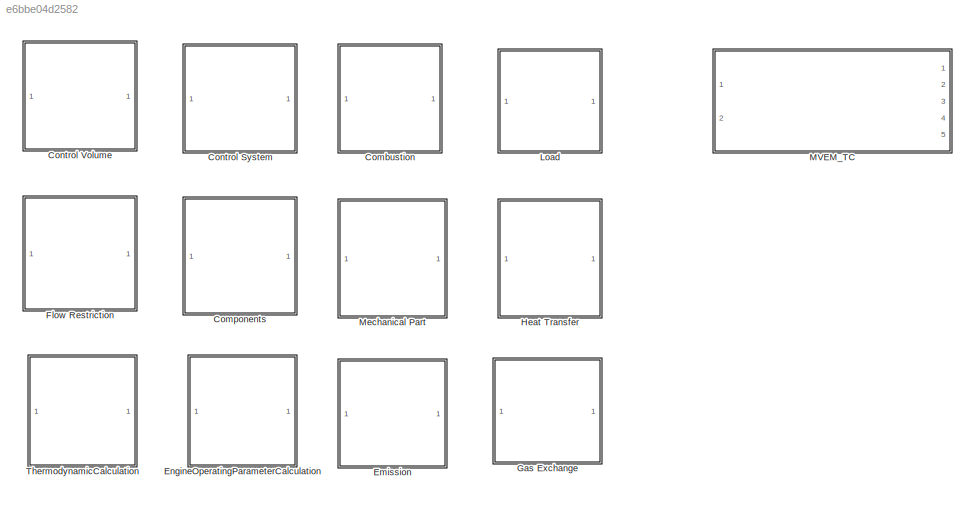
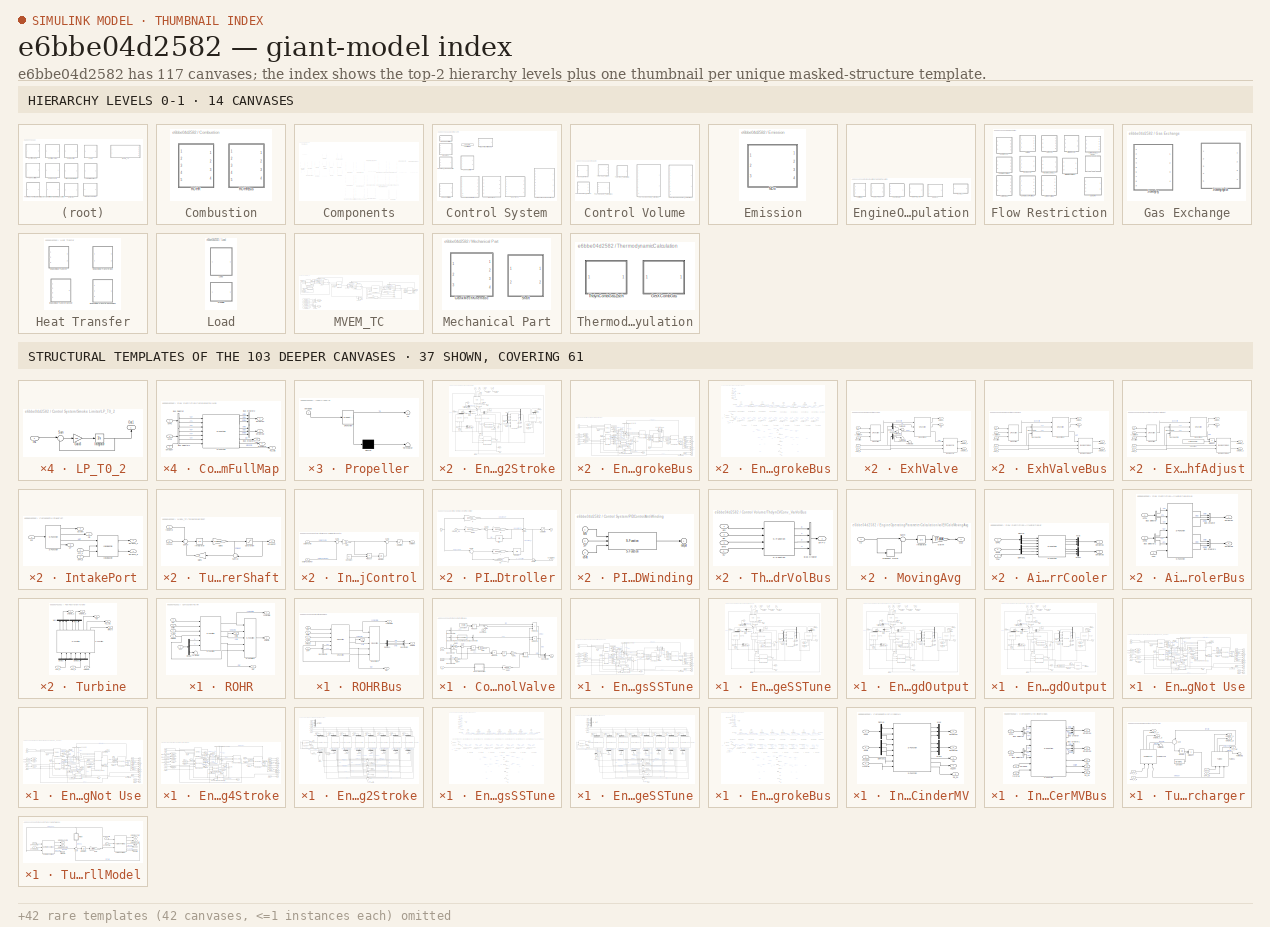
[diagram: thumbnail index - top-2 hierarchy levels (14 canvases) + 37 structural-template representatives of the remaining 103 canvases]
MODEL slx_e6bbe04d2582
KIND library
BLOCK [SubSystem] Combustion
  Ports = []
  RequestExecContextInheritance = off
BLOCK [SubSystem] Combustion/ROHR
  Ports = [5, 4]
  RequestExecContextInheritance = off
BLOCK [Demux] Combustion/ROHR/Demux
  DisplayOption = bar
  Outputs = 3
  Ports = [1, 3]
BLOCK [S-Function] Combustion/ROHR/S-Function
  EnableBusSupport = off
  FunctionName = combState
  Parameters = cyl.comb.mqfCycMax,cyl.comb.wiebePara,eng.nStroke
  Ports = [6, 4]
BLOCK [S-Function] Combustion/ROHR/S-Function1
  EnableBusSupport = off
  FunctionName = CombWiebe
  Parameters = eng.hn, cyl.comb.wiebePara
  Ports = [5, 1]
BLOCK [Terminator] Combustion/ROHR/Terminator
BLOCK [Outport] Combustion/ROHR/combState
  IconDisplay = Port number
  Port = 2
BLOCK [Outport] Combustion/ROHR/dmEmb
  IconDisplay = Port number
BLOCK [Outport] Combustion/ROHR/mqf
  IconDisplay = Port number
  Port = 4
BLOCK [Inport] Combustion/ROHR/omega
  IconDisplay = Port number
  Port = 5
BLOCK [Inport] Combustion/ROHR/pTF
  IconDisplay = Port number
BLOCK [Inport] Combustion/ROHR/phi
  IconDisplay = Port number
  Port = 4
BLOCK [Outport] Combustion/ROHR/phiIg
  IconDisplay = Port number
  Port = 3
BLOCK [Inport] Combustion/ROHR/phiInj
  IconDisplay = Port number
  Port = 3
BLOCK [Inport] Combustion/ROHR/u_gov
  IconDisplay = Port number
  Port = 2
BLOCK [SubSystem] Combustion/ROHRBus
  Ports = [5, 4]
  RequestExecContextInheritance = off
BLOCK [BusCreator] Combustion/ROHRBus/Bus Creator
  DisplayOption = bar
  Inputs = 3
  Ports = [3, 1]
BLOCK [BusSelector] Combustion/ROHRBus/Bus Selector
  OutputSignals = p,T
  Ports = [1, 2]
BLOCK [Demux] Combustion/ROHRBus/Demux1
  DisplayOption = bar
  Outputs = 3
  Ports = [1, 3]
BLOCK [S-Function] Combustion/ROHRBus/S-Function
  EnableBusSupport = off
  FunctionName = combState
  Parameters = cyl.comb.mqfCycMax,cyl.comb.wiebePara,eng.nStroke
  Ports = [6, 4]
BLOCK [S-Function] Combustion/ROHRBus/S-Function1
  EnableBusSupport = off
  FunctionName = CombWiebe
  Parameters = eng.hn, cyl.comb.wiebePara
  Ports = [5, 1]
BLOCK [Outport] Combustion/ROHRBus/combState
  IconDisplay = Port number
  Port = 2
BLOCK [Outport] Combustion/ROHRBus/dmEmb
  IconDisplay = Port number
BLOCK [Outport] Combustion/ROHRBus/mqf
  IconDisplay = Port number
  Port = 4
BLOCK [Inport] Combustion/ROHRBus/omega
  IconDisplay = Port number
  Port = 5
BLOCK [Inport] Combustion/ROHRBus/pTF
  IconDisplay = Port number
BLOCK [Inport] Combustion/ROHRBus/phi
  IconDisplay = Port number
  Port = 4
BLOCK [Outport] Combustion/ROHRBus/phiIg
  IconDisplay = Port number
  Port = 3
BLOCK [Inport] Combustion/ROHRBus/phiInj
  IconDisplay = Port number
  Port = 3
BLOCK [Inport] Combustion/ROHRBus/u_gov
  IconDisplay = Port number
  Port = 2
BLOCK [SubSystem] Components
  Ports = []
  RequestExecContextInheritance = off
BLOCK [SubSystem] Components/ControlValve
  Ports = [3, 1]
  RequestExecContextInheritance = off
BLOCK [BusCreator] Components/ControlValve/Bus Creator
  DisplayOption = bar
  Inputs = 3
  Ports = [3, 1]
BLOCK [BusSelector] Components/ControlValve/Bus Selector
  OutputSignals = p,T
  Ports = [1, 2]
BLOCK [BusSelector] Components/ControlValve/Bus Selector1
  OutputSignals = p
  Ports = [1, 1]
BLOCK [BusSelector] Components/ControlValve/Bus Selector2
  OutputAsBus = on
  OutputSignals = p,T,F
  Ports = [1, 1]
BLOCK [BusSelector] Components/ControlValve/Bus Selector3
  OutputSignals = h
  Ports = [1, 1]
BLOCK [BusSelector] Components/ControlValve/Bus Selector4
  OutputSignals = F
  Ports = [1, 1]
BLOCK [Constant] Components/ControlValve/Constant
  Value = eng.fs
BLOCK [Constant] Components/ControlValve/Constant1
BLOCK [Gain] Components/ControlValve/Gain
  Gain = rhoG0
  OutDataTypeStr = Inherit: Inherit via internal rule
  ParamDataTypeStr = Inherit: Inherit via internal rule
  SaturateOnIntegerOverflow = off
BLOCK [Gain] Components/ControlValve/Gain1
  Gain = 519
  OutDataTypeStr = Inherit: Inherit via internal rule
  ParamDataTypeStr = Inherit: Inherit via internal rule
  SaturateOnIntegerOverflow = off
BLOCK [Gain] Components/ControlValve/Gain2
  Gain = 1/3600
  OutDataTypeStr = Inherit: Inherit via internal rule
  ParamDataTypeStr = Inherit: Inherit via internal rule
  SaturateOnIntegerOverflow = off
BLOCK [Gain] Components/ControlValve/Gain3
  Gain = 1e-5
  OutDataTypeStr = Inherit: Inherit via internal rule
  ParamDataTypeStr = Inherit: Inherit via internal rule
  SaturateOnIntegerOverflow = off
BLOCK [Gain] Components/ControlValve/Gain4
  Gain = 1e-5
  OutDataTypeStr = Inherit: Inherit via internal rule
  ParamDataTypeStr = Inherit: Inherit via internal rule
  SaturateOnIntegerOverflow = off
BLOCK [SubSystem] Components/ControlValve/MATLAB Function
  ErrorFcn = Stateflow.Translate.translate
  PermitHierarchicalResolution = ExplicitOnly
  Ports = [1, 1]
  RequestExecContextInheritance = off
  SFBlockType = MATLAB Function
  TreatAsAtomicUnit = on
BLOCK [Demux] Components/ControlValve/MATLAB Function/ Demux 
  Outputs = 1
  Ports = [1, 1]
BLOCK [S-Function] Components/ControlValve/MATLAB Function/ SFunction 
  EnableBusSupport = off
  FunctionName = sf_sfun
  Parameters = x,y
  PortCounts = [1 2]
  Ports = [1, 2]
  Tag = Stateflow S-Function EngineSystemSubmodel 2
BLOCK [Terminator] Components/ControlValve/MATLAB Function/ Terminator 
BLOCK [Inport] Components/ControlValve/MATLAB Function/u
  IconDisplay = Port number
BLOCK [Outport] Components/ControlValve/MATLAB Function/y1
  IconDisplay = Port number
BLOCK [Outport] Components/ControlValve/Out1
  IconDisplay = Port number
BLOCK [Product] Components/ControlValve/Product
  InputSameDT = off
  OutDataTypeStr = Inherit: Inherit via internal rule
  Ports = [2, 1]
  RndMeth = Floor
  SaturateOnIntegerOverflow = off
BLOCK [Product] Components/ControlValve/Product1
  InputSameDT = off
  Inputs = */
  OutDataTypeStr = Inherit: Inherit via internal rule
  Ports = [2, 1]
  RndMeth = Floor
  SaturateOnIntegerOverflow = off
BLOCK [Product] Components/ControlValve/Product2
  InputSameDT = off
  OutDataTypeStr = Inherit: Inherit via internal rule
  Ports = [2, 1]
  RndMeth = Floor
  SaturateOnIntegerOverflow = off
BLOCK [Product] Components/ControlValve/Product3
  InputSameDT = off
  OutDataTypeStr = Inherit: Inherit via internal rule
  Ports = [2, 1]
  RndMeth = Floor
  SaturateOnIntegerOverflow = off
BLOCK [Product] Components/ControlValve/Product4
  InputSameDT = off
  OutDataTypeStr = Inherit: Inherit via internal rule
  Ports = [2, 1]
  RndMeth = Floor
  SaturateOnIntegerOverflow = off
BLOCK [Product] Components/ControlValve/Product5
  InputSameDT = off
  Inputs = */*
  OutDataTypeStr = Inherit: Inherit via internal rule
  Ports = [3, 1]
  RndMeth = Floor
  SaturateOnIntegerOverflow = off
BLOCK [Sqrt] Components/ControlValve/Sqrt
BLOCK [Sum] Components/ControlValve/Sum
  IconShape = round
  InputSameDT = off
  Inputs = |+-
  OutDataTypeStr = Inherit: Inherit via internal rule
  Ports = [2, 1]
  SaturateOnIntegerOverflow = off
BLOCK [Sum] Components/ControlValve/Sum1
  IconShape = round
  InputSameDT = off
  Inputs = |++
  OutDataTypeStr = Inherit: Inherit via internal rule
  Ports = [2, 1]
  SaturateOnIntegerOverflow = off
BLOCK [Reference] Components/ControlValve/ThdynCombGasZach  REF=EngineSystemSubmodel/ThermodynamicCalculation/ThdynCombGasZach
  Ports = [1, 1]
  SourceBlock = EngineSystemSubmodel/ThermodynamicCalculation/ThdynCombGasZach
  SourceType = SubSystem
BLOCK [Inport] Components/ControlValve/pTFd
  IconDisplay = Port number
  Port = 2
BLOCK [Inport] Components/ControlValve/pTFu
  IconDisplay = Port number
BLOCK [Inport] Components/ControlValve/u
  IconDisplay = Port number
  Port = 3
BLOCK [SubSystem] Components/EngCylinder2Stroke
  Ports = [7, 9]
  RequestExecContextInheritance = off
BLOCK [Constant] Components/EngCylinder2Stroke/Constant
  Value = 0
BLOCK [Reference] Components/EngCylinder2Stroke/CrankMechKinematic  REF=EngineSystemSubmodel/Mechanical Part/CrankMechKinematic
  Ports = [3, 4]
  SourceBlock = EngineSystemSubmodel/Mechanical Part/CrankMechKinematic
  SourceType = SubSystem
BLOCK [Demux] Components/EngCylinder2Stroke/Demux
  DisplayOption = bar
  Outputs = 3
  Ports = [1, 3]
BLOCK [Demux] Components/EngCylinder2Stroke/Demux1
  DisplayOption = bar
  Outputs = 3
  Ports = [1, 3]
BLOCK [Demux] Components/EngCylinder2Stroke/Demux2
  DisplayOption = bar
  Outputs = 3
  Ports = [1, 3]
BLOCK [Demux] Components/EngCylinder2Stroke/Demux3
  DisplayOption = bar
  Outputs = 3
  Ports = [1, 3]
BLOCK [Demux] Components/EngCylinder2Stroke/Demux5
  DisplayOption = bar
  Outputs = 3
  Ports = [1, 3]
BLOCK [Reference] Components/EngCylinder2Stroke/EngCylHeatTransfer  REF=EngineSystemSubmodel/Heat Transfer/EngCylHeatTransfer
  Ports = [3, 2]
  SourceBlock = EngineSystemSubmodel/Heat Transfer/EngCylHeatTransfer
  SourceType = SubSystem
BLOCK [Reference] Components/EngCylinder2Stroke/ExhValve  REF=EngineSystemSubmodel/Components/ExhValve
  Ports = [5, 4]
  SourceBlock = EngineSystemSubmodel/Components/ExhValve
  SourceType = SubSystem
BLOCK [From] Components/EngCylinder2Stroke/From
  GotoTag = cAStartNom
BLOCK [From] Components/EngCylinder2Stroke/From1
  GotoTag = combState
BLOCK [From] Components/EngCylinder2Stroke/From2
  GotoTag = pTFIn
BLOCK [From] Components/EngCylinder2Stroke/From3
  GotoTag = phi
BLOCK [From] Components/EngCylinder2Stroke/From4
  GotoTag = dCALiftUp
BLOCK [From] Components/EngCylinder2Stroke/From5
  GotoTag = mDotIn
BLOCK [Goto] Components/EngCylinder2Stroke/Goto
  GotoTag = cAStartNom
BLOCK [Goto] Components/EngCylinder2Stroke/Goto1
  GotoTag = dCALiftUp
BLOCK [Goto] Components/EngCylinder2Stroke/Goto3
  GotoTag = pTFIn
BLOCK [Goto] Components/EngCylinder2Stroke/Goto5
  GotoTag = mDotIn
BLOCK [Goto] Components/EngCylinder2Stroke/Goto6
  GotoTag = phi
BLOCK [Goto] Components/EngCylinder2Stroke/Goto7
  GotoTag = combState
BLOCK [Reference] Components/EngCylinder2Stroke/IntakePort1  REF=EngineSystemSubmodel/Components/IntakePort
  Ports = [3, 5]
  SourceBlock = EngineSystemSubmodel/Components/IntakePort
  SourceType = SubSystem
BLOCK [Mux] Components/EngCylinder2Stroke/Mux
  DisplayOption = bar
  Inputs = 3
  Ports = [3, 1]
BLOCK [Mux] Components/EngCylinder2Stroke/Mux1
  DisplayOption = bar
  Inputs = 3
  Ports = [3, 1]
BLOCK [Mux] Components/EngCylinder2Stroke/Mux2
  DisplayOption = bar
  Inputs = 2
  Ports = [2, 1]
BLOCK [Mux] Components/EngCylinder2Stroke/Mux3
  DisplayOption = bar
  Inputs = 3
  Ports = [3, 1]
BLOCK [Reference] Components/EngCylinder2Stroke/ROHR1  REF=EngineSystemSubmodel/Combustion/ROHR
  Ports = [5, 4]
  SourceBlock = EngineSystemSubmodel/Combustion/ROHR
  SourceType = SubSystem
BLOCK [Reference] Components/EngCylinder2Stroke/Scavenging  REF=EngineSystemSubmodel/Gas Exchange/Scavenging
  Ports = [9, 4]
  SourceBlock = EngineSystemSubmodel/Gas Exchange/Scavenging
  SourceType = SubSystem
BLOCK [Sum] Components/EngCylinder2Stroke/Sum
  IconShape = round
  InputSameDT = off
  Inputs = ++--
  OutDataTypeStr = Inherit: Inherit via internal rule
  Ports = [4, 1]
  SaturateOnIntegerOverflow = off
BLOCK [Sum] Components/EngCylinder2Stroke/Sum1
  IconShape = round
  InputSameDT = off
  Inputs = ++|
  OutDataTypeStr = Inherit: Inherit via internal rule
  Ports = [2, 1]
  SaturateOnIntegerOverflow = off
BLOCK [Terminator] Components/EngCylinder2Stroke/Terminator1
BLOCK [Terminator] Components/EngCylinder2Stroke/Terminator11
BLOCK [Terminator] Components/EngCylinder2Stroke/Terminator13
BLOCK [Terminator] Components/EngCylinder2Stroke/Terminator14
BLOCK [Terminator] Components/EngCylinder2Stroke/Terminator16
BLOCK [Terminator] Components/EngCylinder2Stroke/Terminator2
BLOCK [Terminator] Components/EngCylinder2Stroke/Terminator3
BLOCK [Terminator] Components/EngCylinder2Stroke/Terminator6
BLOCK [Terminator] Components/EngCylinder2Stroke/Terminator7
BLOCK [Terminator] Components/EngCylinder2Stroke/Terminator8
BLOCK [Terminator] Components/EngCylinder2Stroke/Terminator9
BLOCK [Reference] Components/EngCylinder2Stroke/ThdynCV_VarVol1  REF=EngineSystemSubmodel/Control Volume/ThdynCV_VarVol
  CV = cyl.init
  Ports = [2, 3]
  SourceBlock = EngineSystemSubmodel/Control Volume/ThdynCV_VarVol
BLOCK [Outport] Components/EngCylinder2Stroke/Tq
  IconDisplay = Port number
  Port = 8
BLOCK [Inport] Components/EngCylinder2Stroke/cAStartNom
  IconDisplay = Port number
  Port = 3
BLOCK [Inport] Components/EngCylinder2Stroke/dCALiftUp
  IconDisplay = Port number
  Port = 4
BLOCK [Outport] Components/EngCylinder2Stroke/dQ
  IconDisplay = Port number
  Port = 5
BLOCK [Outport] Components/EngCylinder2Stroke/dmEmb_d
  IconDisplay = Port number
  Port = 7
BLOCK [Outport] Components/EngCylinder2Stroke/dmEmb_u
  IconDisplay = Port number
  Port = 6
BLOCK [Outport] Components/EngCylinder2Stroke/dmb
  IconDisplay = Port number
  Port = 9
BLOCK [Inport] Components/EngCylinder2Stroke/omega
  IconDisplay = Port number
  Port = 7
BLOCK [Outport] Components/EngCylinder2Stroke/pCyl
  IconDisplay = Port number
BLOCK [Inport] Components/EngCylinder2Stroke/pTF_d
  IconDisplay = Port number
  Port = 6
BLOCK [Inport] Components/EngCylinder2Stroke/pTF_u
  IconDisplay = Port number
  Port = 5
BLOCK [Outport] Components/EngCylinder2Stroke/phi
  IconDisplay = Port number
  Port = 2
BLOCK [Outport] Components/EngCylinder2Stroke/phiIg
  IconDisplay = Port number
  Port = 4
BLOCK [Inport] Components/EngCylinder2Stroke/phiInj
  IconDisplay = Port number
  Port = 2
BLOCK [Outport] Components/EngCylinder2Stroke/teampWall
  IconDisplay = Port number
  Port = 3
BLOCK [Inport] Components/EngCylinder2Stroke/uGov
  IconDisplay = Port number
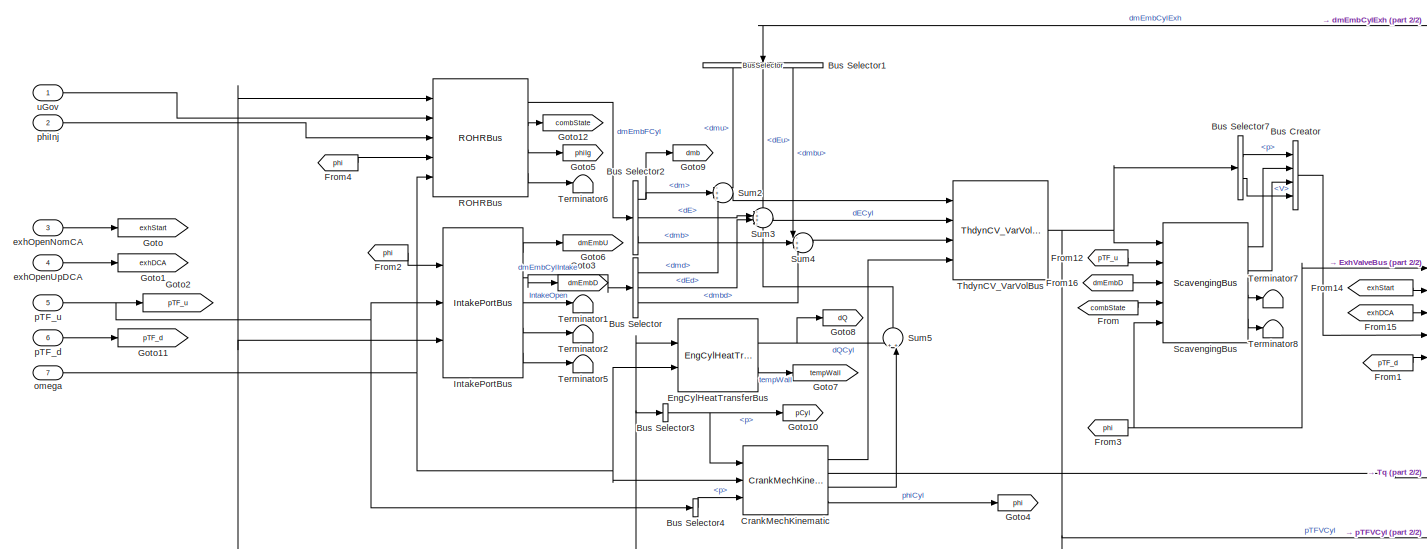
[diagram: Components/EngCylinder2StrokeBus - part 1/2, most of the canvas]
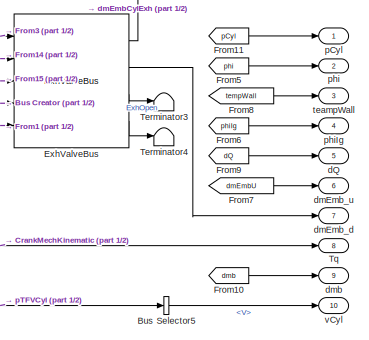
[diagram: Components/EngCylinder2StrokeBus - part 2/2, bottom right region]
BLOCK [SubSystem] Components/EngCylinder2StrokeBus
  Ports = [7, 10]
  RequestExecContextInheritance = off
BLOCK [BusCreator] Components/EngCylinder2StrokeBus/Bus Creator
  DisplayOption = bar
  Ports = [4, 1]
BLOCK [BusSelector] Components/EngCylinder2StrokeBus/Bus Selector
  OutputSignals = dmd,dEd,dmbd
  Ports = [1, 3]
BLOCK [BusSelector] Components/EngCylinder2StrokeBus/Bus Selector1
  OutputSignals = dmu,dEu,dmbu
  Ports = [1, 3]
BLOCK [BusSelector] Components/EngCylinder2StrokeBus/Bus Selector2
  OutputSignals = dm,dE,dmb
  Ports = [1, 3]
BLOCK [BusSelector] Components/EngCylinder2StrokeBus/Bus Selector3
  OutputSignals = p
  Ports = [1, 1]
BLOCK [BusSelector] Components/EngCylinder2StrokeBus/Bus Selector4
  OutputSignals = p
  Ports = [1, 1]
BLOCK [BusSelector] Components/EngCylinder2StrokeBus/Bus Selector5
  OutputSignals = V
  Ports = [1, 1]
BLOCK [BusSelector] Components/EngCylinder2StrokeBus/Bus Selector7
  OutputSignals = p,V
  Ports = [1, 2]
BLOCK [Reference] Components/EngCylinder2StrokeBus/CrankMechKinematic  REF=EngineSystemSubmodel/Mechanical Part/CrankMechKinematic
  Ports = [3, 4]
  SourceBlock = EngineSystemSubmodel/Mechanical Part/CrankMechKinematic
  SourceType = SubSystem
BLOCK [Reference] Components/EngCylinder2StrokeBus/EngCylHeatTransferBus  REF=EngineSystemSubmodel/Heat Transfer/EngCylHeatTransferBus
  Ports = [2, 2]
  SourceBlock = EngineSystemSubmodel/Heat Transfer/EngCylHeatTransferBus
  SourceType = SubSystem
BLOCK [Reference] Components/EngCylinder2StrokeBus/ExhValveBus  REF=EngineSystemSubmodel/Components/ExhValveBus
  Ports = [5, 4]
  SourceBlock = EngineSystemSubmodel/Components/ExhValveBus
  SourceType = SubSystem
BLOCK [From] Components/EngCylinder2StrokeBus/From
  GotoTag = combState
BLOCK [From] Components/EngCylinder2StrokeBus/From1
  GotoTag = pTF_d
BLOCK [From] Components/EngCylinder2StrokeBus/From10
  GotoTag = dmb
BLOCK [From] Components/EngCylinder2StrokeBus/From11
  GotoTag = pCyl
BLOCK [From] Components/EngCylinder2StrokeBus/From12
  GotoTag = pTF_u
BLOCK [From] Components/EngCylinder2StrokeBus/From14
  GotoTag = exhStart
BLOCK [From] Components/EngCylinder2StrokeBus/From15
  GotoTag = exhDCA
BLOCK [From] Components/EngCylinder2StrokeBus/From16
  GotoTag = dmEmbD
BLOCK [From] Components/EngCylinder2StrokeBus/From2
  GotoTag = phi
BLOCK [From] Components/EngCylinder2StrokeBus/From3
  GotoTag = phi
BLOCK [From] Components/EngCylinder2StrokeBus/From4
  GotoTag = phi
BLOCK [From] Components/EngCylinder2StrokeBus/From5
  GotoTag = phi
BLOCK [From] Components/EngCylinder2StrokeBus/From6
  GotoTag = phiIg
BLOCK [From] Components/EngCylinder2StrokeBus/From7
  GotoTag = dmEmbU
BLOCK [From] Components/EngCylinder2StrokeBus/From8
  GotoTag = tempWall
BLOCK [From] Components/EngCylinder2StrokeBus/From9
  GotoTag = dQ
BLOCK [Goto] Components/EngCylinder2StrokeBus/Goto
  GotoTag = exhStart
BLOCK [Goto] Components/EngCylinder2StrokeBus/Goto1
  GotoTag = exhDCA
BLOCK [Goto] Components/EngCylinder2StrokeBus/Goto10
  GotoTag = pCyl
BLOCK [Goto] Components/EngCylinder2StrokeBus/Goto11
  GotoTag = pTF_d
BLOCK [Goto] Components/EngCylinder2StrokeBus/Goto12
  GotoTag = combState
BLOCK [Goto] Components/EngCylinder2StrokeBus/Goto2
  GotoTag = pTF_u
BLOCK [Goto] Components/EngCylinder2StrokeBus/Goto3
  GotoTag = dmEmbD
BLOCK [Goto] Components/EngCylinder2StrokeBus/Goto4
  GotoTag = phi
BLOCK [Goto] Components/EngCylinder2StrokeBus/Goto5
  GotoTag = phiIg
BLOCK [Goto] Components/EngCylinder2StrokeBus/Goto6
  GotoTag = dmEmbU
BLOCK [Goto] Components/EngCylinder2StrokeBus/Goto7
  GotoTag = tempWall
BLOCK [Goto] Components/EngCylinder2StrokeBus/Goto8
  GotoTag = dQ
BLOCK [Goto] Components/EngCylinder2StrokeBus/Goto9
  GotoTag = dmb
BLOCK [Reference] Components/EngCylinder2StrokeBus/IntakePortBus  REF=EngineSystemSubmodel/Components/IntakePortBus
  Ports = [3, 5]
  SourceBlock = EngineSystemSubmodel/Components/IntakePortBus
  SourceType = SubSystem
BLOCK [Reference] Components/EngCylinder2StrokeBus/ROHRBus  REF=EngineSystemSubmodel/Combustion/ROHRBus
  Ports = [5, 4]
  SourceBlock = EngineSystemSubmodel/Combustion/ROHRBus
  SourceType = SubSystem
BLOCK [Reference] Components/EngCylinder2StrokeBus/ScavengingBus  REF=EngineSystemSubmodel/Gas Exchange/ScavengingBus
  Ports = [5, 4]
  SourceBlock = EngineSystemSubmodel/Gas Exchange/ScavengingBus
  SourceType = SubSystem
BLOCK [Sum] Components/EngCylinder2StrokeBus/Sum2
  IconShape = round
  InputSameDT = off
  Inputs = -++
  OutDataTypeStr = Inherit: Inherit via internal rule
  Ports = [3, 1]
  SaturateOnIntegerOverflow = off
BLOCK [Sum] Components/EngCylinder2StrokeBus/Sum3
  IconShape = round
  InputSameDT = off
  Inputs = -++-
  OutDataTypeStr = Inherit: Inherit via internal rule
  Ports = [4, 1]
  SaturateOnIntegerOverflow = off
BLOCK [Sum] Components/EngCylinder2StrokeBus/Sum4
  IconShape = round
  InputSameDT = off
  Inputs = -++
  OutDataTypeStr = Inherit: Inherit via internal rule
  Ports = [3, 1]
  SaturateOnIntegerOverflow = off
BLOCK [Sum] Components/EngCylinder2StrokeBus/Sum5
  IconShape = round
  InputSameDT = off
  Inputs = ++|
  OutDataTypeStr = Inherit: Inherit via internal rule
  Ports = [2, 1]
  SaturateOnIntegerOverflow = off
BLOCK [Terminator] Components/EngCylinder2StrokeBus/Terminator1
BLOCK [Terminator] Components/EngCylinder2StrokeBus/Terminator2
BLOCK [Terminator] Components/EngCylinder2StrokeBus/Terminator3
BLOCK [Terminator] Components/EngCylinder2StrokeBus/Terminator4
BLOCK [Terminator] Components/EngCylinder2StrokeBus/Terminator5
BLOCK [Terminator] Components/EngCylinder2StrokeBus/Terminator6
BLOCK [Terminator] Components/EngCylinder2StrokeBus/Terminator7
BLOCK [Terminator] Components/EngCylinder2StrokeBus/Terminator8
BLOCK [Reference] Components/EngCylinder2StrokeBus/ThdynCV_VarVolBus  REF=EngineSystemSubmodel/Control Volume/ThdynCV_VarVolBus
  CV = cyl.init
  Ports = [4, 1]
  SourceBlock = EngineSystemSubmodel/Control Volume/ThdynCV_VarVolBus
BLOCK [Outport] Components/EngCylinder2StrokeBus/Tq
  IconDisplay = Port number
  Port = 8
BLOCK [Outport] Components/EngCylinder2StrokeBus/dQ
  IconDisplay = Port number
  Port = 5
BLOCK [Outport] Components/EngCylinder2StrokeBus/dmEmb_d
  IconDisplay = Port number
  Port = 7
BLOCK [Outport] Components/EngCylinder2StrokeBus/dmEmb_u
  IconDisplay = Port number
  Port = 6
BLOCK [Outport] Components/EngCylinder2StrokeBus/dmb
  IconDisplay = Port number
  Port = 9
BLOCK [Inport] Components/EngCylinder2StrokeBus/exhOpenNomCA
  IconDisplay = Port number
  Port = 3
BLOCK [Inport] Components/EngCylinder2StrokeBus/exhOpenUpDCA
  IconDisplay = Port number
  Port = 4
BLOCK [Inport] Components/EngCylinder2StrokeBus/omega
  IconDisplay = Port number
  Port = 7
BLOCK [Outport] Components/EngCylinder2StrokeBus/pCyl
  IconDisplay = Port number
BLOCK [Inport] Components/EngCylinder2StrokeBus/pTF_d
  IconDisplay = Port number
  Port = 6
BLOCK [Inport] Components/EngCylinder2StrokeBus/pTF_u
  IconDisplay = Port number
  Port = 5
BLOCK [Outport] Components/EngCylinder2StrokeBus/phi
  IconDisplay = Port number
  Port = 2
BLOCK [Outport] Components/EngCylinder2StrokeBus/phiIg
  IconDisplay = Port number
  Port = 4
BLOCK [Inport] Components/EngCylinder2StrokeBus/phiInj
  IconDisplay = Port number
  Port = 2
BLOCK [Outport] Components/EngCylinder2StrokeBus/teampWall
  IconDisplay = Port number
  Port = 3
BLOCK [Inport] Components/EngCylinder2StrokeBus/uGov
  IconDisplay = Port number
BLOCK [Outport] Components/EngCylinder2StrokeBus/vCyl
  IconDisplay = Port number
  Port = 10
BLOCK [SubSystem] Components/EngCylinder2StrokeBusConv
  Ports = [7, 10]
  RequestExecContextInheritance = off
BLOCK [BusCreator] Components/EngCylinder2StrokeBusConv/Bus Creator
  DisplayOption = bar
  Ports = [4, 1]
BLOCK [BusSelector] Components/EngCylinder2StrokeBusConv/Bus Selector
  OutputSignals = dmd,dEd,dmbd
  Ports = [1, 3]
BLOCK [BusSelector] Components/EngCylinder2StrokeBusConv/Bus Selector1
  OutputSignals = dmu,dEu,dmbu
  Ports = [1, 3]
BLOCK [BusSelector] Components/EngCylinder2StrokeBusConv/Bus Selector2
  OutputSignals = dm,dE,dmb
  Ports = [1, 3]
BLOCK [BusSelector] Components/EngCylinder2StrokeBusConv/Bus Selector3
  OutputSignals = p
  Ports = [1, 1]
BLOCK [BusSelector] Components/EngCylinder2StrokeBusConv/Bus Selector4
  OutputSignals = p
  Ports = [1, 1]
BLOCK [BusSelector] Components/EngCylinder2StrokeBusConv/Bus Selector5
  OutputSignals = V
  Ports = [1, 1]
BLOCK [BusSelector] Components/EngCylinder2StrokeBusConv/Bus Selector7
  OutputSignals = p,V
  Ports = [1, 2]
BLOCK [Reference] Components/EngCylinder2StrokeBusConv/CrankMechKinematic  REF=EngineSystemSubmodel/Mechanical Part/CrankMechKinematic
  Ports = [3, 4]
  SourceBlock = EngineSystemSubmodel/Mechanical Part/CrankMechKinematic
  SourceType = SubSystem
BLOCK [Reference] Components/EngCylinder2StrokeBusConv/EngCylHeatTransferBus  REF=EngineSystemSubmodel/Heat Transfer/EngCylHeatTransferBus
  Ports = [2, 2]
  SourceBlock = EngineSystemSubmodel/Heat Transfer/EngCylHeatTransferBus
  SourceType = SubSystem
BLOCK [Reference] Components/EngCylinder2StrokeBusConv/ExhValveBus  REF=EngineSystemSubmodel/Components/ExhValveBus
  Ports = [5, 4]
  SourceBlock = EngineSystemSubmodel/Components/ExhValveBus
  SourceType = SubSystem
BLOCK [From] Components/EngCylinder2StrokeBusConv/From
  GotoTag = combState
BLOCK [From] Components/EngCylinder2StrokeBusConv/From1
  GotoTag = pTF_d
BLOCK [From] Components/EngCylinder2StrokeBusConv/From10
  GotoTag = dmb
BLOCK [From] Components/EngCylinder2StrokeBusConv/From11
  GotoTag = pCyl
BLOCK [From] Components/EngCylinder2StrokeBusConv/From12
  GotoTag = pTF_u
BLOCK [From] Components/EngCylinder2StrokeBusConv/From14
  GotoTag = exhStart
BLOCK [From] Components/EngCylinder2StrokeBusConv/From15
  GotoTag = exhDCA
BLOCK [From] Components/EngCylinder2StrokeBusConv/From16
  GotoTag = dmEmbD
BLOCK [From] Components/EngCylinder2StrokeBusConv/From2
  GotoTag = phi
BLOCK [From] Components/EngCylinder2StrokeBusConv/From3
  GotoTag = phi
BLOCK [From] Components/EngCylinder2StrokeBusConv/From4
  GotoTag = phi
BLOCK [From] Components/EngCylinder2StrokeBusConv/From5
  GotoTag = phi
BLOCK [From] Components/EngCylinder2StrokeBusConv/From6
  GotoTag = phiIg
BLOCK [From] Components/EngCylinder2StrokeBusConv/From7
  GotoTag = dmEmbU
BLOCK [From] Components/EngCylinder2StrokeBusConv/From8
  GotoTag = tempWall
BLOCK [From] Components/EngCylinder2StrokeBusConv/From9
  GotoTag = dQ
BLOCK [Goto] Components/EngCylinder2StrokeBusConv/Goto
  GotoTag = exhStart
BLOCK [Goto] Components/EngCylinder2StrokeBusConv/Goto1
  GotoTag = exhDCA
BLOCK [Goto] Components/EngCylinder2StrokeBusConv/Goto10
  GotoTag = pCyl
BLOCK [Goto] Components/EngCylinder2StrokeBusConv/Goto11
  GotoTag = pTF_d
BLOCK [Goto] Components/EngCylinder2StrokeBusConv/Goto12
  GotoTag = combState
BLOCK [Goto] Components/EngCylinder2StrokeBusConv/Goto2
  GotoTag = pTF_u
BLOCK [Goto] Components/EngCylinder2StrokeBusConv/Goto3
  GotoTag = dmEmbD
BLOCK [Goto] Components/EngCylinder2StrokeBusConv/Goto4
  GotoTag = phi
BLOCK [Goto] Components/EngCylinder2StrokeBusConv/Goto5
  GotoTag = phiIg
BLOCK [Goto] Components/EngCylinder2StrokeBusConv/Goto6
  GotoTag = dmEmbU
BLOCK [Goto] Components/EngCylinder2StrokeBusConv/Goto7
  GotoTag = tempWall
BLOCK [Goto] Components/EngCylinder2StrokeBusConv/Goto8
  GotoTag = dQ
BLOCK [Goto] Components/EngCylinder2StrokeBusConv/Goto9
  GotoTag = dmb
BLOCK [Reference] Components/EngCylinder2StrokeBusConv/IntakePortBus  REF=EngineSystemSubmodel/Components/IntakePortBus
  Ports = [3, 5]
  SourceBlock = EngineSystemSubmodel/Components/IntakePortBus
  SourceType = SubSystem
BLOCK [Reference] Components/EngCylinder2StrokeBusConv/ROHRBus  REF=EngineSystemSubmodel/Combustion/ROHRBus
  Ports = [5, 4]
  SourceBlock = EngineSystemSubmodel/Combustion/ROHRBus
  SourceType = SubSystem
BLOCK [Reference] Components/EngCylinder2StrokeBusConv/ScavengingBus  REF=EngineSystemSubmodel/Gas Exchange/ScavengingBus
  Ports = [5, 4]
  SourceBlock = EngineSystemSubmodel/Gas Exchange/ScavengingBus
  SourceType = SubSystem
BLOCK [Sum] Components/EngCylinder2StrokeBusConv/Sum2
  IconShape = round
  InputSameDT = off
  Inputs = -++
  OutDataTypeStr = Inherit: Inherit via internal rule
  Ports = [3, 1]
  SaturateOnIntegerOverflow = off
BLOCK [Sum] Components/EngCylinder2StrokeBusConv/Sum3
  IconShape = round
  InputSameDT = off
  Inputs = -++-
  OutDataTypeStr = Inherit: Inherit via internal rule
  Ports = [4, 1]
  SaturateOnIntegerOverflow = off
BLOCK [Sum] Components/EngCylinder2StrokeBusConv/Sum4
  IconShape = round
  InputSameDT = off
  Inputs = -++
  OutDataTypeStr = Inherit: Inherit via internal rule
  Ports = [3, 1]
  SaturateOnIntegerOverflow = off
BLOCK [Sum] Components/EngCylinder2StrokeBusConv/Sum5
  IconShape = round
  InputSameDT = off
  Inputs = ++|
  OutDataTypeStr = Inherit: Inherit via internal rule
  Ports = [2, 1]
  SaturateOnIntegerOverflow = off
BLOCK [Terminator] Components/EngCylinder2StrokeBusConv/Terminator1
BLOCK [Terminator] Components/EngCylinder2StrokeBusConv/Terminator2
BLOCK [Terminator] Components/EngCylinder2StrokeBusConv/Terminator3
BLOCK [Terminator] Components/EngCylinder2StrokeBusConv/Terminator4
BLOCK [Terminator] Components/EngCylinder2StrokeBusConv/Terminator5
BLOCK [Terminator] Components/EngCylinder2StrokeBusConv/Terminator6
BLOCK [Terminator] Components/EngCylinder2StrokeBusConv/Terminator7
BLOCK [Terminator] Components/EngCylinder2StrokeBusConv/Terminator8
BLOCK [Reference] Components/EngCylinder2StrokeBusConv/ThdynCVConv_VarVolBus  REF=EngineSystemSubmodel/Control Volume/ThdynCVConv_VarVolBus
  CV = cyl.init
  Ports = [4, 1]
  SourceBlock = EngineSystemSubmodel/Control Volume/ThdynCVConv_VarVolBus
BLOCK [Outport] Components/EngCylinder2StrokeBusConv/Tq
  IconDisplay = Port number
  Port = 8
BLOCK [Outport] Components/EngCylinder2StrokeBusConv/dQ
  IconDisplay = Port number
  Port = 5
BLOCK [Outport] Components/EngCylinder2StrokeBusConv/dmEmb_d
  IconDisplay = Port number
  Port = 7
BLOCK [Outport] Components/EngCylinder2StrokeBusConv/dmEmb_u
  IconDisplay = Port number
  Port = 6
BLOCK [Outport] Components/EngCylinder2StrokeBusConv/dmb
  IconDisplay = Port number
  Port = 9
BLOCK [Inport] Components/EngCylinder2StrokeBusConv/exhOpenNomCA
  IconDisplay = Port number
  Port = 3
BLOCK [Inport] Components/EngCylinder2StrokeBusConv/exhOpenUpDCA
  IconDisplay = Port number
  Port = 4
BLOCK [Inport] Components/EngCylinder2StrokeBusConv/omega
  IconDisplay = Port number
  Port = 7
BLOCK [Outport] Components/EngCylinder2StrokeBusConv/pCyl
  IconDisplay = Port number
BLOCK [Inport] Components/EngCylinder2StrokeBusConv/pTF_d
  IconDisplay = Port number
  Port = 6
BLOCK [Inport] Components/EngCylinder2StrokeBusConv/pTF_u
  IconDisplay = Port number
  Port = 5
BLOCK [Outport] Components/EngCylinder2StrokeBusConv/phi
  IconDisplay = Port number
  Port = 2
BLOCK [Outport] Components/EngCylinder2StrokeBusConv/phiIg
  IconDisplay = Port number
  Port = 4
BLOCK [Inport] Components/EngCylinder2StrokeBusConv/phiInj
  IconDisplay = Port number
  Port = 2
BLOCK [Outport] Components/EngCylinder2StrokeBusConv/teampWall
  IconDisplay = Port number
  Port = 3
BLOCK [Inport] Components/EngCylinder2StrokeBusConv/uGov
  IconDisplay = Port number
BLOCK [Outport] Components/EngCylinder2StrokeBusConv/vCyl
  IconDisplay = Port number
  Port = 10
BLOCK [SubSystem] Components/EngCylinder2StrokeBusSSTune
  Ports = [8, 10]
  RequestExecContextInheritance = off
BLOCK [BusCreator] Components/EngCylinder2StrokeBusSSTune/Bus Creator
  DisplayOption = bar
  Ports = [4, 1]
BLOCK [BusSelector] Components/EngCylinder2StrokeBusSSTune/Bus Selector
  OutputSignals = dmd,dEd,dmbd
  Ports = [1, 3]
BLOCK [BusSelector] Components/EngCylinder2StrokeBusSSTune/Bus Selector1
  OutputSignals = dmu,dEu,dmbu
  Ports = [1, 3]
BLOCK [BusSelector] Components/EngCylinder2StrokeBusSSTune/Bus Selector2
  OutputSignals = dm,dE,dmb
  Ports = [1, 3]
BLOCK [BusSelector] Components/EngCylinder2StrokeBusSSTune/Bus Selector3
  OutputSignals = p
  Ports = [1, 1]
BLOCK [BusSelector] Components/EngCylinder2StrokeBusSSTune/Bus Selector4
  OutputSignals = p
  Ports = [1, 1]
BLOCK [BusSelector] Components/EngCylinder2StrokeBusSSTune/Bus Selector5
  OutputSignals = V
  Ports = [1, 1]
BLOCK [BusSelector] Components/EngCylinder2StrokeBusSSTune/Bus Selector7
  OutputSignals = p,V
  Ports = [1, 2]
BLOCK [Reference] Components/EngCylinder2StrokeBusSSTune/CrankMechKinematic  REF=EngineSystemSubmodel/Mechanical Part/CrankMechKinematic
  Ports = [3, 4]
  SourceBlock = EngineSystemSubmodel/Mechanical Part/CrankMechKinematic
  SourceType = SubSystem
BLOCK [Reference] Components/EngCylinder2StrokeBusSSTune/EngCylHeatTransferSSTuneBus  REF=EngineSystemSubmodel/Heat Transfer/EngCylHeatTransferSSTuneBus
  Ports = [3, 1]
  SourceBlock = EngineSystemSubmodel/Heat Transfer/EngCylHeatTransferSSTuneBus
  SourceType = SubSystem
BLOCK [Reference] Components/EngCylinder2StrokeBusSSTune/ExhValveBus  REF=EngineSystemSubmodel/Components/ExhValveBus
  Ports = [5, 4]
  SourceBlock = EngineSystemSubmodel/Components/ExhValveBus
  SourceType = SubSystem
BLOCK [From] Components/EngCylinder2StrokeBusSSTune/From
  GotoTag = combState
BLOCK [From] Components/EngCylinder2StrokeBusSSTune/From1
  GotoTag = pTF_d
BLOCK [From] Components/EngCylinder2StrokeBusSSTune/From10
  GotoTag = dmb
BLOCK [From] Components/EngCylinder2StrokeBusSSTune/From11
  GotoTag = pCyl
BLOCK [From] Components/EngCylinder2StrokeBusSSTune/From12
  GotoTag = pTF_u
BLOCK [From] Components/EngCylinder2StrokeBusSSTune/From14
  GotoTag = exhStart
BLOCK [From] Components/EngCylinder2StrokeBusSSTune/From15
  GotoTag = exhDCA
BLOCK [From] Components/EngCylinder2StrokeBusSSTune/From16
  GotoTag = dmEmbD
BLOCK [From] Components/EngCylinder2StrokeBusSSTune/From2
  GotoTag = phi
BLOCK [From] Components/EngCylinder2StrokeBusSSTune/From3
  GotoTag = phi
BLOCK [From] Components/EngCylinder2StrokeBusSSTune/From4
  GotoTag = phi
BLOCK [From] Components/EngCylinder2StrokeBusSSTune/From5
  GotoTag = phi
BLOCK [From] Components/EngCylinder2StrokeBusSSTune/From6
  GotoTag = phiIg
BLOCK [From] Components/EngCylinder2StrokeBusSSTune/From7
  GotoTag = dmEmbU
BLOCK [From] Components/EngCylinder2StrokeBusSSTune/From9
  GotoTag = dQ
BLOCK [Goto] Components/EngCylinder2StrokeBusSSTune/Goto
  GotoTag = exhStart
BLOCK [Goto] Components/EngCylinder2StrokeBusSSTune/Goto1
  GotoTag = exhDCA
BLOCK [Goto] Components/EngCylinder2StrokeBusSSTune/Goto10
  GotoTag = pCyl
BLOCK [Goto] Components/EngCylinder2StrokeBusSSTune/Goto11
  GotoTag = pTF_d
BLOCK [Goto] Components/EngCylinder2StrokeBusSSTune/Goto2
  GotoTag = pTF_u
BLOCK [Goto] Components/EngCylinder2StrokeBusSSTune/Goto3
  GotoTag = dmEmbD
BLOCK [Goto] Components/EngCylinder2StrokeBusSSTune/Goto4
  GotoTag = phi
BLOCK [Goto] Components/EngCylinder2StrokeBusSSTune/Goto5
  GotoTag = phiIg
BLOCK [Goto] Components/EngCylinder2StrokeBusSSTune/Goto6
  GotoTag = dmEmbU
BLOCK [Goto] Components/EngCylinder2StrokeBusSSTune/Goto7
  GotoTag = combState
BLOCK [Goto] Components/EngCylinder2StrokeBusSSTune/Goto8
  GotoTag = dQ
BLOCK [Goto] Components/EngCylinder2StrokeBusSSTune/Goto9
  GotoTag = dmb
BLOCK [Reference] Components/EngCylinder2StrokeBusSSTune/IntakePortBus  REF=EngineSystemSubmodel/Components/IntakePortBus
  Ports = [3, 5]
  SourceBlock = EngineSystemSubmodel/Components/IntakePortBus
  SourceType = SubSystem
BLOCK [Reference] Components/EngCylinder2StrokeBusSSTune/ROHRBus  REF=EngineSystemSubmodel/Combustion/ROHRBus
  Ports = [5, 4]
  SourceBlock = EngineSystemSubmodel/Combustion/ROHRBus
  SourceType = SubSystem
BLOCK [Reference] Components/EngCylinder2StrokeBusSSTune/ScavengingBus  REF=EngineSystemSubmodel/Gas Exchange/ScavengingBus
  Ports = [5, 4]
  SourceBlock = EngineSystemSubmodel/Gas Exchange/ScavengingBus
  SourceType = SubSystem
BLOCK [Sum] Components/EngCylinder2StrokeBusSSTune/Sum2
  IconShape = round
  InputSameDT = off
  Inputs = -++
  OutDataTypeStr = Inherit: Inherit via internal rule
  Ports = [3, 1]
  SaturateOnIntegerOverflow = off
BLOCK [Sum] Components/EngCylinder2StrokeBusSSTune/Sum3
  IconShape = round
  InputSameDT = off
  Inputs = -++-
  OutDataTypeStr = Inherit: Inherit via internal rule
  Ports = [4, 1]
  SaturateOnIntegerOverflow = off
BLOCK [Sum] Components/EngCylinder2StrokeBusSSTune/Sum4
  IconShape = round
  InputSameDT = off
  Inputs = -++
  OutDataTypeStr = Inherit: Inherit via internal rule
  Ports = [3, 1]
  SaturateOnIntegerOverflow = off
BLOCK [Sum] Components/EngCylinder2StrokeBusSSTune/Sum5
  IconShape = round
  InputSameDT = off
  Inputs = ++|
  OutDataTypeStr = Inherit: Inherit via internal rule
  Ports = [2, 1]
  SaturateOnIntegerOverflow = off
BLOCK [Terminator] Components/EngCylinder2StrokeBusSSTune/Terminator1
BLOCK [Terminator] Components/EngCylinder2StrokeBusSSTune/Terminator2
BLOCK [Terminator] Components/EngCylinder2StrokeBusSSTune/Terminator3
BLOCK [Terminator] Components/EngCylinder2StrokeBusSSTune/Terminator4
BLOCK [Terminator] Components/EngCylinder2StrokeBusSSTune/Terminator5
BLOCK [Terminator] Components/EngCylinder2StrokeBusSSTune/Terminator6
BLOCK [Terminator] Components/EngCylinder2StrokeBusSSTune/Terminator8
BLOCK [Reference] Components/EngCylinder2StrokeBusSSTune/ThdynCV_VarVolBus  REF=EngineSystemSubmodel/Control Volume/ThdynCV_VarVolBus
  CV = cyl.init
  Ports = [4, 1]
  SourceBlock = EngineSystemSubmodel/Control Volume/ThdynCV_VarVolBus
BLOCK [Outport] Components/EngCylinder2StrokeBusSSTune/Tq
  IconDisplay = Port number
  Port = 7
BLOCK [Outport] Components/EngCylinder2StrokeBusSSTune/dQ
  IconDisplay = Port number
  Port = 4
BLOCK [Outport] Components/EngCylinder2StrokeBusSSTune/dmEmb_d
  IconDisplay = Port number
  Port = 6
BLOCK [Outport] Components/EngCylinder2StrokeBusSSTune/dmEmb_u
  IconDisplay = Port number
  Port = 5
BLOCK [Outport] Components/EngCylinder2StrokeBusSSTune/dmb
  IconDisplay = Port number
  Port = 8
BLOCK [Inport] Components/EngCylinder2StrokeBusSSTune/exhOpenNomCA
  IconDisplay = Port number
  Port = 3
BLOCK [Inport] Components/EngCylinder2StrokeBusSSTune/exhOpenUpDCA
  IconDisplay = Port number
  Port = 4
BLOCK [Outport] Components/EngCylinder2StrokeBusSSTune/exhVVOpen
  IconDisplay = Port number
  Port = 10
BLOCK [Inport] Components/EngCylinder2StrokeBusSSTune/omega
  IconDisplay = Port number
  Port = 7
BLOCK [Outport] Components/EngCylinder2StrokeBusSSTune/pCyl
  IconDisplay = Port number
BLOCK [Inport] Components/EngCylinder2StrokeBusSSTune/pTF_d
  IconDisplay = Port number
  Port = 6
BLOCK [Inport] Components/EngCylinder2StrokeBusSSTune/pTF_u
  IconDisplay = Port number
  Port = 5
BLOCK [Outport] Components/EngCylinder2StrokeBusSSTune/phi
  IconDisplay = Port number
  Port = 2
BLOCK [Outport] Components/EngCylinder2StrokeBusSSTune/phiIg
  IconDisplay = Port number
  Port = 3
BLOCK [Inport] Components/EngCylinder2StrokeBusSSTune/phiInj
  IconDisplay = Port number
  Port = 2
BLOCK [Inport] Components/EngCylinder2StrokeBusSSTune/tempWall
  IconDisplay = Port number
  Port = 8
BLOCK [Inport] Components/EngCylinder2StrokeBusSSTune/uGov
  IconDisplay = Port number
BLOCK [Outport] Components/EngCylinder2StrokeBusSSTune/vCyl
  IconDisplay = Port number
  Port = 9
BLOCK [SubSystem] Components/EngCylinder2StrokeConv
  Ports = [7, 9]
  RequestExecContextInheritance = off
BLOCK [Constant] Components/EngCylinder2StrokeConv/Constant
  Value = 0
BLOCK [Reference] Components/EngCylinder2StrokeConv/CrankMechKinematic  REF=EngineSystemSubmodel/Mechanical Part/CrankMechKinematic
  Ports = [3, 4]
  SourceBlock = EngineSystemSubmodel/Mechanical Part/CrankMechKinematic
  SourceType = SubSystem
BLOCK [Demux] Components/EngCylinder2StrokeConv/Demux
  DisplayOption = bar
  Outputs = 3
  Ports = [1, 3]
BLOCK [Demux] Components/EngCylinder2StrokeConv/Demux1
  DisplayOption = bar
  Outputs = 3
  Ports = [1, 3]
BLOCK [Demux] Components/EngCylinder2StrokeConv/Demux2
  DisplayOption = bar
  Outputs = 3
  Ports = [1, 3]
BLOCK [Demux] Components/EngCylinder2StrokeConv/Demux3
  DisplayOption = bar
  Outputs = 3
  Ports = [1, 3]
BLOCK [Demux] Components/EngCylinder2StrokeConv/Demux5
  DisplayOption = bar
  Outputs = 3
  Ports = [1, 3]
BLOCK [Reference] Components/EngCylinder2StrokeConv/EngCylHeatTransfer  REF=EngineSystemSubmodel/Heat Transfer/EngCylHeatTransfer
  Ports = [3, 2]
  SourceBlock = EngineSystemSubmodel/Heat Transfer/EngCylHeatTransfer
  SourceType = SubSystem
BLOCK [Reference] Components/EngCylinder2StrokeConv/ExhValve  REF=EngineSystemSubmodel/Components/ExhValve
  Ports = [5, 4]
  SourceBlock = EngineSystemSubmodel/Components/ExhValve
  SourceType = SubSystem
BLOCK [From] Components/EngCylinder2StrokeConv/From
  GotoTag = cAStartNom
BLOCK [From] Components/EngCylinder2StrokeConv/From1
  GotoTag = combState
BLOCK [From] Components/EngCylinder2StrokeConv/From2
  GotoTag = pTFIn
BLOCK [From] Components/EngCylinder2StrokeConv/From3
  GotoTag = phi
BLOCK [From] Components/EngCylinder2StrokeConv/From4
  GotoTag = dCALiftUp
BLOCK [From] Components/EngCylinder2StrokeConv/From5
  GotoTag = mDotIn
BLOCK [Goto] Components/EngCylinder2StrokeConv/Goto
  GotoTag = cAStartNom
BLOCK [Goto] Components/EngCylinder2StrokeConv/Goto1
  GotoTag = dCALiftUp
BLOCK [Goto] Components/EngCylinder2StrokeConv/Goto3
  GotoTag = pTFIn
BLOCK [Goto] Components/EngCylinder2StrokeConv/Goto5
  GotoTag = mDotIn
BLOCK [Goto] Components/EngCylinder2StrokeConv/Goto6
  GotoTag = phi
BLOCK [Goto] Components/EngCylinder2StrokeConv/Goto7
  GotoTag = combState
BLOCK [Reference] Components/EngCylinder2StrokeConv/IntakePort1  REF=EngineSystemSubmodel/Components/IntakePort
  Ports = [3, 5]
  SourceBlock = EngineSystemSubmodel/Components/IntakePort
  SourceType = SubSystem
BLOCK [Mux] Components/EngCylinder2StrokeConv/Mux
  DisplayOption = bar
  Inputs = 3
  Ports = [3, 1]
BLOCK [Mux] Components/EngCylinder2StrokeConv/Mux1
  DisplayOption = bar
  Inputs = 3
  Ports = [3, 1]
BLOCK [Mux] Components/EngCylinder2StrokeConv/Mux2
  DisplayOption = bar
  Inputs = 2
  Ports = [2, 1]
BLOCK [Mux] Components/EngCylinder2StrokeConv/Mux3
  DisplayOption = bar
  Inputs = 3
  Ports = [3, 1]
BLOCK [Reference] Components/EngCylinder2StrokeConv/ROHR1  REF=EngineSystemSubmodel/Combustion/ROHR
  Ports = [5, 4]
  SourceBlock = EngineSystemSubmodel/Combustion/ROHR
  SourceType = SubSystem
BLOCK [Reference] Components/EngCylinder2StrokeConv/Scavenging  REF=EngineSystemSubmodel/Gas Exchange/Scavenging
  Ports = [9, 4]
  SourceBlock = EngineSystemSubmodel/Gas Exchange/Scavenging
  SourceType = SubSystem
BLOCK [Sum] Components/EngCylinder2StrokeConv/Sum
  IconShape = round
  InputSameDT = off
  Inputs = ++--
  OutDataTypeStr = Inherit: Inherit via internal rule
  Ports = [4, 1]
  SaturateOnIntegerOverflow = off
BLOCK [Sum] Components/EngCylinder2StrokeConv/Sum1
  IconShape = round
  InputSameDT = off
  Inputs = ++|
  OutDataTypeStr = Inherit: Inherit via internal rule
  Ports = [2, 1]
  SaturateOnIntegerOverflow = off
BLOCK [Terminator] Components/EngCylinder2StrokeConv/Terminator1
BLOCK [Terminator] Components/EngCylinder2StrokeConv/Terminator11
BLOCK [Terminator] Components/EngCylinder2StrokeConv/Terminator13
BLOCK [Terminator] Components/EngCylinder2StrokeConv/Terminator14
BLOCK [Terminator] Components/EngCylinder2StrokeConv/Terminator16
BLOCK [Terminator] Components/EngCylinder2StrokeConv/Terminator2
BLOCK [Terminator] Components/EngCylinder2StrokeConv/Terminator3
BLOCK [Terminator] Components/EngCylinder2StrokeConv/Terminator6
BLOCK [Terminator] Components/EngCylinder2StrokeConv/Terminator7
BLOCK [Terminator] Components/EngCylinder2StrokeConv/Terminator8
BLOCK [Terminator] Components/EngCylinder2StrokeConv/Terminator9
BLOCK [Reference] Components/EngCylinder2StrokeConv/ThdynCVConv_VarVol  REF=EngineSystemSubmodel/Control Volume/ThdynCVConv_VarVol
  CV = cyl.init
  Ports = [2, 3]
  SourceBlock = EngineSystemSubmodel/Control Volume/ThdynCVConv_VarVol
BLOCK [Outport] Components/EngCylinder2StrokeConv/Tq
  IconDisplay = Port number
  Port = 8
BLOCK [Inport] Components/EngCylinder2StrokeConv/cAStartNom
  IconDisplay = Port number
  Port = 3
BLOCK [Inport] Components/EngCylinder2StrokeConv/dCALiftUp
  IconDisplay = Port number
  Port = 4
BLOCK [Outport] Components/EngCylinder2StrokeConv/dQ
  IconDisplay = Port number
  Port = 5
BLOCK [Outport] Components/EngCylinder2StrokeConv/dmEmb_d
  IconDisplay = Port number
  Port = 7
BLOCK [Outport] Components/EngCylinder2StrokeConv/dmEmb_u
  IconDisplay = Port number
  Port = 6
BLOCK [Outport] Components/EngCylinder2StrokeConv/dmb
  IconDisplay = Port number
  Port = 9
BLOCK [Inport] Components/EngCylinder2StrokeConv/omega
  IconDisplay = Port number
  Port = 7
BLOCK [Outport] Components/EngCylinder2StrokeConv/pCyl
  IconDisplay = Port number
BLOCK [Inport] Components/EngCylinder2StrokeConv/pTF_d
  IconDisplay = Port number
  Port = 6
BLOCK [Inport] Components/EngCylinder2StrokeConv/pTF_u
  IconDisplay = Port number
  Port = 5
BLOCK [Outport] Components/EngCylinder2StrokeConv/phi
  IconDisplay = Port number
  Port = 2
BLOCK [Outport] Components/EngCylinder2StrokeConv/phiIg
  IconDisplay = Port number
  Port = 4
BLOCK [Inport] Components/EngCylinder2StrokeConv/phiInj
  IconDisplay = Port number
  Port = 2
BLOCK [Outport] Components/EngCylinder2StrokeConv/teampWall
  IconDisplay = Port number
  Port = 3
BLOCK [Inport] Components/EngCylinder2StrokeConv/uGov
  IconDisplay = Port number
BLOCK [SubSystem] Components/EngCylinder2StrokeSSTune
  Ports = [8, 8]
  RequestExecContextInheritance = off
BLOCK [Constant] Components/EngCylinder2StrokeSSTune/Constant
  Value = 0
BLOCK [Reference] Components/EngCylinder2StrokeSSTune/CrankMechKinematic  REF=EngineSystemSubmodel/Mechanical Part/CrankMechKinematic
  Ports = [3, 4]
  SourceBlock = EngineSystemSubmodel/Mechanical Part/CrankMechKinematic
  SourceType = SubSystem
BLOCK [Demux] Components/EngCylinder2StrokeSSTune/Demux
  DisplayOption = bar
  Outputs = 3
  Ports = [1, 3]
BLOCK [Demux] Components/EngCylinder2StrokeSSTune/Demux1
  DisplayOption = bar
  Outputs = 3
  Ports = [1, 3]
BLOCK [Demux] Components/EngCylinder2StrokeSSTune/Demux2
  DisplayOption = bar
  Outputs = 3
  Ports = [1, 3]
BLOCK [Demux] Components/EngCylinder2StrokeSSTune/Demux3
  DisplayOption = bar
  Outputs = 3
  Ports = [1, 3]
BLOCK [Demux] Components/EngCylinder2StrokeSSTune/Demux5
  DisplayOption = bar
  Outputs = 3
  Ports = [1, 3]
BLOCK [Reference] Components/EngCylinder2StrokeSSTune/EngCylHeatTransferSSTune  REF=EngineSystemSubmodel/Heat Transfer/EngCylHeatTransferSSTune
  Ports = [4, 1]
  SourceBlock = EngineSystemSubmodel/Heat Transfer/EngCylHeatTransferSSTune
  SourceType = SubSystem
BLOCK [Reference] Components/EngCylinder2StrokeSSTune/ExhValve  REF=EngineSystemSubmodel/Components/ExhValve
  Ports = [5, 4]
  SourceBlock = EngineSystemSubmodel/Components/ExhValve
  SourceType = SubSystem
BLOCK [From] Components/EngCylinder2StrokeSSTune/From
  GotoTag = cAStartNom
BLOCK [From] Components/EngCylinder2StrokeSSTune/From1
  GotoTag = combState
BLOCK [From] Components/EngCylinder2StrokeSSTune/From2
  GotoTag = pTFIn
BLOCK [From] Components/EngCylinder2StrokeSSTune/From3
  GotoTag = phi
BLOCK [From] Components/EngCylinder2StrokeSSTune/From4
  GotoTag = dCALiftUp
BLOCK [From] Components/EngCylinder2StrokeSSTune/From5
  GotoTag = mDotIn
BLOCK [From] Components/EngCylinder2StrokeSSTune/From6
  GotoTag = tWall
BLOCK [Goto] Components/EngCylinder2StrokeSSTune/Goto
  GotoTag = cAStartNom
BLOCK [Goto] Components/EngCylinder2StrokeSSTune/Goto1
  GotoTag = dCALiftUp
BLOCK [Goto] Components/EngCylinder2StrokeSSTune/Goto2
  GotoTag = tWall
BLOCK [Goto] Components/EngCylinder2StrokeSSTune/Goto3
  GotoTag = pTFIn
BLOCK [Goto] Components/EngCylinder2StrokeSSTune/Goto5
  GotoTag = mDotIn
BLOCK [Goto] Components/EngCylinder2StrokeSSTune/Goto6
  GotoTag = phi
BLOCK [Goto] Components/EngCylinder2StrokeSSTune/Goto7
  GotoTag = combState
BLOCK [Reference] Components/EngCylinder2StrokeSSTune/IntakePort1  REF=EngineSystemSubmodel/Components/IntakePort
  Ports = [3, 5]
  SourceBlock = EngineSystemSubmodel/Components/IntakePort
  SourceType = SubSystem
BLOCK [Mux] Components/EngCylinder2StrokeSSTune/Mux
  DisplayOption = bar
  Inputs = 3
  Ports = [3, 1]
BLOCK [Mux] Components/EngCylinder2StrokeSSTune/Mux1
  DisplayOption = bar
  Inputs = 3
  Ports = [3, 1]
BLOCK [Mux] Components/EngCylinder2StrokeSSTune/Mux2
  DisplayOption = bar
  Inputs = 2
  Ports = [2, 1]
BLOCK [Mux] Components/EngCylinder2StrokeSSTune/Mux3
  DisplayOption = bar
  Inputs = 3
  Ports = [3, 1]
BLOCK [Reference] Components/EngCylinder2StrokeSSTune/ROHR1  REF=EngineSystemSubmodel/Combustion/ROHR
  Ports = [5, 4]
  SourceBlock = EngineSystemSubmodel/Combustion/ROHR
  SourceType = SubSystem
BLOCK [Reference] Components/EngCylinder2StrokeSSTune/Scavenging  REF=EngineSystemSubmodel/Gas Exchange/Scavenging
  Ports = [9, 4]
  SourceBlock = EngineSystemSubmodel/Gas Exchange/Scavenging
  SourceType = SubSystem
BLOCK [Sum] Components/EngCylinder2StrokeSSTune/Sum
  IconShape = round
  InputSameDT = off
  Inputs = ++--
  OutDataTypeStr = Inherit: Inherit via internal rule
  Ports = [4, 1]
  SaturateOnIntegerOverflow = off
BLOCK [Sum] Components/EngCylinder2StrokeSSTune/Sum1
  IconShape = round
  InputSameDT = off
  Inputs = ++|
  OutDataTypeStr = Inherit: Inherit via internal rule
  Ports = [2, 1]
  SaturateOnIntegerOverflow = off
BLOCK [Terminator] Components/EngCylinder2StrokeSSTune/Terminator1
BLOCK [Terminator] Components/EngCylinder2StrokeSSTune/Terminator11
BLOCK [Terminator] Components/EngCylinder2StrokeSSTune/Terminator13
BLOCK [Terminator] Components/EngCylinder2StrokeSSTune/Terminator14
BLOCK [Terminator] Components/EngCylinder2StrokeSSTune/Terminator16
BLOCK [Terminator] Components/EngCylinder2StrokeSSTune/Terminator2
BLOCK [Terminator] Components/EngCylinder2StrokeSSTune/Terminator3
BLOCK [Terminator] Components/EngCylinder2StrokeSSTune/Terminator6
BLOCK [Terminator] Components/EngCylinder2StrokeSSTune/Terminator7
BLOCK [Terminator] Components/EngCylinder2StrokeSSTune/Terminator8
BLOCK [Terminator] Components/EngCylinder2StrokeSSTune/Terminator9
BLOCK [Reference] Components/EngCylinder2StrokeSSTune/ThdynCV_VarVol1  REF=EngineSystemSubmodel/Control Volume/ThdynCV_VarVol
  CV = cyl.init
  Ports = [2, 3]
  SourceBlock = EngineSystemSubmodel/Control Volume/ThdynCV_VarVol
BLOCK [Outport] Components/EngCylinder2StrokeSSTune/Tq
  IconDisplay = Port number
  Port = 7
BLOCK [Inport] Components/EngCylinder2StrokeSSTune/cAStartNom
  IconDisplay = Port number
  Port = 3
BLOCK [Inport] Components/EngCylinder2StrokeSSTune/dCALiftUp
  IconDisplay = Port number
  Port = 4
BLOCK [Outport] Components/EngCylinder2StrokeSSTune/dQ
  IconDisplay = Port number
  Port = 4
BLOCK [Outport] Components/EngCylinder2StrokeSSTune/dmEmb_d
  IconDisplay = Port number
  Port = 6
BLOCK [Outport] Components/EngCylinder2StrokeSSTune/dmEmb_u
  IconDisplay = Port number
  Port = 5
BLOCK [Outport] Components/EngCylinder2StrokeSSTune/dmb
  IconDisplay = Port number
  Port = 8
BLOCK [Inport] Components/EngCylinder2StrokeSSTune/omega
  IconDisplay = Port number
  Port = 8
BLOCK [Outport] Components/EngCylinder2StrokeSSTune/pCyl
  IconDisplay = Port number
BLOCK [Inport] Components/EngCylinder2StrokeSSTune/pTF_d
  IconDisplay = Port number
  Port = 7
BLOCK [Inport] Components/EngCylinder2StrokeSSTune/pTF_u
  IconDisplay = Port number
  Port = 6
BLOCK [Outport] Components/EngCylinder2StrokeSSTune/phi
  IconDisplay = Port number
  Port = 2
BLOCK [Outport] Components/EngCylinder2StrokeSSTune/phiIg
  IconDisplay = Port number
  Port = 3
BLOCK [Inport] Components/EngCylinder2StrokeSSTune/phiInj
  IconDisplay = Port number
  Port = 2
BLOCK [Inport] Components/EngCylinder2StrokeSSTune/tWall
  IconDisplay = Port number
  Port = 5
BLOCK [Inport] Components/EngCylinder2StrokeSSTune/uGov
  IconDisplay = Port number
BLOCK [SubSystem] Components/EngCylinder2StrokeSSTune_ExtendedOutput
  Ports = [8, 10]
  RequestExecContextInheritance = off
BLOCK [Constant] Components/EngCylinder2StrokeSSTune_ExtendedOutput/Constant
  Value = 0
BLOCK [Reference] Components/EngCylinder2StrokeSSTune_ExtendedOutput/CrankMechKinematic  REF=EngineSystemSubmodel/Mechanical Part/CrankMechKinematic
  Ports = [3, 4]
  SourceBlock = EngineSystemSubmodel/Mechanical Part/CrankMechKinematic
  SourceType = SubSystem
BLOCK [Demux] Components/EngCylinder2StrokeSSTune_ExtendedOutput/Demux
  DisplayOption = bar
  Outputs = 3
  Ports = [1, 3]
BLOCK [Demux] Components/EngCylinder2StrokeSSTune_ExtendedOutput/Demux1
  DisplayOption = bar
  Outputs = 3
  Ports = [1, 3]
BLOCK [Demux] Components/EngCylinder2StrokeSSTune_ExtendedOutput/Demux2
  DisplayOption = bar
  Outputs = 3
  Ports = [1, 3]
BLOCK [Demux] Components/EngCylinder2StrokeSSTune_ExtendedOutput/Demux3
  DisplayOption = bar
  Outputs = 3
  Ports = [1, 3]
BLOCK [Demux] Components/EngCylinder2StrokeSSTune_ExtendedOutput/Demux5
  DisplayOption = bar
  Outputs = 3
  Ports = [1, 3]
BLOCK [Reference] Components/EngCylinder2StrokeSSTune_ExtendedOutput/EngCylHeatTransferSSTune  REF=EngineSystemSubmodel/Heat Transfer/EngCylHeatTransferSSTune
  Ports = [4, 1]
  SourceBlock = EngineSystemSubmodel/Heat Transfer/EngCylHeatTransferSSTune
  SourceType = SubSystem
BLOCK [Reference] Components/EngCylinder2StrokeSSTune_ExtendedOutput/ExhValve  REF=EngineSystemSubmodel/Components/ExhValve
  Ports = [5, 4]
  SourceBlock = EngineSystemSubmodel/Components/ExhValve
  SourceType = SubSystem
BLOCK [From] Components/EngCylinder2StrokeSSTune_ExtendedOutput/From
  GotoTag = cAStartNom
BLOCK [From] Components/EngCylinder2StrokeSSTune_ExtendedOutput/From1
  GotoTag = combState
BLOCK [From] Components/EngCylinder2StrokeSSTune_ExtendedOutput/From2
  GotoTag = pTFIn
BLOCK [From] Components/EngCylinder2StrokeSSTune_ExtendedOutput/From3
  GotoTag = phi
BLOCK [From] Components/EngCylinder2StrokeSSTune_ExtendedOutput/From4
  GotoTag = dCALiftUp
BLOCK [From] Components/EngCylinder2StrokeSSTune_ExtendedOutput/From5
  GotoTag = mDotIn
BLOCK [From] Components/EngCylinder2StrokeSSTune_ExtendedOutput/From6
  GotoTag = tempWall
BLOCK [Goto] Components/EngCylinder2StrokeSSTune_ExtendedOutput/Goto
  GotoTag = cAStartNom
BLOCK [Goto] Components/EngCylinder2StrokeSSTune_ExtendedOutput/Goto1
  GotoTag = dCALiftUp
BLOCK [Goto] Components/EngCylinder2StrokeSSTune_ExtendedOutput/Goto2
  GotoTag = tempWall
BLOCK [Goto] Components/EngCylinder2StrokeSSTune_ExtendedOutput/Goto3
  GotoTag = pTFIn
BLOCK [Goto] Components/EngCylinder2StrokeSSTune_ExtendedOutput/Goto5
  GotoTag = mDotIn
BLOCK [Goto] Components/EngCylinder2StrokeSSTune_ExtendedOutput/Goto6
  GotoTag = phi
BLOCK [Goto] Components/EngCylinder2StrokeSSTune_ExtendedOutput/Goto7
  GotoTag = combState
BLOCK [Reference] Components/EngCylinder2StrokeSSTune_ExtendedOutput/IntakePort1  REF=EngineSystemSubmodel/Components/IntakePort
  Ports = [3, 5]
  SourceBlock = EngineSystemSubmodel/Components/IntakePort
  SourceType = SubSystem
BLOCK [Mux] Components/EngCylinder2StrokeSSTune_ExtendedOutput/Mux
  DisplayOption = bar
  Inputs = 3
  Ports = [3, 1]
BLOCK [Mux] Components/EngCylinder2StrokeSSTune_ExtendedOutput/Mux1
  DisplayOption = bar
  Inputs = 3
  Ports = [3, 1]
BLOCK [Mux] Components/EngCylinder2StrokeSSTune_ExtendedOutput/Mux3
  DisplayOption = bar
  Inputs = 3
  Ports = [3, 1]
BLOCK [Reference] Components/EngCylinder2StrokeSSTune_ExtendedOutput/ROHR1  REF=EngineSystemSubmodel/Combustion/ROHR
  Ports = [5, 4]
  SourceBlock = EngineSystemSubmodel/Combustion/ROHR
  SourceType = SubSystem
BLOCK [Reference] Components/EngCylinder2StrokeSSTune_ExtendedOutput/Scavenging  REF=EngineSystemSubmodel/Gas Exchange/Scavenging
  Ports = [9, 4]
  SourceBlock = EngineSystemSubmodel/Gas Exchange/Scavenging
  SourceType = SubSystem
BLOCK [Sum] Components/EngCylinder2StrokeSSTune_ExtendedOutput/Sum
  IconShape = round
  InputSameDT = off
  Inputs = ++--
  OutDataTypeStr = Inherit: Inherit via internal rule
  Ports = [4, 1]
  SaturateOnIntegerOverflow = off
BLOCK [Sum] Components/EngCylinder2StrokeSSTune_ExtendedOutput/Sum1
  IconShape = round
  InputSameDT = off
  Inputs = ++|
  OutDataTypeStr = Inherit: Inherit via internal rule
  Ports = [2, 1]
  SaturateOnIntegerOverflow = off
BLOCK [Terminator] Components/EngCylinder2StrokeSSTune_ExtendedOutput/Terminator
BLOCK [Terminator] Components/EngCylinder2StrokeSSTune_ExtendedOutput/Terminator1
BLOCK [Terminator] Components/EngCylinder2StrokeSSTune_ExtendedOutput/Terminator11
BLOCK [Terminator] Components/EngCylinder2StrokeSSTune_ExtendedOutput/Terminator13
BLOCK [Terminator] Components/EngCylinder2StrokeSSTune_ExtendedOutput/Terminator14
BLOCK [Terminator] Components/EngCylinder2StrokeSSTune_ExtendedOutput/Terminator16
BLOCK [Terminator] Components/EngCylinder2StrokeSSTune_ExtendedOutput/Terminator3
BLOCK [Terminator] Components/EngCylinder2StrokeSSTune_ExtendedOutput/Terminator6
BLOCK [Terminator] Components/EngCylinder2StrokeSSTune_ExtendedOutput/Terminator7
BLOCK [Terminator] Components/EngCylinder2StrokeSSTune_ExtendedOutput/Terminator8
BLOCK [Terminator] Components/EngCylinder2StrokeSSTune_ExtendedOutput/Terminator9
BLOCK [Reference] Components/EngCylinder2StrokeSSTune_ExtendedOutput/ThdynCV_VarVol1  REF=EngineSystemSubmodel/Control Volume/ThdynCV_VarVol
  CV = cyl.init
  Ports = [2, 3]
  SourceBlock = EngineSystemSubmodel/Control Volume/ThdynCV_VarVol
BLOCK [Outport] Components/EngCylinder2StrokeSSTune_ExtendedOutput/Tq
  IconDisplay = Port number
  Port = 7
BLOCK [Inport] Components/EngCylinder2StrokeSSTune_ExtendedOutput/cAStartNom
  IconDisplay = Port number
  Port = 3
BLOCK [Inport] Components/EngCylinder2StrokeSSTune_ExtendedOutput/dCALiftUp
  IconDisplay = Port number
  Port = 4
BLOCK [Outport] Components/EngCylinder2StrokeSSTune_ExtendedOutput/dQ
  IconDisplay = Port number
  Port = 4
BLOCK [Outport] Components/EngCylinder2StrokeSSTune_ExtendedOutput/dmEmb_d
  IconDisplay = Port number
  Port = 6
BLOCK [Outport] Components/EngCylinder2StrokeSSTune_ExtendedOutput/dmEmb_u
  IconDisplay = Port number
  Port = 5
BLOCK [Outport] Components/EngCylinder2StrokeSSTune_ExtendedOutput/dmb
  IconDisplay = Port number
  Port = 10
BLOCK [Outport] Components/EngCylinder2StrokeSSTune_ExtendedOutput/exhVVAOpen
  IconDisplay = Port number
  Port = 8
BLOCK [Inport] Components/EngCylinder2StrokeSSTune_ExtendedOutput/omega
  IconDisplay = Port number
  Port = 8
BLOCK [Outport] Components/EngCylinder2StrokeSSTune_ExtendedOutput/pCyl
  IconDisplay = Port number
BLOCK [Inport] Components/EngCylinder2StrokeSSTune_ExtendedOutput/pTF_d
  IconDisplay = Port number
  Port = 7
BLOCK [Inport] Components/EngCylinder2StrokeSSTune_ExtendedOutput/pTF_u
  IconDisplay = Port number
  Port = 6
BLOCK [Outport] Components/EngCylinder2StrokeSSTune_ExtendedOutput/phi
  IconDisplay = Port number
  Port = 2
BLOCK [Outport] Components/EngCylinder2StrokeSSTune_ExtendedOutput/phiIg
  IconDisplay = Port number
  Port = 3
BLOCK [Inport] Components/EngCylinder2StrokeSSTune_ExtendedOutput/phiInj
  IconDisplay = Port number
  Port = 2
BLOCK [Inport] Components/EngCylinder2StrokeSSTune_ExtendedOutput/tempWall
  IconDisplay = Port number
  Port = 5
BLOCK [Inport] Components/EngCylinder2StrokeSSTune_ExtendedOutput/uGov
  IconDisplay = Port number
BLOCK [Outport] Components/EngCylinder2StrokeSSTune_ExtendedOutput/vCyl
  IconDisplay = Port number
  Port = 9
BLOCK [SubSystem] Components/EngCylinder2Stroke_ExtendedOutput
  Ports = [7, 11]
  RequestExecContextInheritance = off
BLOCK [Constant] Components/EngCylinder2Stroke_ExtendedOutput/Constant
  Value = 0
BLOCK [Reference] Components/EngCylinder2Stroke_ExtendedOutput/CrankMechKinematic  REF=EngineSystemSubmodel/Mechanical Part/CrankMechKinematic
  Ports = [3, 4]
  SourceBlock = EngineSystemSubmodel/Mechanical Part/CrankMechKinematic
  SourceType = SubSystem
BLOCK [Demux] Components/EngCylinder2Stroke_ExtendedOutput/Demux
  DisplayOption = bar
  Outputs = 3
  Ports = [1, 3]
BLOCK [Demux] Components/EngCylinder2Stroke_ExtendedOutput/Demux1
  DisplayOption = bar
  Outputs = 3
  Ports = [1, 3]
BLOCK [Demux] Components/EngCylinder2Stroke_ExtendedOutput/Demux2
  DisplayOption = bar
  Outputs = 3
  Ports = [1, 3]
BLOCK [Demux] Components/EngCylinder2Stroke_ExtendedOutput/Demux3
  DisplayOption = bar
  Outputs = 3
  Ports = [1, 3]
BLOCK [Demux] Components/EngCylinder2Stroke_ExtendedOutput/Demux5
  DisplayOption = bar
  Outputs = 3
  Ports = [1, 3]
BLOCK [Reference] Components/EngCylinder2Stroke_ExtendedOutput/EngCylHeatTransfer  REF=EngineSystemSubmodel/Heat Transfer/EngCylHeatTransfer
  Ports = [3, 2]
  SourceBlock = EngineSystemSubmodel/Heat Transfer/EngCylHeatTransfer
  SourceType = SubSystem
BLOCK [Reference] Components/EngCylinder2Stroke_ExtendedOutput/ExhValve  REF=EngineSystemSubmodel/Components/ExhValve
  Ports = [5, 4]
  SourceBlock = EngineSystemSubmodel/Components/ExhValve
  SourceType = SubSystem
BLOCK [From] Components/EngCylinder2Stroke_ExtendedOutput/From
  GotoTag = cAStartNom
BLOCK [From] Components/EngCylinder2Stroke_ExtendedOutput/From1
  GotoTag = combState
BLOCK [From] Components/EngCylinder2Stroke_ExtendedOutput/From2
  GotoTag = pTFIn
BLOCK [From] Components/EngCylinder2Stroke_ExtendedOutput/From3
  GotoTag = phi
BLOCK [From] Components/EngCylinder2Stroke_ExtendedOutput/From4
  GotoTag = dCALiftUp
BLOCK [From] Components/EngCylinder2Stroke_ExtendedOutput/From5
  GotoTag = mDotIn
BLOCK [From] Components/EngCylinder2Stroke_ExtendedOutput/From6
  GotoTag = mqf
BLOCK [Goto] Components/EngCylinder2Stroke_ExtendedOutput/Goto
  GotoTag = cAStartNom
BLOCK [Goto] Components/EngCylinder2Stroke_ExtendedOutput/Goto1
  GotoTag = dCALiftUp
BLOCK [Goto] Components/EngCylinder2Stroke_ExtendedOutput/Goto2
  GotoTag = mqf
BLOCK [Goto] Components/EngCylinder2Stroke_ExtendedOutput/Goto3
  GotoTag = pTFIn
BLOCK [Goto] Components/EngCylinder2Stroke_ExtendedOutput/Goto5
  GotoTag = mDotIn
BLOCK [Goto] Components/EngCylinder2Stroke_ExtendedOutput/Goto6
  GotoTag = phi
BLOCK [Goto] Components/EngCylinder2Stroke_ExtendedOutput/Goto7
  GotoTag = combState
BLOCK [Reference] Components/EngCylinder2Stroke_ExtendedOutput/IntakePort1  REF=EngineSystemSubmodel/Components/IntakePort
  Ports = [3, 5]
  SourceBlock = EngineSystemSubmodel/Components/IntakePort
  SourceType = SubSystem
BLOCK [Mux] Components/EngCylinder2Stroke_ExtendedOutput/Mux
  DisplayOption = bar
  Inputs = 3
  Ports = [3, 1]
BLOCK [Mux] Components/EngCylinder2Stroke_ExtendedOutput/Mux1
  DisplayOption = bar
  Inputs = 3
  Ports = [3, 1]
BLOCK [Mux] Components/EngCylinder2Stroke_ExtendedOutput/Mux3
  DisplayOption = bar
  Inputs = 3
  Ports = [3, 1]
BLOCK [Reference] Components/EngCylinder2Stroke_ExtendedOutput/ROHR1  REF=EngineSystemSubmodel/Combustion/ROHR
  Ports = [5, 4]
  SourceBlock = EngineSystemSubmodel/Combustion/ROHR
  SourceType = SubSystem
BLOCK [Reference] Components/EngCylinder2Stroke_ExtendedOutput/SFCCyc  REF=EngineSystemSubmodel/EngineOperatingParameterCalculation/SFCCyc
  Ports = [3, 1]
  SourceBlock = EngineSystemSubmodel/EngineOperatingParameterCalculation/SFCCyc
  SourceType = SubSystem
BLOCK [Reference] Components/EngCylinder2Stroke_ExtendedOutput/Scavenging  REF=EngineSystemSubmodel/Gas Exchange/Scavenging
  Ports = [9, 4]
  SourceBlock = EngineSystemSubmodel/Gas Exchange/Scavenging
  SourceType = SubSystem
BLOCK [Sum] Components/EngCylinder2Stroke_ExtendedOutput/Sum
  IconShape = round
  InputSameDT = off
  Inputs = ++--
  OutDataTypeStr = Inherit: Inherit via internal rule
  Ports = [4, 1]
  SaturateOnIntegerOverflow = off
BLOCK [Sum] Components/EngCylinder2Stroke_ExtendedOutput/Sum1
  IconShape = round
  InputSameDT = off
  Inputs = ++|
  OutDataTypeStr = Inherit: Inherit via internal rule
  Ports = [2, 1]
  SaturateOnIntegerOverflow = off
BLOCK [Terminator] Components/EngCylinder2Stroke_ExtendedOutput/Terminator
BLOCK [Terminator] Components/EngCylinder2Stroke_ExtendedOutput/Terminator1
BLOCK [Terminator] Components/EngCylinder2Stroke_ExtendedOutput/Terminator11
BLOCK [Terminator] Components/EngCylinder2Stroke_ExtendedOutput/Terminator13
BLOCK [Terminator] Components/EngCylinder2Stroke_ExtendedOutput/Terminator14
BLOCK [Terminator] Components/EngCylinder2Stroke_ExtendedOutput/Terminator16
BLOCK [Terminator] Components/EngCylinder2Stroke_ExtendedOutput/Terminator2
BLOCK [Terminator] Components/EngCylinder2Stroke_ExtendedOutput/Terminator6
BLOCK [Terminator] Components/EngCylinder2Stroke_ExtendedOutput/Terminator7
BLOCK [Terminator] Components/EngCylinder2Stroke_ExtendedOutput/Terminator8
BLOCK [Terminator] Components/EngCylinder2Stroke_ExtendedOutput/Terminator9
BLOCK [Reference] Components/EngCylinder2Stroke_ExtendedOutput/ThdynCV_VarVol1  REF=EngineSystemSubmodel/Control Volume/ThdynCV_VarVol
  CV = cyl.init
  Ports = [2, 3]
  SourceBlock = EngineSystemSubmodel/Control Volume/ThdynCV_VarVol
BLOCK [Outport] Components/EngCylinder2Stroke_ExtendedOutput/Tq
  IconDisplay = Port number
  Port = 8
BLOCK [Inport] Components/EngCylinder2Stroke_ExtendedOutput/cAStartNom
  IconDisplay = Port number
  Port = 3
BLOCK [Inport] Components/EngCylinder2Stroke_ExtendedOutput/dCALiftUp
  IconDisplay = Port number
  Port = 4
BLOCK [Outport] Components/EngCylinder2Stroke_ExtendedOutput/dQ
  IconDisplay = Port number
  Port = 5
BLOCK [Outport] Components/EngCylinder2Stroke_ExtendedOutput/dmEmb_d
  IconDisplay = Port number
  Port = 7
BLOCK [Outport] Components/EngCylinder2Stroke_ExtendedOutput/dmEmb_u
  IconDisplay = Port number
  Port = 6
BLOCK [Outport] Components/EngCylinder2Stroke_ExtendedOutput/dmb
  IconDisplay = Port number
  Port = 11
BLOCK [Outport] Components/EngCylinder2Stroke_ExtendedOutput/exhVVAOpen
  IconDisplay = Port number
  Port = 9
BLOCK [Inport] Components/EngCylinder2Stroke_ExtendedOutput/omega
  IconDisplay = Port number
  Port = 7
BLOCK [Outport] Components/EngCylinder2Stroke_ExtendedOutput/pCyl
  IconDisplay = Port number
BLOCK [Inport] Components/EngCylinder2Stroke_ExtendedOutput/pTF_d
  IconDisplay = Port number
  Port = 6
BLOCK [Inport] Components/EngCylinder2Stroke_ExtendedOutput/pTF_u
  IconDisplay = Port number
  Port = 5
BLOCK [Outport] Components/EngCylinder2Stroke_ExtendedOutput/phi
  IconDisplay = Port number
  Port = 2
BLOCK [Outport] Components/EngCylinder2Stroke_ExtendedOutput/phiIg
  IconDisplay = Port number
  Port = 4
BLOCK [Inport] Components/EngCylinder2Stroke_ExtendedOutput/phiInj
  IconDisplay = Port number
  Port = 2
BLOCK [Reference] Components/EngCylinder2Stroke_ExtendedOutput/resetCyc  REF=EngineSystemSubmodel/EngineOperatingParameterCalculation/resetCyc
  Ports = [1, 1]
  SourceBlock = EngineSystemSubmodel/EngineOperatingParameterCalculation/resetCyc
  SourceType = SubSystem
BLOCK [Outport] Components/EngCylinder2Stroke_ExtendedOutput/teampWall
  IconDisplay = Port number
  Port = 3
BLOCK [Inport] Components/EngCylinder2Stroke_ExtendedOutput/uGov
  IconDisplay = Port number
BLOCK [Outport] Components/EngCylinder2Stroke_ExtendedOutput/vCyl
  IconDisplay = Port number
  Port = 10
BLOCK [Reference] Components/EngCylinder2Stroke_ExtendedOutput/workPerCycle  REF=EngineSystemSubmodel/EngineOperatingParameterCalculation/workPerCycle
  Ports = [2, 1]
  SourceBlock = EngineSystemSubmodel/EngineOperatingParameterCalculation/workPerCycle
  SourceType = SubSystem
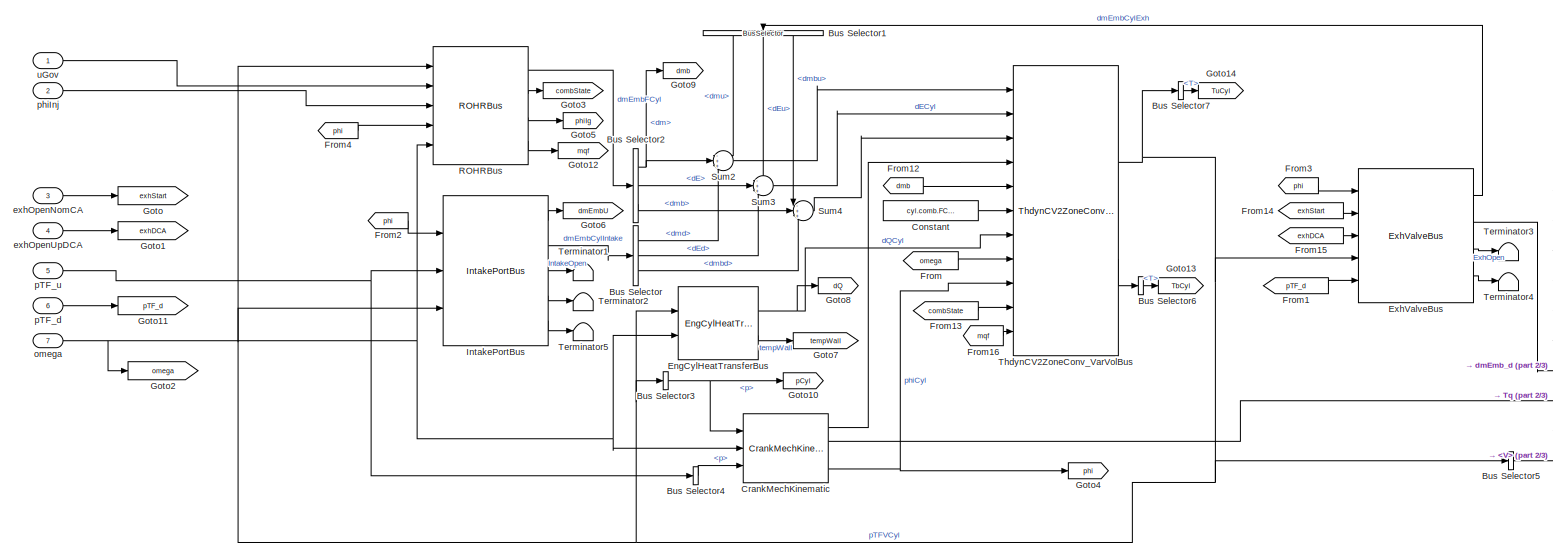
[diagram: Components/EngCylinder2Zone2StrokeBusConv_Do Not Use - part 1/3, most of the canvas]
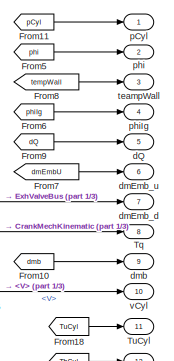
[diagram: Components/EngCylinder2Zone2StrokeBusConv_Do Not Use - part 2/3, middle right region]
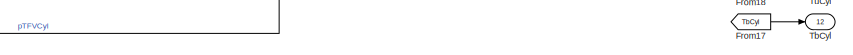
[diagram: Components/EngCylinder2Zone2StrokeBusConv_Do Not Use - part 3/3, bottom right region]
BLOCK [SubSystem] Components/EngCylinder2Zone2StrokeBusConv_Do Not Use
  Ports = [7, 12]
  RequestExecContextInheritance = off
BLOCK [BusSelector] Components/EngCylinder2Zone2StrokeBusConv_Do Not Use/Bus Selector
  OutputSignals = dmd,dEd,dmbd
  Ports = [1, 3]
BLOCK [BusSelector] Components/EngCylinder2Zone2StrokeBusConv_Do Not Use/Bus Selector1
  OutputSignals = dmu,dEu,dmbu
  Ports = [1, 3]
BLOCK [BusSelector] Components/EngCylinder2Zone2StrokeBusConv_Do Not Use/Bus Selector2
  OutputSignals = dm,dE,dmb
  Ports = [1, 3]
BLOCK [BusSelector] Components/EngCylinder2Zone2StrokeBusConv_Do Not Use/Bus Selector3
  OutputSignals = p
  Ports = [1, 1]
BLOCK [BusSelector] Components/EngCylinder2Zone2StrokeBusConv_Do Not Use/Bus Selector4
  OutputSignals = p
  Ports = [1, 1]
BLOCK [BusSelector] Components/EngCylinder2Zone2StrokeBusConv_Do Not Use/Bus Selector5
  OutputSignals = V
  Ports = [1, 1]
BLOCK [BusSelector] Components/EngCylinder2Zone2StrokeBusConv_Do Not Use/Bus Selector6
  OutputSignals = T
  Ports = [1, 1]
BLOCK [BusSelector] Components/EngCylinder2Zone2StrokeBusConv_Do Not Use/Bus Selector7
  OutputSignals = T
  Ports = [1, 1]
BLOCK [Constant] Components/EngCylinder2Zone2StrokeBusConv_Do Not Use/Constant
  Value = cyl.comb.FComb
BLOCK [Reference] Components/EngCylinder2Zone2StrokeBusConv_Do Not Use/CrankMechKinematic  REF=EngineSystemSubmodel/Mechanical Part/CrankMechKinematic
  Ports = [3, 4]
  SourceBlock = EngineSystemSubmodel/Mechanical Part/CrankMechKinematic
  SourceType = SubSystem
BLOCK [Reference] Components/EngCylinder2Zone2StrokeBusConv_Do Not Use/EngCylHeatTransferBus  REF=EngineSystemSubmodel/Heat Transfer/EngCylHeatTransferBus
  Ports = [2, 2]
  SourceBlock = EngineSystemSubmodel/Heat Transfer/EngCylHeatTransferBus
  SourceType = SubSystem
BLOCK [Reference] Components/EngCylinder2Zone2StrokeBusConv_Do Not Use/ExhValveBus  REF=EngineSystemSubmodel/Components/ExhValveBus
  Ports = [5, 4]
  SourceBlock = EngineSystemSubmodel/Components/ExhValveBus
  SourceType = SubSystem
BLOCK [From] Components/EngCylinder2Zone2StrokeBusConv_Do Not Use/From
  GotoTag = omega
BLOCK [From] Components/EngCylinder2Zone2StrokeBusConv_Do Not Use/From1
  GotoTag = pTF_d
BLOCK [From] Components/EngCylinder2Zone2StrokeBusConv_Do Not Use/From10
  GotoTag = dmb
BLOCK [From] Components/EngCylinder2Zone2StrokeBusConv_Do Not Use/From11
  GotoTag = pCyl
BLOCK [From] Components/EngCylinder2Zone2StrokeBusConv_Do Not Use/From12
  GotoTag = dmb
BLOCK [From] Components/EngCylinder2Zone2StrokeBusConv_Do Not Use/From13
  GotoTag = combState
BLOCK [From] Components/EngCylinder2Zone2StrokeBusConv_Do Not Use/From14
  GotoTag = exhStart
BLOCK [From] Components/EngCylinder2Zone2StrokeBusConv_Do Not Use/From15
  GotoTag = exhDCA
BLOCK [From] Components/EngCylinder2Zone2StrokeBusConv_Do Not Use/From16
  GotoTag = mqf
BLOCK [From] Components/EngCylinder2Zone2StrokeBusConv_Do Not Use/From17
  GotoTag = TbCyl
BLOCK [From] Components/EngCylinder2Zone2StrokeBusConv_Do Not Use/From18
  GotoTag = TuCyl
BLOCK [From] Components/EngCylinder2Zone2StrokeBusConv_Do Not Use/From2
  GotoTag = phi
BLOCK [From] Components/EngCylinder2Zone2StrokeBusConv_Do Not Use/From3
  GotoTag = phi
BLOCK [From] Components/EngCylinder2Zone2StrokeBusConv_Do Not Use/From4
  GotoTag = phi
BLOCK [From] Components/EngCylinder2Zone2StrokeBusConv_Do Not Use/From5
  GotoTag = phi
BLOCK [From] Components/EngCylinder2Zone2StrokeBusConv_Do Not Use/From6
  GotoTag = phiIg
BLOCK [From] Components/EngCylinder2Zone2StrokeBusConv_Do Not Use/From7
  GotoTag = dmEmbU
BLOCK [From] Components/EngCylinder2Zone2StrokeBusConv_Do Not Use/From8
  GotoTag = tempWall
BLOCK [From] Components/EngCylinder2Zone2StrokeBusConv_Do Not Use/From9
  GotoTag = dQ
BLOCK [Goto] Components/EngCylinder2Zone2StrokeBusConv_Do Not Use/Goto
  GotoTag = exhStart
BLOCK [Goto] Components/EngCylinder2Zone2StrokeBusConv_Do Not Use/Goto1
  GotoTag = exhDCA
BLOCK [Goto] Components/EngCylinder2Zone2StrokeBusConv_Do Not Use/Goto10
  GotoTag = pCyl
BLOCK [Goto] Components/EngCylinder2Zone2StrokeBusConv_Do Not Use/Goto11
  GotoTag = pTF_d
BLOCK [Goto] Components/EngCylinder2Zone2StrokeBusConv_Do Not Use/Goto12
  GotoTag = mqf
BLOCK [Goto] Components/EngCylinder2Zone2StrokeBusConv_Do Not Use/Goto13
  GotoTag = TbCyl
BLOCK [Goto] Components/EngCylinder2Zone2StrokeBusConv_Do Not Use/Goto14
  GotoTag = TuCyl
BLOCK [Goto] Components/EngCylinder2Zone2StrokeBusConv_Do Not Use/Goto2
  GotoTag = omega
BLOCK [Goto] Components/EngCylinder2Zone2StrokeBusConv_Do Not Use/Goto3
  GotoTag = combState
BLOCK [Goto] Components/EngCylinder2Zone2StrokeBusConv_Do Not Use/Goto4
  GotoTag = phi
BLOCK [Goto] Components/EngCylinder2Zone2StrokeBusConv_Do Not Use/Goto5
  GotoTag = phiIg
BLOCK [Goto] Components/EngCylinder2Zone2StrokeBusConv_Do Not Use/Goto6
  GotoTag = dmEmbU
BLOCK [Goto] Components/EngCylinder2Zone2StrokeBusConv_Do Not Use/Goto7
  GotoTag = tempWall
BLOCK [Goto] Components/EngCylinder2Zone2StrokeBusConv_Do Not Use/Goto8
  GotoTag = dQ
BLOCK [Goto] Components/EngCylinder2Zone2StrokeBusConv_Do Not Use/Goto9
  GotoTag = dmb
BLOCK [Reference] Components/EngCylinder2Zone2StrokeBusConv_Do Not Use/IntakePortBus  REF=EngineSystemSubmodel/Components/IntakePortBus
  Ports = [3, 5]
  SourceBlock = EngineSystemSubmodel/Components/IntakePortBus
  SourceType = SubSystem
BLOCK [Reference] Components/EngCylinder2Zone2StrokeBusConv_Do Not Use/ROHRBus  REF=EngineSystemSubmodel/Combustion/ROHRBus
  Ports = [5, 4]
  SourceBlock = EngineSystemSubmodel/Combustion/ROHRBus
  SourceType = SubSystem
BLOCK [Sum] Components/EngCylinder2Zone2StrokeBusConv_Do Not Use/Sum2
  IconShape = round
  InputSameDT = off
  Inputs = -++
  OutDataTypeStr = Inherit: Inherit via internal rule
  Ports = [3, 1]
  SaturateOnIntegerOverflow = off
BLOCK [Sum] Components/EngCylinder2Zone2StrokeBusConv_Do Not Use/Sum3
  IconShape = round
  InputSameDT = off
  Inputs = -++
  OutDataTypeStr = Inherit: Inherit via internal rule
  Ports = [3, 1]
  SaturateOnIntegerOverflow = off
BLOCK [Sum] Components/EngCylinder2Zone2StrokeBusConv_Do Not Use/Sum4
  IconShape = round
  InputSameDT = off
  Inputs = -++
  OutDataTypeStr = Inherit: Inherit via internal rule
  Ports = [3, 1]
  SaturateOnIntegerOverflow = off
BLOCK [Outport] Components/EngCylinder2Zone2StrokeBusConv_Do Not Use/TbCyl
  IconDisplay = Port number
  Port = 12
BLOCK [Terminator] Components/EngCylinder2Zone2StrokeBusConv_Do Not Use/Terminator1
BLOCK [Terminator] Components/EngCylinder2Zone2StrokeBusConv_Do Not Use/Terminator2
BLOCK [Terminator] Components/EngCylinder2Zone2StrokeBusConv_Do Not Use/Terminator3
BLOCK [Terminator] Components/EngCylinder2Zone2StrokeBusConv_Do Not Use/Terminator4
BLOCK [Terminator] Components/EngCylinder2Zone2StrokeBusConv_Do Not Use/Terminator5
BLOCK [Reference] Components/EngCylinder2Zone2StrokeBusConv_Do Not Use/ThdynCV2ZoneConv_VarVolBus  REF=EngineSystemSubmodel/Control Volume/ThdynCV2ZoneConv_VarVolBus
  CV = cyl.init
  Ports = [11, 2]
  SourceBlock = EngineSystemSubmodel/Control Volume/ThdynCV2ZoneConv_VarVolBus
BLOCK [Outport] Components/EngCylinder2Zone2StrokeBusConv_Do Not Use/Tq
  IconDisplay = Port number
  Port = 8
BLOCK [Outport] Components/EngCylinder2Zone2StrokeBusConv_Do Not Use/TuCyl
  IconDisplay = Port number
  Port = 11
BLOCK [Outport] Components/EngCylinder2Zone2StrokeBusConv_Do Not Use/dQ
  IconDisplay = Port number
  Port = 5
BLOCK [Outport] Components/EngCylinder2Zone2StrokeBusConv_Do Not Use/dmEmb_d
  IconDisplay = Port number
  Port = 7
BLOCK [Outport] Components/EngCylinder2Zone2StrokeBusConv_Do Not Use/dmEmb_u
  IconDisplay = Port number
  Port = 6
BLOCK [Outport] Components/EngCylinder2Zone2StrokeBusConv_Do Not Use/dmb
  IconDisplay = Port number
  Port = 9
BLOCK [Inport] Components/EngCylinder2Zone2StrokeBusConv_Do Not Use/exhOpenNomCA
  IconDisplay = Port number
  Port = 3
BLOCK [Inport] Components/EngCylinder2Zone2StrokeBusConv_Do Not Use/exhOpenUpDCA
  IconDisplay = Port number
  Port = 4
BLOCK [Inport] Components/EngCylinder2Zone2StrokeBusConv_Do Not Use/omega
  IconDisplay = Port number
  Port = 7
BLOCK [Outport] Components/EngCylinder2Zone2StrokeBusConv_Do Not Use/pCyl
  IconDisplay = Port number
BLOCK [Inport] Components/EngCylinder2Zone2StrokeBusConv_Do Not Use/pTF_d
  IconDisplay = Port number
  Port = 6
BLOCK [Inport] Components/EngCylinder2Zone2StrokeBusConv_Do Not Use/pTF_u
  IconDisplay = Port number
  Port = 5
BLOCK [Outport] Components/EngCylinder2Zone2StrokeBusConv_Do Not Use/phi
  IconDisplay = Port number
  Port = 2
BLOCK [Outport] Components/EngCylinder2Zone2StrokeBusConv_Do Not Use/phiIg
  IconDisplay = Port number
  Port = 4
BLOCK [Inport] Components/EngCylinder2Zone2StrokeBusConv_Do Not Use/phiInj
  IconDisplay = Port number
  Port = 2
BLOCK [Outport] Components/EngCylinder2Zone2StrokeBusConv_Do Not Use/teampWall
  IconDisplay = Port number
  Port = 3
BLOCK [Inport] Components/EngCylinder2Zone2StrokeBusConv_Do Not Use/uGov
  IconDisplay = Port number
BLOCK [Outport] Components/EngCylinder2Zone2StrokeBusConv_Do Not Use/vCyl
  IconDisplay = Port number
  Port = 10
BLOCK [SubSystem] Components/EngCylinder2Zone2StrokeBus_Do Not Use
  Ports = [7, 12]
  RequestExecContextInheritance = off
BLOCK [BusSelector] Components/EngCylinder2Zone2StrokeBus_Do Not Use/Bus Selector
  OutputSignals = dmd,dEd,dmbd
  Ports = [1, 3]
BLOCK [BusSelector] Components/EngCylinder2Zone2StrokeBus_Do Not Use/Bus Selector1
  OutputSignals = dmu,dEu,dmbu
  Ports = [1, 3]
BLOCK [BusSelector] Components/EngCylinder2Zone2StrokeBus_Do Not Use/Bus Selector2
  OutputSignals = dm,dE,dmb
  Ports = [1, 3]
BLOCK [BusSelector] Components/EngCylinder2Zone2StrokeBus_Do Not Use/Bus Selector3
  OutputSignals = p
  Ports = [1, 1]
BLOCK [BusSelector] Components/EngCylinder2Zone2StrokeBus_Do Not Use/Bus Selector4
  OutputSignals = p
  Ports = [1, 1]
BLOCK [BusSelector] Components/EngCylinder2Zone2StrokeBus_Do Not Use/Bus Selector5
  OutputSignals = V
  Ports = [1, 1]
BLOCK [BusSelector] Components/EngCylinder2Zone2StrokeBus_Do Not Use/Bus Selector6
  OutputSignals = Tb
  Ports = [1, 1]
BLOCK [BusSelector] Components/EngCylinder2Zone2StrokeBus_Do Not Use/Bus Selector7
  OutputSignals = T
  Ports = [1, 1]
BLOCK [Constant] Components/EngCylinder2Zone2StrokeBus_Do Not Use/Constant
  Value = cyl.comb.FComb
BLOCK [Reference] Components/EngCylinder2Zone2StrokeBus_Do Not Use/CrankMechKinematic  REF=EngineSystemSubmodel/Mechanical Part/CrankMechKinematic
  Ports = [3, 4]
  SourceBlock = EngineSystemSubmodel/Mechanical Part/CrankMechKinematic
  SourceType = SubSystem
BLOCK [Reference] Components/EngCylinder2Zone2StrokeBus_Do Not Use/EngCylHeatTransferBus  REF=EngineSystemSubmodel/Heat Transfer/EngCylHeatTransferBus
  Ports = [2, 2]
  SourceBlock = EngineSystemSubmodel/Heat Transfer/EngCylHeatTransferBus
  SourceType = SubSystem
BLOCK [Reference] Components/EngCylinder2Zone2StrokeBus_Do Not Use/ExhValveBus  REF=EngineSystemSubmodel/Components/ExhValveBus
  Ports = [5, 4]
  SourceBlock = EngineSystemSubmodel/Components/ExhValveBus
  SourceType = SubSystem
BLOCK [From] Components/EngCylinder2Zone2StrokeBus_Do Not Use/From1
  GotoTag = pTF_d
BLOCK [From] Components/EngCylinder2Zone2StrokeBus_Do Not Use/From10
  GotoTag = dmb
BLOCK [From] Components/EngCylinder2Zone2StrokeBus_Do Not Use/From11
  GotoTag = pCyl
BLOCK [From] Components/EngCylinder2Zone2StrokeBus_Do Not Use/From12
  GotoTag = dmb
BLOCK [From] Components/EngCylinder2Zone2StrokeBus_Do Not Use/From13
  GotoTag = combState
BLOCK [From] Components/EngCylinder2Zone2StrokeBus_Do Not Use/From14
  GotoTag = exhStart
BLOCK [From] Components/EngCylinder2Zone2StrokeBus_Do Not Use/From15
  GotoTag = exhDCA
BLOCK [From] Components/EngCylinder2Zone2StrokeBus_Do Not Use/From17
  GotoTag = TbCyl
BLOCK [From] Components/EngCylinder2Zone2StrokeBus_Do Not Use/From18
  GotoTag = TuCyl
BLOCK [From] Components/EngCylinder2Zone2StrokeBus_Do Not Use/From2
  GotoTag = phi
BLOCK [From] Components/EngCylinder2Zone2StrokeBus_Do Not Use/From3
  GotoTag = phi
BLOCK [From] Components/EngCylinder2Zone2StrokeBus_Do Not Use/From4
  GotoTag = phi
BLOCK [From] Components/EngCylinder2Zone2StrokeBus_Do Not Use/From5
  GotoTag = phi
BLOCK [From] Components/EngCylinder2Zone2StrokeBus_Do Not Use/From6
  GotoTag = phiIg
BLOCK [From] Components/EngCylinder2Zone2StrokeBus_Do Not Use/From7
  GotoTag = dmEmbU
BLOCK [From] Components/EngCylinder2Zone2StrokeBus_Do Not Use/From8
  GotoTag = tempWall
BLOCK [From] Components/EngCylinder2Zone2StrokeBus_Do Not Use/From9
  GotoTag = dQ
BLOCK [Goto] Components/EngCylinder2Zone2StrokeBus_Do Not Use/Goto
  GotoTag = exhStart
BLOCK [Goto] Components/EngCylinder2Zone2StrokeBus_Do Not Use/Goto1
  GotoTag = exhDCA
BLOCK [Goto] Components/EngCylinder2Zone2StrokeBus_Do Not Use/Goto10
  GotoTag = pCyl
BLOCK [Goto] Components/EngCylinder2Zone2StrokeBus_Do Not Use/Goto11
  GotoTag = pTF_d
BLOCK [Goto] Components/EngCylinder2Zone2StrokeBus_Do Not Use/Goto13
  GotoTag = TbCyl
BLOCK [Goto] Components/EngCylinder2Zone2StrokeBus_Do Not Use/Goto14
  GotoTag = TuCyl
BLOCK [Goto] Components/EngCylinder2Zone2StrokeBus_Do Not Use/Goto3
  GotoTag = combState
BLOCK [Goto] Components/EngCylinder2Zone2StrokeBus_Do Not Use/Goto4
  GotoTag = phi
BLOCK [Goto] Components/EngCylinder2Zone2StrokeBus_Do Not Use/Goto5
  GotoTag = phiIg
BLOCK [Goto] Components/EngCylinder2Zone2StrokeBus_Do Not Use/Goto6
  GotoTag = dmEmbU
BLOCK [Goto] Components/EngCylinder2Zone2StrokeBus_Do Not Use/Goto7
  GotoTag = tempWall
BLOCK [Goto] Components/EngCylinder2Zone2StrokeBus_Do Not Use/Goto8
  GotoTag = dQ
BLOCK [Goto] Components/EngCylinder2Zone2StrokeBus_Do Not Use/Goto9
  GotoTag = dmb
BLOCK [Reference] Components/EngCylinder2Zone2StrokeBus_Do Not Use/IntakePortBus  REF=EngineSystemSubmodel/Components/IntakePortBus
  Ports = [3, 5]
  SourceBlock = EngineSystemSubmodel/Components/IntakePortBus
  SourceType = SubSystem
BLOCK [Reference] Components/EngCylinder2Zone2StrokeBus_Do Not Use/ROHRBus  REF=EngineSystemSubmodel/Combustion/ROHRBus
  Ports = [5, 4]
  SourceBlock = EngineSystemSubmodel/Combustion/ROHRBus
  SourceType = SubSystem
BLOCK [Sum] Components/EngCylinder2Zone2StrokeBus_Do Not Use/Sum2
  IconShape = round
  InputSameDT = off
  Inputs = -++
  OutDataTypeStr = Inherit: Inherit via internal rule
  Ports = [3, 1]
  SaturateOnIntegerOverflow = off
BLOCK [Sum] Components/EngCylinder2Zone2StrokeBus_Do Not Use/Sum3
  IconShape = round
  InputSameDT = off
  Inputs = -++
  OutDataTypeStr = Inherit: Inherit via internal rule
  Ports = [3, 1]
  SaturateOnIntegerOverflow = off
BLOCK [Sum] Components/EngCylinder2Zone2StrokeBus_Do Not Use/Sum4
  IconShape = round
  InputSameDT = off
  Inputs = -++
  OutDataTypeStr = Inherit: Inherit via internal rule
  Ports = [3, 1]
  SaturateOnIntegerOverflow = off
BLOCK [Outport] Components/EngCylinder2Zone2StrokeBus_Do Not Use/TbCyl
  IconDisplay = Port number
  Port = 12
BLOCK [Terminator] Components/EngCylinder2Zone2StrokeBus_Do Not Use/Terminator1
BLOCK [Terminator] Components/EngCylinder2Zone2StrokeBus_Do Not Use/Terminator2
BLOCK [Terminator] Components/EngCylinder2Zone2StrokeBus_Do Not Use/Terminator3
BLOCK [Terminator] Components/EngCylinder2Zone2StrokeBus_Do Not Use/Terminator4
BLOCK [Terminator] Components/EngCylinder2Zone2StrokeBus_Do Not Use/Terminator5
BLOCK [Terminator] Components/EngCylinder2Zone2StrokeBus_Do Not Use/Terminator7
BLOCK [Reference] Components/EngCylinder2Zone2StrokeBus_Do Not Use/ThdynCV2ZoneBG_VarVolBus  REF=EngineSystemSubmodel/Control Volume/ThdynCV2ZoneBG_VarVolBus
  CV = cyl.init
  Ports = [10, 2]
  SourceBlock = EngineSystemSubmodel/Control Volume/ThdynCV2ZoneBG_VarVolBus
BLOCK [Outport] Components/EngCylinder2Zone2StrokeBus_Do Not Use/Tq
  IconDisplay = Port number
  Port = 8
BLOCK [Outport] Components/EngCylinder2Zone2StrokeBus_Do Not Use/TuCyl
  IconDisplay = Port number
  Port = 11
BLOCK [Outport] Components/EngCylinder2Zone2StrokeBus_Do Not Use/dQ
  IconDisplay = Port number
  Port = 5
BLOCK [Outport] Components/EngCylinder2Zone2StrokeBus_Do Not Use/dmEmb_d
  IconDisplay = Port number
  Port = 7
BLOCK [Outport] Components/EngCylinder2Zone2StrokeBus_Do Not Use/dmEmb_u
  IconDisplay = Port number
  Port = 6
BLOCK [Outport] Components/EngCylinder2Zone2StrokeBus_Do Not Use/dmb
  IconDisplay = Port number
  Port = 9
BLOCK [Inport] Components/EngCylinder2Zone2StrokeBus_Do Not Use/exhOpenNomCA
  IconDisplay = Port number
  Port = 3
BLOCK [Inport] Components/EngCylinder2Zone2StrokeBus_Do Not Use/exhOpenUpDCA
  IconDisplay = Port number
  Port = 4
BLOCK [Inport] Components/EngCylinder2Zone2StrokeBus_Do Not Use/omega
  IconDisplay = Port number
  Port = 7
BLOCK [Outport] Components/EngCylinder2Zone2StrokeBus_Do Not Use/pCyl
  IconDisplay = Port number
BLOCK [Inport] Components/EngCylinder2Zone2StrokeBus_Do Not Use/pTF_d
  IconDisplay = Port number
  Port = 6
BLOCK [Inport] Components/EngCylinder2Zone2StrokeBus_Do Not Use/pTF_u
  IconDisplay = Port number
  Port = 5
BLOCK [Outport] Components/EngCylinder2Zone2StrokeBus_Do Not Use/phi
  IconDisplay = Port number
  Port = 2
BLOCK [Outport] Components/EngCylinder2Zone2StrokeBus_Do Not Use/phiIg
  IconDisplay = Port number
  Port = 4
BLOCK [Inport] Components/EngCylinder2Zone2StrokeBus_Do Not Use/phiInj
  IconDisplay = Port number
  Port = 2
BLOCK [Outport] Components/EngCylinder2Zone2StrokeBus_Do Not Use/teampWall
  IconDisplay = Port number
  Port = 3
BLOCK [Inport] Components/EngCylinder2Zone2StrokeBus_Do Not Use/uGov
  IconDisplay = Port number
BLOCK [Outport] Components/EngCylinder2Zone2StrokeBus_Do Not Use/vCyl
  IconDisplay = Port number
  Port = 10
BLOCK [SubSystem] Components/EngCylinder4Stroke
  Ports = [9, 9]
  RequestExecContextInheritance = off
BLOCK [BusSelector] Components/EngCylinder4Stroke/Bus Selector
  OutputSignals = dmd,dEd,dmbd
  Ports = [1, 3]
BLOCK [BusSelector] Components/EngCylinder4Stroke/Bus Selector1
  OutputSignals = dmu,dEu,dmbu
  Ports = [1, 3]
BLOCK [BusSelector] Components/EngCylinder4Stroke/Bus Selector2
  OutputSignals = dm,dE,dmb
  Ports = [1, 3]
BLOCK [BusSelector] Components/EngCylinder4Stroke/Bus Selector3
  OutputSignals = p
  Ports = [1, 1]
BLOCK [BusSelector] Components/EngCylinder4Stroke/Bus Selector4
  OutputSignals = p
  Ports = [1, 1]
BLOCK [Reference] Components/EngCylinder4Stroke/CrankMechKinematic  REF=EngineSystemSubmodel/Mechanical Part/CrankMechKinematic
  Ports = [3, 4]
  SourceBlock = EngineSystemSubmodel/Mechanical Part/CrankMechKinematic
  SourceType = SubSystem
BLOCK [Reference] Components/EngCylinder4Stroke/EngCylHeatTransferBus  REF=EngineSystemSubmodel/Heat Transfer/EngCylHeatTransferBus
  Ports = [2, 2]
  SourceBlock = EngineSystemSubmodel/Heat Transfer/EngCylHeatTransferBus
  SourceType = SubSystem
BLOCK [Reference] Components/EngCylinder4Stroke/ExhValveBus  REF=EngineSystemSubmodel/Components/ExhValveBus
  Ports = [5, 4]
  SourceBlock = EngineSystemSubmodel/Components/ExhValveBus
  SourceType = SubSystem
BLOCK [From] Components/EngCylinder4Stroke/From1
  GotoTag = pTF_d
BLOCK [From] Components/EngCylinder4Stroke/From10
  GotoTag = dmb
BLOCK [From] Components/EngCylinder4Stroke/From11
  GotoTag = pCyl
BLOCK [From] Components/EngCylinder4Stroke/From12
  GotoTag = intakeStart
BLOCK [From] Components/EngCylinder4Stroke/From13
  GotoTag = intakeDCA
BLOCK [From] Components/EngCylinder4Stroke/From14
  GotoTag = exhStart
BLOCK [From] Components/EngCylinder4Stroke/From15
  GotoTag = exhDCA
BLOCK [From] Components/EngCylinder4Stroke/From2
  GotoTag = phi
BLOCK [From] Components/EngCylinder4Stroke/From3
  GotoTag = phi
BLOCK [From] Components/EngCylinder4Stroke/From4
  GotoTag = phi
BLOCK [From] Components/EngCylinder4Stroke/From5
  GotoTag = phi
BLOCK [From] Components/EngCylinder4Stroke/From6
  GotoTag = phiIg
BLOCK [From] Components/EngCylinder4Stroke/From7
  GotoTag = dmEmbU
BLOCK [From] Components/EngCylinder4Stroke/From8
  GotoTag = tempWall
BLOCK [From] Components/EngCylinder4Stroke/From9
  GotoTag = dQ
BLOCK [Goto] Components/EngCylinder4Stroke/Goto
  GotoTag = exhStart
BLOCK [Goto] Components/EngCylinder4Stroke/Goto1
  GotoTag = exhDCA
BLOCK [Goto] Components/EngCylinder4Stroke/Goto10
  GotoTag = pCyl
BLOCK [Goto] Components/EngCylinder4Stroke/Goto11
  GotoTag = pTF_d
BLOCK [Goto] Components/EngCylinder4Stroke/Goto2
  GotoTag = intakeStart
BLOCK [Goto] Components/EngCylinder4Stroke/Goto3
  GotoTag = intakeDCA
BLOCK [Goto] Components/EngCylinder4Stroke/Goto4
  GotoTag = phi
BLOCK [Goto] Components/EngCylinder4Stroke/Goto5
  GotoTag = phiIg
BLOCK [Goto] Components/EngCylinder4Stroke/Goto6
  GotoTag = dmEmbU
BLOCK [Goto] Components/EngCylinder4Stroke/Goto7
  GotoTag = tempWall
BLOCK [Goto] Components/EngCylinder4Stroke/Goto8
  GotoTag = dQ
BLOCK [Goto] Components/EngCylinder4Stroke/Goto9
  GotoTag = dmb
BLOCK [Reference] Components/EngCylinder4Stroke/IntakeValveBus  REF=EngineSystemSubmodel/Components/IntakeValveBus
  Ports = [5, 4]
  SourceBlock = EngineSystemSubmodel/Components/IntakeValveBus
  SourceType = SubSystem
BLOCK [Reference] Components/EngCylinder4Stroke/ROHRBus  REF=EngineSystemSubmodel/Combustion/ROHRBus
  Ports = [5, 4]
  SourceBlock = EngineSystemSubmodel/Combustion/ROHRBus
  SourceType = SubSystem
BLOCK [Sum] Components/EngCylinder4Stroke/Sum2
  IconShape = round
  InputSameDT = off
  Inputs = -++
  OutDataTypeStr = Inherit: Inherit via internal rule
  Ports = [3, 1]
  SaturateOnIntegerOverflow = off
BLOCK [Sum] Components/EngCylinder4Stroke/Sum3
  IconShape = round
  InputSameDT = off
  Inputs = -++-
  OutDataTypeStr = Inherit: Inherit via internal rule
  Ports = [4, 1]
  SaturateOnIntegerOverflow = off
BLOCK [Sum] Components/EngCylinder4Stroke/Sum4
  IconShape = round
  InputSameDT = off
  Inputs = -++
  OutDataTypeStr = Inherit: Inherit via internal rule
  Ports = [3, 1]
  SaturateOnIntegerOverflow = off
BLOCK [Sum] Components/EngCylinder4Stroke/Sum5
  IconShape = round
  InputSameDT = off
  Inputs = ++|
  OutDataTypeStr = Inherit: Inherit via internal rule
  Ports = [2, 1]
  SaturateOnIntegerOverflow = off
BLOCK [Terminator] Components/EngCylinder4Stroke/Terminator
BLOCK [Terminator] Components/EngCylinder4Stroke/Terminator1
BLOCK [Terminator] Components/EngCylinder4Stroke/Terminator2
BLOCK [Terminator] Components/EngCylinder4Stroke/Terminator3
BLOCK [Terminator] Components/EngCylinder4Stroke/Terminator4
BLOCK [Terminator] Components/EngCylinder4Stroke/Terminator5
BLOCK [Reference] Components/EngCylinder4Stroke/ThdynCV_VarVolBus  REF=EngineSystemSubmodel/Control Volume/ThdynCV_VarVolBus
  CV = cyl.init
  Ports = [4, 1]
  SourceBlock = EngineSystemSubmodel/Control Volume/ThdynCV_VarVolBus
BLOCK [Outport] Components/EngCylinder4Stroke/Tq
  IconDisplay = Port number
  Port = 8
BLOCK [Outport] Components/EngCylinder4Stroke/dQ
  IconDisplay = Port number
  Port = 5
BLOCK [Outport] Components/EngCylinder4Stroke/dmEmb_d
  IconDisplay = Port number
  Port = 7
BLOCK [Outport] Components/EngCylinder4Stroke/dmEmb_u
  IconDisplay = Port number
  Port = 6
BLOCK [Outport] Components/EngCylinder4Stroke/dmb
  IconDisplay = Port number
  Port = 9
BLOCK [Inport] Components/EngCylinder4Stroke/exhOpenNomCA
  IconDisplay = Port number
  Port = 5
BLOCK [Inport] Components/EngCylinder4Stroke/exhOpenUpDCA
  IconDisplay = Port number
  Port = 6
BLOCK [Inport] Components/EngCylinder4Stroke/intakeOpenNomCA
  IconDisplay = Port number
  Port = 3
BLOCK [Inport] Components/EngCylinder4Stroke/intakeOpenUpDCA
  IconDisplay = Port number
  Port = 4
BLOCK [Inport] Components/EngCylinder4Stroke/omega
  IconDisplay = Port number
  Port = 9
BLOCK [Outport] Components/EngCylinder4Stroke/pCyl
  IconDisplay = Port number
BLOCK [Inport] Components/EngCylinder4Stroke/pTF_d
  IconDisplay = Port number
  Port = 8
BLOCK [Inport] Components/EngCylinder4Stroke/pTF_u
  IconDisplay = Port number
  Port = 7
BLOCK [Outport] Components/EngCylinder4Stroke/phi
  IconDisplay = Port number
  Port = 2
BLOCK [Outport] Components/EngCylinder4Stroke/phiIg
  IconDisplay = Port number
  Port = 4
BLOCK [Inport] Components/EngCylinder4Stroke/phiInj
  IconDisplay = Port number
  Port = 2
BLOCK [Outport] Components/EngCylinder4Stroke/teampWall
  IconDisplay = Port number
  Port = 3
BLOCK [Inport] Components/EngCylinder4Stroke/uGov
  IconDisplay = Port number
BLOCK [SubSystem] Components/EngineCylinderBlock2Stroke
  Ports = [7, 9]
  RequestExecContextInheritance = off
BLOCK [Demux] Components/EngineCylinderBlock2Stroke/Demux
  DisplayOption = bar
  Ports = [1, 4]
BLOCK [Demux] Components/EngineCylinderBlock2Stroke/Demux1
  DisplayOption = bar
  Ports = [1, 4]
BLOCK [Demux] Components/EngineCylinderBlock2Stroke/Demux2
  DisplayOption = bar
  Ports = [1, 4]
BLOCK [Demux] Components/EngineCylinderBlock2Stroke/Demux3
  DisplayOption = bar
  Ports = [1, 4]
BLOCK [Demux] Components/EngineCylinderBlock2Stroke/Demux4
  DisplayOption = bar
  Ports = [1, 4]
BLOCK [Demux] Components/EngineCylinderBlock2Stroke/Demux5
  DisplayOption = bar
  Ports = [1, 4]
BLOCK [Demux] Components/EngineCylinderBlock2Stroke/Demux6
  DisplayOption = bar
  Ports = [1, 4]
BLOCK [Demux] Components/EngineCylinderBlock2Stroke/Demux7
  DisplayOption = bar
  Ports = [1, 4]
BLOCK [Reference] Components/EngineCylinderBlock2Stroke/EngCylinder2  REF=EngineSystemSubmodel/Components/EngCylinder2Stroke
  Ports = [7, 9]
  SourceBlock = EngineSystemSubmodel/Components/EngCylinder2Stroke
  cyl = eng.cyl
  cylNo = 2
  cylPar = eng.cyl
BLOCK [Reference] Components/EngineCylinderBlock2Stroke/EngCylinder3  REF=EngineSystemSubmodel/Components/EngCylinder2Stroke
  Ports = [7, 9]
  SourceBlock = EngineSystemSubmodel/Components/EngCylinder2Stroke
  cyl = eng.cyl
  cylNo = 3
  cylPar = eng.cyl
BLOCK [Reference] Components/EngineCylinderBlock2Stroke/EngCylinder4  REF=EngineSystemSubmodel/Components/EngCylinder2Stroke
  Ports = [7, 9]
  SourceBlock = EngineSystemSubmodel/Components/EngCylinder2Stroke
  cyl = eng.cyl
  cylNo = 4
  cylPar = eng.cyl
BLOCK [Reference] Components/EngineCylinderBlock2Stroke/EngCylinder5  REF=EngineSystemSubmodel/Components/EngCylinder2Stroke
  Ports = [7, 9]
  SourceBlock = EngineSystemSubmodel/Components/EngCylinder2Stroke
  cyl = eng.cyl
  cylNo = 5
  cylPar = eng.cyl
BLOCK [Reference] Components/EngineCylinderBlock2Stroke/EngCylinder6  REF=EngineSystemSubmodel/Components/EngCylinder2Stroke
  Ports = [7, 9]
  SourceBlock = EngineSystemSubmodel/Components/EngCylinder2Stroke
  cyl = eng.cyl
  cylNo = 6
  cylPar = eng.cyl
BLOCK [Reference] Components/EngineCylinderBlock2Stroke/EngCylinder7  REF=EngineSystemSubmodel/Components/EngCylinder2Stroke
  Ports = [7, 9]
  SourceBlock = EngineSystemSubmodel/Components/EngCylinder2Stroke
  cyl = eng.cyl
  cylNo = 7
  cylPar = eng.cyl
BLOCK [Reference] Components/EngineCylinderBlock2Stroke/EngCylinder8  REF=EngineSystemSubmodel/Components/EngCylinder2Stroke
  Ports = [7, 9]
  SourceBlock = EngineSystemSubmodel/Components/EngCylinder2Stroke
  cyl = eng.cyl
  cylNo = 8
  cylPar = eng.cyl
BLOCK [Reference] Components/EngineCylinderBlock2Stroke/EngCylinder_ExtendedOutput  REF=EngineSystemSubmodel/Components/EngCylinder2Stroke_ExtendedOutput
  Ports = [7, 11]
  SourceBlock = EngineSystemSubmodel/Components/EngCylinder2Stroke_ExtendedOutput
  cyl = eng.cyl
  cylNo = 1
  cylPar = eng.cyl
BLOCK [From] Components/EngineCylinderBlock2Stroke/From
  GotoTag = ctrlSig
BLOCK [From] Components/EngineCylinderBlock2Stroke/From1
  GotoTag = ctrlSig
BLOCK [From] Components/EngineCylinderBlock2Stroke/From2
  GotoTag = ctrlSig
BLOCK [From] Components/EngineCylinderBlock2Stroke/From3
  GotoTag = ctrlSig
BLOCK [From] Components/EngineCylinderBlock2Stroke/From4
  GotoTag = ctrlSig
BLOCK [From] Components/EngineCylinderBlock2Stroke/From5
  GotoTag = ctrlSig
BLOCK [From] Components/EngineCylinderBlock2Stroke/From6
  GotoTag = ctrlSig
BLOCK [From] Components/EngineCylinderBlock2Stroke/From7
  GotoTag = ctrlSig
BLOCK [Goto] Components/EngineCylinderBlock2Stroke/Goto
  GotoTag = ctrlSig
BLOCK [Mux] Components/EngineCylinderBlock2Stroke/Mux
  DisplayOption = bar
  Ports = [4, 1]
BLOCK [Mux] Components/EngineCylinderBlock2Stroke/Mux1
  DisplayOption = bar
  Inputs = 5
  Ports = [5, 1]
BLOCK [Mux] Components/EngineCylinderBlock2Stroke/Mux2
  DisplayOption = bar
  Inputs = 5
  Ports = [5, 1]
BLOCK [Mux] Components/EngineCylinderBlock2Stroke/Mux3
  DisplayOption = bar
  Inputs = 5
  Ports = [5, 1]
BLOCK [Mux] Components/EngineCylinderBlock2Stroke/Mux4
  DisplayOption = bar
  Inputs = 5
  Ports = [5, 1]
BLOCK [Mux] Components/EngineCylinderBlock2Stroke/Mux5
  DisplayOption = bar
  Inputs = 5
  Ports = [5, 1]
BLOCK [Mux] Components/EngineCylinderBlock2Stroke/Mux6
  DisplayOption = bar
  Inputs = 5
  Ports = [5, 1]
BLOCK [Mux] Components/EngineCylinderBlock2Stroke/Mux7
  DisplayOption = bar
  Inputs = 5
  Ports = [5, 1]
BLOCK [Mux] Components/EngineCylinderBlock2Stroke/Mux8
  DisplayOption = bar
  Ports = [4, 1]
BLOCK [Sum] Components/EngineCylinderBlock2Stroke/Sum
  IconShape = round
  InputSameDT = off
  Inputs = ++++++++
  OutDataTypeStr = Inherit: Inherit via internal rule
  Ports = [8, 1]
  SaturateOnIntegerOverflow = off
BLOCK [Sum] Components/EngineCylinderBlock2Stroke/Sum1
  IconShape = round
  InputSameDT = off
  Inputs = ++++++++
  OutDataTypeStr = Inherit: Inherit via internal rule
  Ports = [8, 1]
  SaturateOnIntegerOverflow = off
BLOCK [Sum] Components/EngineCylinderBlock2Stroke/Sum2
  IconShape = round
  InputSameDT = off
  Inputs = ++++++++
  OutDataTypeStr = Inherit: Inherit via internal rule
  Ports = [8, 1]
  SaturateOnIntegerOverflow = off
BLOCK [Sum] Components/EngineCylinderBlock2Stroke/Sum3
  IconShape = round
  InputSameDT = off
  Inputs = ++++++++
  OutDataTypeStr = Inherit: Inherit via internal rule
  Ports = [8, 1]
  SaturateOnIntegerOverflow = off
BLOCK [Terminator] Components/EngineCylinderBlock2Stroke/Terminator
BLOCK [Terminator] Components/EngineCylinderBlock2Stroke/Terminator1
BLOCK [Terminator] Components/EngineCylinderBlock2Stroke/Terminator2
BLOCK [Terminator] Components/EngineCylinderBlock2Stroke/Terminator3
BLOCK [Terminator] Components/EngineCylinderBlock2Stroke/Terminator4
BLOCK [Terminator] Components/EngineCylinderBlock2Stroke/Terminator5
BLOCK [Terminator] Components/EngineCylinderBlock2Stroke/Terminator6
BLOCK [Terminator] Components/EngineCylinderBlock2Stroke/Terminator7
BLOCK [Terminator] Components/EngineCylinderBlock2Stroke/Terminator8
BLOCK [Outport] Components/EngineCylinderBlock2Stroke/Tq
  IconDisplay = Port number
  Port = 3
BLOCK [Inport] Components/EngineCylinderBlock2Stroke/cAStartNom
  IconDisplay = Port number
  Port = 3
BLOCK [Inport] Components/EngineCylinderBlock2Stroke/dCALiftUp
  IconDisplay = Port number
  Port = 4
BLOCK [Outport] Components/EngineCylinderBlock2Stroke/dmEmbExh
  IconDisplay = Port number
  Port = 2
BLOCK [Outport] Components/EngineCylinderBlock2Stroke/dmEmbScvg
  IconDisplay = Port number
BLOCK [Outport] Components/EngineCylinderBlock2Stroke/dmf
  IconDisplay = Port number
  Port = 9
BLOCK [Outport] Components/EngineCylinderBlock2Stroke/exhVVAOpenCyl
  IconDisplay = Port number
  Port = 7
BLOCK [Inport] Components/EngineCylinderBlock2Stroke/omega
  IconDisplay = Port number
  Port = 7
BLOCK [Outport] Components/EngineCylinderBlock2Stroke/pCyl
  IconDisplay = Port number
  Port = 6
BLOCK [Outport] Components/EngineCylinderBlock2Stroke/pMax
  IconDisplay = Port number
  Port = 4
BLOCK [Reference] Components/EngineCylinderBlock2Stroke/pMaxFinder  REF=EngineSystemSubmodel/EngineOperatingParameterCalculation/pMaxFinder
  Ports = [2, 2]
  SourceBlock = EngineSystemSubmodel/EngineOperatingParameterCalculation/pMaxFinder
  SourceType = SubSystem
BLOCK [Inport] Components/EngineCylinderBlock2Stroke/pTFExh
  IconDisplay = Port number
  Port = 6
BLOCK [Inport] Components/EngineCylinderBlock2Stroke/pTFScav
  IconDisplay = Port number
  Port = 5
BLOCK [Inport] Components/EngineCylinderBlock2Stroke/phiInj
  IconDisplay = Port number
  Port = 2
BLOCK [Outport] Components/EngineCylinderBlock2Stroke/tempCyl1Wall
  IconDisplay = Port number
  Port = 5
BLOCK [Inport] Components/EngineCylinderBlock2Stroke/uGov
  IconDisplay = Port number
BLOCK [Outport] Components/EngineCylinderBlock2Stroke/vCyl
  IconDisplay = Port number
  Port = 8
BLOCK [SubSystem] Components/EngineCylinderBlock2StrokeBus
  Ports = [7, 8]
  RequestExecContextInheritance = off
BLOCK [BusCreator] Components/EngineCylinderBlock2StrokeBus/Bus Creator
  DisplayOption = bar
  Inputs = 7
  Ports = [7, 1]
BLOCK [BusCreator] Components/EngineCylinderBlock2StrokeBus/Bus Creator1
  DisplayOption = bar
  Inputs = 10
  Ports = [10, 1]
BLOCK [BusCreator] Components/EngineCylinderBlock2StrokeBus/Bus Creator2
  DisplayOption = bar
  Inputs = 10
  Ports = [10, 1]
BLOCK [BusCreator] Components/EngineCylinderBlock2StrokeBus/Bus Creator3
  DisplayOption = bar
  Inputs = 10
  Ports = [10, 1]
BLOCK [BusCreator] Components/EngineCylinderBlock2StrokeBus/Bus Creator4
  DisplayOption = bar
  Inputs = 10
  Ports = [10, 1]
BLOCK [BusCreator] Components/EngineCylinderBlock2StrokeBus/Bus Creator5
  DisplayOption = bar
  Inputs = 10
  Ports = [10, 1]
BLOCK [BusCreator] Components/EngineCylinderBlock2StrokeBus/Bus Creator6
  DisplayOption = bar
  Inputs = 10
  Ports = [10, 1]
BLOCK [BusCreator] Components/EngineCylinderBlock2StrokeBus/Bus Creator7
  DisplayOption = bar
  Inputs = 10
  Ports = [10, 1]
BLOCK [BusCreator] Components/EngineCylinderBlock2StrokeBus/Bus Creator8
  DisplayOption = bar
  Inputs = 10
  Ports = [10, 1]
BLOCK [BusSelector] Components/EngineCylinderBlock2StrokeBus/Bus Selector1
  OutputSignals = uGov,phiInj,CAStartNom,EVC,pTFScav,pTFExh,omegaE
  Ports = [1, 7]
BLOCK [BusSelector] Components/EngineCylinderBlock2StrokeBus/Bus Selector10
  OutputSignals = dmEmb_u,dmEmb_d,Tq,dmb
  Ports = [1, 4]
BLOCK [BusSelector] Components/EngineCylinderBlock2StrokeBus/Bus Selector11
  OutputSignals = dmEmb_u,dmEmb_d,Tq,dmb
  Ports = [1, 4]
BLOCK [BusSelector] Components/EngineCylinderBlock2StrokeBus/Bus Selector12
  OutputSignals = dmEmb_u,dmEmb_d,Tq,dmb
  Ports = [1, 4]
BLOCK [BusSelector] Components/EngineCylinderBlock2StrokeBus/Bus Selector13
  OutputSignals = dmEmb_u,dmEmb_d,Tq,dmb
  Ports = [1, 4]
BLOCK [BusSelector] Components/EngineCylinderBlock2StrokeBus/Bus Selector14
  OutputSignals = dmEmb_u,dmEmb_d,Tq,dmb
  Ports = [1, 4]
BLOCK [BusSelector] Components/EngineCylinderBlock2StrokeBus/Bus Selector15
  OutputSignals = dmEmb_u,dmEmb_d,Tq,dmb
  Ports = [1, 4]
BLOCK [BusSelector] Components/EngineCylinderBlock2StrokeBus/Bus Selector16
  OutputSignals = pCyl,phi,V
  Ports = [1, 3]
BLOCK [BusSelector] Components/EngineCylinderBlock2StrokeBus/Bus Selector17
  OutputSignals = uGov,phiInj,CAStartNom,EVC,pTFScav,pTFExh,omegaE
  Ports = [1, 7]
BLOCK [BusSelector] Components/EngineCylinderBlock2StrokeBus/Bus Selector2
  OutputSignals = uGov,phiInj,CAStartNom,EVC,pTFScav,pTFExh,omegaE
  Ports = [1, 7]
BLOCK [BusSelector] Components/EngineCylinderBlock2StrokeBus/Bus Selector3
  OutputSignals = uGov,phiInj,CAStartNom,EVC,pTFScav,pTFExh,omegaE
  Ports = [1, 7]
BLOCK [BusSelector] Components/EngineCylinderBlock2StrokeBus/Bus Selector4
  OutputSignals = uGov,phiInj,CAStartNom,EVC,pTFScav,pTFExh,omegaE
  Ports = [1, 7]
BLOCK [BusSelector] Components/EngineCylinderBlock2StrokeBus/Bus Selector5
  OutputSignals = uGov,phiInj,CAStartNom,EVC,pTFScav,pTFExh,omegaE
  Ports = [1, 7]
BLOCK [BusSelector] Components/EngineCylinderBlock2StrokeBus/Bus Selector6
  OutputSignals = uGov,phiInj,CAStartNom,EVC,pTFScav,pTFExh,omegaE
  Ports = [1, 7]
BLOCK [BusSelector] Components/EngineCylinderBlock2StrokeBus/Bus Selector7
  OutputSignals = uGov,phiInj,CAStartNom,EVC,pTFScav,pTFExh,omegaE
  Ports = [1, 7]
BLOCK [BusSelector] Components/EngineCylinderBlock2StrokeBus/Bus Selector8
  OutputSignals = dmEmb_u,dmEmb_d,Tq,dmb
  Ports = [1, 4]
BLOCK [BusSelector] Components/EngineCylinderBlock2StrokeBus/Bus Selector9
  OutputSignals = dmEmb_u,dmEmb_d,Tq,dmb
  Ports = [1, 4]
BLOCK [Reference] Components/EngineCylinderBlock2StrokeBus/EngCylinder2StrokeBus1  REF=EngineSystemSubmodel/Components/EngCylinder2StrokeBus
  Ports = [7, 10]
  SourceBlock = EngineSystemSubmodel/Components/EngCylinder2StrokeBus
  cyl = eng.cyl
  cylNo = 1
  cylPar = eng.cyl
BLOCK [Reference] Components/EngineCylinderBlock2StrokeBus/EngCylinder2StrokeBus2  REF=EngineSystemSubmodel/Components/EngCylinder2StrokeBus
  Ports = [7, 10]
  SourceBlock = EngineSystemSubmodel/Components/EngCylinder2StrokeBus
  cyl = eng.cyl
  cylNo = 2
  cylPar = eng.cyl
BLOCK [Reference] Components/EngineCylinderBlock2StrokeBus/EngCylinder2StrokeBus3  REF=EngineSystemSubmodel/Components/EngCylinder2StrokeBus
  Ports = [7, 10]
  SourceBlock = EngineSystemSubmodel/Components/EngCylinder2StrokeBus
  cyl = eng.cyl
  cylNo = 3
  cylPar = eng.cyl
BLOCK [Reference] Components/EngineCylinderBlock2StrokeBus/EngCylinder2StrokeBus4  REF=EngineSystemSubmodel/Components/EngCylinder2StrokeBus
  Ports = [7, 10]
  SourceBlock = EngineSystemSubmodel/Components/EngCylinder2StrokeBus
  cyl = eng.cyl
  cylNo = 4
  cylPar = eng.cyl
BLOCK [Reference] Components/EngineCylinderBlock2StrokeBus/EngCylinder2StrokeBus5  REF=EngineSystemSubmodel/Components/EngCylinder2StrokeBus
  Ports = [7, 10]
  SourceBlock = EngineSystemSubmodel/Components/EngCylinder2StrokeBus
  cyl = eng.cyl
  cylNo = 5
  cylPar = eng.cyl
BLOCK [Reference] Components/EngineCylinderBlock2StrokeBus/EngCylinder2StrokeBus6  REF=EngineSystemSubmodel/Components/EngCylinder2StrokeBus
  Ports = [7, 10]
  SourceBlock = EngineSystemSubmodel/Components/EngCylinder2StrokeBus
  cyl = eng.cyl
  cylNo = 6
  cylPar = eng.cyl
BLOCK [Reference] Components/EngineCylinderBlock2StrokeBus/EngCylinder2StrokeBus7  REF=EngineSystemSubmodel/Components/EngCylinder2StrokeBus
  Ports = [7, 10]
  SourceBlock = EngineSystemSubmodel/Components/EngCylinder2StrokeBus
  cyl = eng.cyl
  cylNo = 7
  cylPar = eng.cyl
BLOCK [Reference] Components/EngineCylinderBlock2StrokeBus/EngCylinder2StrokeBus8  REF=EngineSystemSubmodel/Components/EngCylinder2StrokeBus
  Ports = [7, 10]
  SourceBlock = EngineSystemSubmodel/Components/EngCylinder2StrokeBus
  cyl = eng.cyl
  cylNo = 8
  cylPar = eng.cyl
BLOCK [From] Components/EngineCylinderBlock2StrokeBus/From1
  GotoTag = toCylinder
BLOCK [From] Components/EngineCylinderBlock2StrokeBus/From2
  GotoTag = toCylinder
BLOCK [From] Components/EngineCylinderBlock2StrokeBus/From3
  GotoTag = toCylinder
BLOCK [From] Components/EngineCylinderBlock2StrokeBus/From4
  GotoTag = toCylinder
BLOCK [From] Components/EngineCylinderBlock2StrokeBus/From5
  GotoTag = toCylinder
BLOCK [From] Components/EngineCylinderBlock2StrokeBus/From6
  GotoTag = toCylinder
BLOCK [From] Components/EngineCylinderBlock2StrokeBus/From7
  GotoTag = toCylinder
BLOCK [From] Components/EngineCylinderBlock2StrokeBus/From8
  GotoTag = toCylinder
BLOCK [Goto] Components/EngineCylinderBlock2StrokeBus/Goto
  GotoTag = toCylinder
BLOCK [Sum] Components/EngineCylinderBlock2StrokeBus/Sum
  IconShape = round
  InputSameDT = off
  Inputs = ++++++++
  OutDataTypeStr = Inherit: Inherit via internal rule
  Ports = [8, 1]
  SaturateOnIntegerOverflow = off
BLOCK [Sum] Components/EngineCylinderBlock2StrokeBus/Sum1
  IconShape = round
  InputSameDT = off
  Inputs = ++++++++
  OutDataTypeStr = Inherit: Inherit via internal rule
  Ports = [8, 1]
  SaturateOnIntegerOverflow = off
BLOCK [Sum] Components/EngineCylinderBlock2StrokeBus/Sum2
  IconShape = round
  InputSameDT = off
  Inputs = ++++++++
  OutDataTypeStr = Inherit: Inherit via internal rule
  Ports = [8, 1]
  SaturateOnIntegerOverflow = off
BLOCK [Sum] Components/EngineCylinderBlock2StrokeBus/Sum3
  IconShape = round
  InputSameDT = off
  Inputs = ++++++++
  OutDataTypeStr = Inherit: Inherit via internal rule
  Ports = [8, 1]
  SaturateOnIntegerOverflow = off
BLOCK [Terminator] Components/EngineCylinderBlock2StrokeBus/Terminator
BLOCK [Outport] Components/EngineCylinderBlock2StrokeBus/Tq
  IconDisplay = Port number
  Port = 3
BLOCK [Inport] Components/EngineCylinderBlock2StrokeBus/cAStartNom
  IconDisplay = Port number
  Port = 3
BLOCK [Inport] Components/EngineCylinderBlock2StrokeBus/dCALiftUp
  IconDisplay = Port number
  Port = 4
BLOCK [Outport] Components/EngineCylinderBlock2StrokeBus/dmEmbExh
  IconDisplay = Port number
  Port = 2
BLOCK [Outport] Components/EngineCylinderBlock2StrokeBus/dmEmbScvg
  IconDisplay = Port number
BLOCK [Outport] Components/EngineCylinderBlock2StrokeBus/dmf
  IconDisplay = Port number
  Port = 8
BLOCK [Inport] Components/EngineCylinderBlock2StrokeBus/omega
  IconDisplay = Port number
  Port = 7
BLOCK [Outport] Components/EngineCylinderBlock2StrokeBus/pCyl1
  IconDisplay = Port number
  Port = 6
BLOCK [Outport] Components/EngineCylinderBlock2StrokeBus/pMax
  IconDisplay = Port number
  Port = 4
BLOCK [Reference] Components/EngineCylinderBlock2StrokeBus/pMaxFinder  REF=EngineSystemSubmodel/EngineOperatingParameterCalculation/pMaxFinder
  Ports = [2, 2]
  SourceBlock = EngineSystemSubmodel/EngineOperatingParameterCalculation/pMaxFinder
  SourceType = SubSystem
BLOCK [Inport] Components/EngineCylinderBlock2StrokeBus/pTFExh
  IconDisplay = Port number
  Port = 6
BLOCK [Inport] Components/EngineCylinderBlock2StrokeBus/pTFScav
  IconDisplay = Port number
  Port = 5
BLOCK [Inport] Components/EngineCylinderBlock2StrokeBus/phiInj
  IconDisplay = Port number
  Port = 2
BLOCK [Outport] Components/EngineCylinderBlock2StrokeBus/tempWall
  IconDisplay = Port number
  Port = 5
BLOCK [Inport] Components/EngineCylinderBlock2StrokeBus/uGov
  IconDisplay = Port number
BLOCK [Outport] Components/EngineCylinderBlock2StrokeBus/vCyl1
  IconDisplay = Port number
  Port = 7
BLOCK [SubSystem] Components/EngineCylinderBlock2StrokeBusConv
  Ports = [7, 8]
  RequestExecContextInheritance = off
BLOCK [BusCreator] Components/EngineCylinderBlock2StrokeBusConv/Bus Creator
  DisplayOption = bar
  Inputs = 7
  Ports = [7, 1]
BLOCK [BusCreator] Components/EngineCylinderBlock2StrokeBusConv/Bus Creator1
  DisplayOption = bar
  Inputs = 10
  Ports = [10, 1]
BLOCK [BusCreator] Components/EngineCylinderBlock2StrokeBusConv/Bus Creator2
  DisplayOption = bar
  Inputs = 10
  Ports = [10, 1]
BLOCK [BusCreator] Components/EngineCylinderBlock2StrokeBusConv/Bus Creator3
  DisplayOption = bar
  Inputs = 10
  Ports = [10, 1]
BLOCK [BusCreator] Components/EngineCylinderBlock2StrokeBusConv/Bus Creator4
  DisplayOption = bar
  Inputs = 10
  Ports = [10, 1]
BLOCK [BusCreator] Components/EngineCylinderBlock2StrokeBusConv/Bus Creator5
  DisplayOption = bar
  Inputs = 10
  Ports = [10, 1]
BLOCK [BusCreator] Components/EngineCylinderBlock2StrokeBusConv/Bus Creator6
  DisplayOption = bar
  Inputs = 10
  Ports = [10, 1]
BLOCK [BusCreator] Components/EngineCylinderBlock2StrokeBusConv/Bus Creator7
  DisplayOption = bar
  Inputs = 10
  Ports = [10, 1]
BLOCK [BusCreator] Components/EngineCylinderBlock2StrokeBusConv/Bus Creator8
  DisplayOption = bar
  Inputs = 10
  Ports = [10, 1]
BLOCK [BusSelector] Components/EngineCylinderBlock2StrokeBusConv/Bus Selector1
  OutputSignals = uGov,phiInj,CAStartNom,EVC,pTFScav,pTFExh,omegaE
  Ports = [1, 7]
BLOCK [BusSelector] Components/EngineCylinderBlock2StrokeBusConv/Bus Selector10
  OutputSignals = dmEmb_u,dmEmb_d,Tq,dmb
  Ports = [1, 4]
BLOCK [BusSelector] Components/EngineCylinderBlock2StrokeBusConv/Bus Selector11
  OutputSignals = dmEmb_u,dmEmb_d,Tq,dmb
  Ports = [1, 4]
BLOCK [BusSelector] Components/EngineCylinderBlock2StrokeBusConv/Bus Selector12
  OutputSignals = dmEmb_u,dmEmb_d,Tq,dmb
  Ports = [1, 4]
BLOCK [BusSelector] Components/EngineCylinderBlock2StrokeBusConv/Bus Selector13
  OutputSignals = dmEmb_u,dmEmb_d,Tq,dmb
  Ports = [1, 4]
BLOCK [BusSelector] Components/EngineCylinderBlock2StrokeBusConv/Bus Selector14
  OutputSignals = dmEmb_u,dmEmb_d,Tq,dmb
  Ports = [1, 4]
BLOCK [BusSelector] Components/EngineCylinderBlock2StrokeBusConv/Bus Selector15
  OutputSignals = dmEmb_u,dmEmb_d,Tq,dmb
  Ports = [1, 4]
BLOCK [BusSelector] Components/EngineCylinderBlock2StrokeBusConv/Bus Selector16
  OutputSignals = pCyl,phi,V
  Ports = [1, 3]
BLOCK [BusSelector] Components/EngineCylinderBlock2StrokeBusConv/Bus Selector17
  OutputSignals = uGov,phiInj,CAStartNom,EVC,pTFScav,pTFExh,omegaE
  Ports = [1, 7]
BLOCK [BusSelector] Components/EngineCylinderBlock2StrokeBusConv/Bus Selector2
  OutputSignals = uGov,phiInj,CAStartNom,EVC,pTFScav,pTFExh,omegaE
  Ports = [1, 7]
BLOCK [BusSelector] Components/EngineCylinderBlock2StrokeBusConv/Bus Selector3
  OutputSignals = uGov,phiInj,CAStartNom,EVC,pTFScav,pTFExh,omegaE
  Ports = [1, 7]
BLOCK [BusSelector] Components/EngineCylinderBlock2StrokeBusConv/Bus Selector4
  OutputSignals = uGov,phiInj,CAStartNom,EVC,pTFScav,pTFExh,omegaE
  Ports = [1, 7]
BLOCK [BusSelector] Components/EngineCylinderBlock2StrokeBusConv/Bus Selector5
  OutputSignals = uGov,phiInj,CAStartNom,EVC,pTFScav,pTFExh,omegaE
  Ports = [1, 7]
BLOCK [BusSelector] Components/EngineCylinderBlock2StrokeBusConv/Bus Selector6
  OutputSignals = uGov,phiInj,CAStartNom,EVC,pTFScav,pTFExh,omegaE
  Ports = [1, 7]
BLOCK [BusSelector] Components/EngineCylinderBlock2StrokeBusConv/Bus Selector7
  OutputSignals = uGov,phiInj,CAStartNom,EVC,pTFScav,pTFExh,omegaE
  Ports = [1, 7]
BLOCK [BusSelector] Components/EngineCylinderBlock2StrokeBusConv/Bus Selector8
  OutputSignals = dmEmb_u,dmEmb_d,Tq,dmb
  Ports = [1, 4]
BLOCK [BusSelector] Components/EngineCylinderBlock2StrokeBusConv/Bus Selector9
  OutputSignals = dmEmb_u,dmEmb_d,Tq,dmb
  Ports = [1, 4]
BLOCK [Reference] Components/EngineCylinderBlock2StrokeBusConv/EngCylinder2StrokeBusConv1  REF=EngineSystemSubmodel/Components/EngCylinder2StrokeBusConv
  Ports = [7, 10]
  SourceBlock = EngineSystemSubmodel/Components/EngCylinder2StrokeBusConv
  cyl = 0
  cylNo = 1
  cylPar = eng.cyl
BLOCK [Reference] Components/EngineCylinderBlock2StrokeBusConv/EngCylinder2StrokeBusConv2  REF=EngineSystemSubmodel/Components/EngCylinder2StrokeBusConv
  Ports = [7, 10]
  SourceBlock = EngineSystemSubmodel/Components/EngCylinder2StrokeBusConv
  cyl = 0
  cylNo = 2
  cylPar = eng.cyl
BLOCK [Reference] Components/EngineCylinderBlock2StrokeBusConv/EngCylinder2StrokeBusConv3  REF=EngineSystemSubmodel/Components/EngCylinder2StrokeBusConv
  Ports = [7, 10]
  SourceBlock = EngineSystemSubmodel/Components/EngCylinder2StrokeBusConv
  cyl = 0
  cylNo = 3
  cylPar = eng.cyl
BLOCK [Reference] Components/EngineCylinderBlock2StrokeBusConv/EngCylinder2StrokeBusConv4  REF=EngineSystemSubmodel/Components/EngCylinder2StrokeBusConv
  Ports = [7, 10]
  SourceBlock = EngineSystemSubmodel/Components/EngCylinder2StrokeBusConv
  cyl = 0
  cylNo = 4
  cylPar = eng.cyl
BLOCK [Reference] Components/EngineCylinderBlock2StrokeBusConv/EngCylinder2StrokeBusConv5  REF=EngineSystemSubmodel/Components/EngCylinder2StrokeBusConv
  Ports = [7, 10]
  SourceBlock = EngineSystemSubmodel/Components/EngCylinder2StrokeBusConv
  cyl = 0
  cylNo = 5
  cylPar = eng.cyl
BLOCK [Reference] Components/EngineCylinderBlock2StrokeBusConv/EngCylinder2StrokeBusConv6  REF=EngineSystemSubmodel/Components/EngCylinder2StrokeBusConv
  Ports = [7, 10]
  SourceBlock = EngineSystemSubmodel/Components/EngCylinder2StrokeBusConv
  cyl = 0
  cylNo = 6
  cylPar = eng.cyl
BLOCK [Reference] Components/EngineCylinderBlock2StrokeBusConv/EngCylinder2StrokeBusConv7  REF=EngineSystemSubmodel/Components/EngCylinder2StrokeBusConv
  Ports = [7, 10]
  SourceBlock = EngineSystemSubmodel/Components/EngCylinder2StrokeBusConv
  cyl = 0
  cylNo = 7
  cylPar = eng.cyl
BLOCK [Reference] Components/EngineCylinderBlock2StrokeBusConv/EngCylinder2StrokeBusConv8  REF=EngineSystemSubmodel/Components/EngCylinder2StrokeBusConv
  Ports = [7, 10]
  SourceBlock = EngineSystemSubmodel/Components/EngCylinder2StrokeBusConv
  cyl = 0
  cylNo = 8
  cylPar = eng.cyl
BLOCK [From] Components/EngineCylinderBlock2StrokeBusConv/From1
  GotoTag = toCylinder
BLOCK [From] Components/EngineCylinderBlock2StrokeBusConv/From2
  GotoTag = toCylinder
BLOCK [From] Components/EngineCylinderBlock2StrokeBusConv/From3
  GotoTag = toCylinder
BLOCK [From] Components/EngineCylinderBlock2StrokeBusConv/From4
  GotoTag = toCylinder
BLOCK [From] Components/EngineCylinderBlock2StrokeBusConv/From5
  GotoTag = toCylinder
BLOCK [From] Components/EngineCylinderBlock2StrokeBusConv/From6
  GotoTag = toCylinder
BLOCK [From] Components/EngineCylinderBlock2StrokeBusConv/From7
  GotoTag = toCylinder
BLOCK [From] Components/EngineCylinderBlock2StrokeBusConv/From8
  GotoTag = toCylinder
BLOCK [Goto] Components/EngineCylinderBlock2StrokeBusConv/Goto
  GotoTag = toCylinder
BLOCK [Sum] Components/EngineCylinderBlock2StrokeBusConv/Sum
  IconShape = round
  InputSameDT = off
  Inputs = ++++++++
  OutDataTypeStr = Inherit: Inherit via internal rule
  Ports = [8, 1]
  SaturateOnIntegerOverflow = off
BLOCK [Sum] Components/EngineCylinderBlock2StrokeBusConv/Sum1
  IconShape = round
  InputSameDT = off
  Inputs = ++++++++
  OutDataTypeStr = Inherit: Inherit via internal rule
  Ports = [8, 1]
  SaturateOnIntegerOverflow = off
BLOCK [Sum] Components/EngineCylinderBlock2StrokeBusConv/Sum2
  IconShape = round
  InputSameDT = off
  Inputs = ++++++++
  OutDataTypeStr = Inherit: Inherit via internal rule
  Ports = [8, 1]
  SaturateOnIntegerOverflow = off
BLOCK [Sum] Components/EngineCylinderBlock2StrokeBusConv/Sum3
  IconShape = round
  InputSameDT = off
  Inputs = ++++++++
  OutDataTypeStr = Inherit: Inherit via internal rule
  Ports = [8, 1]
  SaturateOnIntegerOverflow = off
BLOCK [Terminator] Components/EngineCylinderBlock2StrokeBusConv/Terminator
BLOCK [Outport] Components/EngineCylinderBlock2StrokeBusConv/Tq
  IconDisplay = Port number
  Port = 3
BLOCK [Inport] Components/EngineCylinderBlock2StrokeBusConv/cAStartNom
  IconDisplay = Port number
  Port = 3
BLOCK [Inport] Components/EngineCylinderBlock2StrokeBusConv/dCALiftUp
  IconDisplay = Port number
  Port = 4
BLOCK [Outport] Components/EngineCylinderBlock2StrokeBusConv/dmEmbExh
  IconDisplay = Port number
  Port = 2
BLOCK [Outport] Components/EngineCylinderBlock2StrokeBusConv/dmEmbScvg
  IconDisplay = Port number
BLOCK [Outport] Components/EngineCylinderBlock2StrokeBusConv/dmf
  IconDisplay = Port number
  Port = 8
BLOCK [Inport] Components/EngineCylinderBlock2StrokeBusConv/omega
  IconDisplay = Port number
  Port = 7
BLOCK [Outport] Components/EngineCylinderBlock2StrokeBusConv/pCyl1
  IconDisplay = Port number
  Port = 6
BLOCK [Outport] Components/EngineCylinderBlock2StrokeBusConv/pMax
  IconDisplay = Port number
  Port = 4
BLOCK [Reference] Components/EngineCylinderBlock2StrokeBusConv/pMaxFinder  REF=EngineSystemSubmodel/EngineOperatingParameterCalculation/pMaxFinder
  Ports = [2, 2]
  SourceBlock = EngineSystemSubmodel/EngineOperatingParameterCalculation/pMaxFinder
  SourceType = SubSystem
BLOCK [Inport] Components/EngineCylinderBlock2StrokeBusConv/pTFExh
  IconDisplay = Port number
  Port = 6
BLOCK [Inport] Components/EngineCylinderBlock2StrokeBusConv/pTFScav
  IconDisplay = Port number
  Port = 5
BLOCK [Inport] Components/EngineCylinderBlock2StrokeBusConv/phiInj
  IconDisplay = Port number
  Port = 2
BLOCK [Outport] Components/EngineCylinderBlock2StrokeBusConv/tempWall
  IconDisplay = Port number
  Port = 5
BLOCK [Inport] Components/EngineCylinderBlock2StrokeBusConv/uGov
  IconDisplay = Port number
BLOCK [Outport] Components/EngineCylinderBlock2StrokeBusConv/vCyl1
  IconDisplay = Port number
  Port = 7
BLOCK [SubSystem] Components/EngineCylinderBlock2StrokeBusSSTune
  Ports = [8, 7]
  RequestExecContextInheritance = off
BLOCK [BusCreator] Components/EngineCylinderBlock2StrokeBusSSTune/Bus Creator
  DisplayOption = bar
  Inputs = 8
  Ports = [8, 1]
BLOCK [BusCreator] Components/EngineCylinderBlock2StrokeBusSSTune/Bus Creator1
  DisplayOption = bar
  Inputs = 10
  Ports = [10, 1]
BLOCK [BusCreator] Components/EngineCylinderBlock2StrokeBusSSTune/Bus Creator2
  DisplayOption = bar
  Inputs = 10
  Ports = [10, 1]
BLOCK [BusCreator] Components/EngineCylinderBlock2StrokeBusSSTune/Bus Creator3
  DisplayOption = bar
  Inputs = 10
  Ports = [10, 1]
BLOCK [BusCreator] Components/EngineCylinderBlock2StrokeBusSSTune/Bus Creator4
  DisplayOption = bar
  Inputs = 10
  Ports = [10, 1]
BLOCK [BusCreator] Components/EngineCylinderBlock2StrokeBusSSTune/Bus Creator5
  DisplayOption = bar
  Inputs = 10
  Ports = [10, 1]
BLOCK [BusCreator] Components/EngineCylinderBlock2StrokeBusSSTune/Bus Creator6
  DisplayOption = bar
  Inputs = 10
  Ports = [10, 1]
BLOCK [BusCreator] Components/EngineCylinderBlock2StrokeBusSSTune/Bus Creator7
  DisplayOption = bar
  Inputs = 10
  Ports = [10, 1]
BLOCK [BusSelector] Components/EngineCylinderBlock2StrokeBusSSTune/Bus Selector1
  OutputSignals = uGov,phiInj,CAStartNom,EVC,pTFScav,pTFExh,omegaE,tempWall
  Ports = [1, 8]
BLOCK [BusSelector] Components/EngineCylinderBlock2StrokeBusSSTune/Bus Selector10
  OutputSignals = dmEmb_u,dmEmb_d,Tq,dmb
  Ports = [1, 4]
BLOCK [BusSelector] Components/EngineCylinderBlock2StrokeBusSSTune/Bus Selector11
  OutputSignals = dmEmb_u,dmEmb_d,Tq,dmb
  Ports = [1, 4]
BLOCK [BusSelector] Components/EngineCylinderBlock2StrokeBusSSTune/Bus Selector13
  OutputSignals = dmEmb_u,dmEmb_d,Tq,dmb
  Ports = [1, 4]
BLOCK [BusSelector] Components/EngineCylinderBlock2StrokeBusSSTune/Bus Selector14
  OutputSignals = dmEmb_u,dmEmb_d,Tq,dmb
  Ports = [1, 4]
BLOCK [BusSelector] Components/EngineCylinderBlock2StrokeBusSSTune/Bus Selector15
  OutputSignals = dmEmb_u,dmEmb_d,Tq,dmb
  Ports = [1, 4]
BLOCK [BusSelector] Components/EngineCylinderBlock2StrokeBusSSTune/Bus Selector16
  OutputSignals = pCyl,phi,V
  Ports = [1, 3]
BLOCK [BusSelector] Components/EngineCylinderBlock2StrokeBusSSTune/Bus Selector2
  OutputSignals = uGov,phiInj,CAStartNom,EVC,pTFScav,pTFExh,omegaE,tempWall
  Ports = [1, 8]
BLOCK [BusSelector] Components/EngineCylinderBlock2StrokeBusSSTune/Bus Selector3
  OutputSignals = uGov,phiInj,CAStartNom,EVC,pTFScav,pTFExh,omegaE,tempWall
  Ports = [1, 8]
BLOCK [BusSelector] Components/EngineCylinderBlock2StrokeBusSSTune/Bus Selector4
  OutputSignals = uGov,phiInj,CAStartNom,EVC,pTFScav,pTFExh,omegaE,tempWall
  Ports = [1, 8]
BLOCK [BusSelector] Components/EngineCylinderBlock2StrokeBusSSTune/Bus Selector5
  OutputSignals = uGov,phiInj,CAStartNom,EVC,pTFScav,pTFExh,omegaE,tempWall
  Ports = [1, 8]
BLOCK [BusSelector] Components/EngineCylinderBlock2StrokeBusSSTune/Bus Selector6
  OutputSignals = uGov,phiInj,CAStartNom,EVC,pTFScav,pTFExh,omegaE,tempWall
  Ports = [1, 8]
BLOCK [BusSelector] Components/EngineCylinderBlock2StrokeBusSSTune/Bus Selector7
  OutputSignals = uGov,phiInj,CAStartNom,EVC,pTFScav,pTFExh,omegaE,tempWall
  Ports = [1, 8]
BLOCK [BusSelector] Components/EngineCylinderBlock2StrokeBusSSTune/Bus Selector8
  OutputSignals = dmEmb_u,dmEmb_d,Tq,dmb
  Ports = [1, 4]
BLOCK [BusSelector] Components/EngineCylinderBlock2StrokeBusSSTune/Bus Selector9
  OutputSignals = dmEmb_u,dmEmb_d,Tq,dmb
  Ports = [1, 4]
BLOCK [Reference] Components/EngineCylinderBlock2StrokeBusSSTune/EngCylinder2StrokeBusSSTune1  REF=EngineSystemSubmodel/Components/EngCylinder2StrokeBusSSTune
  Ports = [8, 10]
  SourceBlock = EngineSystemSubmodel/Components/EngCylinder2StrokeBusSSTune
  cyl = eng.cyl
  cylNo = 1
  cylPar = eng.cyl
BLOCK [Reference] Components/EngineCylinderBlock2StrokeBusSSTune/EngCylinder2StrokeBusSSTune2  REF=EngineSystemSubmodel/Components/EngCylinder2StrokeBusSSTune
  Ports = [8, 10]
  SourceBlock = EngineSystemSubmodel/Components/EngCylinder2StrokeBusSSTune
  cyl = eng.cyl
  cylNo = 2
  cylPar = eng.cyl
BLOCK [Reference] Components/EngineCylinderBlock2StrokeBusSSTune/EngCylinder2StrokeBusSSTune3  REF=EngineSystemSubmodel/Components/EngCylinder2StrokeBusSSTune
  Ports = [8, 10]
  SourceBlock = EngineSystemSubmodel/Components/EngCylinder2StrokeBusSSTune
  cyl = eng.cyl
  cylNo = 3
  cylPar = eng.cyl
BLOCK [Reference] Components/EngineCylinderBlock2StrokeBusSSTune/EngCylinder2StrokeBusSSTune4  REF=EngineSystemSubmodel/Components/EngCylinder2StrokeBusSSTune
  Ports = [8, 10]
  SourceBlock = EngineSystemSubmodel/Components/EngCylinder2StrokeBusSSTune
  cyl = eng.cyl
  cylNo = 4
  cylPar = eng.cyl
BLOCK [Reference] Components/EngineCylinderBlock2StrokeBusSSTune/EngCylinder2StrokeBusSSTune5  REF=EngineSystemSubmodel/Components/EngCylinder2StrokeBusSSTune
  Ports = [8, 10]
  SourceBlock = EngineSystemSubmodel/Components/EngCylinder2StrokeBusSSTune
  cyl = eng.cyl
  cylNo = 5
  cylPar = eng.cyl
BLOCK [Reference] Components/EngineCylinderBlock2StrokeBusSSTune/EngCylinder2StrokeBusSSTune6  REF=EngineSystemSubmodel/Components/EngCylinder2StrokeBusSSTune
  Ports = [8, 10]
  SourceBlock = EngineSystemSubmodel/Components/EngCylinder2StrokeBusSSTune
  cyl = eng.cyl
  cylNo = 6
  cylPar = eng.cyl
BLOCK [Reference] Components/EngineCylinderBlock2StrokeBusSSTune/EngCylinder2StrokeBusSSTune7  REF=EngineSystemSubmodel/Components/EngCylinder2StrokeBusSSTune
  Ports = [8, 10]
  SourceBlock = EngineSystemSubmodel/Components/EngCylinder2StrokeBusSSTune
  cyl = eng.cyl
  cylNo = 7
  cylPar = eng.cyl
BLOCK [From] Components/EngineCylinderBlock2StrokeBusSSTune/From1
  GotoTag = toCylinder
BLOCK [From] Components/EngineCylinderBlock2StrokeBusSSTune/From2
  GotoTag = toCylinder
BLOCK [From] Components/EngineCylinderBlock2StrokeBusSSTune/From3
  GotoTag = toCylinder
BLOCK [From] Components/EngineCylinderBlock2StrokeBusSSTune/From4
  GotoTag = toCylinder
BLOCK [From] Components/EngineCylinderBlock2StrokeBusSSTune/From5
  GotoTag = toCylinder
BLOCK [From] Components/EngineCylinderBlock2StrokeBusSSTune/From6
  GotoTag = toCylinder
BLOCK [From] Components/EngineCylinderBlock2StrokeBusSSTune/From7
  GotoTag = toCylinder
BLOCK [Goto] Components/EngineCylinderBlock2StrokeBusSSTune/Goto
  GotoTag = toCylinder
BLOCK [Sum] Components/EngineCylinderBlock2StrokeBusSSTune/Sum
  IconShape = round
  InputSameDT = off
  Inputs = +++++++
  OutDataTypeStr = Inherit: Inherit via internal rule
  Ports = [7, 1]
  SaturateOnIntegerOverflow = off
BLOCK [Sum] Components/EngineCylinderBlock2StrokeBusSSTune/Sum1
  IconShape = round
  InputSameDT = off
  Inputs = +++++++
  OutDataTypeStr = Inherit: Inherit via internal rule
  Ports = [7, 1]
  SaturateOnIntegerOverflow = off
BLOCK [Sum] Components/EngineCylinderBlock2StrokeBusSSTune/Sum2
  IconShape = round
  InputSameDT = off
  Inputs = +++++++
  OutDataTypeStr = Inherit: Inherit via internal rule
  Ports = [7, 1]
  SaturateOnIntegerOverflow = off
BLOCK [Sum] Components/EngineCylinderBlock2StrokeBusSSTune/Sum3
  IconShape = round
  InputSameDT = off
  Inputs = +++++++
  OutDataTypeStr = Inherit: Inherit via internal rule
  Ports = [7, 1]
  SaturateOnIntegerOverflow = off
BLOCK [Terminator] Components/EngineCylinderBlock2StrokeBusSSTune/Terminator
BLOCK [Outport] Components/EngineCylinderBlock2StrokeBusSSTune/Tq
  IconDisplay = Port number
  Port = 3
BLOCK [Inport] Components/EngineCylinderBlock2StrokeBusSSTune/cAStartNom
  IconDisplay = Port number
  Port = 3
BLOCK [Inport] Components/EngineCylinderBlock2StrokeBusSSTune/dCALiftUp
  IconDisplay = Port number
  Port = 4
BLOCK [Outport] Components/EngineCylinderBlock2StrokeBusSSTune/dmEmbExh
  IconDisplay = Port number
  Port = 2
BLOCK [Outport] Components/EngineCylinderBlock2StrokeBusSSTune/dmEmbScvg
  IconDisplay = Port number
BLOCK [Outport] Components/EngineCylinderBlock2StrokeBusSSTune/dmf
  IconDisplay = Port number
  Port = 7
BLOCK [Inport] Components/EngineCylinderBlock2StrokeBusSSTune/omega
  IconDisplay = Port number
  Port = 7
BLOCK [Outport] Components/EngineCylinderBlock2StrokeBusSSTune/pCyl1
  IconDisplay = Port number
  Port = 5
BLOCK [Outport] Components/EngineCylinderBlock2StrokeBusSSTune/pMax
  IconDisplay = Port number
  Port = 4
BLOCK [Reference] Components/EngineCylinderBlock2StrokeBusSSTune/pMaxFinder  REF=EngineSystemSubmodel/EngineOperatingParameterCalculation/pMaxFinder
  Ports = [2, 2]
  SourceBlock = EngineSystemSubmodel/EngineOperatingParameterCalculation/pMaxFinder
  SourceType = SubSystem
BLOCK [Inport] Components/EngineCylinderBlock2StrokeBusSSTune/pTFExh
  IconDisplay = Port number
  Port = 6
BLOCK [Inport] Components/EngineCylinderBlock2StrokeBusSSTune/pTFScav
  IconDisplay = Port number
  Port = 5
BLOCK [Inport] Components/EngineCylinderBlock2StrokeBusSSTune/phiInj
  IconDisplay = Port number
  Port = 2
BLOCK [Inport] Components/EngineCylinderBlock2StrokeBusSSTune/tempWall
  IconDisplay = Port number
  Port = 8
BLOCK [Inport] Components/EngineCylinderBlock2StrokeBusSSTune/uGov
  IconDisplay = Port number
BLOCK [Outport] Components/EngineCylinderBlock2StrokeBusSSTune/vCyl1
  IconDisplay = Port number
  Port = 6
BLOCK [SubSystem] Components/EngineCylinderBlock2StrokeSSTune
  Ports = [8, 9]
  RequestExecContextInheritance = off
BLOCK [Demux] Components/EngineCylinderBlock2StrokeSSTune/Demux
  DisplayOption = bar
  Outputs = 5
  Ports = [1, 5]
BLOCK [Demux] Components/EngineCylinderBlock2StrokeSSTune/Demux1
  DisplayOption = bar
  Outputs = 5
  Ports = [1, 5]
BLOCK [Demux] Components/EngineCylinderBlock2StrokeSSTune/Demux2
  DisplayOption = bar
  Outputs = 5
  Ports = [1, 5]
BLOCK [Demux] Components/EngineCylinderBlock2StrokeSSTune/Demux3
  DisplayOption = bar
  Outputs = 5
  Ports = [1, 5]
BLOCK [Demux] Components/EngineCylinderBlock2StrokeSSTune/Demux4
  DisplayOption = bar
  Outputs = 5
  Ports = [1, 5]
BLOCK [Demux] Components/EngineCylinderBlock2StrokeSSTune/Demux5
  DisplayOption = bar
  Outputs = 5
  Ports = [1, 5]
BLOCK [Demux] Components/EngineCylinderBlock2StrokeSSTune/Demux6
  DisplayOption = bar
  Outputs = 5
  Ports = [1, 5]
BLOCK [Demux] Components/EngineCylinderBlock2StrokeSSTune/Demux7
  DisplayOption = bar
  Outputs = 5
  Ports = [1, 5]
BLOCK [Reference] Components/EngineCylinderBlock2StrokeSSTune/EngCylinder1  REF=EngineSystemSubmodel/Components/EngCylinder2StrokeSSTune_ExtendedOutput
  Ports = [8, 10]
  SourceBlock = EngineSystemSubmodel/Components/EngCylinder2StrokeSSTune_ExtendedOutput
  cyl = eng.cyl
  cylNo = 1
  cylPar = eng.cyl
BLOCK [Reference] Components/EngineCylinderBlock2StrokeSSTune/EngCylinder2  REF=EngineSystemSubmodel/Components/EngCylinder2StrokeSSTune
  Ports = [8, 8]
  SourceBlock = EngineSystemSubmodel/Components/EngCylinder2StrokeSSTune
  cyl = eng.cyl
  cylNo = 2
  cylPar = eng.cyl
BLOCK [Reference] Components/EngineCylinderBlock2StrokeSSTune/EngCylinder3  REF=EngineSystemSubmodel/Components/EngCylinder2StrokeSSTune
  Ports = [8, 8]
  SourceBlock = EngineSystemSubmodel/Components/EngCylinder2StrokeSSTune
  cyl = eng.cyl
  cylNo = 3
  cylPar = eng.cyl
BLOCK [Reference] Components/EngineCylinderBlock2StrokeSSTune/EngCylinder4  REF=EngineSystemSubmodel/Components/EngCylinder2StrokeSSTune
  Ports = [8, 8]
  SourceBlock = EngineSystemSubmodel/Components/EngCylinder2StrokeSSTune
  cyl = eng.cyl
  cylNo = 4
  cylPar = eng.cyl
BLOCK [Reference] Components/EngineCylinderBlock2StrokeSSTune/EngCylinder5  REF=EngineSystemSubmodel/Components/EngCylinder2StrokeSSTune
  Ports = [8, 8]
  SourceBlock = EngineSystemSubmodel/Components/EngCylinder2StrokeSSTune
  cyl = eng.cyl
  cylNo = 5
  cylPar = eng.cyl
BLOCK [Reference] Components/EngineCylinderBlock2StrokeSSTune/EngCylinder6  REF=EngineSystemSubmodel/Components/EngCylinder2StrokeSSTune
  Ports = [8, 8]
  SourceBlock = EngineSystemSubmodel/Components/EngCylinder2StrokeSSTune
  cyl = eng.cyl
  cylNo = 6
  cylPar = eng.cyl
BLOCK [Reference] Components/EngineCylinderBlock2StrokeSSTune/EngCylinder7  REF=EngineSystemSubmodel/Components/EngCylinder2StrokeSSTune
  Ports = [8, 8]
  SourceBlock = EngineSystemSubmodel/Components/EngCylinder2StrokeSSTune
  cyl = eng.cyl
  cylNo = 7
  cylPar = eng.cyl
BLOCK [Reference] Components/EngineCylinderBlock2StrokeSSTune/EngCylinder8  REF=EngineSystemSubmodel/Components/EngCylinder2StrokeSSTune
  Ports = [8, 8]
  SourceBlock = EngineSystemSubmodel/Components/EngCylinder2StrokeSSTune
  cyl = eng.cyl
  cylNo = 8
  cylPar = eng.cyl
BLOCK [From] Components/EngineCylinderBlock2StrokeSSTune/From
  GotoTag = ctrlSig
BLOCK [From] Components/EngineCylinderBlock2StrokeSSTune/From1
  GotoTag = ctrlSig
BLOCK [From] Components/EngineCylinderBlock2StrokeSSTune/From2
  GotoTag = ctrlSig
BLOCK [From] Components/EngineCylinderBlock2StrokeSSTune/From3
  GotoTag = ctrlSig
BLOCK [From] Components/EngineCylinderBlock2StrokeSSTune/From4
  GotoTag = ctrlSig
BLOCK [From] Components/EngineCylinderBlock2StrokeSSTune/From5
  GotoTag = ctrlSig
BLOCK [From] Components/EngineCylinderBlock2StrokeSSTune/From6
  GotoTag = ctrlSig
BLOCK [From] Components/EngineCylinderBlock2StrokeSSTune/From7
  GotoTag = ctrlSig
BLOCK [Goto] Components/EngineCylinderBlock2StrokeSSTune/Goto
  GotoTag = ctrlSig
BLOCK [Mux] Components/EngineCylinderBlock2StrokeSSTune/Mux
  DisplayOption = bar
  Inputs = 2
  Ports = [2, 1]
BLOCK [Mux] Components/EngineCylinderBlock2StrokeSSTune/Mux1
  DisplayOption = bar
  Ports = [4, 1]
BLOCK [Mux] Components/EngineCylinderBlock2StrokeSSTune/Mux2
  DisplayOption = bar
  Ports = [4, 1]
BLOCK [Mux] Components/EngineCylinderBlock2StrokeSSTune/Mux3
  DisplayOption = bar
  Ports = [4, 1]
BLOCK [Mux] Components/EngineCylinderBlock2StrokeSSTune/Mux4
  DisplayOption = bar
  Ports = [4, 1]
BLOCK [Mux] Components/EngineCylinderBlock2StrokeSSTune/Mux5
  DisplayOption = bar
  Ports = [4, 1]
BLOCK [Mux] Components/EngineCylinderBlock2StrokeSSTune/Mux6
  DisplayOption = bar
  Ports = [4, 1]
BLOCK [Mux] Components/EngineCylinderBlock2StrokeSSTune/Mux7
  DisplayOption = bar
  Ports = [4, 1]
BLOCK [Mux] Components/EngineCylinderBlock2StrokeSSTune/Mux8
  DisplayOption = bar
  Inputs = 5
  Ports = [5, 1]
BLOCK [Sum] Components/EngineCylinderBlock2StrokeSSTune/Sum
  IconShape = round
  InputSameDT = off
  Inputs = ++++++++
  OutDataTypeStr = Inherit: Inherit via internal rule
  Ports = [8, 1]
  SaturateOnIntegerOverflow = off
BLOCK [Sum] Components/EngineCylinderBlock2StrokeSSTune/Sum1
  IconShape = round
  InputSameDT = off
  Inputs = ++++++++
  OutDataTypeStr = Inherit: Inherit via internal rule
  Ports = [8, 1]
  SaturateOnIntegerOverflow = off
BLOCK [Sum] Components/EngineCylinderBlock2StrokeSSTune/Sum2
  IconShape = round
  InputSameDT = off
  Inputs = ++++++++
  OutDataTypeStr = Inherit: Inherit via internal rule
  Ports = [8, 1]
  SaturateOnIntegerOverflow = off
BLOCK [Sum] Components/EngineCylinderBlock2StrokeSSTune/Sum3
  IconShape = round
  InputSameDT = off
  Inputs = ++++++++
  OutDataTypeStr = Inherit: Inherit via internal rule
  Ports = [8, 1]
  SaturateOnIntegerOverflow = off
BLOCK [Terminator] Components/EngineCylinderBlock2StrokeSSTune/Terminator
BLOCK [Terminator] Components/EngineCylinderBlock2StrokeSSTune/Terminator1
BLOCK [Terminator] Components/EngineCylinderBlock2StrokeSSTune/Terminator2
BLOCK [Terminator] Components/EngineCylinderBlock2StrokeSSTune/Terminator3
BLOCK [Terminator] Components/EngineCylinderBlock2StrokeSSTune/Terminator4
BLOCK [Terminator] Components/EngineCylinderBlock2StrokeSSTune/Terminator5
BLOCK [Terminator] Components/EngineCylinderBlock2StrokeSSTune/Terminator6
BLOCK [Terminator] Components/EngineCylinderBlock2StrokeSSTune/Terminator7
BLOCK [Terminator] Components/EngineCylinderBlock2StrokeSSTune/Terminator8
BLOCK [Outport] Components/EngineCylinderBlock2StrokeSSTune/Tq
  IconDisplay = Port number
  Port = 3
BLOCK [Inport] Components/EngineCylinderBlock2StrokeSSTune/cAStartNom
  IconDisplay = Port number
  Port = 3
BLOCK [Inport] Components/EngineCylinderBlock2StrokeSSTune/dCALiftUp
  IconDisplay = Port number
  Port = 4
BLOCK [Outport] Components/EngineCylinderBlock2StrokeSSTune/dQCyl1
  IconDisplay = Port number
  Port = 9
BLOCK [Outport] Components/EngineCylinderBlock2StrokeSSTune/dmEmbExh
  IconDisplay = Port number
  Port = 2
BLOCK [Outport] Components/EngineCylinderBlock2StrokeSSTune/dmEmbScvg
  IconDisplay = Port number
BLOCK [Outport] Components/EngineCylinderBlock2StrokeSSTune/dmf
  IconDisplay = Port number
  Port = 8
BLOCK [Outport] Components/EngineCylinderBlock2StrokeSSTune/exhVVAOpenCyl
  IconDisplay = Port number
  Port = 6
BLOCK [Inport] Components/EngineCylinderBlock2StrokeSSTune/omega
  IconDisplay = Port number
  Port = 8
BLOCK [Outport] Components/EngineCylinderBlock2StrokeSSTune/pCyl
  IconDisplay = Port number
  Port = 5
BLOCK [Outport] Components/EngineCylinderBlock2StrokeSSTune/pMax
  IconDisplay = Port number
  Port = 4
BLOCK [Reference] Components/EngineCylinderBlock2StrokeSSTune/pMaxFinder  REF=EngineSystemSubmodel/EngineOperatingParameterCalculation/pMaxFinder
  Ports = [2, 2]
  SourceBlock = EngineSystemSubmodel/EngineOperatingParameterCalculation/pMaxFinder
  SourceType = SubSystem
BLOCK [Inport] Components/EngineCylinderBlock2StrokeSSTune/pTFExh
  IconDisplay = Port number
  Port = 7
BLOCK [Inport] Components/EngineCylinderBlock2StrokeSSTune/pTFScav
  IconDisplay = Port number
  Port = 6
BLOCK [Inport] Components/EngineCylinderBlock2StrokeSSTune/phiInj
  IconDisplay = Port number
  Port = 2
BLOCK [Inport] Components/EngineCylinderBlock2StrokeSSTune/tWall
  IconDisplay = Port number
  Port = 5
BLOCK [Inport] Components/EngineCylinderBlock2StrokeSSTune/uGov
  IconDisplay = Port number
BLOCK [Outport] Components/EngineCylinderBlock2StrokeSSTune/vCyl
  IconDisplay = Port number
  Port = 7
BLOCK [SubSystem] Components/EngineCylinderBlock4StrokeBus
  Ports = [9, 9]
  RequestExecContextInheritance = off
BLOCK [BusCreator] Components/EngineCylinderBlock4StrokeBus/Bus Creator
  DisplayOption = bar
  Inputs = 9
  Ports = [9, 1]
BLOCK [BusCreator] Components/EngineCylinderBlock4StrokeBus/Bus Creator1
  DisplayOption = bar
  Inputs = 9
  Ports = [9, 1]
BLOCK [BusCreator] Components/EngineCylinderBlock4StrokeBus/Bus Creator2
  DisplayOption = bar
  Inputs = 9
  Ports = [9, 1]
BLOCK [BusCreator] Components/EngineCylinderBlock4StrokeBus/Bus Creator3
  DisplayOption = bar
  Inputs = 9
  Ports = [9, 1]
BLOCK [BusCreator] Components/EngineCylinderBlock4StrokeBus/Bus Creator4
  DisplayOption = bar
  Inputs = 9
  Ports = [9, 1]
BLOCK [BusCreator] Components/EngineCylinderBlock4StrokeBus/Bus Creator5
  DisplayOption = bar
  Inputs = 9
  Ports = [9, 1]
BLOCK [BusCreator] Components/EngineCylinderBlock4StrokeBus/Bus Creator6
  DisplayOption = bar
  Inputs = 9
  Ports = [9, 1]
BLOCK [BusCreator] Components/EngineCylinderBlock4StrokeBus/Bus Creator7
  DisplayOption = bar
  Inputs = 9
  Ports = [9, 1]
BLOCK [BusCreator] Components/EngineCylinderBlock4StrokeBus/Bus Creator8
  DisplayOption = bar
  Inputs = 9
  Ports = [9, 1]
BLOCK [BusSelector] Components/EngineCylinderBlock4StrokeBus/Bus Selector1
  OutputSignals = uGov,phiInj,IVO,IVC,EVO,EVC,pTFScav,pTFExh,omegaE
  Ports = [1, 9]
BLOCK [BusSelector] Components/EngineCylinderBlock4StrokeBus/Bus Selector10
  OutputSignals = dmEmb_u,dmEmb_d,Tq,dmb
  Ports = [1, 4]
BLOCK [BusSelector] Components/EngineCylinderBlock4StrokeBus/Bus Selector11
  OutputSignals = dmEmb_u,dmEmb_d,Tq,dmb
  Ports = [1, 4]
BLOCK [BusSelector] Components/EngineCylinderBlock4StrokeBus/Bus Selector12
  OutputSignals = dmEmb_u,dmEmb_d,Tq,dmb
  Ports = [1, 4]
BLOCK [BusSelector] Components/EngineCylinderBlock4StrokeBus/Bus Selector13
  OutputSignals = dmEmb_u,dmEmb_d,Tq,dmb
  Ports = [1, 4]
BLOCK [BusSelector] Components/EngineCylinderBlock4StrokeBus/Bus Selector14
  OutputSignals = dmEmb_u,dmEmb_d,Tq,dmb
  Ports = [1, 4]
BLOCK [BusSelector] Components/EngineCylinderBlock4StrokeBus/Bus Selector15
  OutputSignals = dmEmb_u,dmEmb_d,Tq,dmb
  Ports = [1, 4]
BLOCK [BusSelector] Components/EngineCylinderBlock4StrokeBus/Bus Selector16
  OutputSignals = pCyl,phi,vCyl,exhVVOpen
  Ports = [1, 4]
BLOCK [BusSelector] Components/EngineCylinderBlock4StrokeBus/Bus Selector17
  OutputSignals = uGov,phiInj,IVO,IVC,EVO,EVC,pTFScav,pTFExh,omegaE
  Ports = [1, 9]
BLOCK [BusSelector] Components/EngineCylinderBlock4StrokeBus/Bus Selector2
  OutputSignals = uGov,phiInj,IVO,IVC,EVO,EVC,pTFScav,pTFExh,omegaE
  Ports = [1, 9]
BLOCK [BusSelector] Components/EngineCylinderBlock4StrokeBus/Bus Selector3
  OutputSignals = uGov,phiInj,IVO,IVC,EVO,EVC,pTFScav,pTFExh,omegaE
  Ports = [1, 9]
BLOCK [BusSelector] Components/EngineCylinderBlock4StrokeBus/Bus Selector4
  OutputSignals = uGov,phiInj,IVO,IVC,EVO,EVC,pTFScav,pTFExh,omegaE
  Ports = [1, 9]
BLOCK [BusSelector] Components/EngineCylinderBlock4StrokeBus/Bus Selector5
  OutputSignals = uGov,phiInj,IVO,IVC,EVO,EVC,pTFScav,pTFExh,omegaE
  Ports = [1, 9]
BLOCK [BusSelector] Components/EngineCylinderBlock4StrokeBus/Bus Selector6
  OutputSignals = uGov,phiInj,IVO,IVC,EVO,EVC,pTFScav,pTFExh,omegaE
  Ports = [1, 9]
BLOCK [BusSelector] Components/EngineCylinderBlock4StrokeBus/Bus Selector7
  OutputSignals = uGov,phiInj,IVO,IVC,EVO,EVC,pTFScav,pTFExh,omegaE
  Ports = [1, 9]
BLOCK [BusSelector] Components/EngineCylinderBlock4StrokeBus/Bus Selector8
  OutputSignals = dmEmb_u,dmEmb_d,Tq,dmb
  Ports = [1, 4]
BLOCK [BusSelector] Components/EngineCylinderBlock4StrokeBus/Bus Selector9
  OutputSignals = dmEmb_u,dmEmb_d,Tq,dmb
  Ports = [1, 4]
BLOCK [Reference] Components/EngineCylinderBlock4StrokeBus/EngCylinder4Stroke1  REF=EngineSystemSubmodel/Components/EngCylinder4Stroke
  Ports = [9, 9]
  SourceBlock = EngineSystemSubmodel/Components/EngCylinder4Stroke
  cyl = eng.cyl
  cylNo = 1
BLOCK [Reference] Components/EngineCylinderBlock4StrokeBus/EngCylinder4Stroke2  REF=EngineSystemSubmodel/Components/EngCylinder4Stroke
  Ports = [9, 9]
  SourceBlock = EngineSystemSubmodel/Components/EngCylinder4Stroke
  cyl = eng.cyl
  cylNo = 1
BLOCK [Reference] Components/EngineCylinderBlock4StrokeBus/EngCylinder4Stroke3  REF=EngineSystemSubmodel/Components/EngCylinder4Stroke
  Ports = [9, 9]
  SourceBlock = EngineSystemSubmodel/Components/EngCylinder4Stroke
  cyl = eng.cyl
  cylNo = 1
BLOCK [Reference] Components/EngineCylinderBlock4StrokeBus/EngCylinder4Stroke4  REF=EngineSystemSubmodel/Components/EngCylinder4Stroke
  Ports = [9, 9]
  SourceBlock = EngineSystemSubmodel/Components/EngCylinder4Stroke
  cyl = eng.cyl
  cylNo = 1
BLOCK [Reference] Components/EngineCylinderBlock4StrokeBus/EngCylinder4Stroke5  REF=EngineSystemSubmodel/Components/EngCylinder4Stroke
  Ports = [9, 9]
  SourceBlock = EngineSystemSubmodel/Components/EngCylinder4Stroke
  cyl = eng.cyl
  cylNo = 1
BLOCK [Reference] Components/EngineCylinderBlock4StrokeBus/EngCylinder4Stroke6  REF=EngineSystemSubmodel/Components/EngCylinder4Stroke
  Ports = [9, 9]
  SourceBlock = EngineSystemSubmodel/Components/EngCylinder4Stroke
  cyl = eng.cyl
  cylNo = 1
BLOCK [Reference] Components/EngineCylinderBlock4StrokeBus/EngCylinder4Stroke7  REF=EngineSystemSubmodel/Components/EngCylinder4Stroke
  Ports = [9, 9]
  SourceBlock = EngineSystemSubmodel/Components/EngCylinder4Stroke
  cyl = eng.cyl
  cylNo = 1
BLOCK [Reference] Components/EngineCylinderBlock4StrokeBus/EngCylinder4Stroke8  REF=EngineSystemSubmodel/Components/EngCylinder4Stroke
  Ports = [9, 9]
  SourceBlock = EngineSystemSubmodel/Components/EngCylinder4Stroke
  cyl = eng.cyl
  cylNo = 1
BLOCK [From] Components/EngineCylinderBlock4StrokeBus/From1
  GotoTag = toCylinder
BLOCK [From] Components/EngineCylinderBlock4StrokeBus/From2
  GotoTag = toCylinder
BLOCK [From] Components/EngineCylinderBlock4StrokeBus/From3
  GotoTag = toCylinder
BLOCK [From] Components/EngineCylinderBlock4StrokeBus/From4
  GotoTag = toCylinder
BLOCK [From] Components/EngineCylinderBlock4StrokeBus/From5
  GotoTag = toCylinder
BLOCK [From] Components/EngineCylinderBlock4StrokeBus/From6
  GotoTag = toCylinder
BLOCK [From] Components/EngineCylinderBlock4StrokeBus/From7
  GotoTag = toCylinder
BLOCK [From] Components/EngineCylinderBlock4StrokeBus/From8
  GotoTag = toCylinder
BLOCK [Goto] Components/EngineCylinderBlock4StrokeBus/Goto
  GotoTag = toCylinder
BLOCK [Sum] Components/EngineCylinderBlock4StrokeBus/Sum
  IconShape = round
  InputSameDT = off
  Inputs = ++++++++
  OutDataTypeStr = Inherit: Inherit via internal rule
  Ports = [8, 1]
  SaturateOnIntegerOverflow = off
BLOCK [Sum] Components/EngineCylinderBlock4StrokeBus/Sum1
  IconShape = round
  InputSameDT = off
  Inputs = ++++++++
  OutDataTypeStr = Inherit: Inherit via internal rule
  Ports = [8, 1]
  SaturateOnIntegerOverflow = off
BLOCK [Sum] Components/EngineCylinderBlock4StrokeBus/Sum2
  IconShape = round
  InputSameDT = off
  Inputs = ++++++++
  OutDataTypeStr = Inherit: Inherit via internal rule
  Ports = [8, 1]
  SaturateOnIntegerOverflow = off
BLOCK [Sum] Components/EngineCylinderBlock4StrokeBus/Sum3
  IconShape = round
  InputSameDT = off
  Inputs = ++++++++
  OutDataTypeStr = Inherit: Inherit via internal rule
  Ports = [8, 1]
  SaturateOnIntegerOverflow = off
BLOCK [Terminator] Components/EngineCylinderBlock4StrokeBus/Terminator
BLOCK [Outport] Components/EngineCylinderBlock4StrokeBus/Tq
  IconDisplay = Port number
  Port = 3
BLOCK [Outport] Components/EngineCylinderBlock4StrokeBus/dmEmbExh
  IconDisplay = Port number
  Port = 2
BLOCK [Outport] Components/EngineCylinderBlock4StrokeBus/dmEmbScvg
  IconDisplay = Port number
BLOCK [Outport] Components/EngineCylinderBlock4StrokeBus/dmf
  IconDisplay = Port number
  Port = 9
BLOCK [Inport] Components/EngineCylinderBlock4StrokeBus/exhOpenNomCA
  IconDisplay = Port number
  Port = 5
BLOCK [Inport] Components/EngineCylinderBlock4StrokeBus/exhOpenUpDCA
  IconDisplay = Port number
  Port = 6
BLOCK [Outport] Components/EngineCylinderBlock4StrokeBus/exhVVOpen
  IconDisplay = Port number
  Port = 7
BLOCK [Inport] Components/EngineCylinderBlock4StrokeBus/intakeOpenNomCA
  IconDisplay = Port number
  Port = 3
BLOCK [Inport] Components/EngineCylinderBlock4StrokeBus/intakeOpenUpDCA
  IconDisplay = Port number
  Port = 4
BLOCK [Inport] Components/EngineCylinderBlock4StrokeBus/omega
  IconDisplay = Port number
  Port = 9
BLOCK [Outport] Components/EngineCylinderBlock4StrokeBus/pCyl1
  IconDisplay = Port number
  Port = 6
BLOCK [Outport] Components/EngineCylinderBlock4StrokeBus/pMax
  IconDisplay = Port number
  Port = 4
BLOCK [Reference] Components/EngineCylinderBlock4StrokeBus/pMaxFinder  REF=EngineSystemSubmodel/EngineOperatingParameterCalculation/pMaxFinder
  Ports = [2, 2]
  SourceBlock = EngineSystemSubmodel/EngineOperatingParameterCalculation/pMaxFinder
  SourceType = SubSystem
BLOCK [Inport] Components/EngineCylinderBlock4StrokeBus/pTFExh
  IconDisplay = Port number
  Port = 8
BLOCK [Inport] Components/EngineCylinderBlock4StrokeBus/pTFScav
  IconDisplay = Port number
  Port = 7
BLOCK [Inport] Components/EngineCylinderBlock4StrokeBus/phiInj
  IconDisplay = Port number
  Port = 2
BLOCK [Outport] Components/EngineCylinderBlock4StrokeBus/tempWall
  IconDisplay = Port number
  Port = 5
BLOCK [Inport] Components/EngineCylinderBlock4StrokeBus/uGov
  IconDisplay = Port number
BLOCK [Outport] Components/EngineCylinderBlock4StrokeBus/vCyl1
  IconDisplay = Port number
  Port = 8
BLOCK [SubSystem] Components/ExhValve
  Ports = [5, 4]
  RequestExecContextInheritance = off
BLOCK [Outport] Components/ExhValve/Cd
  IconDisplay = Port number
  Port = 4
BLOCK [Demux] Components/ExhValve/Demux
  DisplayOption = bar
  Outputs = 3
  Ports = [1, 3]
BLOCK [Demux] Components/ExhValve/Demux1
  DisplayOption = bar
  Outputs = 3
  Ports = [1, 3]
BLOCK [Reference] Components/ExhValve/IdealNozzle  REF=EngineSystemSubmodel/Flow Restriction/IdealNozzle
  Ports = [3, 2]
  SourceBlock = EngineSystemSubmodel/Flow Restriction/IdealNozzle
  SourceType = SubSystem
BLOCK [S-Function] Components/ExhValve/S-Function
  EnableBusSupport = off
  FunctionName = GetVVLift
  Parameters = eng.nStroke,cyl.exhVVDim.liftMax,cyl.exhVVProf.cAStartRef,cyl.exhVVProf.dCALiftUp,cyl.exhVVProf.dCALiftDown,cyl.exhVVProf.dCALiftTopRef,cyl.exhVVProf.cAVVUpRef,cyl.exhVVProf.cAVVDownRef,cyl.exhVVProf.liftUpRef,cyl.exhVVProf.liftDownRef  <repeated x3 — deduplicated; at blocks: S-Function>
  Ports = [3, 1]
BLOCK [S-Function] Components/ExhValve/S-Function1
  EnableBusSupport = off
  FunctionName = GetExhVVArea
  Parameters = cyl.exhVVDim.Dv,cyl.exhVVDim.beta,cyl.exhVVDim.w,cyl.exhVVDim.Dp,cyl.exhVVDim.Ds,coeffCdCorrP,coeffCdCorrQ,coeffCdCorrPR
  Ports = [3, 3]
BLOCK [Terminator] Components/ExhValve/Terminator
BLOCK [Terminator] Components/ExhValve/Terminator1
BLOCK [Terminator] Components/ExhValve/Terminator2
BLOCK [Terminator] Components/ExhValve/Terminator3
BLOCK [Outport] Components/ExhValve/aOpen
  IconDisplay = Port number
  Port = 3
BLOCK [Inport] Components/ExhValve/cAStartNom
  IconDisplay = Port number
  Port = 2
BLOCK [Inport] Components/ExhValve/dCALiftUp
  IconDisplay = Port number
  Port = 3
BLOCK [Outport] Components/ExhValve/dmEmb_d
  IconDisplay = Port number
  Port = 2
BLOCK [Outport] Components/ExhValve/dmEmb_u
  IconDisplay = Port number
BLOCK [Inport] Components/ExhValve/pTF_d
  IconDisplay = Port number
  Port = 5
BLOCK [Inport] Components/ExhValve/pTF_u
  IconDisplay = Port number
  Port = 4
BLOCK [Inport] Components/ExhValve/phi
  IconDisplay = Port number
BLOCK [SubSystem] Components/ExhValveBus
  Ports = [5, 4]
  RequestExecContextInheritance = off
BLOCK [BusSelector] Components/ExhValveBus/Bus Selector
  OutputSignals = p
  Ports = [1, 1]
BLOCK [BusSelector] Components/ExhValveBus/Bus Selector1
  OutputSignals = p
  Ports = [1, 1]
BLOCK [Outport] Components/ExhValveBus/Cd
  IconDisplay = Port number
  Port = 4
BLOCK [Reference] Components/ExhValveBus/IdealNozzleBus  REF=EngineSystemSubmodel/Flow Restriction/IdealNozzleBus
  Ports = [3, 2]
  SourceBlock = EngineSystemSubmodel/Flow Restriction/IdealNozzleBus
  SourceType = SubSystem
BLOCK [S-Function] Components/ExhValveBus/S-Function
  EnableBusSupport = off
  FunctionName = GetVVLift
  Ports = [3, 1]
BLOCK [S-Function] Components/ExhValveBus/S-Function1
  EnableBusSupport = off
  FunctionName = GetExhVVArea
  Parameters = cyl.exhVVDim.Dv,cyl.exhVVDim.beta,cyl.exhVVDim.w,cyl.exhVVDim.Dp,cyl.exhVVDim.Ds,coeffCdCorrP,coeffCdCorrQ,coeffCdCorrPR
  Ports = [3, 3]
BLOCK [Outport] Components/ExhValveBus/aOpen
  IconDisplay = Port number
  Port = 3
BLOCK [Inport] Components/ExhValveBus/cAStartNom
  IconDisplay = Port number
  Port = 2
BLOCK [Inport] Components/ExhValveBus/dCALiftUp
  IconDisplay = Port number
  Port = 3
BLOCK [Outport] Components/ExhValveBus/dmEmb_d
  IconDisplay = Port number
  Port = 2
BLOCK [Outport] Components/ExhValveBus/dmEmb_u
  IconDisplay = Port number
BLOCK [Inport] Components/ExhValveBus/pTF_d
  IconDisplay = Port number
  Port = 5
BLOCK [Inport] Components/ExhValveBus/pTF_u
  IconDisplay = Port number
  Port = 4
BLOCK [Inport] Components/ExhValveBus/phi
  IconDisplay = Port number
BLOCK [SubSystem] Components/ExhValveBusAEffAdjust
  Ports = [5, 4]
  RequestExecContextInheritance = off
BLOCK [BusSelector] Components/ExhValveBusAEffAdjust/Bus Selector
  OutputSignals = p
  Ports = [1, 1]
BLOCK [BusSelector] Components/ExhValveBusAEffAdjust/Bus Selector1
  OutputSignals = p
  Ports = [1, 1]
BLOCK [Outport] Components/ExhValveBusAEffAdjust/Cd
  IconDisplay = Port number
  Port = 4
BLOCK [Constant] Components/ExhValveBusAEffAdjust/Constant
  Value = cyl.exhVVDim.AEffFactor
BLOCK [Reference] Components/ExhValveBusAEffAdjust/IdealNozzleBus  REF=EngineSystemSubmodel/Flow Restriction/IdealNozzleBus
  Ports = [3, 2]
  SourceBlock = EngineSystemSubmodel/Flow Restriction/IdealNozzleBus
  SourceType = SubSystem
BLOCK [Product] Components/ExhValveBusAEffAdjust/Product
  InputSameDT = off
  OutDataTypeStr = Inherit: Inherit via internal rule
  Ports = [2, 1]
  RndMeth = Floor
  SaturateOnIntegerOverflow = off
BLOCK [S-Function] Components/ExhValveBusAEffAdjust/S-Function
  EnableBusSupport = off
  FunctionName = GetVVLift
  Ports = [3, 1]
BLOCK [S-Function] Components/ExhValveBusAEffAdjust/S-Function1
  EnableBusSupport = off
  FunctionName = GetExhVVArea
  Parameters = cyl.exhVVDim.Dv,cyl.exhVVDim.beta,cyl.exhVVDim.w,cyl.exhVVDim.Dp,cyl.exhVVDim.Ds,coeffCdCorrP,coeffCdCorrQ,coeffCdCorrPR
  Ports = [3, 3]
BLOCK [Outport] Components/ExhValveBusAEffAdjust/aOpen
  IconDisplay = Port number
  Port = 3
BLOCK [Inport] Components/ExhValveBusAEffAdjust/cAStartNom
  IconDisplay = Port number
  Port = 2
BLOCK [Inport] Components/ExhValveBusAEffAdjust/dCALiftUp
  IconDisplay = Port number
  Port = 3
BLOCK [Outport] Components/ExhValveBusAEffAdjust/dmEmb_d
  IconDisplay = Port number
  Port = 2
BLOCK [Outport] Components/ExhValveBusAEffAdjust/dmEmb_u
  IconDisplay = Port number
BLOCK [Inport] Components/ExhValveBusAEffAdjust/pTF_d
  IconDisplay = Port number
  Port = 5
BLOCK [Inport] Components/ExhValveBusAEffAdjust/pTF_u
  IconDisplay = Port number
  Port = 4
BLOCK [Inport] Components/ExhValveBusAEffAdjust/phi
  IconDisplay = Port number
BLOCK [SubSystem] Components/InCylinderMV
  Ports = [4, 5]
  RequestExecContextInheritance = off
BLOCK [Demux] Components/InCylinderMV/Demux
  DisplayOption = bar
  Outputs = 3
  Ports = [1, 3]
BLOCK [Demux] Components/InCylinderMV/Demux1
  DisplayOption = bar
  Outputs = 3
  Ports = [1, 3]
BLOCK [Mux] Components/InCylinderMV/Mux
  DisplayOption = bar
  Inputs = 3
  Ports = [3, 1]
BLOCK [Mux] Components/InCylinderMV/Mux1
  DisplayOption = bar
  Inputs = 3
  Ports = [3, 1]
BLOCK [Inport] Components/InCylinderMV/PTFd
  IconDisplay = Port number
  Port = 2
BLOCK [Inport] Components/InCylinderMV/PTFu
  IconDisplay = Port number
BLOCK [S-Function] Components/InCylinderMV/S-Function
  EnableBusSupport = off
  FunctionName = InCylinderMV
  Parameters = fs,Vd,LHV,Pe_nom,SFC,vol_eff_coeff1,vol_eff_coeff2,T_pe,nstroke,m_f_cyc_max,C1,p_a_inf,Pe0
  Ports = [8, 9]
  SFunctionModules = 'GetThdynCombGasZach'
BLOCK [Outport] Components/InCylinderMV/Tqe
  IconDisplay = Port number
  Port = 3
BLOCK [Outport] Components/InCylinderMV/dmEmbd
  IconDisplay = Port number
  Port = 2
BLOCK [Outport] Components/InCylinderMV/dmEmbu
  IconDisplay = Port number
BLOCK [Inport] Components/InCylinderMV/omegae
  IconDisplay = Port number
  Port = 3
BLOCK [Outport] Components/InCylinderMV/pe_pu
  IconDisplay = Port number
  Port = 5
BLOCK [Inport] Components/InCylinderMV/throttle
  IconDisplay = Port number
  Port = 4
BLOCK [Outport] Components/InCylinderMV/vol_eff
  IconDisplay = Port number
  Port = 4
BLOCK [SubSystem] Components/InCylinderMVBus
  Ports = [4, 5]
  RequestExecContextInheritance = off
BLOCK [BusCreator] Components/InCylinderMVBus/Bus Creator
  DisplayOption = bar
  Inputs = 3
  Ports = [3, 1]
BLOCK [BusCreator] Components/InCylinderMVBus/Bus Creator1
  DisplayOption = bar
  Inputs = 3
  Ports = [3, 1]
BLOCK [BusSelector] Components/InCylinderMVBus/Bus Selector
  OutputSignals = p,T,F
  Ports = [1, 3]
BLOCK [BusSelector] Components/InCylinderMVBus/Bus Selector1
  OutputSignals = p,T,F
  Ports = [1, 3]
BLOCK [S-Function] Components/InCylinderMVBus/S-Function
  EnableBusSupport = off
  FunctionName = InCylinderMV
  Parameters = eng.fs,cyl.dim.vD*eng.nCyl,eng.hn,eng.powNom,eng.SFC,cyl.volEffCoeff1,cyl.volEffCoeff2,cyl.tPe,eng.nStroke,cyl.comb.mqfCycMax*eng.nCyl,cyl.HT.C1,cyl.pAInf,cyl.Pe0
  Ports = [8, 9]
  SFunctionModules = m
BLOCK [Outport] Components/InCylinderMVBus/Tqe
  IconDisplay = Port number
  Port = 3
BLOCK [Outport] Components/InCylinderMVBus/dmEmbd
  IconDisplay = Port number
  Port = 2
BLOCK [Outport] Components/InCylinderMVBus/dmEmbu
  IconDisplay = Port number
BLOCK [Inport] Components/InCylinderMVBus/omegae
  IconDisplay = Port number
  Port = 3
BLOCK [Inport] Components/InCylinderMVBus/pTFd
  IconDisplay = Port number
  Port = 2
BLOCK [Inport] Components/InCylinderMVBus/pTFu
  IconDisplay = Port number
BLOCK [Outport] Components/InCylinderMVBus/pe_pu
  IconDisplay = Port number
  Port = 5
BLOCK [Inport] Components/InCylinderMVBus/throttle
  IconDisplay = Port number
  Port = 4
BLOCK [Outport] Components/InCylinderMVBus/vol_eff
  IconDisplay = Port number
  Port = 4
BLOCK [SubSystem] Components/IntakePort
  Ports = [3, 5]
  RequestExecContextInheritance = off
BLOCK [Outport] Components/IntakePort/Cd
  IconDisplay = Port number
  Port = 4
BLOCK [Reference] Components/IntakePort/IdealNozzle  REF=EngineSystemSubmodel/Flow Restriction/IdealNozzle
  Ports = [3, 2]
  SourceBlock = EngineSystemSubmodel/Flow Restriction/IdealNozzle
  SourceType = SubSystem
BLOCK [S-Function] Components/IntakePort/S-Function
  EnableBusSupport = off
  FunctionName = GetInportArea
  Parameters = eng.nStroke,cyl.dim.S/2,cyl.dim.lambda,cyl.scavPort.X,cyl.scavPort.Y,cyl.scavPort.r,cyl.scavPort.nPort,cyl.dim.S
  Ports = [1, 4]
BLOCK [Outport] Components/IntakePort/aOpen
  IconDisplay = Port number
  Port = 3
BLOCK [Outport] Components/IntakePort/dmEmb_d
  IconDisplay = Port number
  Port = 2
BLOCK [Outport] Components/IntakePort/dmEmb_u
  IconDisplay = Port number
BLOCK [Inport] Components/IntakePort/pTF_d
  IconDisplay = Port number
  Port = 3
BLOCK [Inport] Components/IntakePort/pTF_u
  IconDisplay = Port number
  Port = 2
BLOCK [Inport] Components/IntakePort/phi
  IconDisplay = Port number
BLOCK [Outport] Components/IntakePort/xP
  IconDisplay = Port number
  Port = 5
BLOCK [SubSystem] Components/IntakePortBus
  Ports = [3, 5]
  RequestExecContextInheritance = off
BLOCK [Outport] Components/IntakePortBus/Cd
  IconDisplay = Port number
  Port = 4
BLOCK [Reference] Components/IntakePortBus/IdealNozzleBus  REF=EngineSystemSubmodel/Flow Restriction/IdealNozzleBus
  Ports = [3, 2]
  SourceBlock = EngineSystemSubmodel/Flow Restriction/IdealNozzleBus
  SourceType = SubSystem
BLOCK [S-Function] Components/IntakePortBus/S-Function
  EnableBusSupport = off
  FunctionName = GetInportArea
  Parameters = eng.nStroke,cyl.dim.S/2,cyl.dim.lambda,cyl.scavPort.X,cyl.scavPort.Y,cyl.scavPort.r,cyl.scavPort.nPort,cyl.dim.S
  Ports = [1, 4]
BLOCK [Outport] Components/IntakePortBus/aOpen
  IconDisplay = Port number
  Port = 3
BLOCK [Outport] Components/IntakePortBus/dmEmb_d
  IconDisplay = Port number
  Port = 2
BLOCK [Outport] Components/IntakePortBus/dmEmb_u
  IconDisplay = Port number
BLOCK [Inport] Components/IntakePortBus/pTF_d
  IconDisplay = Port number
  Port = 3
BLOCK [Inport] Components/IntakePortBus/pTF_u
  IconDisplay = Port number
  Port = 2
BLOCK [Inport] Components/IntakePortBus/phi
  IconDisplay = Port number
BLOCK [Outport] Components/IntakePortBus/xP
  IconDisplay = Port number
  Port = 5
BLOCK [SubSystem] Components/IntakeValve
  Ports = [5, 4]
  RequestExecContextInheritance = off
BLOCK [Outport] Components/IntakeValve/Cd
  IconDisplay = Port number
  Port = 4
BLOCK [Demux] Components/IntakeValve/Demux
  DisplayOption = bar
  Outputs = 3
  Ports = [1, 3]
BLOCK [Demux] Components/IntakeValve/Demux1
  DisplayOption = bar
  Outputs = 3
  Ports = [1, 3]
BLOCK [Reference] Components/IntakeValve/IdealNozzle  REF=EngineSystemSubmodel/Flow Restriction/IdealNozzle
  Ports = [3, 2]
  SourceBlock = EngineSystemSubmodel/Flow Restriction/IdealNozzle
  SourceType = SubSystem
BLOCK [S-Function] Components/IntakeValve/S-Function
  EnableBusSupport = off
  FunctionName = GetVVLift
  Parameters = eng.nStroke,cyl.intakeVVDim.liftMax,cyl.intakeVVProf.cAStartRef,cyl.intakeVVProf.dCALiftUp,cyl.intakeVVProf.dCALiftDown,cyl.intakeVVProf.dCALiftTopRef,cyl.intakeVVProf.cAVVUpRef,cyl.intakeVVProf.cAVVDownRef,cyl.intakeVVProf.liftUpRef,cyl.intakeVVProf.liftDownRef  <repeated x3 — deduplicated; at blocks: S-Function>
  Ports = [3, 1]
BLOCK [S-Function] Components/IntakeValve/S-Function1
  EnableBusSupport = off
  FunctionName = GetIntakeVVArea
  Parameters = cyl.intakeVVDim.Dv,cyl.intakeVVDim.beta,cyl.intakeVVDim.w,cyl.intakeVVDim.Dp,cyl.intakeVVDim.Ds
  Ports = [3, 3]
BLOCK [Terminator] Components/IntakeValve/Terminator
BLOCK [Terminator] Components/IntakeValve/Terminator1
BLOCK [Terminator] Components/IntakeValve/Terminator2
BLOCK [Terminator] Components/IntakeValve/Terminator3
BLOCK [Outport] Components/IntakeValve/aOpen
  IconDisplay = Port number
  Port = 3
BLOCK [Inport] Components/IntakeValve/cAStartNom
  IconDisplay = Port number
  Port = 2
BLOCK [Inport] Components/IntakeValve/dCALiftUp
  IconDisplay = Port number
  Port = 3
BLOCK [Outport] Components/IntakeValve/dmEmb_d
  IconDisplay = Port number
  Port = 2
BLOCK [Outport] Components/IntakeValve/dmEmb_u
  IconDisplay = Port number
BLOCK [Inport] Components/IntakeValve/pTF_d
  IconDisplay = Port number
  Port = 5
BLOCK [Inport] Components/IntakeValve/pTF_u
  IconDisplay = Port number
  Port = 4
BLOCK [Inport] Components/IntakeValve/phi
  IconDisplay = Port number
BLOCK [SubSystem] Components/IntakeValveBus
  Ports = [5, 4]
  RequestExecContextInheritance = off
BLOCK [BusSelector] Components/IntakeValveBus/Bus Selector
  OutputSignals = p
  Ports = [1, 1]
BLOCK [BusSelector] Components/IntakeValveBus/Bus Selector1
  OutputSignals = p
  Ports = [1, 1]
BLOCK [Outport] Components/IntakeValveBus/Cd
  IconDisplay = Port number
  Port = 4
BLOCK [Reference] Components/IntakeValveBus/IdealNozzleBus  REF=EngineSystemSubmodel/Flow Restriction/IdealNozzleBus
  Ports = [3, 2]
  SourceBlock = EngineSystemSubmodel/Flow Restriction/IdealNozzleBus
  SourceType = SubSystem
BLOCK [S-Function] Components/IntakeValveBus/S-Function
  EnableBusSupport = off
  FunctionName = GetVVLift
  Ports = [3, 1]
BLOCK [S-Function] Components/IntakeValveBus/S-Function1
  EnableBusSupport = off
  FunctionName = GetIntakeVVArea
  Parameters = cyl.intakeVVDim.Dv,cyl.intakeVVDim.beta,cyl.intakeVVDim.w,cyl.intakeVVDim.Dp,cyl.intakeVVDim.Ds
  Ports = [3, 3]
BLOCK [Outport] Components/IntakeValveBus/aOpen
  IconDisplay = Port number
  Port = 3
BLOCK [Inport] Components/IntakeValveBus/cAStartNom
  IconDisplay = Port number
  Port = 2
BLOCK [Inport] Components/IntakeValveBus/dCALiftUp
  IconDisplay = Port number
  Port = 3
BLOCK [Outport] Components/IntakeValveBus/dmEmb_d
  IconDisplay = Port number
  Port = 2
BLOCK [Outport] Components/IntakeValveBus/dmEmb_u
  IconDisplay = Port number
BLOCK [Inport] Components/IntakeValveBus/pTF_d
  IconDisplay = Port number
  Port = 5
BLOCK [Inport] Components/IntakeValveBus/pTF_u
  IconDisplay = Port number
  Port = 4
BLOCK [Inport] Components/IntakeValveBus/phi
  IconDisplay = Port number
BLOCK [SubSystem] Components/IntakeValveBusAEffAdjust
  Ports = [5, 4]
  RequestExecContextInheritance = off
BLOCK [BusSelector] Components/IntakeValveBusAEffAdjust/Bus Selector
  OutputSignals = p
  Ports = [1, 1]
BLOCK [BusSelector] Components/IntakeValveBusAEffAdjust/Bus Selector1
  OutputSignals = p
  Ports = [1, 1]
BLOCK [Outport] Components/IntakeValveBusAEffAdjust/Cd
  IconDisplay = Port number
  Port = 4
BLOCK [Constant] Components/IntakeValveBusAEffAdjust/Constant
  Value = cyl.intakeVVDim.AEffFactor
BLOCK [Reference] Components/IntakeValveBusAEffAdjust/IdealNozzleBus  REF=EngineSystemSubmodel/Flow Restriction/IdealNozzleBus
  Ports = [3, 2]
  SourceBlock = EngineSystemSubmodel/Flow Restriction/IdealNozzleBus
  SourceType = SubSystem
BLOCK [Product] Components/IntakeValveBusAEffAdjust/Product
  InputSameDT = off
  OutDataTypeStr = Inherit: Inherit via internal rule
  Ports = [2, 1]
  RndMeth = Floor
  SaturateOnIntegerOverflow = off
BLOCK [S-Function] Components/IntakeValveBusAEffAdjust/S-Function
  EnableBusSupport = off
  FunctionName = GetVVLift
  Ports = [3, 1]
BLOCK [S-Function] Components/IntakeValveBusAEffAdjust/S-Function1
  EnableBusSupport = off
  FunctionName = GetIntakeVVArea
  Parameters = cyl.intakeVVDim.Dv,cyl.intakeVVDim.beta,cyl.intakeVVDim.w,cyl.intakeVVDim.Dp,cyl.intakeVVDim.Ds
  Ports = [3, 3]
BLOCK [Outport] Components/IntakeValveBusAEffAdjust/aOpen
  IconDisplay = Port number
  Port = 3
BLOCK [Inport] Components/IntakeValveBusAEffAdjust/cAStartNom
  IconDisplay = Port number
  Port = 2
BLOCK [Inport] Components/IntakeValveBusAEffAdjust/dCALiftUp
  IconDisplay = Port number
  Port = 3
BLOCK [Outport] Components/IntakeValveBusAEffAdjust/dmEmb_d
  IconDisplay = Port number
  Port = 2
BLOCK [Outport] Components/IntakeValveBusAEffAdjust/dmEmb_u
  IconDisplay = Port number
BLOCK [Inport] Components/IntakeValveBusAEffAdjust/pTF_d
  IconDisplay = Port number
  Port = 5
BLOCK [Inport] Components/IntakeValveBusAEffAdjust/pTF_u
  IconDisplay = Port number
  Port = 4
BLOCK [Inport] Components/IntakeValveBusAEffAdjust/phi
  IconDisplay = Port number
BLOCK [SubSystem] Components/Turbocharger
  Ports = [4, 5]
  RequestExecContextInheritance = off
BLOCK [Reference] Components/Turbocharger/Compressor1  REF=EngineSystemSubmodel/Flow Restriction/Compressor
  Ports = [3, 4]
  SourceBlock = EngineSystemSubmodel/Flow Restriction/Compressor
  comp = turbo.comp
BLOCK [Constant] Components/Turbocharger/Constant
  Value = turbo.jTC
BLOCK [Integrator] Components/Turbocharger/Integrator
  InitialCondition = turbo.omegaT0*turbo.jTC
  Ports = [1, 1]
BLOCK [Product] Components/Turbocharger/Product
  InputSameDT = off
  Inputs = */
  OutDataTypeStr = Inherit: Inherit via internal rule
  Ports = [2, 1]
  RndMeth = Floor
  SaturateOnIntegerOverflow = off
BLOCK [Sum] Components/Turbocharger/Sum
  IconShape = round
  InputSameDT = off
  Inputs = -|+
  OutDataTypeStr = Inherit: Inherit via internal rule
  Ports = [2, 1]
  SaturateOnIntegerOverflow = off
BLOCK [Outport] Components/Turbocharger/T_t_d_calc
  IconDisplay = Port number
  Port = 5
BLOCK [Terminator] Components/Turbocharger/Terminator
BLOCK [Terminator] Components/Turbocharger/Terminator1
BLOCK [Reference] Components/Turbocharger/Turbine1  REF=EngineSystemSubmodel/Flow Restriction/Turbine
  Ports = [3, 5]
  SourceBlock = EngineSystemSubmodel/Flow Restriction/Turbine
  turb = turbo.turb
BLOCK [Outport] Components/Turbocharger/dmEmb_c_d
  IconDisplay = Port number
  Port = 2
BLOCK [Outport] Components/Turbocharger/dmEmb_c_u
  IconDisplay = Port number
BLOCK [Outport] Components/Turbocharger/dmEmb_t_d
  IconDisplay = Port number
  Port = 4
BLOCK [Outport] Components/Turbocharger/dmEmb_t_u
  IconDisplay = Port number
  Port = 3
BLOCK [Inport] Components/Turbocharger/pTF_c_d
  IconDisplay = Port number
  Port = 2
BLOCK [Inport] Components/Turbocharger/pTF_c_u
  IconDisplay = Port number
BLOCK [Inport] Components/Turbocharger/pTF_t_d
  IconDisplay = Port number
  Port = 4
BLOCK [Inport] Components/Turbocharger/pTF_t_u
  IconDisplay = Port number
  Port = 3
BLOCK [SubSystem] Components/TurbochargerFullModel
  Ports = [4, 7]
  RequestExecContextInheritance = off
BLOCK [Reference] Components/TurbochargerFullModel/CompressorBus  REF=EngineSystemSubmodel/Flow Restriction/CompressorBus
  Ports = [3, 4]
  SourceBlock = EngineSystemSubmodel/Flow Restriction/CompressorBus
  SourceType = SubSystem
BLOCK [SubSystem] Components/TurbochargerFullModel/Friction
  Ports = [1, 1]
  RequestExecContextInheritance = off
BLOCK [Constant] Components/TurbochargerFullModel/Friction/Constant
  Value = turbo.fricCoeff(3)
BLOCK [Gain] Components/TurbochargerFullModel/Friction/Gain1
  Gain = turbo.fricCoeff(1)
  OutDataTypeStr = Inherit: Inherit via internal rule
  ParamDataTypeStr = Inherit: Inherit via internal rule
  SaturateOnIntegerOverflow = off
BLOCK [Gain] Components/TurbochargerFullModel/Friction/Gain2
  Gain = turbo.fricCoeff(2)
  OutDataTypeStr = Inherit: Inherit via internal rule
  ParamDataTypeStr = Inherit: Inherit via internal rule
  SaturateOnIntegerOverflow = off
BLOCK [Inport] Components/TurbochargerFullModel/Friction/In1
  IconDisplay = Port number
BLOCK [Math] Components/TurbochargerFullModel/Friction/Math Function
  Operator = square
  Ports = [1, 1]
BLOCK [Outport] Components/TurbochargerFullModel/Friction/Out1
  IconDisplay = Port number
BLOCK [Sum] Components/TurbochargerFullModel/Friction/Sum1
  IconShape = round
  InputSameDT = off
  Inputs = +++
  OutDataTypeStr = Inherit: Inherit via internal rule
  Ports = [3, 1]
  SaturateOnIntegerOverflow = off
BLOCK [Gain] Components/TurbochargerFullModel/Gain
  Gain = 1/turbo.jTC
  OutDataTypeStr = Inherit: Inherit via internal rule
  ParamDataTypeStr = Inherit: Inherit via internal rule
  SaturateOnIntegerOverflow = off
BLOCK [Integrator] Components/TurbochargerFullModel/Integrator
  InitialCondition = turbo.jTC*turbo.omegaT0
  Ports = [1, 1]
BLOCK [Sum] Components/TurbochargerFullModel/Sum
  IconShape = round
  InputSameDT = off
  Inputs = --+
  OutDataTypeStr = Inherit: Inherit via internal rule
  Ports = [3, 1]
  SaturateOnIntegerOverflow = off
BLOCK [Outport] Components/TurbochargerFullModel/TdTurb
  IconDisplay = Port number
  Port = 7
BLOCK [Reference] Components/TurbochargerFullModel/TurbineFullMap  REF=EngineSystemSubmodel/Flow Restriction/TurbineFullMap
  Ports = [3, 5]
  SourceBlock = EngineSystemSubmodel/Flow Restriction/TurbineFullMap
  turb = turbo.turb
BLOCK [Outport] Components/TurbochargerFullModel/dmEmbdComp
  IconDisplay = Port number
  Port = 2
BLOCK [Outport] Components/TurbochargerFullModel/dmEmbdTurb
  IconDisplay = Port number
  Port = 5
BLOCK [Outport] Components/TurbochargerFullModel/dmEmbuComp
  IconDisplay = Port number
BLOCK [Outport] Components/TurbochargerFullModel/dmEmbuTurb
  IconDisplay = Port number
  Port = 4
BLOCK [Outport] Components/TurbochargerFullModel/effComp
  IconDisplay = Port number
  Port = 3
BLOCK [Outport] Components/TurbochargerFullModel/effTurb
  IconDisplay = Port number
  Port = 6
BLOCK [Inport] Components/TurbochargerFullModel/pTFdComp
  IconDisplay = Port number
  Port = 2
BLOCK [Inport] Components/TurbochargerFullModel/pTFdTurb
  IconDisplay = Port number
  Port = 4
BLOCK [Inport] Components/TurbochargerFullModel/pTFuComp
  IconDisplay = Port number
BLOCK [Inport] Components/TurbochargerFullModel/pTFuTurb
  IconDisplay = Port number
  Port = 3
BLOCK [SubSystem] Components/TurbochargerMV
  Ports = [4, 7]
  RequestExecContextInheritance = off
BLOCK [Reference] Components/TurbochargerMV/Compressor  REF=EngineSystemSubmodel/Flow Restriction/Compressor
  Ports = [3, 4]
  SourceBlock = EngineSystemSubmodel/Flow Restriction/Compressor
  comp = turbo.comp
BLOCK [Gain] Components/TurbochargerMV/Gain
  Gain = 1/J_tc
  OutDataTypeStr = Inherit: Inherit via internal rule
  ParamDataTypeStr = Inherit: Inherit via internal rule
  SaturateOnIntegerOverflow = off
BLOCK [Integrator] Components/TurbochargerMV/Integrator
  InitialCondition = omegat0*J_tc
  Ports = [1, 1]
BLOCK [Sum] Components/TurbochargerMV/Sum
  IconShape = round
  InputSameDT = off
  Inputs = -|+
  OutDataTypeStr = Inherit: Inherit via internal rule
  Ports = [2, 1]
  SaturateOnIntegerOverflow = off
BLOCK [Outport] Components/TurbochargerMV/T_t_d_calc
  IconDisplay = Port number
  Port = 5
BLOCK [Reference] Components/TurbochargerMV/TurbineMV  REF=EngineSystemSubmodel/Flow Restriction/TurbineMV
  D_turb_wheel = D_turb_wheel
  Ports = [3, 5]
  SourceBlock = EngineSystemSubmodel/Flow Restriction/TurbineMV
  Uc_opt = Uc_opt
  eta_turb_max = eta_turb_max
  flow_coeff_turb = flow_coeff_turb
  fs = fs
BLOCK [Outport] Components/TurbochargerMV/dmEmb_c_d
  IconDisplay = Port number
  Port = 2
BLOCK [Outport] Components/TurbochargerMV/dmEmb_c_u
  IconDisplay = Port number
BLOCK [Outport] Components/TurbochargerMV/dmEmb_t_d
  IconDisplay = Port number
  Port = 4
BLOCK [Outport] Components/TurbochargerMV/dmEmb_t_u
  IconDisplay = Port number
  Port = 3
BLOCK [Outport] Components/TurbochargerMV/eta_c
  IconDisplay = Port number
  Port = 6
BLOCK [Outport] Components/TurbochargerMV/eta_t
  IconDisplay = Port number
  Port = 7
BLOCK [Inport] Components/TurbochargerMV/pTF_c_d
  IconDisplay = Port number
  Port = 2
BLOCK [Inport] Components/TurbochargerMV/pTF_c_u
  IconDisplay = Port number
BLOCK [Inport] Components/TurbochargerMV/pTF_t_d
  IconDisplay = Port number
  Port = 4
BLOCK [Inport] Components/TurbochargerMV/pTF_t_u
  IconDisplay = Port number
  Port = 3
BLOCK [SubSystem] Components/WasteGate
  Ports = [4, 2]
  RequestExecContextInheritance = off
BLOCK [Demux] Components/WasteGate/Demux
  DisplayOption = bar
  Outputs = 3
  Ports = [1, 3]
BLOCK [Demux] Components/WasteGate/Demux1
  DisplayOption = bar
  Outputs = 3
  Ports = [1, 3]
BLOCK [Demux] Components/WasteGate/Demux2
  DisplayOption = bar
  Outputs = 3
  Ports = [1, 3]
BLOCK [Reference] Components/WasteGate/IdealNozzle  REF=EngineSystemSubmodel/Flow Restriction/IdealNozzle
  Ports = [3, 2]
  SourceBlock = EngineSystemSubmodel/Flow Restriction/IdealNozzle
  SourceType = SubSystem
BLOCK [S-Function] Components/WasteGate/S-Function
  EnableBusSupport = off
  FunctionName = lowPassFilterBW4
  Parameters = BW,y0
  Ports = [1, 1]
BLOCK [S-Function] Components/WasteGate/S-Function1
  EnableBusSupport = off
  FunctionName = lowPassFilterBW4
  Parameters = BW,y0
  Ports = [1, 1]
BLOCK [Terminator] Components/WasteGate/Terminator
BLOCK [Terminator] Components/WasteGate/Terminator1
BLOCK [Terminator] Components/WasteGate/Terminator2
BLOCK [Terminator] Components/WasteGate/Terminator3
BLOCK [Terminator] Components/WasteGate/Terminator4
BLOCK [Terminator] Components/WasteGate/Terminator5
BLOCK [Inport] Components/WasteGate/dmEmbExh
  IconDisplay = Port number
  Port = 4
BLOCK [Outport] Components/WasteGate/dmEmb_d
  IconDisplay = Port number
  Port = 2
BLOCK [Outport] Components/WasteGate/dmEmb_u
  IconDisplay = Port number
BLOCK [Inport] Components/WasteGate/pTFScav
  IconDisplay = Port number
  Port = 3
BLOCK [Inport] Components/WasteGate/pTF_d
  IconDisplay = Port number
  Port = 2
BLOCK [Inport] Components/WasteGate/pTF_u
  IconDisplay = Port number
BLOCK [SubSystem] Components/WasteGate/wasteGateControl
  Ports = [4, 1]
  RequestExecContextInheritance = off
BLOCK [Constant] Components/WasteGate/wasteGateControl/Constant
  Value = 1e-6
BLOCK [Constant] Components/WasteGate/wasteGateControl/Constant1
  Value = bypassRatio
BLOCK [Gain] Components/WasteGate/wasteGateControl/Gain
  Gain = Kp
  OutDataTypeStr = Inherit: Inherit via internal rule
  ParamDataTypeStr = Inherit: Inherit via internal rule
  SaturateOnIntegerOverflow = off
BLOCK [Gain] Components/WasteGate/wasteGateControl/Gain1
  Gain = TiInv
  OutDataTypeStr = Inherit: Inherit via internal rule
  ParamDataTypeStr = Inherit: Inherit via internal rule
  SaturateOnIntegerOverflow = off
BLOCK [Gain] Components/WasteGate/wasteGateControl/Gain2
  Gain = Kp
  OutDataTypeStr = Inherit: Inherit via internal rule
  ParamDataTypeStr = Inherit: Inherit via internal rule
  SaturateOnIntegerOverflow = off
BLOCK [Gain] Components/WasteGate/wasteGateControl/Gain3
  Gain = K_b
  OutDataTypeStr = Inherit: Inherit via internal rule
  ParamDataTypeStr = Inherit: Inherit via internal rule
  SaturateOnIntegerOverflow = off
BLOCK [Integrator] Components/WasteGate/wasteGateControl/Integrator
  InitialCondition = 1
  Ports = [1, 1]
BLOCK [Product] Components/WasteGate/wasteGateControl/Product
  InputSameDT = off
  Inputs = */
  OutDataTypeStr = Inherit: Inherit via internal rule
  Ports = [2, 1]
  RndMeth = Floor
  SaturateOnIntegerOverflow = off
BLOCK [Product] Components/WasteGate/wasteGateControl/Product1
  InputSameDT = off
  OutDataTypeStr = Inherit: Inherit via internal rule
  Ports = [2, 1]
  RndMeth = Floor
  SaturateOnIntegerOverflow = off
BLOCK [S-Function] Components/WasteGate/wasteGateControl/S-Function
  EnableBusSupport = off
  FunctionName = hysterisis
  Parameters = upper,lower
  Ports = [1, 1]
BLOCK [Saturate] Components/WasteGate/wasteGateControl/Saturation
  InputPortMap = u0
  LowerLimit = min
  Ports = [1, 1]
  UpperLimit = max
BLOCK [Sum] Components/WasteGate/wasteGateControl/Sum
  IconShape = round
  InputSameDT = off
  Inputs = |++
  OutDataTypeStr = Inherit: Inherit via internal rule
  Ports = [2, 1]
  SaturateOnIntegerOverflow = off
BLOCK [Sum] Components/WasteGate/wasteGateControl/Sum1
  IconShape = round
  InputSameDT = off
  Inputs = |+-
  OutDataTypeStr = Inherit: Inherit via internal rule
  Ports = [2, 1]
  SaturateOnIntegerOverflow = off
BLOCK [Sum] Components/WasteGate/wasteGateControl/Sum2
  IconShape = round
  InputSameDT = off
  Inputs = |++
  OutDataTypeStr = Inherit: Inherit via internal rule
  Ports = [2, 1]
  SaturateOnIntegerOverflow = off
BLOCK [Sum] Components/WasteGate/wasteGateControl/Sum3
  IconShape = round
  InputSameDT = off
  Inputs = |++
  OutDataTypeStr = Inherit: Inherit via internal rule
  Ports = [2, 1]
  SaturateOnIntegerOverflow = off
BLOCK [Sum] Components/WasteGate/wasteGateControl/SumI2
  DisableCoverage = on
  IconShape = round
  InputSameDT = off
  Inputs = -+|
  OutDataTypeStr = Inherit: Inherit via internal rule
  Ports = [2, 1]
  SaturateOnIntegerOverflow = off
BLOCK [Inport] Components/WasteGate/wasteGateControl/dmExhBypass
  IconDisplay = Port number
BLOCK [Inport] Components/WasteGate/wasteGateControl/dmExhTotal
  IconDisplay = Port number
  Port = 2
BLOCK [Inport] Components/WasteGate/wasteGateControl/pScav
  IconDisplay = Port number
  Port = 3
BLOCK [Inport] Components/WasteGate/wasteGateControl/u saturated
  IconDisplay = Port number
  Port = 4
  PortDimensions = 1
BLOCK [Outport] Components/WasteGate/wasteGateControl/wasteGateOpen
  IconDisplay = Port number
BLOCK [SubSystem] Control System
  Ports = []
  RequestExecContextInheritance = off
BLOCK [SubSystem] Control System/ECSParamId
  Ports = [11, 5]
  RequestExecContextInheritance = off
BLOCK [Inport] Control System/ECSParamId/BSFCRef
  IconDisplay = Port number
  Port = 10
BLOCK [Constant] Control System/ECSParamId/Constant
  Value = 1e-6
BLOCK [Constant] Control System/ECSParamId/Constant1
  Value = exhVVStart
BLOCK [Constant] Control System/ECSParamId/Constant4
  Value = deltaPCombRef
BLOCK [SubSystem] Control System/ECSParamId/EVCControl
  Ports = [2, 1]
  RequestExecContextInheritance = off
BLOCK [Outport] Control System/ECSParamId/EVCControl/EVCRef
  IconDisplay = Port number
BLOCK [Gain] Control System/ECSParamId/EVCControl/Gain
  Gain = Kp
  OutDataTypeStr = Inherit: Inherit via internal rule
  ParamDataTypeStr = Inherit: Inherit via internal rule
  SaturateOnIntegerOverflow = off
BLOCK [Gain] Control System/ECSParamId/EVCControl/Gain1
  Gain = 1/Ti
  OutDataTypeStr = Inherit: Inherit via internal rule
  ParamDataTypeStr = Inherit: Inherit via internal rule
  SaturateOnIntegerOverflow = off
BLOCK [Integrator] Control System/ECSParamId/EVCControl/Integrator
  InitialCondition = 1
  Ports = [1, 1]
BLOCK [Saturate] Control System/ECSParamId/EVCControl/Saturation
  InputPortMap = u0
  LowerLimit = min
  Ports = [1, 1]
  UpperLimit = max
BLOCK [Sum] Control System/ECSParamId/EVCControl/Sum1
  IconShape = round
  InputSameDT = off
  Inputs = |+-
  OutDataTypeStr = Inherit: Inherit via internal rule
  Ports = [2, 1]
  SaturateOnIntegerOverflow = off
BLOCK [Sum] Control System/ECSParamId/EVCControl/Sum2
  IconShape = round
  InputSameDT = off
  Inputs = |++
  OutDataTypeStr = Inherit: Inherit via internal rule
  Ports = [2, 1]
  SaturateOnIntegerOverflow = off
BLOCK [Inport] Control System/ECSParamId/EVCControl/pComp
  IconDisplay = Port number
BLOCK [Inport] Control System/ECSParamId/EVCControl/pCompRef
  IconDisplay = Port number
  Port = 2
BLOCK [Gain] Control System/ECSParamId/Gain
  Gain = 30/pi/eng.RPMMax
  OutDataTypeStr = Inherit: Inherit via internal rule
  ParamDataTypeStr = Inherit: Inherit via internal rule
  SaturateOnIntegerOverflow = off
BLOCK [Gain] Control System/ECSParamId/Gain1
  Gain = 1e-5
  OutDataTypeStr = Inherit: Inherit via internal rule
  ParamDataTypeStr = Inherit: Inherit via internal rule
  SaturateOnIntegerOverflow = off
BLOCK [Gain] Control System/ECSParamId/Gain2
  Gain = 3.6e9
  OutDataTypeStr = Inherit: Inherit via internal rule
  ParamDataTypeStr = Inherit: Inherit via internal rule
  SaturateOnIntegerOverflow = off
BLOCK [Gain] Control System/ECSParamId/Gain3
  Gain = 1e-5
  OutDataTypeStr = Inherit: Inherit via internal rule
  ParamDataTypeStr = Inherit: Inherit via internal rule
  SaturateOnIntegerOverflow = off
BLOCK [Gain] Control System/ECSParamId/Gain4
  Gain = 1/eng.RPMMax
  OutDataTypeStr = Inherit: Inherit via internal rule
  ParamDataTypeStr = Inherit: Inherit via internal rule
  SaturateOnIntegerOverflow = off
BLOCK [Gain] Control System/ECSParamId/Gain5
  Gain = 1/eng.nCyl
  OutDataTypeStr = Inherit: Inherit via internal rule
  ParamDataTypeStr = Inherit: Inherit via internal rule
  SaturateOnIntegerOverflow = off
BLOCK [SubSystem] Control System/ECSParamId/InjectionControl
  Ports = [2, 1]
  RequestExecContextInheritance = off
BLOCK [Constant] Control System/ECSParamId/InjectionControl/Constant
  Value = Ti
BLOCK [Gain] Control System/ECSParamId/InjectionControl/Gain
  Gain = Kp
  OutDataTypeStr = Inherit: Inherit via internal rule
  ParamDataTypeStr = Inherit: Inherit via internal rule
  SaturateOnIntegerOverflow = off
BLOCK [Integrator] Control System/ECSParamId/InjectionControl/Integrator
  InitialCondition = 1
  Ports = [1, 1]
BLOCK [Product] Control System/ECSParamId/InjectionControl/Product
  InputSameDT = off
  Inputs = */
  OutDataTypeStr = Inherit: Inherit via internal rule
  Ports = [2, 1]
  RndMeth = Floor
  SaturateOnIntegerOverflow = off
BLOCK [Saturate] Control System/ECSParamId/InjectionControl/Saturation
  InputPortMap = u0
  LowerLimit = min
  Ports = [1, 1]
  UpperLimit = max
BLOCK [Sum] Control System/ECSParamId/InjectionControl/Sum1
  IconShape = round
  InputSameDT = off
  Inputs = |+-
  OutDataTypeStr = Inherit: Inherit via internal rule
  Ports = [2, 1]
  SaturateOnIntegerOverflow = off
BLOCK [Sum] Control System/ECSParamId/InjectionControl/Sum2
  IconShape = round
  InputSameDT = off
  Inputs = |++
  OutDataTypeStr = Inherit: Inherit via internal rule
  Ports = [2, 1]
  SaturateOnIntegerOverflow = off
BLOCK [Inport] Control System/ECSParamId/InjectionControl/deltaPComb
  IconDisplay = Port number
BLOCK [Inport] Control System/ECSParamId/InjectionControl/deltaPCombRef
  IconDisplay = Port number
  Port = 2
BLOCK [Outport] Control System/ECSParamId/InjectionControl/phiInjRef
  IconDisplay = Port number
BLOCK [Reference] Control System/ECSParamId/PIDControlAntiWinding  REF=EngineSystemSubmodel/Control System/PIDControlAntiWinding
  Kb = control.gov.Kb
  Kp = control.gov.Kp
  N = control.gov.N
  Ports = [3, 1]
  SourceBlock = EngineSystemSubmodel/Control System/PIDControlAntiWinding
  Td = control.gov.Td
  Ti = control.gov.Ti
  u0 = control.gov.u0
  uMax = control.gov.uMax
  uMin = control.gov.uMin
BLOCK [Product] Control System/ECSParamId/Product
  InputSameDT = off
  Inputs = */
  OutDataTypeStr = Inherit: Inherit via internal rule
  Ports = [2, 1]
  RndMeth = Floor
  SaturateOnIntegerOverflow = off
BLOCK [Product] Control System/ECSParamId/Product1
  InputSameDT = off
  OutDataTypeStr = Inherit: Inherit via internal rule
  Ports = [2, 1]
  RndMeth = Floor
  SaturateOnIntegerOverflow = off
BLOCK [Inport] Control System/ECSParamId/RPMRef
  IconDisplay = Port number
  Port = 3
BLOCK [Sum] Control System/ECSParamId/Sum
  IconShape = round
  InputSameDT = off
  Inputs = |++
  OutDataTypeStr = Inherit: Inherit via internal rule
  Ports = [2, 1]
  SaturateOnIntegerOverflow = off
BLOCK [Sum] Control System/ECSParamId/Sum1
  IconShape = round
  InputSameDT = off
  Inputs = |+-
  OutDataTypeStr = Inherit: Inherit via internal rule
  Ports = [2, 1]
  SaturateOnIntegerOverflow = off
BLOCK [Sum] Control System/ECSParamId/Sum2
  IconShape = round
  InputSameDT = off
  Inputs = |-+
  OutDataTypeStr = Inherit: Inherit via internal rule
  Ports = [2, 1]
  SaturateOnIntegerOverflow = off
BLOCK [Outport] Control System/ECSParamId/TWall
  IconDisplay = Port number
  Port = 5
BLOCK [Inport] Control System/ECSParamId/Tq
  IconDisplay = Port number
BLOCK [Outport] Control System/ECSParamId/cAStartNom
  IconDisplay = Port number
  Port = 3
BLOCK [Outport] Control System/ECSParamId/dCALiftUp
  IconDisplay = Port number
  Port = 4
BLOCK [Inport] Control System/ECSParamId/dQCyl
  IconDisplay = Port number
  Port = 9
BLOCK [S-Function] Control System/ECSParamId/dQCylLPFilterBW1
  EnableBusSupport = off
  FunctionName = lowPassFilterBW4
  Parameters = BW,y0
  Ports = [1, 1]
BLOCK [Inport] Control System/ECSParamId/dQCylREf
  IconDisplay = Port number
  Port = 11
BLOCK [Inport] Control System/ECSParamId/dmf
  IconDisplay = Port number
  Port = 4
BLOCK [S-Function] Control System/ECSParamId/dmfLPFilterBW4
  EnableBusSupport = off
  FunctionName = lowPassFilterBW4
  Parameters = BW,y0
  Ports = [1, 1]
BLOCK [S-Function] Control System/ECSParamId/engSpeedLPFilterBW1
  EnableBusSupport = off
  FunctionName = lowPassFilterBW4
  Parameters = BW,y0
  Ports = [1, 1]
BLOCK [S-Function] Control System/ECSParamId/engSpeedLPFilterBW4
  EnableBusSupport = off
  FunctionName = lowPassFilterBW4
  Parameters = BW,y0
  Ports = [1, 1]
BLOCK [Inport] Control System/ECSParamId/exhVVOpen
  IconDisplay = Port number
  Port = 8
BLOCK [SubSystem] Control System/ECSParamId/maxPCylMaxControl
  Ports = [2, 1]
  RequestExecContextInheritance = off
BLOCK [Inport] Control System/ECSParamId/maxPCylMaxControl/BSFCMeas
  IconDisplay = Port number
BLOCK [Inport] Control System/ECSParamId/maxPCylMaxControl/BSFCRef
  IconDisplay = Port number
  Port = 2
BLOCK [Constant] Control System/ECSParamId/maxPCylMaxControl/Constant
  Value = Ti
BLOCK [Gain] Control System/ECSParamId/maxPCylMaxControl/Gain
  Gain = Kp
  OutDataTypeStr = Inherit: Inherit via internal rule
  ParamDataTypeStr = Inherit: Inherit via internal rule
  SaturateOnIntegerOverflow = off
BLOCK [Integrator] Control System/ECSParamId/maxPCylMaxControl/Integrator
  InitialCondition = 100
  Ports = [1, 1]
BLOCK [Product] Control System/ECSParamId/maxPCylMaxControl/Product
  InputSameDT = off
  Inputs = */
  OutDataTypeStr = Inherit: Inherit via internal rule
  Ports = [2, 1]
  RndMeth = Floor
  SaturateOnIntegerOverflow = off
BLOCK [Saturate] Control System/ECSParamId/maxPCylMaxControl/Saturation
  InputPortMap = u0
  LowerLimit = min
  Ports = [1, 1]
  UpperLimit = max
BLOCK [Sum] Control System/ECSParamId/maxPCylMaxControl/Sum1
  IconShape = round
  InputSameDT = off
  Inputs = |+-
  OutDataTypeStr = Inherit: Inherit via internal rule
  Ports = [2, 1]
  SaturateOnIntegerOverflow = off
BLOCK [Sum] Control System/ECSParamId/maxPCylMaxControl/Sum2
  IconShape = round
  InputSameDT = off
  Inputs = |++
  OutDataTypeStr = Inherit: Inherit via internal rule
  Ports = [2, 1]
  SaturateOnIntegerOverflow = off
BLOCK [Outport] Control System/ECSParamId/maxPCylMaxControl/pMaxRef
  IconDisplay = Port number
BLOCK [Inport] Control System/ECSParamId/omegaE
  IconDisplay = Port number
  Port = 2
BLOCK [Reference] Control System/ECSParamId/pCompCalc  REF=EngineSystemSubmodel/EngineOperatingParameterCalculation/pCompCalc
  Ports = [4, 1]
  SourceBlock = EngineSystemSubmodel/EngineOperatingParameterCalculation/pCompCalc
  vComp = eng.cyl(1).dim.vComp
BLOCK [Inport] Control System/ECSParamId/pCyl
  IconDisplay = Port number
  Port = 6
BLOCK [Inport] Control System/ECSParamId/pMax
  IconDisplay = Port number
  Port = 5
BLOCK [Outport] Control System/ECSParamId/phiInj
  IconDisplay = Port number
  Port = 2
BLOCK [S-Function] Control System/ECSParamId/powLPFilterBW4
  EnableBusSupport = off
  FunctionName = lowPassFilterBW4
  Parameters = BW,y0
  Ports = [1, 1]
BLOCK [SubSystem] Control System/ECSParamId/tempWallControl
  Ports = [2, 1]
  RequestExecContextInheritance = off
BLOCK [Constant] Control System/ECSParamId/tempWallControl/Constant
  Value = Ti
BLOCK [Constant] Control System/ECSParamId/tempWallControl/Constant1
  Value = swTWCont
BLOCK [Gain] Control System/ECSParamId/tempWallControl/Gain
  Gain = Kp
  OutDataTypeStr = Inherit: Inherit via internal rule
  ParamDataTypeStr = Inherit: Inherit via internal rule
  SaturateOnIntegerOverflow = off
BLOCK [Integrator] Control System/ECSParamId/tempWallControl/Integrator
  InitialCondition = 700
  Ports = [1, 1]
BLOCK [Product] Control System/ECSParamId/tempWallControl/Product
  InputSameDT = off
  Inputs = */
  OutDataTypeStr = Inherit: Inherit via internal rule
  Ports = [2, 1]
  RndMeth = Floor
  SaturateOnIntegerOverflow = off
BLOCK [Product] Control System/ECSParamId/tempWallControl/Product1
  InputSameDT = off
  Inputs = **
  OutDataTypeStr = Inherit: Inherit via internal rule
  Ports = [2, 1]
  RndMeth = Floor
  SaturateOnIntegerOverflow = off
BLOCK [Sum] Control System/ECSParamId/tempWallControl/Sum1
  IconShape = round
  InputSameDT = off
  Inputs = |+-
  OutDataTypeStr = Inherit: Inherit via internal rule
  Ports = [2, 1]
  SaturateOnIntegerOverflow = off
BLOCK [Sum] Control System/ECSParamId/tempWallControl/Sum2
  IconShape = round
  InputSameDT = off
  Inputs = |++
  OutDataTypeStr = Inherit: Inherit via internal rule
  Ports = [2, 1]
  SaturateOnIntegerOverflow = off
BLOCK [Outport] Control System/ECSParamId/tempWallControl/TWall
  IconDisplay = Port number
BLOCK [Inport] Control System/ECSParamId/tempWallControl/dQCyl
  IconDisplay = Port number
BLOCK [Inport] Control System/ECSParamId/tempWallControl/dQCylRef
  IconDisplay = Port number
  Port = 2
BLOCK [Outport] Control System/ECSParamId/uGov
  IconDisplay = Port number
BLOCK [Inport] Control System/ECSParamId/vCyl
  IconDisplay = Port number
  Port = 7
BLOCK [SubSystem] Control System/ECSTrans
  Ports = [5, 4]
  RequestExecContextInheritance = off
BLOCK [Constant] Control System/ECSTrans/Constant
  Value = 1e-6
BLOCK [Constant] Control System/ECSTrans/Constant1
  Value = exhVVStart
BLOCK [Gain] Control System/ECSTrans/Gain
  Gain = 30/pi/eng.RPMMax
  OutDataTypeStr = Inherit: Inherit via internal rule
  ParamDataTypeStr = Inherit: Inherit via internal rule
  SaturateOnIntegerOverflow = off
BLOCK [Gain] Control System/ECSTrans/Gain1
  Gain = 1/eng.Pe
  OutDataTypeStr = Inherit: Inherit via internal rule
  ParamDataTypeStr = Inherit: Inherit via internal rule
  SaturateOnIntegerOverflow = off
BLOCK [Gain] Control System/ECSTrans/Gain2
  Gain = 3.6e9
  OutDataTypeStr = Inherit: Inherit via internal rule
  ParamDataTypeStr = Inherit: Inherit via internal rule
  SaturateOnIntegerOverflow = off
BLOCK [Gain] Control System/ECSTrans/Gain3
  Gain = 3.6e6
  OutDataTypeStr = Inherit: Inherit via internal rule
  ParamDataTypeStr = Inherit: Inherit via internal rule
  SaturateOnIntegerOverflow = off
BLOCK [Gain] Control System/ECSTrans/Gain4
  Gain = 1/eng.RPMMax
  OutDataTypeStr = Inherit: Inherit via internal rule
  ParamDataTypeStr = Inherit: Inherit via internal rule
  SaturateOnIntegerOverflow = off
BLOCK [Reference] Control System/ECSTrans/PIDControlAntiWinding  REF=EngineSystemSubmodel/Control System/PIDControlAntiWinding
  Kb = control.gov.Kb
  Kp = control.gov.Kp
  N = control.gov.N
  Ports = [3, 1]
  SourceBlock = EngineSystemSubmodel/Control System/PIDControlAntiWinding
  Td = control.gov.Td
  Ti = control.gov.Ti
  u0 = control.gov.u0
  uMax = control.gov.uMax
  uMin = control.gov.uMin
BLOCK [Product] Control System/ECSTrans/Product
  InputSameDT = off
  Inputs = */
  OutDataTypeStr = Inherit: Inherit via internal rule
  Ports = [2, 1]
  RndMeth = Floor
  SaturateOnIntegerOverflow = off
BLOCK [Product] Control System/ECSTrans/Product1
  InputSameDT = off
  OutDataTypeStr = Inherit: Inherit via internal rule
  Ports = [2, 1]
  RndMeth = Floor
  SaturateOnIntegerOverflow = off
BLOCK [Product] Control System/ECSTrans/Product2
  InputSameDT = off
  Inputs = */
  OutDataTypeStr = Inherit: Inherit via internal rule
  Ports = [2, 1]
  RndMeth = Floor
  SaturateOnIntegerOverflow = off
BLOCK [Inport] Control System/ECSTrans/RPMRef
  IconDisplay = Port number
  Port = 3
BLOCK [S-Function] Control System/ECSTrans/S-Function
  EnableBusSupport = off
  FunctionName = interpolateDescend
  Parameters = xREf,yRef
  Ports = [1, 1]
BLOCK [S-Function] Control System/ECSTrans/S-Function1
  EnableBusSupport = off
  FunctionName = interpolateDescend
  Parameters = xREf,yRef
  Ports = [1, 1]
BLOCK [S-Function] Control System/ECSTrans/S-Function2
  EnableBusSupport = off
  FunctionName = lowPassFilterBW4
  Parameters = BW,y0
  Ports = [1, 1]
BLOCK [S-Function] Control System/ECSTrans/S-Function3
  EnableBusSupport = off
  FunctionName = lowPassFilterBW4
  Parameters = BW,y0
  Ports = [1, 1]
BLOCK [S-Function] Control System/ECSTrans/S-Function4
  EnableBusSupport = off
  FunctionName = lowPassFilterBW4
  Parameters = BW,y0
  Ports = [1, 1]
BLOCK [S-Function] Control System/ECSTrans/S-Function5
  EnableBusSupport = off
  FunctionName = lowPassFilterBW4
  Parameters = BW,y0
  Ports = [1, 1]
BLOCK [Sum] Control System/ECSTrans/Sum
  IconShape = round
  InputSameDT = off
  Inputs = |++
  OutDataTypeStr = Inherit: Inherit via internal rule
  Ports = [2, 1]
  SaturateOnIntegerOverflow = off
BLOCK [Terminator] Control System/ECSTrans/Terminator1
BLOCK [Terminator] Control System/ECSTrans/Terminator2
BLOCK [Inport] Control System/ECSTrans/Tq
  IconDisplay = Port number
BLOCK [Outport] Control System/ECSTrans/cAStartNom
  IconDisplay = Port number
  Port = 3
BLOCK [Outport] Control System/ECSTrans/dCALiftUp
  IconDisplay = Port number
  Port = 4
BLOCK [Inport] Control System/ECSTrans/dme
  IconDisplay = Port number
  Port = 5
BLOCK [Inport] Control System/ECSTrans/dmf
  IconDisplay = Port number
  Port = 4
BLOCK [Inport] Control System/ECSTrans/omegaE
  IconDisplay = Port number
  Port = 2
BLOCK [Outport] Control System/ECSTrans/phiInj
  IconDisplay = Port number
  Port = 2
BLOCK [Outport] Control System/ECSTrans/uGov
  IconDisplay = Port number
BLOCK [SubSystem] Control System/ECSTrans1
  Ports = [7, 4]
  RequestExecContextInheritance = off
BLOCK [Constant] Control System/ECSTrans1/Constant
  Value = 1e-6
BLOCK [Constant] Control System/ECSTrans1/Constant1
  Value = exhVVStart
BLOCK [Gain] Control System/ECSTrans1/Gain
  Gain = 30/pi/eng.RPMMax
  OutDataTypeStr = Inherit: Inherit via internal rule
  ParamDataTypeStr = Inherit: Inherit via internal rule
  SaturateOnIntegerOverflow = off
BLOCK [Gain] Control System/ECSTrans1/Gain1
  Gain = 1/eng.Pe
  OutDataTypeStr = Inherit: Inherit via internal rule
  ParamDataTypeStr = Inherit: Inherit via internal rule
  SaturateOnIntegerOverflow = off
BLOCK [Gain] Control System/ECSTrans1/Gain11
  Gain = vSCont
  OutDataTypeStr = Inherit: Inherit via internal rule
  ParamDataTypeStr = Inherit: Inherit via internal rule
  SaturateOnIntegerOverflow = off
BLOCK [Gain] Control System/ECSTrans1/Gain12
  Gain = engSCont
  OutDataTypeStr = Inherit: Inherit via internal rule
  ParamDataTypeStr = Inherit: Inherit via internal rule
  SaturateOnIntegerOverflow = off
BLOCK [Gain] Control System/ECSTrans1/Gain2
  Gain = 3.6e9
  OutDataTypeStr = Inherit: Inherit via internal rule
  ParamDataTypeStr = Inherit: Inherit via internal rule
  SaturateOnIntegerOverflow = off
BLOCK [Gain] Control System/ECSTrans1/Gain3
  Gain = 3.6e6
  OutDataTypeStr = Inherit: Inherit via internal rule
  ParamDataTypeStr = Inherit: Inherit via internal rule
  SaturateOnIntegerOverflow = off
BLOCK [Gain] Control System/ECSTrans1/Gain4
  Gain = 1/eng.RPMMax
  OutDataTypeStr = Inherit: Inherit via internal rule
  ParamDataTypeStr = Inherit: Inherit via internal rule
  SaturateOnIntegerOverflow = off
BLOCK [Gain] Control System/ECSTrans1/Gain8
  Gain = 1/vSDes
  OutDataTypeStr = Inherit: Inherit via internal rule
  ParamDataTypeStr = Inherit: Inherit via internal rule
  SaturateOnIntegerOverflow = off
BLOCK [Integrator] Control System/ECSTrans1/Integrator
  Ports = [1, 1]
BLOCK [Reference] Control System/ECSTrans1/PIDControlAntiWinding  REF=EngineSystemSubmodel/Control System/PIDControlAntiWinding
  Kb = control.gov.Kb
  Kp = control.gov.Kp
  N = control.gov.N
  Ports = [3, 1]
  SourceBlock = EngineSystemSubmodel/Control System/PIDControlAntiWinding
  Td = control.gov.Td
  Ti = control.gov.Ti
  u0 = control.gov.u0
  uMax = control.gov.uMax
  uMin = control.gov.uMin
BLOCK [Reference] Control System/ECSTrans1/PIDControlAntiWinding1  REF=EngineSystemSubmodel/Control System/PIDControlAntiWinding
  Kb = control.speed.Kb
  Kp = control.speed.Kp
  N = control.speed.N
  Ports = [3, 1]
  SourceBlock = EngineSystemSubmodel/Control System/PIDControlAntiWinding
  Td = control.speed.Td
  Ti = control.speed.Ti
  u0 = control.speed.u0
  uMax = control.speed.uMax
  uMin = control.speed.uMin
BLOCK [Product] Control System/ECSTrans1/Product
  InputSameDT = off
  Inputs = */
  OutDataTypeStr = Inherit: Inherit via internal rule
  Ports = [2, 1]
  RndMeth = Floor
  SaturateOnIntegerOverflow = off
BLOCK [Product] Control System/ECSTrans1/Product1
  InputSameDT = off
  OutDataTypeStr = Inherit: Inherit via internal rule
  Ports = [2, 1]
  RndMeth = Floor
  SaturateOnIntegerOverflow = off
BLOCK [Product] Control System/ECSTrans1/Product2
  InputSameDT = off
  Inputs = */
  OutDataTypeStr = Inherit: Inherit via internal rule
  Ports = [2, 1]
  RndMeth = Floor
  SaturateOnIntegerOverflow = off
BLOCK [Inport] Control System/ECSTrans1/RPMRef
  IconDisplay = Port number
  Port = 3
BLOCK [S-Function] Control System/ECSTrans1/S-Function
  EnableBusSupport = off
  FunctionName = interpolateDescend
  Parameters = xREf,yRef
  Ports = [1, 1]
BLOCK [S-Function] Control System/ECSTrans1/S-Function1
  EnableBusSupport = off
  FunctionName = interpolateDescend
  Parameters = xREf,yRef
  Ports = [1, 1]
BLOCK [S-Function] Control System/ECSTrans1/S-Function2
  EnableBusSupport = off
  FunctionName = lowPassFilterBW4
  Parameters = BW,y0
  Ports = [1, 1]
BLOCK [S-Function] Control System/ECSTrans1/S-Function3
  EnableBusSupport = off
  FunctionName = lowPassFilterBW4
  Parameters = BW,y0
  Ports = [1, 1]
BLOCK [S-Function] Control System/ECSTrans1/S-Function4
  EnableBusSupport = off
  FunctionName = lowPassFilterBW4
  Parameters = BW,y0
  Ports = [1, 1]
BLOCK [S-Function] Control System/ECSTrans1/S-Function5
  EnableBusSupport = off
  FunctionName = lowPassFilterBW4
  Parameters = BW,y0
  Ports = [1, 1]
BLOCK [Reference] Control System/ECSTrans1/S-Function6  REF=EngineSystemSubmodel/Control System/ECSTrans1/S-Function4
  BW = eng.control.speed.LPBW
  Ports = [1, 1]
  SourceBlock = EngineSystemSubmodel/Control System/ECSTrans1/S-Function4
  y0 = vS0
BLOCK [Sum] Control System/ECSTrans1/Sum
  IconShape = round
  InputSameDT = off
  Inputs = |++
  OutDataTypeStr = Inherit: Inherit via internal rule
  Ports = [2, 1]
  SaturateOnIntegerOverflow = off
BLOCK [Sum] Control System/ECSTrans1/Sum2
  IconShape = round
  InputSameDT = off
  Inputs = |++
  OutDataTypeStr = Inherit: Inherit via internal rule
  Ports = [2, 1]
  SaturateOnIntegerOverflow = off
BLOCK [Terminator] Control System/ECSTrans1/Terminator
BLOCK [Terminator] Control System/ECSTrans1/Terminator1
BLOCK [Terminator] Control System/ECSTrans1/Terminator2
BLOCK [Inport] Control System/ECSTrans1/Tq
  IconDisplay = Port number
BLOCK [Outport] Control System/ECSTrans1/cAStartNom
  IconDisplay = Port number
  Port = 3
BLOCK [Outport] Control System/ECSTrans1/dCALiftUp
  IconDisplay = Port number
  Port = 4
BLOCK [Inport] Control System/ECSTrans1/dme
  IconDisplay = Port number
  Port = 5
BLOCK [Inport] Control System/ECSTrans1/dmf
  IconDisplay = Port number
  Port = 4
BLOCK [Inport] Control System/ECSTrans1/omegaE
  IconDisplay = Port number
  Port = 2
BLOCK [Outport] Control System/ECSTrans1/phiInj
  IconDisplay = Port number
  Port = 2
BLOCK [Outport] Control System/ECSTrans1/uGov
  IconDisplay = Port number
BLOCK [Inport] Control System/ECSTrans1/vS
  IconDisplay = Port number
  Port = 6
BLOCK [Inport] Control System/ECSTrans1/vSRef
  IconDisplay = Port number
  Port = 7
BLOCK [SubSystem] Control System/ECSTransSmokeLim
  Ports = [9, 4]
  RequestExecContextInheritance = off
BLOCK [BusSelector] Control System/ECSTransSmokeLim/Bus Selector
  OutputSignals = p,T
  Ports = [1, 2]
BLOCK [Reference] Control System/ECSTransSmokeLim/Compare To Constant  REF=simulink/Logic and Bit
Operations/Compare
To Constant
  OutDataTypeStr = boolean
  Ports = [1, 1]
  SourceBlock = simulink/Logic and Bit\nOperations/Compare\nTo Constant
  SourceType = Compare To Constant
  ZeroCross = on
  const = (eng.RPMMax/30*pi)*0.1
  relop = <=
BLOCK [Constant] Control System/ECSTransSmokeLim/Constant
  Value = 1e-6
BLOCK [Constant] Control System/ECSTransSmokeLim/Constant1
  Value = exhVVStart
BLOCK [Gain] Control System/ECSTransSmokeLim/Gain
  Gain = 30/pi/eng.RPMMax
  OutDataTypeStr = Inherit: Inherit via internal rule
  ParamDataTypeStr = Inherit: Inherit via internal rule
  SaturateOnIntegerOverflow = off
BLOCK [Gain] Control System/ECSTransSmokeLim/Gain1
  Gain = 1/eng.Pe
  OutDataTypeStr = Inherit: Inherit via internal rule
  ParamDataTypeStr = Inherit: Inherit via internal rule
  SaturateOnIntegerOverflow = off
BLOCK [Gain] Control System/ECSTransSmokeLim/Gain11
  Gain = vSCont
  OutDataTypeStr = Inherit: Inherit via internal rule
  ParamDataTypeStr = Inherit: Inherit via internal rule
  SaturateOnIntegerOverflow = off
BLOCK [Gain] Control System/ECSTransSmokeLim/Gain12
  Gain = engSCont
  OutDataTypeStr = Inherit: Inherit via internal rule
  ParamDataTypeStr = Inherit: Inherit via internal rule
  SaturateOnIntegerOverflow = off
BLOCK [Gain] Control System/ECSTransSmokeLim/Gain2
  Gain = 3.6e9
  OutDataTypeStr = Inherit: Inherit via internal rule
  ParamDataTypeStr = Inherit: Inherit via internal rule
  SaturateOnIntegerOverflow = off
BLOCK [Gain] Control System/ECSTransSmokeLim/Gain3
  Gain = 3.6e6
  OutDataTypeStr = Inherit: Inherit via internal rule
  ParamDataTypeStr = Inherit: Inherit via internal rule
  SaturateOnIntegerOverflow = off
BLOCK [Gain] Control System/ECSTransSmokeLim/Gain4
  Gain = 1/eng.RPMMax
  OutDataTypeStr = Inherit: Inherit via internal rule
  ParamDataTypeStr = Inherit: Inherit via internal rule
  SaturateOnIntegerOverflow = off
BLOCK [Gain] Control System/ECSTransSmokeLim/Gain5
  Gain = vSCont
  OutDataTypeStr = Inherit: Inherit via internal rule
  ParamDataTypeStr = Inherit: Inherit via internal rule
  SaturateOnIntegerOverflow = off
BLOCK [Gain] Control System/ECSTransSmokeLim/Gain6
  Gain = engSCont
  OutDataTypeStr = Inherit: Inherit via internal rule
  ParamDataTypeStr = Inherit: Inherit via internal rule
  SaturateOnIntegerOverflow = off
BLOCK [Gain] Control System/ECSTransSmokeLim/Gain8
  Gain = 1/vSDes
  OutDataTypeStr = Inherit: Inherit via internal rule
  ParamDataTypeStr = Inherit: Inherit via internal rule
  SaturateOnIntegerOverflow = off
BLOCK [Integrator] Control System/ECSTransSmokeLim/Integrator
  Ports = [1, 1]
BLOCK [Reference] Control System/ECSTransSmokeLim/PIDControlAntiWinding  REF=EngineSystemSubmodel/Control System/PIDControlAntiWinding
  Kb = control.gov.Kb
  Kp = control.gov.Kp
  N = control.gov.N
  Ports = [3, 1]
  SourceBlock = EngineSystemSubmodel/Control System/PIDControlAntiWinding
  Td = control.gov.Td
  Ti = control.gov.Ti
  u0 = control.gov.u0
  uMax = control.gov.uMax
  uMin = control.gov.uMin
BLOCK [Reference] Control System/ECSTransSmokeLim/PIDControlAntiWinding1  REF=EngineSystemSubmodel/Control System/PIDControlAntiWinding
  Kb = control.speed.Kb
  Kp = control.speed.Kp
  N = control.speed.N
  Ports = [3, 1]
  SourceBlock = EngineSystemSubmodel/Control System/PIDControlAntiWinding
  Td = control.speed.Td
  Ti = control.speed.Ti
  u0 = control.speed.u0
  uMax = control.speed.uMax
  uMin = control.speed.uMin
BLOCK [Product] Control System/ECSTransSmokeLim/Product
  InputSameDT = off
  Inputs = */
  OutDataTypeStr = Inherit: Inherit via internal rule
  Ports = [2, 1]
  RndMeth = Floor
  SaturateOnIntegerOverflow = off
BLOCK [Product] Control System/ECSTransSmokeLim/Product1
  InputSameDT = off
  OutDataTypeStr = Inherit: Inherit via internal rule
  Ports = [2, 1]
  RndMeth = Floor
  SaturateOnIntegerOverflow = off
BLOCK [Product] Control System/ECSTransSmokeLim/Product2
  InputSameDT = off
  Inputs = */
  OutDataTypeStr = Inherit: Inherit via internal rule
  Ports = [2, 1]
  RndMeth = Floor
  SaturateOnIntegerOverflow = off
BLOCK [Inport] Control System/ECSTransSmokeLim/RPMRef
  IconDisplay = Port number
  Port = 3
BLOCK [S-Function] Control System/ECSTransSmokeLim/S-Function
  EnableBusSupport = off
  FunctionName = interpolateDescend
  Parameters = xREf,yRef
  Ports = [1, 1]
BLOCK [S-Function] Control System/ECSTransSmokeLim/S-Function1
  EnableBusSupport = off
  FunctionName = interpolateDescend
  Parameters = xREf,yRef
  Ports = [1, 1]
BLOCK [S-Function] Control System/ECSTransSmokeLim/S-Function2
  EnableBusSupport = off
  FunctionName = lowPassFilterBW4
  Parameters = BW,y0
  Ports = [1, 1]
BLOCK [S-Function] Control System/ECSTransSmokeLim/S-Function3
  EnableBusSupport = off
  FunctionName = lowPassFilterBW4
  Parameters = BW,y0
  Ports = [1, 1]
BLOCK [S-Function] Control System/ECSTransSmokeLim/S-Function4
  EnableBusSupport = off
  FunctionName = lowPassFilterBW4
  Parameters = BW,y0
  Ports = [1, 1]
BLOCK [S-Function] Control System/ECSTransSmokeLim/S-Function5
  EnableBusSupport = off
  FunctionName = lowPassFilterBW4
  Parameters = BW,y0
  Ports = [1, 1]
BLOCK [Reference] Control System/ECSTransSmokeLim/S-Function6  REF=EngineSystemSubmodel/Control System/ECSTrans1/S-Function4
  BW = eng.control.speed.LPBW
  Ports = [1, 1]
  SourceBlock = EngineSystemSubmodel/Control System/ECSTrans1/S-Function4
  y0 = vS0
BLOCK [Reference] Control System/ECSTransSmokeLim/Smoke Limiter  REF=EngineSystemSubmodel/Control System/Smoke Limiter
  Ports = [4, 2]
  SourceBlock = EngineSystemSubmodel/Control System/Smoke Limiter
  SourceType = SubSystem
BLOCK [Stop] Control System/ECSTransSmokeLim/Stop Simulation
BLOCK [Sum] Control System/ECSTransSmokeLim/Sum
  IconShape = round
  InputSameDT = off
  Inputs = |++
  OutDataTypeStr = Inherit: Inherit via internal rule
  Ports = [2, 1]
  SaturateOnIntegerOverflow = off
BLOCK [Sum] Control System/ECSTransSmokeLim/Sum2
  IconShape = round
  InputSameDT = off
  Inputs = |++
  OutDataTypeStr = Inherit: Inherit via internal rule
  Ports = [2, 1]
  SaturateOnIntegerOverflow = off
BLOCK [Terminator] Control System/ECSTransSmokeLim/Terminator
BLOCK [Terminator] Control System/ECSTransSmokeLim/Terminator1
BLOCK [Terminator] Control System/ECSTransSmokeLim/Terminator2
BLOCK [Terminator] Control System/ECSTransSmokeLim/Terminator3
BLOCK [Inport] Control System/ECSTransSmokeLim/Tq
  IconDisplay = Port number
BLOCK [Outport] Control System/ECSTransSmokeLim/cAStartNom
  IconDisplay = Port number
  Port = 3
BLOCK [Outport] Control System/ECSTransSmokeLim/dCALiftUp
  IconDisplay = Port number
  Port = 4
BLOCK [Inport] Control System/ECSTransSmokeLim/dme
  IconDisplay = Port number
  Port = 5
BLOCK [Inport] Control System/ECSTransSmokeLim/dmf
  IconDisplay = Port number
  Port = 4
BLOCK [Inport] Control System/ECSTransSmokeLim/omegaE
  IconDisplay = Port number
  Port = 2
BLOCK [Inport] Control System/ECSTransSmokeLim/pTFVAR
  IconDisplay = Port number
  Port = 8
BLOCK [Outport] Control System/ECSTransSmokeLim/phiInj
  IconDisplay = Port number
  Port = 2
BLOCK [Outport] Control System/ECSTransSmokeLim/uGov
  IconDisplay = Port number
BLOCK [Inport] Control System/ECSTransSmokeLim/vS
  IconDisplay = Port number
  Port = 6
BLOCK [Inport] Control System/ECSTransSmokeLim/vSRef
  IconDisplay = Port number
  Port = 7
BLOCK [Inport] Control System/ECSTransSmokeLim/volEff
  IconDisplay = Port number
  Port = 9
BLOCK [SubSystem] Control System/Governor
  Ports = [4, 1]
  RequestExecContextInheritance = off
BLOCK [Constant] Control System/Governor/Constant
BLOCK [Gain] Control System/Governor/Gain
  Gain = genset.governor.droop
  OutDataTypeStr = Inherit: Inherit via internal rule
  ParamDataTypeStr = Inherit: Inherit via internal rule
  SaturateOnIntegerOverflow = off
BLOCK [SubSystem] Control System/Governor/PID controller
  Ports = [3, 1]
  RequestExecContextInheritance = off
BLOCK [Gain] Control System/Governor/PID controller/D
  DisableCoverage = on
  Gain = genset.governor.N
  OutDataTypeStr = Inherit: Inherit via internal rule
  ParamDataTypeStr = Inherit: Inherit via internal rule
  SaturateOnIntegerOverflow = off
BLOCK [Integrator] Control System/Governor/PID controller/Filter
  DisableCoverage = on
  InitialCondition = -genset.omega0*genset.governor.Kd
  Ports = [1, 1]
BLOCK [Gain] Control System/Governor/PID controller/Gain2
  Gain = -genset.governor.Kd
  OutDataTypeStr = Inherit: Inherit via internal rule
  ParamDataTypeStr = Inherit: Inherit via internal rule
  SaturateOnIntegerOverflow = off
BLOCK [Gain] Control System/Governor/PID controller/I
  Gain = genset.governor.Ki
  OutDataTypeStr = Inherit: Inherit via internal rule
  ParamDataTypeStr = Inherit: Inherit via internal rule
  SaturateOnIntegerOverflow = off
BLOCK [Integrator] Control System/Governor/PID controller/Integrator
  DisableCoverage = on
  InitialCondition = genset.u0
  Ports = [1, 1]
BLOCK [Gain] Control System/Governor/PID controller/Kb
  DisableCoverage = on
  Gain = genset.governor.Kb
  OutDataTypeStr = Inherit: Inherit via internal rule
  ParamDataTypeStr = Inherit: Inherit from 'Gain'
  SaturateOnIntegerOverflow = off
BLOCK [Gain] Control System/Governor/PID controller/P
  Gain = genset.governor.Kp
  OutDataTypeStr = Inherit: Inherit via internal rule
  ParamDataTypeStr = Inherit: Inherit via internal rule
  SaturateOnIntegerOverflow = off
BLOCK [Saturate] Control System/Governor/PID controller/Saturation
  InputPortMap = u0
  LinearizeAsGain = off
  LowerLimit = genset.u_min
  OutDataTypeStr = Inherit: Inherit via back propagation
  OutMax = genset.u_max
  OutMin = genset.u_min
  Ports = [1, 1]
  UpperLimit = genset.u_max
BLOCK [Sum] Control System/Governor/PID controller/Sum1
  IconShape = round
  InputSameDT = off
  Inputs = +++
  OutDataTypeStr = Inherit: Inherit via internal rule
  Ports = [3, 1]
  SaturateOnIntegerOverflow = off
BLOCK [Sum] Control System/Governor/PID controller/SumD
  DisableCoverage = on
  IconShape = round
  InputSameDT = off
  Inputs = |+-
  OutDataTypeStr = Inherit: Inherit via internal rule
  Ports = [2, 1]
  SaturateOnIntegerOverflow = off
BLOCK [Sum] Control System/Governor/PID controller/SumI1
  DisableCoverage = on
  IconShape = round
  InputSameDT = off
  Inputs = |++
  OutDataTypeStr = Inherit: Inherit via internal rule
  Ports = [2, 1]
  SaturateOnIntegerOverflow = off
BLOCK [Sum] Control System/Governor/PID controller/SumI2
  DisableCoverage = on
  IconShape = round
  InputSameDT = off
  Inputs = -+|
  OutDataTypeStr = Inherit: Inherit via internal rule
  Ports = [2, 1]
  SaturateOnIntegerOverflow = off
BLOCK [Inport] Control System/Governor/PID controller/e
  IconDisplay = Port number
  PortDimensions = 1
BLOCK [Inport] Control System/Governor/PID controller/omega_pu
  IconDisplay = Port number
  Port = 2
  PortDimensions = 1
BLOCK [Outport] Control System/Governor/PID controller/u
  IconDisplay = Port number
  InitialOutput = 0
  PortDimensions = 1
BLOCK [Inport] Control System/Governor/PID controller/u saturated
  IconDisplay = Port number
  Port = 3
  PortDimensions = 1
BLOCK [Product] Control System/Governor/Product
  InputSameDT = off
  OutDataTypeStr = Inherit: Inherit via internal rule
  Ports = [2, 1]
  SaturateOnIntegerOverflow = off
BLOCK [Sum] Control System/Governor/Sum
  IconShape = round
  InputSameDT = off
  Inputs = |+-
  OutDataTypeStr = Inherit: Inherit via internal rule
  Ports = [2, 1]
  SaturateOnIntegerOverflow = off
BLOCK [Sum] Control System/Governor/Sum1
  IconShape = round
  InputSameDT = off
  Inputs = |+-
  OutDataTypeStr = Inherit: Inherit via internal rule
  Ports = [2, 1]
  SaturateOnIntegerOverflow = off
BLOCK [Inport] Control System/Governor/omega_pu
  IconDisplay = Port number
  Port = 2
BLOCK [Inport] Control System/Governor/pe, pu
  IconDisplay = Port number
  Port = 4
BLOCK [Outport] Control System/Governor/u
  IconDisplay = Port number
BLOCK [Inport] Control System/Governor/u saturated
  IconDisplay = Port number
BLOCK [Inport] Control System/Governor/wNL, pu
  IconDisplay = Port number
  Port = 3
BLOCK [SubSystem] Control System/Governor_SpeedControl
  Ports = [3, 1]
  RequestExecContextInheritance = off
BLOCK [SubSystem] Control System/Governor_SpeedControl/PID controller
  Ports = [3, 1]
  RequestExecContextInheritance = off
BLOCK [Gain] Control System/Governor_SpeedControl/PID controller/D
  DisableCoverage = on
  Gain = N
  OutDataTypeStr = Inherit: Inherit via internal rule
  ParamDataTypeStr = Inherit: Inherit via internal rule
  SaturateOnIntegerOverflow = off
BLOCK [Integrator] Control System/Governor_SpeedControl/PID controller/Filter
  DisableCoverage = on
  InitialCondition = -omega0*Kd
  Ports = [1, 1]
BLOCK [Gain] Control System/Governor_SpeedControl/PID controller/Gain2
  Gain = Kd
  OutDataTypeStr = Inherit: Inherit via internal rule
  ParamDataTypeStr = Inherit: Inherit via internal rule
  SaturateOnIntegerOverflow = off
BLOCK [Gain] Control System/Governor_SpeedControl/PID controller/I
  Gain = Ki
  OutDataTypeStr = Inherit: Inherit via internal rule
  ParamDataTypeStr = Inherit: Inherit via internal rule
  SaturateOnIntegerOverflow = off
BLOCK [Integrator] Control System/Governor_SpeedControl/PID controller/Integrator
  DisableCoverage = on
  InitialCondition = u0
  Ports = [1, 1]
BLOCK [Gain] Control System/Governor_SpeedControl/PID controller/Kb
  DisableCoverage = on
  Gain = Kb
  OutDataTypeStr = Inherit: Inherit via internal rule
  ParamDataTypeStr = Inherit: Inherit from 'Gain'
  SaturateOnIntegerOverflow = off
BLOCK [Gain] Control System/Governor_SpeedControl/PID controller/P
  Gain = Kp
  OutDataTypeStr = Inherit: Inherit via internal rule
  ParamDataTypeStr = Inherit: Inherit via internal rule
  SaturateOnIntegerOverflow = off
BLOCK [Saturate] Control System/Governor_SpeedControl/PID controller/Saturation
  InputPortMap = u0
  LinearizeAsGain = off
  LowerLimit = u_min
  OutDataTypeStr = Inherit: Inherit via back propagation
  OutMax = u_max
  OutMin = u_min
  Ports = [1, 1]
  UpperLimit = u_max
BLOCK [Sum] Control System/Governor_SpeedControl/PID controller/Sum1
  IconShape = round
  InputSameDT = off
  Inputs = +++
  OutDataTypeStr = Inherit: Inherit via internal rule
  Ports = [3, 1]
  SaturateOnIntegerOverflow = off
BLOCK [Sum] Control System/Governor_SpeedControl/PID controller/SumD
  DisableCoverage = on
  IconShape = round
  InputSameDT = off
  Inputs = |+-
  OutDataTypeStr = Inherit: Inherit via internal rule
  Ports = [2, 1]
  SaturateOnIntegerOverflow = off
BLOCK [Sum] Control System/Governor_SpeedControl/PID controller/SumI1
  DisableCoverage = on
  IconShape = round
  InputSameDT = off
  Inputs = |++
  OutDataTypeStr = Inherit: Inherit via internal rule
  Ports = [2, 1]
  SaturateOnIntegerOverflow = off
BLOCK [Sum] Control System/Governor_SpeedControl/PID controller/SumI2
  DisableCoverage = on
  IconShape = round
  InputSameDT = off
  Inputs = -+|
  OutDataTypeStr = Inherit: Inherit via internal rule
  Ports = [2, 1]
  SaturateOnIntegerOverflow = off
BLOCK [Inport] Control System/Governor_SpeedControl/PID controller/e
  IconDisplay = Port number
  PortDimensions = 1
BLOCK [Inport] Control System/Governor_SpeedControl/PID controller/omega_pu
  IconDisplay = Port number
  Port = 2
  PortDimensions = 1
BLOCK [Outport] Control System/Governor_SpeedControl/PID controller/u
  IconDisplay = Port number
  InitialOutput = 0
  PortDimensions = 1
BLOCK [Inport] Control System/Governor_SpeedControl/PID controller/u saturated
  IconDisplay = Port number
  Port = 3
  PortDimensions = 1
BLOCK [Sum] Control System/Governor_SpeedControl/Sum
  IconShape = round
  InputSameDT = off
  Inputs = |+-
  OutDataTypeStr = Inherit: Inherit via internal rule
  Ports = [2, 1]
  SaturateOnIntegerOverflow = off
BLOCK [Inport] Control System/Governor_SpeedControl/omega_pu
  IconDisplay = Port number
  Port = 2
BLOCK [Inport] Control System/Governor_SpeedControl/omega_pu_ref
  IconDisplay = Port number
  Port = 3
BLOCK [Outport] Control System/Governor_SpeedControl/u
  IconDisplay = Port number
BLOCK [Inport] Control System/Governor_SpeedControl/u saturated
  IconDisplay = Port number
BLOCK [S-Function] Control System/LPFilterBW4
  EnableBusSupport = off
  FunctionName = lowPassFilterBW4
  Parameters = BW,y0
  Ports = [1, 1]
BLOCK [SubSystem] Control System/PIDControlAntiWinding
  Ports = [3, 1]
  RequestExecContextInheritance = off
BLOCK [Inport] Control System/PIDControlAntiWinding/MV
  IconDisplay = Port number
BLOCK [S-Function] Control System/PIDControlAntiWinding/S-Function
  EnableBusSupport = off
  FunctionName = SpeedController
  Parameters = Kp,Td,N,Ti,Kb,uMax,uMin,u0
  Ports = [3, 1]
BLOCK [Inport] Control System/PIDControlAntiWinding/SP
  IconDisplay = Port number
  Port = 2
BLOCK [Outport] Control System/PIDControlAntiWinding/output
  IconDisplay = Port number
BLOCK [Inport] Control System/PIDControlAntiWinding/uSat
  IconDisplay = Port number
  Port = 3
BLOCK [SubSystem] Control System/Smoke Limiter
  Ports = [4, 2]
  RequestExecContextInheritance = off
BLOCK [SubSystem] Control System/Smoke Limiter MV
  Ports = [4, 2]
  RequestExecContextInheritance = off
BLOCK [Gain] Control System/Smoke Limiter MV/Disp. Vol
  Gain = Vd
  OutDataTypeStr = Inherit: Inherit via internal rule
  ParamDataTypeStr = Inherit: Inherit via internal rule
  SaturateOnIntegerOverflow = off
BLOCK [Product] Control System/Smoke Limiter MV/Divide
  InputSameDT = off
  Inputs = /*
  OutDataTypeStr = Inherit: Inherit via internal rule
  Ports = [2, 1]
  RndMeth = Floor
  SaturateOnIntegerOverflow = off
BLOCK [Gain] Control System/Smoke Limiter MV/Gain
  Gain = fs
  OutDataTypeStr = Inherit: Inherit via internal rule
  ParamDataTypeStr = Inherit: Inherit via internal rule
  SaturateOnIntegerOverflow = off
BLOCK [Gain] Control System/Smoke Limiter MV/Gain1
  Gain = F_max
  OutDataTypeStr = Inherit: Inherit via internal rule
  ParamDataTypeStr = Inherit: Inherit via internal rule
  SaturateOnIntegerOverflow = off
BLOCK [Gain] Control System/Smoke Limiter MV/Gain2
  Gain = 1/m_f_cyc_max
  OutDataTypeStr = Inherit: Inherit via internal rule
  ParamDataTypeStr = Inherit: Inherit via internal rule
  SaturateOnIntegerOverflow = off
BLOCK [SubSystem] Control System/Smoke Limiter MV/LP_T0_01
  Ports = [1, 1]
  RequestExecContextInheritance = off
BLOCK [Gain] Control System/Smoke Limiter MV/LP_T0_01/Gain3
  Gain = 100
  OutDataTypeStr = Inherit: Inherit via internal rule
  ParamDataTypeStr = Inherit: Inherit via internal rule
  SaturateOnIntegerOverflow = off
BLOCK [Inport] Control System/Smoke Limiter MV/LP_T0_01/In1
  IconDisplay = Port number
BLOCK [Integrator] Control System/Smoke Limiter MV/LP_T0_01/Integrator
  InitialCondition = 1
  Ports = [1, 1]
BLOCK [Outport] Control System/Smoke Limiter MV/LP_T0_01/Out1
  IconDisplay = Port number
BLOCK [Sum] Control System/Smoke Limiter MV/LP_T0_01/Sum
  IconShape = round
  InputSameDT = off
  Inputs = |+-
  OutDataTypeStr = Inherit: Inherit via internal rule
  Ports = [2, 1]
  SaturateOnIntegerOverflow = off
BLOCK [SubSystem] Control System/Smoke Limiter MV/LP_T0_1
  Ports = [1, 1]
  RequestExecContextInheritance = off
BLOCK [Gain] Control System/Smoke Limiter MV/LP_T0_1/Gain3
  Gain = 100
  OutDataTypeStr = Inherit: Inherit via internal rule
  ParamDataTypeStr = Inherit: Inherit via internal rule
  SaturateOnIntegerOverflow = off
BLOCK [Inport] Control System/Smoke Limiter MV/LP_T0_1/In1
  IconDisplay = Port number
BLOCK [Integrator] Control System/Smoke Limiter MV/LP_T0_1/Integrator
  InitialCondition = 1
  Ports = [1, 1]
BLOCK [Outport] Control System/Smoke Limiter MV/LP_T0_1/Out1
  IconDisplay = Port number
BLOCK [Sum] Control System/Smoke Limiter MV/LP_T0_1/Sum
  IconShape = round
  InputSameDT = off
  Inputs = |+-
  OutDataTypeStr = Inherit: Inherit via internal rule
  Ports = [2, 1]
  SaturateOnIntegerOverflow = off
BLOCK [SubSystem] Control System/Smoke Limiter MV/LP_T0_2
  Ports = [1, 1]
  RequestExecContextInheritance = off
BLOCK [Gain] Control System/Smoke Limiter MV/LP_T0_2/Gain3
  Gain = 100
  OutDataTypeStr = Inherit: Inherit via internal rule
  ParamDataTypeStr = Inherit: Inherit via internal rule
  SaturateOnIntegerOverflow = off
BLOCK [Inport] Control System/Smoke Limiter MV/LP_T0_2/In1
  IconDisplay = Port number
BLOCK [Integrator] Control System/Smoke Limiter MV/LP_T0_2/Integrator
  InitialCondition = 1
  Ports = [1, 1]
BLOCK [Outport] Control System/Smoke Limiter MV/LP_T0_2/Out1
  IconDisplay = Port number
BLOCK [Sum] Control System/Smoke Limiter MV/LP_T0_2/Sum
  IconShape = round
  InputSameDT = off
  Inputs = |+-
  OutDataTypeStr = Inherit: Inherit via internal rule
  Ports = [2, 1]
  SaturateOnIntegerOverflow = off
BLOCK [MinMax] Control System/Smoke Limiter MV/MinMax
  InputSameDT = off
  Inputs = 2
  Ports = [2, 1]
  SaturateOnIntegerOverflow = off
BLOCK [Product] Control System/Smoke Limiter MV/Product
  InputSameDT = off
  OutDataTypeStr = Inherit: Inherit via internal rule
  Ports = [2, 1]
  RndMeth = Floor
  SaturateOnIntegerOverflow = off
BLOCK [Gain] Control System/Smoke Limiter MV/R_air
  Gain = 287
  OutDataTypeStr = Inherit: Inherit via internal rule
  ParamDataTypeStr = Inherit: Inherit via internal rule
  SaturateOnIntegerOverflow = off
BLOCK [Inport] Control System/Smoke Limiter MV/T_air_manifold
  IconDisplay = Port number
  Port = 3
BLOCK [Inport] Control System/Smoke Limiter MV/p_air_manifold
  IconDisplay = Port number
  Port = 2
BLOCK [Outport] Control System/Smoke Limiter MV/u
  IconDisplay = Port number
BLOCK [Inport] Control System/Smoke Limiter MV/u_gov
  IconDisplay = Port number
BLOCK [Outport] Control System/Smoke Limiter MV/u_max
  IconDisplay = Port number
  Port = 2
BLOCK [Inport] Control System/Smoke Limiter MV/vol_eff
  IconDisplay = Port number
  Port = 4
BLOCK [Gain] Control System/Smoke Limiter/Disp. Vol
  Gain = eng.cyl(1).dim.vDisp
  OutDataTypeStr = Inherit: Inherit via internal rule
  ParamDataTypeStr = Inherit: Inherit via internal rule
  SaturateOnIntegerOverflow = off
BLOCK [Product] Control System/Smoke Limiter/Divide
  InputSameDT = off
  Inputs = /*
  OutDataTypeStr = Inherit: Inherit via internal rule
  Ports = [2, 1]
  RndMeth = Floor
  SaturateOnIntegerOverflow = off
BLOCK [Gain] Control System/Smoke Limiter/Gain
  Gain = eng.fs
  OutDataTypeStr = Inherit: Inherit via internal rule
  ParamDataTypeStr = Inherit: Inherit via internal rule
  SaturateOnIntegerOverflow = off
BLOCK [Gain] Control System/Smoke Limiter/Gain1
  Gain = eng.control.smokeLim.FMax
  OutDataTypeStr = Inherit: Inherit via internal rule
  ParamDataTypeStr = Inherit: Inherit via internal rule
  SaturateOnIntegerOverflow = off
BLOCK [Gain] Control System/Smoke Limiter/Gain2
  Gain = 1/eng.cyl(1).comb.mqfCycMax
  OutDataTypeStr = Inherit: Inherit via internal rule
  ParamDataTypeStr = Inherit: Inherit via internal rule
  SaturateOnIntegerOverflow = off
BLOCK [Reference] Control System/Smoke Limiter/LPFilterBW1  REF=EngineSystemSubmodel/Control System/LPFilterBW4
  BW = eng.control.smokeLim.LPBW
  Ports = [1, 1]
  SourceBlock = EngineSystemSubmodel/Control System/LPFilterBW4
  y0 = eng.scavRec.p0
BLOCK [Reference] Control System/Smoke Limiter/LPFilterBW4  REF=EngineSystemSubmodel/Control System/LPFilterBW4
  BW = eng.control.smokeLim.LPBW
  Ports = [1, 1]
  SourceBlock = EngineSystemSubmodel/Control System/LPFilterBW4
  y0 = eng.scavRec.T0
BLOCK [SubSystem] Control System/Smoke Limiter/LP_T0_2
  Ports = [1, 1]
  RequestExecContextInheritance = off
BLOCK [Gain] Control System/Smoke Limiter/LP_T0_2/Gain3
  Gain = 100
  OutDataTypeStr = Inherit: Inherit via internal rule
  ParamDataTypeStr = Inherit: Inherit via internal rule
  SaturateOnIntegerOverflow = off
BLOCK [Inport] Control System/Smoke Limiter/LP_T0_2/In1
  IconDisplay = Port number
BLOCK [Integrator] Control System/Smoke Limiter/LP_T0_2/Integrator
  InitialCondition = 1
  Ports = [1, 1]
BLOCK [Outport] Control System/Smoke Limiter/LP_T0_2/Out1
  IconDisplay = Port number
BLOCK [Sum] Control System/Smoke Limiter/LP_T0_2/Sum
  IconShape = round
  InputSameDT = off
  Inputs = |+-
  OutDataTypeStr = Inherit: Inherit via internal rule
  Ports = [2, 1]
  SaturateOnIntegerOverflow = off
BLOCK [MinMax] Control System/Smoke Limiter/MinMax
  InputSameDT = off
  Inputs = 2
  Ports = [2, 1]
  SaturateOnIntegerOverflow = off
BLOCK [Product] Control System/Smoke Limiter/Product
  InputSameDT = off
  OutDataTypeStr = Inherit: Inherit via internal rule
  Ports = [2, 1]
  RndMeth = Floor
  SaturateOnIntegerOverflow = off
BLOCK [Gain] Control System/Smoke Limiter/R_air
  Gain = 287
  OutDataTypeStr = Inherit: Inherit via internal rule
  ParamDataTypeStr = Inherit: Inherit via internal rule
  SaturateOnIntegerOverflow = off
BLOCK [Inport] Control System/Smoke Limiter/T_air_manifold
  IconDisplay = Port number
  Port = 3
BLOCK [Inport] Control System/Smoke Limiter/p_air_manifold
  IconDisplay = Port number
  Port = 2
BLOCK [Outport] Control System/Smoke Limiter/u
  IconDisplay = Port number
BLOCK [Inport] Control System/Smoke Limiter/u_gov
  IconDisplay = Port number
BLOCK [Outport] Control System/Smoke Limiter/u_max
  IconDisplay = Port number
  Port = 2
BLOCK [Inport] Control System/Smoke Limiter/vol_eff
  IconDisplay = Port number
  Port = 4
BLOCK [SubSystem] Control System/SpeedController
  Ports = [2, 1]
  RequestExecContextInheritance = off
BLOCK [Demux] Control System/SpeedController/Demux
  DisplayOption = bar
  Outputs = [1 ]
  Ports = [1, 1]
BLOCK [Inport] Control System/SpeedController/MV
  IconDisplay = Port number
BLOCK [Mux] Control System/SpeedController/Mux
  DisplayOption = bar
  Inputs = [1 1 ]
  Ports = [2, 1]
BLOCK [S-Function] Control System/SpeedController/S-Function
  EnableBusSupport = off
  FunctionName = SpeedController
  Parameters = Kp,Td,N,Ti,min,max,u0
  Ports = [1, 1]
BLOCK [Inport] Control System/SpeedController/SP
  IconDisplay = Port number
  Port = 2
BLOCK [Outport] Control System/SpeedController/output
  IconDisplay = Port number
BLOCK [SubSystem] Control Volume
  Ports = []
  RequestExecContextInheritance = off
BLOCK [SubSystem] Control Volume/ThdynCV2ZoneBG_VarVolBus
  Ports = [10, 2]
  RequestExecContextInheritance = off
BLOCK [BusCreator] Control Volume/ThdynCV2ZoneBG_VarVolBus/Bus Creator
  DisplayOption = bar
  Ports = [4, 1]
BLOCK [BusCreator] Control Volume/ThdynCV2ZoneBG_VarVolBus/Bus Creator1
  DisplayOption = bar
  Ports = [4, 1]
BLOCK [Inport] Control Volume/ThdynCV2ZoneBG_VarVolBus/FComb
  IconDisplay = Port number
  Port = 7
BLOCK [S-Function] Control Volume/ThdynCV2ZoneBG_VarVolBus/S-Function
  EnableBusSupport = off
  FunctionName = ThdynCVNV2Zone
  Parameters = eng.fs,cyl.comb.DPhiMix,cyl.comb.phiMix0,cyl.comb.alpha,eng.hn,CV.m0,CV.E0,CV.mb0,CV.V0,eng.nStroke
  Ports = [10, 8]
BLOCK [Inport] Control Volume/ThdynCV2ZoneBG_VarVolBus/combState
  IconDisplay = Port number
  Port = 9
BLOCK [Inport] Control Volume/ThdynCV2ZoneBG_VarVolBus/dHCyl
  IconDisplay = Port number
  Port = 2
BLOCK [Inport] Control Volume/ThdynCV2ZoneBG_VarVolBus/dQCyl
  IconDisplay = Port number
  Port = 6
BLOCK [Inport] Control Volume/ThdynCV2ZoneBG_VarVolBus/dV
  IconDisplay = Port number
  Port = 4
BLOCK [Inport] Control Volume/ThdynCV2ZoneBG_VarVolBus/dWCyl
  IconDisplay = Port number
  Port = 10
BLOCK [Inport] Control Volume/ThdynCV2ZoneBG_VarVolBus/dm
  IconDisplay = Port number
BLOCK [Inport] Control Volume/ThdynCV2ZoneBG_VarVolBus/dmb
  IconDisplay = Port number
  Port = 3
BLOCK [Inport] Control Volume/ThdynCV2ZoneBG_VarVolBus/dmfb
  IconDisplay = Port number
  Port = 5
BLOCK [Outport] Control Volume/ThdynCV2ZoneBG_VarVolBus/pTFVb
  IconDisplay = Port number
  Port = 2
BLOCK [Outport] Control Volume/ThdynCV2ZoneBG_VarVolBus/pTFVu
  IconDisplay = Port number
BLOCK [Inport] Control Volume/ThdynCV2ZoneBG_VarVolBus/phi
  IconDisplay = Port number
  Port = 8
BLOCK [SubSystem] Control Volume/ThdynCV2ZoneConv_VarVolBus
  Ports = [11, 2]
  RequestExecContextInheritance = off
BLOCK [BusCreator] Control Volume/ThdynCV2ZoneConv_VarVolBus/Bus Creator
  DisplayOption = bar
  Ports = [4, 1]
BLOCK [BusCreator] Control Volume/ThdynCV2ZoneConv_VarVolBus/Bus Creator1
  DisplayOption = bar
  Ports = [4, 1]
BLOCK [Inport] Control Volume/ThdynCV2ZoneConv_VarVolBus/FComb
  IconDisplay = Port number
  Port = 6
BLOCK [Mux] Control Volume/ThdynCV2ZoneConv_VarVolBus/Mux
  DisplayOption = bar
  Inputs = 3
  Ports = [3, 1]
BLOCK [S-Function] Control Volume/ThdynCV2ZoneConv_VarVolBus/S-Function
  EnableBusSupport = off
  FunctionName = ThdynCV2ZoneConv
  Parameters = eng.fs,cyl.comb.DPhiMix,cyl.comb.phiMix0,cyl.comb.alpha,eng.hn,CV.p0,CV.T0,CV.F0,CV.V0,eng.nStroke
  Ports = [9, 7]
BLOCK [Inport] Control Volume/ThdynCV2ZoneConv_VarVolBus/combState
  IconDisplay = Port number
  Port = 10
BLOCK [Inport] Control Volume/ThdynCV2ZoneConv_VarVolBus/dE
  IconDisplay = Port number
  Port = 2
BLOCK [Inport] Control Volume/ThdynCV2ZoneConv_VarVolBus/dQCyl
  IconDisplay = Port number
  Port = 7
BLOCK [Inport] Control Volume/ThdynCV2ZoneConv_VarVolBus/dV
  IconDisplay = Port number
  Port = 4
BLOCK [Inport] Control Volume/ThdynCV2ZoneConv_VarVolBus/dm
  IconDisplay = Port number
BLOCK [Inport] Control Volume/ThdynCV2ZoneConv_VarVolBus/dmb
  IconDisplay = Port number
  Port = 3
BLOCK [Inport] Control Volume/ThdynCV2ZoneConv_VarVolBus/dmfb
  IconDisplay = Port number
  Port = 5
BLOCK [Inport] Control Volume/ThdynCV2ZoneConv_VarVolBus/mqf0
  IconDisplay = Port number
  Port = 11
BLOCK [Inport] Control Volume/ThdynCV2ZoneConv_VarVolBus/omega
  IconDisplay = Port number
  Port = 8
BLOCK [Outport] Control Volume/ThdynCV2ZoneConv_VarVolBus/pTFVb
  IconDisplay = Port number
  Port = 2
BLOCK [Outport] Control Volume/ThdynCV2ZoneConv_VarVolBus/pTFVu
  IconDisplay = Port number
BLOCK [Inport] Control Volume/ThdynCV2ZoneConv_VarVolBus/phi
  IconDisplay = Port number
  Port = 9
BLOCK [SubSystem] Control Volume/ThdynCVConv_VarVol
  Ports = [2, 3]
  RequestExecContextInheritance = off
BLOCK [Demux] Control Volume/ThdynCVConv_VarVol/Demux
  DisplayOption = bar
  Outputs = 3
  Ports = [1, 3]
BLOCK [Mux] Control Volume/ThdynCVConv_VarVol/Mux
  DisplayOption = bar
  Inputs = 3
  Ports = [3, 1]
BLOCK [S-Function] Control Volume/ThdynCVConv_VarVol/S-Function
  EnableBusSupport = off
  FunctionName = ThdynCVConv
  Parameters = eng.fs,CV.p0,CV.T0,CV.F0,CV.V0
  Ports = [4, 4]
BLOCK [Outport] Control Volume/ThdynCVConv_VarVol/V
  IconDisplay = Port number
  Port = 3
BLOCK [Inport] Control Volume/ThdynCVConv_VarVol/dV
  IconDisplay = Port number
  Port = 2
BLOCK [Inport] Control Volume/ThdynCVConv_VarVol/dmEmb
  IconDisplay = Port number
BLOCK [Outport] Control Volume/ThdynCVConv_VarVol/p
  IconDisplay = Port number
  Port = 2
BLOCK [Outport] Control Volume/ThdynCVConv_VarVol/pTF
  IconDisplay = Port number
BLOCK [SubSystem] Control Volume/ThdynCVConv_VarVolBus
  Ports = [4, 1]
  RequestExecContextInheritance = off
BLOCK [BusCreator] Control Volume/ThdynCVConv_VarVolBus/Bus Creator
  DisplayOption = bar
  Ports = [4, 1]
BLOCK [S-Function] Control Volume/ThdynCVConv_VarVolBus/S-Function
  EnableBusSupport = off
  FunctionName = ThdynCVConv
  Parameters = eng.fs,CV.p0,CV.T0,CV.F0,CV.V0
  Ports = [4, 4]
BLOCK [Inport] Control Volume/ThdynCVConv_VarVolBus/dE
  IconDisplay = Port number
  Port = 2
BLOCK [Inport] Control Volume/ThdynCVConv_VarVolBus/dV
  IconDisplay = Port number
  Port = 4
BLOCK [Inport] Control Volume/ThdynCVConv_VarVolBus/dm
  IconDisplay = Port number
BLOCK [Inport] Control Volume/ThdynCVConv_VarVolBus/dmb
  IconDisplay = Port number
  Port = 3
BLOCK [Outport] Control Volume/ThdynCVConv_VarVolBus/pTFV
  IconDisplay = Port number
BLOCK [SubSystem] Control Volume/ThdynCV_FixVol
  Ports = [1, 1]
  RequestExecContextInheritance = off
BLOCK [Constant] Control Volume/ThdynCV_FixVol/Constant_V
  Value = CV.V0
BLOCK [Demux] Control Volume/ThdynCV_FixVol/Demux
  DisplayOption = bar
  Outputs = 3
  Ports = [1, 3]
BLOCK [Integrator] Control Volume/ThdynCV_FixVol/Integrator_E
  InitialCondition = CV.E0
  Ports = [1, 1]
BLOCK [Integrator] Control Volume/ThdynCV_FixVol/Integrator_m
  InitialCondition = CV.m0
  Ports = [1, 1]
BLOCK [Integrator] Control Volume/ThdynCV_FixVol/Integrator_mb
  InitialCondition = CV.mb0
  Ports = [1, 1]
BLOCK [Mux] Control Volume/ThdynCV_FixVol/Mux
  DisplayOption = bar
  Inputs = 3
  Ports = [3, 1]
BLOCK [S-Function] Control Volume/ThdynCV_FixVol/S-Function
  EnableBusSupport = off
  FunctionName = ThdynCV
  Parameters = eng.fs
  Ports = [4, 3]
  SFunctionModules = GetThdynCombGasZach.c GetPTF.c
BLOCK [Inport] Control Volume/ThdynCV_FixVol/dmEmb
  IconDisplay = Port number
BLOCK [Outport] Control Volume/ThdynCV_FixVol/pTF
  IconDisplay = Port number
BLOCK [SubSystem] Control Volume/ThdynCV_VarVol
  Ports = [2, 3]
  RequestExecContextInheritance = off
BLOCK [Demux] Control Volume/ThdynCV_VarVol/Demux
  DisplayOption = bar
  Outputs = 3
  Ports = [1, 3]
BLOCK [Integrator] Control Volume/ThdynCV_VarVol/Integrator_E
  InitialCondition = CV.E0
  Ports = [1, 1]
BLOCK [Integrator] Control Volume/ThdynCV_VarVol/Integrator_V
  InitialCondition = CV.V0
  Ports = [1, 1]
BLOCK [Integrator] Control Volume/ThdynCV_VarVol/Integrator_m
  InitialCondition = CV.m0
  Ports = [1, 1]
BLOCK [Integrator] Control Volume/ThdynCV_VarVol/Integrator_mb
  InitialCondition = CV.mb0
  Ports = [1, 1]
BLOCK [Mux] Control Volume/ThdynCV_VarVol/Mux
  DisplayOption = bar
  Inputs = 3
  Ports = [3, 1]
BLOCK [S-Function] Control Volume/ThdynCV_VarVol/S-Function
  EnableBusSupport = off
  FunctionName = ThdynCV
  Parameters = eng.fs
  Ports = [4, 3]
  SFunctionModules = GetThdynCombGasZach.c GetPTF.c
BLOCK [Inport] Control Volume/ThdynCV_VarVol/dV
  IconDisplay = Port number
  Port = 2
BLOCK [Inport] Control Volume/ThdynCV_VarVol/dmEmb
  IconDisplay = Port number
BLOCK [Outport] Control Volume/ThdynCV_VarVol/p
  IconDisplay = Port number
  Port = 2
BLOCK [Outport] Control Volume/ThdynCV_VarVol/pTF
  IconDisplay = Port number
BLOCK [Outport] Control Volume/ThdynCV_VarVol/v
  IconDisplay = Port number
  Port = 3
BLOCK [SubSystem] Control Volume/ThdynCV_VarVolBus
  Ports = [4, 1]
  RequestExecContextInheritance = off
BLOCK [BusCreator] Control Volume/ThdynCV_VarVolBus/Bus Creator
  DisplayOption = bar
  Ports = [4, 1]
BLOCK [S-Function] Control Volume/ThdynCV_VarVolBus/S-Function
  EnableBusSupport = off
  FunctionName = ThdynCVNV
  Parameters = eng.fs,CV.m0,CV.E0,CV.mb0,CV.V0
  Ports = [4, 4]
  SFunctionModules = GetThdynCombGasZach.c GetPTF.c
BLOCK [Inport] Control Volume/ThdynCV_VarVolBus/dE
  IconDisplay = Port number
  Port = 2
BLOCK [Inport] Control Volume/ThdynCV_VarVolBus/dV
  IconDisplay = Port number
  Port = 4
BLOCK [Inport] Control Volume/ThdynCV_VarVolBus/dm
  IconDisplay = Port number
BLOCK [Inport] Control Volume/ThdynCV_VarVolBus/dmb
  IconDisplay = Port number
  Port = 3
BLOCK [Outport] Control Volume/ThdynCV_VarVolBus/pTFV
  IconDisplay = Port number
BLOCK [SubSystem] Emission
  Ports = []
  RequestExecContextInheritance = off
BLOCK [SubSystem] Emission/NOx
  Ports = [3, 4]
  RequestExecContextInheritance = off
BLOCK [BusSelector] Emission/NOx/Bus Selector
  OutputSignals = p,T,F,Vb
  Ports = [1, 4]
BLOCK [Constant] Emission/NOx/Constant
  Value = 1e-6
BLOCK [Gain] Emission/NOx/Gain
  Gain = 30000
  OutDataTypeStr = Inherit: Inherit via internal rule
  ParamDataTypeStr = Inherit: Inherit via internal rule
  SaturateOnIntegerOverflow = off
BLOCK [Gain] Emission/NOx/Gain1
  Gain = 1/3.6e6
  OutDataTypeStr = Inherit: Inherit via internal rule
  ParamDataTypeStr = Inherit: Inherit via internal rule
  SaturateOnIntegerOverflow = off
BLOCK [Gain] Emission/NOx/Gain2
  Gain = 30
  OutDataTypeStr = Inherit: Inherit via internal rule
  ParamDataTypeStr = Inherit: Inherit via internal rule
  SaturateOnIntegerOverflow = off
BLOCK [Integrator] Emission/NOx/Integrator
  ExternalReset = level
  Ports = [2, 1]
BLOCK [Integrator] Emission/NOx/Integrator1
  Ports = [1, 1]
BLOCK [Integrator] Emission/NOx/Integrator2
  Ports = [1, 1]
BLOCK [Outport] Emission/NOx/NOxMolCyc
  IconDisplay = Port number
BLOCK [Outport] Emission/NOx/NOxTotal
  IconDisplay = Port number
  Port = 4
BLOCK [Product] Emission/NOx/Product
  InputSameDT = off
  Inputs = */
  OutDataTypeStr = Inherit: Inherit via internal rule
  Ports = [2, 1]
  RndMeth = Floor
  SaturateOnIntegerOverflow = off
BLOCK [S-Function] Emission/NOx/S-Function
  EnableBusSupport = off
  FunctionName = dNOxMol
  Parameters = eng.fs, cyl.comb.T_L, cyl.comb.T_H, cyl.comb.FC, eng.xAir
  Ports = [5, 1]
BLOCK [S-Function] Emission/NOx/S-Function1
  EnableBusSupport = off
  FunctionName = resetCyc
  Parameters = eng.nStroke
  Ports = [1, 1]
BLOCK [S-Function] Emission/NOx/S-Function2
  EnableBusSupport = off
  FunctionName = GetPerCycle
  Ports = [2, 1]
BLOCK [S-Function] Emission/NOx/S-Function3
  EnableBusSupport = off
  FunctionName = GetPerCycle
  Ports = [2, 1]
BLOCK [Sum] Emission/NOx/Sum
  IconShape = round
  InputSameDT = off
  Inputs = |++
  OutDataTypeStr = Inherit: Inherit via internal rule
  Ports = [2, 1]
  SaturateOnIntegerOverflow = off
BLOCK [Inport] Emission/NOx/pTFVBus
  IconDisplay = Port number
BLOCK [Inport] Emission/NOx/phi
  IconDisplay = Port number
  Port = 2
BLOCK [Inport] Emission/NOx/powCyl
  IconDisplay = Port number
  Port = 3
BLOCK [Outport] Emission/NOx/sNOx
  IconDisplay = Port number
  Port = 2
BLOCK [Outport] Emission/NOx/wCyc
  IconDisplay = Port number
  Port = 3
BLOCK [SubSystem] EngineOperatingParameterCalculation
  Ports = []
  RequestExecContextInheritance = off
BLOCK [SubSystem] EngineOperatingParameterCalculation/SFCCyc
  Ports = [3, 1]
  RequestExecContextInheritance = off
BLOCK [S-Function] EngineOperatingParameterCalculation/SFCCyc/S-Function
  EnableBusSupport = off
  FunctionName = SFCCyc
  Ports = [3, 1]
BLOCK [Outport] EngineOperatingParameterCalculation/SFCCyc/SFCCyc
  IconDisplay = Port number
BLOCK [Inport] EngineOperatingParameterCalculation/SFCCyc/mqfCyc
  IconDisplay = Port number
BLOCK [Inport] EngineOperatingParameterCalculation/SFCCyc/resetCyc
  IconDisplay = Port number
  Port = 3
BLOCK [Inport] EngineOperatingParameterCalculation/SFCCyc/wCyc
  IconDisplay = Port number
  Port = 2
BLOCK [SubSystem] EngineOperatingParameterCalculation/pCompCalc
  Ports = [4, 1]
  RequestExecContextInheritance = off
BLOCK [S-Function] EngineOperatingParameterCalculation/pCompCalc/S-Function2
  EnableBusSupport = off
  FunctionName = pCompCalc
  Parameters = vComp
  Ports = [4, 2]
BLOCK [Terminator] EngineOperatingParameterCalculation/pCompCalc/Terminator
BLOCK [Inport] EngineOperatingParameterCalculation/pCompCalc/exhVVAOpen
  IconDisplay = Port number
  Port = 4
BLOCK [Outport] EngineOperatingParameterCalculation/pCompCalc/pComp
  IconDisplay = Port number
BLOCK [Inport] EngineOperatingParameterCalculation/pCompCalc/pCyl
  IconDisplay = Port number
BLOCK [Inport] EngineOperatingParameterCalculation/pCompCalc/tempWall
  IconDisplay = Port number
  Port = 3
BLOCK [Inport] EngineOperatingParameterCalculation/pCompCalc/vCyl
  IconDisplay = Port number
  Port = 2
BLOCK [SubSystem] EngineOperatingParameterCalculation/pMaxFinder
  Ports = [2, 2]
  RequestExecContextInheritance = off
BLOCK [Clock] EngineOperatingParameterCalculation/pMaxFinder/Clock
  Decimation = 6
BLOCK [S-Function] EngineOperatingParameterCalculation/pMaxFinder/S-Function
  EnableBusSupport = off
  FunctionName = pMaxFinder
  Ports = [3, 2]
BLOCK [Inport] EngineOperatingParameterCalculation/pMaxFinder/pCyl
  IconDisplay = Port number
  Port = 2
BLOCK [Outport] EngineOperatingParameterCalculation/pMaxFinder/pMax
  IconDisplay = Port number
BLOCK [Inport] EngineOperatingParameterCalculation/pMaxFinder/phi
  IconDisplay = Port number
BLOCK [Outport] EngineOperatingParameterCalculation/pMaxFinder/phiAtPMax
  IconDisplay = Port number
  Port = 2
BLOCK [SubSystem] EngineOperatingParameterCalculation/resetCyc
  Ports = [1, 1]
  RequestExecContextInheritance = off
BLOCK [S-Function] EngineOperatingParameterCalculation/resetCyc/S-Function1
  EnableBusSupport = off
  FunctionName = resetCyc
  Parameters = eng.nStroke
  Ports = [1, 1]
BLOCK [Inport] EngineOperatingParameterCalculation/resetCyc/phi
  IconDisplay = Port number
BLOCK [Outport] EngineOperatingParameterCalculation/resetCyc/reset
  IconDisplay = Port number
BLOCK [SubSystem] EngineOperatingParameterCalculation/volEffCalc
  Ports = [3, 1]
  RequestExecContextInheritance = off
BLOCK [BusSelector] EngineOperatingParameterCalculation/volEffCalc/Bus Selector10
  OutputSignals = p,T
  Ports = [1, 2]
BLOCK [BusSelector] EngineOperatingParameterCalculation/volEffCalc/Bus Selector9
  OutputAsBus = on
  OutputSignals = R
  Ports = [1, 1]
BLOCK [Gain] EngineOperatingParameterCalculation/volEffCalc/Gain2
  Gain = eng.cyl.dim.vD*eng.nCyl
  OutDataTypeStr = Inherit: Inherit via internal rule
  ParamDataTypeStr = Inherit: Inherit via internal rule
  SaturateOnIntegerOverflow = off
BLOCK [Gain] EngineOperatingParameterCalculation/volEffCalc/Gain3
  Gain = 1/(eng.nStroke*pi)
  OutDataTypeStr = Inherit: Inherit via internal rule
  ParamDataTypeStr = Inherit: Inherit via internal rule
  SaturateOnIntegerOverflow = off
BLOCK [SubSystem] EngineOperatingParameterCalculation/volEffCalc/MovingAvg
  Ports = [1, 1]
  RequestExecContextInheritance = off
BLOCK [Gain] EngineOperatingParameterCalculation/volEffCalc/MovingAvg/Gain4
  Gain = 1/TdMA
  OutDataTypeStr = Inherit: Inherit via internal rule
  ParamDataTypeStr = Inherit: Inherit via internal rule
  SaturateOnIntegerOverflow = off
BLOCK [Integrator] EngineOperatingParameterCalculation/volEffCalc/MovingAvg/Integrator
  InitialCondition = y0*TdMA
  Ports = [1, 1]
BLOCK [Outport] EngineOperatingParameterCalculation/volEffCalc/MovingAvg/Out
  IconDisplay = Port number
BLOCK [Sum] EngineOperatingParameterCalculation/volEffCalc/MovingAvg/Sum9
  IconShape = round
  InputSameDT = off
  Inputs = |+-
  OutDataTypeStr = Inherit: Inherit via internal rule
  Ports = [2, 1]
  SaturateOnIntegerOverflow = off
BLOCK [TransportDelay] EngineOperatingParameterCalculation/volEffCalc/MovingAvg/Transport Delay
  DelayTime = TdMA
  Ports = [1, 1]
BLOCK [Inport] EngineOperatingParameterCalculation/volEffCalc/MovingAvg/in
  IconDisplay = Port number
BLOCK [SubSystem] EngineOperatingParameterCalculation/volEffCalc/MovingAvg1
  Ports = [1, 1]
  RequestExecContextInheritance = off
BLOCK [Gain] EngineOperatingParameterCalculation/volEffCalc/MovingAvg1/Gain4
  Gain = 1/TdMA
  OutDataTypeStr = Inherit: Inherit via internal rule
  ParamDataTypeStr = Inherit: Inherit via internal rule
  SaturateOnIntegerOverflow = off
BLOCK [Integrator] EngineOperatingParameterCalculation/volEffCalc/MovingAvg1/Integrator
  InitialCondition = y0*TdMA
  Ports = [1, 1]
BLOCK [Outport] EngineOperatingParameterCalculation/volEffCalc/MovingAvg1/Out
  IconDisplay = Port number
BLOCK [Sum] EngineOperatingParameterCalculation/volEffCalc/MovingAvg1/Sum9
  IconShape = round
  InputSameDT = off
  Inputs = |+-
  OutDataTypeStr = Inherit: Inherit via internal rule
  Ports = [2, 1]
  SaturateOnIntegerOverflow = off
BLOCK [TransportDelay] EngineOperatingParameterCalculation/volEffCalc/MovingAvg1/Transport Delay
  DelayTime = TdMA
  Ports = [1, 1]
BLOCK [Inport] EngineOperatingParameterCalculation/volEffCalc/MovingAvg1/in
  IconDisplay = Port number
BLOCK [Product] EngineOperatingParameterCalculation/volEffCalc/Product
  InputSameDT = off
  Inputs = *//
  OutDataTypeStr = Inherit: Inherit via internal rule
  Ports = [3, 1]
  RndMeth = Floor
  SaturateOnIntegerOverflow = off
BLOCK [Product] EngineOperatingParameterCalculation/volEffCalc/Product1
  InputSameDT = off
  OutDataTypeStr = Inherit: Inherit via internal rule
  Ports = [2, 1]
  RndMeth = Floor
  SaturateOnIntegerOverflow = off
BLOCK [Product] EngineOperatingParameterCalculation/volEffCalc/Product2
  InputSameDT = off
  Inputs = */
  OutDataTypeStr = Inherit: Inherit via internal rule
  Ports = [2, 1]
  RndMeth = Floor
  SaturateOnIntegerOverflow = off
BLOCK [Reference] EngineOperatingParameterCalculation/volEffCalc/ThdynCombGasZach  REF=EngineSystemSubmodel/ThermodynamicCalculation/ThdynCombGasZach
  Ports = [1, 1]
  SourceBlock = EngineSystemSubmodel/ThermodynamicCalculation/ThdynCombGasZach
  SourceType = SubSystem
BLOCK [Inport] EngineOperatingParameterCalculation/volEffCalc/dmIntake
  IconDisplay = Port number
BLOCK [Inport] EngineOperatingParameterCalculation/volEffCalc/omegaE
  IconDisplay = Port number
  Port = 3
BLOCK [Inport] EngineOperatingParameterCalculation/volEffCalc/pTFBus
  IconDisplay = Port number
  Port = 2
BLOCK [Outport] EngineOperatingParameterCalculation/volEffCalc/volEff
  IconDisplay = Port number
BLOCK [SubSystem] EngineOperatingParameterCalculation/workPerCycle
  Ports = [2, 1]
  RequestExecContextInheritance = off
BLOCK [S-Function] EngineOperatingParameterCalculation/workPerCycle/S-Function
  EnableBusSupport = off
  FunctionName = workPerCycle
  Parameters = eng.nStroke
  Ports = [2, 1]
BLOCK [Inport] EngineOperatingParameterCalculation/workPerCycle/phi
  IconDisplay = Port number
  Port = 2
BLOCK [Inport] EngineOperatingParameterCalculation/workPerCycle/powCyl
  IconDisplay = Port number
BLOCK [Outport] EngineOperatingParameterCalculation/workPerCycle/wCyc
  IconDisplay = Port number
BLOCK [SubSystem] Flow Restriction
  Ports = []
  RequestExecContextInheritance = off
BLOCK [SubSystem] Flow Restriction/AirWaterCooler
  Ports = [3, 2]
  RequestExecContextInheritance = off
BLOCK [Demux] Flow Restriction/AirWaterCooler/Demux
  DisplayOption = bar
  Outputs = 3
  Ports = [1, 3]
BLOCK [Demux] Flow Restriction/AirWaterCooler/Demux1
  DisplayOption = bar
  Outputs = 3
  Ports = [1, 3]
BLOCK [Mux] Flow Restriction/AirWaterCooler/Mux
  DisplayOption = bar
  Inputs = 3
  Ports = [3, 1]
BLOCK [Mux] Flow Restriction/AirWaterCooler/Mux1
  DisplayOption = bar
  Inputs = 3
  Ports = [3, 1]
BLOCK [S-Function] Flow Restriction/AirWaterCooler/S-Function
  EnableBusSupport = off
  FunctionName = AirWaterCoolerPTF
  Parameters = eng.fs,cAC.Cd,cAC.areaAirPath,cAC.dmCW,cAC.coeffTCWK,cAC.CpCW,cAC.dCWPipe
  Ports = [7, 6]
  SFunctionModules = 'GetAirDensity GetAirThermalConduct GetAirViscosity GetCompCombGas_rtwutil GetHTCoeffHTX GetIdealNozzleFlow GetThdynCombGasZach rt_nonfinite rtGetInf rtGetNaN'
BLOCK [Inport] Flow Restriction/AirWaterCooler/TCW
  IconDisplay = Port number
  Port = 3
BLOCK [Outport] Flow Restriction/AirWaterCooler/dmEmbd
  IconDisplay = Port number
  Port = 2
BLOCK [Outport] Flow Restriction/AirWaterCooler/dmEmbu
  IconDisplay = Port number
BLOCK [Inport] Flow Restriction/AirWaterCooler/pTFd
  IconDisplay = Port number
  Port = 2
BLOCK [Inport] Flow Restriction/AirWaterCooler/pTFu
  IconDisplay = Port number
BLOCK [SubSystem] Flow Restriction/AirWaterCoolerBus
  Ports = [3, 2]
  RequestExecContextInheritance = off
BLOCK [BusCreator] Flow Restriction/AirWaterCoolerBus/Bus Creator
  DisplayOption = bar
  Inputs = 3
  Ports = [3, 1]
BLOCK [BusCreator] Flow Restriction/AirWaterCoolerBus/Bus Creator1
  DisplayOption = bar
  Inputs = 3
  Ports = [3, 1]
BLOCK [BusSelector] Flow Restriction/AirWaterCoolerBus/Bus Selector
  OutputSignals = p,T,F
  Ports = [1, 3]
BLOCK [BusSelector] Flow Restriction/AirWaterCoolerBus/Bus Selector1
  OutputSignals = p,T,F
  Ports = [1, 3]
BLOCK [S-Function] Flow Restriction/AirWaterCoolerBus/S-Function
  EnableBusSupport = off
  FunctionName = AirWaterCoolerPTF
  Parameters = eng.fs,eng.cAC.Cd,eng.cAC.areaAirPath,eng.cAC.dmCW,eng.cAC.coeffTCWK,eng.cAC.CpCW,eng.cAC.dCWPipe
  Ports = [7, 6]
  SFunctionModules = 'GetAirDensity GetAirThermalConduct GetAirViscosity GetCompCombGas_rtwutil GetHTCoeffHTX GetIdealNozzleFlow GetThdynCombGasZach rt_nonfinite rtGetInf rtGetNaN'
BLOCK [Inport] Flow Restriction/AirWaterCoolerBus/TCW
  IconDisplay = Port number
  Port = 3
BLOCK [Outport] Flow Restriction/AirWaterCoolerBus/dmEmbd
  IconDisplay = Port number
  Port = 2
BLOCK [Outport] Flow Restriction/AirWaterCoolerBus/dmEmbu
  IconDisplay = Port number
BLOCK [Inport] Flow Restriction/AirWaterCoolerBus/pTFd
  IconDisplay = Port number
  Port = 2
BLOCK [Inport] Flow Restriction/AirWaterCoolerBus/pTFu
  IconDisplay = Port number
BLOCK [SubSystem] Flow Restriction/Compressor
  Ports = [3, 4]
  RequestExecContextInheritance = off
BLOCK [Demux] Flow Restriction/Compressor/Demux
  DisplayOption = bar
  Outputs = 3
  Ports = [1, 3]
BLOCK [Demux] Flow Restriction/Compressor/Demux1
  DisplayOption = bar
  Outputs = 3
  Ports = [1, 3]
BLOCK [Mux] Flow Restriction/Compressor/Mux
  DisplayOption = bar
  Inputs = 3
  Ports = [3, 1]
BLOCK [Mux] Flow Restriction/Compressor/Mux1
  DisplayOption = bar
  Inputs = 3
  Ports = [3, 1]
BLOCK [S-Function] Flow Restriction/Compressor/S-Function
  EnableBusSupport = off
  FunctionName = compressor_calc_PTF
  Parameters = eng.fs,comp.flowMap,comp.effMap,comp.prRep,comp.n298Rep,int32(comp.npr),int32(comp.nsp)
  Ports = [7, 8]
  SFunctionModules = GetThdynCombGasZach.c
BLOCK [Outport] Flow Restriction/Compressor/Tqt
  IconDisplay = Port number
  Port = 3
BLOCK [Outport] Flow Restriction/Compressor/dmEmb_d
  IconDisplay = Port number
  Port = 2
BLOCK [Outport] Flow Restriction/Compressor/dmEmb_u
  IconDisplay = Port number
BLOCK [Outport] Flow Restriction/Compressor/eta_c
  IconDisplay = Port number
  Port = 4
BLOCK [Inport] Flow Restriction/Compressor/omegat
  IconDisplay = Port number
  Port = 3
BLOCK [Inport] Flow Restriction/Compressor/pTF_d
  IconDisplay = Port number
  Port = 2
BLOCK [Inport] Flow Restriction/Compressor/pTF_u
  IconDisplay = Port number
BLOCK [SubSystem] Flow Restriction/CompressorBus
  Ports = [3, 4]
  RequestExecContextInheritance = off
BLOCK [BusCreator] Flow Restriction/CompressorBus/Bus Creator
  DisplayOption = bar
  Inputs = 3
  Ports = [3, 1]
BLOCK [BusCreator] Flow Restriction/CompressorBus/Bus Creator1
  DisplayOption = bar
  Inputs = 3
  Ports = [3, 1]
BLOCK [BusSelector] Flow Restriction/CompressorBus/Bus Selector
  OutputSignals = p,T,F
  Ports = [1, 3]
BLOCK [BusSelector] Flow Restriction/CompressorBus/Bus Selector1
  OutputSignals = p,T,F
  Ports = [1, 3]
BLOCK [S-Function] Flow Restriction/CompressorBus/S-Function
  EnableBusSupport = off
  FunctionName = compressor_calc_PTF
  Parameters = eng.fs,comp.flowMap,comp.effMap,comp.prRep,comp.n298Rep,int32(comp.npr),int32(comp.nsp)
  Ports = [7, 8]
  SFunctionModules = GetThdynCombGasZach.c
BLOCK [Outport] Flow Restriction/CompressorBus/Tqt
  IconDisplay = Port number
  Port = 3
BLOCK [Outport] Flow Restriction/CompressorBus/dmEmb_d
  IconDisplay = Port number
  Port = 2
BLOCK [Outport] Flow Restriction/CompressorBus/dmEmb_u
  IconDisplay = Port number
BLOCK [Outport] Flow Restriction/CompressorBus/eta_c
  IconDisplay = Port number
  Port = 4
BLOCK [Inport] Flow Restriction/CompressorBus/omegat
  IconDisplay = Port number
  Port = 3
BLOCK [Inport] Flow Restriction/CompressorBus/pTF_d
  IconDisplay = Port number
  Port = 2
BLOCK [Inport] Flow Restriction/CompressorBus/pTF_u
  IconDisplay = Port number
BLOCK [SubSystem] Flow Restriction/CompressorFullMap
  Ports = [3, 5]
  RequestExecContextInheritance = off
BLOCK [BusCreator] Flow Restriction/CompressorFullMap/Bus Creator2
  DisplayOption = bar
  Inputs = 3
  Ports = [3, 1]
BLOCK [BusCreator] Flow Restriction/CompressorFullMap/Bus Creator3
  DisplayOption = bar
  Inputs = 3
  Ports = [3, 1]
BLOCK [BusSelector] Flow Restriction/CompressorFullMap/Bus Selector
  OutputSignals = p,T,F
  Ports = [1, 3]
BLOCK [BusSelector] Flow Restriction/CompressorFullMap/Bus Selector1
  OutputSignals = p,T,F
  Ports = [1, 3]
BLOCK [S-Function] Flow Restriction/CompressorFullMap/S-Function
  EnableBusSupport = off
  FunctionName = compressor_calc_PTFV1
  Parameters = eng.fs,comp.flowMap,comp.effMap,comp.prRep,comp.n298Rep,int32(comp.npr),int32(comp.nsp),int32(comp.nflow),comp.mDotRep
  Ports = [7, 9]
BLOCK [Outport] Flow Restriction/CompressorFullMap/Td_calc
  IconDisplay = Port number
  Port = 5
BLOCK [Outport] Flow Restriction/CompressorFullMap/dmEmbd
  IconDisplay = Port number
  Port = 2
BLOCK [Outport] Flow Restriction/CompressorFullMap/dmEmbu
  IconDisplay = Port number
BLOCK [Outport] Flow Restriction/CompressorFullMap/etaComp
  IconDisplay = Port number
  Port = 4
BLOCK [Inport] Flow Restriction/CompressorFullMap/omegaT
  IconDisplay = Port number
  Port = 3
BLOCK [Inport] Flow Restriction/CompressorFullMap/pTFd
  IconDisplay = Port number
  Port = 2
BLOCK [Inport] Flow Restriction/CompressorFullMap/pTFu
  IconDisplay = Port number
BLOCK [Outport] Flow Restriction/CompressorFullMap/tqC
  IconDisplay = Port number
  Port = 3
BLOCK [SubSystem] Flow Restriction/IdealNozzle
  Ports = [3, 2]
  RequestExecContextInheritance = off
BLOCK [Inport] Flow Restriction/IdealNozzle/A_eff
  IconDisplay = Port number
BLOCK [Demux] Flow Restriction/IdealNozzle/Demux
  DisplayOption = bar
  Outputs = 3
  Ports = [1, 3]
BLOCK [Demux] Flow Restriction/IdealNozzle/Demux1
  DisplayOption = bar
  Outputs = 3
  Ports = [1, 3]
BLOCK [Mux] Flow Restriction/IdealNozzle/Mux
  DisplayOption = bar
  Inputs = 3
  Ports = [3, 1]
BLOCK [Mux] Flow Restriction/IdealNozzle/Mux1
  DisplayOption = bar
  Inputs = 3
  Ports = [3, 1]
BLOCK [S-Function] Flow Restriction/IdealNozzle/S-Function
  EnableBusSupport = off
  FunctionName = IdealNozzlePTF
  Parameters = eng.fs
  Ports = [7, 6]
  SFunctionModules = 'GetIdealNozzleFlw GetThdynCombGasZach GetCompCombGas_rtutil'
BLOCK [Outport] Flow Restriction/IdealNozzle/dmEmb_d
  IconDisplay = Port number
  Port = 2
BLOCK [Outport] Flow Restriction/IdealNozzle/dmEmb_u
  IconDisplay = Port number
BLOCK [Inport] Flow Restriction/IdealNozzle/pTF_d
  IconDisplay = Port number
  Port = 3
BLOCK [Inport] Flow Restriction/IdealNozzle/pTF_u
  IconDisplay = Port number
  Port = 2
BLOCK [SubSystem] Flow Restriction/IdealNozzleBus
  Ports = [3, 2]
  RequestExecContextInheritance = off
BLOCK [Inport] Flow Restriction/IdealNozzleBus/A_eff
  IconDisplay = Port number
BLOCK [BusCreator] Flow Restriction/IdealNozzleBus/Bus Creator
  DisplayOption = bar
  Inputs = 3
  Ports = [3, 1]
BLOCK [BusCreator] Flow Restriction/IdealNozzleBus/Bus Creator1
  DisplayOption = bar
  Inputs = 3
  Ports = [3, 1]
BLOCK [BusSelector] Flow Restriction/IdealNozzleBus/Bus Selector
  OutputSignals = p,T,F
  Ports = [1, 3]
BLOCK [BusSelector] Flow Restriction/IdealNozzleBus/Bus Selector1
  OutputSignals = p,T,F
  Ports = [1, 3]
BLOCK [S-Function] Flow Restriction/IdealNozzleBus/S-Function
  EnableBusSupport = off
  FunctionName = IdealNozzlePTF
  Parameters = eng.fs
  Ports = [7, 6]
  SFunctionModules = 'GetIdealNozzleFlw GetThdynCombGasZach GetCompCombGas_rtutil'
BLOCK [Outport] Flow Restriction/IdealNozzleBus/dmEmb_d
  IconDisplay = Port number
  Port = 2
BLOCK [Outport] Flow Restriction/IdealNozzleBus/dmEmb_u
  IconDisplay = Port number
BLOCK [Inport] Flow Restriction/IdealNozzleBus/pTF_d
  IconDisplay = Port number
  Port = 3
BLOCK [Inport] Flow Restriction/IdealNozzleBus/pTF_u
  IconDisplay = Port number
  Port = 2
BLOCK [SubSystem] Flow Restriction/Turbine
  Ports = [3, 5]
  RequestExecContextInheritance = off
BLOCK [Demux] Flow Restriction/Turbine/Demux
  DisplayOption = bar
  Outputs = 3
  Ports = [1, 3]
BLOCK [Demux] Flow Restriction/Turbine/Demux1
  DisplayOption = bar
  Outputs = 3
  Ports = [1, 3]
BLOCK [Mux] Flow Restriction/Turbine/Mux
  DisplayOption = bar
  Inputs = 3
  Ports = [3, 1]
BLOCK [Mux] Flow Restriction/Turbine/Mux1
  DisplayOption = bar
  Inputs = 3
  Ports = [3, 1]
BLOCK [S-Function] Flow Restriction/Turbine/S-Function
  EnableBusSupport = off
  FunctionName = turbine_calc_PTF
  Parameters = eng.fs,turb.flowCoeff,turb.effCoeff
  Ports = [7, 9]
  SFunctionModules = GetThdynCombGasZach.c
BLOCK [Outport] Flow Restriction/Turbine/Td_calc
  IconDisplay = Port number
  Port = 4
BLOCK [Outport] Flow Restriction/Turbine/Tqt
  IconDisplay = Port number
  Port = 3
BLOCK [Outport] Flow Restriction/Turbine/dmEmb_d
  IconDisplay = Port number
  Port = 2
BLOCK [Outport] Flow Restriction/Turbine/dmEmb_u
  IconDisplay = Port number
BLOCK [Outport] Flow Restriction/Turbine/effTurb
  IconDisplay = Port number
  Port = 5
BLOCK [Inport] Flow Restriction/Turbine/omegat
  IconDisplay = Port number
  Port = 3
BLOCK [Inport] Flow Restriction/Turbine/pTF_d
  IconDisplay = Port number
  Port = 2
BLOCK [Inport] Flow Restriction/Turbine/pTF_u
  IconDisplay = Port number
BLOCK [SubSystem] Flow Restriction/TurbineBus
  Ports = [3, 5]
  RequestExecContextInheritance = off
BLOCK [BusCreator] Flow Restriction/TurbineBus/Bus Creator
  DisplayOption = bar
  Inputs = 3
  Ports = [3, 1]
BLOCK [BusCreator] Flow Restriction/TurbineBus/Bus Creator1
  DisplayOption = bar
  Inputs = 3
  Ports = [3, 1]
BLOCK [BusSelector] Flow Restriction/TurbineBus/Bus Selector
  OutputSignals = p,T,F
  Ports = [1, 3]
BLOCK [BusSelector] Flow Restriction/TurbineBus/Bus Selector1
  OutputSignals = p,T,F
  Ports = [1, 3]
BLOCK [S-Function] Flow Restriction/TurbineBus/S-Function
  EnableBusSupport = off
  FunctionName = turbine_calc_PTF
  Parameters = eng.fs,turbo.turb.flowCoeff,turbo.turb.effCoeff
  Ports = [7, 9]
  SFunctionModules = GetThdynCombGasZach.c
BLOCK [Outport] Flow Restriction/TurbineBus/Td_calc
  IconDisplay = Port number
  Port = 4
BLOCK [Outport] Flow Restriction/TurbineBus/Tqt
  IconDisplay = Port number
  Port = 3
BLOCK [Outport] Flow Restriction/TurbineBus/dmEmb_d
  IconDisplay = Port number
  Port = 2
BLOCK [Outport] Flow Restriction/TurbineBus/dmEmb_u
  IconDisplay = Port number
BLOCK [Outport] Flow Restriction/TurbineBus/effTurb
  IconDisplay = Port number
  Port = 5
BLOCK [Inport] Flow Restriction/TurbineBus/omegat
  IconDisplay = Port number
  Port = 3
BLOCK [Inport] Flow Restriction/TurbineBus/pTF_d
  IconDisplay = Port number
  Port = 2
BLOCK [Inport] Flow Restriction/TurbineBus/pTF_u
  IconDisplay = Port number
BLOCK [SubSystem] Flow Restriction/TurbineFullMap
  Ports = [3, 5]
  RequestExecContextInheritance = off
BLOCK [BusCreator] Flow Restriction/TurbineFullMap/Bus Creator
  DisplayOption = bar
  Inputs = 3
  Ports = [3, 1]
BLOCK [BusCreator] Flow Restriction/TurbineFullMap/Bus Creator1
  DisplayOption = bar
  Inputs = 3
  Ports = [3, 1]
BLOCK [BusSelector] Flow Restriction/TurbineFullMap/Bus Selector2
  OutputSignals = p,T,F
  Ports = [1, 3]
BLOCK [BusSelector] Flow Restriction/TurbineFullMap/Bus Selector3
  OutputSignals = p,T,F
  Ports = [1, 3]
BLOCK [S-Function] Flow Restriction/TurbineFullMap/S-Function1
  EnableBusSupport = off
  FunctionName = turbine_calc_PTFV1
  Parameters = eng.fs,turb.flowMap,turb.effMap,turb.prRep,turb.n298Rep,int32(turb.npr),int32(turb.nsp)
  Ports = [7, 9]
BLOCK [Outport] Flow Restriction/TurbineFullMap/Td_calc
  IconDisplay = Port number
  Port = 5
BLOCK [Outport] Flow Restriction/TurbineFullMap/dmEmbd
  IconDisplay = Port number
  Port = 2
BLOCK [Outport] Flow Restriction/TurbineFullMap/dmEmbu
  IconDisplay = Port number
BLOCK [Outport] Flow Restriction/TurbineFullMap/etaTurb
  IconDisplay = Port number
  Port = 4
BLOCK [Inport] Flow Restriction/TurbineFullMap/omegaT
  IconDisplay = Port number
  Port = 3
BLOCK [Inport] Flow Restriction/TurbineFullMap/pTFd
  IconDisplay = Port number
  Port = 2
BLOCK [Inport] Flow Restriction/TurbineFullMap/pTFu
  IconDisplay = Port number
BLOCK [Outport] Flow Restriction/TurbineFullMap/tqT
  IconDisplay = Port number
  Port = 3
BLOCK [SubSystem] Flow Restriction/TurbineMV
  Ports = [3, 5]
  RequestExecContextInheritance = off
BLOCK [Demux] Flow Restriction/TurbineMV/Demux
  DisplayOption = bar
  Outputs = 3
  Ports = [1, 3]
BLOCK [Demux] Flow Restriction/TurbineMV/Demux1
  DisplayOption = bar
  Outputs = 3
  Ports = [1, 3]
BLOCK [Mux] Flow Restriction/TurbineMV/Mux
  DisplayOption = bar
  Inputs = 3
  Ports = [3, 1]
BLOCK [Mux] Flow Restriction/TurbineMV/Mux1
  DisplayOption = bar
  Inputs = 3
  Ports = [3, 1]
BLOCK [S-Function] Flow Restriction/TurbineMV/S-Function
  EnableBusSupport = off
  FunctionName = turbine_calc_MV_PTF
  Parameters = fs,flow_coeff_turb,D_turb_wheel,Uc_opt,eta_turb_max,T_ref_turb
  Ports = [7, 9]
  SFunctionModules = GetThdynCombGasZach.c
BLOCK [Outport] Flow Restriction/TurbineMV/Td_calc
  IconDisplay = Port number
  Port = 4
BLOCK [Outport] Flow Restriction/TurbineMV/Tqt
  IconDisplay = Port number
  Port = 3
BLOCK [Outport] Flow Restriction/TurbineMV/dmEmb_d
  IconDisplay = Port number
  Port = 2
BLOCK [Outport] Flow Restriction/TurbineMV/dmEmb_u
  IconDisplay = Port number
BLOCK [Outport] Flow Restriction/TurbineMV/eta_t
  IconDisplay = Port number
  Port = 5
BLOCK [Inport] Flow Restriction/TurbineMV/omegat
  IconDisplay = Port number
  Port = 3
BLOCK [Inport] Flow Restriction/TurbineMV/pTF_d
  IconDisplay = Port number
  Port = 2
BLOCK [Inport] Flow Restriction/TurbineMV/pTF_u
  IconDisplay = Port number
BLOCK [SubSystem] Flow Restriction/TurbineMVBus
  Ports = [3, 5]
  RequestExecContextInheritance = off
BLOCK [BusCreator] Flow Restriction/TurbineMVBus/Bus Creator
  DisplayOption = bar
  Inputs = 3
  Ports = [3, 1]
BLOCK [BusCreator] Flow Restriction/TurbineMVBus/Bus Creator1
  DisplayOption = bar
  Inputs = 3
  Ports = [3, 1]
BLOCK [BusSelector] Flow Restriction/TurbineMVBus/Bus Selector
  OutputSignals = p,T,F
  Ports = [1, 3]
BLOCK [BusSelector] Flow Restriction/TurbineMVBus/Bus Selector1
  OutputSignals = p,T,F
  Ports = [1, 3]
BLOCK [S-Function] Flow Restriction/TurbineMVBus/S-Function
  EnableBusSupport = off
  FunctionName = turbine_calc_MV_PTF
  Parameters = eng.fs,eng.turbo.turb.flowCoeff,eng.turbo.turb.dTurbWheel,eng.turbo.turb.ucOpt,eng.turbo.turb.effMax,eng.turbo.turb.tempRef
  Ports = [7, 9]
  SFunctionModules = GetThdynCombGasZach.c
BLOCK [Outport] Flow Restriction/TurbineMVBus/Td_calc
  IconDisplay = Port number
  Port = 4
BLOCK [Outport] Flow Restriction/TurbineMVBus/Tqt
  IconDisplay = Port number
  Port = 3
BLOCK [Outport] Flow Restriction/TurbineMVBus/dmEmb_d
  IconDisplay = Port number
  Port = 2
BLOCK [Outport] Flow Restriction/TurbineMVBus/dmEmb_u
  IconDisplay = Port number
BLOCK [Outport] Flow Restriction/TurbineMVBus/eta_t
  IconDisplay = Port number
  Port = 5
BLOCK [Inport] Flow Restriction/TurbineMVBus/omegat
  IconDisplay = Port number
  Port = 3
BLOCK [Inport] Flow Restriction/TurbineMVBus/pTF_d
  IconDisplay = Port number
  Port = 2
BLOCK [Inport] Flow Restriction/TurbineMVBus/pTF_u
  IconDisplay = Port number
BLOCK [SubSystem] Flow Restriction/blower
  Ports = [3, 2]
  RequestExecContextInheritance = off
BLOCK [SubSystem] Flow Restriction/blower/BlowerControl
  Ports = [1, 1]
  RequestExecContextInheritance = off
BLOCK [Abs] Flow Restriction/blower/BlowerControl/Abs
  SaturateOnIntegerOverflow = off
BLOCK [Constant] Flow Restriction/blower/BlowerControl/Constant
BLOCK [Demux] Flow Restriction/blower/BlowerControl/Demux
  DisplayOption = bar
  Outputs = 3
  Ports = [1, 3]
BLOCK [S-Function] Flow Restriction/blower/BlowerControl/S-Function
  EnableBusSupport = off
  FunctionName = hysterisis
  Parameters = upper,lower
  Ports = [1, 1]
BLOCK [Sum] Flow Restriction/blower/BlowerControl/Subtract
  InputSameDT = off
  Inputs = +-
  OutDataTypeStr = Inherit: Inherit via internal rule
  Ports = [2, 1]
  SaturateOnIntegerOverflow = off
BLOCK [Terminator] Flow Restriction/blower/BlowerControl/Terminator
BLOCK [Terminator] Flow Restriction/blower/BlowerControl/Terminator1
BLOCK [TransferFcn] Flow Restriction/blower/BlowerControl/Transfer Fcn
  Denominator = [eng.control.blower.tau 1]
BLOCK [Outport] Flow Restriction/blower/BlowerControl/blowerOut
  IconDisplay = Port number
BLOCK [Inport] Flow Restriction/blower/BlowerControl/pTFScav
  IconDisplay = Port number
BLOCK [Terminator] Flow Restriction/blower/Terminator7
BLOCK [S-Function] Flow Restriction/blower/blower1
  EnableBusSupport = off
  FunctionName = blower
  Parameters = blower.effBlower,blower.coeffBlowerFlow,eng.fs
  Ports = [3, 3]
  SFunctionModules = GetThdynCombGasZach
BLOCK [Outport] Flow Restriction/blower/dmEmbD
  IconDisplay = Port number
  Port = 2
BLOCK [Outport] Flow Restriction/blower/dmEmbU
  IconDisplay = Port number
BLOCK [Inport] Flow Restriction/blower/pTFD
  IconDisplay = Port number
  Port = 3
BLOCK [Inport] Flow Restriction/blower/pTFScav
  IconDisplay = Port number
BLOCK [Inport] Flow Restriction/blower/pTFU
  IconDisplay = Port number
  Port = 2
BLOCK [SubSystem] Flow Restriction/blowerFit
  Ports = [4, 2]
  RequestExecContextInheritance = off
BLOCK [SubSystem] Flow Restriction/blowerFit/BlowerControl
  Ports = [1, 1]
  RequestExecContextInheritance = off
BLOCK [S-Function] Flow Restriction/blowerFit/BlowerControl/S-Function
  EnableBusSupport = off
  FunctionName = hysterisis
  Parameters = upper,lower
  Ports = [1, 1]
BLOCK [TransferFcn] Flow Restriction/blowerFit/BlowerControl/Transfer Fcn
  Denominator = [tauBlower 1]
BLOCK [Inport] Flow Restriction/blowerFit/BlowerControl/pScav
  IconDisplay = Port number
BLOCK [Outport] Flow Restriction/blowerFit/BlowerControl/wasteGateOpen
  IconDisplay = Port number
BLOCK [Demux] Flow Restriction/blowerFit/Demux
  DisplayOption = bar
  Outputs = 3
  Ports = [1, 3]
BLOCK [Demux] Flow Restriction/blowerFit/Demux1
  DisplayOption = bar
  Outputs = 3
  Ports = [1, 3]
BLOCK [Reference] Flow Restriction/blowerFit/PIDControlAntiWinding  REF=EngineSystemSubmodel/Control System/PIDControlAntiWinding
  Kb = eng.control.blowerFit.Kb
  Kp = eng.control.blowerFit.Kp
  N = eng.control.blowerFit.N
  Ports = [3, 1]
  SourceBlock = EngineSystemSubmodel/Control System/PIDControlAntiWinding
  Td = eng.control.blowerFit.Td
  Ti = eng.control.blowerFit.Ti
  u0 = eng.control.blowerFit.u0
  uMax = eng.control.blowerFit.uMax
  uMin = eng.control.blowerFit.uMin
BLOCK [S-Function] Flow Restriction/blowerFit/S-Function
  EnableBusSupport = off
  FunctionName = blowerFit
  Parameters = eng.blower.effBlower,eng.fs
  Ports = [4, 3]
BLOCK [Terminator] Flow Restriction/blowerFit/Terminator
BLOCK [Terminator] Flow Restriction/blowerFit/Terminator1
BLOCK [Terminator] Flow Restriction/blowerFit/Terminator2
BLOCK [Terminator] Flow Restriction/blowerFit/Terminator3
BLOCK [Terminator] Flow Restriction/blowerFit/Terminator4
BLOCK [Terminator] Flow Restriction/blowerFit/Terminator5
BLOCK [Outport] Flow Restriction/blowerFit/dmEmbD
  IconDisplay = Port number
BLOCK [Outport] Flow Restriction/blowerFit/dmEmbU
  IconDisplay = Port number
  Port = 2
BLOCK [S-Function] Flow Restriction/blowerFit/engSpeedLPFilterBW4
  EnableBusSupport = off
  FunctionName = lowPassFilterBW4
  Parameters = BW,y0
  Ports = [1, 1]
BLOCK [Inport] Flow Restriction/blowerFit/pScavRef
  IconDisplay = Port number
  Port = 4
BLOCK [Inport] Flow Restriction/blowerFit/pTFD
  IconDisplay = Port number
  Port = 3
BLOCK [Inport] Flow Restriction/blowerFit/pTFScav
  IconDisplay = Port number
BLOCK [Inport] Flow Restriction/blowerFit/pTFU
  IconDisplay = Port number
  Port = 2
BLOCK [SubSystem] Gas Exchange
  Ports = []
  RequestExecContextInheritance = off
BLOCK [SubSystem] Gas Exchange/Scavenging
  Ports = [9, 4]
  RequestExecContextInheritance = off
BLOCK [Inport] Gas Exchange/Scavenging/FCyl
  IconDisplay = Port number
  Port = 3
BLOCK [Inport] Gas Exchange/Scavenging/FIn
  IconDisplay = Port number
  Port = 6
BLOCK [Outport] Gas Exchange/Scavenging/FOut
  IconDisplay = Port number
  Port = 2
BLOCK [S-Function] Gas Exchange/Scavenging/S-Function1
  EnableBusSupport = off
  FunctionName = scavenging1Zone
  Parameters = cyl.gasEx.kai,cyl.gasEx.delta,eng.fs,cyl.dim.vDisp,cyl.scavPort.cASPO*180/pi
  Ports = [9, 4]
BLOCK [Inport] Gas Exchange/Scavenging/TCyl
  IconDisplay = Port number
  Port = 2
BLOCK [Inport] Gas Exchange/Scavenging/TIn
  IconDisplay = Port number
  Port = 5
BLOCK [Outport] Gas Exchange/Scavenging/TOut
  IconDisplay = Port number
BLOCK [Outport] Gas Exchange/Scavenging/beta
  IconDisplay = Port number
  Port = 4
BLOCK [Inport] Gas Exchange/Scavenging/combState
  IconDisplay = Port number
  Port = 8
BLOCK [Outport] Gas Exchange/Scavenging/lambdaS
  IconDisplay = Port number
  Port = 3
BLOCK [Inport] Gas Exchange/Scavenging/mDotIn
  IconDisplay = Port number
  Port = 7
BLOCK [Inport] Gas Exchange/Scavenging/pCyl
  IconDisplay = Port number
BLOCK [Inport] Gas Exchange/Scavenging/pIn
  IconDisplay = Port number
  Port = 4
BLOCK [Inport] Gas Exchange/Scavenging/phi
  IconDisplay = Port number
  Port = 9
BLOCK [SubSystem] Gas Exchange/ScavengingBus
  Ports = [5, 4]
  RequestExecContextInheritance = off
BLOCK [BusSelector] Gas Exchange/ScavengingBus/Bus Selector
  OutputSignals = p,T,F
  Ports = [1, 3]
BLOCK [BusSelector] Gas Exchange/ScavengingBus/Bus Selector1
  OutputSignals = p,T,F
  Ports = [1, 3]
BLOCK [BusSelector] Gas Exchange/ScavengingBus/Bus Selector3
  OutputSignals = dmd
  Ports = [1, 1]
BLOCK [Outport] Gas Exchange/ScavengingBus/FOut
  IconDisplay = Port number
  Port = 2
BLOCK [S-Function] Gas Exchange/ScavengingBus/S-Function
  EnableBusSupport = off
  FunctionName = scavenging1Zone
  Parameters = cyl.gasEx.kai,cyl.gasEx.delta,eng.fs,cyl.dim.vDisp,cyl.scavPort.cASPO*180/pi
  Ports = [9, 4]
BLOCK [Outport] Gas Exchange/ScavengingBus/TOut
  IconDisplay = Port number
BLOCK [Outport] Gas Exchange/ScavengingBus/beta
  IconDisplay = Port number
  Port = 4
BLOCK [Inport] Gas Exchange/ScavengingBus/combState
  IconDisplay = Port number
  Port = 4
BLOCK [Inport] Gas Exchange/ScavengingBus/dmEmbIn
  IconDisplay = Port number
  Port = 3
BLOCK [Outport] Gas Exchange/ScavengingBus/lambdaS
  IconDisplay = Port number
  Port = 3
BLOCK [Inport] Gas Exchange/ScavengingBus/pTFVCyl
  IconDisplay = Port number
BLOCK [Inport] Gas Exchange/ScavengingBus/pTFVIn
  IconDisplay = Port number
  Port = 2
BLOCK [Inport] Gas Exchange/ScavengingBus/phi
  IconDisplay = Port number
  Port = 5
BLOCK [SubSystem] Heat Transfer
  Ports = []
  RequestExecContextInheritance = off
BLOCK [SubSystem] Heat Transfer/EngCylHeatTransfer
  Ports = [3, 2]
  RequestExecContextInheritance = off
BLOCK [Demux] Heat Transfer/EngCylHeatTransfer/Demux
  DisplayOption = bar
  Outputs = 3
  Ports = [1, 3]
BLOCK [S-Function] Heat Transfer/EngCylHeatTransfer/S-Function
  EnableBusSupport = off
  FunctionName = EngCylHeatTransfer
  Parameters = cyl.dim.S,cyl.dim.B,cyl.HT.cAlpha,cyl.HT.mCp,cyl.HT.tempWall0,cyl.HT.cCylHT,eng.nCyl
  Ports = [4, 2]
BLOCK [Terminator] Heat Transfer/EngCylHeatTransfer/Terminator
BLOCK [Outport] Heat Transfer/EngCylHeatTransfer/dQ
  IconDisplay = Port number
BLOCK [Inport] Heat Transfer/EngCylHeatTransfer/omega
  IconDisplay = Port number
  Port = 3
BLOCK [Inport] Heat Transfer/EngCylHeatTransfer/pTF_Cyl
  IconDisplay = Port number
BLOCK [Outport] Heat Transfer/EngCylHeatTransfer/tempWall
  IconDisplay = Port number
  Port = 2
BLOCK [Inport] Heat Transfer/EngCylHeatTransfer/vCyl
  IconDisplay = Port number
  Port = 2
BLOCK [SubSystem] Heat Transfer/EngCylHeatTransferBus
  Ports = [2, 2]
  RequestExecContextInheritance = off
BLOCK [BusSelector] Heat Transfer/EngCylHeatTransferBus/Bus Selector
  OutputSignals = p,T,V
  Ports = [1, 3]
BLOCK [S-Function] Heat Transfer/EngCylHeatTransferBus/S-Function
  EnableBusSupport = off
  FunctionName = EngCylHeatTransfer
  Parameters = cyl.dim.S,cyl.dim.B,cyl.HT.cAlpha,cyl.HT.mCp,cyl.HT.tempWall0,cyl.HT.cCylHT,eng.nCyl
  Ports = [4, 2]
BLOCK [Outport] Heat Transfer/EngCylHeatTransferBus/dQ
  IconDisplay = Port number
BLOCK [Inport] Heat Transfer/EngCylHeatTransferBus/omega
  IconDisplay = Port number
  Port = 2
BLOCK [Inport] Heat Transfer/EngCylHeatTransferBus/pTFV_Cyl
  IconDisplay = Port number
BLOCK [Outport] Heat Transfer/EngCylHeatTransferBus/tempWall
  IconDisplay = Port number
  Port = 2
BLOCK [SubSystem] Heat Transfer/EngCylHeatTransferSSTune
  Ports = [4, 1]
  RequestExecContextInheritance = off
BLOCK [Demux] Heat Transfer/EngCylHeatTransferSSTune/Demux
  DisplayOption = bar
  Outputs = 3
  Ports = [1, 3]
BLOCK [S-Function] Heat Transfer/EngCylHeatTransferSSTune/S-Function
  EnableBusSupport = off
  FunctionName = EngCylHeatTransferSSTune
  Parameters = cyl.dim.S,cyl.dim.B,cyl.HT.cAlpha,eng.nCyl
  Ports = [5, 1]
BLOCK [Terminator] Heat Transfer/EngCylHeatTransferSSTune/Terminator
BLOCK [Inport] Heat Transfer/EngCylHeatTransferSSTune/VCyl
  IconDisplay = Port number
  Port = 2
BLOCK [Outport] Heat Transfer/EngCylHeatTransferSSTune/dQ
  IconDisplay = Port number
BLOCK [Inport] Heat Transfer/EngCylHeatTransferSSTune/omega
  IconDisplay = Port number
  Port = 3
BLOCK [Inport] Heat Transfer/EngCylHeatTransferSSTune/pTF_Cyl
  IconDisplay = Port number
BLOCK [Inport] Heat Transfer/EngCylHeatTransferSSTune/tempWall
  IconDisplay = Port number
  Port = 4
BLOCK [SubSystem] Heat Transfer/EngCylHeatTransferSSTuneBus
  Ports = [3, 1]
  RequestExecContextInheritance = off
BLOCK [BusSelector] Heat Transfer/EngCylHeatTransferSSTuneBus/Bus Selector
  OutputSignals = p,T,V
  Ports = [1, 3]
BLOCK [S-Function] Heat Transfer/EngCylHeatTransferSSTuneBus/S-Function
  EnableBusSupport = off
  FunctionName = EngCylHeatTransferSSTune
  Parameters = cyl.dim.S,cyl.dim.B,cyl.HT.cAlpha,eng.nCyl
  Ports = [5, 1]
BLOCK [Outport] Heat Transfer/EngCylHeatTransferSSTuneBus/dQ
  IconDisplay = Port number
BLOCK [Inport] Heat Transfer/EngCylHeatTransferSSTuneBus/omega
  IconDisplay = Port number
  Port = 2
BLOCK [Inport] Heat Transfer/EngCylHeatTransferSSTuneBus/pTFV_Cyl
  IconDisplay = Port number
BLOCK [Inport] Heat Transfer/EngCylHeatTransferSSTuneBus/tempWall
  IconDisplay = Port number
  Port = 3
BLOCK [SubSystem] Load
  Ports = []
  RequestExecContextInheritance = off
BLOCK [SubSystem] Load/Load
  Ports = [1, 1]
  RequestExecContextInheritance = off
BLOCK [Constant] Load/Load/Constant
  Value = Load_bias
BLOCK [Constant] Load/Load/Constant2
  Value = Load_index
BLOCK [FromWorkspace] Load/Load/From Workspace
  SampleTime = 0
  VariableName = Tq_hist
  ZeroCross = on
BLOCK [MultiPortSwitch] Load/Load/Multiport Switch
  InputSameDT = off
  Inputs = 6
  Ports = [7, 1]
  SaturateOnIntegerOverflow = off
BLOCK [Outport] Load/Load/Out1
  IconDisplay = Port number
BLOCK [Reference] Load/Load/Ramp  REF=simulink/Sources/Ramp
  Ports = [0, 1]
  SourceBlock = simulink/Sources/Ramp
  SourceType = Ramp
  VectorParams1D = on
  X0 = Load_bias
  slope = Load_amp
  start = Start_time
BLOCK [Sin] Load/Load/Sine Wave
  Amplitude = Load_amp
  Bias = Load_bias
  Frequency = 2*pi/T_load
  Ports = [0, 1]
  SampleTime = 0
BLOCK [Step] Load/Load/Step
  After = Load_amp
  Before = Load_bias
  SampleTime = 0
  Time = Start_time
BLOCK [TransportDelay] Load/Load/Transport Delay
  DelayTime = Start_time
  InitialOutput = Load_bias
  Ports = [1, 1]
BLOCK [TransportDelay] Load/Load/Transport Delay1
  DelayTime = Start_time
  InitialOutput = Load_bias
  Ports = [1, 1]
BLOCK [TransportDelay] Load/Load/Transport Delay2
  DelayTime = Start_time
  InitialOutput = Load_bias
  Ports = [1, 1]
BLOCK [Inport] Load/Load/input
  IconDisplay = Port number
BLOCK [SubSystem] Load/Propeller
  ErrorFcn = Stateflow.Translate.translate
  PermitHierarchicalResolution = ExplicitOnly
  Ports = [1, 1]
  RequestExecContextInheritance = off
  SFBlockType = MATLAB Function
  TreatAsAtomicUnit = on
BLOCK [Demux] Load/Propeller/ Demux 
  Outputs = 1
  Ports = [1, 1]
BLOCK [S-Function] Load/Propeller/ SFunction 
  EnableBusSupport = off
  FunctionName = sf_sfun
  Parameters = coeffProp
  PortCounts = [1 2]
  Ports = [1, 2]
  Tag = Stateflow S-Function EngineSystemSubmodel 1
BLOCK [Terminator] Load/Propeller/ Terminator 
BLOCK [Outport] Load/Propeller/Tq
  IconDisplay = Port number
BLOCK [Inport] Load/Propeller/omegaE
  IconDisplay = Port number
BLOCK [SubSystem] MVEM_TC
  Ports = [2, 5]
  RequestExecContextInheritance = off
BLOCK [Reference] MVEM_TC/AirWaterCoolerNV  REF=EngineSystemSubmodel/Flow Restriction/AirWaterCoolerBus
  Ports = [3, 2]
  SourceBlock = EngineSystemSubmodel/Flow Restriction/AirWaterCoolerBus
  SourceType = SubSystem
BLOCK [BusCreator] MVEM_TC/Bus Creator
  DisplayOption = bar
  Inputs = 3
  Ports = [3, 1]
BLOCK [BusCreator] MVEM_TC/Bus Creator1
  DisplayOption = bar
  Inputs = 3
  Ports = [3, 1]
BLOCK [BusSelector] MVEM_TC/Bus Selector
  OutputSignals = p,T
  Ports = [1, 2]
BLOCK [BusSelector] MVEM_TC/Bus Selector1
  OutputSignals = dmd,dEd,dmbd
  Ports = [1, 3]
BLOCK [BusSelector] MVEM_TC/Bus Selector2
  OutputSignals = dmu,dEu,dmbu
  Ports = [1, 3]
BLOCK [BusSelector] MVEM_TC/Bus Selector3
  OutputSignals = dmu,dEu,dmbu
  Ports = [1, 3]
BLOCK [BusSelector] MVEM_TC/Bus Selector4
  OutputSignals = dmd,dEd,dmbd
  Ports = [1, 3]
BLOCK [BusSelector] MVEM_TC/Bus Selector6
  OutputSignals = dmd,dEd,dmbd
  Ports = [1, 3]
BLOCK [BusSelector] MVEM_TC/Bus Selector8
  OutputSignals = dmu,dEu,dmbu
  Ports = [1, 3]
BLOCK [Reference] MVEM_TC/CompressorNV  REF=EngineSystemSubmodel/Flow Restriction/CompressorBus
  Ports = [3, 4]
  SourceBlock = EngineSystemSubmodel/Flow Restriction/CompressorBus
  SourceType = SubSystem
BLOCK [Constant] MVEM_TC/Constant
  Value = genset.eng.pAmb
BLOCK [Constant] MVEM_TC/Constant1
  Value = 0
BLOCK [Constant] MVEM_TC/Constant2
  Value = 0
BLOCK [Constant] MVEM_TC/Constant3
  Value = genset.eng.tCW
BLOCK [Constant] MVEM_TC/Constant4
  Value = 0
BLOCK [Constant] MVEM_TC/Constant5
  Value = genset.eng.tAmb
BLOCK [Constant] MVEM_TC/Constant8
  Value = genset.eng.fAmb
BLOCK [Constant] MVEM_TC/Constant9
  Value = genset.eng.pBack
BLOCK [From] MVEM_TC/From
  GotoTag = turbTq
BLOCK [From] MVEM_TC/From1
  GotoTag = omegaT
BLOCK [From] MVEM_TC/From2
  GotoTag = pTFATurb
BLOCK [From] MVEM_TC/From3
  GotoTag = pTFBComp
BLOCK [Gain] MVEM_TC/Gain
  Gain = genset.eng.omegaENom
  OutDataTypeStr = Inherit: Inherit via internal rule
  ParamDataTypeStr = Inherit: Inherit via internal rule
  SaturateOnIntegerOverflow = off
BLOCK [Gain] MVEM_TC/Gain1
  Gain = 1/genset.eng.tqShaftNom
  OutDataTypeStr = Inherit: Inherit via internal rule
  ParamDataTypeStr = Inherit: Inherit via internal rule
  SaturateOnIntegerOverflow = off
BLOCK [Goto] MVEM_TC/Goto
  GotoTag = turbTq
BLOCK [Goto] MVEM_TC/Goto1
  GotoTag = pTFBComp
BLOCK [Goto] MVEM_TC/Goto2
  GotoTag = pTFATurb
BLOCK [Goto] MVEM_TC/Goto3
  GotoTag = omegaT
BLOCK [Reference] MVEM_TC/InCylinderMV1  REF=EngineSystemSubmodel/Components/InCylinderMVBus
  Ports = [4, 5]
  SourceBlock = EngineSystemSubmodel/Components/InCylinderMVBus
  cyl = eng.cyl
BLOCK [Sum] MVEM_TC/Sum
  IconShape = round
  InputSameDT = off
  Inputs = -+|
  OutDataTypeStr = Inherit: Inherit via internal rule
  Ports = [2, 1]
  SaturateOnIntegerOverflow = off
BLOCK [Sum] MVEM_TC/Sum1
  IconShape = round
  InputSameDT = off
  Inputs = -+|
  OutDataTypeStr = Inherit: Inherit via internal rule
  Ports = [2, 1]
  SaturateOnIntegerOverflow = off
BLOCK [Sum] MVEM_TC/Sum2
  IconShape = round
  InputSameDT = off
  Inputs = -+|
  OutDataTypeStr = Inherit: Inherit via internal rule
  Ports = [2, 1]
  SaturateOnIntegerOverflow = off
BLOCK [Sum] MVEM_TC/Sum3
  IconShape = round
  InputSameDT = off
  Inputs = -+|
  OutDataTypeStr = Inherit: Inherit via internal rule
  Ports = [2, 1]
  SaturateOnIntegerOverflow = off
BLOCK [Sum] MVEM_TC/Sum4
  IconShape = round
  InputSameDT = off
  Inputs = -+|
  OutDataTypeStr = Inherit: Inherit via internal rule
  Ports = [2, 1]
  SaturateOnIntegerOverflow = off
BLOCK [Sum] MVEM_TC/Sum5
  IconShape = round
  InputSameDT = off
  Inputs = -+|
  OutDataTypeStr = Inherit: Inherit via internal rule
  Ports = [2, 1]
  SaturateOnIntegerOverflow = off
BLOCK [Sum] MVEM_TC/Sum6
  IconShape = round
  InputSameDT = off
  Inputs = -+|
  OutDataTypeStr = Inherit: Inherit via internal rule
  Ports = [2, 1]
  SaturateOnIntegerOverflow = off
BLOCK [Sum] MVEM_TC/Sum7
  IconShape = round
  InputSameDT = off
  Inputs = -+|
  OutDataTypeStr = Inherit: Inherit via internal rule
  Ports = [2, 1]
  SaturateOnIntegerOverflow = off
BLOCK [Sum] MVEM_TC/Sum8
  IconShape = round
  InputSameDT = off
  Inputs = -+|
  OutDataTypeStr = Inherit: Inherit via internal rule
  Ports = [2, 1]
  SaturateOnIntegerOverflow = off
BLOCK [Outport] MVEM_TC/TAR
  IconDisplay = Port number
  Port = 5
BLOCK [Terminator] MVEM_TC/Terminator
BLOCK [Terminator] MVEM_TC/Terminator1
BLOCK [Terminator] MVEM_TC/Terminator2
BLOCK [Terminator] MVEM_TC/Terminator3
BLOCK [Terminator] MVEM_TC/Terminator4
BLOCK [Outport] MVEM_TC/Tqe
  IconDisplay = Port number
BLOCK [Reference] MVEM_TC/TurbineMV1  REF=EngineSystemSubmodel/Flow Restriction/TurbineMVBus
  Ports = [3, 5]
  SourceBlock = EngineSystemSubmodel/Flow Restriction/TurbineMVBus
  SourceType = SubSystem
BLOCK [SubSystem] MVEM_TC/TurbochargerShaft
  Ports = [2, 1]
  RequestExecContextInheritance = off
BLOCK [Gain] MVEM_TC/TurbochargerShaft/Gain1
  OutDataTypeStr = Inherit: Inherit via internal rule
  ParamDataTypeStr = Inherit: Inherit via internal rule
  SaturateOnIntegerOverflow = off
BLOCK [Gain] MVEM_TC/TurbochargerShaft/Gain3
  Gain = 1/genset.eng.jTC
  OutDataTypeStr = Inherit: Inherit via internal rule
  ParamDataTypeStr = Inherit: Inherit via internal rule
  SaturateOnIntegerOverflow = off
BLOCK [Integrator] MVEM_TC/TurbochargerShaft/Integrator
  InitialCondition = genset.eng.omegaT0*genset.eng.jTC
  Ports = [1, 1]
BLOCK [Saturate] MVEM_TC/TurbochargerShaft/Saturation
  InputPortMap = u0
  LowerLimit = genset.eng.RPMtMax*pi/30*0.24;
  Ports = [1, 1]
  UpperLimit = genset.eng.RPMtMax*pi/30*1.1;
BLOCK [Sum] MVEM_TC/TurbochargerShaft/Sum10
  IconShape = round
  InputSameDT = off
  Inputs = -+|
  OutDataTypeStr = Inherit: Inherit via internal rule
  Ports = [2, 1]
  SaturateOnIntegerOverflow = off
BLOCK [Sum] MVEM_TC/TurbochargerShaft/Sum9
  IconShape = round
  InputSameDT = off
  Inputs = -++
  OutDataTypeStr = Inherit: Inherit via internal rule
  Ports = [3, 1]
  SaturateOnIntegerOverflow = off
BLOCK [Outport] MVEM_TC/TurbochargerShaft/omegaTC
  IconDisplay = Port number
BLOCK [Inport] MVEM_TC/TurbochargerShaft/tqComp
  IconDisplay = Port number
BLOCK [Inport] MVEM_TC/TurbochargerShaft/tqTurb
  IconDisplay = Port number
  Port = 2
BLOCK [Reference] MVEM_TC/airReceiver  REF=EngineSystemSubmodel/Control Volume/ThdynCV_VarVolBus
  CV = CV
  Ports = [4, 1]
  SourceBlock = EngineSystemSubmodel/Control Volume/ThdynCV_VarVolBus
BLOCK [Reference] MVEM_TC/exhaustReceiver  REF=EngineSystemSubmodel/Control Volume/ThdynCV_VarVolBus
  CV = CV
  Ports = [4, 1]
  SourceBlock = EngineSystemSubmodel/Control Volume/ThdynCV_VarVolBus
BLOCK [Inport] MVEM_TC/omegaEngPu
  IconDisplay = Port number
  Port = 2
BLOCK [Outport] MVEM_TC/pAR
  IconDisplay = Port number
  Port = 4
BLOCK [Reference] MVEM_TC/pipe  REF=EngineSystemSubmodel/Control Volume/ThdynCV_VarVolBus
  CV = CV
  Ports = [4, 1]
  SourceBlock = EngineSystemSubmodel/Control Volume/ThdynCV_VarVolBus
BLOCK [Outport] MVEM_TC/powEffPu
  IconDisplay = Port number
  Port = 2
BLOCK [Inport] MVEM_TC/uGov
  IconDisplay = Port number
BLOCK [Outport] MVEM_TC/volEff
  IconDisplay = Port number
  Port = 3
BLOCK [SubSystem] Mechanical Part
  Ports = []
  RequestExecContextInheritance = off
BLOCK [SubSystem] Mechanical Part/CrankMechKinematic
  Ports = [3, 4]
  RequestExecContextInheritance = off
BLOCK [Integrator] Mechanical Part/CrankMechKinematic/Integrator
  InitialCondition = cyl.init.phi0rad
  Ports = [1, 1]
BLOCK [S-Function] Mechanical Part/CrankMechKinematic/S-Function
  EnableBusSupport = off
  FunctionName = crankMechKinematic1
  Parameters = cyl.dim.B,cyl.dim.S,cyl.dim.lambda
  Ports = [4, 3]
BLOCK [Outport] Mechanical Part/CrankMechKinematic/Tq
  IconDisplay = Port number
  Port = 2
BLOCK [Outport] Mechanical Part/CrankMechKinematic/dV
  IconDisplay = Port number
BLOCK [Inport] Mechanical Part/CrankMechKinematic/omega
  IconDisplay = Port number
  Port = 2
BLOCK [Inport] Mechanical Part/CrankMechKinematic/pCyl
  IconDisplay = Port number
BLOCK [Inport] Mechanical Part/CrankMechKinematic/pScav
  IconDisplay = Port number
  Port = 3
BLOCK [Outport] Mechanical Part/CrankMechKinematic/phi
  IconDisplay = Port number
  Port = 4
BLOCK [Outport] Mechanical Part/CrankMechKinematic/pow
  IconDisplay = Port number
  Port = 3
BLOCK [SubSystem] Mechanical Part/Shaft
  Ports = [2, 2]
  RequestExecContextInheritance = off
BLOCK [Gain] Mechanical Part/Shaft/Gain
  Gain = 1/eng.jShaft
  OutDataTypeStr = double
  ParamDataTypeStr = double
  SaturateOnIntegerOverflow = off
BLOCK [Integrator] Mechanical Part/Shaft/Integrator
  InitialCondition = eng.jShaft*eng.omegaE0
  Ports = [1, 1]
BLOCK [SubSystem] Mechanical Part/Shaft/MATLAB Function
  ErrorFcn = Stateflow.Translate.translate
  PermitHierarchicalResolution = ExplicitOnly
  Ports = [1, 1]
  RequestExecContextInheritance = off
  SFBlockType = MATLAB Function
  TreatAsAtomicUnit = on
BLOCK [Demux] Mechanical Part/Shaft/MATLAB Function/ Demux 
  Outputs = 1
  Ports = [1, 1]
BLOCK [S-Function] Mechanical Part/Shaft/MATLAB Function/ SFunction 
  EnableBusSupport = off
  FunctionName = sf_sfun
  Parameters = coeffMechEff,omegaEMax
  PortCounts = [1 2]
  Ports = [1, 2]
  Tag = Stateflow S-Function EngineSystemSubmodel 3
BLOCK [Terminator] Mechanical Part/Shaft/MATLAB Function/ Terminator 
BLOCK [Outport] Mechanical Part/Shaft/MATLAB Function/effMech
  IconDisplay = Port number
BLOCK [Inport] Mechanical Part/Shaft/MATLAB Function/omegaE
  IconDisplay = Port number
BLOCK [Product] Mechanical Part/Shaft/Product
  InputSameDT = off
  OutDataTypeStr = Inherit: Inherit via internal rule
  Ports = [2, 1]
  RndMeth = Floor
  SaturateOnIntegerOverflow = off
BLOCK [Sum] Mechanical Part/Shaft/Sum
  IconShape = round
  InputSameDT = off
  Inputs = |-+
  OutDataTypeStr = Inherit: Inherit via internal rule
  Ports = [2, 1]
  SaturateOnIntegerOverflow = off
BLOCK [Outport] Mechanical Part/Shaft/TqShaft
  IconDisplay = Port number
  Port = 2
BLOCK [Outport] Mechanical Part/Shaft/omegaE
  IconDisplay = Port number
BLOCK [Inport] Mechanical Part/Shaft/tqEng
  IconDisplay = Port number
BLOCK [Inport] Mechanical Part/Shaft/tqLoad
  IconDisplay = Port number
  Port = 2
BLOCK [SubSystem] ThermodynamicCalculation
  Ports = []
  RequestExecContextInheritance = off
BLOCK [SubSystem] ThermodynamicCalculation/GetXCombGas
  Ports = [1, 1]
  RequestExecContextInheritance = off
BLOCK [BusSelector] ThermodynamicCalculation/GetXCombGas/Bus Selector
  OutputSignals = p,T,F
  Ports = [1, 3]
BLOCK [S-Function] ThermodynamicCalculation/GetXCombGas/S-Function
  EnableBusSupport = off
  FunctionName = GetXCombGas
  Parameters = eng.fs,eng.cyl.comb.T_L,eng.cyl.comb.T_H,eng.cyl.comb.FC,eng.xAir
  Ports = [3, 1]
BLOCK [Outport] ThermodynamicCalculation/GetXCombGas/X
  IconDisplay = Port number
BLOCK [Inport] ThermodynamicCalculation/GetXCombGas/pTF
  IconDisplay = Port number
BLOCK [SubSystem] ThermodynamicCalculation/ThdynCombGasZach
  Ports = [1, 1]
  RequestExecContextInheritance = off
BLOCK [BusCreator] ThermodynamicCalculation/ThdynCombGasZach/Bus Creator
  DisplayOption = bar
  Inputs = 5
  Ports = [5, 1]
BLOCK [BusSelector] ThermodynamicCalculation/ThdynCombGasZach/Bus Selector
  OutputSignals = p,T,F
  Ports = [1, 3]
BLOCK [Outport] ThermodynamicCalculation/ThdynCombGasZach/RhusCp
  IconDisplay = Port number
BLOCK [S-Function] ThermodynamicCalculation/ThdynCombGasZach/S-Function
  EnableBusSupport = off
  FunctionName = GetThdynCombGasZachSFunc
  Parameters = eng.fs
  Ports = [3, 5]
BLOCK [Inport] ThermodynamicCalculation/ThdynCombGasZach/pTF
  IconDisplay = Port number
ANNOTATION Components/EngineCylinderBlock2Stroke: dmEmbOutCyl6
ANNOTATION Components/EngineCylinderBlock2StrokeBusSSTune: `
ANNOTATION Components/EngineCylinderBlock2StrokeSSTune: dmEmbOutCyl6
ANNOTATION ThermodynamicCalculation/GetXCombGas: Output is in mole fraction of the follwoing composition H;O;N;H2;OH;CO;NO;O2;H2O;CO2;N2;Ar
LINE Combustion/ROHR/Demux:1 -> Combustion/ROHR/S-Function:5
LINE Combustion/ROHR/Demux:2 -> Combustion/ROHR/S-Function:6
LINE Combustion/ROHR/Demux:3 -> Combustion/ROHR/Terminator:1
LINE Combustion/ROHR/S-Function1:1 -> Combustion/ROHR/dmEmb:1
NET Combustion/ROHR/S-Function:1 -> Combustion/ROHR/S-Function1:1, Combustion/ROHR/combState:1
LINE Combustion/ROHR/S-Function:2 -> Combustion/ROHR/S-Function1:2
NET Combustion/ROHR/S-Function:3 -> Combustion/ROHR/S-Function1:3, Combustion/ROHR/phiIg:1
NET Combustion/ROHR/S-Function:4 -> Combustion/ROHR/S-Function1:4, Combustion/ROHR/mqf:1
NET Combustion/ROHR/omega:1 -> Combustion/ROHR/S-Function1:5, Combustion/ROHR/S-Function:4
LINE Combustion/ROHR/pTF:1 -> Combustion/ROHR/Demux:1
LINE Combustion/ROHR/phi:1 -> Combustion/ROHR/S-Function:1
LINE Combustion/ROHR/phiInj:1 -> Combustion/ROHR/S-Function:2
LINE Combustion/ROHR/u_gov:1 -> Combustion/ROHR/S-Function:3
LINE Combustion/ROHRBus/Bus Creator:1 -> Combustion/ROHRBus/dmEmb:1
LINE Combustion/ROHRBus/Bus Selector:1 -> Combustion/ROHRBus/S-Function:5
LINE Combustion/ROHRBus/Bus Selector:2 -> Combustion/ROHRBus/S-Function:6
LINE Combustion/ROHRBus/Demux1:1 -> Combustion/ROHRBus/Bus Creator:1
LINE Combustion/ROHRBus/Demux1:2 -> Combustion/ROHRBus/Bus Creator:2
LINE Combustion/ROHRBus/Demux1:3 -> Combustion/ROHRBus/Bus Creator:3
LINE Combustion/ROHRBus/S-Function1:1 -> Combustion/ROHRBus/Demux1:1
NET Combustion/ROHRBus/S-Function:1 -> Combustion/ROHRBus/S-Function1:1, Combustion/ROHRBus/combState:1
LINE Combustion/ROHRBus/S-Function:2 -> Combustion/ROHRBus/S-Function1:2
NET Combustion/ROHRBus/S-Function:3 -> Combustion/ROHRBus/S-Function1:3, Combustion/ROHRBus/phiIg:1
NET Combustion/ROHRBus/S-Function:4 -> Combustion/ROHRBus/S-Function1:4, Combustion/ROHRBus/mqf:1
NET Combustion/ROHRBus/omega:1 -> Combustion/ROHRBus/S-Function1:5, Combustion/ROHRBus/S-Function:4
LINE Combustion/ROHRBus/pTF:1 -> Combustion/ROHRBus/Bus Selector:1
LINE Combustion/ROHRBus/phi:1 -> Combustion/ROHRBus/S-Function:1
LINE Combustion/ROHRBus/phiInj:1 -> Combustion/ROHRBus/S-Function:2
LINE Combustion/ROHRBus/u_gov:1 -> Combustion/ROHRBus/S-Function:3
LINE Components/ControlValve/Bus Creator:1 -> Components/ControlValve/Out1:1
LINE Components/ControlValve/Bus Selector1:1 -> Components/ControlValve/Gain4:1
LINE Components/ControlValve/Bus Selector2:1 -> Components/ControlValve/ThdynCombGasZach:1
LINE Components/ControlValve/Bus Selector3:1 -> Components/ControlValve/Product3:1
LINE Components/ControlValve/Bus Selector4:1 -> Components/ControlValve/Product4:2
LINE Components/ControlValve/Bus Selector:1 -> Components/ControlValve/Gain3:1
LINE Components/ControlValve/Bus Selector:2 -> Components/ControlValve/Product1:2
LINE Components/ControlValve/Constant1:1 -> Components/ControlValve/Sum1:2
LINE Components/ControlValve/Constant:1 -> Components/ControlValve/Product4:1
LINE Components/ControlValve/Gain1:1 -> Components/ControlValve/Product2:1
LINE Components/ControlValve/Gain2:1 -> Components/ControlValve/Product2:2
LINE Components/ControlValve/Gain3:1 -> Components/ControlValve/Sum:1
NET Components/ControlValve/Gain4:1 -> Components/ControlValve/Product:2, Components/ControlValve/Sum:2
LINE Components/ControlValve/Gain:1 -> Components/ControlValve/Product1:1
LINE Components/ControlValve/MATLAB Function:1 -> Components/ControlValve/Gain2:1
LINE Components/ControlValve/Product1:1 -> Components/ControlValve/Sqrt:1
NET Components/ControlValve/Product2:1 -> Components/ControlValve/Bus Creator:1, Components/ControlValve/Product3:2, Components/ControlValve/Product5:3
LINE Components/ControlValve/Product3:1 -> Components/ControlValve/Bus Creator:2
NET Components/ControlValve/Product4:1 -> Components/ControlValve/Product5:1, Components/ControlValve/Sum1:1
LINE Components/ControlValve/Product5:1 -> Components/ControlValve/Bus Creator:3
LINE Components/ControlValve/Product:1 -> Components/ControlValve/Gain:1
LINE Components/ControlValve/Sqrt:1 -> Components/ControlValve/Gain1:1
LINE Components/ControlValve/Sum1:1 -> Components/ControlValve/Product5:2
LINE Components/ControlValve/Sum:1 -> Components/ControlValve/Product:1
LINE Components/ControlValve/ThdynCombGasZach:1 -> Components/ControlValve/Bus Selector3:1
LINE Components/ControlValve/pTFd:1 -> Components/ControlValve/Bus Selector1:1
NET Components/ControlValve/pTFu:1 -> Components/ControlValve/Bus Selector2:1, Components/ControlValve/Bus Selector4:1, Components/ControlValve/Bus Selector:1
LINE Components/ControlValve/u:1 -> Components/ControlValve/MATLAB Function:1
NET Components/EngCylinder2Stroke/Constant:1 -> Components/EngCylinder2Stroke/Mux:1, Components/EngCylinder2Stroke/Mux:3
LINE Components/EngCylinder2Stroke/CrankMechKinematic:1 -> Components/EngCylinder2Stroke/ThdynCV_VarVol1:2
LINE Components/EngCylinder2Stroke/CrankMechKinematic:2 -> Components/EngCylinder2Stroke/Tq:1
LINE Components/EngCylinder2Stroke/CrankMechKinematic:3 -> Components/EngCylinder2Stroke/Sum1:2
NET Components/EngCylinder2Stroke/CrankMechKinematic:4 -> Components/EngCylinder2Stroke/ExhValve:1, Components/EngCylinder2Stroke/Goto6:1, Components/EngCylinder2Stroke/IntakePort1:1, Components/EngCylinder2Stroke/Scavenging:9, Components/EngCylinder2Stroke/phi:1
LINE Components/EngCylinder2Stroke/Demux1:1 -> Components/EngCylinder2Stroke/dmb:1
LINE Components/EngCylinder2Stroke/Demux1:2 -> Components/EngCylinder2Stroke/Terminator8:1
LINE Components/EngCylinder2Stroke/Demux1:3 -> Components/EngCylinder2Stroke/Terminator9:1
NET Components/EngCylinder2Stroke/Demux2:1 -> Components/EngCylinder2Stroke/Mux3:1, Components/EngCylinder2Stroke/Scavenging:1
LINE Components/EngCylinder2Stroke/Demux2:2 -> Components/EngCylinder2Stroke/Scavenging:2
LINE Components/EngCylinder2Stroke/Demux2:3 -> Components/EngCylinder2Stroke/Scavenging:3
LINE Components/EngCylinder2Stroke/Demux3:1 -> Components/EngCylinder2Stroke/Scavenging:4
LINE Components/EngCylinder2Stroke/Demux3:2 -> Components/EngCylinder2Stroke/Scavenging:5
LINE Components/EngCylinder2Stroke/Demux3:3 -> Components/EngCylinder2Stroke/Scavenging:6
LINE Components/EngCylinder2Stroke/Demux5:1 -> Components/EngCylinder2Stroke/Goto5:1
LINE Components/EngCylinder2Stroke/Demux5:2 -> Components/EngCylinder2Stroke/Terminator11:1
LINE Components/EngCylinder2Stroke/Demux5:3 -> Components/EngCylinder2Stroke/Terminator16:1
LINE Components/EngCylinder2Stroke/Demux:1 -> Components/EngCylinder2Stroke/CrankMechKinematic:3
LINE Components/EngCylinder2Stroke/Demux:2 -> Components/EngCylinder2Stroke/Terminator6:1
LINE Components/EngCylinder2Stroke/Demux:3 -> Components/EngCylinder2Stroke/Terminator7:1
NET Components/EngCylinder2Stroke/EngCylHeatTransfer:1 -> Components/EngCylinder2Stroke/Sum1:1, Components/EngCylinder2Stroke/dQ:1
LINE Components/EngCylinder2Stroke/EngCylHeatTransfer:2 -> Components/EngCylinder2Stroke/teampWall:1
LINE Components/EngCylinder2Stroke/ExhValve:1 -> Components/EngCylinder2Stroke/Sum:3
LINE Components/EngCylinder2Stroke/ExhValve:2 -> Components/EngCylinder2Stroke/dmEmb_d:1
LINE Components/EngCylinder2Stroke/ExhValve:3 -> Components/EngCylinder2Stroke/Mux2:1
LINE Components/EngCylinder2Stroke/ExhValve:4 -> Components/EngCylinder2Stroke/Mux2:2
LINE Components/EngCylinder2Stroke/From1:1 -> Components/EngCylinder2Stroke/Scavenging:8
LINE Components/EngCylinder2Stroke/From2:1 -> Components/EngCylinder2Stroke/Demux3:1
LINE Components/EngCylinder2Stroke/From3:1 -> Components/EngCylinder2Stroke/ROHR1:4
LINE Components/EngCylinder2Stroke/From4:1 -> Components/EngCylinder2Stroke/ExhValve:3
LINE Components/EngCylinder2Stroke/From5:1 -> Components/EngCylinder2Stroke/Scavenging:7
LINE Components/EngCylinder2Stroke/From:1 -> Components/EngCylinder2Stroke/ExhValve:2
LINE Components/EngCylinder2Stroke/IntakePort1:1 -> Components/EngCylinder2Stroke/dmEmb_u:1
NET Components/EngCylinder2Stroke/IntakePort1:2 -> Components/EngCylinder2Stroke/Demux5:1, Components/EngCylinder2Stroke/Sum:1
LINE Components/EngCylinder2Stroke/IntakePort1:3 -> Components/EngCylinder2Stroke/Mux1:1
LINE Components/EngCylinder2Stroke/IntakePort1:4 -> Components/EngCylinder2Stroke/Mux1:2
LINE Components/EngCylinder2Stroke/IntakePort1:5 -> Components/EngCylinder2Stroke/Mux1:3
LINE Components/EngCylinder2Stroke/Mux1:1 -> Components/EngCylinder2Stroke/Terminator1:1
LINE Components/EngCylinder2Stroke/Mux2:1 -> Components/EngCylinder2Stroke/Terminator2:1
LINE Components/EngCylinder2Stroke/Mux3:1 -> Components/EngCylinder2Stroke/ExhValve:4
LINE Components/EngCylinder2Stroke/Mux:1 -> Components/EngCylinder2Stroke/Sum:4
NET Components/EngCylinder2Stroke/ROHR1:1 -> Components/EngCylinder2Stroke/Demux1:1, Components/EngCylinder2Stroke/Sum:2
LINE Components/EngCylinder2Stroke/ROHR1:2 -> Components/EngCylinder2Stroke/Goto7:1
LINE Components/EngCylinder2Stroke/ROHR1:3 -> Components/EngCylinder2Stroke/phiIg:1
LINE Components/EngCylinder2Stroke/ROHR1:4 -> Components/EngCylinder2Stroke/Terminator3:1
LINE Components/EngCylinder2Stroke/Scavenging:1 -> Components/EngCylinder2Stroke/Mux3:2
LINE Components/EngCylinder2Stroke/Scavenging:2 -> Components/EngCylinder2Stroke/Mux3:3
LINE Components/EngCylinder2Stroke/Scavenging:3 -> Components/EngCylinder2Stroke/Terminator13:1
LINE Components/EngCylinder2Stroke/Scavenging:4 -> Components/EngCylinder2Stroke/Terminator14:1
LINE Components/EngCylinder2Stroke/Sum1:1 -> Components/EngCylinder2Stroke/Mux:2
LINE Components/EngCylinder2Stroke/Sum:1 -> Components/EngCylinder2Stroke/ThdynCV_VarVol1:1
NET Components/EngCylinder2Stroke/ThdynCV_VarVol1:1 -> Components/EngCylinder2Stroke/Demux2:1, Components/EngCylinder2Stroke/EngCylHeatTransfer:1, Components/EngCylinder2Stroke/IntakePort1:3, Components/EngCylinder2Stroke/ROHR1:1
NET Components/EngCylinder2Stroke/ThdynCV_VarVol1:2 -> Components/EngCylinder2Stroke/CrankMechKinematic:1, Components/EngCylinder2Stroke/pCyl:1
LINE Components/EngCylinder2Stroke/ThdynCV_VarVol1:3 -> Components/EngCylinder2Stroke/EngCylHeatTransfer:2
LINE Components/EngCylinder2Stroke/cAStartNom:1 -> Components/EngCylinder2Stroke/Goto:1
LINE Components/EngCylinder2Stroke/dCALiftUp:1 -> Components/EngCylinder2Stroke/Goto1:1
NET Components/EngCylinder2Stroke/omega:1 -> Components/EngCylinder2Stroke/CrankMechKinematic:2, Components/EngCylinder2Stroke/EngCylHeatTransfer:3, Components/EngCylinder2Stroke/ROHR1:5
LINE Components/EngCylinder2Stroke/pTF_d:1 -> Components/EngCylinder2Stroke/ExhValve:5
NET Components/EngCylinder2Stroke/pTF_u:1 -> Components/EngCylinder2Stroke/Demux:1, Components/EngCylinder2Stroke/Goto3:1, Components/EngCylinder2Stroke/IntakePort1:2
LINE Components/EngCylinder2Stroke/phiInj:1 -> Components/EngCylinder2Stroke/ROHR1:3
LINE Components/EngCylinder2Stroke/uGov:1 -> Components/EngCylinder2Stroke/ROHR1:2
LINE Components/EngCylinder2StrokeBus/Bus Creator:1 -> Components/EngCylinder2StrokeBus/ExhValveBus:4
LINE Components/EngCylinder2StrokeBus/Bus Selector1:1 -> Components/EngCylinder2StrokeBus/Sum2:1
LINE Components/EngCylinder2StrokeBus/Bus Selector1:2 -> Components/EngCylinder2StrokeBus/Sum3:1
LINE Components/EngCylinder2StrokeBus/Bus Selector1:3 -> Components/EngCylinder2StrokeBus/Sum4:1
NET Components/EngCylinder2StrokeBus/Bus Selector2:1 -> Components/EngCylinder2StrokeBus/Goto9:1, Components/EngCylinder2StrokeBus/Sum2:2
LINE Components/EngCylinder2StrokeBus/Bus Selector2:2 -> Components/EngCylinder2StrokeBus/Sum3:2
LINE Components/EngCylinder2StrokeBus/Bus Selector2:3 -> Components/EngCylinder2StrokeBus/Sum4:2
NET Components/EngCylinder2StrokeBus/Bus Selector3:1 -> Components/EngCylinder2StrokeBus/CrankMechKinematic:1, Components/EngCylinder2StrokeBus/Goto10:1
LINE Components/EngCylinder2StrokeBus/Bus Selector4:1 -> Components/EngCylinder2StrokeBus/CrankMechKinematic:3
LINE Components/EngCylinder2StrokeBus/Bus Selector5:1 -> Components/EngCylinder2StrokeBus/vCyl:1
LINE Components/EngCylinder2StrokeBus/Bus Selector7:1 -> Components/EngCylinder2StrokeBus/Bus Creator:1
LINE Components/EngCylinder2StrokeBus/Bus Selector7:2 -> Components/EngCylinder2StrokeBus/Bus Creator:4
LINE Components/EngCylinder2StrokeBus/Bus Selector:1 -> Components/EngCylinder2StrokeBus/Sum2:3
LINE Components/EngCylinder2StrokeBus/Bus Selector:2 -> Components/EngCylinder2StrokeBus/Sum3:3
LINE Components/EngCylinder2StrokeBus/Bus Selector:3 -> Components/EngCylinder2StrokeBus/Sum4:3
LINE Components/EngCylinder2StrokeBus/CrankMechKinematic:1 -> Components/EngCylinder2StrokeBus/ThdynCV_VarVolBus:4
LINE Components/EngCylinder2StrokeBus/CrankMechKinematic:2 -> Components/EngCylinder2StrokeBus/Tq:1
LINE Components/EngCylinder2StrokeBus/CrankMechKinematic:3 -> Components/EngCylinder2StrokeBus/Sum5:2
LINE Components/EngCylinder2StrokeBus/CrankMechKinematic:4 -> Components/EngCylinder2StrokeBus/Goto4:1
NET Components/EngCylinder2StrokeBus/EngCylHeatTransferBus:1 -> Components/EngCylinder2StrokeBus/Goto8:1, Components/EngCylinder2StrokeBus/Sum5:1
LINE Components/EngCylinder2StrokeBus/EngCylHeatTransferBus:2 -> Components/EngCylinder2StrokeBus/Goto7:1
LINE Components/EngCylinder2StrokeBus/ExhValveBus:1 -> Components/EngCylinder2StrokeBus/Bus Selector1:1
LINE Components/EngCylinder2StrokeBus/ExhValveBus:2 -> Components/EngCylinder2StrokeBus/dmEmb_d:1
LINE Components/EngCylinder2StrokeBus/ExhValveBus:3 -> Components/EngCylinder2StrokeBus/Terminator3:1
LINE Components/EngCylinder2StrokeBus/ExhValveBus:4 -> Components/EngCylinder2StrokeBus/Terminator4:1
LINE Components/EngCylinder2StrokeBus/From10:1 -> Components/EngCylinder2StrokeBus/dmb:1
LINE Components/EngCylinder2StrokeBus/From11:1 -> Components/EngCylinder2StrokeBus/pCyl:1
LINE Components/EngCylinder2StrokeBus/From12:1 -> Components/EngCylinder2StrokeBus/ScavengingBus:2
LINE Components/EngCylinder2StrokeBus/From14:1 -> Components/EngCylinder2StrokeBus/ExhValveBus:2
LINE Components/EngCylinder2StrokeBus/From15:1 -> Components/EngCylinder2StrokeBus/ExhValveBus:3
LINE Components/EngCylinder2StrokeBus/From16:1 -> Components/EngCylinder2StrokeBus/ScavengingBus:3
LINE Components/EngCylinder2StrokeBus/From1:1 -> Components/EngCylinder2StrokeBus/ExhValveBus:5
LINE Components/EngCylinder2StrokeBus/From2:1 -> Components/EngCylinder2StrokeBus/IntakePortBus:1
NET Components/EngCylinder2StrokeBus/From3:1 -> Components/EngCylinder2StrokeBus/ExhValveBus:1, Components/EngCylinder2StrokeBus/ScavengingBus:5
LINE Components/EngCylinder2StrokeBus/From4:1 -> Components/EngCylinder2StrokeBus/ROHRBus:4
LINE Components/EngCylinder2StrokeBus/From5:1 -> Components/EngCylinder2StrokeBus/phi:1
LINE Components/EngCylinder2StrokeBus/From6:1 -> Components/EngCylinder2StrokeBus/phiIg:1
LINE Components/EngCylinder2StrokeBus/From7:1 -> Components/EngCylinder2StrokeBus/dmEmb_u:1
LINE Components/EngCylinder2StrokeBus/From8:1 -> Components/EngCylinder2StrokeBus/teampWall:1
LINE Components/EngCylinder2StrokeBus/From9:1 -> Components/EngCylinder2StrokeBus/dQ:1
LINE Components/EngCylinder2StrokeBus/From:1 -> Components/EngCylinder2StrokeBus/ScavengingBus:4
LINE Components/EngCylinder2StrokeBus/IntakePortBus:1 -> Components/EngCylinder2StrokeBus/Goto6:1
NET Components/EngCylinder2StrokeBus/IntakePortBus:2 -> Components/EngCylinder2StrokeBus/Bus Selector:1, Components/EngCylinder2StrokeBus/Goto3:1
LINE Components/EngCylinder2StrokeBus/IntakePortBus:3 -> Components/EngCylinder2StrokeBus/Terminator1:1
LINE Components/EngCylinder2StrokeBus/IntakePortBus:4 -> Components/EngCylinder2StrokeBus/Terminator2:1
LINE Components/EngCylinder2StrokeBus/IntakePortBus:5 -> Components/EngCylinder2StrokeBus/Terminator5:1
LINE Components/EngCylinder2StrokeBus/ROHRBus:1 -> Components/EngCylinder2StrokeBus/Bus Selector2:1
LINE Components/EngCylinder2StrokeBus/ROHRBus:2 -> Components/EngCylinder2StrokeBus/Goto12:1
LINE Components/EngCylinder2StrokeBus/ROHRBus:3 -> Components/EngCylinder2StrokeBus/Goto5:1
LINE Components/EngCylinder2StrokeBus/ROHRBus:4 -> Components/EngCylinder2StrokeBus/Terminator6:1
LINE Components/EngCylinder2StrokeBus/ScavengingBus:1 -> Components/EngCylinder2StrokeBus/Bus Creator:2
LINE Components/EngCylinder2StrokeBus/ScavengingBus:2 -> Components/EngCylinder2StrokeBus/Bus Creator:3
LINE Components/EngCylinder2StrokeBus/ScavengingBus:3 -> Components/EngCylinder2StrokeBus/Terminator7:1
LINE Components/EngCylinder2StrokeBus/ScavengingBus:4 -> Components/EngCylinder2StrokeBus/Terminator8:1
LINE Components/EngCylinder2StrokeBus/Sum2:1 -> Components/EngCylinder2StrokeBus/ThdynCV_VarVolBus:1
LINE Components/EngCylinder2StrokeBus/Sum3:1 -> Components/EngCylinder2StrokeBus/ThdynCV_VarVolBus:2
LINE Components/EngCylinder2StrokeBus/Sum4:1 -> Components/EngCylinder2StrokeBus/ThdynCV_VarVolBus:3
LINE Components/EngCylinder2StrokeBus/Sum5:1 -> Components/EngCylinder2StrokeBus/Sum3:4
NET Components/EngCylinder2StrokeBus/ThdynCV_VarVolBus:1 -> Components/EngCylinder2StrokeBus/Bus Selector3:1, Components/EngCylinder2StrokeBus/Bus Selector5:1, Components/EngCylinder2StrokeBus/Bus Selector7:1, Components/EngCylinder2StrokeBus/EngCylHeatTransferBus:1, Components/EngCylinder2StrokeBus/IntakePortBus:3, Components/EngCylinder2StrokeBus/ROHRBus:1, Components/EngCylinder2StrokeBus/ScavengingBus:1
LINE Components/EngCylinder2StrokeBus/exhOpenNomCA:1 -> Components/EngCylinder2StrokeBus/Goto:1
LINE Components/EngCylinder2StrokeBus/exhOpenUpDCA:1 -> Components/EngCylinder2StrokeBus/Goto1:1
NET Components/EngCylinder2StrokeBus/omega:1 -> Components/EngCylinder2StrokeBus/CrankMechKinematic:2, Components/EngCylinder2StrokeBus/EngCylHeatTransferBus:2, Components/EngCylinder2StrokeBus/ROHRBus:5
LINE Components/EngCylinder2StrokeBus/pTF_d:1 -> Components/EngCylinder2StrokeBus/Goto11:1
NET Components/EngCylinder2StrokeBus/pTF_u:1 -> Components/EngCylinder2StrokeBus/Bus Selector4:1, Components/EngCylinder2StrokeBus/Goto2:1, Components/EngCylinder2StrokeBus/IntakePortBus:2
LINE Components/EngCylinder2StrokeBus/phiInj:1 -> Components/EngCylinder2StrokeBus/ROHRBus:3
LINE Components/EngCylinder2StrokeBus/uGov:1 -> Components/EngCylinder2StrokeBus/ROHRBus:2
LINE Components/EngCylinder2StrokeBusConv/Bus Creator:1 -> Components/EngCylinder2StrokeBusConv/ExhValveBus:4
LINE Components/EngCylinder2StrokeBusConv/Bus Selector1:1 -> Components/EngCylinder2StrokeBusConv/Sum2:1
LINE Components/EngCylinder2StrokeBusConv/Bus Selector1:2 -> Components/EngCylinder2StrokeBusConv/Sum3:1
LINE Components/EngCylinder2StrokeBusConv/Bus Selector1:3 -> Components/EngCylinder2StrokeBusConv/Sum4:1
NET Components/EngCylinder2StrokeBusConv/Bus Selector2:1 -> Components/EngCylinder2StrokeBusConv/Goto9:1, Components/EngCylinder2StrokeBusConv/Sum2:2
LINE Components/EngCylinder2StrokeBusConv/Bus Selector2:2 -> Components/EngCylinder2StrokeBusConv/Sum3:2
LINE Components/EngCylinder2StrokeBusConv/Bus Selector2:3 -> Components/EngCylinder2StrokeBusConv/Sum4:2
NET Components/EngCylinder2StrokeBusConv/Bus Selector3:1 -> Components/EngCylinder2StrokeBusConv/CrankMechKinematic:1, Components/EngCylinder2StrokeBusConv/Goto10:1
LINE Components/EngCylinder2StrokeBusConv/Bus Selector4:1 -> Components/EngCylinder2StrokeBusConv/CrankMechKinematic:3
LINE Components/EngCylinder2StrokeBusConv/Bus Selector5:1 -> Components/EngCylinder2StrokeBusConv/vCyl:1
LINE Components/EngCylinder2StrokeBusConv/Bus Selector7:1 -> Components/EngCylinder2StrokeBusConv/Bus Creator:1
LINE Components/EngCylinder2StrokeBusConv/Bus Selector7:2 -> Components/EngCylinder2StrokeBusConv/Bus Creator:4
LINE Components/EngCylinder2StrokeBusConv/Bus Selector:1 -> Components/EngCylinder2StrokeBusConv/Sum2:3
LINE Components/EngCylinder2StrokeBusConv/Bus Selector:2 -> Components/EngCylinder2StrokeBusConv/Sum3:3
LINE Components/EngCylinder2StrokeBusConv/Bus Selector:3 -> Components/EngCylinder2StrokeBusConv/Sum4:3
LINE Components/EngCylinder2StrokeBusConv/CrankMechKinematic:1 -> Components/EngCylinder2StrokeBusConv/ThdynCVConv_VarVolBus:4
LINE Components/EngCylinder2StrokeBusConv/CrankMechKinematic:2 -> Components/EngCylinder2StrokeBusConv/Tq:1
LINE Components/EngCylinder2StrokeBusConv/CrankMechKinematic:3 -> Components/EngCylinder2StrokeBusConv/Sum5:2
LINE Components/EngCylinder2StrokeBusConv/CrankMechKinematic:4 -> Components/EngCylinder2StrokeBusConv/Goto4:1
NET Components/EngCylinder2StrokeBusConv/EngCylHeatTransferBus:1 -> Components/EngCylinder2StrokeBusConv/Goto8:1, Components/EngCylinder2StrokeBusConv/Sum5:1
LINE Components/EngCylinder2StrokeBusConv/EngCylHeatTransferBus:2 -> Components/EngCylinder2StrokeBusConv/Goto7:1
LINE Components/EngCylinder2StrokeBusConv/ExhValveBus:1 -> Components/EngCylinder2StrokeBusConv/Bus Selector1:1
LINE Components/EngCylinder2StrokeBusConv/ExhValveBus:2 -> Components/EngCylinder2StrokeBusConv/dmEmb_d:1
LINE Components/EngCylinder2StrokeBusConv/ExhValveBus:3 -> Components/EngCylinder2StrokeBusConv/Terminator3:1
LINE Components/EngCylinder2StrokeBusConv/ExhValveBus:4 -> Components/EngCylinder2StrokeBusConv/Terminator4:1
LINE Components/EngCylinder2StrokeBusConv/From10:1 -> Components/EngCylinder2StrokeBusConv/dmb:1
LINE Components/EngCylinder2StrokeBusConv/From11:1 -> Components/EngCylinder2StrokeBusConv/pCyl:1
LINE Components/EngCylinder2StrokeBusConv/From12:1 -> Components/EngCylinder2StrokeBusConv/ScavengingBus:2
LINE Components/EngCylinder2StrokeBusConv/From14:1 -> Components/EngCylinder2StrokeBusConv/ExhValveBus:2
LINE Components/EngCylinder2StrokeBusConv/From15:1 -> Components/EngCylinder2StrokeBusConv/ExhValveBus:3
LINE Components/EngCylinder2StrokeBusConv/From16:1 -> Components/EngCylinder2StrokeBusConv/ScavengingBus:3
LINE Components/EngCylinder2StrokeBusConv/From1:1 -> Components/EngCylinder2StrokeBusConv/ExhValveBus:5
LINE Components/EngCylinder2StrokeBusConv/From2:1 -> Components/EngCylinder2StrokeBusConv/IntakePortBus:1
NET Components/EngCylinder2StrokeBusConv/From3:1 -> Components/EngCylinder2StrokeBusConv/ExhValveBus:1, Components/EngCylinder2StrokeBusConv/ScavengingBus:5
LINE Components/EngCylinder2StrokeBusConv/From4:1 -> Components/EngCylinder2StrokeBusConv/ROHRBus:4
LINE Components/EngCylinder2StrokeBusConv/From5:1 -> Components/EngCylinder2StrokeBusConv/phi:1
LINE Components/EngCylinder2StrokeBusConv/From6:1 -> Components/EngCylinder2StrokeBusConv/phiIg:1
LINE Components/EngCylinder2StrokeBusConv/From7:1 -> Components/EngCylinder2StrokeBusConv/dmEmb_u:1
LINE Components/EngCylinder2StrokeBusConv/From8:1 -> Components/EngCylinder2StrokeBusConv/teampWall:1
LINE Components/EngCylinder2StrokeBusConv/From9:1 -> Components/EngCylinder2StrokeBusConv/dQ:1
LINE Components/EngCylinder2StrokeBusConv/From:1 -> Components/EngCylinder2StrokeBusConv/ScavengingBus:4
LINE Components/EngCylinder2StrokeBusConv/IntakePortBus:1 -> Components/EngCylinder2StrokeBusConv/Goto6:1
NET Components/EngCylinder2StrokeBusConv/IntakePortBus:2 -> Components/EngCylinder2StrokeBusConv/Bus Selector:1, Components/EngCylinder2StrokeBusConv/Goto3:1
LINE Components/EngCylinder2StrokeBusConv/IntakePortBus:3 -> Components/EngCylinder2StrokeBusConv/Terminator1:1
LINE Components/EngCylinder2StrokeBusConv/IntakePortBus:4 -> Components/EngCylinder2StrokeBusConv/Terminator2:1
LINE Components/EngCylinder2StrokeBusConv/IntakePortBus:5 -> Components/EngCylinder2StrokeBusConv/Terminator5:1
LINE Components/EngCylinder2StrokeBusConv/ROHRBus:1 -> Components/EngCylinder2StrokeBusConv/Bus Selector2:1
LINE Components/EngCylinder2StrokeBusConv/ROHRBus:2 -> Components/EngCylinder2StrokeBusConv/Goto12:1
LINE Components/EngCylinder2StrokeBusConv/ROHRBus:3 -> Components/EngCylinder2StrokeBusConv/Goto5:1
LINE Components/EngCylinder2StrokeBusConv/ROHRBus:4 -> Components/EngCylinder2StrokeBusConv/Terminator6:1
LINE Components/EngCylinder2StrokeBusConv/ScavengingBus:1 -> Components/EngCylinder2StrokeBusConv/Bus Creator:2
LINE Components/EngCylinder2StrokeBusConv/ScavengingBus:2 -> Components/EngCylinder2StrokeBusConv/Bus Creator:3
LINE Components/EngCylinder2StrokeBusConv/ScavengingBus:3 -> Components/EngCylinder2StrokeBusConv/Terminator7:1
LINE Components/EngCylinder2StrokeBusConv/ScavengingBus:4 -> Components/EngCylinder2StrokeBusConv/Terminator8:1
LINE Components/EngCylinder2StrokeBusConv/Sum2:1 -> Components/EngCylinder2StrokeBusConv/ThdynCVConv_VarVolBus:1
LINE Components/EngCylinder2StrokeBusConv/Sum3:1 -> Components/EngCylinder2StrokeBusConv/ThdynCVConv_VarVolBus:2
LINE Components/EngCylinder2StrokeBusConv/Sum4:1 -> Components/EngCylinder2StrokeBusConv/ThdynCVConv_VarVolBus:3
LINE Components/EngCylinder2StrokeBusConv/Sum5:1 -> Components/EngCylinder2StrokeBusConv/Sum3:4
NET Components/EngCylinder2StrokeBusConv/ThdynCVConv_VarVolBus:1 -> Components/EngCylinder2StrokeBusConv/Bus Selector3:1, Components/EngCylinder2StrokeBusConv/Bus Selector5:1, Components/EngCylinder2StrokeBusConv/Bus Selector7:1, Components/EngCylinder2StrokeBusConv/EngCylHeatTransferBus:1, Components/EngCylinder2StrokeBusConv/IntakePortBus:3, Components/EngCylinder2StrokeBusConv/ROHRBus:1, Components/EngCylinder2StrokeBusConv/ScavengingBus:1
LINE Components/EngCylinder2StrokeBusConv/exhOpenNomCA:1 -> Components/EngCylinder2StrokeBusConv/Goto:1
LINE Components/EngCylinder2StrokeBusConv/exhOpenUpDCA:1 -> Components/EngCylinder2StrokeBusConv/Goto1:1
NET Components/EngCylinder2StrokeBusConv/omega:1 -> Components/EngCylinder2StrokeBusConv/CrankMechKinematic:2, Components/EngCylinder2StrokeBusConv/EngCylHeatTransferBus:2, Components/EngCylinder2StrokeBusConv/ROHRBus:5
LINE Components/EngCylinder2StrokeBusConv/pTF_d:1 -> Components/EngCylinder2StrokeBusConv/Goto11:1
NET Components/EngCylinder2StrokeBusConv/pTF_u:1 -> Components/EngCylinder2StrokeBusConv/Bus Selector4:1, Components/EngCylinder2StrokeBusConv/Goto2:1, Components/EngCylinder2StrokeBusConv/IntakePortBus:2
LINE Components/EngCylinder2StrokeBusConv/phiInj:1 -> Components/EngCylinder2StrokeBusConv/ROHRBus:3
LINE Components/EngCylinder2StrokeBusConv/uGov:1 -> Components/EngCylinder2StrokeBusConv/ROHRBus:2
LINE Components/EngCylinder2StrokeBusSSTune/Bus Creator:1 -> Components/EngCylinder2StrokeBusSSTune/ExhValveBus:4
LINE Components/EngCylinder2StrokeBusSSTune/Bus Selector1:1 -> Components/EngCylinder2StrokeBusSSTune/Sum2:1
LINE Components/EngCylinder2StrokeBusSSTune/Bus Selector1:2 -> Components/EngCylinder2StrokeBusSSTune/Sum3:1
LINE Components/EngCylinder2StrokeBusSSTune/Bus Selector1:3 -> Components/EngCylinder2StrokeBusSSTune/Sum4:1
NET Components/EngCylinder2StrokeBusSSTune/Bus Selector2:1 -> Components/EngCylinder2StrokeBusSSTune/Goto9:1, Components/EngCylinder2StrokeBusSSTune/Sum2:2
LINE Components/EngCylinder2StrokeBusSSTune/Bus Selector2:2 -> Components/EngCylinder2StrokeBusSSTune/Sum3:2
LINE Components/EngCylinder2StrokeBusSSTune/Bus Selector2:3 -> Components/EngCylinder2StrokeBusSSTune/Sum4:2
NET Components/EngCylinder2StrokeBusSSTune/Bus Selector3:1 -> Components/EngCylinder2StrokeBusSSTune/CrankMechKinematic:1, Components/EngCylinder2StrokeBusSSTune/Goto10:1
LINE Components/EngCylinder2StrokeBusSSTune/Bus Selector4:1 -> Components/EngCylinder2StrokeBusSSTune/CrankMechKinematic:3
LINE Components/EngCylinder2StrokeBusSSTune/Bus Selector5:1 -> Components/EngCylinder2StrokeBusSSTune/vCyl:1
LINE Components/EngCylinder2StrokeBusSSTune/Bus Selector7:1 -> Components/EngCylinder2StrokeBusSSTune/Bus Creator:1
LINE Components/EngCylinder2StrokeBusSSTune/Bus Selector7:2 -> Components/EngCylinder2StrokeBusSSTune/Bus Creator:4
LINE Components/EngCylinder2StrokeBusSSTune/Bus Selector:1 -> Components/EngCylinder2StrokeBusSSTune/Sum2:3
LINE Components/EngCylinder2StrokeBusSSTune/Bus Selector:2 -> Components/EngCylinder2StrokeBusSSTune/Sum3:3
LINE Components/EngCylinder2StrokeBusSSTune/Bus Selector:3 -> Components/EngCylinder2StrokeBusSSTune/Sum4:3
LINE Components/EngCylinder2StrokeBusSSTune/CrankMechKinematic:1 -> Components/EngCylinder2StrokeBusSSTune/ThdynCV_VarVolBus:4
LINE Components/EngCylinder2StrokeBusSSTune/CrankMechKinematic:2 -> Components/EngCylinder2StrokeBusSSTune/Tq:1
LINE Components/EngCylinder2StrokeBusSSTune/CrankMechKinematic:3 -> Components/EngCylinder2StrokeBusSSTune/Sum5:2
NET Components/EngCylinder2StrokeBusSSTune/CrankMechKinematic:4 -> Components/EngCylinder2StrokeBusSSTune/Goto4:1, Components/EngCylinder2StrokeBusSSTune/ScavengingBus:5
NET Components/EngCylinder2StrokeBusSSTune/EngCylHeatTransferSSTuneBus:1 -> Components/EngCylinder2StrokeBusSSTune/Goto8:1, Components/EngCylinder2StrokeBusSSTune/Sum5:1
LINE Components/EngCylinder2StrokeBusSSTune/ExhValveBus:1 -> Components/EngCylinder2StrokeBusSSTune/Bus Selector1:1
LINE Components/EngCylinder2StrokeBusSSTune/ExhValveBus:2 -> Components/EngCylinder2StrokeBusSSTune/dmEmb_d:1
LINE Components/EngCylinder2StrokeBusSSTune/ExhValveBus:3 -> Components/EngCylinder2StrokeBusSSTune/exhVVOpen:1
LINE Components/EngCylinder2StrokeBusSSTune/ExhValveBus:4 -> Components/EngCylinder2StrokeBusSSTune/Terminator4:1
LINE Components/EngCylinder2StrokeBusSSTune/From10:1 -> Components/EngCylinder2StrokeBusSSTune/dmb:1
LINE Components/EngCylinder2StrokeBusSSTune/From11:1 -> Components/EngCylinder2StrokeBusSSTune/pCyl:1
LINE Components/EngCylinder2StrokeBusSSTune/From12:1 -> Components/EngCylinder2StrokeBusSSTune/ScavengingBus:2
LINE Components/EngCylinder2StrokeBusSSTune/From14:1 -> Components/EngCylinder2StrokeBusSSTune/ExhValveBus:2
LINE Components/EngCylinder2StrokeBusSSTune/From15:1 -> Components/EngCylinder2StrokeBusSSTune/ExhValveBus:3
LINE Components/EngCylinder2StrokeBusSSTune/From16:1 -> Components/EngCylinder2StrokeBusSSTune/ScavengingBus:3
LINE Components/EngCylinder2StrokeBusSSTune/From1:1 -> Components/EngCylinder2StrokeBusSSTune/ExhValveBus:5
LINE Components/EngCylinder2StrokeBusSSTune/From2:1 -> Components/EngCylinder2StrokeBusSSTune/IntakePortBus:1
LINE Components/EngCylinder2StrokeBusSSTune/From3:1 -> Components/EngCylinder2StrokeBusSSTune/ExhValveBus:1
LINE Components/EngCylinder2StrokeBusSSTune/From4:1 -> Components/EngCylinder2StrokeBusSSTune/ROHRBus:4
LINE Components/EngCylinder2StrokeBusSSTune/From5:1 -> Components/EngCylinder2StrokeBusSSTune/phi:1
LINE Components/EngCylinder2StrokeBusSSTune/From6:1 -> Components/EngCylinder2StrokeBusSSTune/phiIg:1
LINE Components/EngCylinder2StrokeBusSSTune/From7:1 -> Components/EngCylinder2StrokeBusSSTune/dmEmb_u:1
LINE Components/EngCylinder2StrokeBusSSTune/From9:1 -> Components/EngCylinder2StrokeBusSSTune/dQ:1
LINE Components/EngCylinder2StrokeBusSSTune/From:1 -> Components/EngCylinder2StrokeBusSSTune/ScavengingBus:4
LINE Components/EngCylinder2StrokeBusSSTune/IntakePortBus:1 -> Components/EngCylinder2StrokeBusSSTune/Goto6:1
NET Components/EngCylinder2StrokeBusSSTune/IntakePortBus:2 -> Components/EngCylinder2StrokeBusSSTune/Bus Selector:1, Components/EngCylinder2StrokeBusSSTune/Goto3:1
LINE Components/EngCylinder2StrokeBusSSTune/IntakePortBus:3 -> Components/EngCylinder2StrokeBusSSTune/Terminator1:1
LINE Components/EngCylinder2StrokeBusSSTune/IntakePortBus:4 -> Components/EngCylinder2StrokeBusSSTune/Terminator2:1
LINE Components/EngCylinder2StrokeBusSSTune/IntakePortBus:5 -> Components/EngCylinder2StrokeBusSSTune/Terminator5:1
LINE Components/EngCylinder2StrokeBusSSTune/ROHRBus:1 -> Components/EngCylinder2StrokeBusSSTune/Bus Selector2:1
LINE Components/EngCylinder2StrokeBusSSTune/ROHRBus:2 -> Components/EngCylinder2StrokeBusSSTune/Goto7:1
LINE Components/EngCylinder2StrokeBusSSTune/ROHRBus:3 -> Components/EngCylinder2StrokeBusSSTune/Goto5:1
LINE Components/EngCylinder2StrokeBusSSTune/ROHRBus:4 -> Components/EngCylinder2StrokeBusSSTune/Terminator6:1
LINE Components/EngCylinder2StrokeBusSSTune/ScavengingBus:1 -> Components/EngCylinder2StrokeBusSSTune/Bus Creator:2
LINE Components/EngCylinder2StrokeBusSSTune/ScavengingBus:2 -> Components/EngCylinder2StrokeBusSSTune/Bus Creator:3
LINE Components/EngCylinder2StrokeBusSSTune/ScavengingBus:3 -> Components/EngCylinder2StrokeBusSSTune/Terminator8:1
LINE Components/EngCylinder2StrokeBusSSTune/ScavengingBus:4 -> Components/EngCylinder2StrokeBusSSTune/Terminator3:1
LINE Components/EngCylinder2StrokeBusSSTune/Sum2:1 -> Components/EngCylinder2StrokeBusSSTune/ThdynCV_VarVolBus:1
LINE Components/EngCylinder2StrokeBusSSTune/Sum3:1 -> Components/EngCylinder2StrokeBusSSTune/ThdynCV_VarVolBus:2
LINE Components/EngCylinder2StrokeBusSSTune/Sum4:1 -> Components/EngCylinder2StrokeBusSSTune/ThdynCV_VarVolBus:3
LINE Components/EngCylinder2StrokeBusSSTune/Sum5:1 -> Components/EngCylinder2StrokeBusSSTune/Sum3:4
NET Components/EngCylinder2StrokeBusSSTune/ThdynCV_VarVolBus:1 -> Components/EngCylinder2StrokeBusSSTune/Bus Selector3:1, Components/EngCylinder2StrokeBusSSTune/Bus Selector5:1, Components/EngCylinder2StrokeBusSSTune/Bus Selector7:1, Components/EngCylinder2StrokeBusSSTune/EngCylHeatTransferSSTuneBus:1, Components/EngCylinder2StrokeBusSSTune/IntakePortBus:3, Components/EngCylinder2StrokeBusSSTune/ROHRBus:1, Components/EngCylinder2StrokeBusSSTune/ScavengingBus:1
LINE Components/EngCylinder2StrokeBusSSTune/exhOpenNomCA:1 -> Components/EngCylinder2StrokeBusSSTune/Goto:1
LINE Components/EngCylinder2StrokeBusSSTune/exhOpenUpDCA:1 -> Components/EngCylinder2StrokeBusSSTune/Goto1:1
NET Components/EngCylinder2StrokeBusSSTune/omega:1 -> Components/EngCylinder2StrokeBusSSTune/CrankMechKinematic:2, Components/EngCylinder2StrokeBusSSTune/EngCylHeatTransferSSTuneBus:2, Components/EngCylinder2StrokeBusSSTune/ROHRBus:5
LINE Components/EngCylinder2StrokeBusSSTune/pTF_d:1 -> Components/EngCylinder2StrokeBusSSTune/Goto11:1
NET Components/EngCylinder2StrokeBusSSTune/pTF_u:1 -> Components/EngCylinder2StrokeBusSSTune/Bus Selector4:1, Components/EngCylinder2StrokeBusSSTune/Goto2:1, Components/EngCylinder2StrokeBusSSTune/IntakePortBus:2
LINE Components/EngCylinder2StrokeBusSSTune/phiInj:1 -> Components/EngCylinder2StrokeBusSSTune/ROHRBus:3
LINE Components/EngCylinder2StrokeBusSSTune/tempWall:1 -> Components/EngCylinder2StrokeBusSSTune/EngCylHeatTransferSSTuneBus:3
LINE Components/EngCylinder2StrokeBusSSTune/uGov:1 -> Components/EngCylinder2StrokeBusSSTune/ROHRBus:2
LINE Components/EngCylinder2StrokeBusSSTune:10 -> Components/EngCylinder4Stroke:9
LINE Components/EngCylinder2StrokeBusSSTune:2 -> Components/EngCylinder4Stroke:1
LINE Components/EngCylinder2StrokeBusSSTune:3 -> Components/EngCylinder4Stroke:2
LINE Components/EngCylinder2StrokeBusSSTune:4 -> Components/EngCylinder4Stroke:3
LINE Components/EngCylinder2StrokeBusSSTune:5 -> Components/EngCylinder4Stroke:4
LINE Components/EngCylinder2StrokeBusSSTune:6 -> Components/EngCylinder4Stroke:5
LINE Components/EngCylinder2StrokeBusSSTune:7 -> Components/EngCylinder4Stroke:6
LINE Components/EngCylinder2StrokeBusSSTune:8 -> Components/EngCylinder4Stroke:7
LINE Components/EngCylinder2StrokeBusSSTune:9 -> Components/EngCylinder4Stroke:8
NET Components/EngCylinder2StrokeConv/Constant:1 -> Components/EngCylinder2StrokeConv/Mux:1, Components/EngCylinder2StrokeConv/Mux:3
LINE Components/EngCylinder2StrokeConv/CrankMechKinematic:1 -> Components/EngCylinder2StrokeConv/ThdynCVConv_VarVol:2
LINE Components/EngCylinder2StrokeConv/CrankMechKinematic:2 -> Components/EngCylinder2StrokeConv/Tq:1
LINE Components/EngCylinder2StrokeConv/CrankMechKinematic:3 -> Components/EngCylinder2StrokeConv/Sum1:2
NET Components/EngCylinder2StrokeConv/CrankMechKinematic:4 -> Components/EngCylinder2StrokeConv/ExhValve:1, Components/EngCylinder2StrokeConv/Goto6:1, Components/EngCylinder2StrokeConv/IntakePort1:1, Components/EngCylinder2StrokeConv/Scavenging:9, Components/EngCylinder2StrokeConv/phi:1
LINE Components/EngCylinder2StrokeConv/Demux1:1 -> Components/EngCylinder2StrokeConv/dmb:1
LINE Components/EngCylinder2StrokeConv/Demux1:2 -> Components/EngCylinder2StrokeConv/Terminator8:1
LINE Components/EngCylinder2StrokeConv/Demux1:3 -> Components/EngCylinder2StrokeConv/Terminator9:1
NET Components/EngCylinder2StrokeConv/Demux2:1 -> Components/EngCylinder2StrokeConv/Mux3:1, Components/EngCylinder2StrokeConv/Scavenging:1
LINE Components/EngCylinder2StrokeConv/Demux2:2 -> Components/EngCylinder2StrokeConv/Scavenging:2
LINE Components/EngCylinder2StrokeConv/Demux2:3 -> Components/EngCylinder2StrokeConv/Scavenging:3
LINE Components/EngCylinder2StrokeConv/Demux3:1 -> Components/EngCylinder2StrokeConv/Scavenging:4
LINE Components/EngCylinder2StrokeConv/Demux3:2 -> Components/EngCylinder2StrokeConv/Scavenging:5
LINE Components/EngCylinder2StrokeConv/Demux3:3 -> Components/EngCylinder2StrokeConv/Scavenging:6
LINE Components/EngCylinder2StrokeConv/Demux5:1 -> Components/EngCylinder2StrokeConv/Goto5:1
LINE Components/EngCylinder2StrokeConv/Demux5:2 -> Components/EngCylinder2StrokeConv/Terminator11:1
LINE Components/EngCylinder2StrokeConv/Demux5:3 -> Components/EngCylinder2StrokeConv/Terminator16:1
LINE Components/EngCylinder2StrokeConv/Demux:1 -> Components/EngCylinder2StrokeConv/CrankMechKinematic:3
LINE Components/EngCylinder2StrokeConv/Demux:2 -> Components/EngCylinder2StrokeConv/Terminator6:1
LINE Components/EngCylinder2StrokeConv/Demux:3 -> Components/EngCylinder2StrokeConv/Terminator7:1
NET Components/EngCylinder2StrokeConv/EngCylHeatTransfer:1 -> Components/EngCylinder2StrokeConv/Sum1:1, Components/EngCylinder2StrokeConv/dQ:1
LINE Components/EngCylinder2StrokeConv/EngCylHeatTransfer:2 -> Components/EngCylinder2StrokeConv/teampWall:1
LINE Components/EngCylinder2StrokeConv/ExhValve:1 -> Components/EngCylinder2StrokeConv/Sum:3
LINE Components/EngCylinder2StrokeConv/ExhValve:2 -> Components/EngCylinder2StrokeConv/dmEmb_d:1
LINE Components/EngCylinder2StrokeConv/ExhValve:3 -> Components/EngCylinder2StrokeConv/Mux2:1
LINE Components/EngCylinder2StrokeConv/ExhValve:4 -> Components/EngCylinder2StrokeConv/Mux2:2
LINE Components/EngCylinder2StrokeConv/From1:1 -> Components/EngCylinder2StrokeConv/Scavenging:8
LINE Components/EngCylinder2StrokeConv/From2:1 -> Components/EngCylinder2StrokeConv/Demux3:1
LINE Components/EngCylinder2StrokeConv/From3:1 -> Components/EngCylinder2StrokeConv/ROHR1:4
LINE Components/EngCylinder2StrokeConv/From4:1 -> Components/EngCylinder2StrokeConv/ExhValve:3
LINE Components/EngCylinder2StrokeConv/From5:1 -> Components/EngCylinder2StrokeConv/Scavenging:7
LINE Components/EngCylinder2StrokeConv/From:1 -> Components/EngCylinder2StrokeConv/ExhValve:2
LINE Components/EngCylinder2StrokeConv/IntakePort1:1 -> Components/EngCylinder2StrokeConv/dmEmb_u:1
NET Components/EngCylinder2StrokeConv/IntakePort1:2 -> Components/EngCylinder2StrokeConv/Demux5:1, Components/EngCylinder2StrokeConv/Sum:1
LINE Components/EngCylinder2StrokeConv/IntakePort1:3 -> Components/EngCylinder2StrokeConv/Mux1:1
LINE Components/EngCylinder2StrokeConv/IntakePort1:4 -> Components/EngCylinder2StrokeConv/Mux1:2
LINE Components/EngCylinder2StrokeConv/IntakePort1:5 -> Components/EngCylinder2StrokeConv/Mux1:3
LINE Components/EngCylinder2StrokeConv/Mux1:1 -> Components/EngCylinder2StrokeConv/Terminator1:1
LINE Components/EngCylinder2StrokeConv/Mux2:1 -> Components/EngCylinder2StrokeConv/Terminator2:1
LINE Components/EngCylinder2StrokeConv/Mux3:1 -> Components/EngCylinder2StrokeConv/ExhValve:4
LINE Components/EngCylinder2StrokeConv/Mux:1 -> Components/EngCylinder2StrokeConv/Sum:4
NET Components/EngCylinder2StrokeConv/ROHR1:1 -> Components/EngCylinder2StrokeConv/Demux1:1, Components/EngCylinder2StrokeConv/Sum:2
LINE Components/EngCylinder2StrokeConv/ROHR1:2 -> Components/EngCylinder2StrokeConv/Goto7:1
LINE Components/EngCylinder2StrokeConv/ROHR1:3 -> Components/EngCylinder2StrokeConv/phiIg:1
LINE Components/EngCylinder2StrokeConv/ROHR1:4 -> Components/EngCylinder2StrokeConv/Terminator3:1
LINE Components/EngCylinder2StrokeConv/Scavenging:1 -> Components/EngCylinder2StrokeConv/Mux3:2
LINE Components/EngCylinder2StrokeConv/Scavenging:2 -> Components/EngCylinder2StrokeConv/Mux3:3
LINE Components/EngCylinder2StrokeConv/Scavenging:3 -> Components/EngCylinder2StrokeConv/Terminator13:1
LINE Components/EngCylinder2StrokeConv/Scavenging:4 -> Components/EngCylinder2StrokeConv/Terminator14:1
LINE Components/EngCylinder2StrokeConv/Sum1:1 -> Components/EngCylinder2StrokeConv/Mux:2
LINE Components/EngCylinder2StrokeConv/Sum:1 -> Components/EngCylinder2StrokeConv/ThdynCVConv_VarVol:1
NET Components/EngCylinder2StrokeConv/ThdynCVConv_VarVol:1 -> Components/EngCylinder2StrokeConv/Demux2:1, Components/EngCylinder2StrokeConv/EngCylHeatTransfer:1, Components/EngCylinder2StrokeConv/IntakePort1:3, Components/EngCylinder2StrokeConv/ROHR1:1
NET Components/EngCylinder2StrokeConv/ThdynCVConv_VarVol:2 -> Components/EngCylinder2StrokeConv/CrankMechKinematic:1, Components/EngCylinder2StrokeConv/pCyl:1
LINE Components/EngCylinder2StrokeConv/ThdynCVConv_VarVol:3 -> Components/EngCylinder2StrokeConv/EngCylHeatTransfer:2
LINE Components/EngCylinder2StrokeConv/cAStartNom:1 -> Components/EngCylinder2StrokeConv/Goto:1
LINE Components/EngCylinder2StrokeConv/dCALiftUp:1 -> Components/EngCylinder2StrokeConv/Goto1:1
NET Components/EngCylinder2StrokeConv/omega:1 -> Components/EngCylinder2StrokeConv/CrankMechKinematic:2, Components/EngCylinder2StrokeConv/EngCylHeatTransfer:3, Components/EngCylinder2StrokeConv/ROHR1:5
LINE Components/EngCylinder2StrokeConv/pTF_d:1 -> Components/EngCylinder2StrokeConv/ExhValve:5
NET Components/EngCylinder2StrokeConv/pTF_u:1 -> Components/EngCylinder2StrokeConv/Demux:1, Components/EngCylinder2StrokeConv/Goto3:1, Components/EngCylinder2StrokeConv/IntakePort1:2
LINE Components/EngCylinder2StrokeConv/phiInj:1 -> Components/EngCylinder2StrokeConv/ROHR1:3
LINE Components/EngCylinder2StrokeConv/uGov:1 -> Components/EngCylinder2StrokeConv/ROHR1:2
NET Components/EngCylinder2StrokeSSTune/Constant:1 -> Components/EngCylinder2StrokeSSTune/Mux:1, Components/EngCylinder2StrokeSSTune/Mux:3
LINE Components/EngCylinder2StrokeSSTune/CrankMechKinematic:1 -> Components/EngCylinder2StrokeSSTune/ThdynCV_VarVol1:2
LINE Components/EngCylinder2StrokeSSTune/CrankMechKinematic:2 -> Components/EngCylinder2StrokeSSTune/Tq:1
LINE Components/EngCylinder2StrokeSSTune/CrankMechKinematic:3 -> Components/EngCylinder2StrokeSSTune/Sum1:2
NET Components/EngCylinder2StrokeSSTune/CrankMechKinematic:4 -> Components/EngCylinder2StrokeSSTune/ExhValve:1, Components/EngCylinder2StrokeSSTune/Goto6:1, Components/EngCylinder2StrokeSSTune/IntakePort1:1, Components/EngCylinder2StrokeSSTune/Scavenging:9, Components/EngCylinder2StrokeSSTune/phi:1
LINE Components/EngCylinder2StrokeSSTune/Demux1:1 -> Components/EngCylinder2StrokeSSTune/dmb:1
LINE Components/EngCylinder2StrokeSSTune/Demux1:2 -> Components/EngCylinder2StrokeSSTune/Terminator8:1
LINE Components/EngCylinder2StrokeSSTune/Demux1:3 -> Components/EngCylinder2StrokeSSTune/Terminator9:1
NET Components/EngCylinder2StrokeSSTune/Demux2:1 -> Components/EngCylinder2StrokeSSTune/Mux3:1, Components/EngCylinder2StrokeSSTune/Scavenging:1
LINE Components/EngCylinder2StrokeSSTune/Demux2:2 -> Components/EngCylinder2StrokeSSTune/Scavenging:2
LINE Components/EngCylinder2StrokeSSTune/Demux2:3 -> Components/EngCylinder2StrokeSSTune/Scavenging:3
LINE Components/EngCylinder2StrokeSSTune/Demux3:1 -> Components/EngCylinder2StrokeSSTune/Scavenging:4
LINE Components/EngCylinder2StrokeSSTune/Demux3:2 -> Components/EngCylinder2StrokeSSTune/Scavenging:5
LINE Components/EngCylinder2StrokeSSTune/Demux3:3 -> Components/EngCylinder2StrokeSSTune/Scavenging:6
LINE Components/EngCylinder2StrokeSSTune/Demux5:1 -> Components/EngCylinder2StrokeSSTune/Goto5:1
LINE Components/EngCylinder2StrokeSSTune/Demux5:2 -> Components/EngCylinder2StrokeSSTune/Terminator11:1
LINE Components/EngCylinder2StrokeSSTune/Demux5:3 -> Components/EngCylinder2StrokeSSTune/Terminator16:1
LINE Components/EngCylinder2StrokeSSTune/Demux:1 -> Components/EngCylinder2StrokeSSTune/CrankMechKinematic:3
LINE Components/EngCylinder2StrokeSSTune/Demux:2 -> Components/EngCylinder2StrokeSSTune/Terminator6:1
LINE Components/EngCylinder2StrokeSSTune/Demux:3 -> Components/EngCylinder2StrokeSSTune/Terminator7:1
NET Components/EngCylinder2StrokeSSTune/EngCylHeatTransferSSTune:1 -> Components/EngCylinder2StrokeSSTune/Sum1:1, Components/EngCylinder2StrokeSSTune/dQ:1
LINE Components/EngCylinder2StrokeSSTune/ExhValve:1 -> Components/EngCylinder2StrokeSSTune/Sum:3
LINE Components/EngCylinder2StrokeSSTune/ExhValve:2 -> Components/EngCylinder2StrokeSSTune/dmEmb_d:1
LINE Components/EngCylinder2StrokeSSTune/ExhValve:3 -> Components/EngCylinder2StrokeSSTune/Mux2:1
LINE Components/EngCylinder2StrokeSSTune/ExhValve:4 -> Components/EngCylinder2StrokeSSTune/Mux2:2
LINE Components/EngCylinder2StrokeSSTune/From1:1 -> Components/EngCylinder2StrokeSSTune/Scavenging:8
LINE Components/EngCylinder2StrokeSSTune/From2:1 -> Components/EngCylinder2StrokeSSTune/Demux3:1
LINE Components/EngCylinder2StrokeSSTune/From3:1 -> Components/EngCylinder2StrokeSSTune/ROHR1:4
LINE Components/EngCylinder2StrokeSSTune/From4:1 -> Components/EngCylinder2StrokeSSTune/ExhValve:3
LINE Components/EngCylinder2StrokeSSTune/From5:1 -> Components/EngCylinder2StrokeSSTune/Scavenging:7
LINE Components/EngCylinder2StrokeSSTune/From6:1 -> Components/EngCylinder2StrokeSSTune/EngCylHeatTransferSSTune:4
LINE Components/EngCylinder2StrokeSSTune/From:1 -> Components/EngCylinder2StrokeSSTune/ExhValve:2
LINE Components/EngCylinder2StrokeSSTune/IntakePort1:1 -> Components/EngCylinder2StrokeSSTune/dmEmb_u:1
NET Components/EngCylinder2StrokeSSTune/IntakePort1:2 -> Components/EngCylinder2StrokeSSTune/Demux5:1, Components/EngCylinder2StrokeSSTune/Sum:1
LINE Components/EngCylinder2StrokeSSTune/IntakePort1:3 -> Components/EngCylinder2StrokeSSTune/Mux1:1
LINE Components/EngCylinder2StrokeSSTune/IntakePort1:4 -> Components/EngCylinder2StrokeSSTune/Mux1:2
LINE Components/EngCylinder2StrokeSSTune/IntakePort1:5 -> Components/EngCylinder2StrokeSSTune/Mux1:3
LINE Components/EngCylinder2StrokeSSTune/Mux1:1 -> Components/EngCylinder2StrokeSSTune/Terminator1:1
LINE Components/EngCylinder2StrokeSSTune/Mux2:1 -> Components/EngCylinder2StrokeSSTune/Terminator2:1
LINE Components/EngCylinder2StrokeSSTune/Mux3:1 -> Components/EngCylinder2StrokeSSTune/ExhValve:4
LINE Components/EngCylinder2StrokeSSTune/Mux:1 -> Components/EngCylinder2StrokeSSTune/Sum:4
NET Components/EngCylinder2StrokeSSTune/ROHR1:1 -> Components/EngCylinder2StrokeSSTune/Demux1:1, Components/EngCylinder2StrokeSSTune/Sum:2
LINE Components/EngCylinder2StrokeSSTune/ROHR1:2 -> Components/EngCylinder2StrokeSSTune/Goto7:1
LINE Components/EngCylinder2StrokeSSTune/ROHR1:3 -> Components/EngCylinder2StrokeSSTune/phiIg:1
LINE Components/EngCylinder2StrokeSSTune/ROHR1:4 -> Components/EngCylinder2StrokeSSTune/Terminator3:1
LINE Components/EngCylinder2StrokeSSTune/Scavenging:1 -> Components/EngCylinder2StrokeSSTune/Mux3:2
LINE Components/EngCylinder2StrokeSSTune/Scavenging:2 -> Components/EngCylinder2StrokeSSTune/Mux3:3
LINE Components/EngCylinder2StrokeSSTune/Scavenging:3 -> Components/EngCylinder2StrokeSSTune/Terminator13:1
LINE Components/EngCylinder2StrokeSSTune/Scavenging:4 -> Components/EngCylinder2StrokeSSTune/Terminator14:1
LINE Components/EngCylinder2StrokeSSTune/Sum1:1 -> Components/EngCylinder2StrokeSSTune/Mux:2
LINE Components/EngCylinder2StrokeSSTune/Sum:1 -> Components/EngCylinder2StrokeSSTune/ThdynCV_VarVol1:1
NET Components/EngCylinder2StrokeSSTune/ThdynCV_VarVol1:1 -> Components/EngCylinder2StrokeSSTune/Demux2:1, Components/EngCylinder2StrokeSSTune/EngCylHeatTransferSSTune:1, Components/EngCylinder2StrokeSSTune/IntakePort1:3, Components/EngCylinder2StrokeSSTune/ROHR1:1
NET Components/EngCylinder2StrokeSSTune/ThdynCV_VarVol1:2 -> Components/EngCylinder2StrokeSSTune/CrankMechKinematic:1, Components/EngCylinder2StrokeSSTune/pCyl:1
LINE Components/EngCylinder2StrokeSSTune/ThdynCV_VarVol1:3 -> Components/EngCylinder2StrokeSSTune/EngCylHeatTransferSSTune:2
LINE Components/EngCylinder2StrokeSSTune/cAStartNom:1 -> Components/EngCylinder2StrokeSSTune/Goto:1
LINE Components/EngCylinder2StrokeSSTune/dCALiftUp:1 -> Components/EngCylinder2StrokeSSTune/Goto1:1
NET Components/EngCylinder2StrokeSSTune/omega:1 -> Components/EngCylinder2StrokeSSTune/CrankMechKinematic:2, Components/EngCylinder2StrokeSSTune/EngCylHeatTransferSSTune:3, Components/EngCylinder2StrokeSSTune/ROHR1:5
LINE Components/EngCylinder2StrokeSSTune/pTF_d:1 -> Components/EngCylinder2StrokeSSTune/ExhValve:5
NET Components/EngCylinder2StrokeSSTune/pTF_u:1 -> Components/EngCylinder2StrokeSSTune/Demux:1, Components/EngCylinder2StrokeSSTune/Goto3:1, Components/EngCylinder2StrokeSSTune/IntakePort1:2
LINE Components/EngCylinder2StrokeSSTune/phiInj:1 -> Components/EngCylinder2StrokeSSTune/ROHR1:3
LINE Components/EngCylinder2StrokeSSTune/tWall:1 -> Components/EngCylinder2StrokeSSTune/Goto2:1
LINE Components/EngCylinder2StrokeSSTune/uGov:1 -> Components/EngCylinder2StrokeSSTune/ROHR1:2
NET Components/EngCylinder2StrokeSSTune_ExtendedOutput/Constant:1 -> Components/EngCylinder2StrokeSSTune_ExtendedOutput/Mux:1, Components/EngCylinder2StrokeSSTune_ExtendedOutput/Mux:3
LINE Components/EngCylinder2StrokeSSTune_ExtendedOutput/CrankMechKinematic:1 -> Components/EngCylinder2StrokeSSTune_ExtendedOutput/ThdynCV_VarVol1:2
LINE Components/EngCylinder2StrokeSSTune_ExtendedOutput/CrankMechKinematic:2 -> Components/EngCylinder2StrokeSSTune_ExtendedOutput/Tq:1
LINE Components/EngCylinder2StrokeSSTune_ExtendedOutput/CrankMechKinematic:3 -> Components/EngCylinder2StrokeSSTune_ExtendedOutput/Sum1:2
NET Components/EngCylinder2StrokeSSTune_ExtendedOutput/CrankMechKinematic:4 -> Components/EngCylinder2StrokeSSTune_ExtendedOutput/ExhValve:1, Components/EngCylinder2StrokeSSTune_ExtendedOutput/Goto6:1, Components/EngCylinder2StrokeSSTune_ExtendedOutput/IntakePort1:1, Components/EngCylinder2StrokeSSTune_ExtendedOutput/Scavenging:9, Components/EngCylinder2StrokeSSTune_ExtendedOutput/phi:1
LINE Components/EngCylinder2StrokeSSTune_ExtendedOutput/Demux1:1 -> Components/EngCylinder2StrokeSSTune_ExtendedOutput/dmb:1
LINE Components/EngCylinder2StrokeSSTune_ExtendedOutput/Demux1:2 -> Components/EngCylinder2StrokeSSTune_ExtendedOutput/Terminator8:1
LINE Components/EngCylinder2StrokeSSTune_ExtendedOutput/Demux1:3 -> Components/EngCylinder2StrokeSSTune_ExtendedOutput/Terminator9:1
NET Components/EngCylinder2StrokeSSTune_ExtendedOutput/Demux2:1 -> Components/EngCylinder2StrokeSSTune_ExtendedOutput/Mux3:1, Components/EngCylinder2StrokeSSTune_ExtendedOutput/Scavenging:1
LINE Components/EngCylinder2StrokeSSTune_ExtendedOutput/Demux2:2 -> Components/EngCylinder2StrokeSSTune_ExtendedOutput/Scavenging:2
LINE Components/EngCylinder2StrokeSSTune_ExtendedOutput/Demux2:3 -> Components/EngCylinder2StrokeSSTune_ExtendedOutput/Scavenging:3
LINE Components/EngCylinder2StrokeSSTune_ExtendedOutput/Demux3:1 -> Components/EngCylinder2StrokeSSTune_ExtendedOutput/Scavenging:4
LINE Components/EngCylinder2StrokeSSTune_ExtendedOutput/Demux3:2 -> Components/EngCylinder2StrokeSSTune_ExtendedOutput/Scavenging:5
LINE Components/EngCylinder2StrokeSSTune_ExtendedOutput/Demux3:3 -> Components/EngCylinder2StrokeSSTune_ExtendedOutput/Scavenging:6
LINE Components/EngCylinder2StrokeSSTune_ExtendedOutput/Demux5:1 -> Components/EngCylinder2StrokeSSTune_ExtendedOutput/Goto5:1
LINE Components/EngCylinder2StrokeSSTune_ExtendedOutput/Demux5:2 -> Components/EngCylinder2StrokeSSTune_ExtendedOutput/Terminator11:1
LINE Components/EngCylinder2StrokeSSTune_ExtendedOutput/Demux5:3 -> Components/EngCylinder2StrokeSSTune_ExtendedOutput/Terminator16:1
LINE Components/EngCylinder2StrokeSSTune_ExtendedOutput/Demux:1 -> Components/EngCylinder2StrokeSSTune_ExtendedOutput/CrankMechKinematic:3
LINE Components/EngCylinder2StrokeSSTune_ExtendedOutput/Demux:2 -> Components/EngCylinder2StrokeSSTune_ExtendedOutput/Terminator6:1
LINE Components/EngCylinder2StrokeSSTune_ExtendedOutput/Demux:3 -> Components/EngCylinder2StrokeSSTune_ExtendedOutput/Terminator7:1
NET Components/EngCylinder2StrokeSSTune_ExtendedOutput/EngCylHeatTransferSSTune:1 -> Components/EngCylinder2StrokeSSTune_ExtendedOutput/Sum1:1, Components/EngCylinder2StrokeSSTune_ExtendedOutput/dQ:1
LINE Components/EngCylinder2StrokeSSTune_ExtendedOutput/ExhValve:1 -> Components/EngCylinder2StrokeSSTune_ExtendedOutput/Sum:3
LINE Components/EngCylinder2StrokeSSTune_ExtendedOutput/ExhValve:2 -> Components/EngCylinder2StrokeSSTune_ExtendedOutput/dmEmb_d:1
LINE Components/EngCylinder2StrokeSSTune_ExtendedOutput/ExhValve:3 -> Components/EngCylinder2StrokeSSTune_ExtendedOutput/exhVVAOpen:1
LINE Components/EngCylinder2StrokeSSTune_ExtendedOutput/ExhValve:4 -> Components/EngCylinder2StrokeSSTune_ExtendedOutput/Terminator:1
LINE Components/EngCylinder2StrokeSSTune_ExtendedOutput/From1:1 -> Components/EngCylinder2StrokeSSTune_ExtendedOutput/Scavenging:8
LINE Components/EngCylinder2StrokeSSTune_ExtendedOutput/From2:1 -> Components/EngCylinder2StrokeSSTune_ExtendedOutput/Demux3:1
LINE Components/EngCylinder2StrokeSSTune_ExtendedOutput/From3:1 -> Components/EngCylinder2StrokeSSTune_ExtendedOutput/ROHR1:4
LINE Components/EngCylinder2StrokeSSTune_ExtendedOutput/From4:1 -> Components/EngCylinder2StrokeSSTune_ExtendedOutput/ExhValve:3
LINE Components/EngCylinder2StrokeSSTune_ExtendedOutput/From5:1 -> Components/EngCylinder2StrokeSSTune_ExtendedOutput/Scavenging:7
LINE Components/EngCylinder2StrokeSSTune_ExtendedOutput/From6:1 -> Components/EngCylinder2StrokeSSTune_ExtendedOutput/EngCylHeatTransferSSTune:4
LINE Components/EngCylinder2StrokeSSTune_ExtendedOutput/From:1 -> Components/EngCylinder2StrokeSSTune_ExtendedOutput/ExhValve:2
LINE Components/EngCylinder2StrokeSSTune_ExtendedOutput/IntakePort1:1 -> Components/EngCylinder2StrokeSSTune_ExtendedOutput/dmEmb_u:1
NET Components/EngCylinder2StrokeSSTune_ExtendedOutput/IntakePort1:2 -> Components/EngCylinder2StrokeSSTune_ExtendedOutput/Demux5:1, Components/EngCylinder2StrokeSSTune_ExtendedOutput/Sum:1
LINE Components/EngCylinder2StrokeSSTune_ExtendedOutput/IntakePort1:3 -> Components/EngCylinder2StrokeSSTune_ExtendedOutput/Mux1:1
LINE Components/EngCylinder2StrokeSSTune_ExtendedOutput/IntakePort1:4 -> Components/EngCylinder2StrokeSSTune_ExtendedOutput/Mux1:2
LINE Components/EngCylinder2StrokeSSTune_ExtendedOutput/IntakePort1:5 -> Components/EngCylinder2StrokeSSTune_ExtendedOutput/Mux1:3
LINE Components/EngCylinder2StrokeSSTune_ExtendedOutput/Mux1:1 -> Components/EngCylinder2StrokeSSTune_ExtendedOutput/Terminator1:1
LINE Components/EngCylinder2StrokeSSTune_ExtendedOutput/Mux3:1 -> Components/EngCylinder2StrokeSSTune_ExtendedOutput/ExhValve:4
LINE Components/EngCylinder2StrokeSSTune_ExtendedOutput/Mux:1 -> Components/EngCylinder2StrokeSSTune_ExtendedOutput/Sum:4
NET Components/EngCylinder2StrokeSSTune_ExtendedOutput/ROHR1:1 -> Components/EngCylinder2StrokeSSTune_ExtendedOutput/Demux1:1, Components/EngCylinder2StrokeSSTune_ExtendedOutput/Sum:2
LINE Components/EngCylinder2StrokeSSTune_ExtendedOutput/ROHR1:2 -> Components/EngCylinder2StrokeSSTune_ExtendedOutput/Goto7:1
LINE Components/EngCylinder2StrokeSSTune_ExtendedOutput/ROHR1:3 -> Components/EngCylinder2StrokeSSTune_ExtendedOutput/phiIg:1
LINE Components/EngCylinder2StrokeSSTune_ExtendedOutput/ROHR1:4 -> Components/EngCylinder2StrokeSSTune_ExtendedOutput/Terminator3:1
LINE Components/EngCylinder2StrokeSSTune_ExtendedOutput/Scavenging:1 -> Components/EngCylinder2StrokeSSTune_ExtendedOutput/Mux3:2
LINE Components/EngCylinder2StrokeSSTune_ExtendedOutput/Scavenging:2 -> Components/EngCylinder2StrokeSSTune_ExtendedOutput/Mux3:3
LINE Components/EngCylinder2StrokeSSTune_ExtendedOutput/Scavenging:3 -> Components/EngCylinder2StrokeSSTune_ExtendedOutput/Terminator13:1
LINE Components/EngCylinder2StrokeSSTune_ExtendedOutput/Scavenging:4 -> Components/EngCylinder2StrokeSSTune_ExtendedOutput/Terminator14:1
LINE Components/EngCylinder2StrokeSSTune_ExtendedOutput/Sum1:1 -> Components/EngCylinder2StrokeSSTune_ExtendedOutput/Mux:2
LINE Components/EngCylinder2StrokeSSTune_ExtendedOutput/Sum:1 -> Components/EngCylinder2StrokeSSTune_ExtendedOutput/ThdynCV_VarVol1:1
NET Components/EngCylinder2StrokeSSTune_ExtendedOutput/ThdynCV_VarVol1:1 -> Components/EngCylinder2StrokeSSTune_ExtendedOutput/Demux2:1, Components/EngCylinder2StrokeSSTune_ExtendedOutput/EngCylHeatTransferSSTune:1, Components/EngCylinder2StrokeSSTune_ExtendedOutput/IntakePort1:3, Components/EngCylinder2StrokeSSTune_ExtendedOutput/ROHR1:1
NET Components/EngCylinder2StrokeSSTune_ExtendedOutput/ThdynCV_VarVol1:2 -> Components/EngCylinder2StrokeSSTune_ExtendedOutput/CrankMechKinematic:1, Components/EngCylinder2StrokeSSTune_ExtendedOutput/pCyl:1
NET Components/EngCylinder2StrokeSSTune_ExtendedOutput/ThdynCV_VarVol1:3 -> Components/EngCylinder2StrokeSSTune_ExtendedOutput/EngCylHeatTransferSSTune:2, Components/EngCylinder2StrokeSSTune_ExtendedOutput/vCyl:1
LINE Components/EngCylinder2StrokeSSTune_ExtendedOutput/cAStartNom:1 -> Components/EngCylinder2StrokeSSTune_ExtendedOutput/Goto:1
LINE Components/EngCylinder2StrokeSSTune_ExtendedOutput/dCALiftUp:1 -> Components/EngCylinder2StrokeSSTune_ExtendedOutput/Goto1:1
NET Components/EngCylinder2StrokeSSTune_ExtendedOutput/omega:1 -> Components/EngCylinder2StrokeSSTune_ExtendedOutput/CrankMechKinematic:2, Components/EngCylinder2StrokeSSTune_ExtendedOutput/EngCylHeatTransferSSTune:3, Components/EngCylinder2StrokeSSTune_ExtendedOutput/ROHR1:5
LINE Components/EngCylinder2StrokeSSTune_ExtendedOutput/pTF_d:1 -> Components/EngCylinder2StrokeSSTune_ExtendedOutput/ExhValve:5
NET Components/EngCylinder2StrokeSSTune_ExtendedOutput/pTF_u:1 -> Components/EngCylinder2StrokeSSTune_ExtendedOutput/Demux:1, Components/EngCylinder2StrokeSSTune_ExtendedOutput/Goto3:1, Components/EngCylinder2StrokeSSTune_ExtendedOutput/IntakePort1:2
LINE Components/EngCylinder2StrokeSSTune_ExtendedOutput/phiInj:1 -> Components/EngCylinder2StrokeSSTune_ExtendedOutput/ROHR1:3
LINE Components/EngCylinder2StrokeSSTune_ExtendedOutput/tempWall:1 -> Components/EngCylinder2StrokeSSTune_ExtendedOutput/Goto2:1
LINE Components/EngCylinder2StrokeSSTune_ExtendedOutput/uGov:1 -> Components/EngCylinder2StrokeSSTune_ExtendedOutput/ROHR1:2
NET Components/EngCylinder2Stroke_ExtendedOutput/Constant:1 -> Components/EngCylinder2Stroke_ExtendedOutput/Mux:1, Components/EngCylinder2Stroke_ExtendedOutput/Mux:3
LINE Components/EngCylinder2Stroke_ExtendedOutput/CrankMechKinematic:1 -> Components/EngCylinder2Stroke_ExtendedOutput/ThdynCV_VarVol1:2
LINE Components/EngCylinder2Stroke_ExtendedOutput/CrankMechKinematic:2 -> Components/EngCylinder2Stroke_ExtendedOutput/Tq:1
NET Components/EngCylinder2Stroke_ExtendedOutput/CrankMechKinematic:3 -> Components/EngCylinder2Stroke_ExtendedOutput/Sum1:2, Components/EngCylinder2Stroke_ExtendedOutput/workPerCycle:1
NET Components/EngCylinder2Stroke_ExtendedOutput/CrankMechKinematic:4 -> Components/EngCylinder2Stroke_ExtendedOutput/ExhValve:1, Components/EngCylinder2Stroke_ExtendedOutput/Goto6:1, Components/EngCylinder2Stroke_ExtendedOutput/IntakePort1:1, Components/EngCylinder2Stroke_ExtendedOutput/Scavenging:9, Components/EngCylinder2Stroke_ExtendedOutput/phi:1, Components/EngCylinder2Stroke_ExtendedOutput/resetCyc:1, Components/EngCylinder2Stroke_ExtendedOutput/workPerCycle:2
LINE Components/EngCylinder2Stroke_ExtendedOutput/Demux1:1 -> Components/EngCylinder2Stroke_ExtendedOutput/dmb:1
LINE Components/EngCylinder2Stroke_ExtendedOutput/Demux1:2 -> Components/EngCylinder2Stroke_ExtendedOutput/Terminator8:1
LINE Components/EngCylinder2Stroke_ExtendedOutput/Demux1:3 -> Components/EngCylinder2Stroke_ExtendedOutput/Terminator9:1
NET Components/EngCylinder2Stroke_ExtendedOutput/Demux2:1 -> Components/EngCylinder2Stroke_ExtendedOutput/Mux3:1, Components/EngCylinder2Stroke_ExtendedOutput/Scavenging:1
LINE Components/EngCylinder2Stroke_ExtendedOutput/Demux2:2 -> Components/EngCylinder2Stroke_ExtendedOutput/Scavenging:2
LINE Components/EngCylinder2Stroke_ExtendedOutput/Demux2:3 -> Components/EngCylinder2Stroke_ExtendedOutput/Scavenging:3
LINE Components/EngCylinder2Stroke_ExtendedOutput/Demux3:1 -> Components/EngCylinder2Stroke_ExtendedOutput/Scavenging:4
LINE Components/EngCylinder2Stroke_ExtendedOutput/Demux3:2 -> Components/EngCylinder2Stroke_ExtendedOutput/Scavenging:5
LINE Components/EngCylinder2Stroke_ExtendedOutput/Demux3:3 -> Components/EngCylinder2Stroke_ExtendedOutput/Scavenging:6
LINE Components/EngCylinder2Stroke_ExtendedOutput/Demux5:1 -> Components/EngCylinder2Stroke_ExtendedOutput/Goto5:1
LINE Components/EngCylinder2Stroke_ExtendedOutput/Demux5:2 -> Components/EngCylinder2Stroke_ExtendedOutput/Terminator11:1
LINE Components/EngCylinder2Stroke_ExtendedOutput/Demux5:3 -> Components/EngCylinder2Stroke_ExtendedOutput/Terminator16:1
LINE Components/EngCylinder2Stroke_ExtendedOutput/Demux:1 -> Components/EngCylinder2Stroke_ExtendedOutput/CrankMechKinematic:3
LINE Components/EngCylinder2Stroke_ExtendedOutput/Demux:2 -> Components/EngCylinder2Stroke_ExtendedOutput/Terminator6:1
LINE Components/EngCylinder2Stroke_ExtendedOutput/Demux:3 -> Components/EngCylinder2Stroke_ExtendedOutput/Terminator7:1
NET Components/EngCylinder2Stroke_ExtendedOutput/EngCylHeatTransfer:1 -> Components/EngCylinder2Stroke_ExtendedOutput/Sum1:1, Components/EngCylinder2Stroke_ExtendedOutput/dQ:1
LINE Components/EngCylinder2Stroke_ExtendedOutput/EngCylHeatTransfer:2 -> Components/EngCylinder2Stroke_ExtendedOutput/teampWall:1
LINE Components/EngCylinder2Stroke_ExtendedOutput/ExhValve:1 -> Components/EngCylinder2Stroke_ExtendedOutput/Sum:3
LINE Components/EngCylinder2Stroke_ExtendedOutput/ExhValve:2 -> Components/EngCylinder2Stroke_ExtendedOutput/dmEmb_d:1
LINE Components/EngCylinder2Stroke_ExtendedOutput/ExhValve:3 -> Components/EngCylinder2Stroke_ExtendedOutput/exhVVAOpen:1
LINE Components/EngCylinder2Stroke_ExtendedOutput/ExhValve:4 -> Components/EngCylinder2Stroke_ExtendedOutput/Terminator:1
LINE Components/EngCylinder2Stroke_ExtendedOutput/From1:1 -> Components/EngCylinder2Stroke_ExtendedOutput/Scavenging:8
LINE Components/EngCylinder2Stroke_ExtendedOutput/From2:1 -> Components/EngCylinder2Stroke_ExtendedOutput/Demux3:1
LINE Components/EngCylinder2Stroke_ExtendedOutput/From3:1 -> Components/EngCylinder2Stroke_ExtendedOutput/ROHR1:4
LINE Components/EngCylinder2Stroke_ExtendedOutput/From4:1 -> Components/EngCylinder2Stroke_ExtendedOutput/ExhValve:3
LINE Components/EngCylinder2Stroke_ExtendedOutput/From5:1 -> Components/EngCylinder2Stroke_ExtendedOutput/Scavenging:7
LINE Components/EngCylinder2Stroke_ExtendedOutput/From6:1 -> Components/EngCylinder2Stroke_ExtendedOutput/SFCCyc:1
LINE Components/EngCylinder2Stroke_ExtendedOutput/From:1 -> Components/EngCylinder2Stroke_ExtendedOutput/ExhValve:2
LINE Components/EngCylinder2Stroke_ExtendedOutput/IntakePort1:1 -> Components/EngCylinder2Stroke_ExtendedOutput/dmEmb_u:1
NET Components/EngCylinder2Stroke_ExtendedOutput/IntakePort1:2 -> Components/EngCylinder2Stroke_ExtendedOutput/Demux5:1, Components/EngCylinder2Stroke_ExtendedOutput/Sum:1
LINE Components/EngCylinder2Stroke_ExtendedOutput/IntakePort1:3 -> Components/EngCylinder2Stroke_ExtendedOutput/Mux1:1
LINE Components/EngCylinder2Stroke_ExtendedOutput/IntakePort1:4 -> Components/EngCylinder2Stroke_ExtendedOutput/Mux1:2
LINE Components/EngCylinder2Stroke_ExtendedOutput/IntakePort1:5 -> Components/EngCylinder2Stroke_ExtendedOutput/Mux1:3
LINE Components/EngCylinder2Stroke_ExtendedOutput/Mux1:1 -> Components/EngCylinder2Stroke_ExtendedOutput/Terminator1:1
LINE Components/EngCylinder2Stroke_ExtendedOutput/Mux3:1 -> Components/EngCylinder2Stroke_ExtendedOutput/ExhValve:4
LINE Components/EngCylinder2Stroke_ExtendedOutput/Mux:1 -> Components/EngCylinder2Stroke_ExtendedOutput/Sum:4
NET Components/EngCylinder2Stroke_ExtendedOutput/ROHR1:1 -> Components/EngCylinder2Stroke_ExtendedOutput/Demux1:1, Components/EngCylinder2Stroke_ExtendedOutput/Sum:2
LINE Components/EngCylinder2Stroke_ExtendedOutput/ROHR1:2 -> Components/EngCylinder2Stroke_ExtendedOutput/Goto7:1
LINE Components/EngCylinder2Stroke_ExtendedOutput/ROHR1:3 -> Components/EngCylinder2Stroke_ExtendedOutput/phiIg:1
LINE Components/EngCylinder2Stroke_ExtendedOutput/ROHR1:4 -> Components/EngCylinder2Stroke_ExtendedOutput/Goto2:1
LINE Components/EngCylinder2Stroke_ExtendedOutput/SFCCyc:1 -> Components/EngCylinder2Stroke_ExtendedOutput/Terminator2:1
LINE Components/EngCylinder2Stroke_ExtendedOutput/Scavenging:1 -> Components/EngCylinder2Stroke_ExtendedOutput/Mux3:2
LINE Components/EngCylinder2Stroke_ExtendedOutput/Scavenging:2 -> Components/EngCylinder2Stroke_ExtendedOutput/Mux3:3
LINE Components/EngCylinder2Stroke_ExtendedOutput/Scavenging:3 -> Components/EngCylinder2Stroke_ExtendedOutput/Terminator13:1
LINE Components/EngCylinder2Stroke_ExtendedOutput/Scavenging:4 -> Components/EngCylinder2Stroke_ExtendedOutput/Terminator14:1
LINE Components/EngCylinder2Stroke_ExtendedOutput/Sum1:1 -> Components/EngCylinder2Stroke_ExtendedOutput/Mux:2
LINE Components/EngCylinder2Stroke_ExtendedOutput/Sum:1 -> Components/EngCylinder2Stroke_ExtendedOutput/ThdynCV_VarVol1:1
NET Components/EngCylinder2Stroke_ExtendedOutput/ThdynCV_VarVol1:1 -> Components/EngCylinder2Stroke_ExtendedOutput/Demux2:1, Components/EngCylinder2Stroke_ExtendedOutput/EngCylHeatTransfer:1, Components/EngCylinder2Stroke_ExtendedOutput/IntakePort1:3, Components/EngCylinder2Stroke_ExtendedOutput/ROHR1:1
NET Components/EngCylinder2Stroke_ExtendedOutput/ThdynCV_VarVol1:2 -> Components/EngCylinder2Stroke_ExtendedOutput/CrankMechKinematic:1, Components/EngCylinder2Stroke_ExtendedOutput/pCyl:1
NET Components/EngCylinder2Stroke_ExtendedOutput/ThdynCV_VarVol1:3 -> Components/EngCylinder2Stroke_ExtendedOutput/EngCylHeatTransfer:2, Components/EngCylinder2Stroke_ExtendedOutput/vCyl:1
LINE Components/EngCylinder2Stroke_ExtendedOutput/cAStartNom:1 -> Components/EngCylinder2Stroke_ExtendedOutput/Goto:1
LINE Components/EngCylinder2Stroke_ExtendedOutput/dCALiftUp:1 -> Components/EngCylinder2Stroke_ExtendedOutput/Goto1:1
NET Components/EngCylinder2Stroke_ExtendedOutput/omega:1 -> Components/EngCylinder2Stroke_ExtendedOutput/CrankMechKinematic:2, Components/EngCylinder2Stroke_ExtendedOutput/EngCylHeatTransfer:3, Components/EngCylinder2Stroke_ExtendedOutput/ROHR1:5
LINE Components/EngCylinder2Stroke_ExtendedOutput/pTF_d:1 -> Components/EngCylinder2Stroke_ExtendedOutput/ExhValve:5
NET Components/EngCylinder2Stroke_ExtendedOutput/pTF_u:1 -> Components/EngCylinder2Stroke_ExtendedOutput/Demux:1, Components/EngCylinder2Stroke_ExtendedOutput/Goto3:1, Components/EngCylinder2Stroke_ExtendedOutput/IntakePort1:2
LINE Components/EngCylinder2Stroke_ExtendedOutput/phiInj:1 -> Components/EngCylinder2Stroke_ExtendedOutput/ROHR1:3
LINE Components/EngCylinder2Stroke_ExtendedOutput/resetCyc:1 -> Components/EngCylinder2Stroke_ExtendedOutput/SFCCyc:3
LINE Components/EngCylinder2Stroke_ExtendedOutput/uGov:1 -> Components/EngCylinder2Stroke_ExtendedOutput/ROHR1:2
LINE Components/EngCylinder2Stroke_ExtendedOutput/workPerCycle:1 -> Components/EngCylinder2Stroke_ExtendedOutput/SFCCyc:2
LINE Components/EngCylinder2Zone2StrokeBusConv_Do Not Use/Bus Selector1:1 -> Components/EngCylinder2Zone2StrokeBusConv_Do Not Use/Sum2:1
LINE Components/EngCylinder2Zone2StrokeBusConv_Do Not Use/Bus Selector1:2 -> Components/EngCylinder2Zone2StrokeBusConv_Do Not Use/Sum3:1
LINE Components/EngCylinder2Zone2StrokeBusConv_Do Not Use/Bus Selector1:3 -> Components/EngCylinder2Zone2StrokeBusConv_Do Not Use/Sum4:1
NET Components/EngCylinder2Zone2StrokeBusConv_Do Not Use/Bus Selector2:1 -> Components/EngCylinder2Zone2StrokeBusConv_Do Not Use/Goto9:1, Components/EngCylinder2Zone2StrokeBusConv_Do Not Use/Sum2:2
LINE Components/EngCylinder2Zone2StrokeBusConv_Do Not Use/Bus Selector2:2 -> Components/EngCylinder2Zone2StrokeBusConv_Do Not Use/Sum3:2
LINE Components/EngCylinder2Zone2StrokeBusConv_Do Not Use/Bus Selector2:3 -> Components/EngCylinder2Zone2StrokeBusConv_Do Not Use/Sum4:2
NET Components/EngCylinder2Zone2StrokeBusConv_Do Not Use/Bus Selector3:1 -> Components/EngCylinder2Zone2StrokeBusConv_Do Not Use/CrankMechKinematic:1, Components/EngCylinder2Zone2StrokeBusConv_Do Not Use/Goto10:1
LINE Components/EngCylinder2Zone2StrokeBusConv_Do Not Use/Bus Selector4:1 -> Components/EngCylinder2Zone2StrokeBusConv_Do Not Use/CrankMechKinematic:3
LINE Components/EngCylinder2Zone2StrokeBusConv_Do Not Use/Bus Selector5:1 -> Components/EngCylinder2Zone2StrokeBusConv_Do Not Use/vCyl:1
LINE Components/EngCylinder2Zone2StrokeBusConv_Do Not Use/Bus Selector6:1 -> Components/EngCylinder2Zone2StrokeBusConv_Do Not Use/Goto13:1
LINE Components/EngCylinder2Zone2StrokeBusConv_Do Not Use/Bus Selector7:1 -> Components/EngCylinder2Zone2StrokeBusConv_Do Not Use/Goto14:1
LINE Components/EngCylinder2Zone2StrokeBusConv_Do Not Use/Bus Selector:1 -> Components/EngCylinder2Zone2StrokeBusConv_Do Not Use/Sum2:3
LINE Components/EngCylinder2Zone2StrokeBusConv_Do Not Use/Bus Selector:2 -> Components/EngCylinder2Zone2StrokeBusConv_Do Not Use/Sum3:3
LINE Components/EngCylinder2Zone2StrokeBusConv_Do Not Use/Bus Selector:3 -> Components/EngCylinder2Zone2StrokeBusConv_Do Not Use/Sum4:3
LINE Components/EngCylinder2Zone2StrokeBusConv_Do Not Use/Constant:1 -> Components/EngCylinder2Zone2StrokeBusConv_Do Not Use/ThdynCV2ZoneConv_VarVolBus:6
LINE Components/EngCylinder2Zone2StrokeBusConv_Do Not Use/CrankMechKinematic:1 -> Components/EngCylinder2Zone2StrokeBusConv_Do Not Use/ThdynCV2ZoneConv_VarVolBus:4
LINE Components/EngCylinder2Zone2StrokeBusConv_Do Not Use/CrankMechKinematic:2 -> Components/EngCylinder2Zone2StrokeBusConv_Do Not Use/Tq:1
NET Components/EngCylinder2Zone2StrokeBusConv_Do Not Use/CrankMechKinematic:4 -> Components/EngCylinder2Zone2StrokeBusConv_Do Not Use/Goto4:1, Components/EngCylinder2Zone2StrokeBusConv_Do Not Use/ThdynCV2ZoneConv_VarVolBus:9
NET Components/EngCylinder2Zone2StrokeBusConv_Do Not Use/EngCylHeatTransferBus:1 -> Components/EngCylinder2Zone2StrokeBusConv_Do Not Use/Goto8:1, Components/EngCylinder2Zone2StrokeBusConv_Do Not Use/ThdynCV2ZoneConv_VarVolBus:7
LINE Components/EngCylinder2Zone2StrokeBusConv_Do Not Use/EngCylHeatTransferBus:2 -> Components/EngCylinder2Zone2StrokeBusConv_Do Not Use/Goto7:1
LINE Components/EngCylinder2Zone2StrokeBusConv_Do Not Use/ExhValveBus:1 -> Components/EngCylinder2Zone2StrokeBusConv_Do Not Use/Bus Selector1:1
LINE Components/EngCylinder2Zone2StrokeBusConv_Do Not Use/ExhValveBus:2 -> Components/EngCylinder2Zone2StrokeBusConv_Do Not Use/dmEmb_d:1
LINE Components/EngCylinder2Zone2StrokeBusConv_Do Not Use/ExhValveBus:3 -> Components/EngCylinder2Zone2StrokeBusConv_Do Not Use/Terminator3:1
LINE Components/EngCylinder2Zone2StrokeBusConv_Do Not Use/ExhValveBus:4 -> Components/EngCylinder2Zone2StrokeBusConv_Do Not Use/Terminator4:1
LINE Components/EngCylinder2Zone2StrokeBusConv_Do Not Use/From10:1 -> Components/EngCylinder2Zone2StrokeBusConv_Do Not Use/dmb:1
LINE Components/EngCylinder2Zone2StrokeBusConv_Do Not Use/From11:1 -> Components/EngCylinder2Zone2StrokeBusConv_Do Not Use/pCyl:1
LINE Components/EngCylinder2Zone2StrokeBusConv_Do Not Use/From12:1 -> Components/EngCylinder2Zone2StrokeBusConv_Do Not Use/ThdynCV2ZoneConv_VarVolBus:5
LINE Components/EngCylinder2Zone2StrokeBusConv_Do Not Use/From13:1 -> Components/EngCylinder2Zone2StrokeBusConv_Do Not Use/ThdynCV2ZoneConv_VarVolBus:10
LINE Components/EngCylinder2Zone2StrokeBusConv_Do Not Use/From14:1 -> Components/EngCylinder2Zone2StrokeBusConv_Do Not Use/ExhValveBus:2
LINE Components/EngCylinder2Zone2StrokeBusConv_Do Not Use/From15:1 -> Components/EngCylinder2Zone2StrokeBusConv_Do Not Use/ExhValveBus:3
LINE Components/EngCylinder2Zone2StrokeBusConv_Do Not Use/From16:1 -> Components/EngCylinder2Zone2StrokeBusConv_Do Not Use/ThdynCV2ZoneConv_VarVolBus:11
LINE Components/EngCylinder2Zone2StrokeBusConv_Do Not Use/From17:1 -> Components/EngCylinder2Zone2StrokeBusConv_Do Not Use/TbCyl:1
LINE Components/EngCylinder2Zone2StrokeBusConv_Do Not Use/From18:1 -> Components/EngCylinder2Zone2StrokeBusConv_Do Not Use/TuCyl:1
LINE Components/EngCylinder2Zone2StrokeBusConv_Do Not Use/From1:1 -> Components/EngCylinder2Zone2StrokeBusConv_Do Not Use/ExhValveBus:5
LINE Components/EngCylinder2Zone2StrokeBusConv_Do Not Use/From2:1 -> Components/EngCylinder2Zone2StrokeBusConv_Do Not Use/IntakePortBus:1
LINE Components/EngCylinder2Zone2StrokeBusConv_Do Not Use/From3:1 -> Components/EngCylinder2Zone2StrokeBusConv_Do Not Use/ExhValveBus:1
LINE Components/EngCylinder2Zone2StrokeBusConv_Do Not Use/From4:1 -> Components/EngCylinder2Zone2StrokeBusConv_Do Not Use/ROHRBus:4
LINE Components/EngCylinder2Zone2StrokeBusConv_Do Not Use/From5:1 -> Components/EngCylinder2Zone2StrokeBusConv_Do Not Use/phi:1
LINE Components/EngCylinder2Zone2StrokeBusConv_Do Not Use/From6:1 -> Components/EngCylinder2Zone2StrokeBusConv_Do Not Use/phiIg:1
LINE Components/EngCylinder2Zone2StrokeBusConv_Do Not Use/From7:1 -> Components/EngCylinder2Zone2StrokeBusConv_Do Not Use/dmEmb_u:1
LINE Components/EngCylinder2Zone2StrokeBusConv_Do Not Use/From8:1 -> Components/EngCylinder2Zone2StrokeBusConv_Do Not Use/teampWall:1
LINE Components/EngCylinder2Zone2StrokeBusConv_Do Not Use/From9:1 -> Components/EngCylinder2Zone2StrokeBusConv_Do Not Use/dQ:1
LINE Components/EngCylinder2Zone2StrokeBusConv_Do Not Use/From:1 -> Components/EngCylinder2Zone2StrokeBusConv_Do Not Use/ThdynCV2ZoneConv_VarVolBus:8
LINE Components/EngCylinder2Zone2StrokeBusConv_Do Not Use/IntakePortBus:1 -> Components/EngCylinder2Zone2StrokeBusConv_Do Not Use/Goto6:1
LINE Components/EngCylinder2Zone2StrokeBusConv_Do Not Use/IntakePortBus:2 -> Components/EngCylinder2Zone2StrokeBusConv_Do Not Use/Bus Selector:1
LINE Components/EngCylinder2Zone2StrokeBusConv_Do Not Use/IntakePortBus:3 -> Components/EngCylinder2Zone2StrokeBusConv_Do Not Use/Terminator1:1
LINE Components/EngCylinder2Zone2StrokeBusConv_Do Not Use/IntakePortBus:4 -> Components/EngCylinder2Zone2StrokeBusConv_Do Not Use/Terminator2:1
LINE Components/EngCylinder2Zone2StrokeBusConv_Do Not Use/IntakePortBus:5 -> Components/EngCylinder2Zone2StrokeBusConv_Do Not Use/Terminator5:1
LINE Components/EngCylinder2Zone2StrokeBusConv_Do Not Use/ROHRBus:1 -> Components/EngCylinder2Zone2StrokeBusConv_Do Not Use/Bus Selector2:1
LINE Components/EngCylinder2Zone2StrokeBusConv_Do Not Use/ROHRBus:2 -> Components/EngCylinder2Zone2StrokeBusConv_Do Not Use/Goto3:1
LINE Components/EngCylinder2Zone2StrokeBusConv_Do Not Use/ROHRBus:3 -> Components/EngCylinder2Zone2StrokeBusConv_Do Not Use/Goto5:1
LINE Components/EngCylinder2Zone2StrokeBusConv_Do Not Use/ROHRBus:4 -> Components/EngCylinder2Zone2StrokeBusConv_Do Not Use/Goto12:1
LINE Components/EngCylinder2Zone2StrokeBusConv_Do Not Use/Sum2:1 -> Components/EngCylinder2Zone2StrokeBusConv_Do Not Use/ThdynCV2ZoneConv_VarVolBus:1
LINE Components/EngCylinder2Zone2StrokeBusConv_Do Not Use/Sum3:1 -> Components/EngCylinder2Zone2StrokeBusConv_Do Not Use/ThdynCV2ZoneConv_VarVolBus:2
LINE Components/EngCylinder2Zone2StrokeBusConv_Do Not Use/Sum4:1 -> Components/EngCylinder2Zone2StrokeBusConv_Do Not Use/ThdynCV2ZoneConv_VarVolBus:3
NET Components/EngCylinder2Zone2StrokeBusConv_Do Not Use/ThdynCV2ZoneConv_VarVolBus:1 -> Components/EngCylinder2Zone2StrokeBusConv_Do Not Use/Bus Selector3:1, Components/EngCylinder2Zone2StrokeBusConv_Do Not Use/Bus Selector5:1, Components/EngCylinder2Zone2StrokeBusConv_Do Not Use/Bus Selector7:1, Components/EngCylinder2Zone2StrokeBusConv_Do Not Use/EngCylHeatTransferBus:1, Components/EngCylinder2Zone2StrokeBusConv_Do Not Use/ExhValveBus:4, Components/EngCylinder2Zone2StrokeBusConv_Do Not Use/IntakePortBus:3, Components/EngCylinder2Zone2StrokeBusConv_Do Not Use/ROHRBus:1
LINE Components/EngCylinder2Zone2StrokeBusConv_Do Not Use/ThdynCV2ZoneConv_VarVolBus:2 -> Components/EngCylinder2Zone2StrokeBusConv_Do Not Use/Bus Selector6:1
LINE Components/EngCylinder2Zone2StrokeBusConv_Do Not Use/exhOpenNomCA:1 -> Components/EngCylinder2Zone2StrokeBusConv_Do Not Use/Goto:1
LINE Components/EngCylinder2Zone2StrokeBusConv_Do Not Use/exhOpenUpDCA:1 -> Components/EngCylinder2Zone2StrokeBusConv_Do Not Use/Goto1:1
NET Components/EngCylinder2Zone2StrokeBusConv_Do Not Use/omega:1 -> Components/EngCylinder2Zone2StrokeBusConv_Do Not Use/CrankMechKinematic:2, Components/EngCylinder2Zone2StrokeBusConv_Do Not Use/EngCylHeatTransferBus:2, Components/EngCylinder2Zone2StrokeBusConv_Do Not Use/Goto2:1, Components/EngCylinder2Zone2StrokeBusConv_Do Not Use/ROHRBus:5
LINE Components/EngCylinder2Zone2StrokeBusConv_Do Not Use/pTF_d:1 -> Components/EngCylinder2Zone2StrokeBusConv_Do Not Use/Goto11:1
NET Components/EngCylinder2Zone2StrokeBusConv_Do Not Use/pTF_u:1 -> Components/EngCylinder2Zone2StrokeBusConv_Do Not Use/Bus Selector4:1, Components/EngCylinder2Zone2StrokeBusConv_Do Not Use/IntakePortBus:2
LINE Components/EngCylinder2Zone2StrokeBusConv_Do Not Use/phiInj:1 -> Components/EngCylinder2Zone2StrokeBusConv_Do Not Use/ROHRBus:3
LINE Components/EngCylinder2Zone2StrokeBusConv_Do Not Use/uGov:1 -> Components/EngCylinder2Zone2StrokeBusConv_Do Not Use/ROHRBus:2
LINE Components/EngCylinder2Zone2StrokeBus_Do Not Use/Bus Selector1:1 -> Components/EngCylinder2Zone2StrokeBus_Do Not Use/Sum2:1
LINE Components/EngCylinder2Zone2StrokeBus_Do Not Use/Bus Selector1:2 -> Components/EngCylinder2Zone2StrokeBus_Do Not Use/Sum3:1
LINE Components/EngCylinder2Zone2StrokeBus_Do Not Use/Bus Selector1:3 -> Components/EngCylinder2Zone2StrokeBus_Do Not Use/Sum4:1
NET Components/EngCylinder2Zone2StrokeBus_Do Not Use/Bus Selector2:1 -> Components/EngCylinder2Zone2StrokeBus_Do Not Use/Goto9:1, Components/EngCylinder2Zone2StrokeBus_Do Not Use/Sum2:2
LINE Components/EngCylinder2Zone2StrokeBus_Do Not Use/Bus Selector2:2 -> Components/EngCylinder2Zone2StrokeBus_Do Not Use/Sum3:2
LINE Components/EngCylinder2Zone2StrokeBus_Do Not Use/Bus Selector2:3 -> Components/EngCylinder2Zone2StrokeBus_Do Not Use/Sum4:2
NET Components/EngCylinder2Zone2StrokeBus_Do Not Use/Bus Selector3:1 -> Components/EngCylinder2Zone2StrokeBus_Do Not Use/CrankMechKinematic:1, Components/EngCylinder2Zone2StrokeBus_Do Not Use/Goto10:1
LINE Components/EngCylinder2Zone2StrokeBus_Do Not Use/Bus Selector4:1 -> Components/EngCylinder2Zone2StrokeBus_Do Not Use/CrankMechKinematic:3
LINE Components/EngCylinder2Zone2StrokeBus_Do Not Use/Bus Selector5:1 -> Components/EngCylinder2Zone2StrokeBus_Do Not Use/vCyl:1
LINE Components/EngCylinder2Zone2StrokeBus_Do Not Use/Bus Selector6:1 -> Components/EngCylinder2Zone2StrokeBus_Do Not Use/Goto13:1
LINE Components/EngCylinder2Zone2StrokeBus_Do Not Use/Bus Selector7:1 -> Components/EngCylinder2Zone2StrokeBus_Do Not Use/Goto14:1
LINE Components/EngCylinder2Zone2StrokeBus_Do Not Use/Bus Selector:1 -> Components/EngCylinder2Zone2StrokeBus_Do Not Use/Sum2:3
LINE Components/EngCylinder2Zone2StrokeBus_Do Not Use/Bus Selector:2 -> Components/EngCylinder2Zone2StrokeBus_Do Not Use/Sum3:3
LINE Components/EngCylinder2Zone2StrokeBus_Do Not Use/Bus Selector:3 -> Components/EngCylinder2Zone2StrokeBus_Do Not Use/Sum4:3
LINE Components/EngCylinder2Zone2StrokeBus_Do Not Use/Constant:1 -> Components/EngCylinder2Zone2StrokeBus_Do Not Use/ThdynCV2ZoneBG_VarVolBus:7
LINE Components/EngCylinder2Zone2StrokeBus_Do Not Use/CrankMechKinematic:1 -> Components/EngCylinder2Zone2StrokeBus_Do Not Use/ThdynCV2ZoneBG_VarVolBus:4
LINE Components/EngCylinder2Zone2StrokeBus_Do Not Use/CrankMechKinematic:2 -> Components/EngCylinder2Zone2StrokeBus_Do Not Use/Tq:1
LINE Components/EngCylinder2Zone2StrokeBus_Do Not Use/CrankMechKinematic:3 -> Components/EngCylinder2Zone2StrokeBus_Do Not Use/ThdynCV2ZoneBG_VarVolBus:10
NET Components/EngCylinder2Zone2StrokeBus_Do Not Use/CrankMechKinematic:4 -> Components/EngCylinder2Zone2StrokeBus_Do Not Use/Goto4:1, Components/EngCylinder2Zone2StrokeBus_Do Not Use/ThdynCV2ZoneBG_VarVolBus:8
NET Components/EngCylinder2Zone2StrokeBus_Do Not Use/EngCylHeatTransferBus:1 -> Components/EngCylinder2Zone2StrokeBus_Do Not Use/Goto8:1, Components/EngCylinder2Zone2StrokeBus_Do Not Use/ThdynCV2ZoneBG_VarVolBus:6
LINE Components/EngCylinder2Zone2StrokeBus_Do Not Use/EngCylHeatTransferBus:2 -> Components/EngCylinder2Zone2StrokeBus_Do Not Use/Goto7:1
LINE Components/EngCylinder2Zone2StrokeBus_Do Not Use/ExhValveBus:1 -> Components/EngCylinder2Zone2StrokeBus_Do Not Use/Bus Selector1:1
LINE Components/EngCylinder2Zone2StrokeBus_Do Not Use/ExhValveBus:2 -> Components/EngCylinder2Zone2StrokeBus_Do Not Use/dmEmb_d:1
LINE Components/EngCylinder2Zone2StrokeBus_Do Not Use/ExhValveBus:3 -> Components/EngCylinder2Zone2StrokeBus_Do Not Use/Terminator3:1
LINE Components/EngCylinder2Zone2StrokeBus_Do Not Use/ExhValveBus:4 -> Components/EngCylinder2Zone2StrokeBus_Do Not Use/Terminator4:1
LINE Components/EngCylinder2Zone2StrokeBus_Do Not Use/From10:1 -> Components/EngCylinder2Zone2StrokeBus_Do Not Use/dmb:1
LINE Components/EngCylinder2Zone2StrokeBus_Do Not Use/From11:1 -> Components/EngCylinder2Zone2StrokeBus_Do Not Use/pCyl:1
LINE Components/EngCylinder2Zone2StrokeBus_Do Not Use/From12:1 -> Components/EngCylinder2Zone2StrokeBus_Do Not Use/ThdynCV2ZoneBG_VarVolBus:5
LINE Components/EngCylinder2Zone2StrokeBus_Do Not Use/From13:1 -> Components/EngCylinder2Zone2StrokeBus_Do Not Use/ThdynCV2ZoneBG_VarVolBus:9
LINE Components/EngCylinder2Zone2StrokeBus_Do Not Use/From14:1 -> Components/EngCylinder2Zone2StrokeBus_Do Not Use/ExhValveBus:2
LINE Components/EngCylinder2Zone2StrokeBus_Do Not Use/From15:1 -> Components/EngCylinder2Zone2StrokeBus_Do Not Use/ExhValveBus:3
LINE Components/EngCylinder2Zone2StrokeBus_Do Not Use/From17:1 -> Components/EngCylinder2Zone2StrokeBus_Do Not Use/TbCyl:1
LINE Components/EngCylinder2Zone2StrokeBus_Do Not Use/From18:1 -> Components/EngCylinder2Zone2StrokeBus_Do Not Use/TuCyl:1
LINE Components/EngCylinder2Zone2StrokeBus_Do Not Use/From1:1 -> Components/EngCylinder2Zone2StrokeBus_Do Not Use/ExhValveBus:5
LINE Components/EngCylinder2Zone2StrokeBus_Do Not Use/From2:1 -> Components/EngCylinder2Zone2StrokeBus_Do Not Use/IntakePortBus:1
LINE Components/EngCylinder2Zone2StrokeBus_Do Not Use/From3:1 -> Components/EngCylinder2Zone2StrokeBus_Do Not Use/ExhValveBus:1
LINE Components/EngCylinder2Zone2StrokeBus_Do Not Use/From4:1 -> Components/EngCylinder2Zone2StrokeBus_Do Not Use/ROHRBus:4
LINE Components/EngCylinder2Zone2StrokeBus_Do Not Use/From5:1 -> Components/EngCylinder2Zone2StrokeBus_Do Not Use/phi:1
LINE Components/EngCylinder2Zone2StrokeBus_Do Not Use/From6:1 -> Components/EngCylinder2Zone2StrokeBus_Do Not Use/phiIg:1
LINE Components/EngCylinder2Zone2StrokeBus_Do Not Use/From7:1 -> Components/EngCylinder2Zone2StrokeBus_Do Not Use/dmEmb_u:1
LINE Components/EngCylinder2Zone2StrokeBus_Do Not Use/From8:1 -> Components/EngCylinder2Zone2StrokeBus_Do Not Use/teampWall:1
LINE Components/EngCylinder2Zone2StrokeBus_Do Not Use/From9:1 -> Components/EngCylinder2Zone2StrokeBus_Do Not Use/dQ:1
LINE Components/EngCylinder2Zone2StrokeBus_Do Not Use/IntakePortBus:1 -> Components/EngCylinder2Zone2StrokeBus_Do Not Use/Goto6:1
LINE Components/EngCylinder2Zone2StrokeBus_Do Not Use/IntakePortBus:2 -> Components/EngCylinder2Zone2StrokeBus_Do Not Use/Bus Selector:1
LINE Components/EngCylinder2Zone2StrokeBus_Do Not Use/IntakePortBus:3 -> Components/EngCylinder2Zone2StrokeBus_Do Not Use/Terminator1:1
LINE Components/EngCylinder2Zone2StrokeBus_Do Not Use/IntakePortBus:4 -> Components/EngCylinder2Zone2StrokeBus_Do Not Use/Terminator2:1
LINE Components/EngCylinder2Zone2StrokeBus_Do Not Use/IntakePortBus:5 -> Components/EngCylinder2Zone2StrokeBus_Do Not Use/Terminator5:1
LINE Components/EngCylinder2Zone2StrokeBus_Do Not Use/ROHRBus:1 -> Components/EngCylinder2Zone2StrokeBus_Do Not Use/Bus Selector2:1
LINE Components/EngCylinder2Zone2StrokeBus_Do Not Use/ROHRBus:2 -> Components/EngCylinder2Zone2StrokeBus_Do Not Use/Goto3:1
LINE Components/EngCylinder2Zone2StrokeBus_Do Not Use/ROHRBus:3 -> Components/EngCylinder2Zone2StrokeBus_Do Not Use/Goto5:1
LINE Components/EngCylinder2Zone2StrokeBus_Do Not Use/ROHRBus:4 -> Components/EngCylinder2Zone2StrokeBus_Do Not Use/Terminator7:1
LINE Components/EngCylinder2Zone2StrokeBus_Do Not Use/Sum2:1 -> Components/EngCylinder2Zone2StrokeBus_Do Not Use/ThdynCV2ZoneBG_VarVolBus:1
LINE Components/EngCylinder2Zone2StrokeBus_Do Not Use/Sum3:1 -> Components/EngCylinder2Zone2StrokeBus_Do Not Use/ThdynCV2ZoneBG_VarVolBus:2
LINE Components/EngCylinder2Zone2StrokeBus_Do Not Use/Sum4:1 -> Components/EngCylinder2Zone2StrokeBus_Do Not Use/ThdynCV2ZoneBG_VarVolBus:3
NET Components/EngCylinder2Zone2StrokeBus_Do Not Use/ThdynCV2ZoneBG_VarVolBus:1 -> Components/EngCylinder2Zone2StrokeBus_Do Not Use/Bus Selector3:1, Components/EngCylinder2Zone2StrokeBus_Do Not Use/Bus Selector5:1, Components/EngCylinder2Zone2StrokeBus_Do Not Use/Bus Selector7:1, Components/EngCylinder2Zone2StrokeBus_Do Not Use/EngCylHeatTransferBus:1, Components/EngCylinder2Zone2StrokeBus_Do Not Use/ExhValveBus:4, Components/EngCylinder2Zone2StrokeBus_Do Not Use/IntakePortBus:3, Components/EngCylinder2Zone2StrokeBus_Do Not Use/ROHRBus:1
LINE Components/EngCylinder2Zone2StrokeBus_Do Not Use/ThdynCV2ZoneBG_VarVolBus:2 -> Components/EngCylinder2Zone2StrokeBus_Do Not Use/Bus Selector6:1
LINE Components/EngCylinder2Zone2StrokeBus_Do Not Use/exhOpenNomCA:1 -> Components/EngCylinder2Zone2StrokeBus_Do Not Use/Goto:1
LINE Components/EngCylinder2Zone2StrokeBus_Do Not Use/exhOpenUpDCA:1 -> Components/EngCylinder2Zone2StrokeBus_Do Not Use/Goto1:1
NET Components/EngCylinder2Zone2StrokeBus_Do Not Use/omega:1 -> Components/EngCylinder2Zone2StrokeBus_Do Not Use/CrankMechKinematic:2, Components/EngCylinder2Zone2StrokeBus_Do Not Use/EngCylHeatTransferBus:2, Components/EngCylinder2Zone2StrokeBus_Do Not Use/ROHRBus:5
LINE Components/EngCylinder2Zone2StrokeBus_Do Not Use/pTF_d:1 -> Components/EngCylinder2Zone2StrokeBus_Do Not Use/Goto11:1
NET Components/EngCylinder2Zone2StrokeBus_Do Not Use/pTF_u:1 -> Components/EngCylinder2Zone2StrokeBus_Do Not Use/Bus Selector4:1, Components/EngCylinder2Zone2StrokeBus_Do Not Use/IntakePortBus:2
LINE Components/EngCylinder2Zone2StrokeBus_Do Not Use/phiInj:1 -> Components/EngCylinder2Zone2StrokeBus_Do Not Use/ROHRBus:3
LINE Components/EngCylinder2Zone2StrokeBus_Do Not Use/uGov:1 -> Components/EngCylinder2Zone2StrokeBus_Do Not Use/ROHRBus:2
LINE Components/EngCylinder4Stroke/Bus Selector1:1 -> Components/EngCylinder4Stroke/Sum2:1
LINE Components/EngCylinder4Stroke/Bus Selector1:2 -> Components/EngCylinder4Stroke/Sum3:1
LINE Components/EngCylinder4Stroke/Bus Selector1:3 -> Components/EngCylinder4Stroke/Sum4:1
NET Components/EngCylinder4Stroke/Bus Selector2:1 -> Components/EngCylinder4Stroke/Goto9:1, Components/EngCylinder4Stroke/Sum2:2
LINE Components/EngCylinder4Stroke/Bus Selector2:2 -> Components/EngCylinder4Stroke/Sum3:2
LINE Components/EngCylinder4Stroke/Bus Selector2:3 -> Components/EngCylinder4Stroke/Sum4:2
NET Components/EngCylinder4Stroke/Bus Selector3:1 -> Components/EngCylinder4Stroke/CrankMechKinematic:1, Components/EngCylinder4Stroke/Goto10:1
LINE Components/EngCylinder4Stroke/Bus Selector4:1 -> Components/EngCylinder4Stroke/CrankMechKinematic:3
LINE Components/EngCylinder4Stroke/Bus Selector:1 -> Components/EngCylinder4Stroke/Sum2:3
LINE Components/EngCylinder4Stroke/Bus Selector:2 -> Components/EngCylinder4Stroke/Sum3:3
LINE Components/EngCylinder4Stroke/Bus Selector:3 -> Components/EngCylinder4Stroke/Sum4:3
LINE Components/EngCylinder4Stroke/CrankMechKinematic:1 -> Components/EngCylinder4Stroke/ThdynCV_VarVolBus:4
LINE Components/EngCylinder4Stroke/CrankMechKinematic:2 -> Components/EngCylinder4Stroke/Tq:1
LINE Components/EngCylinder4Stroke/CrankMechKinematic:3 -> Components/EngCylinder4Stroke/Sum5:2
LINE Components/EngCylinder4Stroke/CrankMechKinematic:4 -> Components/EngCylinder4Stroke/Goto4:1
NET Components/EngCylinder4Stroke/EngCylHeatTransferBus:1 -> Components/EngCylinder4Stroke/Goto8:1, Components/EngCylinder4Stroke/Sum5:1
LINE Components/EngCylinder4Stroke/EngCylHeatTransferBus:2 -> Components/EngCylinder4Stroke/Goto7:1
LINE Components/EngCylinder4Stroke/ExhValveBus:1 -> Components/EngCylinder4Stroke/Bus Selector1:1
LINE Components/EngCylinder4Stroke/ExhValveBus:2 -> Components/EngCylinder4Stroke/dmEmb_d:1
LINE Components/EngCylinder4Stroke/ExhValveBus:3 -> Components/EngCylinder4Stroke/Terminator3:1
LINE Components/EngCylinder4Stroke/ExhValveBus:4 -> Components/EngCylinder4Stroke/Terminator4:1
LINE Components/EngCylinder4Stroke/From10:1 -> Components/EngCylinder4Stroke/dmb:1
LINE Components/EngCylinder4Stroke/From11:1 -> Components/EngCylinder4Stroke/pCyl:1
LINE Components/EngCylinder4Stroke/From12:1 -> Components/EngCylinder4Stroke/IntakeValveBus:2
LINE Components/EngCylinder4Stroke/From13:1 -> Components/EngCylinder4Stroke/IntakeValveBus:3
LINE Components/EngCylinder4Stroke/From14:1 -> Components/EngCylinder4Stroke/ExhValveBus:2
LINE Components/EngCylinder4Stroke/From15:1 -> Components/EngCylinder4Stroke/ExhValveBus:3
LINE Components/EngCylinder4Stroke/From1:1 -> Components/EngCylinder4Stroke/ExhValveBus:5
LINE Components/EngCylinder4Stroke/From2:1 -> Components/EngCylinder4Stroke/IntakeValveBus:1
LINE Components/EngCylinder4Stroke/From3:1 -> Components/EngCylinder4Stroke/ExhValveBus:1
LINE Components/EngCylinder4Stroke/From4:1 -> Components/EngCylinder4Stroke/ROHRBus:4
LINE Components/EngCylinder4Stroke/From5:1 -> Components/EngCylinder4Stroke/phi:1
LINE Components/EngCylinder4Stroke/From6:1 -> Components/EngCylinder4Stroke/phiIg:1
LINE Components/EngCylinder4Stroke/From7:1 -> Components/EngCylinder4Stroke/dmEmb_u:1
LINE Components/EngCylinder4Stroke/From8:1 -> Components/EngCylinder4Stroke/teampWall:1
LINE Components/EngCylinder4Stroke/From9:1 -> Components/EngCylinder4Stroke/dQ:1
LINE Components/EngCylinder4Stroke/IntakeValveBus:1 -> Components/EngCylinder4Stroke/Goto6:1
LINE Components/EngCylinder4Stroke/IntakeValveBus:2 -> Components/EngCylinder4Stroke/Bus Selector:1
LINE Components/EngCylinder4Stroke/IntakeValveBus:3 -> Components/EngCylinder4Stroke/Terminator1:1
LINE Components/EngCylinder4Stroke/IntakeValveBus:4 -> Components/EngCylinder4Stroke/Terminator2:1
LINE Components/EngCylinder4Stroke/ROHRBus:1 -> Components/EngCylinder4Stroke/Bus Selector2:1
LINE Components/EngCylinder4Stroke/ROHRBus:2 -> Components/EngCylinder4Stroke/Terminator:1
LINE Components/EngCylinder4Stroke/ROHRBus:3 -> Components/EngCylinder4Stroke/Goto5:1
LINE Components/EngCylinder4Stroke/ROHRBus:4 -> Components/EngCylinder4Stroke/Terminator5:1
LINE Components/EngCylinder4Stroke/Sum2:1 -> Components/EngCylinder4Stroke/ThdynCV_VarVolBus:1
LINE Components/EngCylinder4Stroke/Sum3:1 -> Components/EngCylinder4Stroke/ThdynCV_VarVolBus:2
LINE Components/EngCylinder4Stroke/Sum4:1 -> Components/EngCylinder4Stroke/ThdynCV_VarVolBus:3
LINE Components/EngCylinder4Stroke/Sum5:1 -> Components/EngCylinder4Stroke/Sum3:4
NET Components/EngCylinder4Stroke/ThdynCV_VarVolBus:1 -> Components/EngCylinder4Stroke/Bus Selector3:1, Components/EngCylinder4Stroke/EngCylHeatTransferBus:1, Components/EngCylinder4Stroke/ExhValveBus:4, Components/EngCylinder4Stroke/IntakeValveBus:5, Components/EngCylinder4Stroke/ROHRBus:1
LINE Components/EngCylinder4Stroke/exhOpenNomCA:1 -> Components/EngCylinder4Stroke/Goto:1
LINE Components/EngCylinder4Stroke/exhOpenUpDCA:1 -> Components/EngCylinder4Stroke/Goto1:1
LINE Components/EngCylinder4Stroke/intakeOpenNomCA:1 -> Components/EngCylinder4Stroke/Goto2:1
LINE Components/EngCylinder4Stroke/intakeOpenUpDCA:1 -> Components/EngCylinder4Stroke/Goto3:1
NET Components/EngCylinder4Stroke/omega:1 -> Components/EngCylinder4Stroke/CrankMechKinematic:2, Components/EngCylinder4Stroke/EngCylHeatTransferBus:2, Components/EngCylinder4Stroke/ROHRBus:5
LINE Components/EngCylinder4Stroke/pTF_d:1 -> Components/EngCylinder4Stroke/Goto11:1
NET Components/EngCylinder4Stroke/pTF_u:1 -> Components/EngCylinder4Stroke/Bus Selector4:1, Components/EngCylinder4Stroke/IntakeValveBus:4
LINE Components/EngCylinder4Stroke/phiInj:1 -> Components/EngCylinder4Stroke/ROHRBus:3
LINE Components/EngCylinder4Stroke/uGov:1 -> Components/EngCylinder4Stroke/ROHRBus:2
LINE Components/EngineCylinderBlock2Stroke/Demux1:1 -> Components/EngineCylinderBlock2Stroke/EngCylinder2:1
LINE Components/EngineCylinderBlock2Stroke/Demux1:2 -> Components/EngineCylinderBlock2Stroke/EngCylinder2:2
LINE Components/EngineCylinderBlock2Stroke/Demux1:3 -> Components/EngineCylinderBlock2Stroke/EngCylinder2:3
LINE Components/EngineCylinderBlock2Stroke/Demux1:4 -> Components/EngineCylinderBlock2Stroke/EngCylinder2:4
LINE Components/EngineCylinderBlock2Stroke/Demux2:1 -> Components/EngineCylinderBlock2Stroke/EngCylinder3:1
LINE Components/EngineCylinderBlock2Stroke/Demux2:2 -> Components/EngineCylinderBlock2Stroke/EngCylinder3:2
LINE Components/EngineCylinderBlock2Stroke/Demux2:3 -> Components/EngineCylinderBlock2Stroke/EngCylinder3:3
LINE Components/EngineCylinderBlock2Stroke/Demux2:4 -> Components/EngineCylinderBlock2Stroke/EngCylinder3:4
LINE Components/EngineCylinderBlock2Stroke/Demux3:1 -> Components/EngineCylinderBlock2Stroke/EngCylinder4:1
LINE Components/EngineCylinderBlock2Stroke/Demux3:2 -> Components/EngineCylinderBlock2Stroke/EngCylinder4:2
LINE Components/EngineCylinderBlock2Stroke/Demux3:3 -> Components/EngineCylinderBlock2Stroke/EngCylinder4:3
LINE Components/EngineCylinderBlock2Stroke/Demux3:4 -> Components/EngineCylinderBlock2Stroke/EngCylinder4:4
LINE Components/EngineCylinderBlock2Stroke/Demux4:1 -> Components/EngineCylinderBlock2Stroke/EngCylinder5:1
LINE Components/EngineCylinderBlock2Stroke/Demux4:2 -> Components/EngineCylinderBlock2Stroke/EngCylinder5:2
LINE Components/EngineCylinderBlock2Stroke/Demux4:3 -> Components/EngineCylinderBlock2Stroke/EngCylinder5:3
LINE Components/EngineCylinderBlock2Stroke/Demux4:4 -> Components/EngineCylinderBlock2Stroke/EngCylinder5:4
LINE Components/EngineCylinderBlock2Stroke/Demux5:1 -> Components/EngineCylinderBlock2Stroke/EngCylinder6:1
LINE Components/EngineCylinderBlock2Stroke/Demux5:2 -> Components/EngineCylinderBlock2Stroke/EngCylinder6:2
LINE Components/EngineCylinderBlock2Stroke/Demux5:3 -> Components/EngineCylinderBlock2Stroke/EngCylinder6:3
LINE Components/EngineCylinderBlock2Stroke/Demux5:4 -> Components/EngineCylinderBlock2Stroke/EngCylinder6:4
LINE Components/EngineCylinderBlock2Stroke/Demux6:1 -> Components/EngineCylinderBlock2Stroke/EngCylinder7:1
LINE Components/EngineCylinderBlock2Stroke/Demux6:2 -> Components/EngineCylinderBlock2Stroke/EngCylinder7:2
LINE Components/EngineCylinderBlock2Stroke/Demux6:3 -> Components/EngineCylinderBlock2Stroke/EngCylinder7:3
LINE Components/EngineCylinderBlock2Stroke/Demux6:4 -> Components/EngineCylinderBlock2Stroke/EngCylinder7:4
LINE Components/EngineCylinderBlock2Stroke/Demux7:1 -> Components/EngineCylinderBlock2Stroke/EngCylinder8:1
LINE Components/EngineCylinderBlock2Stroke/Demux7:2 -> Components/EngineCylinderBlock2Stroke/EngCylinder8:2
LINE Components/EngineCylinderBlock2Stroke/Demux7:3 -> Components/EngineCylinderBlock2Stroke/EngCylinder8:3
LINE Components/EngineCylinderBlock2Stroke/Demux7:4 -> Components/EngineCylinderBlock2Stroke/EngCylinder8:4
LINE Components/EngineCylinderBlock2Stroke/Demux:1 -> Components/EngineCylinderBlock2Stroke/EngCylinder_ExtendedOutput:1
LINE Components/EngineCylinderBlock2Stroke/Demux:2 -> Components/EngineCylinderBlock2Stroke/EngCylinder_ExtendedOutput:2
LINE Components/EngineCylinderBlock2Stroke/Demux:3 -> Components/EngineCylinderBlock2Stroke/EngCylinder_ExtendedOutput:3
LINE Components/EngineCylinderBlock2Stroke/Demux:4 -> Components/EngineCylinderBlock2Stroke/EngCylinder_ExtendedOutput:4
LINE Components/EngineCylinderBlock2Stroke/EngCylinder2:1 -> Components/EngineCylinderBlock2Stroke/Mux1:1
LINE Components/EngineCylinderBlock2Stroke/EngCylinder2:2 -> Components/EngineCylinderBlock2Stroke/Mux1:2
LINE Components/EngineCylinderBlock2Stroke/EngCylinder2:3 -> Components/EngineCylinderBlock2Stroke/Mux1:3
LINE Components/EngineCylinderBlock2Stroke/EngCylinder2:4 -> Components/EngineCylinderBlock2Stroke/Mux1:4
LINE Components/EngineCylinderBlock2Stroke/EngCylinder2:5 -> Components/EngineCylinderBlock2Stroke/Mux1:5
LINE Components/EngineCylinderBlock2Stroke/EngCylinder2:6 -> Components/EngineCylinderBlock2Stroke/Sum1:2
LINE Components/EngineCylinderBlock2Stroke/EngCylinder2:7 -> Components/EngineCylinderBlock2Stroke/Sum:2
LINE Components/EngineCylinderBlock2Stroke/EngCylinder2:8 -> Components/EngineCylinderBlock2Stroke/Sum2:2
LINE Components/EngineCylinderBlock2Stroke/EngCylinder2:9 -> Components/EngineCylinderBlock2Stroke/Sum3:2
LINE Components/EngineCylinderBlock2Stroke/EngCylinder3:1 -> Components/EngineCylinderBlock2Stroke/Mux2:1
LINE Components/EngineCylinderBlock2Stroke/EngCylinder3:2 -> Components/EngineCylinderBlock2Stroke/Mux2:2
LINE Components/EngineCylinderBlock2Stroke/EngCylinder3:3 -> Components/EngineCylinderBlock2Stroke/Mux2:3
LINE Components/EngineCylinderBlock2Stroke/EngCylinder3:4 -> Components/EngineCylinderBlock2Stroke/Mux2:4
LINE Components/EngineCylinderBlock2Stroke/EngCylinder3:5 -> Components/EngineCylinderBlock2Stroke/Mux2:5
LINE Components/EngineCylinderBlock2Stroke/EngCylinder3:6 -> Components/EngineCylinderBlock2Stroke/Sum1:3
LINE Components/EngineCylinderBlock2Stroke/EngCylinder3:7 -> Components/EngineCylinderBlock2Stroke/Sum:3
LINE Components/EngineCylinderBlock2Stroke/EngCylinder3:8 -> Components/EngineCylinderBlock2Stroke/Sum2:3
LINE Components/EngineCylinderBlock2Stroke/EngCylinder3:9 -> Components/EngineCylinderBlock2Stroke/Sum3:3
LINE Components/EngineCylinderBlock2Stroke/EngCylinder4:1 -> Components/EngineCylinderBlock2Stroke/Mux3:1
LINE Components/EngineCylinderBlock2Stroke/EngCylinder4:2 -> Components/EngineCylinderBlock2Stroke/Mux3:2
LINE Components/EngineCylinderBlock2Stroke/EngCylinder4:3 -> Components/EngineCylinderBlock2Stroke/Mux3:3
LINE Components/EngineCylinderBlock2Stroke/EngCylinder4:4 -> Components/EngineCylinderBlock2Stroke/Mux3:4
LINE Components/EngineCylinderBlock2Stroke/EngCylinder4:5 -> Components/EngineCylinderBlock2Stroke/Mux3:5
LINE Components/EngineCylinderBlock2Stroke/EngCylinder4:6 -> Components/EngineCylinderBlock2Stroke/Sum1:4
LINE Components/EngineCylinderBlock2Stroke/EngCylinder4:7 -> Components/EngineCylinderBlock2Stroke/Sum:4
LINE Components/EngineCylinderBlock2Stroke/EngCylinder4:8 -> Components/EngineCylinderBlock2Stroke/Sum2:4
LINE Components/EngineCylinderBlock2Stroke/EngCylinder4:9 -> Components/EngineCylinderBlock2Stroke/Sum3:4
LINE Components/EngineCylinderBlock2Stroke/EngCylinder5:1 -> Components/EngineCylinderBlock2Stroke/Mux4:1
LINE Components/EngineCylinderBlock2Stroke/EngCylinder5:2 -> Components/EngineCylinderBlock2Stroke/Mux4:2
LINE Components/EngineCylinderBlock2Stroke/EngCylinder5:3 -> Components/EngineCylinderBlock2Stroke/Mux4:3
LINE Components/EngineCylinderBlock2Stroke/EngCylinder5:4 -> Components/EngineCylinderBlock2Stroke/Mux4:4
LINE Components/EngineCylinderBlock2Stroke/EngCylinder5:5 -> Components/EngineCylinderBlock2Stroke/Mux4:5
LINE Components/EngineCylinderBlock2Stroke/EngCylinder5:6 -> Components/EngineCylinderBlock2Stroke/Sum1:5
LINE Components/EngineCylinderBlock2Stroke/EngCylinder5:7 -> Components/EngineCylinderBlock2Stroke/Sum:5
LINE Components/EngineCylinderBlock2Stroke/EngCylinder5:8 -> Components/EngineCylinderBlock2Stroke/Sum2:5
LINE Components/EngineCylinderBlock2Stroke/EngCylinder5:9 -> Components/EngineCylinderBlock2Stroke/Sum3:5
LINE Components/EngineCylinderBlock2Stroke/EngCylinder6:1 -> Components/EngineCylinderBlock2Stroke/Mux5:1
LINE Components/EngineCylinderBlock2Stroke/EngCylinder6:2 -> Components/EngineCylinderBlock2Stroke/Mux5:2
LINE Components/EngineCylinderBlock2Stroke/EngCylinder6:3 -> Components/EngineCylinderBlock2Stroke/Mux5:3
LINE Components/EngineCylinderBlock2Stroke/EngCylinder6:4 -> Components/EngineCylinderBlock2Stroke/Mux5:4
LINE Components/EngineCylinderBlock2Stroke/EngCylinder6:5 -> Components/EngineCylinderBlock2Stroke/Mux5:5
LINE Components/EngineCylinderBlock2Stroke/EngCylinder6:6 -> Components/EngineCylinderBlock2Stroke/Sum1:6
LINE Components/EngineCylinderBlock2Stroke/EngCylinder6:7 -> Components/EngineCylinderBlock2Stroke/Sum:6
LINE Components/EngineCylinderBlock2Stroke/EngCylinder6:8 -> Components/EngineCylinderBlock2Stroke/Sum2:6
LINE Components/EngineCylinderBlock2Stroke/EngCylinder6:9 -> Components/EngineCylinderBlock2Stroke/Sum3:6
LINE Components/EngineCylinderBlock2Stroke/EngCylinder7:1 -> Components/EngineCylinderBlock2Stroke/Mux6:1
LINE Components/EngineCylinderBlock2Stroke/EngCylinder7:2 -> Components/EngineCylinderBlock2Stroke/Mux6:2
LINE Components/EngineCylinderBlock2Stroke/EngCylinder7:3 -> Components/EngineCylinderBlock2Stroke/Mux6:3
LINE Components/EngineCylinderBlock2Stroke/EngCylinder7:4 -> Components/EngineCylinderBlock2Stroke/Mux6:4
LINE Components/EngineCylinderBlock2Stroke/EngCylinder7:5 -> Components/EngineCylinderBlock2Stroke/Mux6:5
LINE Components/EngineCylinderBlock2Stroke/EngCylinder7:6 -> Components/EngineCylinderBlock2Stroke/Sum1:7
LINE Components/EngineCylinderBlock2Stroke/EngCylinder7:7 -> Components/EngineCylinderBlock2Stroke/Sum:7
LINE Components/EngineCylinderBlock2Stroke/EngCylinder7:8 -> Components/EngineCylinderBlock2Stroke/Sum2:7
LINE Components/EngineCylinderBlock2Stroke/EngCylinder7:9 -> Components/EngineCylinderBlock2Stroke/Sum3:7
LINE Components/EngineCylinderBlock2Stroke/EngCylinder8:1 -> Components/EngineCylinderBlock2Stroke/Mux7:1
LINE Components/EngineCylinderBlock2Stroke/EngCylinder8:2 -> Components/EngineCylinderBlock2Stroke/Mux7:2
LINE Components/EngineCylinderBlock2Stroke/EngCylinder8:3 -> Components/EngineCylinderBlock2Stroke/Mux7:3
LINE Components/EngineCylinderBlock2Stroke/EngCylinder8:4 -> Components/EngineCylinderBlock2Stroke/Mux7:4
LINE Components/EngineCylinderBlock2Stroke/EngCylinder8:5 -> Components/EngineCylinderBlock2Stroke/Mux7:5
LINE Components/EngineCylinderBlock2Stroke/EngCylinder8:6 -> Components/EngineCylinderBlock2Stroke/Sum1:8
LINE Components/EngineCylinderBlock2Stroke/EngCylinder8:7 -> Components/EngineCylinderBlock2Stroke/Sum:8
LINE Components/EngineCylinderBlock2Stroke/EngCylinder8:8 -> Components/EngineCylinderBlock2Stroke/Sum2:8
LINE Components/EngineCylinderBlock2Stroke/EngCylinder8:9 -> Components/EngineCylinderBlock2Stroke/Sum3:8
NET Components/EngineCylinderBlock2Stroke/EngCylinder_ExtendedOutput:1 -> Components/EngineCylinderBlock2Stroke/pCyl:1, Components/EngineCylinderBlock2Stroke/pMaxFinder:2
LINE Components/EngineCylinderBlock2Stroke/EngCylinder_ExtendedOutput:10 -> Components/EngineCylinderBlock2Stroke/vCyl:1
LINE Components/EngineCylinderBlock2Stroke/EngCylinder_ExtendedOutput:11 -> Components/EngineCylinderBlock2Stroke/Sum3:1
NET Components/EngineCylinderBlock2Stroke/EngCylinder_ExtendedOutput:2 -> Components/EngineCylinderBlock2Stroke/Mux:1, Components/EngineCylinderBlock2Stroke/pMaxFinder:1
NET Components/EngineCylinderBlock2Stroke/EngCylinder_ExtendedOutput:3 -> Components/EngineCylinderBlock2Stroke/Mux:2, Components/EngineCylinderBlock2Stroke/tempCyl1Wall:1
LINE Components/EngineCylinderBlock2Stroke/EngCylinder_ExtendedOutput:4 -> Components/EngineCylinderBlock2Stroke/Mux:3
LINE Components/EngineCylinderBlock2Stroke/EngCylinder_ExtendedOutput:5 -> Components/EngineCylinderBlock2Stroke/Mux:4
LINE Components/EngineCylinderBlock2Stroke/EngCylinder_ExtendedOutput:6 -> Components/EngineCylinderBlock2Stroke/Sum1:1
LINE Components/EngineCylinderBlock2Stroke/EngCylinder_ExtendedOutput:7 -> Components/EngineCylinderBlock2Stroke/Sum:1
LINE Components/EngineCylinderBlock2Stroke/EngCylinder_ExtendedOutput:8 -> Components/EngineCylinderBlock2Stroke/Sum2:1
LINE Components/EngineCylinderBlock2Stroke/EngCylinder_ExtendedOutput:9 -> Components/EngineCylinderBlock2Stroke/exhVVAOpenCyl:1
LINE Components/EngineCylinderBlock2Stroke/From1:1 -> Components/EngineCylinderBlock2Stroke/Demux1:1
LINE Components/EngineCylinderBlock2Stroke/From2:1 -> Components/EngineCylinderBlock2Stroke/Demux2:1
LINE Components/EngineCylinderBlock2Stroke/From3:1 -> Components/EngineCylinderBlock2Stroke/Demux3:1
LINE Components/EngineCylinderBlock2Stroke/From4:1 -> Components/EngineCylinderBlock2Stroke/Demux4:1
LINE Components/EngineCylinderBlock2Stroke/From5:1 -> Components/EngineCylinderBlock2Stroke/Demux5:1
LINE Components/EngineCylinderBlock2Stroke/From6:1 -> Components/EngineCylinderBlock2Stroke/Demux6:1
LINE Components/EngineCylinderBlock2Stroke/From7:1 -> Components/EngineCylinderBlock2Stroke/Demux7:1
LINE Components/EngineCylinderBlock2Stroke/From:1 -> Components/EngineCylinderBlock2Stroke/Demux:1
LINE Components/EngineCylinderBlock2Stroke/Mux1:1 -> Components/EngineCylinderBlock2Stroke/Terminator1:1
LINE Components/EngineCylinderBlock2Stroke/Mux2:1 -> Components/EngineCylinderBlock2Stroke/Terminator2:1
LINE Components/EngineCylinderBlock2Stroke/Mux3:1 -> Components/EngineCylinderBlock2Stroke/Terminator3:1
LINE Components/EngineCylinderBlock2Stroke/Mux4:1 -> Components/EngineCylinderBlock2Stroke/Terminator4:1
LINE Components/EngineCylinderBlock2Stroke/Mux5:1 -> Components/EngineCylinderBlock2Stroke/Terminator5:1
LINE Components/EngineCylinderBlock2Stroke/Mux6:1 -> Components/EngineCylinderBlock2Stroke/Terminator6:1
LINE Components/EngineCylinderBlock2Stroke/Mux7:1 -> Components/EngineCylinderBlock2Stroke/Terminator7:1
LINE Components/EngineCylinderBlock2Stroke/Mux8:1 -> Components/EngineCylinderBlock2Stroke/Goto:1
LINE Components/EngineCylinderBlock2Stroke/Mux:1 -> Components/EngineCylinderBlock2Stroke/Terminator:1
LINE Components/EngineCylinderBlock2Stroke/Sum1:1 -> Components/EngineCylinderBlock2Stroke/dmEmbScvg:1
LINE Components/EngineCylinderBlock2Stroke/Sum2:1 -> Components/EngineCylinderBlock2Stroke/Tq:1
LINE Components/EngineCylinderBlock2Stroke/Sum3:1 -> Components/EngineCylinderBlock2Stroke/dmf:1
LINE Components/EngineCylinderBlock2Stroke/Sum:1 -> Components/EngineCylinderBlock2Stroke/dmEmbExh:1
LINE Components/EngineCylinderBlock2Stroke/cAStartNom:1 -> Components/EngineCylinderBlock2Stroke/Mux8:3
LINE Components/EngineCylinderBlock2Stroke/dCALiftUp:1 -> Components/EngineCylinderBlock2Stroke/Mux8:4
NET Components/EngineCylinderBlock2Stroke/omega:1 -> Components/EngineCylinderBlock2Stroke/EngCylinder2:7, Components/EngineCylinderBlock2Stroke/EngCylinder3:7, Components/EngineCylinderBlock2Stroke/EngCylinder4:7, Components/EngineCylinderBlock2Stroke/EngCylinder5:7, Components/EngineCylinderBlock2Stroke/EngCylinder6:7, Components/EngineCylinderBlock2Stroke/EngCylinder7:7, Components/EngineCylinderBlock2Stroke/EngCylinder8:7, Components/EngineCylinderBlock2Stroke/EngCylinder_ExtendedOutput:7
LINE Components/EngineCylinderBlock2Stroke/pMaxFinder:1 -> Components/EngineCylinderBlock2Stroke/pMax:1
LINE Components/EngineCylinderBlock2Stroke/pMaxFinder:2 -> Components/EngineCylinderBlock2Stroke/Terminator8:1
NET Components/EngineCylinderBlock2Stroke/pTFExh:1 -> Components/EngineCylinderBlock2Stroke/EngCylinder2:6, Components/EngineCylinderBlock2Stroke/EngCylinder3:6, Components/EngineCylinderBlock2Stroke/EngCylinder4:6, Components/EngineCylinderBlock2Stroke/EngCylinder5:6, Components/EngineCylinderBlock2Stroke/EngCylinder6:6, Components/EngineCylinderBlock2Stroke/EngCylinder7:6, Components/EngineCylinderBlock2Stroke/EngCylinder8:6, Components/EngineCylinderBlock2Stroke/EngCylinder_ExtendedOutput:6
NET Components/EngineCylinderBlock2Stroke/pTFScav:1 -> Components/EngineCylinderBlock2Stroke/EngCylinder2:5, Components/EngineCylinderBlock2Stroke/EngCylinder3:5, Components/EngineCylinderBlock2Stroke/EngCylinder4:5, Components/EngineCylinderBlock2Stroke/EngCylinder5:5, Components/EngineCylinderBlock2Stroke/EngCylinder6:5, Components/EngineCylinderBlock2Stroke/EngCylinder7:5, Components/EngineCylinderBlock2Stroke/EngCylinder8:5, Components/EngineCylinderBlock2Stroke/EngCylinder_ExtendedOutput:5
LINE Components/EngineCylinderBlock2Stroke/phiInj:1 -> Components/EngineCylinderBlock2Stroke/Mux8:2
LINE Components/EngineCylinderBlock2Stroke/uGov:1 -> Components/EngineCylinderBlock2Stroke/Mux8:1
NET Components/EngineCylinderBlock2StrokeBus/Bus Creator1:1 -> Components/EngineCylinderBlock2StrokeBus/Bus Selector16:1, Components/EngineCylinderBlock2StrokeBus/Bus Selector8:1
LINE Components/EngineCylinderBlock2StrokeBus/Bus Creator2:1 -> Components/EngineCylinderBlock2StrokeBus/Bus Selector9:1
LINE Components/EngineCylinderBlock2StrokeBus/Bus Creator3:1 -> Components/EngineCylinderBlock2StrokeBus/Bus Selector10:1
LINE Components/EngineCylinderBlock2StrokeBus/Bus Creator4:1 -> Components/EngineCylinderBlock2StrokeBus/Bus Selector11:1
LINE Components/EngineCylinderBlock2StrokeBus/Bus Creator5:1 -> Components/EngineCylinderBlock2StrokeBus/Bus Selector15:1
LINE Components/EngineCylinderBlock2StrokeBus/Bus Creator6:1 -> Components/EngineCylinderBlock2StrokeBus/Bus Selector14:1
LINE Components/EngineCylinderBlock2StrokeBus/Bus Creator7:1 -> Components/EngineCylinderBlock2StrokeBus/Bus Selector13:1
LINE Components/EngineCylinderBlock2StrokeBus/Bus Creator8:1 -> Components/EngineCylinderBlock2StrokeBus/Bus Selector12:1
LINE Components/EngineCylinderBlock2StrokeBus/Bus Creator:1 -> Components/EngineCylinderBlock2StrokeBus/Goto:1
LINE Components/EngineCylinderBlock2StrokeBus/Bus Selector10:1 -> Components/EngineCylinderBlock2StrokeBus/Sum:3
LINE Components/EngineCylinderBlock2StrokeBus/Bus Selector10:2 -> Components/EngineCylinderBlock2StrokeBus/Sum1:3
LINE Components/EngineCylinderBlock2StrokeBus/Bus Selector10:3 -> Components/EngineCylinderBlock2StrokeBus/Sum2:3
LINE Components/EngineCylinderBlock2StrokeBus/Bus Selector10:4 -> Components/EngineCylinderBlock2StrokeBus/Sum3:3
LINE Components/EngineCylinderBlock2StrokeBus/Bus Selector11:1 -> Components/EngineCylinderBlock2StrokeBus/Sum:4
LINE Components/EngineCylinderBlock2StrokeBus/Bus Selector11:2 -> Components/EngineCylinderBlock2StrokeBus/Sum1:4
LINE Components/EngineCylinderBlock2StrokeBus/Bus Selector11:3 -> Components/EngineCylinderBlock2StrokeBus/Sum2:4
LINE Components/EngineCylinderBlock2StrokeBus/Bus Selector11:4 -> Components/EngineCylinderBlock2StrokeBus/Sum3:4
LINE Components/EngineCylinderBlock2StrokeBus/Bus Selector12:1 -> Components/EngineCylinderBlock2StrokeBus/Sum:8
LINE Components/EngineCylinderBlock2StrokeBus/Bus Selector12:2 -> Components/EngineCylinderBlock2StrokeBus/Sum1:8
LINE Components/EngineCylinderBlock2StrokeBus/Bus Selector12:3 -> Components/EngineCylinderBlock2StrokeBus/Sum2:8
LINE Components/EngineCylinderBlock2StrokeBus/Bus Selector12:4 -> Components/EngineCylinderBlock2StrokeBus/Sum3:8
LINE Components/EngineCylinderBlock2StrokeBus/Bus Selector13:1 -> Components/EngineCylinderBlock2StrokeBus/Sum:7
LINE Components/EngineCylinderBlock2StrokeBus/Bus Selector13:2 -> Components/EngineCylinderBlock2StrokeBus/Sum1:7
LINE Components/EngineCylinderBlock2StrokeBus/Bus Selector13:3 -> Components/EngineCylinderBlock2StrokeBus/Sum2:7
LINE Components/EngineCylinderBlock2StrokeBus/Bus Selector13:4 -> Components/EngineCylinderBlock2StrokeBus/Sum3:7
LINE Components/EngineCylinderBlock2StrokeBus/Bus Selector14:1 -> Components/EngineCylinderBlock2StrokeBus/Sum:6
LINE Components/EngineCylinderBlock2StrokeBus/Bus Selector14:2 -> Components/EngineCylinderBlock2StrokeBus/Sum1:6
LINE Components/EngineCylinderBlock2StrokeBus/Bus Selector14:3 -> Components/EngineCylinderBlock2StrokeBus/Sum2:6
LINE Components/EngineCylinderBlock2StrokeBus/Bus Selector14:4 -> Components/EngineCylinderBlock2StrokeBus/Sum3:6
LINE Components/EngineCylinderBlock2StrokeBus/Bus Selector15:1 -> Components/EngineCylinderBlock2StrokeBus/Sum:5
LINE Components/EngineCylinderBlock2StrokeBus/Bus Selector15:2 -> Components/EngineCylinderBlock2StrokeBus/Sum1:5
LINE Components/EngineCylinderBlock2StrokeBus/Bus Selector15:3 -> Components/EngineCylinderBlock2StrokeBus/Sum2:5
LINE Components/EngineCylinderBlock2StrokeBus/Bus Selector15:4 -> Components/EngineCylinderBlock2StrokeBus/Sum3:5
LINE Components/EngineCylinderBlock2StrokeBus/Bus Selector16:1 -> Components/EngineCylinderBlock2StrokeBus/pMaxFinder:2
LINE Components/EngineCylinderBlock2StrokeBus/Bus Selector16:2 -> Components/EngineCylinderBlock2StrokeBus/pMaxFinder:1
LINE Components/EngineCylinderBlock2StrokeBus/Bus Selector16:3 -> Components/EngineCylinderBlock2StrokeBus/vCyl1:1
LINE Components/EngineCylinderBlock2StrokeBus/Bus Selector17:1 -> Components/EngineCylinderBlock2StrokeBus/EngCylinder2StrokeBus8:1
LINE Components/EngineCylinderBlock2StrokeBus/Bus Selector17:2 -> Components/EngineCylinderBlock2StrokeBus/EngCylinder2StrokeBus8:2
LINE Components/EngineCylinderBlock2StrokeBus/Bus Selector17:3 -> Components/EngineCylinderBlock2StrokeBus/EngCylinder2StrokeBus8:3
LINE Components/EngineCylinderBlock2StrokeBus/Bus Selector17:4 -> Components/EngineCylinderBlock2StrokeBus/EngCylinder2StrokeBus8:4
LINE Components/EngineCylinderBlock2StrokeBus/Bus Selector17:5 -> Components/EngineCylinderBlock2StrokeBus/EngCylinder2StrokeBus8:5
LINE Components/EngineCylinderBlock2StrokeBus/Bus Selector17:6 -> Components/EngineCylinderBlock2StrokeBus/EngCylinder2StrokeBus8:6
LINE Components/EngineCylinderBlock2StrokeBus/Bus Selector17:7 -> Components/EngineCylinderBlock2StrokeBus/EngCylinder2StrokeBus8:7
LINE Components/EngineCylinderBlock2StrokeBus/Bus Selector1:1 -> Components/EngineCylinderBlock2StrokeBus/EngCylinder2StrokeBus1:1
LINE Components/EngineCylinderBlock2StrokeBus/Bus Selector1:2 -> Components/EngineCylinderBlock2StrokeBus/EngCylinder2StrokeBus1:2
LINE Components/EngineCylinderBlock2StrokeBus/Bus Selector1:3 -> Components/EngineCylinderBlock2StrokeBus/EngCylinder2StrokeBus1:3
LINE Components/EngineCylinderBlock2StrokeBus/Bus Selector1:4 -> Components/EngineCylinderBlock2StrokeBus/EngCylinder2StrokeBus1:4
LINE Components/EngineCylinderBlock2StrokeBus/Bus Selector1:5 -> Components/EngineCylinderBlock2StrokeBus/EngCylinder2StrokeBus1:5
LINE Components/EngineCylinderBlock2StrokeBus/Bus Selector1:6 -> Components/EngineCylinderBlock2StrokeBus/EngCylinder2StrokeBus1:6
LINE Components/EngineCylinderBlock2StrokeBus/Bus Selector1:7 -> Components/EngineCylinderBlock2StrokeBus/EngCylinder2StrokeBus1:7
LINE Components/EngineCylinderBlock2StrokeBus/Bus Selector2:1 -> Components/EngineCylinderBlock2StrokeBus/EngCylinder2StrokeBus2:1
LINE Components/EngineCylinderBlock2StrokeBus/Bus Selector2:2 -> Components/EngineCylinderBlock2StrokeBus/EngCylinder2StrokeBus2:2
LINE Components/EngineCylinderBlock2StrokeBus/Bus Selector2:3 -> Components/EngineCylinderBlock2StrokeBus/EngCylinder2StrokeBus2:3
LINE Components/EngineCylinderBlock2StrokeBus/Bus Selector2:4 -> Components/EngineCylinderBlock2StrokeBus/EngCylinder2StrokeBus2:4
LINE Components/EngineCylinderBlock2StrokeBus/Bus Selector2:5 -> Components/EngineCylinderBlock2StrokeBus/EngCylinder2StrokeBus2:5
LINE Components/EngineCylinderBlock2StrokeBus/Bus Selector2:6 -> Components/EngineCylinderBlock2StrokeBus/EngCylinder2StrokeBus2:6
LINE Components/EngineCylinderBlock2StrokeBus/Bus Selector2:7 -> Components/EngineCylinderBlock2StrokeBus/EngCylinder2StrokeBus2:7
LINE Components/EngineCylinderBlock2StrokeBus/Bus Selector3:1 -> Components/EngineCylinderBlock2StrokeBus/EngCylinder2StrokeBus3:1
LINE Components/EngineCylinderBlock2StrokeBus/Bus Selector3:2 -> Components/EngineCylinderBlock2StrokeBus/EngCylinder2StrokeBus3:2
LINE Components/EngineCylinderBlock2StrokeBus/Bus Selector3:3 -> Components/EngineCylinderBlock2StrokeBus/EngCylinder2StrokeBus3:3
LINE Components/EngineCylinderBlock2StrokeBus/Bus Selector3:4 -> Components/EngineCylinderBlock2StrokeBus/EngCylinder2StrokeBus3:4
LINE Components/EngineCylinderBlock2StrokeBus/Bus Selector3:5 -> Components/EngineCylinderBlock2StrokeBus/EngCylinder2StrokeBus3:5
LINE Components/EngineCylinderBlock2StrokeBus/Bus Selector3:6 -> Components/EngineCylinderBlock2StrokeBus/EngCylinder2StrokeBus3:6
LINE Components/EngineCylinderBlock2StrokeBus/Bus Selector3:7 -> Components/EngineCylinderBlock2StrokeBus/EngCylinder2StrokeBus3:7
LINE Components/EngineCylinderBlock2StrokeBus/Bus Selector4:1 -> Components/EngineCylinderBlock2StrokeBus/EngCylinder2StrokeBus4:1
LINE Components/EngineCylinderBlock2StrokeBus/Bus Selector4:2 -> Components/EngineCylinderBlock2StrokeBus/EngCylinder2StrokeBus4:2
LINE Components/EngineCylinderBlock2StrokeBus/Bus Selector4:3 -> Components/EngineCylinderBlock2StrokeBus/EngCylinder2StrokeBus4:3
LINE Components/EngineCylinderBlock2StrokeBus/Bus Selector4:4 -> Components/EngineCylinderBlock2StrokeBus/EngCylinder2StrokeBus4:4
LINE Components/EngineCylinderBlock2StrokeBus/Bus Selector4:5 -> Components/EngineCylinderBlock2StrokeBus/EngCylinder2StrokeBus4:5
LINE Components/EngineCylinderBlock2StrokeBus/Bus Selector4:6 -> Components/EngineCylinderBlock2StrokeBus/EngCylinder2StrokeBus4:6
LINE Components/EngineCylinderBlock2StrokeBus/Bus Selector4:7 -> Components/EngineCylinderBlock2StrokeBus/EngCylinder2StrokeBus4:7
LINE Components/EngineCylinderBlock2StrokeBus/Bus Selector5:1 -> Components/EngineCylinderBlock2StrokeBus/EngCylinder2StrokeBus5:1
LINE Components/EngineCylinderBlock2StrokeBus/Bus Selector5:2 -> Components/EngineCylinderBlock2StrokeBus/EngCylinder2StrokeBus5:2
LINE Components/EngineCylinderBlock2StrokeBus/Bus Selector5:3 -> Components/EngineCylinderBlock2StrokeBus/EngCylinder2StrokeBus5:3
LINE Components/EngineCylinderBlock2StrokeBus/Bus Selector5:4 -> Components/EngineCylinderBlock2StrokeBus/EngCylinder2StrokeBus5:4
LINE Components/EngineCylinderBlock2StrokeBus/Bus Selector5:5 -> Components/EngineCylinderBlock2StrokeBus/EngCylinder2StrokeBus5:5
LINE Components/EngineCylinderBlock2StrokeBus/Bus Selector5:6 -> Components/EngineCylinderBlock2StrokeBus/EngCylinder2StrokeBus5:6
LINE Components/EngineCylinderBlock2StrokeBus/Bus Selector5:7 -> Components/EngineCylinderBlock2StrokeBus/EngCylinder2StrokeBus5:7
LINE Components/EngineCylinderBlock2StrokeBus/Bus Selector6:1 -> Components/EngineCylinderBlock2StrokeBus/EngCylinder2StrokeBus6:1
LINE Components/EngineCylinderBlock2StrokeBus/Bus Selector6:2 -> Components/EngineCylinderBlock2StrokeBus/EngCylinder2StrokeBus6:2
LINE Components/EngineCylinderBlock2StrokeBus/Bus Selector6:3 -> Components/EngineCylinderBlock2StrokeBus/EngCylinder2StrokeBus6:3
LINE Components/EngineCylinderBlock2StrokeBus/Bus Selector6:4 -> Components/EngineCylinderBlock2StrokeBus/EngCylinder2StrokeBus6:4
LINE Components/EngineCylinderBlock2StrokeBus/Bus Selector6:5 -> Components/EngineCylinderBlock2StrokeBus/EngCylinder2StrokeBus6:5
LINE Components/EngineCylinderBlock2StrokeBus/Bus Selector6:6 -> Components/EngineCylinderBlock2StrokeBus/EngCylinder2StrokeBus6:6
LINE Components/EngineCylinderBlock2StrokeBus/Bus Selector6:7 -> Components/EngineCylinderBlock2StrokeBus/EngCylinder2StrokeBus6:7
LINE Components/EngineCylinderBlock2StrokeBus/Bus Selector7:1 -> Components/EngineCylinderBlock2StrokeBus/EngCylinder2StrokeBus7:1
LINE Components/EngineCylinderBlock2StrokeBus/Bus Selector7:2 -> Components/EngineCylinderBlock2StrokeBus/EngCylinder2StrokeBus7:2
LINE Components/EngineCylinderBlock2StrokeBus/Bus Selector7:3 -> Components/EngineCylinderBlock2StrokeBus/EngCylinder2StrokeBus7:3
LINE Components/EngineCylinderBlock2StrokeBus/Bus Selector7:4 -> Components/EngineCylinderBlock2StrokeBus/EngCylinder2StrokeBus7:4
LINE Components/EngineCylinderBlock2StrokeBus/Bus Selector7:5 -> Components/EngineCylinderBlock2StrokeBus/EngCylinder2StrokeBus7:5
LINE Components/EngineCylinderBlock2StrokeBus/Bus Selector7:6 -> Components/EngineCylinderBlock2StrokeBus/EngCylinder2StrokeBus7:6
LINE Components/EngineCylinderBlock2StrokeBus/Bus Selector7:7 -> Components/EngineCylinderBlock2StrokeBus/EngCylinder2StrokeBus7:7
LINE Components/EngineCylinderBlock2StrokeBus/Bus Selector8:1 -> Components/EngineCylinderBlock2StrokeBus/Sum:1
LINE Components/EngineCylinderBlock2StrokeBus/Bus Selector8:2 -> Components/EngineCylinderBlock2StrokeBus/Sum1:1
LINE Components/EngineCylinderBlock2StrokeBus/Bus Selector8:3 -> Components/EngineCylinderBlock2StrokeBus/Sum2:1
LINE Components/EngineCylinderBlock2StrokeBus/Bus Selector8:4 -> Components/EngineCylinderBlock2StrokeBus/Sum3:1
LINE Components/EngineCylinderBlock2StrokeBus/Bus Selector9:1 -> Components/EngineCylinderBlock2StrokeBus/Sum:2
LINE Components/EngineCylinderBlock2StrokeBus/Bus Selector9:2 -> Components/EngineCylinderBlock2StrokeBus/Sum1:2
LINE Components/EngineCylinderBlock2StrokeBus/Bus Selector9:3 -> Components/EngineCylinderBlock2StrokeBus/Sum2:2
LINE Components/EngineCylinderBlock2StrokeBus/Bus Selector9:4 -> Components/EngineCylinderBlock2StrokeBus/Sum3:2
NET Components/EngineCylinderBlock2StrokeBus/EngCylinder2StrokeBus1:1 -> Components/EngineCylinderBlock2StrokeBus/Bus Creator1:1, Components/EngineCylinderBlock2StrokeBus/pCyl1:1
LINE Components/EngineCylinderBlock2StrokeBus/EngCylinder2StrokeBus1:10 -> Components/EngineCylinderBlock2StrokeBus/Bus Creator1:10
LINE Components/EngineCylinderBlock2StrokeBus/EngCylinder2StrokeBus1:2 -> Components/EngineCylinderBlock2StrokeBus/Bus Creator1:2
NET Components/EngineCylinderBlock2StrokeBus/EngCylinder2StrokeBus1:3 -> Components/EngineCylinderBlock2StrokeBus/Bus Creator1:3, Components/EngineCylinderBlock2StrokeBus/tempWall:1
LINE Components/EngineCylinderBlock2StrokeBus/EngCylinder2StrokeBus1:4 -> Components/EngineCylinderBlock2StrokeBus/Bus Creator1:4
LINE Components/EngineCylinderBlock2StrokeBus/EngCylinder2StrokeBus1:5 -> Components/EngineCylinderBlock2StrokeBus/Bus Creator1:5
LINE Components/EngineCylinderBlock2StrokeBus/EngCylinder2StrokeBus1:6 -> Components/EngineCylinderBlock2StrokeBus/Bus Creator1:6
LINE Components/EngineCylinderBlock2StrokeBus/EngCylinder2StrokeBus1:7 -> Components/EngineCylinderBlock2StrokeBus/Bus Creator1:7
LINE Components/EngineCylinderBlock2StrokeBus/EngCylinder2StrokeBus1:8 -> Components/EngineCylinderBlock2StrokeBus/Bus Creator1:8
LINE Components/EngineCylinderBlock2StrokeBus/EngCylinder2StrokeBus1:9 -> Components/EngineCylinderBlock2StrokeBus/Bus Creator1:9
LINE Components/EngineCylinderBlock2StrokeBus/EngCylinder2StrokeBus2:1 -> Components/EngineCylinderBlock2StrokeBus/Bus Creator2:1
LINE Components/EngineCylinderBlock2StrokeBus/EngCylinder2StrokeBus2:10 -> Components/EngineCylinderBlock2StrokeBus/Bus Creator2:10
LINE Components/EngineCylinderBlock2StrokeBus/EngCylinder2StrokeBus2:2 -> Components/EngineCylinderBlock2StrokeBus/Bus Creator2:2
LINE Components/EngineCylinderBlock2StrokeBus/EngCylinder2StrokeBus2:3 -> Components/EngineCylinderBlock2StrokeBus/Bus Creator2:3
LINE Components/EngineCylinderBlock2StrokeBus/EngCylinder2StrokeBus2:4 -> Components/EngineCylinderBlock2StrokeBus/Bus Creator2:4
LINE Components/EngineCylinderBlock2StrokeBus/EngCylinder2StrokeBus2:5 -> Components/EngineCylinderBlock2StrokeBus/Bus Creator2:5
LINE Components/EngineCylinderBlock2StrokeBus/EngCylinder2StrokeBus2:6 -> Components/EngineCylinderBlock2StrokeBus/Bus Creator2:6
LINE Components/EngineCylinderBlock2StrokeBus/EngCylinder2StrokeBus2:7 -> Components/EngineCylinderBlock2StrokeBus/Bus Creator2:7
LINE Components/EngineCylinderBlock2StrokeBus/EngCylinder2StrokeBus2:8 -> Components/EngineCylinderBlock2StrokeBus/Bus Creator2:8
LINE Components/EngineCylinderBlock2StrokeBus/EngCylinder2StrokeBus2:9 -> Components/EngineCylinderBlock2StrokeBus/Bus Creator2:9
LINE Components/EngineCylinderBlock2StrokeBus/EngCylinder2StrokeBus3:1 -> Components/EngineCylinderBlock2StrokeBus/Bus Creator3:1
LINE Components/EngineCylinderBlock2StrokeBus/EngCylinder2StrokeBus3:10 -> Components/EngineCylinderBlock2StrokeBus/Bus Creator3:10
LINE Components/EngineCylinderBlock2StrokeBus/EngCylinder2StrokeBus3:2 -> Components/EngineCylinderBlock2StrokeBus/Bus Creator3:2
LINE Components/EngineCylinderBlock2StrokeBus/EngCylinder2StrokeBus3:3 -> Components/EngineCylinderBlock2StrokeBus/Bus Creator3:3
LINE Components/EngineCylinderBlock2StrokeBus/EngCylinder2StrokeBus3:4 -> Components/EngineCylinderBlock2StrokeBus/Bus Creator3:4
LINE Components/EngineCylinderBlock2StrokeBus/EngCylinder2StrokeBus3:5 -> Components/EngineCylinderBlock2StrokeBus/Bus Creator3:5
LINE Components/EngineCylinderBlock2StrokeBus/EngCylinder2StrokeBus3:6 -> Components/EngineCylinderBlock2StrokeBus/Bus Creator3:6
LINE Components/EngineCylinderBlock2StrokeBus/EngCylinder2StrokeBus3:7 -> Components/EngineCylinderBlock2StrokeBus/Bus Creator3:7
LINE Components/EngineCylinderBlock2StrokeBus/EngCylinder2StrokeBus3:8 -> Components/EngineCylinderBlock2StrokeBus/Bus Creator3:8
LINE Components/EngineCylinderBlock2StrokeBus/EngCylinder2StrokeBus3:9 -> Components/EngineCylinderBlock2StrokeBus/Bus Creator3:9
LINE Components/EngineCylinderBlock2StrokeBus/EngCylinder2StrokeBus4:1 -> Components/EngineCylinderBlock2StrokeBus/Bus Creator4:1
LINE Components/EngineCylinderBlock2StrokeBus/EngCylinder2StrokeBus4:10 -> Components/EngineCylinderBlock2StrokeBus/Bus Creator4:10
LINE Components/EngineCylinderBlock2StrokeBus/EngCylinder2StrokeBus4:2 -> Components/EngineCylinderBlock2StrokeBus/Bus Creator4:2
LINE Components/EngineCylinderBlock2StrokeBus/EngCylinder2StrokeBus4:3 -> Components/EngineCylinderBlock2StrokeBus/Bus Creator4:3
LINE Components/EngineCylinderBlock2StrokeBus/EngCylinder2StrokeBus4:4 -> Components/EngineCylinderBlock2StrokeBus/Bus Creator4:4
LINE Components/EngineCylinderBlock2StrokeBus/EngCylinder2StrokeBus4:5 -> Components/EngineCylinderBlock2StrokeBus/Bus Creator4:5
LINE Components/EngineCylinderBlock2StrokeBus/EngCylinder2StrokeBus4:6 -> Components/EngineCylinderBlock2StrokeBus/Bus Creator4:6
LINE Components/EngineCylinderBlock2StrokeBus/EngCylinder2StrokeBus4:7 -> Components/EngineCylinderBlock2StrokeBus/Bus Creator4:7
LINE Components/EngineCylinderBlock2StrokeBus/EngCylinder2StrokeBus4:8 -> Components/EngineCylinderBlock2StrokeBus/Bus Creator4:8
LINE Components/EngineCylinderBlock2StrokeBus/EngCylinder2StrokeBus4:9 -> Components/EngineCylinderBlock2StrokeBus/Bus Creator4:9
LINE Components/EngineCylinderBlock2StrokeBus/EngCylinder2StrokeBus5:1 -> Components/EngineCylinderBlock2StrokeBus/Bus Creator5:1
LINE Components/EngineCylinderBlock2StrokeBus/EngCylinder2StrokeBus5:10 -> Components/EngineCylinderBlock2StrokeBus/Bus Creator5:10
LINE Components/EngineCylinderBlock2StrokeBus/EngCylinder2StrokeBus5:2 -> Components/EngineCylinderBlock2StrokeBus/Bus Creator5:2
LINE Components/EngineCylinderBlock2StrokeBus/EngCylinder2StrokeBus5:3 -> Components/EngineCylinderBlock2StrokeBus/Bus Creator5:3
LINE Components/EngineCylinderBlock2StrokeBus/EngCylinder2StrokeBus5:4 -> Components/EngineCylinderBlock2StrokeBus/Bus Creator5:4
LINE Components/EngineCylinderBlock2StrokeBus/EngCylinder2StrokeBus5:5 -> Components/EngineCylinderBlock2StrokeBus/Bus Creator5:5
LINE Components/EngineCylinderBlock2StrokeBus/EngCylinder2StrokeBus5:6 -> Components/EngineCylinderBlock2StrokeBus/Bus Creator5:6
LINE Components/EngineCylinderBlock2StrokeBus/EngCylinder2StrokeBus5:7 -> Components/EngineCylinderBlock2StrokeBus/Bus Creator5:7
LINE Components/EngineCylinderBlock2StrokeBus/EngCylinder2StrokeBus5:8 -> Components/EngineCylinderBlock2StrokeBus/Bus Creator5:8
LINE Components/EngineCylinderBlock2StrokeBus/EngCylinder2StrokeBus5:9 -> Components/EngineCylinderBlock2StrokeBus/Bus Creator5:9
LINE Components/EngineCylinderBlock2StrokeBus/EngCylinder2StrokeBus6:1 -> Components/EngineCylinderBlock2StrokeBus/Bus Creator6:1
LINE Components/EngineCylinderBlock2StrokeBus/EngCylinder2StrokeBus6:10 -> Components/EngineCylinderBlock2StrokeBus/Bus Creator6:10
LINE Components/EngineCylinderBlock2StrokeBus/EngCylinder2StrokeBus6:2 -> Components/EngineCylinderBlock2StrokeBus/Bus Creator6:2
LINE Components/EngineCylinderBlock2StrokeBus/EngCylinder2StrokeBus6:3 -> Components/EngineCylinderBlock2StrokeBus/Bus Creator6:3
LINE Components/EngineCylinderBlock2StrokeBus/EngCylinder2StrokeBus6:4 -> Components/EngineCylinderBlock2StrokeBus/Bus Creator6:4
LINE Components/EngineCylinderBlock2StrokeBus/EngCylinder2StrokeBus6:5 -> Components/EngineCylinderBlock2StrokeBus/Bus Creator6:5
LINE Components/EngineCylinderBlock2StrokeBus/EngCylinder2StrokeBus6:6 -> Components/EngineCylinderBlock2StrokeBus/Bus Creator6:6
LINE Components/EngineCylinderBlock2StrokeBus/EngCylinder2StrokeBus6:7 -> Components/EngineCylinderBlock2StrokeBus/Bus Creator6:7
LINE Components/EngineCylinderBlock2StrokeBus/EngCylinder2StrokeBus6:8 -> Components/EngineCylinderBlock2StrokeBus/Bus Creator6:8
LINE Components/EngineCylinderBlock2StrokeBus/EngCylinder2StrokeBus6:9 -> Components/EngineCylinderBlock2StrokeBus/Bus Creator6:9
LINE Components/EngineCylinderBlock2StrokeBus/EngCylinder2StrokeBus7:1 -> Components/EngineCylinderBlock2StrokeBus/Bus Creator7:1
LINE Components/EngineCylinderBlock2StrokeBus/EngCylinder2StrokeBus7:10 -> Components/EngineCylinderBlock2StrokeBus/Bus Creator7:10
LINE Components/EngineCylinderBlock2StrokeBus/EngCylinder2StrokeBus7:2 -> Components/EngineCylinderBlock2StrokeBus/Bus Creator7:2
LINE Components/EngineCylinderBlock2StrokeBus/EngCylinder2StrokeBus7:3 -> Components/EngineCylinderBlock2StrokeBus/Bus Creator7:3
LINE Components/EngineCylinderBlock2StrokeBus/EngCylinder2StrokeBus7:4 -> Components/EngineCylinderBlock2StrokeBus/Bus Creator7:4
LINE Components/EngineCylinderBlock2StrokeBus/EngCylinder2StrokeBus7:5 -> Components/EngineCylinderBlock2StrokeBus/Bus Creator7:5
LINE Components/EngineCylinderBlock2StrokeBus/EngCylinder2StrokeBus7:6 -> Components/EngineCylinderBlock2StrokeBus/Bus Creator7:6
LINE Components/EngineCylinderBlock2StrokeBus/EngCylinder2StrokeBus7:7 -> Components/EngineCylinderBlock2StrokeBus/Bus Creator7:7
LINE Components/EngineCylinderBlock2StrokeBus/EngCylinder2StrokeBus7:8 -> Components/EngineCylinderBlock2StrokeBus/Bus Creator7:8
LINE Components/EngineCylinderBlock2StrokeBus/EngCylinder2StrokeBus7:9 -> Components/EngineCylinderBlock2StrokeBus/Bus Creator7:9
LINE Components/EngineCylinderBlock2StrokeBus/EngCylinder2StrokeBus8:1 -> Components/EngineCylinderBlock2StrokeBus/Bus Creator8:1
LINE Components/EngineCylinderBlock2StrokeBus/EngCylinder2StrokeBus8:10 -> Components/EngineCylinderBlock2StrokeBus/Bus Creator8:10
LINE Components/EngineCylinderBlock2StrokeBus/EngCylinder2StrokeBus8:2 -> Components/EngineCylinderBlock2StrokeBus/Bus Creator8:2
LINE Components/EngineCylinderBlock2StrokeBus/EngCylinder2StrokeBus8:3 -> Components/EngineCylinderBlock2StrokeBus/Bus Creator8:3
LINE Components/EngineCylinderBlock2StrokeBus/EngCylinder2StrokeBus8:4 -> Components/EngineCylinderBlock2StrokeBus/Bus Creator8:4
LINE Components/EngineCylinderBlock2StrokeBus/EngCylinder2StrokeBus8:5 -> Components/EngineCylinderBlock2StrokeBus/Bus Creator8:5
LINE Components/EngineCylinderBlock2StrokeBus/EngCylinder2StrokeBus8:6 -> Components/EngineCylinderBlock2StrokeBus/Bus Creator8:6
LINE Components/EngineCylinderBlock2StrokeBus/EngCylinder2StrokeBus8:7 -> Components/EngineCylinderBlock2StrokeBus/Bus Creator8:7
LINE Components/EngineCylinderBlock2StrokeBus/EngCylinder2StrokeBus8:8 -> Components/EngineCylinderBlock2StrokeBus/Bus Creator8:8
LINE Components/EngineCylinderBlock2StrokeBus/EngCylinder2StrokeBus8:9 -> Components/EngineCylinderBlock2StrokeBus/Bus Creator8:9
LINE Components/EngineCylinderBlock2StrokeBus/From1:1 -> Components/EngineCylinderBlock2StrokeBus/Bus Selector2:1
LINE Components/EngineCylinderBlock2StrokeBus/From2:1 -> Components/EngineCylinderBlock2StrokeBus/Bus Selector1:1
LINE Components/EngineCylinderBlock2StrokeBus/From3:1 -> Components/EngineCylinderBlock2StrokeBus/Bus Selector3:1
LINE Components/EngineCylinderBlock2StrokeBus/From4:1 -> Components/EngineCylinderBlock2StrokeBus/Bus Selector4:1
LINE Components/EngineCylinderBlock2StrokeBus/From5:1 -> Components/EngineCylinderBlock2StrokeBus/Bus Selector5:1
LINE Components/EngineCylinderBlock2StrokeBus/From6:1 -> Components/EngineCylinderBlock2StrokeBus/Bus Selector6:1
LINE Components/EngineCylinderBlock2StrokeBus/From7:1 -> Components/EngineCylinderBlock2StrokeBus/Bus Selector7:1
LINE Components/EngineCylinderBlock2StrokeBus/From8:1 -> Components/EngineCylinderBlock2StrokeBus/Bus Selector17:1
LINE Components/EngineCylinderBlock2StrokeBus/Sum1:1 -> Components/EngineCylinderBlock2StrokeBus/dmEmbExh:1
LINE Components/EngineCylinderBlock2StrokeBus/Sum2:1 -> Components/EngineCylinderBlock2StrokeBus/Tq:1
LINE Components/EngineCylinderBlock2StrokeBus/Sum3:1 -> Components/EngineCylinderBlock2StrokeBus/dmf:1
LINE Components/EngineCylinderBlock2StrokeBus/Sum:1 -> Components/EngineCylinderBlock2StrokeBus/dmEmbScvg:1
LINE Components/EngineCylinderBlock2StrokeBus/cAStartNom:1 -> Components/EngineCylinderBlock2StrokeBus/Bus Creator:3
LINE Components/EngineCylinderBlock2StrokeBus/dCALiftUp:1 -> Components/EngineCylinderBlock2StrokeBus/Bus Creator:4
LINE Components/EngineCylinderBlock2StrokeBus/omega:1 -> Components/EngineCylinderBlock2StrokeBus/Bus Creator:7
LINE Components/EngineCylinderBlock2StrokeBus/pMaxFinder:1 -> Components/EngineCylinderBlock2StrokeBus/pMax:1
LINE Components/EngineCylinderBlock2StrokeBus/pMaxFinder:2 -> Components/EngineCylinderBlock2StrokeBus/Terminator:1
LINE Components/EngineCylinderBlock2StrokeBus/pTFExh:1 -> Components/EngineCylinderBlock2StrokeBus/Bus Creator:6
LINE Components/EngineCylinderBlock2StrokeBus/pTFScav:1 -> Components/EngineCylinderBlock2StrokeBus/Bus Creator:5
LINE Components/EngineCylinderBlock2StrokeBus/phiInj:1 -> Components/EngineCylinderBlock2StrokeBus/Bus Creator:2
LINE Components/EngineCylinderBlock2StrokeBus/uGov:1 -> Components/EngineCylinderBlock2StrokeBus/Bus Creator:1
NET Components/EngineCylinderBlock2StrokeBusConv/Bus Creator1:1 -> Components/EngineCylinderBlock2StrokeBusConv/Bus Selector16:1, Components/EngineCylinderBlock2StrokeBusConv/Bus Selector8:1
LINE Components/EngineCylinderBlock2StrokeBusConv/Bus Creator2:1 -> Components/EngineCylinderBlock2StrokeBusConv/Bus Selector9:1
LINE Components/EngineCylinderBlock2StrokeBusConv/Bus Creator3:1 -> Components/EngineCylinderBlock2StrokeBusConv/Bus Selector10:1
LINE Components/EngineCylinderBlock2StrokeBusConv/Bus Creator4:1 -> Components/EngineCylinderBlock2StrokeBusConv/Bus Selector11:1
LINE Components/EngineCylinderBlock2StrokeBusConv/Bus Creator5:1 -> Components/EngineCylinderBlock2StrokeBusConv/Bus Selector15:1
LINE Components/EngineCylinderBlock2StrokeBusConv/Bus Creator6:1 -> Components/EngineCylinderBlock2StrokeBusConv/Bus Selector14:1
LINE Components/EngineCylinderBlock2StrokeBusConv/Bus Creator7:1 -> Components/EngineCylinderBlock2StrokeBusConv/Bus Selector13:1
LINE Components/EngineCylinderBlock2StrokeBusConv/Bus Creator8:1 -> Components/EngineCylinderBlock2StrokeBusConv/Bus Selector12:1
LINE Components/EngineCylinderBlock2StrokeBusConv/Bus Creator:1 -> Components/EngineCylinderBlock2StrokeBusConv/Goto:1
LINE Components/EngineCylinderBlock2StrokeBusConv/Bus Selector10:1 -> Components/EngineCylinderBlock2StrokeBusConv/Sum:3
LINE Components/EngineCylinderBlock2StrokeBusConv/Bus Selector10:2 -> Components/EngineCylinderBlock2StrokeBusConv/Sum1:3
LINE Components/EngineCylinderBlock2StrokeBusConv/Bus Selector10:3 -> Components/EngineCylinderBlock2StrokeBusConv/Sum2:3
LINE Components/EngineCylinderBlock2StrokeBusConv/Bus Selector10:4 -> Components/EngineCylinderBlock2StrokeBusConv/Sum3:3
LINE Components/EngineCylinderBlock2StrokeBusConv/Bus Selector11:1 -> Components/EngineCylinderBlock2StrokeBusConv/Sum:4
LINE Components/EngineCylinderBlock2StrokeBusConv/Bus Selector11:2 -> Components/EngineCylinderBlock2StrokeBusConv/Sum1:4
LINE Components/EngineCylinderBlock2StrokeBusConv/Bus Selector11:3 -> Components/EngineCylinderBlock2StrokeBusConv/Sum2:4
LINE Components/EngineCylinderBlock2StrokeBusConv/Bus Selector11:4 -> Components/EngineCylinderBlock2StrokeBusConv/Sum3:4
LINE Components/EngineCylinderBlock2StrokeBusConv/Bus Selector12:1 -> Components/EngineCylinderBlock2StrokeBusConv/Sum:8
LINE Components/EngineCylinderBlock2StrokeBusConv/Bus Selector12:2 -> Components/EngineCylinderBlock2StrokeBusConv/Sum1:8
LINE Components/EngineCylinderBlock2StrokeBusConv/Bus Selector12:3 -> Components/EngineCylinderBlock2StrokeBusConv/Sum2:8
LINE Components/EngineCylinderBlock2StrokeBusConv/Bus Selector12:4 -> Components/EngineCylinderBlock2StrokeBusConv/Sum3:8
LINE Components/EngineCylinderBlock2StrokeBusConv/Bus Selector13:1 -> Components/EngineCylinderBlock2StrokeBusConv/Sum:7
LINE Components/EngineCylinderBlock2StrokeBusConv/Bus Selector13:2 -> Components/EngineCylinderBlock2StrokeBusConv/Sum1:7
LINE Components/EngineCylinderBlock2StrokeBusConv/Bus Selector13:3 -> Components/EngineCylinderBlock2StrokeBusConv/Sum2:7
LINE Components/EngineCylinderBlock2StrokeBusConv/Bus Selector13:4 -> Components/EngineCylinderBlock2StrokeBusConv/Sum3:7
LINE Components/EngineCylinderBlock2StrokeBusConv/Bus Selector14:1 -> Components/EngineCylinderBlock2StrokeBusConv/Sum:6
LINE Components/EngineCylinderBlock2StrokeBusConv/Bus Selector14:2 -> Components/EngineCylinderBlock2StrokeBusConv/Sum1:6
LINE Components/EngineCylinderBlock2StrokeBusConv/Bus Selector14:3 -> Components/EngineCylinderBlock2StrokeBusConv/Sum2:6
LINE Components/EngineCylinderBlock2StrokeBusConv/Bus Selector14:4 -> Components/EngineCylinderBlock2StrokeBusConv/Sum3:6
LINE Components/EngineCylinderBlock2StrokeBusConv/Bus Selector15:1 -> Components/EngineCylinderBlock2StrokeBusConv/Sum:5
LINE Components/EngineCylinderBlock2StrokeBusConv/Bus Selector15:2 -> Components/EngineCylinderBlock2StrokeBusConv/Sum1:5
LINE Components/EngineCylinderBlock2StrokeBusConv/Bus Selector15:3 -> Components/EngineCylinderBlock2StrokeBusConv/Sum2:5
LINE Components/EngineCylinderBlock2StrokeBusConv/Bus Selector15:4 -> Components/EngineCylinderBlock2StrokeBusConv/Sum3:5
LINE Components/EngineCylinderBlock2StrokeBusConv/Bus Selector16:1 -> Components/EngineCylinderBlock2StrokeBusConv/pMaxFinder:2
LINE Components/EngineCylinderBlock2StrokeBusConv/Bus Selector16:2 -> Components/EngineCylinderBlock2StrokeBusConv/pMaxFinder:1
LINE Components/EngineCylinderBlock2StrokeBusConv/Bus Selector16:3 -> Components/EngineCylinderBlock2StrokeBusConv/vCyl1:1
LINE Components/EngineCylinderBlock2StrokeBusConv/Bus Selector17:1 -> Components/EngineCylinderBlock2StrokeBusConv/EngCylinder2StrokeBusConv8:1
LINE Components/EngineCylinderBlock2StrokeBusConv/Bus Selector17:2 -> Components/EngineCylinderBlock2StrokeBusConv/EngCylinder2StrokeBusConv8:2
LINE Components/EngineCylinderBlock2StrokeBusConv/Bus Selector17:3 -> Components/EngineCylinderBlock2StrokeBusConv/EngCylinder2StrokeBusConv8:3
LINE Components/EngineCylinderBlock2StrokeBusConv/Bus Selector17:4 -> Components/EngineCylinderBlock2StrokeBusConv/EngCylinder2StrokeBusConv8:4
LINE Components/EngineCylinderBlock2StrokeBusConv/Bus Selector17:5 -> Components/EngineCylinderBlock2StrokeBusConv/EngCylinder2StrokeBusConv8:5
LINE Components/EngineCylinderBlock2StrokeBusConv/Bus Selector17:6 -> Components/EngineCylinderBlock2StrokeBusConv/EngCylinder2StrokeBusConv8:6
LINE Components/EngineCylinderBlock2StrokeBusConv/Bus Selector17:7 -> Components/EngineCylinderBlock2StrokeBusConv/EngCylinder2StrokeBusConv8:7
LINE Components/EngineCylinderBlock2StrokeBusConv/Bus Selector1:1 -> Components/EngineCylinderBlock2StrokeBusConv/EngCylinder2StrokeBusConv1:1
LINE Components/EngineCylinderBlock2StrokeBusConv/Bus Selector1:2 -> Components/EngineCylinderBlock2StrokeBusConv/EngCylinder2StrokeBusConv1:2
LINE Components/EngineCylinderBlock2StrokeBusConv/Bus Selector1:3 -> Components/EngineCylinderBlock2StrokeBusConv/EngCylinder2StrokeBusConv1:3
LINE Components/EngineCylinderBlock2StrokeBusConv/Bus Selector1:4 -> Components/EngineCylinderBlock2StrokeBusConv/EngCylinder2StrokeBusConv1:4
LINE Components/EngineCylinderBlock2StrokeBusConv/Bus Selector1:5 -> Components/EngineCylinderBlock2StrokeBusConv/EngCylinder2StrokeBusConv1:5
LINE Components/EngineCylinderBlock2StrokeBusConv/Bus Selector1:6 -> Components/EngineCylinderBlock2StrokeBusConv/EngCylinder2StrokeBusConv1:6
LINE Components/EngineCylinderBlock2StrokeBusConv/Bus Selector1:7 -> Components/EngineCylinderBlock2StrokeBusConv/EngCylinder2StrokeBusConv1:7
LINE Components/EngineCylinderBlock2StrokeBusConv/Bus Selector2:1 -> Components/EngineCylinderBlock2StrokeBusConv/EngCylinder2StrokeBusConv2:1
LINE Components/EngineCylinderBlock2StrokeBusConv/Bus Selector2:2 -> Components/EngineCylinderBlock2StrokeBusConv/EngCylinder2StrokeBusConv2:2
LINE Components/EngineCylinderBlock2StrokeBusConv/Bus Selector2:3 -> Components/EngineCylinderBlock2StrokeBusConv/EngCylinder2StrokeBusConv2:3
LINE Components/EngineCylinderBlock2StrokeBusConv/Bus Selector2:4 -> Components/EngineCylinderBlock2StrokeBusConv/EngCylinder2StrokeBusConv2:4
LINE Components/EngineCylinderBlock2StrokeBusConv/Bus Selector2:5 -> Components/EngineCylinderBlock2StrokeBusConv/EngCylinder2StrokeBusConv2:5
LINE Components/EngineCylinderBlock2StrokeBusConv/Bus Selector2:6 -> Components/EngineCylinderBlock2StrokeBusConv/EngCylinder2StrokeBusConv2:6
LINE Components/EngineCylinderBlock2StrokeBusConv/Bus Selector2:7 -> Components/EngineCylinderBlock2StrokeBusConv/EngCylinder2StrokeBusConv2:7
LINE Components/EngineCylinderBlock2StrokeBusConv/Bus Selector3:1 -> Components/EngineCylinderBlock2StrokeBusConv/EngCylinder2StrokeBusConv3:1
LINE Components/EngineCylinderBlock2StrokeBusConv/Bus Selector3:2 -> Components/EngineCylinderBlock2StrokeBusConv/EngCylinder2StrokeBusConv3:2
LINE Components/EngineCylinderBlock2StrokeBusConv/Bus Selector3:3 -> Components/EngineCylinderBlock2StrokeBusConv/EngCylinder2StrokeBusConv3:3
LINE Components/EngineCylinderBlock2StrokeBusConv/Bus Selector3:4 -> Components/EngineCylinderBlock2StrokeBusConv/EngCylinder2StrokeBusConv3:4
LINE Components/EngineCylinderBlock2StrokeBusConv/Bus Selector3:5 -> Components/EngineCylinderBlock2StrokeBusConv/EngCylinder2StrokeBusConv3:5
LINE Components/EngineCylinderBlock2StrokeBusConv/Bus Selector3:6 -> Components/EngineCylinderBlock2StrokeBusConv/EngCylinder2StrokeBusConv3:6
LINE Components/EngineCylinderBlock2StrokeBusConv/Bus Selector3:7 -> Components/EngineCylinderBlock2StrokeBusConv/EngCylinder2StrokeBusConv3:7
LINE Components/EngineCylinderBlock2StrokeBusConv/Bus Selector4:1 -> Components/EngineCylinderBlock2StrokeBusConv/EngCylinder2StrokeBusConv4:1
LINE Components/EngineCylinderBlock2StrokeBusConv/Bus Selector4:2 -> Components/EngineCylinderBlock2StrokeBusConv/EngCylinder2StrokeBusConv4:2
LINE Components/EngineCylinderBlock2StrokeBusConv/Bus Selector4:3 -> Components/EngineCylinderBlock2StrokeBusConv/EngCylinder2StrokeBusConv4:3
LINE Components/EngineCylinderBlock2StrokeBusConv/Bus Selector4:4 -> Components/EngineCylinderBlock2StrokeBusConv/EngCylinder2StrokeBusConv4:4
LINE Components/EngineCylinderBlock2StrokeBusConv/Bus Selector4:5 -> Components/EngineCylinderBlock2StrokeBusConv/EngCylinder2StrokeBusConv4:5
LINE Components/EngineCylinderBlock2StrokeBusConv/Bus Selector4:6 -> Components/EngineCylinderBlock2StrokeBusConv/EngCylinder2StrokeBusConv4:6
LINE Components/EngineCylinderBlock2StrokeBusConv/Bus Selector4:7 -> Components/EngineCylinderBlock2StrokeBusConv/EngCylinder2StrokeBusConv4:7
LINE Components/EngineCylinderBlock2StrokeBusConv/Bus Selector5:1 -> Components/EngineCylinderBlock2StrokeBusConv/EngCylinder2StrokeBusConv5:1
LINE Components/EngineCylinderBlock2StrokeBusConv/Bus Selector5:2 -> Components/EngineCylinderBlock2StrokeBusConv/EngCylinder2StrokeBusConv5:2
LINE Components/EngineCylinderBlock2StrokeBusConv/Bus Selector5:3 -> Components/EngineCylinderBlock2StrokeBusConv/EngCylinder2StrokeBusConv5:3
LINE Components/EngineCylinderBlock2StrokeBusConv/Bus Selector5:4 -> Components/EngineCylinderBlock2StrokeBusConv/EngCylinder2StrokeBusConv5:4
LINE Components/EngineCylinderBlock2StrokeBusConv/Bus Selector5:5 -> Components/EngineCylinderBlock2StrokeBusConv/EngCylinder2StrokeBusConv5:5
LINE Components/EngineCylinderBlock2StrokeBusConv/Bus Selector5:6 -> Components/EngineCylinderBlock2StrokeBusConv/EngCylinder2StrokeBusConv5:6
LINE Components/EngineCylinderBlock2StrokeBusConv/Bus Selector5:7 -> Components/EngineCylinderBlock2StrokeBusConv/EngCylinder2StrokeBusConv5:7
LINE Components/EngineCylinderBlock2StrokeBusConv/Bus Selector6:1 -> Components/EngineCylinderBlock2StrokeBusConv/EngCylinder2StrokeBusConv6:1
LINE Components/EngineCylinderBlock2StrokeBusConv/Bus Selector6:2 -> Components/EngineCylinderBlock2StrokeBusConv/EngCylinder2StrokeBusConv6:2
LINE Components/EngineCylinderBlock2StrokeBusConv/Bus Selector6:3 -> Components/EngineCylinderBlock2StrokeBusConv/EngCylinder2StrokeBusConv6:3
LINE Components/EngineCylinderBlock2StrokeBusConv/Bus Selector6:4 -> Components/EngineCylinderBlock2StrokeBusConv/EngCylinder2StrokeBusConv6:4
LINE Components/EngineCylinderBlock2StrokeBusConv/Bus Selector6:5 -> Components/EngineCylinderBlock2StrokeBusConv/EngCylinder2StrokeBusConv6:5
LINE Components/EngineCylinderBlock2StrokeBusConv/Bus Selector6:6 -> Components/EngineCylinderBlock2StrokeBusConv/EngCylinder2StrokeBusConv6:6
LINE Components/EngineCylinderBlock2StrokeBusConv/Bus Selector6:7 -> Components/EngineCylinderBlock2StrokeBusConv/EngCylinder2StrokeBusConv6:7
LINE Components/EngineCylinderBlock2StrokeBusConv/Bus Selector7:1 -> Components/EngineCylinderBlock2StrokeBusConv/EngCylinder2StrokeBusConv7:1
LINE Components/EngineCylinderBlock2StrokeBusConv/Bus Selector7:2 -> Components/EngineCylinderBlock2StrokeBusConv/EngCylinder2StrokeBusConv7:2
LINE Components/EngineCylinderBlock2StrokeBusConv/Bus Selector7:3 -> Components/EngineCylinderBlock2StrokeBusConv/EngCylinder2StrokeBusConv7:3
LINE Components/EngineCylinderBlock2StrokeBusConv/Bus Selector7:4 -> Components/EngineCylinderBlock2StrokeBusConv/EngCylinder2StrokeBusConv7:4
LINE Components/EngineCylinderBlock2StrokeBusConv/Bus Selector7:5 -> Components/EngineCylinderBlock2StrokeBusConv/EngCylinder2StrokeBusConv7:5
LINE Components/EngineCylinderBlock2StrokeBusConv/Bus Selector7:6 -> Components/EngineCylinderBlock2StrokeBusConv/EngCylinder2StrokeBusConv7:6
LINE Components/EngineCylinderBlock2StrokeBusConv/Bus Selector7:7 -> Components/EngineCylinderBlock2StrokeBusConv/EngCylinder2StrokeBusConv7:7
LINE Components/EngineCylinderBlock2StrokeBusConv/Bus Selector8:1 -> Components/EngineCylinderBlock2StrokeBusConv/Sum:1
LINE Components/EngineCylinderBlock2StrokeBusConv/Bus Selector8:2 -> Components/EngineCylinderBlock2StrokeBusConv/Sum1:1
LINE Components/EngineCylinderBlock2StrokeBusConv/Bus Selector8:3 -> Components/EngineCylinderBlock2StrokeBusConv/Sum2:1
LINE Components/EngineCylinderBlock2StrokeBusConv/Bus Selector8:4 -> Components/EngineCylinderBlock2StrokeBusConv/Sum3:1
LINE Components/EngineCylinderBlock2StrokeBusConv/Bus Selector9:1 -> Components/EngineCylinderBlock2StrokeBusConv/Sum:2
LINE Components/EngineCylinderBlock2StrokeBusConv/Bus Selector9:2 -> Components/EngineCylinderBlock2StrokeBusConv/Sum1:2
LINE Components/EngineCylinderBlock2StrokeBusConv/Bus Selector9:3 -> Components/EngineCylinderBlock2StrokeBusConv/Sum2:2
LINE Components/EngineCylinderBlock2StrokeBusConv/Bus Selector9:4 -> Components/EngineCylinderBlock2StrokeBusConv/Sum3:2
NET Components/EngineCylinderBlock2StrokeBusConv/EngCylinder2StrokeBusConv1:1 -> Components/EngineCylinderBlock2StrokeBusConv/Bus Creator1:1, Components/EngineCylinderBlock2StrokeBusConv/pCyl1:1
LINE Components/EngineCylinderBlock2StrokeBusConv/EngCylinder2StrokeBusConv1:10 -> Components/EngineCylinderBlock2StrokeBusConv/Bus Creator1:10
LINE Components/EngineCylinderBlock2StrokeBusConv/EngCylinder2StrokeBusConv1:2 -> Components/EngineCylinderBlock2StrokeBusConv/Bus Creator1:2
NET Components/EngineCylinderBlock2StrokeBusConv/EngCylinder2StrokeBusConv1:3 -> Components/EngineCylinderBlock2StrokeBusConv/Bus Creator1:3, Components/EngineCylinderBlock2StrokeBusConv/tempWall:1
LINE Components/EngineCylinderBlock2StrokeBusConv/EngCylinder2StrokeBusConv1:4 -> Components/EngineCylinderBlock2StrokeBusConv/Bus Creator1:4
LINE Components/EngineCylinderBlock2StrokeBusConv/EngCylinder2StrokeBusConv1:5 -> Components/EngineCylinderBlock2StrokeBusConv/Bus Creator1:5
LINE Components/EngineCylinderBlock2StrokeBusConv/EngCylinder2StrokeBusConv1:6 -> Components/EngineCylinderBlock2StrokeBusConv/Bus Creator1:6
LINE Components/EngineCylinderBlock2StrokeBusConv/EngCylinder2StrokeBusConv1:7 -> Components/EngineCylinderBlock2StrokeBusConv/Bus Creator1:7
LINE Components/EngineCylinderBlock2StrokeBusConv/EngCylinder2StrokeBusConv1:8 -> Components/EngineCylinderBlock2StrokeBusConv/Bus Creator1:8
LINE Components/EngineCylinderBlock2StrokeBusConv/EngCylinder2StrokeBusConv1:9 -> Components/EngineCylinderBlock2StrokeBusConv/Bus Creator1:9
LINE Components/EngineCylinderBlock2StrokeBusConv/EngCylinder2StrokeBusConv2:1 -> Components/EngineCylinderBlock2StrokeBusConv/Bus Creator2:1
LINE Components/EngineCylinderBlock2StrokeBusConv/EngCylinder2StrokeBusConv2:10 -> Components/EngineCylinderBlock2StrokeBusConv/Bus Creator2:10
LINE Components/EngineCylinderBlock2StrokeBusConv/EngCylinder2StrokeBusConv2:2 -> Components/EngineCylinderBlock2StrokeBusConv/Bus Creator2:2
LINE Components/EngineCylinderBlock2StrokeBusConv/EngCylinder2StrokeBusConv2:3 -> Components/EngineCylinderBlock2StrokeBusConv/Bus Creator2:3
LINE Components/EngineCylinderBlock2StrokeBusConv/EngCylinder2StrokeBusConv2:4 -> Components/EngineCylinderBlock2StrokeBusConv/Bus Creator2:4
LINE Components/EngineCylinderBlock2StrokeBusConv/EngCylinder2StrokeBusConv2:5 -> Components/EngineCylinderBlock2StrokeBusConv/Bus Creator2:5
LINE Components/EngineCylinderBlock2StrokeBusConv/EngCylinder2StrokeBusConv2:6 -> Components/EngineCylinderBlock2StrokeBusConv/Bus Creator2:6
LINE Components/EngineCylinderBlock2StrokeBusConv/EngCylinder2StrokeBusConv2:7 -> Components/EngineCylinderBlock2StrokeBusConv/Bus Creator2:7
LINE Components/EngineCylinderBlock2StrokeBusConv/EngCylinder2StrokeBusConv2:8 -> Components/EngineCylinderBlock2StrokeBusConv/Bus Creator2:8
LINE Components/EngineCylinderBlock2StrokeBusConv/EngCylinder2StrokeBusConv2:9 -> Components/EngineCylinderBlock2StrokeBusConv/Bus Creator2:9
LINE Components/EngineCylinderBlock2StrokeBusConv/EngCylinder2StrokeBusConv3:1 -> Components/EngineCylinderBlock2StrokeBusConv/Bus Creator3:1
LINE Components/EngineCylinderBlock2StrokeBusConv/EngCylinder2StrokeBusConv3:10 -> Components/EngineCylinderBlock2StrokeBusConv/Bus Creator3:10
LINE Components/EngineCylinderBlock2StrokeBusConv/EngCylinder2StrokeBusConv3:2 -> Components/EngineCylinderBlock2StrokeBusConv/Bus Creator3:2
LINE Components/EngineCylinderBlock2StrokeBusConv/EngCylinder2StrokeBusConv3:3 -> Components/EngineCylinderBlock2StrokeBusConv/Bus Creator3:3
LINE Components/EngineCylinderBlock2StrokeBusConv/EngCylinder2StrokeBusConv3:4 -> Components/EngineCylinderBlock2StrokeBusConv/Bus Creator3:4
LINE Components/EngineCylinderBlock2StrokeBusConv/EngCylinder2StrokeBusConv3:5 -> Components/EngineCylinderBlock2StrokeBusConv/Bus Creator3:5
LINE Components/EngineCylinderBlock2StrokeBusConv/EngCylinder2StrokeBusConv3:6 -> Components/EngineCylinderBlock2StrokeBusConv/Bus Creator3:6
LINE Components/EngineCylinderBlock2StrokeBusConv/EngCylinder2StrokeBusConv3:7 -> Components/EngineCylinderBlock2StrokeBusConv/Bus Creator3:7
LINE Components/EngineCylinderBlock2StrokeBusConv/EngCylinder2StrokeBusConv3:8 -> Components/EngineCylinderBlock2StrokeBusConv/Bus Creator3:8
LINE Components/EngineCylinderBlock2StrokeBusConv/EngCylinder2StrokeBusConv3:9 -> Components/EngineCylinderBlock2StrokeBusConv/Bus Creator3:9
LINE Components/EngineCylinderBlock2StrokeBusConv/EngCylinder2StrokeBusConv4:1 -> Components/EngineCylinderBlock2StrokeBusConv/Bus Creator4:1
LINE Components/EngineCylinderBlock2StrokeBusConv/EngCylinder2StrokeBusConv4:10 -> Components/EngineCylinderBlock2StrokeBusConv/Bus Creator4:10
LINE Components/EngineCylinderBlock2StrokeBusConv/EngCylinder2StrokeBusConv4:2 -> Components/EngineCylinderBlock2StrokeBusConv/Bus Creator4:2
LINE Components/EngineCylinderBlock2StrokeBusConv/EngCylinder2StrokeBusConv4:3 -> Components/EngineCylinderBlock2StrokeBusConv/Bus Creator4:3
LINE Components/EngineCylinderBlock2StrokeBusConv/EngCylinder2StrokeBusConv4:4 -> Components/EngineCylinderBlock2StrokeBusConv/Bus Creator4:4
LINE Components/EngineCylinderBlock2StrokeBusConv/EngCylinder2StrokeBusConv4:5 -> Components/EngineCylinderBlock2StrokeBusConv/Bus Creator4:5
LINE Components/EngineCylinderBlock2StrokeBusConv/EngCylinder2StrokeBusConv4:6 -> Components/EngineCylinderBlock2StrokeBusConv/Bus Creator4:6
LINE Components/EngineCylinderBlock2StrokeBusConv/EngCylinder2StrokeBusConv4:7 -> Components/EngineCylinderBlock2StrokeBusConv/Bus Creator4:7
LINE Components/EngineCylinderBlock2StrokeBusConv/EngCylinder2StrokeBusConv4:8 -> Components/EngineCylinderBlock2StrokeBusConv/Bus Creator4:8
LINE Components/EngineCylinderBlock2StrokeBusConv/EngCylinder2StrokeBusConv4:9 -> Components/EngineCylinderBlock2StrokeBusConv/Bus Creator4:9
LINE Components/EngineCylinderBlock2StrokeBusConv/EngCylinder2StrokeBusConv5:1 -> Components/EngineCylinderBlock2StrokeBusConv/Bus Creator5:1
LINE Components/EngineCylinderBlock2StrokeBusConv/EngCylinder2StrokeBusConv5:10 -> Components/EngineCylinderBlock2StrokeBusConv/Bus Creator5:10
LINE Components/EngineCylinderBlock2StrokeBusConv/EngCylinder2StrokeBusConv5:2 -> Components/EngineCylinderBlock2StrokeBusConv/Bus Creator5:2
LINE Components/EngineCylinderBlock2StrokeBusConv/EngCylinder2StrokeBusConv5:3 -> Components/EngineCylinderBlock2StrokeBusConv/Bus Creator5:3
LINE Components/EngineCylinderBlock2StrokeBusConv/EngCylinder2StrokeBusConv5:4 -> Components/EngineCylinderBlock2StrokeBusConv/Bus Creator5:4
LINE Components/EngineCylinderBlock2StrokeBusConv/EngCylinder2StrokeBusConv5:5 -> Components/EngineCylinderBlock2StrokeBusConv/Bus Creator5:5
LINE Components/EngineCylinderBlock2StrokeBusConv/EngCylinder2StrokeBusConv5:6 -> Components/EngineCylinderBlock2StrokeBusConv/Bus Creator5:6
LINE Components/EngineCylinderBlock2StrokeBusConv/EngCylinder2StrokeBusConv5:7 -> Components/EngineCylinderBlock2StrokeBusConv/Bus Creator5:7
LINE Components/EngineCylinderBlock2StrokeBusConv/EngCylinder2StrokeBusConv5:8 -> Components/EngineCylinderBlock2StrokeBusConv/Bus Creator5:8
LINE Components/EngineCylinderBlock2StrokeBusConv/EngCylinder2StrokeBusConv5:9 -> Components/EngineCylinderBlock2StrokeBusConv/Bus Creator5:9
LINE Components/EngineCylinderBlock2StrokeBusConv/EngCylinder2StrokeBusConv6:1 -> Components/EngineCylinderBlock2StrokeBusConv/Bus Creator6:1
LINE Components/EngineCylinderBlock2StrokeBusConv/EngCylinder2StrokeBusConv6:10 -> Components/EngineCylinderBlock2StrokeBusConv/Bus Creator6:10
LINE Components/EngineCylinderBlock2StrokeBusConv/EngCylinder2StrokeBusConv6:2 -> Components/EngineCylinderBlock2StrokeBusConv/Bus Creator6:2
LINE Components/EngineCylinderBlock2StrokeBusConv/EngCylinder2StrokeBusConv6:3 -> Components/EngineCylinderBlock2StrokeBusConv/Bus Creator6:3
LINE Components/EngineCylinderBlock2StrokeBusConv/EngCylinder2StrokeBusConv6:4 -> Components/EngineCylinderBlock2StrokeBusConv/Bus Creator6:4
LINE Components/EngineCylinderBlock2StrokeBusConv/EngCylinder2StrokeBusConv6:5 -> Components/EngineCylinderBlock2StrokeBusConv/Bus Creator6:5
LINE Components/EngineCylinderBlock2StrokeBusConv/EngCylinder2StrokeBusConv6:6 -> Components/EngineCylinderBlock2StrokeBusConv/Bus Creator6:6
LINE Components/EngineCylinderBlock2StrokeBusConv/EngCylinder2StrokeBusConv6:7 -> Components/EngineCylinderBlock2StrokeBusConv/Bus Creator6:7
LINE Components/EngineCylinderBlock2StrokeBusConv/EngCylinder2StrokeBusConv6:8 -> Components/EngineCylinderBlock2StrokeBusConv/Bus Creator6:8
LINE Components/EngineCylinderBlock2StrokeBusConv/EngCylinder2StrokeBusConv6:9 -> Components/EngineCylinderBlock2StrokeBusConv/Bus Creator6:9
LINE Components/EngineCylinderBlock2StrokeBusConv/EngCylinder2StrokeBusConv7:1 -> Components/EngineCylinderBlock2StrokeBusConv/Bus Creator7:1
LINE Components/EngineCylinderBlock2StrokeBusConv/EngCylinder2StrokeBusConv7:10 -> Components/EngineCylinderBlock2StrokeBusConv/Bus Creator7:10
LINE Components/EngineCylinderBlock2StrokeBusConv/EngCylinder2StrokeBusConv7:2 -> Components/EngineCylinderBlock2StrokeBusConv/Bus Creator7:2
LINE Components/EngineCylinderBlock2StrokeBusConv/EngCylinder2StrokeBusConv7:3 -> Components/EngineCylinderBlock2StrokeBusConv/Bus Creator7:3
LINE Components/EngineCylinderBlock2StrokeBusConv/EngCylinder2StrokeBusConv7:4 -> Components/EngineCylinderBlock2StrokeBusConv/Bus Creator7:4
LINE Components/EngineCylinderBlock2StrokeBusConv/EngCylinder2StrokeBusConv7:5 -> Components/EngineCylinderBlock2StrokeBusConv/Bus Creator7:5
LINE Components/EngineCylinderBlock2StrokeBusConv/EngCylinder2StrokeBusConv7:6 -> Components/EngineCylinderBlock2StrokeBusConv/Bus Creator7:6
LINE Components/EngineCylinderBlock2StrokeBusConv/EngCylinder2StrokeBusConv7:7 -> Components/EngineCylinderBlock2StrokeBusConv/Bus Creator7:7
LINE Components/EngineCylinderBlock2StrokeBusConv/EngCylinder2StrokeBusConv7:8 -> Components/EngineCylinderBlock2StrokeBusConv/Bus Creator7:8
LINE Components/EngineCylinderBlock2StrokeBusConv/EngCylinder2StrokeBusConv7:9 -> Components/EngineCylinderBlock2StrokeBusConv/Bus Creator7:9
LINE Components/EngineCylinderBlock2StrokeBusConv/EngCylinder2StrokeBusConv8:1 -> Components/EngineCylinderBlock2StrokeBusConv/Bus Creator8:1
LINE Components/EngineCylinderBlock2StrokeBusConv/EngCylinder2StrokeBusConv8:10 -> Components/EngineCylinderBlock2StrokeBusConv/Bus Creator8:10
LINE Components/EngineCylinderBlock2StrokeBusConv/EngCylinder2StrokeBusConv8:2 -> Components/EngineCylinderBlock2StrokeBusConv/Bus Creator8:2
LINE Components/EngineCylinderBlock2StrokeBusConv/EngCylinder2StrokeBusConv8:3 -> Components/EngineCylinderBlock2StrokeBusConv/Bus Creator8:3
LINE Components/EngineCylinderBlock2StrokeBusConv/EngCylinder2StrokeBusConv8:4 -> Components/EngineCylinderBlock2StrokeBusConv/Bus Creator8:4
LINE Components/EngineCylinderBlock2StrokeBusConv/EngCylinder2StrokeBusConv8:5 -> Components/EngineCylinderBlock2StrokeBusConv/Bus Creator8:5
LINE Components/EngineCylinderBlock2StrokeBusConv/EngCylinder2StrokeBusConv8:6 -> Components/EngineCylinderBlock2StrokeBusConv/Bus Creator8:6
LINE Components/EngineCylinderBlock2StrokeBusConv/EngCylinder2StrokeBusConv8:7 -> Components/EngineCylinderBlock2StrokeBusConv/Bus Creator8:7
LINE Components/EngineCylinderBlock2StrokeBusConv/EngCylinder2StrokeBusConv8:8 -> Components/EngineCylinderBlock2StrokeBusConv/Bus Creator8:8
LINE Components/EngineCylinderBlock2StrokeBusConv/EngCylinder2StrokeBusConv8:9 -> Components/EngineCylinderBlock2StrokeBusConv/Bus Creator8:9
LINE Components/EngineCylinderBlock2StrokeBusConv/From1:1 -> Components/EngineCylinderBlock2StrokeBusConv/Bus Selector2:1
LINE Components/EngineCylinderBlock2StrokeBusConv/From2:1 -> Components/EngineCylinderBlock2StrokeBusConv/Bus Selector1:1
LINE Components/EngineCylinderBlock2StrokeBusConv/From3:1 -> Components/EngineCylinderBlock2StrokeBusConv/Bus Selector3:1
LINE Components/EngineCylinderBlock2StrokeBusConv/From4:1 -> Components/EngineCylinderBlock2StrokeBusConv/Bus Selector4:1
LINE Components/EngineCylinderBlock2StrokeBusConv/From5:1 -> Components/EngineCylinderBlock2StrokeBusConv/Bus Selector5:1
LINE Components/EngineCylinderBlock2StrokeBusConv/From6:1 -> Components/EngineCylinderBlock2StrokeBusConv/Bus Selector6:1
LINE Components/EngineCylinderBlock2StrokeBusConv/From7:1 -> Components/EngineCylinderBlock2StrokeBusConv/Bus Selector7:1
LINE Components/EngineCylinderBlock2StrokeBusConv/From8:1 -> Components/EngineCylinderBlock2StrokeBusConv/Bus Selector17:1
LINE Components/EngineCylinderBlock2StrokeBusConv/Sum1:1 -> Components/EngineCylinderBlock2StrokeBusConv/dmEmbExh:1
LINE Components/EngineCylinderBlock2StrokeBusConv/Sum2:1 -> Components/EngineCylinderBlock2StrokeBusConv/Tq:1
LINE Components/EngineCylinderBlock2StrokeBusConv/Sum3:1 -> Components/EngineCylinderBlock2StrokeBusConv/dmf:1
LINE Components/EngineCylinderBlock2StrokeBusConv/Sum:1 -> Components/EngineCylinderBlock2StrokeBusConv/dmEmbScvg:1
LINE Components/EngineCylinderBlock2StrokeBusConv/cAStartNom:1 -> Components/EngineCylinderBlock2StrokeBusConv/Bus Creator:3
LINE Components/EngineCylinderBlock2StrokeBusConv/dCALiftUp:1 -> Components/EngineCylinderBlock2StrokeBusConv/Bus Creator:4
LINE Components/EngineCylinderBlock2StrokeBusConv/omega:1 -> Components/EngineCylinderBlock2StrokeBusConv/Bus Creator:7
LINE Components/EngineCylinderBlock2StrokeBusConv/pMaxFinder:1 -> Components/EngineCylinderBlock2StrokeBusConv/pMax:1
LINE Components/EngineCylinderBlock2StrokeBusConv/pMaxFinder:2 -> Components/EngineCylinderBlock2StrokeBusConv/Terminator:1
LINE Components/EngineCylinderBlock2StrokeBusConv/pTFExh:1 -> Components/EngineCylinderBlock2StrokeBusConv/Bus Creator:6
LINE Components/EngineCylinderBlock2StrokeBusConv/pTFScav:1 -> Components/EngineCylinderBlock2StrokeBusConv/Bus Creator:5
LINE Components/EngineCylinderBlock2StrokeBusConv/phiInj:1 -> Components/EngineCylinderBlock2StrokeBusConv/Bus Creator:2
LINE Components/EngineCylinderBlock2StrokeBusConv/uGov:1 -> Components/EngineCylinderBlock2StrokeBusConv/Bus Creator:1
NET Components/EngineCylinderBlock2StrokeBusSSTune/Bus Creator1:1 -> Components/EngineCylinderBlock2StrokeBusSSTune/Bus Selector16:1, Components/EngineCylinderBlock2StrokeBusSSTune/Bus Selector8:1
LINE Components/EngineCylinderBlock2StrokeBusSSTune/Bus Creator2:1 -> Components/EngineCylinderBlock2StrokeBusSSTune/Bus Selector9:1
LINE Components/EngineCylinderBlock2StrokeBusSSTune/Bus Creator3:1 -> Components/EngineCylinderBlock2StrokeBusSSTune/Bus Selector10:1
LINE Components/EngineCylinderBlock2StrokeBusSSTune/Bus Creator4:1 -> Components/EngineCylinderBlock2StrokeBusSSTune/Bus Selector11:1
LINE Components/EngineCylinderBlock2StrokeBusSSTune/Bus Creator5:1 -> Components/EngineCylinderBlock2StrokeBusSSTune/Bus Selector15:1
LINE Components/EngineCylinderBlock2StrokeBusSSTune/Bus Creator6:1 -> Components/EngineCylinderBlock2StrokeBusSSTune/Bus Selector14:1
LINE Components/EngineCylinderBlock2StrokeBusSSTune/Bus Creator7:1 -> Components/EngineCylinderBlock2StrokeBusSSTune/Bus Selector13:1
LINE Components/EngineCylinderBlock2StrokeBusSSTune/Bus Creator:1 -> Components/EngineCylinderBlock2StrokeBusSSTune/Goto:1
LINE Components/EngineCylinderBlock2StrokeBusSSTune/Bus Selector10:1 -> Components/EngineCylinderBlock2StrokeBusSSTune/Sum:3
LINE Components/EngineCylinderBlock2StrokeBusSSTune/Bus Selector10:2 -> Components/EngineCylinderBlock2StrokeBusSSTune/Sum1:3
LINE Components/EngineCylinderBlock2StrokeBusSSTune/Bus Selector10:3 -> Components/EngineCylinderBlock2StrokeBusSSTune/Sum2:3
LINE Components/EngineCylinderBlock2StrokeBusSSTune/Bus Selector10:4 -> Components/EngineCylinderBlock2StrokeBusSSTune/Sum3:3
LINE Components/EngineCylinderBlock2StrokeBusSSTune/Bus Selector11:1 -> Components/EngineCylinderBlock2StrokeBusSSTune/Sum:4
LINE Components/EngineCylinderBlock2StrokeBusSSTune/Bus Selector11:2 -> Components/EngineCylinderBlock2StrokeBusSSTune/Sum1:4
LINE Components/EngineCylinderBlock2StrokeBusSSTune/Bus Selector11:3 -> Components/EngineCylinderBlock2StrokeBusSSTune/Sum2:4
LINE Components/EngineCylinderBlock2StrokeBusSSTune/Bus Selector11:4 -> Components/EngineCylinderBlock2StrokeBusSSTune/Sum3:4
LINE Components/EngineCylinderBlock2StrokeBusSSTune/Bus Selector13:1 -> Components/EngineCylinderBlock2StrokeBusSSTune/Sum:7
LINE Components/EngineCylinderBlock2StrokeBusSSTune/Bus Selector13:2 -> Components/EngineCylinderBlock2StrokeBusSSTune/Sum1:7
LINE Components/EngineCylinderBlock2StrokeBusSSTune/Bus Selector13:3 -> Components/EngineCylinderBlock2StrokeBusSSTune/Sum2:7
LINE Components/EngineCylinderBlock2StrokeBusSSTune/Bus Selector13:4 -> Components/EngineCylinderBlock2StrokeBusSSTune/Sum3:7
LINE Components/EngineCylinderBlock2StrokeBusSSTune/Bus Selector14:1 -> Components/EngineCylinderBlock2StrokeBusSSTune/Sum:6
LINE Components/EngineCylinderBlock2StrokeBusSSTune/Bus Selector14:2 -> Components/EngineCylinderBlock2StrokeBusSSTune/Sum1:6
LINE Components/EngineCylinderBlock2StrokeBusSSTune/Bus Selector14:3 -> Components/EngineCylinderBlock2StrokeBusSSTune/Sum2:6
LINE Components/EngineCylinderBlock2StrokeBusSSTune/Bus Selector14:4 -> Components/EngineCylinderBlock2StrokeBusSSTune/Sum3:6
LINE Components/EngineCylinderBlock2StrokeBusSSTune/Bus Selector15:1 -> Components/EngineCylinderBlock2StrokeBusSSTune/Sum:5
LINE Components/EngineCylinderBlock2StrokeBusSSTune/Bus Selector15:2 -> Components/EngineCylinderBlock2StrokeBusSSTune/Sum1:5
LINE Components/EngineCylinderBlock2StrokeBusSSTune/Bus Selector15:3 -> Components/EngineCylinderBlock2StrokeBusSSTune/Sum2:5
LINE Components/EngineCylinderBlock2StrokeBusSSTune/Bus Selector15:4 -> Components/EngineCylinderBlock2StrokeBusSSTune/Sum3:5
LINE Components/EngineCylinderBlock2StrokeBusSSTune/Bus Selector16:1 -> Components/EngineCylinderBlock2StrokeBusSSTune/pMaxFinder:2
LINE Components/EngineCylinderBlock2StrokeBusSSTune/Bus Selector16:2 -> Components/EngineCylinderBlock2StrokeBusSSTune/pMaxFinder:1
LINE Components/EngineCylinderBlock2StrokeBusSSTune/Bus Selector16:3 -> Components/EngineCylinderBlock2StrokeBusSSTune/vCyl1:1
LINE Components/EngineCylinderBlock2StrokeBusSSTune/Bus Selector1:1 -> Components/EngineCylinderBlock2StrokeBusSSTune/EngCylinder2StrokeBusSSTune1:1
LINE Components/EngineCylinderBlock2StrokeBusSSTune/Bus Selector1:2 -> Components/EngineCylinderBlock2StrokeBusSSTune/EngCylinder2StrokeBusSSTune1:2
LINE Components/EngineCylinderBlock2StrokeBusSSTune/Bus Selector1:3 -> Components/EngineCylinderBlock2StrokeBusSSTune/EngCylinder2StrokeBusSSTune1:3
LINE Components/EngineCylinderBlock2StrokeBusSSTune/Bus Selector1:4 -> Components/EngineCylinderBlock2StrokeBusSSTune/EngCylinder2StrokeBusSSTune1:4
LINE Components/EngineCylinderBlock2StrokeBusSSTune/Bus Selector1:5 -> Components/EngineCylinderBlock2StrokeBusSSTune/EngCylinder2StrokeBusSSTune1:5
LINE Components/EngineCylinderBlock2StrokeBusSSTune/Bus Selector1:6 -> Components/EngineCylinderBlock2StrokeBusSSTune/EngCylinder2StrokeBusSSTune1:6
LINE Components/EngineCylinderBlock2StrokeBusSSTune/Bus Selector1:7 -> Components/EngineCylinderBlock2StrokeBusSSTune/EngCylinder2StrokeBusSSTune1:7
LINE Components/EngineCylinderBlock2StrokeBusSSTune/Bus Selector1:8 -> Components/EngineCylinderBlock2StrokeBusSSTune/EngCylinder2StrokeBusSSTune1:8
LINE Components/EngineCylinderBlock2StrokeBusSSTune/Bus Selector2:1 -> Components/EngineCylinderBlock2StrokeBusSSTune/EngCylinder2StrokeBusSSTune2:1
LINE Components/EngineCylinderBlock2StrokeBusSSTune/Bus Selector2:2 -> Components/EngineCylinderBlock2StrokeBusSSTune/EngCylinder2StrokeBusSSTune2:2
LINE Components/EngineCylinderBlock2StrokeBusSSTune/Bus Selector2:3 -> Components/EngineCylinderBlock2StrokeBusSSTune/EngCylinder2StrokeBusSSTune2:3
LINE Components/EngineCylinderBlock2StrokeBusSSTune/Bus Selector2:4 -> Components/EngineCylinderBlock2StrokeBusSSTune/EngCylinder2StrokeBusSSTune2:4
LINE Components/EngineCylinderBlock2StrokeBusSSTune/Bus Selector2:5 -> Components/EngineCylinderBlock2StrokeBusSSTune/EngCylinder2StrokeBusSSTune2:5
LINE Components/EngineCylinderBlock2StrokeBusSSTune/Bus Selector2:6 -> Components/EngineCylinderBlock2StrokeBusSSTune/EngCylinder2StrokeBusSSTune2:6
LINE Components/EngineCylinderBlock2StrokeBusSSTune/Bus Selector2:7 -> Components/EngineCylinderBlock2StrokeBusSSTune/EngCylinder2StrokeBusSSTune2:7
LINE Components/EngineCylinderBlock2StrokeBusSSTune/Bus Selector2:8 -> Components/EngineCylinderBlock2StrokeBusSSTune/EngCylinder2StrokeBusSSTune2:8
LINE Components/EngineCylinderBlock2StrokeBusSSTune/Bus Selector3:1 -> Components/EngineCylinderBlock2StrokeBusSSTune/EngCylinder2StrokeBusSSTune3:1
LINE Components/EngineCylinderBlock2StrokeBusSSTune/Bus Selector3:2 -> Components/EngineCylinderBlock2StrokeBusSSTune/EngCylinder2StrokeBusSSTune3:2
LINE Components/EngineCylinderBlock2StrokeBusSSTune/Bus Selector3:3 -> Components/EngineCylinderBlock2StrokeBusSSTune/EngCylinder2StrokeBusSSTune3:3
LINE Components/EngineCylinderBlock2StrokeBusSSTune/Bus Selector3:4 -> Components/EngineCylinderBlock2StrokeBusSSTune/EngCylinder2StrokeBusSSTune3:4
LINE Components/EngineCylinderBlock2StrokeBusSSTune/Bus Selector3:5 -> Components/EngineCylinderBlock2StrokeBusSSTune/EngCylinder2StrokeBusSSTune3:5
LINE Components/EngineCylinderBlock2StrokeBusSSTune/Bus Selector3:6 -> Components/EngineCylinderBlock2StrokeBusSSTune/EngCylinder2StrokeBusSSTune3:6
LINE Components/EngineCylinderBlock2StrokeBusSSTune/Bus Selector3:7 -> Components/EngineCylinderBlock2StrokeBusSSTune/EngCylinder2StrokeBusSSTune3:7
LINE Components/EngineCylinderBlock2StrokeBusSSTune/Bus Selector3:8 -> Components/EngineCylinderBlock2StrokeBusSSTune/EngCylinder2StrokeBusSSTune3:8
LINE Components/EngineCylinderBlock2StrokeBusSSTune/Bus Selector4:1 -> Components/EngineCylinderBlock2StrokeBusSSTune/EngCylinder2StrokeBusSSTune4:1
LINE Components/EngineCylinderBlock2StrokeBusSSTune/Bus Selector4:2 -> Components/EngineCylinderBlock2StrokeBusSSTune/EngCylinder2StrokeBusSSTune4:2
LINE Components/EngineCylinderBlock2StrokeBusSSTune/Bus Selector4:3 -> Components/EngineCylinderBlock2StrokeBusSSTune/EngCylinder2StrokeBusSSTune4:3
LINE Components/EngineCylinderBlock2StrokeBusSSTune/Bus Selector4:4 -> Components/EngineCylinderBlock2StrokeBusSSTune/EngCylinder2StrokeBusSSTune4:4
LINE Components/EngineCylinderBlock2StrokeBusSSTune/Bus Selector4:5 -> Components/EngineCylinderBlock2StrokeBusSSTune/EngCylinder2StrokeBusSSTune4:5
LINE Components/EngineCylinderBlock2StrokeBusSSTune/Bus Selector4:6 -> Components/EngineCylinderBlock2StrokeBusSSTune/EngCylinder2StrokeBusSSTune4:6
LINE Components/EngineCylinderBlock2StrokeBusSSTune/Bus Selector4:7 -> Components/EngineCylinderBlock2StrokeBusSSTune/EngCylinder2StrokeBusSSTune4:7
LINE Components/EngineCylinderBlock2StrokeBusSSTune/Bus Selector4:8 -> Components/EngineCylinderBlock2StrokeBusSSTune/EngCylinder2StrokeBusSSTune4:8
LINE Components/EngineCylinderBlock2StrokeBusSSTune/Bus Selector5:1 -> Components/EngineCylinderBlock2StrokeBusSSTune/EngCylinder2StrokeBusSSTune5:1
LINE Components/EngineCylinderBlock2StrokeBusSSTune/Bus Selector5:2 -> Components/EngineCylinderBlock2StrokeBusSSTune/EngCylinder2StrokeBusSSTune5:2
LINE Components/EngineCylinderBlock2StrokeBusSSTune/Bus Selector5:3 -> Components/EngineCylinderBlock2StrokeBusSSTune/EngCylinder2StrokeBusSSTune5:3
LINE Components/EngineCylinderBlock2StrokeBusSSTune/Bus Selector5:4 -> Components/EngineCylinderBlock2StrokeBusSSTune/EngCylinder2StrokeBusSSTune5:4
LINE Components/EngineCylinderBlock2StrokeBusSSTune/Bus Selector5:5 -> Components/EngineCylinderBlock2StrokeBusSSTune/EngCylinder2StrokeBusSSTune5:5
LINE Components/EngineCylinderBlock2StrokeBusSSTune/Bus Selector5:6 -> Components/EngineCylinderBlock2StrokeBusSSTune/EngCylinder2StrokeBusSSTune5:6
LINE Components/EngineCylinderBlock2StrokeBusSSTune/Bus Selector5:7 -> Components/EngineCylinderBlock2StrokeBusSSTune/EngCylinder2StrokeBusSSTune5:7
LINE Components/EngineCylinderBlock2StrokeBusSSTune/Bus Selector5:8 -> Components/EngineCylinderBlock2StrokeBusSSTune/EngCylinder2StrokeBusSSTune5:8
LINE Components/EngineCylinderBlock2StrokeBusSSTune/Bus Selector6:1 -> Components/EngineCylinderBlock2StrokeBusSSTune/EngCylinder2StrokeBusSSTune6:1
LINE Components/EngineCylinderBlock2StrokeBusSSTune/Bus Selector6:2 -> Components/EngineCylinderBlock2StrokeBusSSTune/EngCylinder2StrokeBusSSTune6:2
LINE Components/EngineCylinderBlock2StrokeBusSSTune/Bus Selector6:3 -> Components/EngineCylinderBlock2StrokeBusSSTune/EngCylinder2StrokeBusSSTune6:3
LINE Components/EngineCylinderBlock2StrokeBusSSTune/Bus Selector6:4 -> Components/EngineCylinderBlock2StrokeBusSSTune/EngCylinder2StrokeBusSSTune6:4
LINE Components/EngineCylinderBlock2StrokeBusSSTune/Bus Selector6:5 -> Components/EngineCylinderBlock2StrokeBusSSTune/EngCylinder2StrokeBusSSTune6:5
LINE Components/EngineCylinderBlock2StrokeBusSSTune/Bus Selector6:6 -> Components/EngineCylinderBlock2StrokeBusSSTune/EngCylinder2StrokeBusSSTune6:6
LINE Components/EngineCylinderBlock2StrokeBusSSTune/Bus Selector6:7 -> Components/EngineCylinderBlock2StrokeBusSSTune/EngCylinder2StrokeBusSSTune6:7
LINE Components/EngineCylinderBlock2StrokeBusSSTune/Bus Selector6:8 -> Components/EngineCylinderBlock2StrokeBusSSTune/EngCylinder2StrokeBusSSTune6:8
LINE Components/EngineCylinderBlock2StrokeBusSSTune/Bus Selector7:1 -> Components/EngineCylinderBlock2StrokeBusSSTune/EngCylinder2StrokeBusSSTune7:1
LINE Components/EngineCylinderBlock2StrokeBusSSTune/Bus Selector7:2 -> Components/EngineCylinderBlock2StrokeBusSSTune/EngCylinder2StrokeBusSSTune7:2
LINE Components/EngineCylinderBlock2StrokeBusSSTune/Bus Selector7:3 -> Components/EngineCylinderBlock2StrokeBusSSTune/EngCylinder2StrokeBusSSTune7:3
LINE Components/EngineCylinderBlock2StrokeBusSSTune/Bus Selector7:4 -> Components/EngineCylinderBlock2StrokeBusSSTune/EngCylinder2StrokeBusSSTune7:4
LINE Components/EngineCylinderBlock2StrokeBusSSTune/Bus Selector7:5 -> Components/EngineCylinderBlock2StrokeBusSSTune/EngCylinder2StrokeBusSSTune7:5
LINE Components/EngineCylinderBlock2StrokeBusSSTune/Bus Selector7:6 -> Components/EngineCylinderBlock2StrokeBusSSTune/EngCylinder2StrokeBusSSTune7:6
LINE Components/EngineCylinderBlock2StrokeBusSSTune/Bus Selector7:7 -> Components/EngineCylinderBlock2StrokeBusSSTune/EngCylinder2StrokeBusSSTune7:7
LINE Components/EngineCylinderBlock2StrokeBusSSTune/Bus Selector7:8 -> Components/EngineCylinderBlock2StrokeBusSSTune/EngCylinder2StrokeBusSSTune7:8
LINE Components/EngineCylinderBlock2StrokeBusSSTune/Bus Selector8:1 -> Components/EngineCylinderBlock2StrokeBusSSTune/Sum:1
LINE Components/EngineCylinderBlock2StrokeBusSSTune/Bus Selector8:2 -> Components/EngineCylinderBlock2StrokeBusSSTune/Sum1:1
LINE Components/EngineCylinderBlock2StrokeBusSSTune/Bus Selector8:3 -> Components/EngineCylinderBlock2StrokeBusSSTune/Sum2:1
LINE Components/EngineCylinderBlock2StrokeBusSSTune/Bus Selector8:4 -> Components/EngineCylinderBlock2StrokeBusSSTune/Sum3:1
LINE Components/EngineCylinderBlock2StrokeBusSSTune/Bus Selector9:1 -> Components/EngineCylinderBlock2StrokeBusSSTune/Sum:2
LINE Components/EngineCylinderBlock2StrokeBusSSTune/Bus Selector9:2 -> Components/EngineCylinderBlock2StrokeBusSSTune/Sum1:2
LINE Components/EngineCylinderBlock2StrokeBusSSTune/Bus Selector9:3 -> Components/EngineCylinderBlock2StrokeBusSSTune/Sum2:2
LINE Components/EngineCylinderBlock2StrokeBusSSTune/Bus Selector9:4 -> Components/EngineCylinderBlock2StrokeBusSSTune/Sum3:2
NET Components/EngineCylinderBlock2StrokeBusSSTune/EngCylinder2StrokeBusSSTune1:1 -> Components/EngineCylinderBlock2StrokeBusSSTune/Bus Creator1:1, Components/EngineCylinderBlock2StrokeBusSSTune/pCyl1:1
LINE Components/EngineCylinderBlock2StrokeBusSSTune/EngCylinder2StrokeBusSSTune1:10 -> Components/EngineCylinderBlock2StrokeBusSSTune/Bus Creator1:10
LINE Components/EngineCylinderBlock2StrokeBusSSTune/EngCylinder2StrokeBusSSTune1:2 -> Components/EngineCylinderBlock2StrokeBusSSTune/Bus Creator1:2
LINE Components/EngineCylinderBlock2StrokeBusSSTune/EngCylinder2StrokeBusSSTune1:3 -> Components/EngineCylinderBlock2StrokeBusSSTune/Bus Creator1:3
LINE Components/EngineCylinderBlock2StrokeBusSSTune/EngCylinder2StrokeBusSSTune1:4 -> Components/EngineCylinderBlock2StrokeBusSSTune/Bus Creator1:4
LINE Components/EngineCylinderBlock2StrokeBusSSTune/EngCylinder2StrokeBusSSTune1:5 -> Components/EngineCylinderBlock2StrokeBusSSTune/Bus Creator1:5
LINE Components/EngineCylinderBlock2StrokeBusSSTune/EngCylinder2StrokeBusSSTune1:6 -> Components/EngineCylinderBlock2StrokeBusSSTune/Bus Creator1:6
LINE Components/EngineCylinderBlock2StrokeBusSSTune/EngCylinder2StrokeBusSSTune1:7 -> Components/EngineCylinderBlock2StrokeBusSSTune/Bus Creator1:7
LINE Components/EngineCylinderBlock2StrokeBusSSTune/EngCylinder2StrokeBusSSTune1:8 -> Components/EngineCylinderBlock2StrokeBusSSTune/Bus Creator1:8
LINE Components/EngineCylinderBlock2StrokeBusSSTune/EngCylinder2StrokeBusSSTune1:9 -> Components/EngineCylinderBlock2StrokeBusSSTune/Bus Creator1:9
LINE Components/EngineCylinderBlock2StrokeBusSSTune/EngCylinder2StrokeBusSSTune2:1 -> Components/EngineCylinderBlock2StrokeBusSSTune/Bus Creator2:1
LINE Components/EngineCylinderBlock2StrokeBusSSTune/EngCylinder2StrokeBusSSTune2:10 -> Components/EngineCylinderBlock2StrokeBusSSTune/Bus Creator2:10
LINE Components/EngineCylinderBlock2StrokeBusSSTune/EngCylinder2StrokeBusSSTune2:2 -> Components/EngineCylinderBlock2StrokeBusSSTune/Bus Creator2:2
LINE Components/EngineCylinderBlock2StrokeBusSSTune/EngCylinder2StrokeBusSSTune2:3 -> Components/EngineCylinderBlock2StrokeBusSSTune/Bus Creator2:3
LINE Components/EngineCylinderBlock2StrokeBusSSTune/EngCylinder2StrokeBusSSTune2:4 -> Components/EngineCylinderBlock2StrokeBusSSTune/Bus Creator2:4
LINE Components/EngineCylinderBlock2StrokeBusSSTune/EngCylinder2StrokeBusSSTune2:5 -> Components/EngineCylinderBlock2StrokeBusSSTune/Bus Creator2:5
LINE Components/EngineCylinderBlock2StrokeBusSSTune/EngCylinder2StrokeBusSSTune2:6 -> Components/EngineCylinderBlock2StrokeBusSSTune/Bus Creator2:6
LINE Components/EngineCylinderBlock2StrokeBusSSTune/EngCylinder2StrokeBusSSTune2:7 -> Components/EngineCylinderBlock2StrokeBusSSTune/Bus Creator2:7
LINE Components/EngineCylinderBlock2StrokeBusSSTune/EngCylinder2StrokeBusSSTune2:8 -> Components/EngineCylinderBlock2StrokeBusSSTune/Bus Creator2:8
LINE Components/EngineCylinderBlock2StrokeBusSSTune/EngCylinder2StrokeBusSSTune2:9 -> Components/EngineCylinderBlock2StrokeBusSSTune/Bus Creator2:9
LINE Components/EngineCylinderBlock2StrokeBusSSTune/EngCylinder2StrokeBusSSTune3:1 -> Components/EngineCylinderBlock2StrokeBusSSTune/Bus Creator3:1
LINE Components/EngineCylinderBlock2StrokeBusSSTune/EngCylinder2StrokeBusSSTune3:10 -> Components/EngineCylinderBlock2StrokeBusSSTune/Bus Creator3:10
LINE Components/EngineCylinderBlock2StrokeBusSSTune/EngCylinder2StrokeBusSSTune3:2 -> Components/EngineCylinderBlock2StrokeBusSSTune/Bus Creator3:2
LINE Components/EngineCylinderBlock2StrokeBusSSTune/EngCylinder2StrokeBusSSTune3:3 -> Components/EngineCylinderBlock2StrokeBusSSTune/Bus Creator3:3
LINE Components/EngineCylinderBlock2StrokeBusSSTune/EngCylinder2StrokeBusSSTune3:4 -> Components/EngineCylinderBlock2StrokeBusSSTune/Bus Creator3:4
LINE Components/EngineCylinderBlock2StrokeBusSSTune/EngCylinder2StrokeBusSSTune3:5 -> Components/EngineCylinderBlock2StrokeBusSSTune/Bus Creator3:5
LINE Components/EngineCylinderBlock2StrokeBusSSTune/EngCylinder2StrokeBusSSTune3:6 -> Components/EngineCylinderBlock2StrokeBusSSTune/Bus Creator3:6
LINE Components/EngineCylinderBlock2StrokeBusSSTune/EngCylinder2StrokeBusSSTune3:7 -> Components/EngineCylinderBlock2StrokeBusSSTune/Bus Creator3:7
LINE Components/EngineCylinderBlock2StrokeBusSSTune/EngCylinder2StrokeBusSSTune3:8 -> Components/EngineCylinderBlock2StrokeBusSSTune/Bus Creator3:8
LINE Components/EngineCylinderBlock2StrokeBusSSTune/EngCylinder2StrokeBusSSTune3:9 -> Components/EngineCylinderBlock2StrokeBusSSTune/Bus Creator3:9
LINE Components/EngineCylinderBlock2StrokeBusSSTune/EngCylinder2StrokeBusSSTune4:1 -> Components/EngineCylinderBlock2StrokeBusSSTune/Bus Creator4:1
LINE Components/EngineCylinderBlock2StrokeBusSSTune/EngCylinder2StrokeBusSSTune4:10 -> Components/EngineCylinderBlock2StrokeBusSSTune/Bus Creator4:10
LINE Components/EngineCylinderBlock2StrokeBusSSTune/EngCylinder2StrokeBusSSTune4:2 -> Components/EngineCylinderBlock2StrokeBusSSTune/Bus Creator4:2
LINE Components/EngineCylinderBlock2StrokeBusSSTune/EngCylinder2StrokeBusSSTune4:3 -> Components/EngineCylinderBlock2StrokeBusSSTune/Bus Creator4:3
LINE Components/EngineCylinderBlock2StrokeBusSSTune/EngCylinder2StrokeBusSSTune4:4 -> Components/EngineCylinderBlock2StrokeBusSSTune/Bus Creator4:4
LINE Components/EngineCylinderBlock2StrokeBusSSTune/EngCylinder2StrokeBusSSTune4:5 -> Components/EngineCylinderBlock2StrokeBusSSTune/Bus Creator4:5
LINE Components/EngineCylinderBlock2StrokeBusSSTune/EngCylinder2StrokeBusSSTune4:6 -> Components/EngineCylinderBlock2StrokeBusSSTune/Bus Creator4:6
LINE Components/EngineCylinderBlock2StrokeBusSSTune/EngCylinder2StrokeBusSSTune4:7 -> Components/EngineCylinderBlock2StrokeBusSSTune/Bus Creator4:7
LINE Components/EngineCylinderBlock2StrokeBusSSTune/EngCylinder2StrokeBusSSTune4:8 -> Components/EngineCylinderBlock2StrokeBusSSTune/Bus Creator4:8
LINE Components/EngineCylinderBlock2StrokeBusSSTune/EngCylinder2StrokeBusSSTune4:9 -> Components/EngineCylinderBlock2StrokeBusSSTune/Bus Creator4:9
LINE Components/EngineCylinderBlock2StrokeBusSSTune/EngCylinder2StrokeBusSSTune5:1 -> Components/EngineCylinderBlock2StrokeBusSSTune/Bus Creator5:1
LINE Components/EngineCylinderBlock2StrokeBusSSTune/EngCylinder2StrokeBusSSTune5:10 -> Components/EngineCylinderBlock2StrokeBusSSTune/Bus Creator5:10
LINE Components/EngineCylinderBlock2StrokeBusSSTune/EngCylinder2StrokeBusSSTune5:2 -> Components/EngineCylinderBlock2StrokeBusSSTune/Bus Creator5:2
LINE Components/EngineCylinderBlock2StrokeBusSSTune/EngCylinder2StrokeBusSSTune5:3 -> Components/EngineCylinderBlock2StrokeBusSSTune/Bus Creator5:3
LINE Components/EngineCylinderBlock2StrokeBusSSTune/EngCylinder2StrokeBusSSTune5:4 -> Components/EngineCylinderBlock2StrokeBusSSTune/Bus Creator5:4
LINE Components/EngineCylinderBlock2StrokeBusSSTune/EngCylinder2StrokeBusSSTune5:5 -> Components/EngineCylinderBlock2StrokeBusSSTune/Bus Creator5:5
LINE Components/EngineCylinderBlock2StrokeBusSSTune/EngCylinder2StrokeBusSSTune5:6 -> Components/EngineCylinderBlock2StrokeBusSSTune/Bus Creator5:6
LINE Components/EngineCylinderBlock2StrokeBusSSTune/EngCylinder2StrokeBusSSTune5:7 -> Components/EngineCylinderBlock2StrokeBusSSTune/Bus Creator5:7
LINE Components/EngineCylinderBlock2StrokeBusSSTune/EngCylinder2StrokeBusSSTune5:8 -> Components/EngineCylinderBlock2StrokeBusSSTune/Bus Creator5:8
LINE Components/EngineCylinderBlock2StrokeBusSSTune/EngCylinder2StrokeBusSSTune5:9 -> Components/EngineCylinderBlock2StrokeBusSSTune/Bus Creator5:9
LINE Components/EngineCylinderBlock2StrokeBusSSTune/EngCylinder2StrokeBusSSTune6:1 -> Components/EngineCylinderBlock2StrokeBusSSTune/Bus Creator6:1
LINE Components/EngineCylinderBlock2StrokeBusSSTune/EngCylinder2StrokeBusSSTune6:10 -> Components/EngineCylinderBlock2StrokeBusSSTune/Bus Creator6:10
LINE Components/EngineCylinderBlock2StrokeBusSSTune/EngCylinder2StrokeBusSSTune6:2 -> Components/EngineCylinderBlock2StrokeBusSSTune/Bus Creator6:2
LINE Components/EngineCylinderBlock2StrokeBusSSTune/EngCylinder2StrokeBusSSTune6:3 -> Components/EngineCylinderBlock2StrokeBusSSTune/Bus Creator6:3
LINE Components/EngineCylinderBlock2StrokeBusSSTune/EngCylinder2StrokeBusSSTune6:4 -> Components/EngineCylinderBlock2StrokeBusSSTune/Bus Creator6:4
LINE Components/EngineCylinderBlock2StrokeBusSSTune/EngCylinder2StrokeBusSSTune6:5 -> Components/EngineCylinderBlock2StrokeBusSSTune/Bus Creator6:5
LINE Components/EngineCylinderBlock2StrokeBusSSTune/EngCylinder2StrokeBusSSTune6:6 -> Components/EngineCylinderBlock2StrokeBusSSTune/Bus Creator6:6
LINE Components/EngineCylinderBlock2StrokeBusSSTune/EngCylinder2StrokeBusSSTune6:7 -> Components/EngineCylinderBlock2StrokeBusSSTune/Bus Creator6:7
LINE Components/EngineCylinderBlock2StrokeBusSSTune/EngCylinder2StrokeBusSSTune6:8 -> Components/EngineCylinderBlock2StrokeBusSSTune/Bus Creator6:8
LINE Components/EngineCylinderBlock2StrokeBusSSTune/EngCylinder2StrokeBusSSTune6:9 -> Components/EngineCylinderBlock2StrokeBusSSTune/Bus Creator6:9
LINE Components/EngineCylinderBlock2StrokeBusSSTune/EngCylinder2StrokeBusSSTune7:1 -> Components/EngineCylinderBlock2StrokeBusSSTune/Bus Creator7:1
LINE Components/EngineCylinderBlock2StrokeBusSSTune/EngCylinder2StrokeBusSSTune7:10 -> Components/EngineCylinderBlock2StrokeBusSSTune/Bus Creator7:10
LINE Components/EngineCylinderBlock2StrokeBusSSTune/EngCylinder2StrokeBusSSTune7:2 -> Components/EngineCylinderBlock2StrokeBusSSTune/Bus Creator7:2
LINE Components/EngineCylinderBlock2StrokeBusSSTune/EngCylinder2StrokeBusSSTune7:3 -> Components/EngineCylinderBlock2StrokeBusSSTune/Bus Creator7:3
LINE Components/EngineCylinderBlock2StrokeBusSSTune/EngCylinder2StrokeBusSSTune7:4 -> Components/EngineCylinderBlock2StrokeBusSSTune/Bus Creator7:4
LINE Components/EngineCylinderBlock2StrokeBusSSTune/EngCylinder2StrokeBusSSTune7:5 -> Components/EngineCylinderBlock2StrokeBusSSTune/Bus Creator7:5
LINE Components/EngineCylinderBlock2StrokeBusSSTune/EngCylinder2StrokeBusSSTune7:6 -> Components/EngineCylinderBlock2StrokeBusSSTune/Bus Creator7:6
LINE Components/EngineCylinderBlock2StrokeBusSSTune/EngCylinder2StrokeBusSSTune7:7 -> Components/EngineCylinderBlock2StrokeBusSSTune/Bus Creator7:7
LINE Components/EngineCylinderBlock2StrokeBusSSTune/EngCylinder2StrokeBusSSTune7:8 -> Components/EngineCylinderBlock2StrokeBusSSTune/Bus Creator7:8
LINE Components/EngineCylinderBlock2StrokeBusSSTune/EngCylinder2StrokeBusSSTune7:9 -> Components/EngineCylinderBlock2StrokeBusSSTune/Bus Creator7:9
LINE Components/EngineCylinderBlock2StrokeBusSSTune/From1:1 -> Components/EngineCylinderBlock2StrokeBusSSTune/Bus Selector2:1
LINE Components/EngineCylinderBlock2StrokeBusSSTune/From2:1 -> Components/EngineCylinderBlock2StrokeBusSSTune/Bus Selector1:1
LINE Components/EngineCylinderBlock2StrokeBusSSTune/From3:1 -> Components/EngineCylinderBlock2StrokeBusSSTune/Bus Selector3:1
LINE Components/EngineCylinderBlock2StrokeBusSSTune/From4:1 -> Components/EngineCylinderBlock2StrokeBusSSTune/Bus Selector4:1
LINE Components/EngineCylinderBlock2StrokeBusSSTune/From5:1 -> Components/EngineCylinderBlock2StrokeBusSSTune/Bus Selector5:1
LINE Components/EngineCylinderBlock2StrokeBusSSTune/From6:1 -> Components/EngineCylinderBlock2StrokeBusSSTune/Bus Selector6:1
LINE Components/EngineCylinderBlock2StrokeBusSSTune/From7:1 -> Components/EngineCylinderBlock2StrokeBusSSTune/Bus Selector7:1
LINE Components/EngineCylinderBlock2StrokeBusSSTune/Sum1:1 -> Components/EngineCylinderBlock2StrokeBusSSTune/dmEmbExh:1
LINE Components/EngineCylinderBlock2StrokeBusSSTune/Sum2:1 -> Components/EngineCylinderBlock2StrokeBusSSTune/Tq:1
LINE Components/EngineCylinderBlock2StrokeBusSSTune/Sum3:1 -> Components/EngineCylinderBlock2StrokeBusSSTune/dmf:1
LINE Components/EngineCylinderBlock2StrokeBusSSTune/Sum:1 -> Components/EngineCylinderBlock2StrokeBusSSTune/dmEmbScvg:1
LINE Components/EngineCylinderBlock2StrokeBusSSTune/cAStartNom:1 -> Components/EngineCylinderBlock2StrokeBusSSTune/Bus Creator:3
LINE Components/EngineCylinderBlock2StrokeBusSSTune/dCALiftUp:1 -> Components/EngineCylinderBlock2StrokeBusSSTune/Bus Creator:4
LINE Components/EngineCylinderBlock2StrokeBusSSTune/omega:1 -> Components/EngineCylinderBlock2StrokeBusSSTune/Bus Creator:7
LINE Components/EngineCylinderBlock2StrokeBusSSTune/pMaxFinder:1 -> Components/EngineCylinderBlock2StrokeBusSSTune/pMax:1
LINE Components/EngineCylinderBlock2StrokeBusSSTune/pMaxFinder:2 -> Components/EngineCylinderBlock2StrokeBusSSTune/Terminator:1
LINE Components/EngineCylinderBlock2StrokeBusSSTune/pTFExh:1 -> Components/EngineCylinderBlock2StrokeBusSSTune/Bus Creator:6
LINE Components/EngineCylinderBlock2StrokeBusSSTune/pTFScav:1 -> Components/EngineCylinderBlock2StrokeBusSSTune/Bus Creator:5
LINE Components/EngineCylinderBlock2StrokeBusSSTune/phiInj:1 -> Components/EngineCylinderBlock2StrokeBusSSTune/Bus Creator:2
LINE Components/EngineCylinderBlock2StrokeBusSSTune/tempWall:1 -> Components/EngineCylinderBlock2StrokeBusSSTune/Bus Creator:8
LINE Components/EngineCylinderBlock2StrokeBusSSTune/uGov:1 -> Components/EngineCylinderBlock2StrokeBusSSTune/Bus Creator:1
LINE Components/EngineCylinderBlock2StrokeSSTune/Demux1:1 -> Components/EngineCylinderBlock2StrokeSSTune/EngCylinder2:1
LINE Components/EngineCylinderBlock2StrokeSSTune/Demux1:2 -> Components/EngineCylinderBlock2StrokeSSTune/EngCylinder2:2
LINE Components/EngineCylinderBlock2StrokeSSTune/Demux1:3 -> Components/EngineCylinderBlock2StrokeSSTune/EngCylinder2:3
LINE Components/EngineCylinderBlock2StrokeSSTune/Demux1:4 -> Components/EngineCylinderBlock2StrokeSSTune/EngCylinder2:4
LINE Components/EngineCylinderBlock2StrokeSSTune/Demux1:5 -> Components/EngineCylinderBlock2StrokeSSTune/EngCylinder2:5
LINE Components/EngineCylinderBlock2StrokeSSTune/Demux2:1 -> Components/EngineCylinderBlock2StrokeSSTune/EngCylinder3:1
LINE Components/EngineCylinderBlock2StrokeSSTune/Demux2:2 -> Components/EngineCylinderBlock2StrokeSSTune/EngCylinder3:2
LINE Components/EngineCylinderBlock2StrokeSSTune/Demux2:3 -> Components/EngineCylinderBlock2StrokeSSTune/EngCylinder3:3
LINE Components/EngineCylinderBlock2StrokeSSTune/Demux2:4 -> Components/EngineCylinderBlock2StrokeSSTune/EngCylinder3:4
LINE Components/EngineCylinderBlock2StrokeSSTune/Demux2:5 -> Components/EngineCylinderBlock2StrokeSSTune/EngCylinder3:5
LINE Components/EngineCylinderBlock2StrokeSSTune/Demux3:1 -> Components/EngineCylinderBlock2StrokeSSTune/EngCylinder4:1
LINE Components/EngineCylinderBlock2StrokeSSTune/Demux3:2 -> Components/EngineCylinderBlock2StrokeSSTune/EngCylinder4:2
LINE Components/EngineCylinderBlock2StrokeSSTune/Demux3:3 -> Components/EngineCylinderBlock2StrokeSSTune/EngCylinder4:3
LINE Components/EngineCylinderBlock2StrokeSSTune/Demux3:4 -> Components/EngineCylinderBlock2StrokeSSTune/EngCylinder4:4
LINE Components/EngineCylinderBlock2StrokeSSTune/Demux3:5 -> Components/EngineCylinderBlock2StrokeSSTune/EngCylinder4:5
LINE Components/EngineCylinderBlock2StrokeSSTune/Demux4:1 -> Components/EngineCylinderBlock2StrokeSSTune/EngCylinder5:1
LINE Components/EngineCylinderBlock2StrokeSSTune/Demux4:2 -> Components/EngineCylinderBlock2StrokeSSTune/EngCylinder5:2
LINE Components/EngineCylinderBlock2StrokeSSTune/Demux4:3 -> Components/EngineCylinderBlock2StrokeSSTune/EngCylinder5:3
LINE Components/EngineCylinderBlock2StrokeSSTune/Demux4:4 -> Components/EngineCylinderBlock2StrokeSSTune/EngCylinder5:4
LINE Components/EngineCylinderBlock2StrokeSSTune/Demux4:5 -> Components/EngineCylinderBlock2StrokeSSTune/EngCylinder5:5
LINE Components/EngineCylinderBlock2StrokeSSTune/Demux5:1 -> Components/EngineCylinderBlock2StrokeSSTune/EngCylinder6:1
LINE Components/EngineCylinderBlock2StrokeSSTune/Demux5:2 -> Components/EngineCylinderBlock2StrokeSSTune/EngCylinder6:2
LINE Components/EngineCylinderBlock2StrokeSSTune/Demux5:3 -> Components/EngineCylinderBlock2StrokeSSTune/EngCylinder6:3
LINE Components/EngineCylinderBlock2StrokeSSTune/Demux5:4 -> Components/EngineCylinderBlock2StrokeSSTune/EngCylinder6:4
LINE Components/EngineCylinderBlock2StrokeSSTune/Demux5:5 -> Components/EngineCylinderBlock2StrokeSSTune/EngCylinder6:5
LINE Components/EngineCylinderBlock2StrokeSSTune/Demux6:1 -> Components/EngineCylinderBlock2StrokeSSTune/EngCylinder7:1
LINE Components/EngineCylinderBlock2StrokeSSTune/Demux6:2 -> Components/EngineCylinderBlock2StrokeSSTune/EngCylinder7:2
LINE Components/EngineCylinderBlock2StrokeSSTune/Demux6:3 -> Components/EngineCylinderBlock2StrokeSSTune/EngCylinder7:3
LINE Components/EngineCylinderBlock2StrokeSSTune/Demux6:4 -> Components/EngineCylinderBlock2StrokeSSTune/EngCylinder7:4
LINE Components/EngineCylinderBlock2StrokeSSTune/Demux6:5 -> Components/EngineCylinderBlock2StrokeSSTune/EngCylinder7:5
LINE Components/EngineCylinderBlock2StrokeSSTune/Demux7:1 -> Components/EngineCylinderBlock2StrokeSSTune/EngCylinder8:1
LINE Components/EngineCylinderBlock2StrokeSSTune/Demux7:2 -> Components/EngineCylinderBlock2StrokeSSTune/EngCylinder8:2
LINE Components/EngineCylinderBlock2StrokeSSTune/Demux7:3 -> Components/EngineCylinderBlock2StrokeSSTune/EngCylinder8:3
LINE Components/EngineCylinderBlock2StrokeSSTune/Demux7:4 -> Components/EngineCylinderBlock2StrokeSSTune/EngCylinder8:4
LINE Components/EngineCylinderBlock2StrokeSSTune/Demux7:5 -> Components/EngineCylinderBlock2StrokeSSTune/EngCylinder8:5
LINE Components/EngineCylinderBlock2StrokeSSTune/Demux:1 -> Components/EngineCylinderBlock2StrokeSSTune/EngCylinder1:1
LINE Components/EngineCylinderBlock2StrokeSSTune/Demux:2 -> Components/EngineCylinderBlock2StrokeSSTune/EngCylinder1:2
LINE Components/EngineCylinderBlock2StrokeSSTune/Demux:3 -> Components/EngineCylinderBlock2StrokeSSTune/EngCylinder1:3
LINE Components/EngineCylinderBlock2StrokeSSTune/Demux:4 -> Components/EngineCylinderBlock2StrokeSSTune/EngCylinder1:4
LINE Components/EngineCylinderBlock2StrokeSSTune/Demux:5 -> Components/EngineCylinderBlock2StrokeSSTune/EngCylinder1:5
NET Components/EngineCylinderBlock2StrokeSSTune/EngCylinder1:1 -> Components/EngineCylinderBlock2StrokeSSTune/pCyl:1, Components/EngineCylinderBlock2StrokeSSTune/pMaxFinder:2
LINE Components/EngineCylinderBlock2StrokeSSTune/EngCylinder1:10 -> Components/EngineCylinderBlock2StrokeSSTune/Sum3:1
NET Components/EngineCylinderBlock2StrokeSSTune/EngCylinder1:2 -> Components/EngineCylinderBlock2StrokeSSTune/Mux:1, Components/EngineCylinderBlock2StrokeSSTune/pMaxFinder:1
LINE Components/EngineCylinderBlock2StrokeSSTune/EngCylinder1:3 -> Components/EngineCylinderBlock2StrokeSSTune/Mux:2
LINE Components/EngineCylinderBlock2StrokeSSTune/EngCylinder1:4 -> Components/EngineCylinderBlock2StrokeSSTune/dQCyl1:1
LINE Components/EngineCylinderBlock2StrokeSSTune/EngCylinder1:5 -> Components/EngineCylinderBlock2StrokeSSTune/Sum1:1
LINE Components/EngineCylinderBlock2StrokeSSTune/EngCylinder1:6 -> Components/EngineCylinderBlock2StrokeSSTune/Sum:1
LINE Components/EngineCylinderBlock2StrokeSSTune/EngCylinder1:7 -> Components/EngineCylinderBlock2StrokeSSTune/Sum2:1
LINE Components/EngineCylinderBlock2StrokeSSTune/EngCylinder1:8 -> Components/EngineCylinderBlock2StrokeSSTune/exhVVAOpenCyl:1
LINE Components/EngineCylinderBlock2StrokeSSTune/EngCylinder1:9 -> Components/EngineCylinderBlock2StrokeSSTune/vCyl:1
LINE Components/EngineCylinderBlock2StrokeSSTune/EngCylinder2:1 -> Components/EngineCylinderBlock2StrokeSSTune/Mux1:1
LINE Components/EngineCylinderBlock2StrokeSSTune/EngCylinder2:2 -> Components/EngineCylinderBlock2StrokeSSTune/Mux1:2
LINE Components/EngineCylinderBlock2StrokeSSTune/EngCylinder2:3 -> Components/EngineCylinderBlock2StrokeSSTune/Mux1:3
LINE Components/EngineCylinderBlock2StrokeSSTune/EngCylinder2:4 -> Components/EngineCylinderBlock2StrokeSSTune/Mux1:4
LINE Components/EngineCylinderBlock2StrokeSSTune/EngCylinder2:5 -> Components/EngineCylinderBlock2StrokeSSTune/Sum1:2
LINE Components/EngineCylinderBlock2StrokeSSTune/EngCylinder2:6 -> Components/EngineCylinderBlock2StrokeSSTune/Sum:2
LINE Components/EngineCylinderBlock2StrokeSSTune/EngCylinder2:7 -> Components/EngineCylinderBlock2StrokeSSTune/Sum2:2
LINE Components/EngineCylinderBlock2StrokeSSTune/EngCylinder2:8 -> Components/EngineCylinderBlock2StrokeSSTune/Sum3:2
LINE Components/EngineCylinderBlock2StrokeSSTune/EngCylinder3:1 -> Components/EngineCylinderBlock2StrokeSSTune/Mux2:1
LINE Components/EngineCylinderBlock2StrokeSSTune/EngCylinder3:2 -> Components/EngineCylinderBlock2StrokeSSTune/Mux2:2
LINE Components/EngineCylinderBlock2StrokeSSTune/EngCylinder3:3 -> Components/EngineCylinderBlock2StrokeSSTune/Mux2:3
LINE Components/EngineCylinderBlock2StrokeSSTune/EngCylinder3:4 -> Components/EngineCylinderBlock2StrokeSSTune/Mux2:4
LINE Components/EngineCylinderBlock2StrokeSSTune/EngCylinder3:5 -> Components/EngineCylinderBlock2StrokeSSTune/Sum1:3
LINE Components/EngineCylinderBlock2StrokeSSTune/EngCylinder3:6 -> Components/EngineCylinderBlock2StrokeSSTune/Sum:3
LINE Components/EngineCylinderBlock2StrokeSSTune/EngCylinder3:7 -> Components/EngineCylinderBlock2StrokeSSTune/Sum2:3
LINE Components/EngineCylinderBlock2StrokeSSTune/EngCylinder3:8 -> Components/EngineCylinderBlock2StrokeSSTune/Sum3:3
LINE Components/EngineCylinderBlock2StrokeSSTune/EngCylinder4:1 -> Components/EngineCylinderBlock2StrokeSSTune/Mux3:1
LINE Components/EngineCylinderBlock2StrokeSSTune/EngCylinder4:2 -> Components/EngineCylinderBlock2StrokeSSTune/Mux3:2
LINE Components/EngineCylinderBlock2StrokeSSTune/EngCylinder4:3 -> Components/EngineCylinderBlock2StrokeSSTune/Mux3:3
LINE Components/EngineCylinderBlock2StrokeSSTune/EngCylinder4:4 -> Components/EngineCylinderBlock2StrokeSSTune/Mux3:4
LINE Components/EngineCylinderBlock2StrokeSSTune/EngCylinder4:5 -> Components/EngineCylinderBlock2StrokeSSTune/Sum1:4
LINE Components/EngineCylinderBlock2StrokeSSTune/EngCylinder4:6 -> Components/EngineCylinderBlock2StrokeSSTune/Sum:4
LINE Components/EngineCylinderBlock2StrokeSSTune/EngCylinder4:7 -> Components/EngineCylinderBlock2StrokeSSTune/Sum2:4
LINE Components/EngineCylinderBlock2StrokeSSTune/EngCylinder4:8 -> Components/EngineCylinderBlock2StrokeSSTune/Sum3:4
LINE Components/EngineCylinderBlock2StrokeSSTune/EngCylinder5:1 -> Components/EngineCylinderBlock2StrokeSSTune/Mux4:1
LINE Components/EngineCylinderBlock2StrokeSSTune/EngCylinder5:2 -> Components/EngineCylinderBlock2StrokeSSTune/Mux4:2
LINE Components/EngineCylinderBlock2StrokeSSTune/EngCylinder5:3 -> Components/EngineCylinderBlock2StrokeSSTune/Mux4:3
LINE Components/EngineCylinderBlock2StrokeSSTune/EngCylinder5:4 -> Components/EngineCylinderBlock2StrokeSSTune/Mux4:4
LINE Components/EngineCylinderBlock2StrokeSSTune/EngCylinder5:5 -> Components/EngineCylinderBlock2StrokeSSTune/Sum1:5
LINE Components/EngineCylinderBlock2StrokeSSTune/EngCylinder5:6 -> Components/EngineCylinderBlock2StrokeSSTune/Sum:5
LINE Components/EngineCylinderBlock2StrokeSSTune/EngCylinder5:7 -> Components/EngineCylinderBlock2StrokeSSTune/Sum2:5
LINE Components/EngineCylinderBlock2StrokeSSTune/EngCylinder5:8 -> Components/EngineCylinderBlock2StrokeSSTune/Sum3:5
LINE Components/EngineCylinderBlock2StrokeSSTune/EngCylinder6:1 -> Components/EngineCylinderBlock2StrokeSSTune/Mux5:1
LINE Components/EngineCylinderBlock2StrokeSSTune/EngCylinder6:2 -> Components/EngineCylinderBlock2StrokeSSTune/Mux5:2
LINE Components/EngineCylinderBlock2StrokeSSTune/EngCylinder6:3 -> Components/EngineCylinderBlock2StrokeSSTune/Mux5:3
LINE Components/EngineCylinderBlock2StrokeSSTune/EngCylinder6:4 -> Components/EngineCylinderBlock2StrokeSSTune/Mux5:4
LINE Components/EngineCylinderBlock2StrokeSSTune/EngCylinder6:5 -> Components/EngineCylinderBlock2StrokeSSTune/Sum1:6
LINE Components/EngineCylinderBlock2StrokeSSTune/EngCylinder6:6 -> Components/EngineCylinderBlock2StrokeSSTune/Sum:6
LINE Components/EngineCylinderBlock2StrokeSSTune/EngCylinder6:7 -> Components/EngineCylinderBlock2StrokeSSTune/Sum2:6
LINE Components/EngineCylinderBlock2StrokeSSTune/EngCylinder6:8 -> Components/EngineCylinderBlock2StrokeSSTune/Sum3:6
LINE Components/EngineCylinderBlock2StrokeSSTune/EngCylinder7:1 -> Components/EngineCylinderBlock2StrokeSSTune/Mux6:1
LINE Components/EngineCylinderBlock2StrokeSSTune/EngCylinder7:2 -> Components/EngineCylinderBlock2StrokeSSTune/Mux6:2
LINE Components/EngineCylinderBlock2StrokeSSTune/EngCylinder7:3 -> Components/EngineCylinderBlock2StrokeSSTune/Mux6:3
LINE Components/EngineCylinderBlock2StrokeSSTune/EngCylinder7:4 -> Components/EngineCylinderBlock2StrokeSSTune/Mux6:4
LINE Components/EngineCylinderBlock2StrokeSSTune/EngCylinder7:5 -> Components/EngineCylinderBlock2StrokeSSTune/Sum1:7
LINE Components/EngineCylinderBlock2StrokeSSTune/EngCylinder7:6 -> Components/EngineCylinderBlock2StrokeSSTune/Sum:7
LINE Components/EngineCylinderBlock2StrokeSSTune/EngCylinder7:7 -> Components/EngineCylinderBlock2StrokeSSTune/Sum2:7
LINE Components/EngineCylinderBlock2StrokeSSTune/EngCylinder7:8 -> Components/EngineCylinderBlock2StrokeSSTune/Sum3:7
LINE Components/EngineCylinderBlock2StrokeSSTune/EngCylinder8:1 -> Components/EngineCylinderBlock2StrokeSSTune/Mux7:1
LINE Components/EngineCylinderBlock2StrokeSSTune/EngCylinder8:2 -> Components/EngineCylinderBlock2StrokeSSTune/Mux7:2
LINE Components/EngineCylinderBlock2StrokeSSTune/EngCylinder8:3 -> Components/EngineCylinderBlock2StrokeSSTune/Mux7:3
LINE Components/EngineCylinderBlock2StrokeSSTune/EngCylinder8:4 -> Components/EngineCylinderBlock2StrokeSSTune/Mux7:4
LINE Components/EngineCylinderBlock2StrokeSSTune/EngCylinder8:5 -> Components/EngineCylinderBlock2StrokeSSTune/Sum1:8
LINE Components/EngineCylinderBlock2StrokeSSTune/EngCylinder8:6 -> Components/EngineCylinderBlock2StrokeSSTune/Sum:8
LINE Components/EngineCylinderBlock2StrokeSSTune/EngCylinder8:7 -> Components/EngineCylinderBlock2StrokeSSTune/Sum2:8
LINE Components/EngineCylinderBlock2StrokeSSTune/EngCylinder8:8 -> Components/EngineCylinderBlock2StrokeSSTune/Sum3:8
LINE Components/EngineCylinderBlock2StrokeSSTune/From1:1 -> Components/EngineCylinderBlock2StrokeSSTune/Demux1:1
LINE Components/EngineCylinderBlock2StrokeSSTune/From2:1 -> Components/EngineCylinderBlock2StrokeSSTune/Demux2:1
LINE Components/EngineCylinderBlock2StrokeSSTune/From3:1 -> Components/EngineCylinderBlock2StrokeSSTune/Demux3:1
LINE Components/EngineCylinderBlock2StrokeSSTune/From4:1 -> Components/EngineCylinderBlock2StrokeSSTune/Demux4:1
LINE Components/EngineCylinderBlock2StrokeSSTune/From5:1 -> Components/EngineCylinderBlock2StrokeSSTune/Demux5:1
LINE Components/EngineCylinderBlock2StrokeSSTune/From6:1 -> Components/EngineCylinderBlock2StrokeSSTune/Demux6:1
LINE Components/EngineCylinderBlock2StrokeSSTune/From7:1 -> Components/EngineCylinderBlock2StrokeSSTune/Demux7:1
LINE Components/EngineCylinderBlock2StrokeSSTune/From:1 -> Components/EngineCylinderBlock2StrokeSSTune/Demux:1
LINE Components/EngineCylinderBlock2StrokeSSTune/Mux1:1 -> Components/EngineCylinderBlock2StrokeSSTune/Terminator1:1
LINE Components/EngineCylinderBlock2StrokeSSTune/Mux2:1 -> Components/EngineCylinderBlock2StrokeSSTune/Terminator2:1
LINE Components/EngineCylinderBlock2StrokeSSTune/Mux3:1 -> Components/EngineCylinderBlock2StrokeSSTune/Terminator3:1
LINE Components/EngineCylinderBlock2StrokeSSTune/Mux4:1 -> Components/EngineCylinderBlock2StrokeSSTune/Terminator4:1
LINE Components/EngineCylinderBlock2StrokeSSTune/Mux5:1 -> Components/EngineCylinderBlock2StrokeSSTune/Terminator5:1
LINE Components/EngineCylinderBlock2StrokeSSTune/Mux6:1 -> Components/EngineCylinderBlock2StrokeSSTune/Terminator6:1
LINE Components/EngineCylinderBlock2StrokeSSTune/Mux7:1 -> Components/EngineCylinderBlock2StrokeSSTune/Terminator7:1
LINE Components/EngineCylinderBlock2StrokeSSTune/Mux8:1 -> Components/EngineCylinderBlock2StrokeSSTune/Goto:1
LINE Components/EngineCylinderBlock2StrokeSSTune/Mux:1 -> Components/EngineCylinderBlock2StrokeSSTune/Terminator:1
LINE Components/EngineCylinderBlock2StrokeSSTune/Sum1:1 -> Components/EngineCylinderBlock2StrokeSSTune/dmEmbScvg:1
LINE Components/EngineCylinderBlock2StrokeSSTune/Sum2:1 -> Components/EngineCylinderBlock2StrokeSSTune/Tq:1
LINE Components/EngineCylinderBlock2StrokeSSTune/Sum3:1 -> Components/EngineCylinderBlock2StrokeSSTune/dmf:1
LINE Components/EngineCylinderBlock2StrokeSSTune/Sum:1 -> Components/EngineCylinderBlock2StrokeSSTune/dmEmbExh:1
LINE Components/EngineCylinderBlock2StrokeSSTune/cAStartNom:1 -> Components/EngineCylinderBlock2StrokeSSTune/Mux8:3
LINE Components/EngineCylinderBlock2StrokeSSTune/dCALiftUp:1 -> Components/EngineCylinderBlock2StrokeSSTune/Mux8:4
NET Components/EngineCylinderBlock2StrokeSSTune/omega:1 -> Components/EngineCylinderBlock2StrokeSSTune/EngCylinder1:8, Components/EngineCylinderBlock2StrokeSSTune/EngCylinder2:8, Components/EngineCylinderBlock2StrokeSSTune/EngCylinder3:8, Components/EngineCylinderBlock2StrokeSSTune/EngCylinder4:8, Components/EngineCylinderBlock2StrokeSSTune/EngCylinder5:8, Components/EngineCylinderBlock2StrokeSSTune/EngCylinder6:8, Components/EngineCylinderBlock2StrokeSSTune/EngCylinder7:8, Components/EngineCylinderBlock2StrokeSSTune/EngCylinder8:8
LINE Components/EngineCylinderBlock2StrokeSSTune/pMaxFinder:1 -> Components/EngineCylinderBlock2StrokeSSTune/pMax:1
LINE Components/EngineCylinderBlock2StrokeSSTune/pMaxFinder:2 -> Components/EngineCylinderBlock2StrokeSSTune/Terminator8:1
NET Components/EngineCylinderBlock2StrokeSSTune/pTFExh:1 -> Components/EngineCylinderBlock2StrokeSSTune/EngCylinder1:7, Components/EngineCylinderBlock2StrokeSSTune/EngCylinder2:7, Components/EngineCylinderBlock2StrokeSSTune/EngCylinder3:7, Components/EngineCylinderBlock2StrokeSSTune/EngCylinder4:7, Components/EngineCylinderBlock2StrokeSSTune/EngCylinder5:7, Components/EngineCylinderBlock2StrokeSSTune/EngCylinder6:7, Components/EngineCylinderBlock2StrokeSSTune/EngCylinder7:7, Components/EngineCylinderBlock2StrokeSSTune/EngCylinder8:7
NET Components/EngineCylinderBlock2StrokeSSTune/pTFScav:1 -> Components/EngineCylinderBlock2StrokeSSTune/EngCylinder1:6, Components/EngineCylinderBlock2StrokeSSTune/EngCylinder2:6, Components/EngineCylinderBlock2StrokeSSTune/EngCylinder3:6, Components/EngineCylinderBlock2StrokeSSTune/EngCylinder4:6, Components/EngineCylinderBlock2StrokeSSTune/EngCylinder5:6, Components/EngineCylinderBlock2StrokeSSTune/EngCylinder6:6, Components/EngineCylinderBlock2StrokeSSTune/EngCylinder7:6, Components/EngineCylinderBlock2StrokeSSTune/EngCylinder8:6
LINE Components/EngineCylinderBlock2StrokeSSTune/phiInj:1 -> Components/EngineCylinderBlock2StrokeSSTune/Mux8:2
LINE Components/EngineCylinderBlock2StrokeSSTune/tWall:1 -> Components/EngineCylinderBlock2StrokeSSTune/Mux8:5
LINE Components/EngineCylinderBlock2StrokeSSTune/uGov:1 -> Components/EngineCylinderBlock2StrokeSSTune/Mux8:1
NET Components/EngineCylinderBlock4StrokeBus/Bus Creator1:1 -> Components/EngineCylinderBlock4StrokeBus/Bus Selector16:1, Components/EngineCylinderBlock4StrokeBus/Bus Selector8:1
LINE Components/EngineCylinderBlock4StrokeBus/Bus Creator2:1 -> Components/EngineCylinderBlock4StrokeBus/Bus Selector9:1
LINE Components/EngineCylinderBlock4StrokeBus/Bus Creator3:1 -> Components/EngineCylinderBlock4StrokeBus/Bus Selector10:1
LINE Components/EngineCylinderBlock4StrokeBus/Bus Creator4:1 -> Components/EngineCylinderBlock4StrokeBus/Bus Selector11:1
LINE Components/EngineCylinderBlock4StrokeBus/Bus Creator5:1 -> Components/EngineCylinderBlock4StrokeBus/Bus Selector15:1
LINE Components/EngineCylinderBlock4StrokeBus/Bus Creator6:1 -> Components/EngineCylinderBlock4StrokeBus/Bus Selector14:1
LINE Components/EngineCylinderBlock4StrokeBus/Bus Creator7:1 -> Components/EngineCylinderBlock4StrokeBus/Bus Selector13:1
LINE Components/EngineCylinderBlock4StrokeBus/Bus Creator8:1 -> Components/EngineCylinderBlock4StrokeBus/Bus Selector12:1
LINE Components/EngineCylinderBlock4StrokeBus/Bus Creator:1 -> Components/EngineCylinderBlock4StrokeBus/Goto:1
LINE Components/EngineCylinderBlock4StrokeBus/Bus Selector10:1 -> Components/EngineCylinderBlock4StrokeBus/Sum:3
LINE Components/EngineCylinderBlock4StrokeBus/Bus Selector10:2 -> Components/EngineCylinderBlock4StrokeBus/Sum1:3
LINE Components/EngineCylinderBlock4StrokeBus/Bus Selector10:3 -> Components/EngineCylinderBlock4StrokeBus/Sum2:3
LINE Components/EngineCylinderBlock4StrokeBus/Bus Selector10:4 -> Components/EngineCylinderBlock4StrokeBus/Sum3:3
LINE Components/EngineCylinderBlock4StrokeBus/Bus Selector11:1 -> Components/EngineCylinderBlock4StrokeBus/Sum:4
LINE Components/EngineCylinderBlock4StrokeBus/Bus Selector11:2 -> Components/EngineCylinderBlock4StrokeBus/Sum1:4
LINE Components/EngineCylinderBlock4StrokeBus/Bus Selector11:3 -> Components/EngineCylinderBlock4StrokeBus/Sum2:4
LINE Components/EngineCylinderBlock4StrokeBus/Bus Selector11:4 -> Components/EngineCylinderBlock4StrokeBus/Sum3:4
LINE Components/EngineCylinderBlock4StrokeBus/Bus Selector12:1 -> Components/EngineCylinderBlock4StrokeBus/Sum:8
LINE Components/EngineCylinderBlock4StrokeBus/Bus Selector12:2 -> Components/EngineCylinderBlock4StrokeBus/Sum1:8
LINE Components/EngineCylinderBlock4StrokeBus/Bus Selector12:3 -> Components/EngineCylinderBlock4StrokeBus/Sum2:8
LINE Components/EngineCylinderBlock4StrokeBus/Bus Selector12:4 -> Components/EngineCylinderBlock4StrokeBus/Sum3:8
LINE Components/EngineCylinderBlock4StrokeBus/Bus Selector13:1 -> Components/EngineCylinderBlock4StrokeBus/Sum:7
LINE Components/EngineCylinderBlock4StrokeBus/Bus Selector13:2 -> Components/EngineCylinderBlock4StrokeBus/Sum1:7
LINE Components/EngineCylinderBlock4StrokeBus/Bus Selector13:3 -> Components/EngineCylinderBlock4StrokeBus/Sum2:7
LINE Components/EngineCylinderBlock4StrokeBus/Bus Selector13:4 -> Components/EngineCylinderBlock4StrokeBus/Sum3:7
LINE Components/EngineCylinderBlock4StrokeBus/Bus Selector14:1 -> Components/EngineCylinderBlock4StrokeBus/Sum:6
LINE Components/EngineCylinderBlock4StrokeBus/Bus Selector14:2 -> Components/EngineCylinderBlock4StrokeBus/Sum1:6
LINE Components/EngineCylinderBlock4StrokeBus/Bus Selector14:3 -> Components/EngineCylinderBlock4StrokeBus/Sum2:6
LINE Components/EngineCylinderBlock4StrokeBus/Bus Selector14:4 -> Components/EngineCylinderBlock4StrokeBus/Sum3:6
LINE Components/EngineCylinderBlock4StrokeBus/Bus Selector15:1 -> Components/EngineCylinderBlock4StrokeBus/Sum:5
LINE Components/EngineCylinderBlock4StrokeBus/Bus Selector15:2 -> Components/EngineCylinderBlock4StrokeBus/Sum1:5
LINE Components/EngineCylinderBlock4StrokeBus/Bus Selector15:3 -> Components/EngineCylinderBlock4StrokeBus/Sum2:5
LINE Components/EngineCylinderBlock4StrokeBus/Bus Selector15:4 -> Components/EngineCylinderBlock4StrokeBus/Sum3:5
LINE Components/EngineCylinderBlock4StrokeBus/Bus Selector16:1 -> Components/EngineCylinderBlock4StrokeBus/pMaxFinder:2
LINE Components/EngineCylinderBlock4StrokeBus/Bus Selector16:2 -> Components/EngineCylinderBlock4StrokeBus/pMaxFinder:1
LINE Components/EngineCylinderBlock4StrokeBus/Bus Selector16:3 -> Components/EngineCylinderBlock4StrokeBus/vCyl1:1
LINE Components/EngineCylinderBlock4StrokeBus/Bus Selector16:4 -> Components/EngineCylinderBlock4StrokeBus/exhVVOpen:1
LINE Components/EngineCylinderBlock4StrokeBus/Bus Selector17:1 -> Components/EngineCylinderBlock4StrokeBus/EngCylinder4Stroke8:1
LINE Components/EngineCylinderBlock4StrokeBus/Bus Selector17:2 -> Components/EngineCylinderBlock4StrokeBus/EngCylinder4Stroke8:2
LINE Components/EngineCylinderBlock4StrokeBus/Bus Selector17:3 -> Components/EngineCylinderBlock4StrokeBus/EngCylinder4Stroke8:3
LINE Components/EngineCylinderBlock4StrokeBus/Bus Selector17:4 -> Components/EngineCylinderBlock4StrokeBus/EngCylinder4Stroke8:4
LINE Components/EngineCylinderBlock4StrokeBus/Bus Selector17:5 -> Components/EngineCylinderBlock4StrokeBus/EngCylinder4Stroke8:5
LINE Components/EngineCylinderBlock4StrokeBus/Bus Selector17:6 -> Components/EngineCylinderBlock4StrokeBus/EngCylinder4Stroke8:6
LINE Components/EngineCylinderBlock4StrokeBus/Bus Selector17:7 -> Components/EngineCylinderBlock4StrokeBus/EngCylinder4Stroke8:7
LINE Components/EngineCylinderBlock4StrokeBus/Bus Selector17:8 -> Components/EngineCylinderBlock4StrokeBus/EngCylinder4Stroke8:8
LINE Components/EngineCylinderBlock4StrokeBus/Bus Selector17:9 -> Components/EngineCylinderBlock4StrokeBus/EngCylinder4Stroke8:9
LINE Components/EngineCylinderBlock4StrokeBus/Bus Selector1:1 -> Components/EngineCylinderBlock4StrokeBus/EngCylinder4Stroke1:1
LINE Components/EngineCylinderBlock4StrokeBus/Bus Selector1:2 -> Components/EngineCylinderBlock4StrokeBus/EngCylinder4Stroke1:2
LINE Components/EngineCylinderBlock4StrokeBus/Bus Selector1:3 -> Components/EngineCylinderBlock4StrokeBus/EngCylinder4Stroke1:3
LINE Components/EngineCylinderBlock4StrokeBus/Bus Selector1:4 -> Components/EngineCylinderBlock4StrokeBus/EngCylinder4Stroke1:4
LINE Components/EngineCylinderBlock4StrokeBus/Bus Selector1:5 -> Components/EngineCylinderBlock4StrokeBus/EngCylinder4Stroke1:5
LINE Components/EngineCylinderBlock4StrokeBus/Bus Selector1:6 -> Components/EngineCylinderBlock4StrokeBus/EngCylinder4Stroke1:6
LINE Components/EngineCylinderBlock4StrokeBus/Bus Selector1:7 -> Components/EngineCylinderBlock4StrokeBus/EngCylinder4Stroke1:7
LINE Components/EngineCylinderBlock4StrokeBus/Bus Selector1:8 -> Components/EngineCylinderBlock4StrokeBus/EngCylinder4Stroke1:8
LINE Components/EngineCylinderBlock4StrokeBus/Bus Selector1:9 -> Components/EngineCylinderBlock4StrokeBus/EngCylinder4Stroke1:9
LINE Components/EngineCylinderBlock4StrokeBus/Bus Selector2:1 -> Components/EngineCylinderBlock4StrokeBus/EngCylinder4Stroke2:1
LINE Components/EngineCylinderBlock4StrokeBus/Bus Selector2:2 -> Components/EngineCylinderBlock4StrokeBus/EngCylinder4Stroke2:2
LINE Components/EngineCylinderBlock4StrokeBus/Bus Selector2:3 -> Components/EngineCylinderBlock4StrokeBus/EngCylinder4Stroke2:3
LINE Components/EngineCylinderBlock4StrokeBus/Bus Selector2:4 -> Components/EngineCylinderBlock4StrokeBus/EngCylinder4Stroke2:4
LINE Components/EngineCylinderBlock4StrokeBus/Bus Selector2:5 -> Components/EngineCylinderBlock4StrokeBus/EngCylinder4Stroke2:5
LINE Components/EngineCylinderBlock4StrokeBus/Bus Selector2:6 -> Components/EngineCylinderBlock4StrokeBus/EngCylinder4Stroke2:6
LINE Components/EngineCylinderBlock4StrokeBus/Bus Selector2:7 -> Components/EngineCylinderBlock4StrokeBus/EngCylinder4Stroke2:7
LINE Components/EngineCylinderBlock4StrokeBus/Bus Selector2:8 -> Components/EngineCylinderBlock4StrokeBus/EngCylinder4Stroke2:8
LINE Components/EngineCylinderBlock4StrokeBus/Bus Selector2:9 -> Components/EngineCylinderBlock4StrokeBus/EngCylinder4Stroke2:9
LINE Components/EngineCylinderBlock4StrokeBus/Bus Selector3:1 -> Components/EngineCylinderBlock4StrokeBus/EngCylinder4Stroke3:1
LINE Components/EngineCylinderBlock4StrokeBus/Bus Selector3:2 -> Components/EngineCylinderBlock4StrokeBus/EngCylinder4Stroke3:2
LINE Components/EngineCylinderBlock4StrokeBus/Bus Selector3:3 -> Components/EngineCylinderBlock4StrokeBus/EngCylinder4Stroke3:3
LINE Components/EngineCylinderBlock4StrokeBus/Bus Selector3:4 -> Components/EngineCylinderBlock4StrokeBus/EngCylinder4Stroke3:4
LINE Components/EngineCylinderBlock4StrokeBus/Bus Selector3:5 -> Components/EngineCylinderBlock4StrokeBus/EngCylinder4Stroke3:5
LINE Components/EngineCylinderBlock4StrokeBus/Bus Selector3:6 -> Components/EngineCylinderBlock4StrokeBus/EngCylinder4Stroke3:6
LINE Components/EngineCylinderBlock4StrokeBus/Bus Selector3:7 -> Components/EngineCylinderBlock4StrokeBus/EngCylinder4Stroke3:7
LINE Components/EngineCylinderBlock4StrokeBus/Bus Selector3:8 -> Components/EngineCylinderBlock4StrokeBus/EngCylinder4Stroke3:8
LINE Components/EngineCylinderBlock4StrokeBus/Bus Selector3:9 -> Components/EngineCylinderBlock4StrokeBus/EngCylinder4Stroke3:9
LINE Components/EngineCylinderBlock4StrokeBus/Bus Selector4:1 -> Components/EngineCylinderBlock4StrokeBus/EngCylinder4Stroke4:1
LINE Components/EngineCylinderBlock4StrokeBus/Bus Selector4:2 -> Components/EngineCylinderBlock4StrokeBus/EngCylinder4Stroke4:2
LINE Components/EngineCylinderBlock4StrokeBus/Bus Selector4:3 -> Components/EngineCylinderBlock4StrokeBus/EngCylinder4Stroke4:3
LINE Components/EngineCylinderBlock4StrokeBus/Bus Selector4:4 -> Components/EngineCylinderBlock4StrokeBus/EngCylinder4Stroke4:4
LINE Components/EngineCylinderBlock4StrokeBus/Bus Selector4:5 -> Components/EngineCylinderBlock4StrokeBus/EngCylinder4Stroke4:5
LINE Components/EngineCylinderBlock4StrokeBus/Bus Selector4:6 -> Components/EngineCylinderBlock4StrokeBus/EngCylinder4Stroke4:6
LINE Components/EngineCylinderBlock4StrokeBus/Bus Selector4:7 -> Components/EngineCylinderBlock4StrokeBus/EngCylinder4Stroke4:7
LINE Components/EngineCylinderBlock4StrokeBus/Bus Selector4:8 -> Components/EngineCylinderBlock4StrokeBus/EngCylinder4Stroke4:8
LINE Components/EngineCylinderBlock4StrokeBus/Bus Selector4:9 -> Components/EngineCylinderBlock4StrokeBus/EngCylinder4Stroke4:9
LINE Components/EngineCylinderBlock4StrokeBus/Bus Selector5:1 -> Components/EngineCylinderBlock4StrokeBus/EngCylinder4Stroke5:1
LINE Components/EngineCylinderBlock4StrokeBus/Bus Selector5:2 -> Components/EngineCylinderBlock4StrokeBus/EngCylinder4Stroke5:2
LINE Components/EngineCylinderBlock4StrokeBus/Bus Selector5:3 -> Components/EngineCylinderBlock4StrokeBus/EngCylinder4Stroke5:3
LINE Components/EngineCylinderBlock4StrokeBus/Bus Selector5:4 -> Components/EngineCylinderBlock4StrokeBus/EngCylinder4Stroke5:4
LINE Components/EngineCylinderBlock4StrokeBus/Bus Selector5:5 -> Components/EngineCylinderBlock4StrokeBus/EngCylinder4Stroke5:5
LINE Components/EngineCylinderBlock4StrokeBus/Bus Selector5:6 -> Components/EngineCylinderBlock4StrokeBus/EngCylinder4Stroke5:6
LINE Components/EngineCylinderBlock4StrokeBus/Bus Selector5:7 -> Components/EngineCylinderBlock4StrokeBus/EngCylinder4Stroke5:7
LINE Components/EngineCylinderBlock4StrokeBus/Bus Selector5:8 -> Components/EngineCylinderBlock4StrokeBus/EngCylinder4Stroke5:8
LINE Components/EngineCylinderBlock4StrokeBus/Bus Selector5:9 -> Components/EngineCylinderBlock4StrokeBus/EngCylinder4Stroke5:9
LINE Components/EngineCylinderBlock4StrokeBus/Bus Selector6:1 -> Components/EngineCylinderBlock4StrokeBus/EngCylinder4Stroke6:1
LINE Components/EngineCylinderBlock4StrokeBus/Bus Selector6:2 -> Components/EngineCylinderBlock4StrokeBus/EngCylinder4Stroke6:2
LINE Components/EngineCylinderBlock4StrokeBus/Bus Selector6:3 -> Components/EngineCylinderBlock4StrokeBus/EngCylinder4Stroke6:3
LINE Components/EngineCylinderBlock4StrokeBus/Bus Selector6:4 -> Components/EngineCylinderBlock4StrokeBus/EngCylinder4Stroke6:4
LINE Components/EngineCylinderBlock4StrokeBus/Bus Selector6:5 -> Components/EngineCylinderBlock4StrokeBus/EngCylinder4Stroke6:5
LINE Components/EngineCylinderBlock4StrokeBus/Bus Selector6:6 -> Components/EngineCylinderBlock4StrokeBus/EngCylinder4Stroke6:6
LINE Components/EngineCylinderBlock4StrokeBus/Bus Selector6:7 -> Components/EngineCylinderBlock4StrokeBus/EngCylinder4Stroke6:7
LINE Components/EngineCylinderBlock4StrokeBus/Bus Selector6:8 -> Components/EngineCylinderBlock4StrokeBus/EngCylinder4Stroke6:8
LINE Components/EngineCylinderBlock4StrokeBus/Bus Selector6:9 -> Components/EngineCylinderBlock4StrokeBus/EngCylinder4Stroke6:9
LINE Components/EngineCylinderBlock4StrokeBus/Bus Selector7:1 -> Components/EngineCylinderBlock4StrokeBus/EngCylinder4Stroke7:1
LINE Components/EngineCylinderBlock4StrokeBus/Bus Selector7:2 -> Components/EngineCylinderBlock4StrokeBus/EngCylinder4Stroke7:2
LINE Components/EngineCylinderBlock4StrokeBus/Bus Selector7:3 -> Components/EngineCylinderBlock4StrokeBus/EngCylinder4Stroke7:3
LINE Components/EngineCylinderBlock4StrokeBus/Bus Selector7:4 -> Components/EngineCylinderBlock4StrokeBus/EngCylinder4Stroke7:4
LINE Components/EngineCylinderBlock4StrokeBus/Bus Selector7:5 -> Components/EngineCylinderBlock4StrokeBus/EngCylinder4Stroke7:5
LINE Components/EngineCylinderBlock4StrokeBus/Bus Selector7:6 -> Components/EngineCylinderBlock4StrokeBus/EngCylinder4Stroke7:6
LINE Components/EngineCylinderBlock4StrokeBus/Bus Selector7:7 -> Components/EngineCylinderBlock4StrokeBus/EngCylinder4Stroke7:7
LINE Components/EngineCylinderBlock4StrokeBus/Bus Selector7:8 -> Components/EngineCylinderBlock4StrokeBus/EngCylinder4Stroke7:8
LINE Components/EngineCylinderBlock4StrokeBus/Bus Selector7:9 -> Components/EngineCylinderBlock4StrokeBus/EngCylinder4Stroke7:9
LINE Components/EngineCylinderBlock4StrokeBus/Bus Selector8:1 -> Components/EngineCylinderBlock4StrokeBus/Sum:1
LINE Components/EngineCylinderBlock4StrokeBus/Bus Selector8:2 -> Components/EngineCylinderBlock4StrokeBus/Sum1:1
LINE Components/EngineCylinderBlock4StrokeBus/Bus Selector8:3 -> Components/EngineCylinderBlock4StrokeBus/Sum2:1
LINE Components/EngineCylinderBlock4StrokeBus/Bus Selector8:4 -> Components/EngineCylinderBlock4StrokeBus/Sum3:1
LINE Components/EngineCylinderBlock4StrokeBus/Bus Selector9:1 -> Components/EngineCylinderBlock4StrokeBus/Sum:2
LINE Components/EngineCylinderBlock4StrokeBus/Bus Selector9:2 -> Components/EngineCylinderBlock4StrokeBus/Sum1:2
LINE Components/EngineCylinderBlock4StrokeBus/Bus Selector9:3 -> Components/EngineCylinderBlock4StrokeBus/Sum2:2
LINE Components/EngineCylinderBlock4StrokeBus/Bus Selector9:4 -> Components/EngineCylinderBlock4StrokeBus/Sum3:2
NET Components/EngineCylinderBlock4StrokeBus/EngCylinder4Stroke1:1 -> Components/EngineCylinderBlock4StrokeBus/Bus Creator1:1, Components/EngineCylinderBlock4StrokeBus/pCyl1:1
LINE Components/EngineCylinderBlock4StrokeBus/EngCylinder4Stroke1:2 -> Components/EngineCylinderBlock4StrokeBus/Bus Creator1:2
NET Components/EngineCylinderBlock4StrokeBus/EngCylinder4Stroke1:3 -> Components/EngineCylinderBlock4StrokeBus/Bus Creator1:3, Components/EngineCylinderBlock4StrokeBus/tempWall:1
LINE Components/EngineCylinderBlock4StrokeBus/EngCylinder4Stroke1:4 -> Components/EngineCylinderBlock4StrokeBus/Bus Creator1:4
LINE Components/EngineCylinderBlock4StrokeBus/EngCylinder4Stroke1:5 -> Components/EngineCylinderBlock4StrokeBus/Bus Creator1:5
LINE Components/EngineCylinderBlock4StrokeBus/EngCylinder4Stroke1:6 -> Components/EngineCylinderBlock4StrokeBus/Bus Creator1:6
LINE Components/EngineCylinderBlock4StrokeBus/EngCylinder4Stroke1:7 -> Components/EngineCylinderBlock4StrokeBus/Bus Creator1:7
LINE Components/EngineCylinderBlock4StrokeBus/EngCylinder4Stroke1:8 -> Components/EngineCylinderBlock4StrokeBus/Bus Creator1:8
LINE Components/EngineCylinderBlock4StrokeBus/EngCylinder4Stroke1:9 -> Components/EngineCylinderBlock4StrokeBus/Bus Creator1:9
LINE Components/EngineCylinderBlock4StrokeBus/EngCylinder4Stroke2:1 -> Components/EngineCylinderBlock4StrokeBus/Bus Creator2:1
LINE Components/EngineCylinderBlock4StrokeBus/EngCylinder4Stroke2:2 -> Components/EngineCylinderBlock4StrokeBus/Bus Creator2:2
LINE Components/EngineCylinderBlock4StrokeBus/EngCylinder4Stroke2:3 -> Components/EngineCylinderBlock4StrokeBus/Bus Creator2:3
LINE Components/EngineCylinderBlock4StrokeBus/EngCylinder4Stroke2:4 -> Components/EngineCylinderBlock4StrokeBus/Bus Creator2:4
LINE Components/EngineCylinderBlock4StrokeBus/EngCylinder4Stroke2:5 -> Components/EngineCylinderBlock4StrokeBus/Bus Creator2:5
LINE Components/EngineCylinderBlock4StrokeBus/EngCylinder4Stroke2:6 -> Components/EngineCylinderBlock4StrokeBus/Bus Creator2:6
LINE Components/EngineCylinderBlock4StrokeBus/EngCylinder4Stroke2:7 -> Components/EngineCylinderBlock4StrokeBus/Bus Creator2:7
LINE Components/EngineCylinderBlock4StrokeBus/EngCylinder4Stroke2:8 -> Components/EngineCylinderBlock4StrokeBus/Bus Creator2:8
LINE Components/EngineCylinderBlock4StrokeBus/EngCylinder4Stroke2:9 -> Components/EngineCylinderBlock4StrokeBus/Bus Creator2:9
LINE Components/EngineCylinderBlock4StrokeBus/EngCylinder4Stroke3:1 -> Components/EngineCylinderBlock4StrokeBus/Bus Creator3:1
LINE Components/EngineCylinderBlock4StrokeBus/EngCylinder4Stroke3:2 -> Components/EngineCylinderBlock4StrokeBus/Bus Creator3:2
LINE Components/EngineCylinderBlock4StrokeBus/EngCylinder4Stroke3:3 -> Components/EngineCylinderBlock4StrokeBus/Bus Creator3:3
LINE Components/EngineCylinderBlock4StrokeBus/EngCylinder4Stroke3:4 -> Components/EngineCylinderBlock4StrokeBus/Bus Creator3:4
LINE Components/EngineCylinderBlock4StrokeBus/EngCylinder4Stroke3:5 -> Components/EngineCylinderBlock4StrokeBus/Bus Creator3:5
LINE Components/EngineCylinderBlock4StrokeBus/EngCylinder4Stroke3:6 -> Components/EngineCylinderBlock4StrokeBus/Bus Creator3:6
LINE Components/EngineCylinderBlock4StrokeBus/EngCylinder4Stroke3:7 -> Components/EngineCylinderBlock4StrokeBus/Bus Creator3:7
LINE Components/EngineCylinderBlock4StrokeBus/EngCylinder4Stroke3:8 -> Components/EngineCylinderBlock4StrokeBus/Bus Creator3:8
LINE Components/EngineCylinderBlock4StrokeBus/EngCylinder4Stroke3:9 -> Components/EngineCylinderBlock4StrokeBus/Bus Creator3:9
LINE Components/EngineCylinderBlock4StrokeBus/EngCylinder4Stroke4:1 -> Components/EngineCylinderBlock4StrokeBus/Bus Creator4:1
LINE Components/EngineCylinderBlock4StrokeBus/EngCylinder4Stroke4:2 -> Components/EngineCylinderBlock4StrokeBus/Bus Creator4:2
LINE Components/EngineCylinderBlock4StrokeBus/EngCylinder4Stroke4:3 -> Components/EngineCylinderBlock4StrokeBus/Bus Creator4:3
LINE Components/EngineCylinderBlock4StrokeBus/EngCylinder4Stroke4:4 -> Components/EngineCylinderBlock4StrokeBus/Bus Creator4:4
LINE Components/EngineCylinderBlock4StrokeBus/EngCylinder4Stroke4:5 -> Components/EngineCylinderBlock4StrokeBus/Bus Creator4:5
LINE Components/EngineCylinderBlock4StrokeBus/EngCylinder4Stroke4:6 -> Components/EngineCylinderBlock4StrokeBus/Bus Creator4:6
LINE Components/EngineCylinderBlock4StrokeBus/EngCylinder4Stroke4:7 -> Components/EngineCylinderBlock4StrokeBus/Bus Creator4:7
LINE Components/EngineCylinderBlock4StrokeBus/EngCylinder4Stroke4:8 -> Components/EngineCylinderBlock4StrokeBus/Bus Creator4:8
LINE Components/EngineCylinderBlock4StrokeBus/EngCylinder4Stroke4:9 -> Components/EngineCylinderBlock4StrokeBus/Bus Creator4:9
LINE Components/EngineCylinderBlock4StrokeBus/EngCylinder4Stroke5:1 -> Components/EngineCylinderBlock4StrokeBus/Bus Creator5:1
LINE Components/EngineCylinderBlock4StrokeBus/EngCylinder4Stroke5:2 -> Components/EngineCylinderBlock4StrokeBus/Bus Creator5:2
LINE Components/EngineCylinderBlock4StrokeBus/EngCylinder4Stroke5:3 -> Components/EngineCylinderBlock4StrokeBus/Bus Creator5:3
LINE Components/EngineCylinderBlock4StrokeBus/EngCylinder4Stroke5:4 -> Components/EngineCylinderBlock4StrokeBus/Bus Creator5:4
LINE Components/EngineCylinderBlock4StrokeBus/EngCylinder4Stroke5:5 -> Components/EngineCylinderBlock4StrokeBus/Bus Creator5:5
LINE Components/EngineCylinderBlock4StrokeBus/EngCylinder4Stroke5:6 -> Components/EngineCylinderBlock4StrokeBus/Bus Creator5:6
LINE Components/EngineCylinderBlock4StrokeBus/EngCylinder4Stroke5:7 -> Components/EngineCylinderBlock4StrokeBus/Bus Creator5:7
LINE Components/EngineCylinderBlock4StrokeBus/EngCylinder4Stroke5:8 -> Components/EngineCylinderBlock4StrokeBus/Bus Creator5:8
LINE Components/EngineCylinderBlock4StrokeBus/EngCylinder4Stroke5:9 -> Components/EngineCylinderBlock4StrokeBus/Bus Creator5:9
LINE Components/EngineCylinderBlock4StrokeBus/EngCylinder4Stroke6:1 -> Components/EngineCylinderBlock4StrokeBus/Bus Creator6:1
LINE Components/EngineCylinderBlock4StrokeBus/EngCylinder4Stroke6:2 -> Components/EngineCylinderBlock4StrokeBus/Bus Creator6:2
LINE Components/EngineCylinderBlock4StrokeBus/EngCylinder4Stroke6:3 -> Components/EngineCylinderBlock4StrokeBus/Bus Creator6:3
LINE Components/EngineCylinderBlock4StrokeBus/EngCylinder4Stroke6:4 -> Components/EngineCylinderBlock4StrokeBus/Bus Creator6:4
LINE Components/EngineCylinderBlock4StrokeBus/EngCylinder4Stroke6:5 -> Components/EngineCylinderBlock4StrokeBus/Bus Creator6:5
LINE Components/EngineCylinderBlock4StrokeBus/EngCylinder4Stroke6:6 -> Components/EngineCylinderBlock4StrokeBus/Bus Creator6:6
LINE Components/EngineCylinderBlock4StrokeBus/EngCylinder4Stroke6:7 -> Components/EngineCylinderBlock4StrokeBus/Bus Creator6:7
LINE Components/EngineCylinderBlock4StrokeBus/EngCylinder4Stroke6:8 -> Components/EngineCylinderBlock4StrokeBus/Bus Creator6:8
LINE Components/EngineCylinderBlock4StrokeBus/EngCylinder4Stroke6:9 -> Components/EngineCylinderBlock4StrokeBus/Bus Creator6:9
LINE Components/EngineCylinderBlock4StrokeBus/EngCylinder4Stroke7:1 -> Components/EngineCylinderBlock4StrokeBus/Bus Creator7:1
LINE Components/EngineCylinderBlock4StrokeBus/EngCylinder4Stroke7:2 -> Components/EngineCylinderBlock4StrokeBus/Bus Creator7:2
LINE Components/EngineCylinderBlock4StrokeBus/EngCylinder4Stroke7:3 -> Components/EngineCylinderBlock4StrokeBus/Bus Creator7:3
LINE Components/EngineCylinderBlock4StrokeBus/EngCylinder4Stroke7:4 -> Components/EngineCylinderBlock4StrokeBus/Bus Creator7:4
LINE Components/EngineCylinderBlock4StrokeBus/EngCylinder4Stroke7:5 -> Components/EngineCylinderBlock4StrokeBus/Bus Creator7:5
LINE Components/EngineCylinderBlock4StrokeBus/EngCylinder4Stroke7:6 -> Components/EngineCylinderBlock4StrokeBus/Bus Creator7:6
LINE Components/EngineCylinderBlock4StrokeBus/EngCylinder4Stroke7:7 -> Components/EngineCylinderBlock4StrokeBus/Bus Creator7:7
LINE Components/EngineCylinderBlock4StrokeBus/EngCylinder4Stroke7:8 -> Components/EngineCylinderBlock4StrokeBus/Bus Creator7:8
LINE Components/EngineCylinderBlock4StrokeBus/EngCylinder4Stroke7:9 -> Components/EngineCylinderBlock4StrokeBus/Bus Creator7:9
LINE Components/EngineCylinderBlock4StrokeBus/EngCylinder4Stroke8:1 -> Components/EngineCylinderBlock4StrokeBus/Bus Creator8:1
LINE Components/EngineCylinderBlock4StrokeBus/EngCylinder4Stroke8:2 -> Components/EngineCylinderBlock4StrokeBus/Bus Creator8:2
LINE Components/EngineCylinderBlock4StrokeBus/EngCylinder4Stroke8:3 -> Components/EngineCylinderBlock4StrokeBus/Bus Creator8:3
LINE Components/EngineCylinderBlock4StrokeBus/EngCylinder4Stroke8:4 -> Components/EngineCylinderBlock4StrokeBus/Bus Creator8:4
LINE Components/EngineCylinderBlock4StrokeBus/EngCylinder4Stroke8:5 -> Components/EngineCylinderBlock4StrokeBus/Bus Creator8:5
LINE Components/EngineCylinderBlock4StrokeBus/EngCylinder4Stroke8:6 -> Components/EngineCylinderBlock4StrokeBus/Bus Creator8:6
LINE Components/EngineCylinderBlock4StrokeBus/EngCylinder4Stroke8:7 -> Components/EngineCylinderBlock4StrokeBus/Bus Creator8:7
LINE Components/EngineCylinderBlock4StrokeBus/EngCylinder4Stroke8:8 -> Components/EngineCylinderBlock4StrokeBus/Bus Creator8:8
LINE Components/EngineCylinderBlock4StrokeBus/EngCylinder4Stroke8:9 -> Components/EngineCylinderBlock4StrokeBus/Bus Creator8:9
LINE Components/EngineCylinderBlock4StrokeBus/From1:1 -> Components/EngineCylinderBlock4StrokeBus/Bus Selector2:1
LINE Components/EngineCylinderBlock4StrokeBus/From2:1 -> Components/EngineCylinderBlock4StrokeBus/Bus Selector1:1
LINE Components/EngineCylinderBlock4StrokeBus/From3:1 -> Components/EngineCylinderBlock4StrokeBus/Bus Selector3:1
LINE Components/EngineCylinderBlock4StrokeBus/From4:1 -> Components/EngineCylinderBlock4StrokeBus/Bus Selector4:1
LINE Components/EngineCylinderBlock4StrokeBus/From5:1 -> Components/EngineCylinderBlock4StrokeBus/Bus Selector5:1
LINE Components/EngineCylinderBlock4StrokeBus/From6:1 -> Components/EngineCylinderBlock4StrokeBus/Bus Selector6:1
LINE Components/EngineCylinderBlock4StrokeBus/From7:1 -> Components/EngineCylinderBlock4StrokeBus/Bus Selector7:1
LINE Components/EngineCylinderBlock4StrokeBus/From8:1 -> Components/EngineCylinderBlock4StrokeBus/Bus Selector17:1
LINE Components/EngineCylinderBlock4StrokeBus/Sum1:1 -> Components/EngineCylinderBlock4StrokeBus/dmEmbExh:1
LINE Components/EngineCylinderBlock4StrokeBus/Sum2:1 -> Components/EngineCylinderBlock4StrokeBus/Tq:1
LINE Components/EngineCylinderBlock4StrokeBus/Sum3:1 -> Components/EngineCylinderBlock4StrokeBus/dmf:1
LINE Components/EngineCylinderBlock4StrokeBus/Sum:1 -> Components/EngineCylinderBlock4StrokeBus/dmEmbScvg:1
LINE Components/EngineCylinderBlock4StrokeBus/exhOpenNomCA:1 -> Components/EngineCylinderBlock4StrokeBus/Bus Creator:5
LINE Components/EngineCylinderBlock4StrokeBus/exhOpenUpDCA:1 -> Components/EngineCylinderBlock4StrokeBus/Bus Creator:6
LINE Components/EngineCylinderBlock4StrokeBus/intakeOpenNomCA:1 -> Components/EngineCylinderBlock4StrokeBus/Bus Creator:3
LINE Components/EngineCylinderBlock4StrokeBus/intakeOpenUpDCA:1 -> Components/EngineCylinderBlock4StrokeBus/Bus Creator:4
LINE Components/EngineCylinderBlock4StrokeBus/omega:1 -> Components/EngineCylinderBlock4StrokeBus/Bus Creator:9
LINE Components/EngineCylinderBlock4StrokeBus/pMaxFinder:1 -> Components/EngineCylinderBlock4StrokeBus/pMax:1
LINE Components/EngineCylinderBlock4StrokeBus/pMaxFinder:2 -> Components/EngineCylinderBlock4StrokeBus/Terminator:1
LINE Components/EngineCylinderBlock4StrokeBus/pTFExh:1 -> Components/EngineCylinderBlock4StrokeBus/Bus Creator:8
LINE Components/EngineCylinderBlock4StrokeBus/pTFScav:1 -> Components/EngineCylinderBlock4StrokeBus/Bus Creator:7
LINE Components/EngineCylinderBlock4StrokeBus/phiInj:1 -> Components/EngineCylinderBlock4StrokeBus/Bus Creator:2
LINE Components/EngineCylinderBlock4StrokeBus/uGov:1 -> Components/EngineCylinderBlock4StrokeBus/Bus Creator:1
LINE Components/ExhValve/Demux1:1 -> Components/ExhValve/S-Function1:3
LINE Components/ExhValve/Demux1:2 -> Components/ExhValve/Terminator2:1
LINE Components/ExhValve/Demux1:3 -> Components/ExhValve/Terminator3:1
LINE Components/ExhValve/Demux:1 -> Components/ExhValve/S-Function1:2
LINE Components/ExhValve/Demux:2 -> Components/ExhValve/Terminator:1
LINE Components/ExhValve/Demux:3 -> Components/ExhValve/Terminator1:1
LINE Components/ExhValve/IdealNozzle:1 -> Components/ExhValve/dmEmb_u:1
LINE Components/ExhValve/IdealNozzle:2 -> Components/ExhValve/dmEmb_d:1
LINE Components/ExhValve/S-Function1:1 -> Components/ExhValve/aOpen:1
LINE Components/ExhValve/S-Function1:2 -> Components/ExhValve/Cd:1
LINE Components/ExhValve/S-Function1:3 -> Components/ExhValve/IdealNozzle:1
LINE Components/ExhValve/S-Function:1 -> Components/ExhValve/S-Function1:1
LINE Components/ExhValve/cAStartNom:1 -> Components/ExhValve/S-Function:2
LINE Components/ExhValve/dCALiftUp:1 -> Components/ExhValve/S-Function:3
NET Components/ExhValve/pTF_d:1 -> Components/ExhValve/Demux1:1, Components/ExhValve/IdealNozzle:3
NET Components/ExhValve/pTF_u:1 -> Components/ExhValve/Demux:1, Components/ExhValve/IdealNozzle:2
LINE Components/ExhValve/phi:1 -> Components/ExhValve/S-Function:1
LINE Components/ExhValveBus/Bus Selector1:1 -> Components/ExhValveBus/S-Function1:3
LINE Components/ExhValveBus/Bus Selector:1 -> Components/ExhValveBus/S-Function1:2
LINE Components/ExhValveBus/IdealNozzleBus:1 -> Components/ExhValveBus/dmEmb_u:1
LINE Components/ExhValveBus/IdealNozzleBus:2 -> Components/ExhValveBus/dmEmb_d:1
LINE Components/ExhValveBus/S-Function1:1 -> Components/ExhValveBus/aOpen:1
LINE Components/ExhValveBus/S-Function1:2 -> Components/ExhValveBus/Cd:1
LINE Components/ExhValveBus/S-Function1:3 -> Components/ExhValveBus/IdealNozzleBus:1
LINE Components/ExhValveBus/S-Function:1 -> Components/ExhValveBus/S-Function1:1
LINE Components/ExhValveBus/cAStartNom:1 -> Components/ExhValveBus/S-Function:2
LINE Components/ExhValveBus/dCALiftUp:1 -> Components/ExhValveBus/S-Function:3
NET Components/ExhValveBus/pTF_d:1 -> Components/ExhValveBus/Bus Selector1:1, Components/ExhValveBus/IdealNozzleBus:3
NET Components/ExhValveBus/pTF_u:1 -> Components/ExhValveBus/Bus Selector:1, Components/ExhValveBus/IdealNozzleBus:2
LINE Components/ExhValveBus/phi:1 -> Components/ExhValveBus/S-Function:1
LINE Components/ExhValveBusAEffAdjust/Bus Selector1:1 -> Components/ExhValveBusAEffAdjust/S-Function1:3
LINE Components/ExhValveBusAEffAdjust/Bus Selector:1 -> Components/ExhValveBusAEffAdjust/S-Function1:2
LINE Components/ExhValveBusAEffAdjust/Constant:1 -> Components/ExhValveBusAEffAdjust/Product:2
LINE Components/ExhValveBusAEffAdjust/IdealNozzleBus:1 -> Components/ExhValveBusAEffAdjust/dmEmb_u:1
LINE Components/ExhValveBusAEffAdjust/IdealNozzleBus:2 -> Components/ExhValveBusAEffAdjust/dmEmb_d:1
LINE Components/ExhValveBusAEffAdjust/Product:1 -> Components/ExhValveBusAEffAdjust/IdealNozzleBus:1
LINE Components/ExhValveBusAEffAdjust/S-Function1:1 -> Components/ExhValveBusAEffAdjust/aOpen:1
LINE Components/ExhValveBusAEffAdjust/S-Function1:2 -> Components/ExhValveBusAEffAdjust/Cd:1
LINE Components/ExhValveBusAEffAdjust/S-Function1:3 -> Components/ExhValveBusAEffAdjust/Product:1
LINE Components/ExhValveBusAEffAdjust/S-Function:1 -> Components/ExhValveBusAEffAdjust/S-Function1:1
LINE Components/ExhValveBusAEffAdjust/cAStartNom:1 -> Components/ExhValveBusAEffAdjust/S-Function:2
LINE Components/ExhValveBusAEffAdjust/dCALiftUp:1 -> Components/ExhValveBusAEffAdjust/S-Function:3
NET Components/ExhValveBusAEffAdjust/pTF_d:1 -> Components/ExhValveBusAEffAdjust/Bus Selector1:1, Components/ExhValveBusAEffAdjust/IdealNozzleBus:3
NET Components/ExhValveBusAEffAdjust/pTF_u:1 -> Components/ExhValveBusAEffAdjust/Bus Selector:1, Components/ExhValveBusAEffAdjust/IdealNozzleBus:2
LINE Components/ExhValveBusAEffAdjust/phi:1 -> Components/ExhValveBusAEffAdjust/S-Function:1
LINE Components/InCylinderMV/Demux1:1 -> Components/InCylinderMV/S-Function:4
LINE Components/InCylinderMV/Demux1:2 -> Components/InCylinderMV/S-Function:5
LINE Components/InCylinderMV/Demux1:3 -> Components/InCylinderMV/S-Function:6
LINE Components/InCylinderMV/Demux:1 -> Components/InCylinderMV/S-Function:1
LINE Components/InCylinderMV/Demux:2 -> Components/InCylinderMV/S-Function:2
LINE Components/InCylinderMV/Demux:3 -> Components/InCylinderMV/S-Function:3
LINE Components/InCylinderMV/Mux1:1 -> Components/InCylinderMV/dmEmbd:1
LINE Components/InCylinderMV/Mux:1 -> Components/InCylinderMV/dmEmbu:1
LINE Components/InCylinderMV/PTFd:1 -> Components/InCylinderMV/Demux1:1
LINE Components/InCylinderMV/PTFu:1 -> Components/InCylinderMV/Demux:1
LINE Components/InCylinderMV/S-Function:1 -> Components/InCylinderMV/Mux:1
LINE Components/InCylinderMV/S-Function:2 -> Components/InCylinderMV/Mux:2
LINE Components/InCylinderMV/S-Function:3 -> Components/InCylinderMV/Mux:3
LINE Components/InCylinderMV/S-Function:4 -> Components/InCylinderMV/Mux1:1
LINE Components/InCylinderMV/S-Function:5 -> Components/InCylinderMV/Mux1:2
LINE Components/InCylinderMV/S-Function:6 -> Components/InCylinderMV/Mux1:3
LINE Components/InCylinderMV/S-Function:7 -> Components/InCylinderMV/Tqe:1
LINE Components/InCylinderMV/S-Function:8 -> Components/InCylinderMV/vol_eff:1
LINE Components/InCylinderMV/S-Function:9 -> Components/InCylinderMV/pe_pu:1
LINE Components/InCylinderMV/omegae:1 -> Components/InCylinderMV/S-Function:7
LINE Components/InCylinderMV/throttle:1 -> Components/InCylinderMV/S-Function:8
LINE Components/InCylinderMVBus/Bus Creator1:1 -> Components/InCylinderMVBus/dmEmbd:1
LINE Components/InCylinderMVBus/Bus Creator:1 -> Components/InCylinderMVBus/dmEmbu:1
LINE Components/InCylinderMVBus/Bus Selector1:1 -> Components/InCylinderMVBus/S-Function:4
LINE Components/InCylinderMVBus/Bus Selector1:2 -> Components/InCylinderMVBus/S-Function:5
LINE Components/InCylinderMVBus/Bus Selector1:3 -> Components/InCylinderMVBus/S-Function:6
LINE Components/InCylinderMVBus/Bus Selector:1 -> Components/InCylinderMVBus/S-Function:1
LINE Components/InCylinderMVBus/Bus Selector:2 -> Components/InCylinderMVBus/S-Function:2
LINE Components/InCylinderMVBus/Bus Selector:3 -> Components/InCylinderMVBus/S-Function:3
LINE Components/InCylinderMVBus/S-Function:1 -> Components/InCylinderMVBus/Bus Creator:1
LINE Components/InCylinderMVBus/S-Function:2 -> Components/InCylinderMVBus/Bus Creator:2
LINE Components/InCylinderMVBus/S-Function:3 -> Components/InCylinderMVBus/Bus Creator:3
LINE Components/InCylinderMVBus/S-Function:4 -> Components/InCylinderMVBus/Bus Creator1:1
LINE Components/InCylinderMVBus/S-Function:5 -> Components/InCylinderMVBus/Bus Creator1:2
LINE Components/InCylinderMVBus/S-Function:6 -> Components/InCylinderMVBus/Bus Creator1:3
LINE Components/InCylinderMVBus/S-Function:7 -> Components/InCylinderMVBus/Tqe:1
LINE Components/InCylinderMVBus/S-Function:8 -> Components/InCylinderMVBus/vol_eff:1
LINE Components/InCylinderMVBus/S-Function:9 -> Components/InCylinderMVBus/pe_pu:1
LINE Components/InCylinderMVBus/omegae:1 -> Components/InCylinderMVBus/S-Function:7
LINE Components/InCylinderMVBus/pTFd:1 -> Components/InCylinderMVBus/Bus Selector1:1
LINE Components/InCylinderMVBus/pTFu:1 -> Components/InCylinderMVBus/Bus Selector:1
LINE Components/InCylinderMVBus/throttle:1 -> Components/InCylinderMVBus/S-Function:8
LINE Components/IntakePort/IdealNozzle:1 -> Components/IntakePort/dmEmb_u:1
LINE Components/IntakePort/IdealNozzle:2 -> Components/IntakePort/dmEmb_d:1
LINE Components/IntakePort/S-Function:1 -> Components/IntakePort/aOpen:1
LINE Components/IntakePort/S-Function:2 -> Components/IntakePort/Cd:1
LINE Components/IntakePort/S-Function:3 -> Components/IntakePort/IdealNozzle:1
LINE Components/IntakePort/S-Function:4 -> Components/IntakePort/xP:1
LINE Components/IntakePort/pTF_d:1 -> Components/IntakePort/IdealNozzle:3
LINE Components/IntakePort/pTF_u:1 -> Components/IntakePort/IdealNozzle:2
LINE Components/IntakePort/phi:1 -> Components/IntakePort/S-Function:1
LINE Components/IntakePortBus/IdealNozzleBus:1 -> Components/IntakePortBus/dmEmb_u:1
LINE Components/IntakePortBus/IdealNozzleBus:2 -> Components/IntakePortBus/dmEmb_d:1
LINE Components/IntakePortBus/S-Function:1 -> Components/IntakePortBus/aOpen:1
LINE Components/IntakePortBus/S-Function:2 -> Components/IntakePortBus/Cd:1
LINE Components/IntakePortBus/S-Function:3 -> Components/IntakePortBus/IdealNozzleBus:1
LINE Components/IntakePortBus/S-Function:4 -> Components/IntakePortBus/xP:1
LINE Components/IntakePortBus/pTF_d:1 -> Components/IntakePortBus/IdealNozzleBus:3
LINE Components/IntakePortBus/pTF_u:1 -> Components/IntakePortBus/IdealNozzleBus:2
LINE Components/IntakePortBus/phi:1 -> Components/IntakePortBus/S-Function:1
LINE Components/IntakeValve/Demux1:1 -> Components/IntakeValve/S-Function1:3
LINE Components/IntakeValve/Demux1:2 -> Components/IntakeValve/Terminator2:1
LINE Components/IntakeValve/Demux1:3 -> Components/IntakeValve/Terminator3:1
LINE Components/IntakeValve/Demux:1 -> Components/IntakeValve/S-Function1:2
LINE Components/IntakeValve/Demux:2 -> Components/IntakeValve/Terminator:1
LINE Components/IntakeValve/Demux:3 -> Components/IntakeValve/Terminator1:1
LINE Components/IntakeValve/IdealNozzle:1 -> Components/IntakeValve/dmEmb_u:1
LINE Components/IntakeValve/IdealNozzle:2 -> Components/IntakeValve/dmEmb_d:1
LINE Components/IntakeValve/S-Function1:1 -> Components/IntakeValve/aOpen:1
LINE Components/IntakeValve/S-Function1:2 -> Components/IntakeValve/Cd:1
LINE Components/IntakeValve/S-Function1:3 -> Components/IntakeValve/IdealNozzle:1
LINE Components/IntakeValve/S-Function:1 -> Components/IntakeValve/S-Function1:1
LINE Components/IntakeValve/cAStartNom:1 -> Components/IntakeValve/S-Function:2
LINE Components/IntakeValve/dCALiftUp:1 -> Components/IntakeValve/S-Function:3
NET Components/IntakeValve/pTF_d:1 -> Components/IntakeValve/Demux1:1, Components/IntakeValve/IdealNozzle:3
NET Components/IntakeValve/pTF_u:1 -> Components/IntakeValve/Demux:1, Components/IntakeValve/IdealNozzle:2
LINE Components/IntakeValve/phi:1 -> Components/IntakeValve/S-Function:1
LINE Components/IntakeValveBus/Bus Selector1:1 -> Components/IntakeValveBus/S-Function1:3
LINE Components/IntakeValveBus/Bus Selector:1 -> Components/IntakeValveBus/S-Function1:2
LINE Components/IntakeValveBus/IdealNozzleBus:1 -> Components/IntakeValveBus/dmEmb_u:1
LINE Components/IntakeValveBus/IdealNozzleBus:2 -> Components/IntakeValveBus/dmEmb_d:1
LINE Components/IntakeValveBus/S-Function1:1 -> Components/IntakeValveBus/aOpen:1
LINE Components/IntakeValveBus/S-Function1:2 -> Components/IntakeValveBus/Cd:1
LINE Components/IntakeValveBus/S-Function1:3 -> Components/IntakeValveBus/IdealNozzleBus:1
LINE Components/IntakeValveBus/S-Function:1 -> Components/IntakeValveBus/S-Function1:1
LINE Components/IntakeValveBus/cAStartNom:1 -> Components/IntakeValveBus/S-Function:2
LINE Components/IntakeValveBus/dCALiftUp:1 -> Components/IntakeValveBus/S-Function:3
NET Components/IntakeValveBus/pTF_d:1 -> Components/IntakeValveBus/Bus Selector1:1, Components/IntakeValveBus/IdealNozzleBus:3
NET Components/IntakeValveBus/pTF_u:1 -> Components/IntakeValveBus/Bus Selector:1, Components/IntakeValveBus/IdealNozzleBus:2
LINE Components/IntakeValveBus/phi:1 -> Components/IntakeValveBus/S-Function:1
LINE Components/IntakeValveBusAEffAdjust/Bus Selector1:1 -> Components/IntakeValveBusAEffAdjust/S-Function1:3
LINE Components/IntakeValveBusAEffAdjust/Bus Selector:1 -> Components/IntakeValveBusAEffAdjust/S-Function1:2
LINE Components/IntakeValveBusAEffAdjust/Constant:1 -> Components/IntakeValveBusAEffAdjust/Product:2
LINE Components/IntakeValveBusAEffAdjust/IdealNozzleBus:1 -> Components/IntakeValveBusAEffAdjust/dmEmb_u:1
LINE Components/IntakeValveBusAEffAdjust/IdealNozzleBus:2 -> Components/IntakeValveBusAEffAdjust/dmEmb_d:1
LINE Components/IntakeValveBusAEffAdjust/Product:1 -> Components/IntakeValveBusAEffAdjust/IdealNozzleBus:1
LINE Components/IntakeValveBusAEffAdjust/S-Function1:1 -> Components/IntakeValveBusAEffAdjust/aOpen:1
LINE Components/IntakeValveBusAEffAdjust/S-Function1:2 -> Components/IntakeValveBusAEffAdjust/Cd:1
LINE Components/IntakeValveBusAEffAdjust/S-Function1:3 -> Components/IntakeValveBusAEffAdjust/Product:1
LINE Components/IntakeValveBusAEffAdjust/S-Function:1 -> Components/IntakeValveBusAEffAdjust/S-Function1:1
LINE Components/IntakeValveBusAEffAdjust/cAStartNom:1 -> Components/IntakeValveBusAEffAdjust/S-Function:2
LINE Components/IntakeValveBusAEffAdjust/dCALiftUp:1 -> Components/IntakeValveBusAEffAdjust/S-Function:3
NET Components/IntakeValveBusAEffAdjust/pTF_d:1 -> Components/IntakeValveBusAEffAdjust/Bus Selector1:1, Components/IntakeValveBusAEffAdjust/IdealNozzleBus:3
NET Components/IntakeValveBusAEffAdjust/pTF_u:1 -> Components/IntakeValveBusAEffAdjust/Bus Selector:1, Components/IntakeValveBusAEffAdjust/IdealNozzleBus:2
LINE Components/IntakeValveBusAEffAdjust/phi:1 -> Components/IntakeValveBusAEffAdjust/S-Function:1
LINE Components/Turbocharger/Compressor1:1 -> Components/Turbocharger/dmEmb_c_u:1
LINE Components/Turbocharger/Compressor1:2 -> Components/Turbocharger/dmEmb_c_d:1
LINE Components/Turbocharger/Compressor1:3 -> Components/Turbocharger/Sum:1
LINE Components/Turbocharger/Compressor1:4 -> Components/Turbocharger/Terminator:1
LINE Components/Turbocharger/Constant:1 -> Components/Turbocharger/Product:2
LINE Components/Turbocharger/Integrator:1 -> Components/Turbocharger/Product:1
NET Components/Turbocharger/Product:1 -> Components/Turbocharger/Compressor1:3, Components/Turbocharger/Turbine1:3
LINE Components/Turbocharger/Sum:1 -> Components/Turbocharger/Integrator:1
LINE Components/Turbocharger/Turbine1:1 -> Components/Turbocharger/dmEmb_t_u:1
LINE Components/Turbocharger/Turbine1:2 -> Components/Turbocharger/dmEmb_t_d:1
LINE Components/Turbocharger/Turbine1:3 -> Components/Turbocharger/Sum:2
LINE Components/Turbocharger/Turbine1:4 -> Components/Turbocharger/T_t_d_calc:1
LINE Components/Turbocharger/Turbine1:5 -> Components/Turbocharger/Terminator1:1
LINE Components/Turbocharger/pTF_c_d:1 -> Components/Turbocharger/Compressor1:2
LINE Components/Turbocharger/pTF_c_u:1 -> Components/Turbocharger/Compressor1:1
LINE Components/Turbocharger/pTF_t_d:1 -> Components/Turbocharger/Turbine1:2
LINE Components/Turbocharger/pTF_t_u:1 -> Components/Turbocharger/Turbine1:1
LINE Components/TurbochargerFullModel/CompressorBus:1 -> Components/TurbochargerFullModel/dmEmbuComp:1
LINE Components/TurbochargerFullModel/CompressorBus:2 -> Components/TurbochargerFullModel/dmEmbdComp:1
LINE Components/TurbochargerFullModel/CompressorBus:3 -> Components/TurbochargerFullModel/Sum:2
LINE Components/TurbochargerFullModel/CompressorBus:4 -> Components/TurbochargerFullModel/effComp:1
LINE Components/TurbochargerFullModel/Friction/Constant:1 -> Components/TurbochargerFullModel/Friction/Sum1:3
LINE Components/TurbochargerFullModel/Friction/Gain1:1 -> Components/TurbochargerFullModel/Friction/Sum1:1
LINE Components/TurbochargerFullModel/Friction/Gain2:1 -> Components/TurbochargerFullModel/Friction/Sum1:2
NET Components/TurbochargerFullModel/Friction/In1:1 -> Components/TurbochargerFullModel/Friction/Gain2:1, Components/TurbochargerFullModel/Friction/Math Function:1
LINE Components/TurbochargerFullModel/Friction/Math Function:1 -> Components/TurbochargerFullModel/Friction/Gain1:1
LINE Components/TurbochargerFullModel/Friction/Sum1:1 -> Components/TurbochargerFullModel/Friction/Out1:1
LINE Components/TurbochargerFullModel/Friction:1 -> Components/TurbochargerFullModel/Sum:1
NET Components/TurbochargerFullModel/Gain:1 -> Components/TurbochargerFullModel/CompressorBus:3, Components/TurbochargerFullModel/Friction:1, Components/TurbochargerFullModel/TurbineFullMap:3
LINE Components/TurbochargerFullModel/Integrator:1 -> Components/TurbochargerFullModel/Gain:1
LINE Components/TurbochargerFullModel/Sum:1 -> Components/TurbochargerFullModel/Integrator:1
LINE Components/TurbochargerFullModel/TurbineFullMap:1 -> Components/TurbochargerFullModel/dmEmbuTurb:1
LINE Components/TurbochargerFullModel/TurbineFullMap:2 -> Components/TurbochargerFullModel/dmEmbdTurb:1
LINE Components/TurbochargerFullModel/TurbineFullMap:3 -> Components/TurbochargerFullModel/Sum:3
LINE Components/TurbochargerFullModel/TurbineFullMap:4 -> Components/TurbochargerFullModel/effTurb:1
LINE Components/TurbochargerFullModel/TurbineFullMap:5 -> Components/TurbochargerFullModel/TdTurb:1
LINE Components/TurbochargerFullModel/pTFdComp:1 -> Components/TurbochargerFullModel/CompressorBus:2
LINE Components/TurbochargerFullModel/pTFdTurb:1 -> Components/TurbochargerFullModel/TurbineFullMap:2
LINE Components/TurbochargerFullModel/pTFuComp:1 -> Components/TurbochargerFullModel/CompressorBus:1
LINE Components/TurbochargerFullModel/pTFuTurb:1 -> Components/TurbochargerFullModel/TurbineFullMap:1
LINE Components/TurbochargerMV/Compressor:1 -> Components/TurbochargerMV/dmEmb_c_u:1
LINE Components/TurbochargerMV/Compressor:2 -> Components/TurbochargerMV/dmEmb_c_d:1
LINE Components/TurbochargerMV/Compressor:3 -> Components/TurbochargerMV/Sum:1
LINE Components/TurbochargerMV/Compressor:4 -> Components/TurbochargerMV/eta_c:1
NET Components/TurbochargerMV/Gain:1 -> Components/TurbochargerMV/Compressor:3, Components/TurbochargerMV/TurbineMV:3
LINE Components/TurbochargerMV/Integrator:1 -> Components/TurbochargerMV/Gain:1
LINE Components/TurbochargerMV/Sum:1 -> Components/TurbochargerMV/Integrator:1
LINE Components/TurbochargerMV/TurbineMV:1 -> Components/TurbochargerMV/dmEmb_t_u:1
LINE Components/TurbochargerMV/TurbineMV:2 -> Components/TurbochargerMV/dmEmb_t_d:1
LINE Components/TurbochargerMV/TurbineMV:3 -> Components/TurbochargerMV/Sum:2
LINE Components/TurbochargerMV/TurbineMV:4 -> Components/TurbochargerMV/T_t_d_calc:1
LINE Components/TurbochargerMV/TurbineMV:5 -> Components/TurbochargerMV/eta_t:1
LINE Components/TurbochargerMV/pTF_c_d:1 -> Components/TurbochargerMV/Compressor:2
LINE Components/TurbochargerMV/pTF_c_u:1 -> Components/TurbochargerMV/Compressor:1
LINE Components/TurbochargerMV/pTF_t_d:1 -> Components/TurbochargerMV/TurbineMV:2
LINE Components/TurbochargerMV/pTF_t_u:1 -> Components/TurbochargerMV/TurbineMV:1
LINE Components/WasteGate/Demux1:1 -> Components/WasteGate/S-Function:1
LINE Components/WasteGate/Demux1:2 -> Components/WasteGate/Terminator2:1
LINE Components/WasteGate/Demux1:3 -> Components/WasteGate/Terminator3:1
LINE Components/WasteGate/Demux2:1 -> Components/WasteGate/S-Function1:1
LINE Components/WasteGate/Demux2:2 -> Components/WasteGate/Terminator4:1
LINE Components/WasteGate/Demux2:3 -> Components/WasteGate/Terminator5:1
LINE Components/WasteGate/Demux:1 -> Components/WasteGate/wasteGateControl:3
LINE Components/WasteGate/Demux:2 -> Components/WasteGate/Terminator:1
LINE Components/WasteGate/Demux:3 -> Components/WasteGate/Terminator1:1
LINE Components/WasteGate/IdealNozzle:1 -> Components/WasteGate/dmEmb_u:1
NET Components/WasteGate/IdealNozzle:2 -> Components/WasteGate/Demux1:1, Components/WasteGate/dmEmb_d:1
LINE Components/WasteGate/S-Function1:1 -> Components/WasteGate/wasteGateControl:2
LINE Components/WasteGate/S-Function:1 -> Components/WasteGate/wasteGateControl:1
LINE Components/WasteGate/dmEmbExh:1 -> Components/WasteGate/Demux2:1
LINE Components/WasteGate/pTFScav:1 -> Components/WasteGate/Demux:1
LINE Components/WasteGate/pTF_d:1 -> Components/WasteGate/IdealNozzle:3
LINE Components/WasteGate/pTF_u:1 -> Components/WasteGate/IdealNozzle:2
LINE Components/WasteGate/wasteGateControl/Constant1:1 -> Components/WasteGate/wasteGateControl/Sum1:1
LINE Components/WasteGate/wasteGateControl/Constant:1 -> Components/WasteGate/wasteGateControl/Sum:2
LINE Components/WasteGate/wasteGateControl/Gain1:1 -> Components/WasteGate/wasteGateControl/Integrator:1
LINE Components/WasteGate/wasteGateControl/Gain2:1 -> Components/WasteGate/wasteGateControl/Gain1:1
LINE Components/WasteGate/wasteGateControl/Gain3:1 -> Components/WasteGate/wasteGateControl/Sum3:2
LINE Components/WasteGate/wasteGateControl/Gain:1 -> Components/WasteGate/wasteGateControl/Sum2:1
LINE Components/WasteGate/wasteGateControl/Integrator:1 -> Components/WasteGate/wasteGateControl/Sum2:2
LINE Components/WasteGate/wasteGateControl/Product1:1 -> Components/WasteGate/wasteGateControl/wasteGateOpen:1
LINE Components/WasteGate/wasteGateControl/Product:1 -> Components/WasteGate/wasteGateControl/Sum1:2
LINE Components/WasteGate/wasteGateControl/S-Function:1 -> Components/WasteGate/wasteGateControl/Product1:1
LINE Components/WasteGate/wasteGateControl/Saturation:1 -> Components/WasteGate/wasteGateControl/Product1:2
NET Components/WasteGate/wasteGateControl/Sum1:1 -> Components/WasteGate/wasteGateControl/Gain:1, Components/WasteGate/wasteGateControl/Sum3:1
NET Components/WasteGate/wasteGateControl/Sum2:1 -> Components/WasteGate/wasteGateControl/Saturation:1, Components/WasteGate/wasteGateControl/SumI2:1
LINE Components/WasteGate/wasteGateControl/Sum3:1 -> Components/WasteGate/wasteGateControl/Gain2:1
LINE Components/WasteGate/wasteGateControl/Sum:1 -> Components/WasteGate/wasteGateControl/Product:2
LINE Components/WasteGate/wasteGateControl/SumI2:1 -> Components/WasteGate/wasteGateControl/Gain3:1
LINE Components/WasteGate/wasteGateControl/dmExhBypass:1 -> Components/WasteGate/wasteGateControl/Product:1
LINE Components/WasteGate/wasteGateControl/dmExhTotal:1 -> Components/WasteGate/wasteGateControl/Sum:1
LINE Components/WasteGate/wasteGateControl/pScav:1 -> Components/WasteGate/wasteGateControl/S-Function:1
LINE Components/WasteGate/wasteGateControl/u saturated:1 -> Components/WasteGate/wasteGateControl/SumI2:2
NET Components/WasteGate/wasteGateControl:1 -> Components/WasteGate/IdealNozzle:1, Components/WasteGate/wasteGateControl:4
LINE Control System/ECSParamId/BSFCRef:1 -> Control System/ECSParamId/maxPCylMaxControl:2
LINE Control System/ECSParamId/Constant1:1 -> Control System/ECSParamId/cAStartNom:1
LINE Control System/ECSParamId/Constant4:1 -> Control System/ECSParamId/InjectionControl:2
LINE Control System/ECSParamId/Constant:1 -> Control System/ECSParamId/Sum:1
LINE Control System/ECSParamId/EVCControl/Gain1:1 -> Control System/ECSParamId/EVCControl/Integrator:1
NET Control System/ECSParamId/EVCControl/Gain:1 -> Control System/ECSParamId/EVCControl/Gain1:1, Control System/ECSParamId/EVCControl/Sum2:1
LINE Control System/ECSParamId/EVCControl/Integrator:1 -> Control System/ECSParamId/EVCControl/Sum2:2
LINE Control System/ECSParamId/EVCControl/Saturation:1 -> Control System/ECSParamId/EVCControl/EVCRef:1
LINE Control System/ECSParamId/EVCControl/Sum1:1 -> Control System/ECSParamId/EVCControl/Gain:1
LINE Control System/ECSParamId/EVCControl/Sum2:1 -> Control System/ECSParamId/EVCControl/Saturation:1
LINE Control System/ECSParamId/EVCControl/pComp:1 -> Control System/ECSParamId/EVCControl/Sum1:1
LINE Control System/ECSParamId/EVCControl/pCompRef:1 -> Control System/ECSParamId/EVCControl/Sum1:2
LINE Control System/ECSParamId/EVCControl:1 -> Control System/ECSParamId/dCALiftUp:1
LINE Control System/ECSParamId/Gain1:1 -> Control System/ECSParamId/EVCControl:1
LINE Control System/ECSParamId/Gain2:1 -> Control System/ECSParamId/maxPCylMaxControl:1
NET Control System/ECSParamId/Gain3:1 -> Control System/ECSParamId/InjectionControl:1, Control System/ECSParamId/Sum2:1
LINE Control System/ECSParamId/Gain4:1 -> Control System/ECSParamId/PIDControlAntiWinding:2
LINE Control System/ECSParamId/Gain5:1 -> Control System/ECSParamId/tempWallControl:2
LINE Control System/ECSParamId/Gain:1 -> Control System/ECSParamId/PIDControlAntiWinding:1
LINE Control System/ECSParamId/InjectionControl/Constant:1 -> Control System/ECSParamId/InjectionControl/Product:2
NET Control System/ECSParamId/InjectionControl/Gain:1 -> Control System/ECSParamId/InjectionControl/Product:1, Control System/ECSParamId/InjectionControl/Sum2:1
LINE Control System/ECSParamId/InjectionControl/Integrator:1 -> Control System/ECSParamId/InjectionControl/Sum2:2
LINE Control System/ECSParamId/InjectionControl/Product:1 -> Control System/ECSParamId/InjectionControl/Integrator:1
LINE Control System/ECSParamId/InjectionControl/Saturation:1 -> Control System/ECSParamId/InjectionControl/phiInjRef:1
LINE Control System/ECSParamId/InjectionControl/Sum1:1 -> Control System/ECSParamId/InjectionControl/Gain:1
LINE Control System/ECSParamId/InjectionControl/Sum2:1 -> Control System/ECSParamId/InjectionControl/Saturation:1
LINE Control System/ECSParamId/InjectionControl/deltaPComb:1 -> Control System/ECSParamId/InjectionControl/Sum1:1
LINE Control System/ECSParamId/InjectionControl/deltaPCombRef:1 -> Control System/ECSParamId/InjectionControl/Sum1:2
LINE Control System/ECSParamId/InjectionControl:1 -> Control System/ECSParamId/phiInj:1
NET Control System/ECSParamId/PIDControlAntiWinding:1 -> Control System/ECSParamId/PIDControlAntiWinding:3, Control System/ECSParamId/uGov:1
LINE Control System/ECSParamId/Product1:1 -> Control System/ECSParamId/powLPFilterBW4:1
LINE Control System/ECSParamId/Product:1 -> Control System/ECSParamId/Gain2:1
LINE Control System/ECSParamId/RPMRef:1 -> Control System/ECSParamId/Gain4:1
LINE Control System/ECSParamId/Sum1:1 -> Control System/ECSParamId/Gain3:1
LINE Control System/ECSParamId/Sum2:1 -> Control System/ECSParamId/EVCControl:2
LINE Control System/ECSParamId/Sum:1 -> Control System/ECSParamId/Product:2
LINE Control System/ECSParamId/Tq:1 -> Control System/ECSParamId/Product1:2
LINE Control System/ECSParamId/dQCyl:1 -> Control System/ECSParamId/dQCylLPFilterBW1:1
LINE Control System/ECSParamId/dQCylLPFilterBW1:1 -> Control System/ECSParamId/tempWallControl:1
LINE Control System/ECSParamId/dQCylREf:1 -> Control System/ECSParamId/Gain5:1
LINE Control System/ECSParamId/dmf:1 -> Control System/ECSParamId/dmfLPFilterBW4:1
LINE Control System/ECSParamId/dmfLPFilterBW4:1 -> Control System/ECSParamId/Product:1
NET Control System/ECSParamId/engSpeedLPFilterBW1:1 -> Control System/ECSParamId/Gain1:1, Control System/ECSParamId/Sum1:2
LINE Control System/ECSParamId/engSpeedLPFilterBW4:1 -> Control System/ECSParamId/Gain:1
LINE Control System/ECSParamId/exhVVOpen:1 -> Control System/ECSParamId/pCompCalc:4
LINE Control System/ECSParamId/maxPCylMaxControl/BSFCMeas:1 -> Control System/ECSParamId/maxPCylMaxControl/Sum1:1
LINE Control System/ECSParamId/maxPCylMaxControl/BSFCRef:1 -> Control System/ECSParamId/maxPCylMaxControl/Sum1:2
LINE Control System/ECSParamId/maxPCylMaxControl/Constant:1 -> Control System/ECSParamId/maxPCylMaxControl/Product:2
NET Control System/ECSParamId/maxPCylMaxControl/Gain:1 -> Control System/ECSParamId/maxPCylMaxControl/Product:1, Control System/ECSParamId/maxPCylMaxControl/Sum2:1
LINE Control System/ECSParamId/maxPCylMaxControl/Integrator:1 -> Control System/ECSParamId/maxPCylMaxControl/Sum2:2
LINE Control System/ECSParamId/maxPCylMaxControl/Product:1 -> Control System/ECSParamId/maxPCylMaxControl/Integrator:1
LINE Control System/ECSParamId/maxPCylMaxControl/Saturation:1 -> Control System/ECSParamId/maxPCylMaxControl/pMaxRef:1
LINE Control System/ECSParamId/maxPCylMaxControl/Sum1:1 -> Control System/ECSParamId/maxPCylMaxControl/Gain:1
LINE Control System/ECSParamId/maxPCylMaxControl/Sum2:1 -> Control System/ECSParamId/maxPCylMaxControl/Saturation:1
LINE Control System/ECSParamId/maxPCylMaxControl:1 -> Control System/ECSParamId/Sum2:2
NET Control System/ECSParamId/omegaE:1 -> Control System/ECSParamId/Product1:1, Control System/ECSParamId/engSpeedLPFilterBW4:1
LINE Control System/ECSParamId/pCompCalc:1 -> Control System/ECSParamId/engSpeedLPFilterBW1:1
LINE Control System/ECSParamId/pCyl:1 -> Control System/ECSParamId/pCompCalc:1
LINE Control System/ECSParamId/pMax:1 -> Control System/ECSParamId/Sum1:1
LINE Control System/ECSParamId/powLPFilterBW4:1 -> Control System/ECSParamId/Sum:2
LINE Control System/ECSParamId/tempWallControl/Constant1:1 -> Control System/ECSParamId/tempWallControl/Product1:1
LINE Control System/ECSParamId/tempWallControl/Constant:1 -> Control System/ECSParamId/tempWallControl/Product:2
NET Control System/ECSParamId/tempWallControl/Gain:1 -> Control System/ECSParamId/tempWallControl/Product:1, Control System/ECSParamId/tempWallControl/Sum2:1
LINE Control System/ECSParamId/tempWallControl/Integrator:1 -> Control System/ECSParamId/tempWallControl/Sum2:2
LINE Control System/ECSParamId/tempWallControl/Product1:1 -> Control System/ECSParamId/tempWallControl/TWall:1
LINE Control System/ECSParamId/tempWallControl/Product:1 -> Control System/ECSParamId/tempWallControl/Integrator:1
LINE Control System/ECSParamId/tempWallControl/Sum1:1 -> Control System/ECSParamId/tempWallControl/Gain:1
LINE Control System/ECSParamId/tempWallControl/Sum2:1 -> Control System/ECSParamId/tempWallControl/Product1:2
LINE Control System/ECSParamId/tempWallControl/dQCyl:1 -> Control System/ECSParamId/tempWallControl/Sum1:1
LINE Control System/ECSParamId/tempWallControl/dQCylRef:1 -> Control System/ECSParamId/tempWallControl/Sum1:2
NET Control System/ECSParamId/tempWallControl:1 -> Control System/ECSParamId/TWall:1, Control System/ECSParamId/pCompCalc:3
LINE Control System/ECSParamId/vCyl:1 -> Control System/ECSParamId/pCompCalc:2
LINE Control System/ECSTrans/Constant1:1 -> Control System/ECSTrans/cAStartNom:1
LINE Control System/ECSTrans/Constant:1 -> Control System/ECSTrans/Sum:1
NET Control System/ECSTrans/Gain1:1 -> Control System/ECSTrans/S-Function1:1, Control System/ECSTrans/S-Function:1
LINE Control System/ECSTrans/Gain2:1 -> Control System/ECSTrans/Terminator2:1
LINE Control System/ECSTrans/Gain3:1 -> Control System/ECSTrans/Terminator1:1
LINE Control System/ECSTrans/Gain4:1 -> Control System/ECSTrans/PIDControlAntiWinding:2
LINE Control System/ECSTrans/Gain:1 -> Control System/ECSTrans/PIDControlAntiWinding:1
NET Control System/ECSTrans/PIDControlAntiWinding:1 -> Control System/ECSTrans/PIDControlAntiWinding:3, Control System/ECSTrans/uGov:1
LINE Control System/ECSTrans/Product1:1 -> Control System/ECSTrans/S-Function3:1
LINE Control System/ECSTrans/Product2:1 -> Control System/ECSTrans/Gain3:1
LINE Control System/ECSTrans/Product:1 -> Control System/ECSTrans/Gain2:1
LINE Control System/ECSTrans/RPMRef:1 -> Control System/ECSTrans/Gain4:1
LINE Control System/ECSTrans/S-Function1:1 -> Control System/ECSTrans/dCALiftUp:1
LINE Control System/ECSTrans/S-Function2:1 -> Control System/ECSTrans/Product:1
NET Control System/ECSTrans/S-Function3:1 -> Control System/ECSTrans/Gain1:1, Control System/ECSTrans/Product2:2, Control System/ECSTrans/Sum:2
LINE Control System/ECSTrans/S-Function4:1 -> Control System/ECSTrans/Gain:1
LINE Control System/ECSTrans/S-Function5:1 -> Control System/ECSTrans/Product2:1
LINE Control System/ECSTrans/S-Function:1 -> Control System/ECSTrans/phiInj:1
LINE Control System/ECSTrans/Sum:1 -> Control System/ECSTrans/Product:2
LINE Control System/ECSTrans/Tq:1 -> Control System/ECSTrans/Product1:2
LINE Control System/ECSTrans/dme:1 -> Control System/ECSTrans/S-Function5:1
LINE Control System/ECSTrans/dmf:1 -> Control System/ECSTrans/S-Function2:1
NET Control System/ECSTrans/omegaE:1 -> Control System/ECSTrans/Product1:1, Control System/ECSTrans/S-Function4:1
LINE Control System/ECSTrans1/Constant1:1 -> Control System/ECSTrans1/cAStartNom:1
LINE Control System/ECSTrans1/Constant:1 -> Control System/ECSTrans1/Sum:1
LINE Control System/ECSTrans1/Gain11:1 -> Control System/ECSTrans1/Sum2:1
LINE Control System/ECSTrans1/Gain12:1 -> Control System/ECSTrans1/Sum2:2
NET Control System/ECSTrans1/Gain1:1 -> Control System/ECSTrans1/S-Function1:1, Control System/ECSTrans1/S-Function:1
LINE Control System/ECSTrans1/Gain2:1 -> Control System/ECSTrans1/Terminator2:1
LINE Control System/ECSTrans1/Gain3:1 -> Control System/ECSTrans1/Terminator1:1
LINE Control System/ECSTrans1/Gain4:1 -> Control System/ECSTrans1/PIDControlAntiWinding:2
LINE Control System/ECSTrans1/Gain8:1 -> Control System/ECSTrans1/PIDControlAntiWinding1:1
LINE Control System/ECSTrans1/Gain:1 -> Control System/ECSTrans1/PIDControlAntiWinding:1
LINE Control System/ECSTrans1/Integrator:1 -> Control System/ECSTrans1/Terminator:1
NET Control System/ECSTrans1/PIDControlAntiWinding1:1 -> Control System/ECSTrans1/Gain11:1, Control System/ECSTrans1/PIDControlAntiWinding1:3
NET Control System/ECSTrans1/PIDControlAntiWinding:1 -> Control System/ECSTrans1/Gain12:1, Control System/ECSTrans1/PIDControlAntiWinding:3
NET Control System/ECSTrans1/Product1:1 -> Control System/ECSTrans1/Integrator:1, Control System/ECSTrans1/S-Function3:1
LINE Control System/ECSTrans1/Product2:1 -> Control System/ECSTrans1/Gain3:1
LINE Control System/ECSTrans1/Product:1 -> Control System/ECSTrans1/Gain2:1
LINE Control System/ECSTrans1/RPMRef:1 -> Control System/ECSTrans1/Gain4:1
LINE Control System/ECSTrans1/S-Function1:1 -> Control System/ECSTrans1/dCALiftUp:1
LINE Control System/ECSTrans1/S-Function2:1 -> Control System/ECSTrans1/Product:1
NET Control System/ECSTrans1/S-Function3:1 -> Control System/ECSTrans1/Gain1:1, Control System/ECSTrans1/Product2:2, Control System/ECSTrans1/Sum:2
LINE Control System/ECSTrans1/S-Function4:1 -> Control System/ECSTrans1/Gain:1
LINE Control System/ECSTrans1/S-Function5:1 -> Control System/ECSTrans1/Product2:1
LINE Control System/ECSTrans1/S-Function6:1 -> Control System/ECSTrans1/Gain8:1
LINE Control System/ECSTrans1/S-Function:1 -> Control System/ECSTrans1/phiInj:1
LINE Control System/ECSTrans1/Sum2:1 -> Control System/ECSTrans1/uGov:1
LINE Control System/ECSTrans1/Sum:1 -> Control System/ECSTrans1/Product:2
LINE Control System/ECSTrans1/Tq:1 -> Control System/ECSTrans1/Product1:2
LINE Control System/ECSTrans1/dme:1 -> Control System/ECSTrans1/S-Function5:1
LINE Control System/ECSTrans1/dmf:1 -> Control System/ECSTrans1/S-Function2:1
NET Control System/ECSTrans1/omegaE:1 -> Control System/ECSTrans1/Product1:1, Control System/ECSTrans1/S-Function4:1
LINE Control System/ECSTrans1/vS:1 -> Control System/ECSTrans1/S-Function6:1
LINE Control System/ECSTrans1/vSRef:1 -> Control System/ECSTrans1/PIDControlAntiWinding1:2
LINE Control System/ECSTransSmokeLim/Bus Selector:1 -> Control System/ECSTransSmokeLim/Smoke Limiter:2
LINE Control System/ECSTransSmokeLim/Bus Selector:2 -> Control System/ECSTransSmokeLim/Smoke Limiter:3
LINE Control System/ECSTransSmokeLim/Compare To Constant:1 -> Control System/ECSTransSmokeLim/Stop Simulation:1
LINE Control System/ECSTransSmokeLim/Constant1:1 -> Control System/ECSTransSmokeLim/cAStartNom:1
LINE Control System/ECSTransSmokeLim/Constant:1 -> Control System/ECSTransSmokeLim/Sum:1
LINE Control System/ECSTransSmokeLim/Gain11:1 -> Control System/ECSTransSmokeLim/Sum2:1
LINE Control System/ECSTransSmokeLim/Gain12:1 -> Control System/ECSTransSmokeLim/Sum2:2
NET Control System/ECSTransSmokeLim/Gain1:1 -> Control System/ECSTransSmokeLim/S-Function1:1, Control System/ECSTransSmokeLim/S-Function:1
LINE Control System/ECSTransSmokeLim/Gain2:1 -> Control System/ECSTransSmokeLim/Terminator2:1
LINE Control System/ECSTransSmokeLim/Gain3:1 -> Control System/ECSTransSmokeLim/Terminator1:1
LINE Control System/ECSTransSmokeLim/Gain4:1 -> Control System/ECSTransSmokeLim/PIDControlAntiWinding:2
LINE Control System/ECSTransSmokeLim/Gain5:1 -> Control System/ECSTransSmokeLim/PIDControlAntiWinding1:3
LINE Control System/ECSTransSmokeLim/Gain6:1 -> Control System/ECSTransSmokeLim/PIDControlAntiWinding:3
LINE Control System/ECSTransSmokeLim/Gain8:1 -> Control System/ECSTransSmokeLim/PIDControlAntiWinding1:1
LINE Control System/ECSTransSmokeLim/Gain:1 -> Control System/ECSTransSmokeLim/PIDControlAntiWinding:1
LINE Control System/ECSTransSmokeLim/Integrator:1 -> Control System/ECSTransSmokeLim/Terminator:1
LINE Control System/ECSTransSmokeLim/PIDControlAntiWinding1:1 -> Control System/ECSTransSmokeLim/Gain11:1
LINE Control System/ECSTransSmokeLim/PIDControlAntiWinding:1 -> Control System/ECSTransSmokeLim/Gain12:1
NET Control System/ECSTransSmokeLim/Product1:1 -> Control System/ECSTransSmokeLim/Integrator:1, Control System/ECSTransSmokeLim/S-Function3:1
LINE Control System/ECSTransSmokeLim/Product2:1 -> Control System/ECSTransSmokeLim/Gain3:1
LINE Control System/ECSTransSmokeLim/Product:1 -> Control System/ECSTransSmokeLim/Gain2:1
LINE Control System/ECSTransSmokeLim/RPMRef:1 -> Control System/ECSTransSmokeLim/Gain4:1
LINE Control System/ECSTransSmokeLim/S-Function1:1 -> Control System/ECSTransSmokeLim/dCALiftUp:1
LINE Control System/ECSTransSmokeLim/S-Function2:1 -> Control System/ECSTransSmokeLim/Product:1
NET Control System/ECSTransSmokeLim/S-Function3:1 -> Control System/ECSTransSmokeLim/Gain1:1, Control System/ECSTransSmokeLim/Product2:2, Control System/ECSTransSmokeLim/Sum:2
LINE Control System/ECSTransSmokeLim/S-Function4:1 -> Control System/ECSTransSmokeLim/Gain:1
LINE Control System/ECSTransSmokeLim/S-Function5:1 -> Control System/ECSTransSmokeLim/Product2:1
LINE Control System/ECSTransSmokeLim/S-Function6:1 -> Control System/ECSTransSmokeLim/Gain8:1
LINE Control System/ECSTransSmokeLim/S-Function:1 -> Control System/ECSTransSmokeLim/phiInj:1
NET Control System/ECSTransSmokeLim/Smoke Limiter:1 -> Control System/ECSTransSmokeLim/Gain5:1, Control System/ECSTransSmokeLim/Gain6:1, Control System/ECSTransSmokeLim/uGov:1
LINE Control System/ECSTransSmokeLim/Smoke Limiter:2 -> Control System/ECSTransSmokeLim/Terminator3:1
LINE Control System/ECSTransSmokeLim/Sum2:1 -> Control System/ECSTransSmokeLim/Smoke Limiter:1
LINE Control System/ECSTransSmokeLim/Sum:1 -> Control System/ECSTransSmokeLim/Product:2
LINE Control System/ECSTransSmokeLim/Tq:1 -> Control System/ECSTransSmokeLim/Product1:2
LINE Control System/ECSTransSmokeLim/dme:1 -> Control System/ECSTransSmokeLim/S-Function5:1
LINE Control System/ECSTransSmokeLim/dmf:1 -> Control System/ECSTransSmokeLim/S-Function2:1
NET Control System/ECSTransSmokeLim/omegaE:1 -> Control System/ECSTransSmokeLim/Compare To Constant:1, Control System/ECSTransSmokeLim/Product1:1, Control System/ECSTransSmokeLim/S-Function4:1
LINE Control System/ECSTransSmokeLim/pTFVAR:1 -> Control System/ECSTransSmokeLim/Bus Selector:1
LINE Control System/ECSTransSmokeLim/vS:1 -> Control System/ECSTransSmokeLim/S-Function6:1
LINE Control System/ECSTransSmokeLim/vSRef:1 -> Control System/ECSTransSmokeLim/PIDControlAntiWinding1:2
LINE Control System/ECSTransSmokeLim/volEff:1 -> Control System/ECSTransSmokeLim/Smoke Limiter:4
LINE Control System/Governor/Constant:1 -> Control System/Governor/Sum1:1
LINE Control System/Governor/Gain:1 -> Control System/Governor/Sum1:2
NET Control System/Governor/PID controller/D:1 -> Control System/Governor/PID controller/Filter:1, Control System/Governor/PID controller/Sum1:2
LINE Control System/Governor/PID controller/Filter:1 -> Control System/Governor/PID controller/SumD:2
LINE Control System/Governor/PID controller/Gain2:1 -> Control System/Governor/PID controller/SumD:1
LINE Control System/Governor/PID controller/I:1 -> Control System/Governor/PID controller/Integrator:1
LINE Control System/Governor/PID controller/Integrator:1 -> Control System/Governor/PID controller/Sum1:3
LINE Control System/Governor/PID controller/Kb:1 -> Control System/Governor/PID controller/SumI1:2
LINE Control System/Governor/PID controller/P:1 -> Control System/Governor/PID controller/Sum1:1
LINE Control System/Governor/PID controller/Saturation:1 -> Control System/Governor/PID controller/u:1
NET Control System/Governor/PID controller/Sum1:1 -> Control System/Governor/PID controller/Saturation:1, Control System/Governor/PID controller/SumI2:1
LINE Control System/Governor/PID controller/SumD:1 -> Control System/Governor/PID controller/D:1
LINE Control System/Governor/PID controller/SumI1:1 -> Control System/Governor/PID controller/I:1
LINE Control System/Governor/PID controller/SumI2:1 -> Control System/Governor/PID controller/Kb:1
NET Control System/Governor/PID controller/e:1 -> Control System/Governor/PID controller/P:1, Control System/Governor/PID controller/SumI1:1
LINE Control System/Governor/PID controller/omega_pu:1 -> Control System/Governor/PID controller/Gain2:1
LINE Control System/Governor/PID controller/u saturated:1 -> Control System/Governor/PID controller/SumI2:2
LINE Control System/Governor/PID controller:1 -> Control System/Governor/u:1
LINE Control System/Governor/Product:1 -> Control System/Governor/Sum:1
LINE Control System/Governor/Sum1:1 -> Control System/Governor/Product:2
LINE Control System/Governor/Sum:1 -> Control System/Governor/PID controller:1
NET Control System/Governor/omega_pu:1 -> Control System/Governor/PID controller:2, Control System/Governor/Sum:2
LINE Control System/Governor/pe, pu:1 -> Control System/Governor/Gain:1
LINE Control System/Governor/u saturated:1 -> Control System/Governor/PID controller:3
LINE Control System/Governor/wNL, pu:1 -> Control System/Governor/Product:1
NET Control System/Governor_SpeedControl/PID controller/D:1 -> Control System/Governor_SpeedControl/PID controller/Filter:1, Control System/Governor_SpeedControl/PID controller/Sum1:2
LINE Control System/Governor_SpeedControl/PID controller/Filter:1 -> Control System/Governor_SpeedControl/PID controller/SumD:2
LINE Control System/Governor_SpeedControl/PID controller/Gain2:1 -> Control System/Governor_SpeedControl/PID controller/SumD:1
LINE Control System/Governor_SpeedControl/PID controller/I:1 -> Control System/Governor_SpeedControl/PID controller/Integrator:1
LINE Control System/Governor_SpeedControl/PID controller/Integrator:1 -> Control System/Governor_SpeedControl/PID controller/Sum1:3
LINE Control System/Governor_SpeedControl/PID controller/Kb:1 -> Control System/Governor_SpeedControl/PID controller/SumI1:2
LINE Control System/Governor_SpeedControl/PID controller/P:1 -> Control System/Governor_SpeedControl/PID controller/Sum1:1
LINE Control System/Governor_SpeedControl/PID controller/Saturation:1 -> Control System/Governor_SpeedControl/PID controller/u:1
NET Control System/Governor_SpeedControl/PID controller/Sum1:1 -> Control System/Governor_SpeedControl/PID controller/Saturation:1, Control System/Governor_SpeedControl/PID controller/SumI2:1
LINE Control System/Governor_SpeedControl/PID controller/SumD:1 -> Control System/Governor_SpeedControl/PID controller/D:1
LINE Control System/Governor_SpeedControl/PID controller/SumI1:1 -> Control System/Governor_SpeedControl/PID controller/I:1
LINE Control System/Governor_SpeedControl/PID controller/SumI2:1 -> Control System/Governor_SpeedControl/PID controller/Kb:1
NET Control System/Governor_SpeedControl/PID controller/e:1 -> Control System/Governor_SpeedControl/PID controller/P:1, Control System/Governor_SpeedControl/PID controller/SumI1:1
LINE Control System/Governor_SpeedControl/PID controller/omega_pu:1 -> Control System/Governor_SpeedControl/PID controller/Gain2:1
LINE Control System/Governor_SpeedControl/PID controller/u saturated:1 -> Control System/Governor_SpeedControl/PID controller/SumI2:2
LINE Control System/Governor_SpeedControl/PID controller:1 -> Control System/Governor_SpeedControl/u:1
LINE Control System/Governor_SpeedControl/Sum:1 -> Control System/Governor_SpeedControl/PID controller:1
NET Control System/Governor_SpeedControl/omega_pu:1 -> Control System/Governor_SpeedControl/PID controller:2, Control System/Governor_SpeedControl/Sum:2
LINE Control System/Governor_SpeedControl/omega_pu_ref:1 -> Control System/Governor_SpeedControl/Sum:1
LINE Control System/Governor_SpeedControl/u saturated:1 -> Control System/Governor_SpeedControl/PID controller:3
LINE Control System/PIDControlAntiWinding/MV:1 -> Control System/PIDControlAntiWinding/S-Function:1
LINE Control System/PIDControlAntiWinding/S-Function:1 -> Control System/PIDControlAntiWinding/output:1
LINE Control System/PIDControlAntiWinding/SP:1 -> Control System/PIDControlAntiWinding/S-Function:2
LINE Control System/PIDControlAntiWinding/uSat:1 -> Control System/PIDControlAntiWinding/S-Function:3
LINE Control System/Smoke Limiter MV/Disp. Vol:1 -> Control System/Smoke Limiter MV/Product:1
LINE Control System/Smoke Limiter MV/Divide:1 -> Control System/Smoke Limiter MV/Disp. Vol:1
LINE Control System/Smoke Limiter MV/Gain1:1 -> Control System/Smoke Limiter MV/Gain2:1
NET Control System/Smoke Limiter MV/Gain2:1 -> Control System/Smoke Limiter MV/MinMax:2, Control System/Smoke Limiter MV/u_max:1
LINE Control System/Smoke Limiter MV/Gain:1 -> Control System/Smoke Limiter MV/Gain1:1
LINE Control System/Smoke Limiter MV/LP_T0_01/Gain3:1 -> Control System/Smoke Limiter MV/LP_T0_01/Integrator:1
LINE Control System/Smoke Limiter MV/LP_T0_01/In1:1 -> Control System/Smoke Limiter MV/LP_T0_01/Sum:1
NET Control System/Smoke Limiter MV/LP_T0_01/Integrator:1 -> Control System/Smoke Limiter MV/LP_T0_01/Out1:1, Control System/Smoke Limiter MV/LP_T0_01/Sum:2
LINE Control System/Smoke Limiter MV/LP_T0_01/Sum:1 -> Control System/Smoke Limiter MV/LP_T0_01/Gain3:1
LINE Control System/Smoke Limiter MV/LP_T0_01:1 -> Control System/Smoke Limiter MV/R_air:1
LINE Control System/Smoke Limiter MV/LP_T0_1/Gain3:1 -> Control System/Smoke Limiter MV/LP_T0_1/Integrator:1
LINE Control System/Smoke Limiter MV/LP_T0_1/In1:1 -> Control System/Smoke Limiter MV/LP_T0_1/Sum:1
NET Control System/Smoke Limiter MV/LP_T0_1/Integrator:1 -> Control System/Smoke Limiter MV/LP_T0_1/Out1:1, Control System/Smoke Limiter MV/LP_T0_1/Sum:2
LINE Control System/Smoke Limiter MV/LP_T0_1/Sum:1 -> Control System/Smoke Limiter MV/LP_T0_1/Gain3:1
LINE Control System/Smoke Limiter MV/LP_T0_1:1 -> Control System/Smoke Limiter MV/Divide:2
LINE Control System/Smoke Limiter MV/LP_T0_2/Gain3:1 -> Control System/Smoke Limiter MV/LP_T0_2/Integrator:1
LINE Control System/Smoke Limiter MV/LP_T0_2/In1:1 -> Control System/Smoke Limiter MV/LP_T0_2/Sum:1
NET Control System/Smoke Limiter MV/LP_T0_2/Integrator:1 -> Control System/Smoke Limiter MV/LP_T0_2/Out1:1, Control System/Smoke Limiter MV/LP_T0_2/Sum:2
LINE Control System/Smoke Limiter MV/LP_T0_2/Sum:1 -> Control System/Smoke Limiter MV/LP_T0_2/Gain3:1
LINE Control System/Smoke Limiter MV/LP_T0_2:1 -> Control System/Smoke Limiter MV/Product:2
LINE Control System/Smoke Limiter MV/MinMax:1 -> Control System/Smoke Limiter MV/u:1
LINE Control System/Smoke Limiter MV/Product:1 -> Control System/Smoke Limiter MV/Gain:1
LINE Control System/Smoke Limiter MV/R_air:1 -> Control System/Smoke Limiter MV/Divide:1
LINE Control System/Smoke Limiter MV/T_air_manifold:1 -> Control System/Smoke Limiter MV/LP_T0_01:1
LINE Control System/Smoke Limiter MV/p_air_manifold:1 -> Control System/Smoke Limiter MV/LP_T0_1:1
LINE Control System/Smoke Limiter MV/u_gov:1 -> Control System/Smoke Limiter MV/MinMax:1
LINE Control System/Smoke Limiter MV/vol_eff:1 -> Control System/Smoke Limiter MV/LP_T0_2:1
LINE Control System/Smoke Limiter/Disp. Vol:1 -> Control System/Smoke Limiter/Product:1
LINE Control System/Smoke Limiter/Divide:1 -> Control System/Smoke Limiter/Disp. Vol:1
LINE Control System/Smoke Limiter/Gain1:1 -> Control System/Smoke Limiter/Gain2:1
NET Control System/Smoke Limiter/Gain2:1 -> Control System/Smoke Limiter/MinMax:2, Control System/Smoke Limiter/u_max:1
LINE Control System/Smoke Limiter/Gain:1 -> Control System/Smoke Limiter/Gain1:1
LINE Control System/Smoke Limiter/LPFilterBW1:1 -> Control System/Smoke Limiter/Divide:2
LINE Control System/Smoke Limiter/LPFilterBW4:1 -> Control System/Smoke Limiter/R_air:1
LINE Control System/Smoke Limiter/LP_T0_2/Gain3:1 -> Control System/Smoke Limiter/LP_T0_2/Integrator:1
LINE Control System/Smoke Limiter/LP_T0_2/In1:1 -> Control System/Smoke Limiter/LP_T0_2/Sum:1
NET Control System/Smoke Limiter/LP_T0_2/Integrator:1 -> Control System/Smoke Limiter/LP_T0_2/Out1:1, Control System/Smoke Limiter/LP_T0_2/Sum:2
LINE Control System/Smoke Limiter/LP_T0_2/Sum:1 -> Control System/Smoke Limiter/LP_T0_2/Gain3:1
LINE Control System/Smoke Limiter/LP_T0_2:1 -> Control System/Smoke Limiter/Product:2
LINE Control System/Smoke Limiter/MinMax:1 -> Control System/Smoke Limiter/u:1
LINE Control System/Smoke Limiter/Product:1 -> Control System/Smoke Limiter/Gain:1
LINE Control System/Smoke Limiter/R_air:1 -> Control System/Smoke Limiter/Divide:1
LINE Control System/Smoke Limiter/T_air_manifold:1 -> Control System/Smoke Limiter/LPFilterBW4:1
LINE Control System/Smoke Limiter/p_air_manifold:1 -> Control System/Smoke Limiter/LPFilterBW1:1
LINE Control System/Smoke Limiter/u_gov:1 -> Control System/Smoke Limiter/MinMax:1
LINE Control System/Smoke Limiter/vol_eff:1 -> Control System/Smoke Limiter/LP_T0_2:1
LINE Control System/SpeedController/Demux:1 -> Control System/SpeedController/output:1
LINE Control System/SpeedController/MV:1 -> Control System/SpeedController/Mux:1
LINE Control System/SpeedController/Mux:1 -> Control System/SpeedController/S-Function:1
LINE Control System/SpeedController/S-Function:1 -> Control System/SpeedController/Demux:1
LINE Control System/SpeedController/SP:1 -> Control System/SpeedController/Mux:2
LINE Control Volume/ThdynCV2ZoneBG_VarVolBus/Bus Creator1:1 -> Control Volume/ThdynCV2ZoneBG_VarVolBus/pTFVb:1
LINE Control Volume/ThdynCV2ZoneBG_VarVolBus/Bus Creator:1 -> Control Volume/ThdynCV2ZoneBG_VarVolBus/pTFVu:1
LINE Control Volume/ThdynCV2ZoneBG_VarVolBus/FComb:1 -> Control Volume/ThdynCV2ZoneBG_VarVolBus/S-Function:8
LINE Control Volume/ThdynCV2ZoneBG_VarVolBus/S-Function:1 -> Control Volume/ThdynCV2ZoneBG_VarVolBus/Bus Creator:1
LINE Control Volume/ThdynCV2ZoneBG_VarVolBus/S-Function:2 -> Control Volume/ThdynCV2ZoneBG_VarVolBus/Bus Creator:2
LINE Control Volume/ThdynCV2ZoneBG_VarVolBus/S-Function:3 -> Control Volume/ThdynCV2ZoneBG_VarVolBus/Bus Creator:3
LINE Control Volume/ThdynCV2ZoneBG_VarVolBus/S-Function:4 -> Control Volume/ThdynCV2ZoneBG_VarVolBus/Bus Creator:4
LINE Control Volume/ThdynCV2ZoneBG_VarVolBus/S-Function:5 -> Control Volume/ThdynCV2ZoneBG_VarVolBus/Bus Creator1:2
LINE Control Volume/ThdynCV2ZoneBG_VarVolBus/S-Function:6 -> Control Volume/ThdynCV2ZoneBG_VarVolBus/Bus Creator1:3
LINE Control Volume/ThdynCV2ZoneBG_VarVolBus/S-Function:7 -> Control Volume/ThdynCV2ZoneBG_VarVolBus/Bus Creator1:4
LINE Control Volume/ThdynCV2ZoneBG_VarVolBus/S-Function:8 -> Control Volume/ThdynCV2ZoneBG_VarVolBus/Bus Creator1:1
LINE Control Volume/ThdynCV2ZoneBG_VarVolBus/combState:1 -> Control Volume/ThdynCV2ZoneBG_VarVolBus/S-Function:10
LINE Control Volume/ThdynCV2ZoneBG_VarVolBus/dHCyl:1 -> Control Volume/ThdynCV2ZoneBG_VarVolBus/S-Function:6
LINE Control Volume/ThdynCV2ZoneBG_VarVolBus/dQCyl:1 -> Control Volume/ThdynCV2ZoneBG_VarVolBus/S-Function:5
LINE Control Volume/ThdynCV2ZoneBG_VarVolBus/dV:1 -> Control Volume/ThdynCV2ZoneBG_VarVolBus/S-Function:3
LINE Control Volume/ThdynCV2ZoneBG_VarVolBus/dWCyl:1 -> Control Volume/ThdynCV2ZoneBG_VarVolBus/S-Function:7
LINE Control Volume/ThdynCV2ZoneBG_VarVolBus/dm:1 -> Control Volume/ThdynCV2ZoneBG_VarVolBus/S-Function:1
LINE Control Volume/ThdynCV2ZoneBG_VarVolBus/dmb:1 -> Control Volume/ThdynCV2ZoneBG_VarVolBus/S-Function:2
LINE Control Volume/ThdynCV2ZoneBG_VarVolBus/dmfb:1 -> Control Volume/ThdynCV2ZoneBG_VarVolBus/S-Function:4
LINE Control Volume/ThdynCV2ZoneBG_VarVolBus/phi:1 -> Control Volume/ThdynCV2ZoneBG_VarVolBus/S-Function:9
LINE Control Volume/ThdynCV2ZoneConv_VarVolBus/Bus Creator1:1 -> Control Volume/ThdynCV2ZoneConv_VarVolBus/pTFVb:1
LINE Control Volume/ThdynCV2ZoneConv_VarVolBus/Bus Creator:1 -> Control Volume/ThdynCV2ZoneConv_VarVolBus/pTFVu:1
LINE Control Volume/ThdynCV2ZoneConv_VarVolBus/FComb:1 -> Control Volume/ThdynCV2ZoneConv_VarVolBus/S-Function:4
LINE Control Volume/ThdynCV2ZoneConv_VarVolBus/Mux:1 -> Control Volume/ThdynCV2ZoneConv_VarVolBus/S-Function:1
NET Control Volume/ThdynCV2ZoneConv_VarVolBus/S-Function:1 -> Control Volume/ThdynCV2ZoneConv_VarVolBus/Bus Creator1:1, Control Volume/ThdynCV2ZoneConv_VarVolBus/Bus Creator:1
LINE Control Volume/ThdynCV2ZoneConv_VarVolBus/S-Function:2 -> Control Volume/ThdynCV2ZoneConv_VarVolBus/Bus Creator:2
LINE Control Volume/ThdynCV2ZoneConv_VarVolBus/S-Function:3 -> Control Volume/ThdynCV2ZoneConv_VarVolBus/Bus Creator:3
LINE Control Volume/ThdynCV2ZoneConv_VarVolBus/S-Function:4 -> Control Volume/ThdynCV2ZoneConv_VarVolBus/Bus Creator:4
LINE Control Volume/ThdynCV2ZoneConv_VarVolBus/S-Function:5 -> Control Volume/ThdynCV2ZoneConv_VarVolBus/Bus Creator1:2
LINE Control Volume/ThdynCV2ZoneConv_VarVolBus/S-Function:6 -> Control Volume/ThdynCV2ZoneConv_VarVolBus/Bus Creator1:3
LINE Control Volume/ThdynCV2ZoneConv_VarVolBus/S-Function:7 -> Control Volume/ThdynCV2ZoneConv_VarVolBus/Bus Creator1:4
LINE Control Volume/ThdynCV2ZoneConv_VarVolBus/combState:1 -> Control Volume/ThdynCV2ZoneConv_VarVolBus/S-Function:8
LINE Control Volume/ThdynCV2ZoneConv_VarVolBus/dE:1 -> Control Volume/ThdynCV2ZoneConv_VarVolBus/Mux:2
LINE Control Volume/ThdynCV2ZoneConv_VarVolBus/dQCyl:1 -> Control Volume/ThdynCV2ZoneConv_VarVolBus/S-Function:5
LINE Control Volume/ThdynCV2ZoneConv_VarVolBus/dV:1 -> Control Volume/ThdynCV2ZoneConv_VarVolBus/S-Function:2
LINE Control Volume/ThdynCV2ZoneConv_VarVolBus/dm:1 -> Control Volume/ThdynCV2ZoneConv_VarVolBus/Mux:1
LINE Control Volume/ThdynCV2ZoneConv_VarVolBus/dmb:1 -> Control Volume/ThdynCV2ZoneConv_VarVolBus/Mux:3
LINE Control Volume/ThdynCV2ZoneConv_VarVolBus/dmfb:1 -> Control Volume/ThdynCV2ZoneConv_VarVolBus/S-Function:3
LINE Control Volume/ThdynCV2ZoneConv_VarVolBus/mqf0:1 -> Control Volume/ThdynCV2ZoneConv_VarVolBus/S-Function:9
LINE Control Volume/ThdynCV2ZoneConv_VarVolBus/omega:1 -> Control Volume/ThdynCV2ZoneConv_VarVolBus/S-Function:6
LINE Control Volume/ThdynCV2ZoneConv_VarVolBus/phi:1 -> Control Volume/ThdynCV2ZoneConv_VarVolBus/S-Function:7
LINE Control Volume/ThdynCVConv_VarVol/Demux:1 -> Control Volume/ThdynCVConv_VarVol/S-Function:1
LINE Control Volume/ThdynCVConv_VarVol/Demux:2 -> Control Volume/ThdynCVConv_VarVol/S-Function:2
LINE Control Volume/ThdynCVConv_VarVol/Demux:3 -> Control Volume/ThdynCVConv_VarVol/S-Function:3
LINE Control Volume/ThdynCVConv_VarVol/Mux:1 -> Control Volume/ThdynCVConv_VarVol/pTF:1
NET Control Volume/ThdynCVConv_VarVol/S-Function:1 -> Control Volume/ThdynCVConv_VarVol/Mux:1, Control Volume/ThdynCVConv_VarVol/p:1
LINE Control Volume/ThdynCVConv_VarVol/S-Function:2 -> Control Volume/ThdynCVConv_VarVol/Mux:2
LINE Control Volume/ThdynCVConv_VarVol/S-Function:3 -> Control Volume/ThdynCVConv_VarVol/Mux:3
LINE Control Volume/ThdynCVConv_VarVol/S-Function:4 -> Control Volume/ThdynCVConv_VarVol/V:1
LINE Control Volume/ThdynCVConv_VarVol/dV:1 -> Control Volume/ThdynCVConv_VarVol/S-Function:4
LINE Control Volume/ThdynCVConv_VarVol/dmEmb:1 -> Control Volume/ThdynCVConv_VarVol/Demux:1
LINE Control Volume/ThdynCVConv_VarVolBus/Bus Creator:1 -> Control Volume/ThdynCVConv_VarVolBus/pTFV:1
LINE Control Volume/ThdynCVConv_VarVolBus/S-Function:1 -> Control Volume/ThdynCVConv_VarVolBus/Bus Creator:1
LINE Control Volume/ThdynCVConv_VarVolBus/S-Function:2 -> Control Volume/ThdynCVConv_VarVolBus/Bus Creator:2
LINE Control Volume/ThdynCVConv_VarVolBus/S-Function:3 -> Control Volume/ThdynCVConv_VarVolBus/Bus Creator:3
LINE Control Volume/ThdynCVConv_VarVolBus/S-Function:4 -> Control Volume/ThdynCVConv_VarVolBus/Bus Creator:4
LINE Control Volume/ThdynCVConv_VarVolBus/dE:1 -> Control Volume/ThdynCVConv_VarVolBus/S-Function:2
LINE Control Volume/ThdynCVConv_VarVolBus/dV:1 -> Control Volume/ThdynCVConv_VarVolBus/S-Function:4
LINE Control Volume/ThdynCVConv_VarVolBus/dm:1 -> Control Volume/ThdynCVConv_VarVolBus/S-Function:1
LINE Control Volume/ThdynCVConv_VarVolBus/dmb:1 -> Control Volume/ThdynCVConv_VarVolBus/S-Function:3
LINE Control Volume/ThdynCV_FixVol/Constant_V:1 -> Control Volume/ThdynCV_FixVol/S-Function:4
LINE Control Volume/ThdynCV_FixVol/Demux:1 -> Control Volume/ThdynCV_FixVol/Integrator_m:1
LINE Control Volume/ThdynCV_FixVol/Demux:2 -> Control Volume/ThdynCV_FixVol/Integrator_E:1
LINE Control Volume/ThdynCV_FixVol/Demux:3 -> Control Volume/ThdynCV_FixVol/Integrator_mb:1
LINE Control Volume/ThdynCV_FixVol/Integrator_E:1 -> Control Volume/ThdynCV_FixVol/S-Function:2
LINE Control Volume/ThdynCV_FixVol/Integrator_m:1 -> Control Volume/ThdynCV_FixVol/S-Function:1
LINE Control Volume/ThdynCV_FixVol/Integrator_mb:1 -> Control Volume/ThdynCV_FixVol/S-Function:3
LINE Control Volume/ThdynCV_FixVol/Mux:1 -> Control Volume/ThdynCV_FixVol/pTF:1
LINE Control Volume/ThdynCV_FixVol/S-Function:1 -> Control Volume/ThdynCV_FixVol/Mux:1
LINE Control Volume/ThdynCV_FixVol/S-Function:2 -> Control Volume/ThdynCV_FixVol/Mux:2
LINE Control Volume/ThdynCV_FixVol/S-Function:3 -> Control Volume/ThdynCV_FixVol/Mux:3
LINE Control Volume/ThdynCV_FixVol/dmEmb:1 -> Control Volume/ThdynCV_FixVol/Demux:1
LINE Control Volume/ThdynCV_VarVol/Demux:1 -> Control Volume/ThdynCV_VarVol/Integrator_m:1
LINE Control Volume/ThdynCV_VarVol/Demux:2 -> Control Volume/ThdynCV_VarVol/Integrator_E:1
LINE Control Volume/ThdynCV_VarVol/Demux:3 -> Control Volume/ThdynCV_VarVol/Integrator_mb:1
LINE Control Volume/ThdynCV_VarVol/Integrator_E:1 -> Control Volume/ThdynCV_VarVol/S-Function:2
NET Control Volume/ThdynCV_VarVol/Integrator_V:1 -> Control Volume/ThdynCV_VarVol/S-Function:4, Control Volume/ThdynCV_VarVol/v:1
LINE Control Volume/ThdynCV_VarVol/Integrator_m:1 -> Control Volume/ThdynCV_VarVol/S-Function:1
LINE Control Volume/ThdynCV_VarVol/Integrator_mb:1 -> Control Volume/ThdynCV_VarVol/S-Function:3
LINE Control Volume/ThdynCV_VarVol/Mux:1 -> Control Volume/ThdynCV_VarVol/pTF:1
NET Control Volume/ThdynCV_VarVol/S-Function:1 -> Control Volume/ThdynCV_VarVol/Mux:1, Control Volume/ThdynCV_VarVol/p:1
LINE Control Volume/ThdynCV_VarVol/S-Function:2 -> Control Volume/ThdynCV_VarVol/Mux:2
LINE Control Volume/ThdynCV_VarVol/S-Function:3 -> Control Volume/ThdynCV_VarVol/Mux:3
LINE Control Volume/ThdynCV_VarVol/dV:1 -> Control Volume/ThdynCV_VarVol/Integrator_V:1
LINE Control Volume/ThdynCV_VarVol/dmEmb:1 -> Control Volume/ThdynCV_VarVol/Demux:1
LINE Control Volume/ThdynCV_VarVolBus/Bus Creator:1 -> Control Volume/ThdynCV_VarVolBus/pTFV:1
LINE Control Volume/ThdynCV_VarVolBus/S-Function:1 -> Control Volume/ThdynCV_VarVolBus/Bus Creator:1
LINE Control Volume/ThdynCV_VarVolBus/S-Function:2 -> Control Volume/ThdynCV_VarVolBus/Bus Creator:2
LINE Control Volume/ThdynCV_VarVolBus/S-Function:3 -> Control Volume/ThdynCV_VarVolBus/Bus Creator:3
LINE Control Volume/ThdynCV_VarVolBus/S-Function:4 -> Control Volume/ThdynCV_VarVolBus/Bus Creator:4
LINE Control Volume/ThdynCV_VarVolBus/dE:1 -> Control Volume/ThdynCV_VarVolBus/S-Function:2
LINE Control Volume/ThdynCV_VarVolBus/dV:1 -> Control Volume/ThdynCV_VarVolBus/S-Function:4
LINE Control Volume/ThdynCV_VarVolBus/dm:1 -> Control Volume/ThdynCV_VarVolBus/S-Function:1
LINE Control Volume/ThdynCV_VarVolBus/dmb:1 -> Control Volume/ThdynCV_VarVolBus/S-Function:3
LINE Emission/NOx/Bus Selector:1 -> Emission/NOx/S-Function:1
LINE Emission/NOx/Bus Selector:2 -> Emission/NOx/S-Function:2
LINE Emission/NOx/Bus Selector:3 -> Emission/NOx/S-Function:3
LINE Emission/NOx/Bus Selector:4 -> Emission/NOx/S-Function:4
LINE Emission/NOx/Constant:1 -> Emission/NOx/Sum:2
LINE Emission/NOx/Gain1:1 -> Emission/NOx/Product:2
LINE Emission/NOx/Gain2:1 -> Emission/NOx/NOxTotal:1
LINE Emission/NOx/Gain:1 -> Emission/NOx/sNOx:1
NET Emission/NOx/Integrator1:1 -> Emission/NOx/Gain2:1, Emission/NOx/S-Function3:1
LINE Emission/NOx/Integrator2:1 -> Emission/NOx/S-Function2:1
LINE Emission/NOx/Integrator:1 -> Emission/NOx/S-Function:5
LINE Emission/NOx/Product:1 -> Emission/NOx/Gain:1
NET Emission/NOx/S-Function1:1 -> Emission/NOx/Integrator:2, Emission/NOx/S-Function2:2, Emission/NOx/S-Function3:2
LINE Emission/NOx/S-Function2:1 -> Emission/NOx/Sum:1
NET Emission/NOx/S-Function3:1 -> Emission/NOx/NOxMolCyc:1, Emission/NOx/Product:1
NET Emission/NOx/S-Function:1 -> Emission/NOx/Integrator1:1, Emission/NOx/Integrator:1
NET Emission/NOx/Sum:1 -> Emission/NOx/Gain1:1, Emission/NOx/wCyc:1
LINE Emission/NOx/pTFVBus:1 -> Emission/NOx/Bus Selector:1
LINE Emission/NOx/phi:1 -> Emission/NOx/S-Function1:1
LINE Emission/NOx/powCyl:1 -> Emission/NOx/Integrator2:1
LINE EngineOperatingParameterCalculation/SFCCyc/S-Function:1 -> EngineOperatingParameterCalculation/SFCCyc/SFCCyc:1
LINE EngineOperatingParameterCalculation/SFCCyc/mqfCyc:1 -> EngineOperatingParameterCalculation/SFCCyc/S-Function:1
LINE EngineOperatingParameterCalculation/SFCCyc/resetCyc:1 -> EngineOperatingParameterCalculation/SFCCyc/S-Function:3
LINE EngineOperatingParameterCalculation/SFCCyc/wCyc:1 -> EngineOperatingParameterCalculation/SFCCyc/S-Function:2
LINE EngineOperatingParameterCalculation/pCompCalc/S-Function2:1 -> EngineOperatingParameterCalculation/pCompCalc/pComp:1
LINE EngineOperatingParameterCalculation/pCompCalc/S-Function2:2 -> EngineOperatingParameterCalculation/pCompCalc/Terminator:1
LINE EngineOperatingParameterCalculation/pCompCalc/exhVVAOpen:1 -> EngineOperatingParameterCalculation/pCompCalc/S-Function2:4
LINE EngineOperatingParameterCalculation/pCompCalc/pCyl:1 -> EngineOperatingParameterCalculation/pCompCalc/S-Function2:1
LINE EngineOperatingParameterCalculation/pCompCalc/tempWall:1 -> EngineOperatingParameterCalculation/pCompCalc/S-Function2:3
LINE EngineOperatingParameterCalculation/pCompCalc/vCyl:1 -> EngineOperatingParameterCalculation/pCompCalc/S-Function2:2
LINE EngineOperatingParameterCalculation/pMaxFinder/Clock:1 -> EngineOperatingParameterCalculation/pMaxFinder/S-Function:1
LINE EngineOperatingParameterCalculation/pMaxFinder/S-Function:1 -> EngineOperatingParameterCalculation/pMaxFinder/pMax:1
LINE EngineOperatingParameterCalculation/pMaxFinder/S-Function:2 -> EngineOperatingParameterCalculation/pMaxFinder/phiAtPMax:1
LINE EngineOperatingParameterCalculation/pMaxFinder/pCyl:1 -> EngineOperatingParameterCalculation/pMaxFinder/S-Function:3
LINE EngineOperatingParameterCalculation/pMaxFinder/phi:1 -> EngineOperatingParameterCalculation/pMaxFinder/S-Function:2
LINE EngineOperatingParameterCalculation/resetCyc/S-Function1:1 -> EngineOperatingParameterCalculation/resetCyc/reset:1
LINE EngineOperatingParameterCalculation/resetCyc/phi:1 -> EngineOperatingParameterCalculation/resetCyc/S-Function1:1
LINE EngineOperatingParameterCalculation/volEffCalc/Bus Selector10:1 -> EngineOperatingParameterCalculation/volEffCalc/Product:1
LINE EngineOperatingParameterCalculation/volEffCalc/Bus Selector10:2 -> EngineOperatingParameterCalculation/volEffCalc/Product:3
LINE EngineOperatingParameterCalculation/volEffCalc/Bus Selector9:1 -> EngineOperatingParameterCalculation/volEffCalc/Product:2
LINE EngineOperatingParameterCalculation/volEffCalc/Gain2:1 -> EngineOperatingParameterCalculation/volEffCalc/Product1:1
LINE EngineOperatingParameterCalculation/volEffCalc/Gain3:1 -> EngineOperatingParameterCalculation/volEffCalc/Product1:2
LINE EngineOperatingParameterCalculation/volEffCalc/MovingAvg/Gain4:1 -> EngineOperatingParameterCalculation/volEffCalc/MovingAvg/Out:1
LINE EngineOperatingParameterCalculation/volEffCalc/MovingAvg/Integrator:1 -> EngineOperatingParameterCalculation/volEffCalc/MovingAvg/Gain4:1
LINE EngineOperatingParameterCalculation/volEffCalc/MovingAvg/Sum9:1 -> EngineOperatingParameterCalculation/volEffCalc/MovingAvg/Integrator:1
LINE EngineOperatingParameterCalculation/volEffCalc/MovingAvg/Transport Delay:1 -> EngineOperatingParameterCalculation/volEffCalc/MovingAvg/Sum9:2
NET EngineOperatingParameterCalculation/volEffCalc/MovingAvg/in:1 -> EngineOperatingParameterCalculation/volEffCalc/MovingAvg/Sum9:1, EngineOperatingParameterCalculation/volEffCalc/MovingAvg/Transport Delay:1
LINE EngineOperatingParameterCalculation/volEffCalc/MovingAvg1/Gain4:1 -> EngineOperatingParameterCalculation/volEffCalc/MovingAvg1/Out:1
LINE EngineOperatingParameterCalculation/volEffCalc/MovingAvg1/Integrator:1 -> EngineOperatingParameterCalculation/volEffCalc/MovingAvg1/Gain4:1
LINE EngineOperatingParameterCalculation/volEffCalc/MovingAvg1/Sum9:1 -> EngineOperatingParameterCalculation/volEffCalc/MovingAvg1/Integrator:1
LINE EngineOperatingParameterCalculation/volEffCalc/MovingAvg1/Transport Delay:1 -> EngineOperatingParameterCalculation/volEffCalc/MovingAvg1/Sum9:2
NET EngineOperatingParameterCalculation/volEffCalc/MovingAvg1/in:1 -> EngineOperatingParameterCalculation/volEffCalc/MovingAvg1/Sum9:1, EngineOperatingParameterCalculation/volEffCalc/MovingAvg1/Transport Delay:1
LINE EngineOperatingParameterCalculation/volEffCalc/MovingAvg1:1 -> EngineOperatingParameterCalculation/volEffCalc/Product2:2
LINE EngineOperatingParameterCalculation/volEffCalc/MovingAvg:1 -> EngineOperatingParameterCalculation/volEffCalc/Product2:1
LINE EngineOperatingParameterCalculation/volEffCalc/Product1:1 -> EngineOperatingParameterCalculation/volEffCalc/MovingAvg1:1
LINE EngineOperatingParameterCalculation/volEffCalc/Product2:1 -> EngineOperatingParameterCalculation/volEffCalc/volEff:1
LINE EngineOperatingParameterCalculation/volEffCalc/Product:1 -> EngineOperatingParameterCalculation/volEffCalc/Gain2:1
LINE EngineOperatingParameterCalculation/volEffCalc/ThdynCombGasZach:1 -> EngineOperatingParameterCalculation/volEffCalc/Bus Selector9:1
LINE EngineOperatingParameterCalculation/volEffCalc/dmIntake:1 -> EngineOperatingParameterCalculation/volEffCalc/MovingAvg:1
LINE EngineOperatingParameterCalculation/volEffCalc/omegaE:1 -> EngineOperatingParameterCalculation/volEffCalc/Gain3:1
NET EngineOperatingParameterCalculation/volEffCalc/pTFBus:1 -> EngineOperatingParameterCalculation/volEffCalc/Bus Selector10:1, EngineOperatingParameterCalculation/volEffCalc/ThdynCombGasZach:1
LINE EngineOperatingParameterCalculation/workPerCycle/S-Function:1 -> EngineOperatingParameterCalculation/workPerCycle/wCyc:1
LINE EngineOperatingParameterCalculation/workPerCycle/phi:1 -> EngineOperatingParameterCalculation/workPerCycle/S-Function:2
LINE EngineOperatingParameterCalculation/workPerCycle/powCyl:1 -> EngineOperatingParameterCalculation/workPerCycle/S-Function:1
LINE Flow Restriction/AirWaterCooler/Demux1:1 -> Flow Restriction/AirWaterCooler/S-Function:4
LINE Flow Restriction/AirWaterCooler/Demux1:2 -> Flow Restriction/AirWaterCooler/S-Function:5
LINE Flow Restriction/AirWaterCooler/Demux1:3 -> Flow Restriction/AirWaterCooler/S-Function:6
LINE Flow Restriction/AirWaterCooler/Demux:1 -> Flow Restriction/AirWaterCooler/S-Function:1
LINE Flow Restriction/AirWaterCooler/Demux:2 -> Flow Restriction/AirWaterCooler/S-Function:2
LINE Flow Restriction/AirWaterCooler/Demux:3 -> Flow Restriction/AirWaterCooler/S-Function:3
LINE Flow Restriction/AirWaterCooler/Mux1:1 -> Flow Restriction/AirWaterCooler/dmEmbd:1
LINE Flow Restriction/AirWaterCooler/Mux:1 -> Flow Restriction/AirWaterCooler/dmEmbu:1
LINE Flow Restriction/AirWaterCooler/S-Function:1 -> Flow Restriction/AirWaterCooler/Mux:1
LINE Flow Restriction/AirWaterCooler/S-Function:2 -> Flow Restriction/AirWaterCooler/Mux:2
LINE Flow Restriction/AirWaterCooler/S-Function:3 -> Flow Restriction/AirWaterCooler/Mux:3
LINE Flow Restriction/AirWaterCooler/S-Function:4 -> Flow Restriction/AirWaterCooler/Mux1:1
LINE Flow Restriction/AirWaterCooler/S-Function:5 -> Flow Restriction/AirWaterCooler/Mux1:2
LINE Flow Restriction/AirWaterCooler/S-Function:6 -> Flow Restriction/AirWaterCooler/Mux1:3
LINE Flow Restriction/AirWaterCooler/TCW:1 -> Flow Restriction/AirWaterCooler/S-Function:7
LINE Flow Restriction/AirWaterCooler/pTFd:1 -> Flow Restriction/AirWaterCooler/Demux1:1
LINE Flow Restriction/AirWaterCooler/pTFu:1 -> Flow Restriction/AirWaterCooler/Demux:1
LINE Flow Restriction/AirWaterCoolerBus/Bus Creator1:1 -> Flow Restriction/AirWaterCoolerBus/dmEmbd:1
LINE Flow Restriction/AirWaterCoolerBus/Bus Creator:1 -> Flow Restriction/AirWaterCoolerBus/dmEmbu:1
LINE Flow Restriction/AirWaterCoolerBus/Bus Selector1:1 -> Flow Restriction/AirWaterCoolerBus/S-Function:4
LINE Flow Restriction/AirWaterCoolerBus/Bus Selector1:2 -> Flow Restriction/AirWaterCoolerBus/S-Function:5
LINE Flow Restriction/AirWaterCoolerBus/Bus Selector1:3 -> Flow Restriction/AirWaterCoolerBus/S-Function:6
LINE Flow Restriction/AirWaterCoolerBus/Bus Selector:1 -> Flow Restriction/AirWaterCoolerBus/S-Function:1
LINE Flow Restriction/AirWaterCoolerBus/Bus Selector:2 -> Flow Restriction/AirWaterCoolerBus/S-Function:2
LINE Flow Restriction/AirWaterCoolerBus/Bus Selector:3 -> Flow Restriction/AirWaterCoolerBus/S-Function:3
LINE Flow Restriction/AirWaterCoolerBus/S-Function:1 -> Flow Restriction/AirWaterCoolerBus/Bus Creator:1
LINE Flow Restriction/AirWaterCoolerBus/S-Function:2 -> Flow Restriction/AirWaterCoolerBus/Bus Creator:2
LINE Flow Restriction/AirWaterCoolerBus/S-Function:3 -> Flow Restriction/AirWaterCoolerBus/Bus Creator:3
LINE Flow Restriction/AirWaterCoolerBus/S-Function:4 -> Flow Restriction/AirWaterCoolerBus/Bus Creator1:1
LINE Flow Restriction/AirWaterCoolerBus/S-Function:5 -> Flow Restriction/AirWaterCoolerBus/Bus Creator1:2
LINE Flow Restriction/AirWaterCoolerBus/S-Function:6 -> Flow Restriction/AirWaterCoolerBus/Bus Creator1:3
LINE Flow Restriction/AirWaterCoolerBus/TCW:1 -> Flow Restriction/AirWaterCoolerBus/S-Function:7
LINE Flow Restriction/AirWaterCoolerBus/pTFd:1 -> Flow Restriction/AirWaterCoolerBus/Bus Selector1:1
LINE Flow Restriction/AirWaterCoolerBus/pTFu:1 -> Flow Restriction/AirWaterCoolerBus/Bus Selector:1
LINE Flow Restriction/Compressor/Demux1:1 -> Flow Restriction/Compressor/S-Function:4
LINE Flow Restriction/Compressor/Demux1:2 -> Flow Restriction/Compressor/S-Function:5
LINE Flow Restriction/Compressor/Demux1:3 -> Flow Restriction/Compressor/S-Function:6
LINE Flow Restriction/Compressor/Demux:1 -> Flow Restriction/Compressor/S-Function:1
LINE Flow Restriction/Compressor/Demux:2 -> Flow Restriction/Compressor/S-Function:2
LINE Flow Restriction/Compressor/Demux:3 -> Flow Restriction/Compressor/S-Function:3
LINE Flow Restriction/Compressor/Mux1:1 -> Flow Restriction/Compressor/dmEmb_d:1
LINE Flow Restriction/Compressor/Mux:1 -> Flow Restriction/Compressor/dmEmb_u:1
LINE Flow Restriction/Compressor/S-Function:1 -> Flow Restriction/Compressor/Mux:1
LINE Flow Restriction/Compressor/S-Function:2 -> Flow Restriction/Compressor/Mux:2
LINE Flow Restriction/Compressor/S-Function:3 -> Flow Restriction/Compressor/Mux:3
LINE Flow Restriction/Compressor/S-Function:4 -> Flow Restriction/Compressor/Mux1:1
LINE Flow Restriction/Compressor/S-Function:5 -> Flow Restriction/Compressor/Mux1:2
LINE Flow Restriction/Compressor/S-Function:6 -> Flow Restriction/Compressor/Mux1:3
LINE Flow Restriction/Compressor/S-Function:7 -> Flow Restriction/Compressor/Tqt:1
LINE Flow Restriction/Compressor/S-Function:8 -> Flow Restriction/Compressor/eta_c:1
LINE Flow Restriction/Compressor/omegat:1 -> Flow Restriction/Compressor/S-Function:7
LINE Flow Restriction/Compressor/pTF_d:1 -> Flow Restriction/Compressor/Demux1:1
LINE Flow Restriction/Compressor/pTF_u:1 -> Flow Restriction/Compressor/Demux:1
LINE Flow Restriction/CompressorBus/Bus Creator1:1 -> Flow Restriction/CompressorBus/dmEmb_d:1
LINE Flow Restriction/CompressorBus/Bus Creator:1 -> Flow Restriction/CompressorBus/dmEmb_u:1
LINE Flow Restriction/CompressorBus/Bus Selector1:1 -> Flow Restriction/CompressorBus/S-Function:4
LINE Flow Restriction/CompressorBus/Bus Selector1:2 -> Flow Restriction/CompressorBus/S-Function:5
LINE Flow Restriction/CompressorBus/Bus Selector1:3 -> Flow Restriction/CompressorBus/S-Function:6
LINE Flow Restriction/CompressorBus/Bus Selector:1 -> Flow Restriction/CompressorBus/S-Function:1
LINE Flow Restriction/CompressorBus/Bus Selector:2 -> Flow Restriction/CompressorBus/S-Function:2
LINE Flow Restriction/CompressorBus/Bus Selector:3 -> Flow Restriction/CompressorBus/S-Function:3
LINE Flow Restriction/CompressorBus/S-Function:1 -> Flow Restriction/CompressorBus/Bus Creator:1
LINE Flow Restriction/CompressorBus/S-Function:2 -> Flow Restriction/CompressorBus/Bus Creator:2
LINE Flow Restriction/CompressorBus/S-Function:3 -> Flow Restriction/CompressorBus/Bus Creator:3
LINE Flow Restriction/CompressorBus/S-Function:4 -> Flow Restriction/CompressorBus/Bus Creator1:1
LINE Flow Restriction/CompressorBus/S-Function:5 -> Flow Restriction/CompressorBus/Bus Creator1:2
LINE Flow Restriction/CompressorBus/S-Function:6 -> Flow Restriction/CompressorBus/Bus Creator1:3
LINE Flow Restriction/CompressorBus/S-Function:7 -> Flow Restriction/CompressorBus/Tqt:1
LINE Flow Restriction/CompressorBus/S-Function:8 -> Flow Restriction/CompressorBus/eta_c:1
LINE Flow Restriction/CompressorBus/omegat:1 -> Flow Restriction/CompressorBus/S-Function:7
LINE Flow Restriction/CompressorBus/pTF_d:1 -> Flow Restriction/CompressorBus/Bus Selector1:1
LINE Flow Restriction/CompressorBus/pTF_u:1 -> Flow Restriction/CompressorBus/Bus Selector:1
LINE Flow Restriction/CompressorFullMap/Bus Creator2:1 -> Flow Restriction/CompressorFullMap/dmEmbu:1
LINE Flow Restriction/CompressorFullMap/Bus Creator3:1 -> Flow Restriction/CompressorFullMap/dmEmbd:1
LINE Flow Restriction/CompressorFullMap/Bus Selector1:1 -> Flow Restriction/CompressorFullMap/S-Function:4
LINE Flow Restriction/CompressorFullMap/Bus Selector1:2 -> Flow Restriction/CompressorFullMap/S-Function:5
LINE Flow Restriction/CompressorFullMap/Bus Selector1:3 -> Flow Restriction/CompressorFullMap/S-Function:6
LINE Flow Restriction/CompressorFullMap/Bus Selector:1 -> Flow Restriction/CompressorFullMap/S-Function:1
LINE Flow Restriction/CompressorFullMap/Bus Selector:2 -> Flow Restriction/CompressorFullMap/S-Function:2
LINE Flow Restriction/CompressorFullMap/Bus Selector:3 -> Flow Restriction/CompressorFullMap/S-Function:3
LINE Flow Restriction/CompressorFullMap/S-Function:1 -> Flow Restriction/CompressorFullMap/Bus Creator2:1
LINE Flow Restriction/CompressorFullMap/S-Function:2 -> Flow Restriction/CompressorFullMap/Bus Creator2:2
LINE Flow Restriction/CompressorFullMap/S-Function:3 -> Flow Restriction/CompressorFullMap/Bus Creator2:3
LINE Flow Restriction/CompressorFullMap/S-Function:4 -> Flow Restriction/CompressorFullMap/Bus Creator3:1
LINE Flow Restriction/CompressorFullMap/S-Function:5 -> Flow Restriction/CompressorFullMap/Bus Creator3:2
LINE Flow Restriction/CompressorFullMap/S-Function:6 -> Flow Restriction/CompressorFullMap/Bus Creator3:3
LINE Flow Restriction/CompressorFullMap/S-Function:7 -> Flow Restriction/CompressorFullMap/tqC:1
LINE Flow Restriction/CompressorFullMap/S-Function:8 -> Flow Restriction/CompressorFullMap/etaComp:1
LINE Flow Restriction/CompressorFullMap/S-Function:9 -> Flow Restriction/CompressorFullMap/Td_calc:1
LINE Flow Restriction/CompressorFullMap/omegaT:1 -> Flow Restriction/CompressorFullMap/S-Function:7
LINE Flow Restriction/CompressorFullMap/pTFd:1 -> Flow Restriction/CompressorFullMap/Bus Selector1:1
LINE Flow Restriction/CompressorFullMap/pTFu:1 -> Flow Restriction/CompressorFullMap/Bus Selector:1
LINE Flow Restriction/IdealNozzle/A_eff:1 -> Flow Restriction/IdealNozzle/S-Function:1
LINE Flow Restriction/IdealNozzle/Demux1:1 -> Flow Restriction/IdealNozzle/S-Function:5
LINE Flow Restriction/IdealNozzle/Demux1:2 -> Flow Restriction/IdealNozzle/S-Function:6
LINE Flow Restriction/IdealNozzle/Demux1:3 -> Flow Restriction/IdealNozzle/S-Function:7
LINE Flow Restriction/IdealNozzle/Demux:1 -> Flow Restriction/IdealNozzle/S-Function:2
LINE Flow Restriction/IdealNozzle/Demux:2 -> Flow Restriction/IdealNozzle/S-Function:3
LINE Flow Restriction/IdealNozzle/Demux:3 -> Flow Restriction/IdealNozzle/S-Function:4
LINE Flow Restriction/IdealNozzle/Mux1:1 -> Flow Restriction/IdealNozzle/dmEmb_d:1
LINE Flow Restriction/IdealNozzle/Mux:1 -> Flow Restriction/IdealNozzle/dmEmb_u:1
LINE Flow Restriction/IdealNozzle/S-Function:1 -> Flow Restriction/IdealNozzle/Mux:1
LINE Flow Restriction/IdealNozzle/S-Function:2 -> Flow Restriction/IdealNozzle/Mux:2
LINE Flow Restriction/IdealNozzle/S-Function:3 -> Flow Restriction/IdealNozzle/Mux:3
LINE Flow Restriction/IdealNozzle/S-Function:4 -> Flow Restriction/IdealNozzle/Mux1:1
LINE Flow Restriction/IdealNozzle/S-Function:5 -> Flow Restriction/IdealNozzle/Mux1:2
LINE Flow Restriction/IdealNozzle/S-Function:6 -> Flow Restriction/IdealNozzle/Mux1:3
LINE Flow Restriction/IdealNozzle/pTF_d:1 -> Flow Restriction/IdealNozzle/Demux1:1
LINE Flow Restriction/IdealNozzle/pTF_u:1 -> Flow Restriction/IdealNozzle/Demux:1
LINE Flow Restriction/IdealNozzleBus/A_eff:1 -> Flow Restriction/IdealNozzleBus/S-Function:1
LINE Flow Restriction/IdealNozzleBus/Bus Creator1:1 -> Flow Restriction/IdealNozzleBus/dmEmb_d:1
LINE Flow Restriction/IdealNozzleBus/Bus Creator:1 -> Flow Restriction/IdealNozzleBus/dmEmb_u:1
LINE Flow Restriction/IdealNozzleBus/Bus Selector1:1 -> Flow Restriction/IdealNozzleBus/S-Function:5
LINE Flow Restriction/IdealNozzleBus/Bus Selector1:2 -> Flow Restriction/IdealNozzleBus/S-Function:6
LINE Flow Restriction/IdealNozzleBus/Bus Selector1:3 -> Flow Restriction/IdealNozzleBus/S-Function:7
LINE Flow Restriction/IdealNozzleBus/Bus Selector:1 -> Flow Restriction/IdealNozzleBus/S-Function:2
LINE Flow Restriction/IdealNozzleBus/Bus Selector:2 -> Flow Restriction/IdealNozzleBus/S-Function:3
LINE Flow Restriction/IdealNozzleBus/Bus Selector:3 -> Flow Restriction/IdealNozzleBus/S-Function:4
LINE Flow Restriction/IdealNozzleBus/S-Function:1 -> Flow Restriction/IdealNozzleBus/Bus Creator:1
LINE Flow Restriction/IdealNozzleBus/S-Function:2 -> Flow Restriction/IdealNozzleBus/Bus Creator:2
LINE Flow Restriction/IdealNozzleBus/S-Function:3 -> Flow Restriction/IdealNozzleBus/Bus Creator:3
LINE Flow Restriction/IdealNozzleBus/S-Function:4 -> Flow Restriction/IdealNozzleBus/Bus Creator1:1
LINE Flow Restriction/IdealNozzleBus/S-Function:5 -> Flow Restriction/IdealNozzleBus/Bus Creator1:2
LINE Flow Restriction/IdealNozzleBus/S-Function:6 -> Flow Restriction/IdealNozzleBus/Bus Creator1:3
LINE Flow Restriction/IdealNozzleBus/pTF_d:1 -> Flow Restriction/IdealNozzleBus/Bus Selector1:1
LINE Flow Restriction/IdealNozzleBus/pTF_u:1 -> Flow Restriction/IdealNozzleBus/Bus Selector:1
LINE Flow Restriction/Turbine/Demux1:1 -> Flow Restriction/Turbine/S-Function:4
LINE Flow Restriction/Turbine/Demux1:2 -> Flow Restriction/Turbine/S-Function:5
LINE Flow Restriction/Turbine/Demux1:3 -> Flow Restriction/Turbine/S-Function:6
LINE Flow Restriction/Turbine/Demux:1 -> Flow Restriction/Turbine/S-Function:1
LINE Flow Restriction/Turbine/Demux:2 -> Flow Restriction/Turbine/S-Function:2
LINE Flow Restriction/Turbine/Demux:3 -> Flow Restriction/Turbine/S-Function:3
LINE Flow Restriction/Turbine/Mux1:1 -> Flow Restriction/Turbine/dmEmb_d:1
LINE Flow Restriction/Turbine/Mux:1 -> Flow Restriction/Turbine/dmEmb_u:1
LINE Flow Restriction/Turbine/S-Function:1 -> Flow Restriction/Turbine/Mux:1
LINE Flow Restriction/Turbine/S-Function:2 -> Flow Restriction/Turbine/Mux:2
LINE Flow Restriction/Turbine/S-Function:3 -> Flow Restriction/Turbine/Mux:3
LINE Flow Restriction/Turbine/S-Function:4 -> Flow Restriction/Turbine/Mux1:1
LINE Flow Restriction/Turbine/S-Function:5 -> Flow Restriction/Turbine/Mux1:2
LINE Flow Restriction/Turbine/S-Function:6 -> Flow Restriction/Turbine/Mux1:3
LINE Flow Restriction/Turbine/S-Function:7 -> Flow Restriction/Turbine/Tqt:1
LINE Flow Restriction/Turbine/S-Function:8 -> Flow Restriction/Turbine/Td_calc:1
LINE Flow Restriction/Turbine/S-Function:9 -> Flow Restriction/Turbine/effTurb:1
LINE Flow Restriction/Turbine/omegat:1 -> Flow Restriction/Turbine/S-Function:7
LINE Flow Restriction/Turbine/pTF_d:1 -> Flow Restriction/Turbine/Demux1:1
LINE Flow Restriction/Turbine/pTF_u:1 -> Flow Restriction/Turbine/Demux:1
LINE Flow Restriction/TurbineBus/Bus Creator1:1 -> Flow Restriction/TurbineBus/dmEmb_d:1
LINE Flow Restriction/TurbineBus/Bus Creator:1 -> Flow Restriction/TurbineBus/dmEmb_u:1
LINE Flow Restriction/TurbineBus/Bus Selector1:1 -> Flow Restriction/TurbineBus/S-Function:4
LINE Flow Restriction/TurbineBus/Bus Selector1:2 -> Flow Restriction/TurbineBus/S-Function:5
LINE Flow Restriction/TurbineBus/Bus Selector1:3 -> Flow Restriction/TurbineBus/S-Function:6
LINE Flow Restriction/TurbineBus/Bus Selector:1 -> Flow Restriction/TurbineBus/S-Function:1
LINE Flow Restriction/TurbineBus/Bus Selector:2 -> Flow Restriction/TurbineBus/S-Function:2
LINE Flow Restriction/TurbineBus/Bus Selector:3 -> Flow Restriction/TurbineBus/S-Function:3
LINE Flow Restriction/TurbineBus/S-Function:1 -> Flow Restriction/TurbineBus/Bus Creator:1
LINE Flow Restriction/TurbineBus/S-Function:2 -> Flow Restriction/TurbineBus/Bus Creator:2
LINE Flow Restriction/TurbineBus/S-Function:3 -> Flow Restriction/TurbineBus/Bus Creator:3
LINE Flow Restriction/TurbineBus/S-Function:4 -> Flow Restriction/TurbineBus/Bus Creator1:1
LINE Flow Restriction/TurbineBus/S-Function:5 -> Flow Restriction/TurbineBus/Bus Creator1:2
LINE Flow Restriction/TurbineBus/S-Function:6 -> Flow Restriction/TurbineBus/Bus Creator1:3
LINE Flow Restriction/TurbineBus/S-Function:7 -> Flow Restriction/TurbineBus/Tqt:1
LINE Flow Restriction/TurbineBus/S-Function:8 -> Flow Restriction/TurbineBus/Td_calc:1
LINE Flow Restriction/TurbineBus/S-Function:9 -> Flow Restriction/TurbineBus/effTurb:1
LINE Flow Restriction/TurbineBus/omegat:1 -> Flow Restriction/TurbineBus/S-Function:7
LINE Flow Restriction/TurbineBus/pTF_d:1 -> Flow Restriction/TurbineBus/Bus Selector1:1
LINE Flow Restriction/TurbineBus/pTF_u:1 -> Flow Restriction/TurbineBus/Bus Selector:1
LINE Flow Restriction/TurbineFullMap/Bus Creator1:1 -> Flow Restriction/TurbineFullMap/dmEmbd:1
LINE Flow Restriction/TurbineFullMap/Bus Creator:1 -> Flow Restriction/TurbineFullMap/dmEmbu:1
LINE Flow Restriction/TurbineFullMap/Bus Selector2:1 -> Flow Restriction/TurbineFullMap/S-Function1:1
LINE Flow Restriction/TurbineFullMap/Bus Selector2:2 -> Flow Restriction/TurbineFullMap/S-Function1:2
LINE Flow Restriction/TurbineFullMap/Bus Selector2:3 -> Flow Restriction/TurbineFullMap/S-Function1:3
LINE Flow Restriction/TurbineFullMap/Bus Selector3:1 -> Flow Restriction/TurbineFullMap/S-Function1:4
LINE Flow Restriction/TurbineFullMap/Bus Selector3:2 -> Flow Restriction/TurbineFullMap/S-Function1:5
LINE Flow Restriction/TurbineFullMap/Bus Selector3:3 -> Flow Restriction/TurbineFullMap/S-Function1:6
LINE Flow Restriction/TurbineFullMap/S-Function1:1 -> Flow Restriction/TurbineFullMap/Bus Creator:1
LINE Flow Restriction/TurbineFullMap/S-Function1:2 -> Flow Restriction/TurbineFullMap/Bus Creator:2
LINE Flow Restriction/TurbineFullMap/S-Function1:3 -> Flow Restriction/TurbineFullMap/Bus Creator:3
LINE Flow Restriction/TurbineFullMap/S-Function1:4 -> Flow Restriction/TurbineFullMap/Bus Creator1:1
LINE Flow Restriction/TurbineFullMap/S-Function1:5 -> Flow Restriction/TurbineFullMap/Bus Creator1:2
LINE Flow Restriction/TurbineFullMap/S-Function1:6 -> Flow Restriction/TurbineFullMap/Bus Creator1:3
LINE Flow Restriction/TurbineFullMap/S-Function1:7 -> Flow Restriction/TurbineFullMap/tqT:1
LINE Flow Restriction/TurbineFullMap/S-Function1:8 -> Flow Restriction/TurbineFullMap/etaTurb:1
LINE Flow Restriction/TurbineFullMap/S-Function1:9 -> Flow Restriction/TurbineFullMap/Td_calc:1
LINE Flow Restriction/TurbineFullMap/omegaT:1 -> Flow Restriction/TurbineFullMap/S-Function1:7
LINE Flow Restriction/TurbineFullMap/pTFd:1 -> Flow Restriction/TurbineFullMap/Bus Selector3:1
LINE Flow Restriction/TurbineFullMap/pTFu:1 -> Flow Restriction/TurbineFullMap/Bus Selector2:1
LINE Flow Restriction/TurbineMV/Demux1:1 -> Flow Restriction/TurbineMV/S-Function:4
LINE Flow Restriction/TurbineMV/Demux1:2 -> Flow Restriction/TurbineMV/S-Function:5
LINE Flow Restriction/TurbineMV/Demux1:3 -> Flow Restriction/TurbineMV/S-Function:6
LINE Flow Restriction/TurbineMV/Demux:1 -> Flow Restriction/TurbineMV/S-Function:1
LINE Flow Restriction/TurbineMV/Demux:2 -> Flow Restriction/TurbineMV/S-Function:2
LINE Flow Restriction/TurbineMV/Demux:3 -> Flow Restriction/TurbineMV/S-Function:3
LINE Flow Restriction/TurbineMV/Mux1:1 -> Flow Restriction/TurbineMV/dmEmb_d:1
LINE Flow Restriction/TurbineMV/Mux:1 -> Flow Restriction/TurbineMV/dmEmb_u:1
LINE Flow Restriction/TurbineMV/S-Function:1 -> Flow Restriction/TurbineMV/Mux:1
LINE Flow Restriction/TurbineMV/S-Function:2 -> Flow Restriction/TurbineMV/Mux:2
LINE Flow Restriction/TurbineMV/S-Function:3 -> Flow Restriction/TurbineMV/Mux:3
LINE Flow Restriction/TurbineMV/S-Function:4 -> Flow Restriction/TurbineMV/Mux1:1
LINE Flow Restriction/TurbineMV/S-Function:5 -> Flow Restriction/TurbineMV/Mux1:2
LINE Flow Restriction/TurbineMV/S-Function:6 -> Flow Restriction/TurbineMV/Mux1:3
LINE Flow Restriction/TurbineMV/S-Function:7 -> Flow Restriction/TurbineMV/Tqt:1
LINE Flow Restriction/TurbineMV/S-Function:8 -> Flow Restriction/TurbineMV/Td_calc:1
LINE Flow Restriction/TurbineMV/S-Function:9 -> Flow Restriction/TurbineMV/eta_t:1
LINE Flow Restriction/TurbineMV/omegat:1 -> Flow Restriction/TurbineMV/S-Function:7
LINE Flow Restriction/TurbineMV/pTF_d:1 -> Flow Restriction/TurbineMV/Demux1:1
LINE Flow Restriction/TurbineMV/pTF_u:1 -> Flow Restriction/TurbineMV/Demux:1
LINE Flow Restriction/TurbineMVBus/Bus Creator1:1 -> Flow Restriction/TurbineMVBus/dmEmb_d:1
LINE Flow Restriction/TurbineMVBus/Bus Creator:1 -> Flow Restriction/TurbineMVBus/dmEmb_u:1
LINE Flow Restriction/TurbineMVBus/Bus Selector1:1 -> Flow Restriction/TurbineMVBus/S-Function:4
LINE Flow Restriction/TurbineMVBus/Bus Selector1:2 -> Flow Restriction/TurbineMVBus/S-Function:5
LINE Flow Restriction/TurbineMVBus/Bus Selector1:3 -> Flow Restriction/TurbineMVBus/S-Function:6
LINE Flow Restriction/TurbineMVBus/Bus Selector:1 -> Flow Restriction/TurbineMVBus/S-Function:1
LINE Flow Restriction/TurbineMVBus/Bus Selector:2 -> Flow Restriction/TurbineMVBus/S-Function:2
LINE Flow Restriction/TurbineMVBus/Bus Selector:3 -> Flow Restriction/TurbineMVBus/S-Function:3
LINE Flow Restriction/TurbineMVBus/S-Function:1 -> Flow Restriction/TurbineMVBus/Bus Creator:1
LINE Flow Restriction/TurbineMVBus/S-Function:2 -> Flow Restriction/TurbineMVBus/Bus Creator:2
LINE Flow Restriction/TurbineMVBus/S-Function:3 -> Flow Restriction/TurbineMVBus/Bus Creator:3
LINE Flow Restriction/TurbineMVBus/S-Function:4 -> Flow Restriction/TurbineMVBus/Bus Creator1:1
LINE Flow Restriction/TurbineMVBus/S-Function:5 -> Flow Restriction/TurbineMVBus/Bus Creator1:2
LINE Flow Restriction/TurbineMVBus/S-Function:6 -> Flow Restriction/TurbineMVBus/Bus Creator1:3
LINE Flow Restriction/TurbineMVBus/S-Function:7 -> Flow Restriction/TurbineMVBus/Tqt:1
LINE Flow Restriction/TurbineMVBus/S-Function:8 -> Flow Restriction/TurbineMVBus/Td_calc:1
LINE Flow Restriction/TurbineMVBus/S-Function:9 -> Flow Restriction/TurbineMVBus/eta_t:1
LINE Flow Restriction/TurbineMVBus/omegat:1 -> Flow Restriction/TurbineMVBus/S-Function:7
LINE Flow Restriction/TurbineMVBus/pTF_d:1 -> Flow Restriction/TurbineMVBus/Bus Selector1:1
LINE Flow Restriction/TurbineMVBus/pTF_u:1 -> Flow Restriction/TurbineMVBus/Bus Selector:1
LINE Flow Restriction/blower/BlowerControl/Abs:1 -> Flow Restriction/blower/BlowerControl/Transfer Fcn:1
LINE Flow Restriction/blower/BlowerControl/Constant:1 -> Flow Restriction/blower/BlowerControl/Subtract:2
LINE Flow Restriction/blower/BlowerControl/Demux:1 -> Flow Restriction/blower/BlowerControl/S-Function:1
LINE Flow Restriction/blower/BlowerControl/Demux:2 -> Flow Restriction/blower/BlowerControl/Terminator:1
LINE Flow Restriction/blower/BlowerControl/Demux:3 -> Flow Restriction/blower/BlowerControl/Terminator1:1
LINE Flow Restriction/blower/BlowerControl/S-Function:1 -> Flow Restriction/blower/BlowerControl/Subtract:1
LINE Flow Restriction/blower/BlowerControl/Subtract:1 -> Flow Restriction/blower/BlowerControl/Abs:1
LINE Flow Restriction/blower/BlowerControl/Transfer Fcn:1 -> Flow Restriction/blower/BlowerControl/blowerOut:1
LINE Flow Restriction/blower/BlowerControl/pTFScav:1 -> Flow Restriction/blower/BlowerControl/Demux:1
LINE Flow Restriction/blower/BlowerControl:1 -> Flow Restriction/blower/blower1:3
LINE Flow Restriction/blower/blower1:1 -> Flow Restriction/blower/dmEmbU:1
LINE Flow Restriction/blower/blower1:2 -> Flow Restriction/blower/dmEmbD:1
LINE Flow Restriction/blower/blower1:3 -> Flow Restriction/blower/Terminator7:1
LINE Flow Restriction/blower/pTFD:1 -> Flow Restriction/blower/blower1:2
LINE Flow Restriction/blower/pTFScav:1 -> Flow Restriction/blower/BlowerControl:1
LINE Flow Restriction/blower/pTFU:1 -> Flow Restriction/blower/blower1:1
LINE Flow Restriction/blowerFit/BlowerControl/S-Function:1 -> Flow Restriction/blowerFit/BlowerControl/Transfer Fcn:1
LINE Flow Restriction/blowerFit/BlowerControl/Transfer Fcn:1 -> Flow Restriction/blowerFit/BlowerControl/wasteGateOpen:1
LINE Flow Restriction/blowerFit/BlowerControl/pScav:1 -> Flow Restriction/blowerFit/BlowerControl/S-Function:1
LINE Flow Restriction/blowerFit/BlowerControl:1 -> Flow Restriction/blowerFit/S-Function:3
LINE Flow Restriction/blowerFit/Demux1:1 -> Flow Restriction/blowerFit/Terminator5:1
LINE Flow Restriction/blowerFit/Demux1:2 -> Flow Restriction/blowerFit/Terminator3:1
LINE Flow Restriction/blowerFit/Demux1:3 -> Flow Restriction/blowerFit/Terminator4:1
LINE Flow Restriction/blowerFit/Demux:1 -> Flow Restriction/blowerFit/engSpeedLPFilterBW4:1
LINE Flow Restriction/blowerFit/Demux:2 -> Flow Restriction/blowerFit/Terminator:1
LINE Flow Restriction/blowerFit/Demux:3 -> Flow Restriction/blowerFit/Terminator1:1
NET Flow Restriction/blowerFit/PIDControlAntiWinding:1 -> Flow Restriction/blowerFit/PIDControlAntiWinding:3, Flow Restriction/blowerFit/S-Function:4
NET Flow Restriction/blowerFit/S-Function:1 -> Flow Restriction/blowerFit/Demux1:1, Flow Restriction/blowerFit/dmEmbU:1
LINE Flow Restriction/blowerFit/S-Function:2 -> Flow Restriction/blowerFit/dmEmbD:1
LINE Flow Restriction/blowerFit/S-Function:3 -> Flow Restriction/blowerFit/Terminator2:1
NET Flow Restriction/blowerFit/engSpeedLPFilterBW4:1 -> Flow Restriction/blowerFit/BlowerControl:1, Flow Restriction/blowerFit/PIDControlAntiWinding:1
LINE Flow Restriction/blowerFit/pScavRef:1 -> Flow Restriction/blowerFit/PIDControlAntiWinding:2
LINE Flow Restriction/blowerFit/pTFD:1 -> Flow Restriction/blowerFit/S-Function:2
LINE Flow Restriction/blowerFit/pTFScav:1 -> Flow Restriction/blowerFit/Demux:1
LINE Flow Restriction/blowerFit/pTFU:1 -> Flow Restriction/blowerFit/S-Function:1
LINE Gas Exchange/Scavenging/FCyl:1 -> Gas Exchange/Scavenging/S-Function1:3
LINE Gas Exchange/Scavenging/FIn:1 -> Gas Exchange/Scavenging/S-Function1:6
LINE Gas Exchange/Scavenging/S-Function1:1 -> Gas Exchange/Scavenging/TOut:1
LINE Gas Exchange/Scavenging/S-Function1:2 -> Gas Exchange/Scavenging/FOut:1
LINE Gas Exchange/Scavenging/S-Function1:3 -> Gas Exchange/Scavenging/lambdaS:1
LINE Gas Exchange/Scavenging/S-Function1:4 -> Gas Exchange/Scavenging/beta:1
LINE Gas Exchange/Scavenging/TCyl:1 -> Gas Exchange/Scavenging/S-Function1:2
LINE Gas Exchange/Scavenging/TIn:1 -> Gas Exchange/Scavenging/S-Function1:5
LINE Gas Exchange/Scavenging/combState:1 -> Gas Exchange/Scavenging/S-Function1:8
LINE Gas Exchange/Scavenging/mDotIn:1 -> Gas Exchange/Scavenging/S-Function1:7
LINE Gas Exchange/Scavenging/pCyl:1 -> Gas Exchange/Scavenging/S-Function1:1
LINE Gas Exchange/Scavenging/pIn:1 -> Gas Exchange/Scavenging/S-Function1:4
LINE Gas Exchange/Scavenging/phi:1 -> Gas Exchange/Scavenging/S-Function1:9
LINE Gas Exchange/ScavengingBus/Bus Selector1:1 -> Gas Exchange/ScavengingBus/S-Function:4
LINE Gas Exchange/ScavengingBus/Bus Selector1:2 -> Gas Exchange/ScavengingBus/S-Function:5
LINE Gas Exchange/ScavengingBus/Bus Selector1:3 -> Gas Exchange/ScavengingBus/S-Function:6
LINE Gas Exchange/ScavengingBus/Bus Selector3:1 -> Gas Exchange/ScavengingBus/S-Function:7
LINE Gas Exchange/ScavengingBus/Bus Selector:1 -> Gas Exchange/ScavengingBus/S-Function:1
LINE Gas Exchange/ScavengingBus/Bus Selector:2 -> Gas Exchange/ScavengingBus/S-Function:2
LINE Gas Exchange/ScavengingBus/Bus Selector:3 -> Gas Exchange/ScavengingBus/S-Function:3
LINE Gas Exchange/ScavengingBus/S-Function:1 -> Gas Exchange/ScavengingBus/TOut:1
LINE Gas Exchange/ScavengingBus/S-Function:2 -> Gas Exchange/ScavengingBus/FOut:1
LINE Gas Exchange/ScavengingBus/S-Function:3 -> Gas Exchange/ScavengingBus/lambdaS:1
LINE Gas Exchange/ScavengingBus/S-Function:4 -> Gas Exchange/ScavengingBus/beta:1
LINE Gas Exchange/ScavengingBus/combState:1 -> Gas Exchange/ScavengingBus/S-Function:8
LINE Gas Exchange/ScavengingBus/dmEmbIn:1 -> Gas Exchange/ScavengingBus/Bus Selector3:1
LINE Gas Exchange/ScavengingBus/pTFVCyl:1 -> Gas Exchange/ScavengingBus/Bus Selector:1
LINE Gas Exchange/ScavengingBus/pTFVIn:1 -> Gas Exchange/ScavengingBus/Bus Selector1:1
LINE Gas Exchange/ScavengingBus/phi:1 -> Gas Exchange/ScavengingBus/S-Function:9
LINE Heat Transfer/EngCylHeatTransfer/Demux:1 -> Heat Transfer/EngCylHeatTransfer/S-Function:1
LINE Heat Transfer/EngCylHeatTransfer/Demux:2 -> Heat Transfer/EngCylHeatTransfer/S-Function:2
LINE Heat Transfer/EngCylHeatTransfer/Demux:3 -> Heat Transfer/EngCylHeatTransfer/Terminator:1
LINE Heat Transfer/EngCylHeatTransfer/S-Function:1 -> Heat Transfer/EngCylHeatTransfer/dQ:1
LINE Heat Transfer/EngCylHeatTransfer/S-Function:2 -> Heat Transfer/EngCylHeatTransfer/tempWall:1
LINE Heat Transfer/EngCylHeatTransfer/omega:1 -> Heat Transfer/EngCylHeatTransfer/S-Function:4
LINE Heat Transfer/EngCylHeatTransfer/pTF_Cyl:1 -> Heat Transfer/EngCylHeatTransfer/Demux:1
LINE Heat Transfer/EngCylHeatTransfer/vCyl:1 -> Heat Transfer/EngCylHeatTransfer/S-Function:3
LINE Heat Transfer/EngCylHeatTransferBus/Bus Selector:1 -> Heat Transfer/EngCylHeatTransferBus/S-Function:1
LINE Heat Transfer/EngCylHeatTransferBus/Bus Selector:2 -> Heat Transfer/EngCylHeatTransferBus/S-Function:2
LINE Heat Transfer/EngCylHeatTransferBus/Bus Selector:3 -> Heat Transfer/EngCylHeatTransferBus/S-Function:3
LINE Heat Transfer/EngCylHeatTransferBus/S-Function:1 -> Heat Transfer/EngCylHeatTransferBus/dQ:1
LINE Heat Transfer/EngCylHeatTransferBus/S-Function:2 -> Heat Transfer/EngCylHeatTransferBus/tempWall:1
LINE Heat Transfer/EngCylHeatTransferBus/omega:1 -> Heat Transfer/EngCylHeatTransferBus/S-Function:4
LINE Heat Transfer/EngCylHeatTransferBus/pTFV_Cyl:1 -> Heat Transfer/EngCylHeatTransferBus/Bus Selector:1
LINE Heat Transfer/EngCylHeatTransferSSTune/Demux:1 -> Heat Transfer/EngCylHeatTransferSSTune/S-Function:1
LINE Heat Transfer/EngCylHeatTransferSSTune/Demux:2 -> Heat Transfer/EngCylHeatTransferSSTune/S-Function:2
LINE Heat Transfer/EngCylHeatTransferSSTune/Demux:3 -> Heat Transfer/EngCylHeatTransferSSTune/Terminator:1
LINE Heat Transfer/EngCylHeatTransferSSTune/S-Function:1 -> Heat Transfer/EngCylHeatTransferSSTune/dQ:1
LINE Heat Transfer/EngCylHeatTransferSSTune/VCyl:1 -> Heat Transfer/EngCylHeatTransferSSTune/S-Function:3
LINE Heat Transfer/EngCylHeatTransferSSTune/omega:1 -> Heat Transfer/EngCylHeatTransferSSTune/S-Function:4
LINE Heat Transfer/EngCylHeatTransferSSTune/pTF_Cyl:1 -> Heat Transfer/EngCylHeatTransferSSTune/Demux:1
LINE Heat Transfer/EngCylHeatTransferSSTune/tempWall:1 -> Heat Transfer/EngCylHeatTransferSSTune/S-Function:5
LINE Heat Transfer/EngCylHeatTransferSSTuneBus/Bus Selector:1 -> Heat Transfer/EngCylHeatTransferSSTuneBus/S-Function:1
LINE Heat Transfer/EngCylHeatTransferSSTuneBus/Bus Selector:2 -> Heat Transfer/EngCylHeatTransferSSTuneBus/S-Function:2
LINE Heat Transfer/EngCylHeatTransferSSTuneBus/Bus Selector:3 -> Heat Transfer/EngCylHeatTransferSSTuneBus/S-Function:3
LINE Heat Transfer/EngCylHeatTransferSSTuneBus/S-Function:1 -> Heat Transfer/EngCylHeatTransferSSTuneBus/dQ:1
LINE Heat Transfer/EngCylHeatTransferSSTuneBus/omega:1 -> Heat Transfer/EngCylHeatTransferSSTuneBus/S-Function:4
LINE Heat Transfer/EngCylHeatTransferSSTuneBus/pTFV_Cyl:1 -> Heat Transfer/EngCylHeatTransferSSTuneBus/Bus Selector:1
LINE Heat Transfer/EngCylHeatTransferSSTuneBus/tempWall:1 -> Heat Transfer/EngCylHeatTransferSSTuneBus/S-Function:5
LINE Load/Load/Constant2:1 -> Load/Load/Multiport Switch:1
LINE Load/Load/Constant:1 -> Load/Load/Multiport Switch:7
LINE Load/Load/From Workspace:1 -> Load/Load/Transport Delay1:1
LINE Load/Load/Multiport Switch:1 -> Load/Load/Out1:1
LINE Load/Load/Ramp:1 -> Load/Load/Multiport Switch:4
LINE Load/Load/Sine Wave:1 -> Load/Load/Transport Delay:1
LINE Load/Load/Step:1 -> Load/Load/Multiport Switch:2
LINE Load/Load/Transport Delay1:1 -> Load/Load/Multiport Switch:5
LINE Load/Load/Transport Delay2:1 -> Load/Load/Multiport Switch:6
LINE Load/Load/Transport Delay:1 -> Load/Load/Multiport Switch:3
LINE Load/Load/input:1 -> Load/Load/Transport Delay2:1
LINE MVEM_TC/AirWaterCoolerNV:1 -> MVEM_TC/Bus Selector8:1
LINE MVEM_TC/AirWaterCoolerNV:2 -> MVEM_TC/Bus Selector6:1
LINE MVEM_TC/Bus Creator1:1 -> MVEM_TC/Goto2:1
LINE MVEM_TC/Bus Creator:1 -> MVEM_TC/Goto1:1
LINE MVEM_TC/Bus Selector1:1 -> MVEM_TC/Sum6:2
LINE MVEM_TC/Bus Selector1:2 -> MVEM_TC/Sum7:2
LINE MVEM_TC/Bus Selector1:3 -> MVEM_TC/Sum8:2
LINE MVEM_TC/Bus Selector2:1 -> MVEM_TC/Sum:1
LINE MVEM_TC/Bus Selector2:2 -> MVEM_TC/Sum1:1
LINE MVEM_TC/Bus Selector2:3 -> MVEM_TC/Sum2:1
LINE MVEM_TC/Bus Selector3:1 -> MVEM_TC/Sum3:1
LINE MVEM_TC/Bus Selector3:2 -> MVEM_TC/Sum4:1
LINE MVEM_TC/Bus Selector3:3 -> MVEM_TC/Sum5:1
LINE MVEM_TC/Bus Selector4:1 -> MVEM_TC/Sum3:2
LINE MVEM_TC/Bus Selector4:2 -> MVEM_TC/Sum4:2
LINE MVEM_TC/Bus Selector4:3 -> MVEM_TC/Sum5:2
LINE MVEM_TC/Bus Selector6:1 -> MVEM_TC/Sum:2
LINE MVEM_TC/Bus Selector6:2 -> MVEM_TC/Sum1:2
LINE MVEM_TC/Bus Selector6:3 -> MVEM_TC/Sum2:2
LINE MVEM_TC/Bus Selector8:1 -> MVEM_TC/Sum6:1
LINE MVEM_TC/Bus Selector8:2 -> MVEM_TC/Sum7:1
LINE MVEM_TC/Bus Selector8:3 -> MVEM_TC/Sum8:1
LINE MVEM_TC/Bus Selector:1 -> MVEM_TC/pAR:1
LINE MVEM_TC/Bus Selector:2 -> MVEM_TC/TAR:1
LINE MVEM_TC/CompressorNV:1 -> MVEM_TC/Terminator4:1
LINE MVEM_TC/CompressorNV:2 -> MVEM_TC/Bus Selector1:1
LINE MVEM_TC/CompressorNV:3 -> MVEM_TC/TurbochargerShaft:1
LINE MVEM_TC/CompressorNV:4 -> MVEM_TC/Terminator3:1
LINE MVEM_TC/Constant1:1 -> MVEM_TC/airReceiver:4
LINE MVEM_TC/Constant2:1 -> MVEM_TC/exhaustReceiver:4
LINE MVEM_TC/Constant3:1 -> MVEM_TC/AirWaterCoolerNV:3
LINE MVEM_TC/Constant4:1 -> MVEM_TC/pipe:4
NET MVEM_TC/Constant5:1 -> MVEM_TC/Bus Creator1:2, MVEM_TC/Bus Creator:2
NET MVEM_TC/Constant8:1 -> MVEM_TC/Bus Creator1:3, MVEM_TC/Bus Creator:3
LINE MVEM_TC/Constant9:1 -> MVEM_TC/Bus Creator1:1
LINE MVEM_TC/Constant:1 -> MVEM_TC/Bus Creator:1
LINE MVEM_TC/From1:1 -> MVEM_TC/TurbineMV1:3
LINE MVEM_TC/From2:1 -> MVEM_TC/TurbineMV1:2
LINE MVEM_TC/From3:1 -> MVEM_TC/CompressorNV:1
LINE MVEM_TC/From:1 -> MVEM_TC/TurbochargerShaft:2
LINE MVEM_TC/Gain1:1 -> MVEM_TC/Tqe:1
LINE MVEM_TC/Gain:1 -> MVEM_TC/InCylinderMV1:3
LINE MVEM_TC/InCylinderMV1:1 -> MVEM_TC/Bus Selector2:1
LINE MVEM_TC/InCylinderMV1:2 -> MVEM_TC/Bus Selector4:1
LINE MVEM_TC/InCylinderMV1:3 -> MVEM_TC/Gain1:1
LINE MVEM_TC/InCylinderMV1:4 -> MVEM_TC/volEff:1
LINE MVEM_TC/InCylinderMV1:5 -> MVEM_TC/powEffPu:1
LINE MVEM_TC/Sum1:1 -> MVEM_TC/airReceiver:2
LINE MVEM_TC/Sum2:1 -> MVEM_TC/airReceiver:3
LINE MVEM_TC/Sum3:1 -> MVEM_TC/exhaustReceiver:1
LINE MVEM_TC/Sum4:1 -> MVEM_TC/exhaustReceiver:2
LINE MVEM_TC/Sum5:1 -> MVEM_TC/exhaustReceiver:3
LINE MVEM_TC/Sum6:1 -> MVEM_TC/pipe:1
LINE MVEM_TC/Sum7:1 -> MVEM_TC/pipe:2
LINE MVEM_TC/Sum8:1 -> MVEM_TC/pipe:3
LINE MVEM_TC/Sum:1 -> MVEM_TC/airReceiver:1
LINE MVEM_TC/TurbineMV1:1 -> MVEM_TC/Bus Selector3:1
LINE MVEM_TC/TurbineMV1:2 -> MVEM_TC/Terminator:1
LINE MVEM_TC/TurbineMV1:3 -> MVEM_TC/Goto:1
LINE MVEM_TC/TurbineMV1:4 -> MVEM_TC/Terminator2:1
LINE MVEM_TC/TurbineMV1:5 -> MVEM_TC/Terminator1:1
LINE MVEM_TC/TurbochargerShaft/Gain1:1 -> MVEM_TC/TurbochargerShaft/Sum9:3
NET MVEM_TC/TurbochargerShaft/Gain3:1 -> MVEM_TC/TurbochargerShaft/Saturation:1, MVEM_TC/TurbochargerShaft/Sum10:1
LINE MVEM_TC/TurbochargerShaft/Integrator:1 -> MVEM_TC/TurbochargerShaft/Gain3:1
NET MVEM_TC/TurbochargerShaft/Saturation:1 -> MVEM_TC/TurbochargerShaft/Sum10:2, MVEM_TC/TurbochargerShaft/omegaTC:1
LINE MVEM_TC/TurbochargerShaft/Sum10:1 -> MVEM_TC/TurbochargerShaft/Gain1:1
LINE MVEM_TC/TurbochargerShaft/Sum9:1 -> MVEM_TC/TurbochargerShaft/Integrator:1
LINE MVEM_TC/TurbochargerShaft/tqComp:1 -> MVEM_TC/TurbochargerShaft/Sum9:1
LINE MVEM_TC/TurbochargerShaft/tqTurb:1 -> MVEM_TC/TurbochargerShaft/Sum9:2
NET MVEM_TC/TurbochargerShaft:1 -> MVEM_TC/CompressorNV:3, MVEM_TC/Goto3:1
NET MVEM_TC/airReceiver:1 -> MVEM_TC/AirWaterCoolerNV:2, MVEM_TC/Bus Selector:1, MVEM_TC/InCylinderMV1:1
NET MVEM_TC/exhaustReceiver:1 -> MVEM_TC/InCylinderMV1:2, MVEM_TC/TurbineMV1:1
LINE MVEM_TC/omegaEngPu:1 -> MVEM_TC/Gain:1
NET MVEM_TC/pipe:1 -> MVEM_TC/AirWaterCoolerNV:1, MVEM_TC/CompressorNV:2
LINE MVEM_TC/uGov:1 -> MVEM_TC/InCylinderMV1:4
NET Mechanical Part/CrankMechKinematic/Integrator:1 -> Mechanical Part/CrankMechKinematic/S-Function:3, Mechanical Part/CrankMechKinematic/phi:1
LINE Mechanical Part/CrankMechKinematic/S-Function:1 -> Mechanical Part/CrankMechKinematic/dV:1
LINE Mechanical Part/CrankMechKinematic/S-Function:2 -> Mechanical Part/CrankMechKinematic/Tq:1
LINE Mechanical Part/CrankMechKinematic/S-Function:3 -> Mechanical Part/CrankMechKinematic/pow:1
NET Mechanical Part/CrankMechKinematic/omega:1 -> Mechanical Part/CrankMechKinematic/Integrator:1, Mechanical Part/CrankMechKinematic/S-Function:2
LINE Mechanical Part/CrankMechKinematic/pCyl:1 -> Mechanical Part/CrankMechKinematic/S-Function:1
LINE Mechanical Part/CrankMechKinematic/pScav:1 -> Mechanical Part/CrankMechKinematic/S-Function:4
NET Mechanical Part/Shaft/Gain:1 -> Mechanical Part/Shaft/MATLAB Function:1, Mechanical Part/Shaft/omegaE:1
LINE Mechanical Part/Shaft/Integrator:1 -> Mechanical Part/Shaft/Gain:1
LINE Mechanical Part/Shaft/MATLAB Function:1 -> Mechanical Part/Shaft/Product:2
NET Mechanical Part/Shaft/Product:1 -> Mechanical Part/Shaft/Sum:2, Mechanical Part/Shaft/TqShaft:1
LINE Mechanical Part/Shaft/Sum:1 -> Mechanical Part/Shaft/Integrator:1
LINE Mechanical Part/Shaft/tqEng:1 -> Mechanical Part/Shaft/Product:1
LINE Mechanical Part/Shaft/tqLoad:1 -> Mechanical Part/Shaft/Sum:1
LINE ThermodynamicCalculation/GetXCombGas/Bus Selector:1 -> ThermodynamicCalculation/GetXCombGas/S-Function:1
LINE ThermodynamicCalculation/GetXCombGas/Bus Selector:2 -> ThermodynamicCalculation/GetXCombGas/S-Function:2
LINE ThermodynamicCalculation/GetXCombGas/Bus Selector:3 -> ThermodynamicCalculation/GetXCombGas/S-Function:3
LINE ThermodynamicCalculation/GetXCombGas/S-Function:1 -> ThermodynamicCalculation/GetXCombGas/X:1
LINE ThermodynamicCalculation/GetXCombGas/pTF:1 -> ThermodynamicCalculation/GetXCombGas/Bus Selector:1
LINE ThermodynamicCalculation/ThdynCombGasZach/Bus Creator:1 -> ThermodynamicCalculation/ThdynCombGasZach/RhusCp:1
LINE ThermodynamicCalculation/ThdynCombGasZach/Bus Selector:1 -> ThermodynamicCalculation/ThdynCombGasZach/S-Function:1
LINE ThermodynamicCalculation/ThdynCombGasZach/Bus Selector:2 -> ThermodynamicCalculation/ThdynCombGasZach/S-Function:2
LINE ThermodynamicCalculation/ThdynCombGasZach/Bus Selector:3 -> ThermodynamicCalculation/ThdynCombGasZach/S-Function:3
LINE ThermodynamicCalculation/ThdynCombGasZach/S-Function:1 -> ThermodynamicCalculation/ThdynCombGasZach/Bus Creator:1
LINE ThermodynamicCalculation/ThdynCombGasZach/S-Function:2 -> ThermodynamicCalculation/ThdynCombGasZach/Bus Creator:2
LINE ThermodynamicCalculation/ThdynCombGasZach/S-Function:3 -> ThermodynamicCalculation/ThdynCombGasZach/Bus Creator:3
LINE ThermodynamicCalculation/ThdynCombGasZach/S-Function:4 -> ThermodynamicCalculation/ThdynCombGasZach/Bus Creator:4
LINE ThermodynamicCalculation/ThdynCombGasZach/S-Function:5 -> ThermodynamicCalculation/ThdynCombGasZach/Bus Creator:5
LINE ThermodynamicCalculation/ThdynCombGasZach/pTF:1 -> ThermodynamicCalculation/ThdynCombGasZach/Bus Selector:1
note: NET lines group one-source signal fan-out (src -> all destinations, sorted); 1:1 wires keep LINE
CHART Load/Propeller states=1 transitions=1
  STATE_LABEL 'eML_blk_kernel()'
  STATE_LABEL 'SCRIPT:\nfunction Tq = propellerLaw(omegaE,coeffProp)\n%#codegen\n    Tq = ((coeffProp(1)*omegaE + coeffProp(2))*omegaE + coeffProp(3))*1000;\nend'
CHART Components/ControlValve/MATLAB Function states=1 transitions=1
  STATE_LABEL 'eML_blk_kernel()'
  STATE_LABEL "SCRIPT:\nfunction y1 = fcn(u,x,y)\n%#codegen\ny1 = interp1(x,y,u,'pchip');\n"
CHART Mechanical Part/Shaft/MATLAB Function states=1 transitions=1
  STATE_LABEL 'eML_blk_kernel()'
  STATE_LABEL 'SCRIPT:\nfunction effMech = mechEff(omegaE,omegaEMax,coeffMechEff)\n%#codegen\n\tomega_nom = omegaE/omegaEMax;\t\t\n\teffMech = 1 - (coeffMechEff(2)*omega_nom - (coeffMechEff(1)/ ...\n        (1-coeffMechEff(2)))*(omega_nom-coeffMechEff(2))*omega_nom);\nend'
